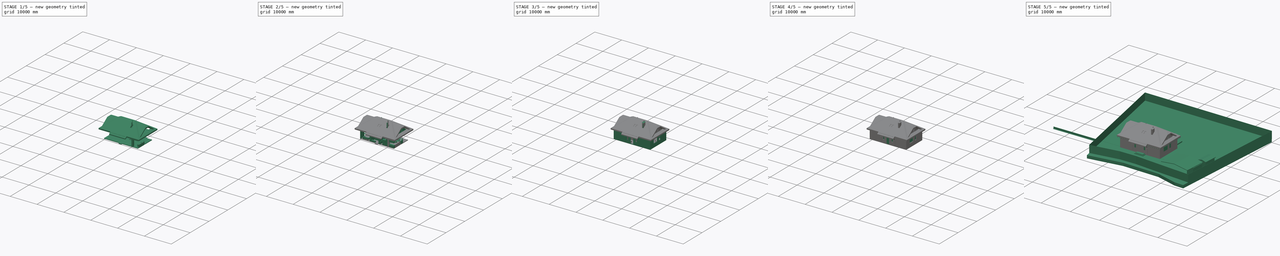
[diagram: build sequence overview — one tinted view per stage of 5, left to right]
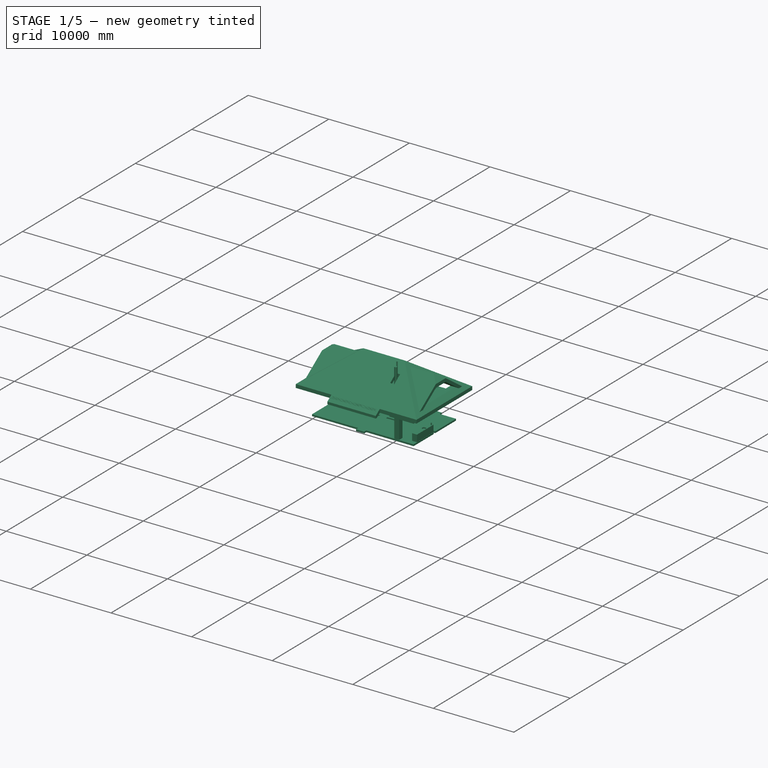
[diagram: stage 1 of 5 — iso view after this stage's code; geometry added in this stage tinted green]
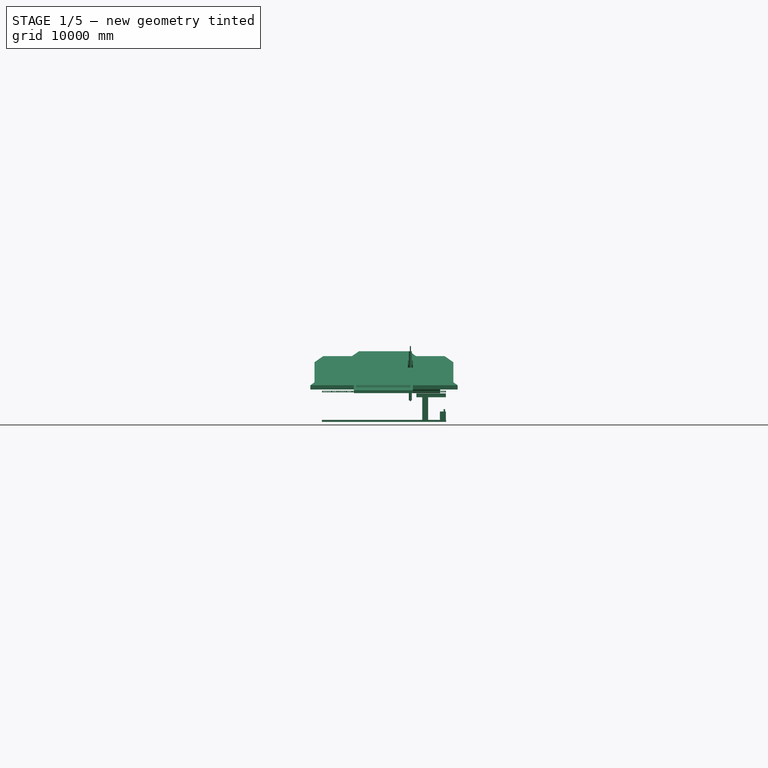
[diagram: stage 1 of 5 — front view after this stage's code; geometry added in this stage tinted green]
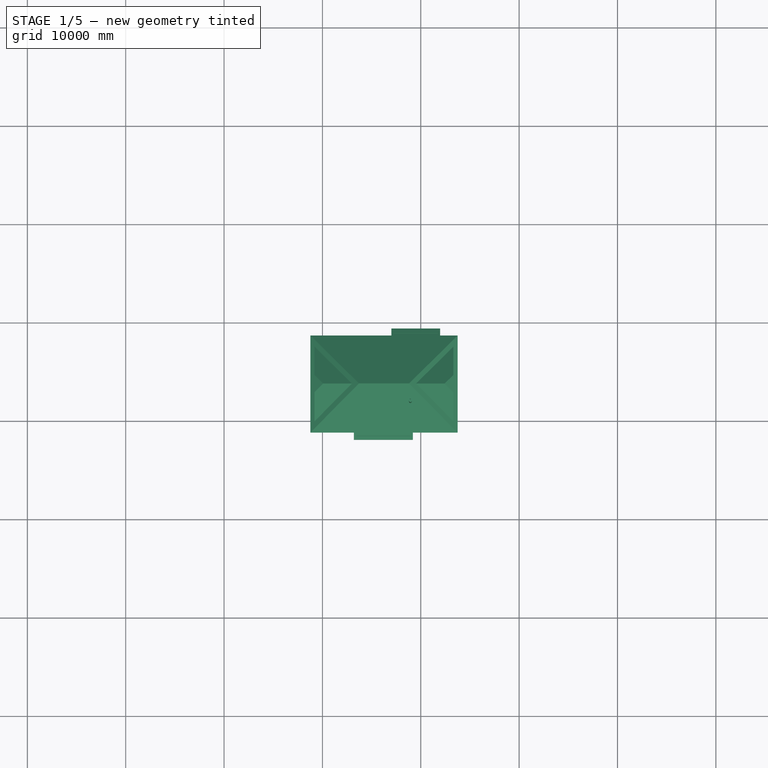
[diagram: stage 1 of 5 — top view after this stage's code; geometry added in this stage tinted green]
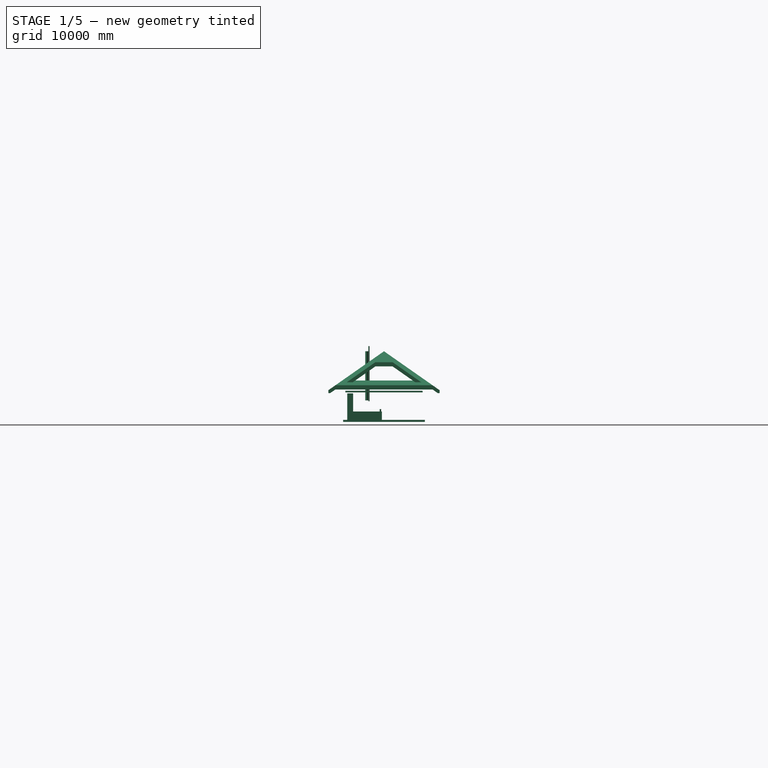
[diagram: stage 1 of 5 — right view after this stage's code; geometry added in this stage tinted green]
FCSTD DOCUMENT  (FreeCAD 0.19R)
Label: 2bedr_dev_140821_BIM
License: All rights reserved
LicenseURL: http://en.wikipedia.org/wiki/All_rights_reserved
objects: Part::Part2DObjectPython×574, Part::FeaturePython×480, App::FeaturePython×70, App::DocumentObjectGroupPython×65, App::GeometryPython×60, Sketcher::SketchObject×59, Part::Box×37, Part::Extrusion×23, Part::Feature×22, Part::Cut×21, TechDraw::DrawViewAnnotation×20, App::MaterialObjectPython×19, Part::MultiCommon×15, TechDraw::DrawLeaderLine×13, App::DocumentObjectGroup×11, Part::Cylinder×5, Part::MultiFuse×3, Image::ImagePlane×2, TechDraw::DrawSVGTemplate×2, TechDraw::DrawViewArch×2, +3 more types
note: 1302 computed .brp shape members not serialized (recipe doc carries the construction recipe); baked Part::Feature solids carry a one-line shape summary decoded from their .brp

FEATURE [Part::Part2DObjectPython] Rectangle2589  label="проём в перекрытии 005"  # Draft 2D object (typed FeaturePython)
  ChamferSize = 0
  Columns = 1
  FilletRadius = 0
  Height = 1550
  Length = 380
  MakeFace = false
  Placement = pos=(-3580,8320,0) rot=(0,0,1;0rad)
  Rows = 1
FEATURE [Part::Part2DObjectPython] Rectangle2597  label="проём вентшахты"  # Draft 2D object (typed FeaturePython)
  ChamferSize = 0
  Columns = 1
  FilletRadius = 0
  Height = 800
  Length = 320
  MakeFace = false
  Placement = pos=(8785,1470,0) rot=(0,0,1;0rad)
  Rows = 1
FEATURE [Part::FeaturePython] Structure158  label="Вентстояк вычитаемы объём 002"  # Arch/BIM 52 (typed FeaturePython)
  Base = -> Rectangle2597
  FaceMaker = 0
  GlobalId = 2VgUxAGbH6UvSFD9GbSn_n
  Height = 4000
  HorizontalArea = 256000
  IfcData = IfcUID=2VgUxAGbH6UvSFD9GbSn_n,attributes={"GlobalId": {"value": "2VgUxAGbH6UvSFD9GbSn_n"}},+1 more (map truncated)
  IfcType = 52
  Length = 0
  MoveBase = false
  MoveWithHost = false
  Nodes = (2) [(8945,1870,0),(8945,1870,4000)]
  NodesOffset = 0
  Normal = (0,0,0)
  PerimeterLength = 2240
  Placement = pos=(0,0,2800) rot=(0,0,1;0rad)
  VerticalArea = 8960000
  Width = 100
FEATURE [Part::Cylinder] Cylinder001  label="чайник"
  Angle = 360
  AttacherType = Attacher::AttachEngine3D
  Height = 250
  Placement = pos=(12393.3,3359.1,850) rot=(0,0,1;1.5708rad)
  Radius = 75
FEATURE [Part::Box] Box3195  label="шкаф 45 кухонный 003"
  AttacherType = Attacher::AttachEngine3D
  Height = 400
  Length = 3000
  Placement = pos=(9550,-10,2300) rot=(0,0,1;0rad)
  Width = 600
FEATURE [Part::Part2DObjectPython] Rectangle2788  label="вн_контур"  # Draft 2D object (typed FeaturePython)
  ChamferSize = 0
  Columns = 1
  FilletRadius = 0
  Height = 7480
  Length = 12580
  MakeFace = false
  Placement = pos=(-30,-10,0) rot=(0,0,1;0rad)
  Rows = 1
FEATURE [Part::Part2DObjectPython] Rectangle2792  # Draft 2D object (typed FeaturePython)
  ChamferSize = 0
  Columns = 1
  FilletRadius = 0
  Height = 600
  Length = 600
  MakeFace = false
  Placement = pos=(10150,-10,0) rot=(0,0,1;0rad)
  Rows = 1
FEATURE [Part::Part2DObjectPython] Rectangle2795  label="Д90-002"  # Draft 2D object (typed FeaturePython)
  ChamferSize = 0
  Columns = 1
  FilletRadius = 0
  Height = 290
  Length = 900
  MakeFace = true
  Placement = pos=(3800,3520,0) rot=(0,0,1;0rad)
  Rows = 1
FEATURE [Part::FeaturePython] Structure023  label="Проём-Д90-004"  # Arch/BIM 52 (typed FeaturePython)
  Base = -> Rectangle2795
  FaceMaker = 0
  Height = 2350
  HorizontalArea = 261000
  IfcData = complex_attributes={"OwnerHistory": {}, "IsNestedBy": {}, "IsDecomposedBy": {}, "IsDefinedBy": {}, "ObjectPlacement": {}, "Representation":... (+4 chars omitted)
  IfcType = 52
  Length = 0
  MoveBase = false
  MoveWithHost = false
  Nodes = (2) [(8900,5350,0),(8900,5350,2180)]
  NodesOffset = 0
  Normal = (0,0,0)
  PerimeterLength = 2380
  Placement = pos=(0,0,-200) rot=(0,0,1;0rad)
  VerticalArea = 5.593e+06
  Width = 100
FEATURE [Part::Part2DObjectPython] Rectangle2807  label="Д90-001"  # Draft 2D object (typed FeaturePython)
  ChamferSize = 0
  Columns = 1
  FilletRadius = 0
  Height = 290
  Length = 900
  MakeFace = true
  Placement = pos=(6650,3810,0) rot=(0,0,1;3.14159rad)
  Rows = 1
FEATURE [Part::FeaturePython] Structure020  label="Проём-Д80-004"  # Arch/BIM 52 (typed FeaturePython)
  Base = -> Rectangle2807
  FaceMaker = 0
  Height = 2350
  HorizontalArea = 261000
  IfcData = complex_attributes={"OwnerHistory": {}, "IsNestedBy": {}, "IsDecomposedBy": {}, "IsDefinedBy": {}, "ObjectPlacement": {}, "Representation":... (+4 chars omitted)
  IfcType = 52
  Length = 0
  MoveBase = false
  MoveWithHost = false
  Nodes = (2) [(650,-4000,0),(650,-4000,2250)]
  NodesOffset = 0
  Normal = (0,0,0)
  PerimeterLength = 2380
  Placement = pos=(0,0,-200) rot=(0,0,1;0rad)
  VerticalArea = 5.593e+06
  Width = 100
FEATURE [Part::Part2DObjectPython] Rectangle2808  # Draft 2D object (typed FeaturePython)
  ChamferSize = 0
  Columns = 1
  FilletRadius = 0
  Height = 600
  Length = 600
  MakeFace = true
  Placement = pos=(8850,-10,0) rot=(0,0,1;0rad)
  Rows = 1
FEATURE [Sketcher::SketchObject] Sketch281
  FullyConstrained = true
  Placement = pos=(7475,-420,955) rot=(1,0,0;1.5708rad)
  sketch-geometry (16):
    g0: LineSegment StartX=0 StartY=0 StartZ=0 EndX=630 EndY=0 EndZ=0
    g1: LineSegment StartX=630 StartY=0 StartZ=0 EndX=630 EndY=1380 EndZ=0
    g2: LineSegment StartX=630 StartY=1380 StartZ=0 EndX=0 EndY=1380 EndZ=0
    g3: LineSegment StartX=0 StartY=1380 StartZ=0 EndX=0 EndY=0 EndZ=0
    g4: LineSegment StartX=50 StartY=50 StartZ=0 EndX=580 EndY=50 EndZ=0
    g5: LineSegment StartX=580 StartY=50 StartZ=0 EndX=580 EndY=1330 EndZ=0
    g6: LineSegment StartX=580 StartY=1330 StartZ=0 EndX=50 EndY=1330 EndZ=0
    g7: LineSegment StartX=50 StartY=1330 StartZ=0 EndX=50 EndY=50 EndZ=0
    g8: LineSegment StartX=55 StartY=55 StartZ=0 EndX=575 EndY=55 EndZ=0
    g9: LineSegment StartX=575 StartY=55 StartZ=0 EndX=575 EndY=1325 EndZ=0
    g10: LineSegment StartX=575 StartY=1325 StartZ=0 EndX=55 EndY=1325 EndZ=0
    g11: LineSegment StartX=55 StartY=1325 StartZ=0 EndX=55 EndY=55 EndZ=0
    g12: LineSegment StartX=105 StartY=105 StartZ=0 EndX=525 EndY=105 EndZ=0
    g13: LineSegment StartX=525 StartY=105 StartZ=0 EndX=525 EndY=1275 EndZ=0
    g14: LineSegment StartX=525 StartY=1275 StartZ=0 EndX=105 EndY=1275 EndZ=0
    g15: LineSegment StartX=105 StartY=1275 StartZ=0 EndX=105 EndY=105 EndZ=0
  constraints (47):
    c: Coincident(g0,g1)
    c: Coincident(g1,g2)
    c: Coincident(g2,g3)
    c: Coincident(g3,g0)
    c: Horizontal(g0)
    c: Horizontal(g2)
    c: Vertical(g1)
    c: Vertical(g3)
    c: Coincident(g4,g5)
    c: Coincident(g5,g6)
    c: Coincident(g6,g7)
    c: Coincident(g7,g4)
    c: Horizontal(g4)
    c: Horizontal(g6)
    c: Vertical(g5)
    c: Vertical(g7)
    c: DistanceY(g1) = 1380  'Height'
    c: DistanceX(g0) = 630  'Width'
    c: DistanceY(g6,g2) = 50  'Frame1'
    c: DistanceX(g2,g6) = 50  'Frame2'
    c: DistanceX(g4,g0) = 50  'Frame3'
    c: DistanceY(g0,g4) = 50  'Frame4'
    c: Coincident(g0,g-1)
    c: Coincident(g8,g9)
    c: Coincident(g9,g10)
    c: Coincident(g10,g11)
    c: Coincident(g11,g8)
    c: Horizontal(g8)
    c: Horizontal(g10)
    c: Vertical(g9)
    c: Vertical(g11)
    c: Coincident(g12,g13)
    c: Coincident(g13,g14)
    c: Coincident(g14,g15)
    c: Coincident(g15,g12)
    c: Horizontal(g12)
    c: Horizontal(g14)
    c: Vertical(g13)
    c: Vertical(g15)
    c: DistanceX(g8,g12) = 50  'Frame5'
    c: DistanceY(g8,g12) = 50  'Frame6'
    c: DistanceX(g14,g10) = 50  'Frame8'
    c: DistanceY(g14,g10) = 50  'Frame7'
    c: DistanceX(g4,g8) = 5
    c: DistanceY(g4,g8) = 5
    c: DistanceX(g10,g6) = 5
    c: DistanceY(g10,g6) = 5
FEATURE [Part::Part2DObjectPython] Rectangle  label="контур по облицовке"  # Draft 2D object (typed FeaturePython)
  ChamferSize = 0
  Columns = 1
  FilletRadius = 0
  Height = 8540
  Length = 13640
  MakeFace = false
  Placement = pos=(-560,-540,0) rot=(0,0,1;0rad)
  Rows = 1
FEATURE [Part::Extrusion] Extrude061  label="ПНО 40-10-6-003"
  Base = -> Sketch249
  Dir = (0,3980,0)
  DirMode = 0
  FaceMakerClass = Part::FaceMakerBullseye
  LengthFwd = 3980
  LengthRev = 0
  Placement = pos=(10,3680,2800) rot=(0,0,1;0rad)
  Solid = true
  Symmetric = false
FEATURE [Part::Extrusion] Extrude062  label="ПНО 40-12-8-003"
  Base = -> Sketch231
  Dir = (0,3980,0)
  DirMode = 0
  FaceMakerClass = Part::FaceMakerBullseye
  LengthFwd = 3980
  LengthRev = 0
  Placement = pos=(10,3680,2800) rot=(0,0,1;0rad)
  Solid = true
  Symmetric = false
FEATURE [Part::FeaturePython] Array038  label="ПНО-40-12 3шт."  # Draft array (typed FeaturePython)
  Angle = 360
  ArrayType = 0
  Axis = (0,0,1)
  Base = -> Extrude062
  Center = (0,0,0)
  Fuse = false
  IntervalAxis = (0,0,0)
  IntervalX = (1215,0,0)
  IntervalY = (0,0,0)
  IntervalZ = (0,0,1)
  NumberPolar = 1
  NumberX = 3
  NumberY = 1
  NumberZ = 1
  Placement = pos=(7920,9.09e-13,0) rot=(0,0,1;0rad)
FEATURE [Part::Box] Box3207  label="ПММ_45_002"
  AttacherType = Attacher::AttachEngine3D
  Height = 700
  Length = 450
  Placement = pos=(12440,1345,100) rot=(0,0,1;1.5708rad)
  Width = 500
FEATURE [Part::Box] Box3209  label="ДШ_001"
  AttacherType = Attacher::AttachEngine3D
  Height = 500
  Length = 500
  Placement = pos=(10740,90,450) rot=(0,0,1;1.5708rad)
  Width = 580
FEATURE [Part::Part2DObjectPython] Rectangle3095  label="ПР350-001"  # Draft 2D object (typed FeaturePython)
  ChamferSize = 0
  Columns = 1
  FilletRadius = 0
  Height = 3500
  Length = 290
  MakeFace = true
  Placement = pos=(11920,3520,0) rot=(0,0,1;1.5708rad)
  Rows = 1
FEATURE [Part::FeaturePython] Structure317  label="Проём-ПР370"  # Arch/BIM 52 (typed FeaturePython)
  Base = -> Rectangle3095
  FaceMaker = 0
  Height = 2700
  HorizontalArea = 1.015e+06
  IfcData = complex_attributes={"OwnerHistory": {}, "IsNestedBy": {}, "IsDecomposedBy": {}, "IsDefinedBy": {}, "ObjectPlacement": {}, "Representation":... (+4 chars omitted)
  IfcType = 52
  Length = 0
  MoveBase = false
  MoveWithHost = false
  Nodes = (2) [(8200,3800,0),(8200,3800,2250)]
  NodesOffset = 0
  Normal = (0,0,0)
  PerimeterLength = 7580
  Placement = pos=(0,0,-200) rot=(0,0,1;0rad)
  VerticalArea = 20466000
  Width = 100
FEATURE [Part::Part2DObjectPython] Rectangle3104  # Draft 2D object (typed FeaturePython)
  ChamferSize = 0
  Columns = 1
  FilletRadius = 0
  Height = 1060
  Length = 310
  MakeFace = true
  Placement = pos=(12240,3810,0) rot=(0,0,1;0rad)
  Rows = 1
FEATURE [App::FeaturePython] Dimension002  # Draft dimension (typed FeaturePython)
  Diameter = false
  Dimline = (6500,-1800,0)
  Direction = (0,0,0)
  Distance = 13640
  End = (13080,-540,0)
  Normal = (0,0,1)
  Start = (-560,-540,0)
FEATURE [App::FeaturePython] Dimension011  # Draft dimension (typed FeaturePython)
  Diameter = false
  Dimline = (4150,-1500,0)
  Direction = (0,0,0)
  Distance = 3200
  End = (7350,-2300,0)
  Normal = (0,0,1)
  Start = (4150,-2300,0)
FEATURE [App::FeaturePython] Dimension012  # Draft dimension (typed FeaturePython)
  Diameter = false
  Dimline = (8300,-1500,0)
  Direction = (0,0,0)
  Distance = 2150
  End = (9500,-2300,0)
  Normal = (0,0,1)
  Start = (7350,-2300,0)
FEATURE [App::FeaturePython] Dimension013  # Draft dimension (typed FeaturePython)
  Diameter = false
  Dimline = (1700,-1500,0)
  Direction = (0,0,0)
  Distance = 4370
  End = (4150,-2300,0)
  Normal = (0,0,1)
  Start = (-220,-2300,0)
FEATURE [App::FeaturePython] Dimension014  # Draft dimension (typed FeaturePython)
  Diameter = false
  Dimline = (9600,9000,0)
  Direction = (0,0,0)
  Distance = 4850
  End = (12740,9700,0)
  Normal = (0,0,1)
  Start = (7890,9700,0)
FEATURE [App::FeaturePython] Dimension015  # Draft dimension (typed FeaturePython)
  Diameter = false
  Dimline = (-900,2370,0)
  Direction = (0,0,0)
  Distance = 2520
  End = (-560,2320,0)
  Normal = (0,0,1)
  Start = (-560,-200,0)
FEATURE [App::FeaturePython] Dimension016  # Draft dimension (typed FeaturePython)
  Diameter = false
  Dimline = (3550,-900,0)
  Direction = (0,0,0)
  Distance = 600
  End = (4150,-540,0)
  Normal = (0,0,1)
  Start = (3550,-540,0)
FEATURE [App::FeaturePython] Dimension017  # Draft dimension (typed FeaturePython)
  Diameter = false
  Dimline = (1000,8300,0)
  Direction = (0,0,0)
  Distance = 170
  End = (1985,7660,0)
  Normal = (0,0,1)
  Start = (1985,7490,0)
FEATURE [App::FeaturePython] Dimension018  # Draft dimension (typed FeaturePython)
  Diameter = false
  Dimline = (1200,4300,0)
  Direction = (0,0,0)
  Distance = 250
  End = (-50,3790,0)
  Normal = (0,0,1)
  Start = (-50,3540,0)
FEATURE [Part::Part2DObjectPython] Wire749  # Draft 2D object (typed FeaturePython)
  Area = 308000
  ChamferSize = 0
  Closed = true
  End = (4925,-410,0)
  FilletRadius = 0
  Length = 2340
  MakeFace = true
  Placement = pos=(27002,5810,0) rot=(0,0,1;0rad)
  Points = (4) [(-22077,-5820,0),(-21307,-5820,0),(-21307,-6220,0),(-22077,-6220,0)]
  Start = (4925,-10,0)
  Subdivisions = 0
FEATURE [Part::Part2DObjectPython] Wire752  # Draft 2D object (typed FeaturePython)
  Area = 428700
  ChamferSize = 0
  Closed = true
  End = (4009,7870,0)
  FilletRadius = 0
  Length = 3132
  MakeFace = true
  Placement = pos=(5410,7880,0) rot=(0,0,1;3.14159rad)
  Points = (8) [(365,10,0),(365,410,0),(480,410,0),(480,540,0),(590,540,0),(590,410,0),(1401,410,0),(1401,10,0)]
  Start = (5045,7870,0)
  Subdivisions = 0
FEATURE [Sketcher::SketchObject] Sketch301  label="Профиль ПНО 150-001"
  FullyConstrained = true
  Placement = pos=(0,0,0) rot=(1,0,0;1.5708rad)
  sketch-geometry (23):
    g0: LineSegment StartX=0 StartY=0 StartZ=0 EndX=1490 EndY=0 EndZ=0
    g1: LineSegment StartX=1490 StartY=0 StartZ=0 EndX=1490 EndY=160 EndZ=0
    g2: LineSegment StartX=1490 StartY=160 StartZ=0 EndX=0 EndY=160 EndZ=0
    g3: LineSegment StartX=0 StartY=160 StartZ=0 EndX=0 EndY=0 EndZ=0
    g4: Circle CenterX=115 CenterY=80 CenterZ=0 NormalX=0 NormalY=0 NormalZ=1 AngleXU=0 Radius=50
    g5: Circle CenterX=255 CenterY=80 CenterZ=0 NormalX=0 NormalY=0 NormalZ=1 AngleXU=0 Radius=50
    g6: LineSegment StartX=115 StartY=80 StartZ=0 EndX=255 EndY=80 EndZ=0
    g7: Circle CenterX=395 CenterY=80 CenterZ=0 NormalX=0 NormalY=0 NormalZ=1 AngleXU=0 Radius=50
    g8: LineSegment StartX=255 StartY=80 StartZ=0 EndX=395 EndY=80 EndZ=0
    g9: Circle CenterX=535 CenterY=80 CenterZ=0 NormalX=0 NormalY=0 NormalZ=1 AngleXU=0 Radius=50
    g10: LineSegment StartX=395 StartY=80 StartZ=0 EndX=535 EndY=80 EndZ=0
    g11: Circle CenterX=675 CenterY=80 CenterZ=0 NormalX=0 NormalY=0 NormalZ=1 AngleXU=0 Radius=50
    g12: LineSegment StartX=535 StartY=80 StartZ=0 EndX=675 EndY=80 EndZ=0
    g13: Circle CenterX=815 CenterY=80 CenterZ=0 NormalX=0 NormalY=0 NormalZ=1 AngleXU=0 Radius=50
    g14: LineSegment StartX=675 StartY=80 StartZ=0 EndX=815 EndY=80 EndZ=0
    g15: Circle CenterX=955 CenterY=80 CenterZ=0 NormalX=0 NormalY=0 NormalZ=1 AngleXU=0 Radius=50
    g16: Circle CenterX=1095 CenterY=80 CenterZ=0 NormalX=0 NormalY=0 NormalZ=1 AngleXU=0 Radius=50
    g17: Circle CenterX=1235 CenterY=80 CenterZ=0 NormalX=0 NormalY=0 NormalZ=1 AngleXU=0 Radius=50
    g18: Circle CenterX=1375 CenterY=80 CenterZ=0 NormalX=0 NormalY=0 NormalZ=1 AngleXU=0 Radius=50
    g19: LineSegment StartX=1235 StartY=80 StartZ=0 EndX=1375 EndY=80 EndZ=0
    g20: LineSegment StartX=1095 StartY=80 StartZ=0 EndX=1235 EndY=80 EndZ=0
    g21: LineSegment StartX=955 StartY=80 StartZ=0 EndX=1095 EndY=80 EndZ=0
    g22: LineSegment StartX=815 StartY=80 StartZ=0 EndX=955 EndY=80 EndZ=0
  constraints (59):
    c: Coincident(g0,g1)
    c: Coincident(g1,g2)
    c: Coincident(g2,g3)
    c: Coincident(g3,g0)
    c: Horizontal(g0)
    c: Horizontal(g2)
    c: Vertical(g1)
    c: Vertical(g3)
    c: Coincident(g0,g-1)
    c: DistanceY(g3,g3) = 160
    c: DistanceX(g2,g2) = 1490
    c: Diameter(g4) = 100
    c: DistanceY(g4,g2) = 80
    c: Diameter(g5) = 100
    c: Coincident(g4,g6)
    c: Coincident(g5,g6)
    c: Distance(g6) = 140
    c: Angle(g6) = 0
    c: Diameter(g7) = 100
    c: Coincident(g5,g8)
    c: Coincident(g7,g8)
    c: Equal(g6,g8)
    c: Parallel(g8,g6)
    c: Diameter(g9) = 100
    c: Coincident(g7,g10)
    c: Coincident(g9,g10)
    c: Equal(g6,g10)
    c: Parallel(g10,g6)
    c: Diameter(g11) = 100
    c: Coincident(g9,g12)
    c: Coincident(g11,g12)
    c: Equal(g6,g12)
    c: Parallel(g12,g6)
    c: Diameter(g13) = 100
    c: Coincident(g11,g14)
    c: Coincident(g13,g14)
    c: Equal(g6,g14)
    c: Parallel(g14,g6)
    c: Diameter(g15) = 100
    c: Coincident(g15,g22)
    c: Diameter(g16) = 100
    c: Coincident(g15,g21)
    c: Coincident(g16,g21)
    c: Diameter(g17) = 100
    c: Coincident(g16,g20)
    c: Coincident(g17,g20)
    c: Diameter(g18) = 100
    c: Coincident(g17,g19)
    c: Coincident(g18,g19)
    c: Coincident(g22,g13)
    c: Equal(g14,g22)
    c: Equal(g22,g21)
    c: Equal(g21,g20)
    c: Equal(g20,g19)
    c: Horizontal(g22)
    c: Horizontal(g21)
    c: Horizontal(g20)
    c: Horizontal(g19)
    c: DistanceX(g18,g1) = 115
FEATURE [Part::Part2DObjectPython] Wire760  label="Кабинет"  # Draft 2D object (typed FeaturePython)
  Area = 13828900
  ChamferSize = 0
  Closed = true
  End = (-30,-10,0)
  FilletRadius = 0
  Length = 15320
  MakeFace = true
  Placement = pos=(-1.819e-13,2970,0) rot=(0,0,1;0rad)
  Points = (6) [(-30,550,0),(3500,550,0),(3500,-700,0),(4100,-700,0),(4100,-2980,0),(-30,-2980,0)]
  Start = (-30,3520,0)
  Subdivisions = 0
FEATURE [Part::Extrusion] Extrude084  label="ПНО 40-15-002"
  Base = -> Sketch301
  Dir = (0,3980,0)
  DirMode = 0
  FaceMakerClass = Part::FaceMakerBullseye
  LengthFwd = 3980
  LengthRev = 0
  Placement = pos=(10,3680,2800) rot=(0,0,1;0rad)
  Solid = true
  Symmetric = false
FEATURE [Part::FeaturePython] Array054  label="ПНО-40-15 3шт."  # Draft array (typed FeaturePython)
  Angle = 360
  ArrayType = 0
  Axis = (0,0,1)
  Base = -> Extrude084
  Center = (0,0,0)
  Fuse = false
  IntervalAxis = (0,0,0)
  IntervalX = (1510,0,0)
  IntervalY = (0,0,0)
  IntervalZ = (0,0,1)
  NumberPolar = 1
  NumberX = 3
  NumberY = 1
  NumberZ = 1
  Placement = pos=(-50,-9.09e-13,0) rot=(0,0,1;0rad)
FEATURE [Part::Part2DObjectPython] Line  # Draft 2D object (typed FeaturePython)
  Area = 0
  ChamferSize = 0
  Closed = true
  End = (2300,7770,0)
  FilletRadius = 0
  Length = 3200
  MakeFace = false
  Placement = pos=(5350,7770,0) rot=(0,0,1;0rad)
  Points = (2) [(150,1.81899e-12,0),(-3050,1.81899e-12,0)]
  Start = (5500,7770,0)
  Subdivisions = 0
FEATURE [App::FeaturePython] Dimension019  # Draft dimension (typed FeaturePython)
  Diameter = false
  Dimline = (200,6800,0)
  Direction = (0,0,0)
  Distance = 170
  End = (-50,7660,0)
  Normal = (0,0,1)
  Start = (-220,7660,0)
FEATURE [Part::Part2DObjectPython] Rectangle3159  # Draft 2D object (typed FeaturePython)
  Area = 0
  ChamferSize = 0
  Columns = 1
  FilletRadius = 0
  Height = 230
  Length = 900
  MakeFace = false
  Placement = pos=(6940,5880,0) rot=(0,0,1;0rad)
  Rows = 1
FEATURE [App::GeometryPython] BuildingPart077  label="ряд 1"  # Arch/BIM 52 (typed FeaturePython)
  Area = 9655800
  Group = -> [Wall209,Wall208,Wall213,Wall207]
  Height = 0
  HeightPropagate = true
  IfcData = attributes={"GlobalId": {"name": "GlobalId", "type": "IfcGloballyUniqueId", "is_enum": false, "enum_values": []}, "Description": {"... (+484 chars omitted),+1 more (map truncated)
  IfcType = 52
  LevelOffset = 0
FEATURE [App::GeometryPython] BuildingPart078  label="Порядовка"  # Arch/BIM 52 (typed FeaturePython)
  Area = 19311600
  Group = -> [BuildingPart077,BuildingPart072]
  Height = 0
  HeightPropagate = true
  IfcData = attributes={"GlobalId": {"name": "GlobalId", "type": "IfcGloballyUniqueId", "is_enum": false, "enum_values": []}, "Description": {"... (+484 chars omitted),+1 more (map truncated)
  IfcType = 52
  LevelOffset = 0
FEATURE [Image::ImagePlane] ImagePlane001  label="Эскиз планировки"
  Placement = pos=(7057.85,2583.46,-10) rot=(0,0,1;0rad)
  XSize = 15451.2
  YSize = 11577
FEATURE [Part::FeaturePython] Array056  label="ПНО-40-10 1шт. (2)"  # Draft array (typed FeaturePython)
  Angle = 360
  ArrayType = 0
  Axis = (0,0,1)
  Base = -> Extrude061
  Center = (0,0,0)
  Fuse = false
  IntervalAxis = (0,0,0)
  IntervalX = (-1010,0,0)
  IntervalY = (0,0,0)
  IntervalZ = (0,0,1)
  NumberPolar = 1
  NumberX = 1
  NumberY = 1
  NumberZ = 1
  Placement = pos=(11560,9.09e-13,0) rot=(0,0,1;0rad)
FEATURE [Part::FeaturePython] Array057  label="ПНО-40-12 1шт."  # Draft array (typed FeaturePython)
  Angle = 360
  ArrayType = 0
  Axis = (0,0,1)
  Base = -> Extrude062
  Center = (0,0,0)
  Fuse = false
  IntervalAxis = (0,0,0)
  IntervalX = (1210,0,0)
  IntervalY = (0,0,0)
  IntervalZ = (0,0,1)
  NumberPolar = 1
  NumberX = 2
  NumberY = 1
  NumberZ = 1
  Placement = pos=(4480,9.09e-13,0) rot=(0,0,1;0rad)
FEATURE [Part::Extrusion] Extrude087  label="ПНО 39-10-6-005"
  Base = -> Sketch249
  Dir = (0,3880,0)
  DirMode = 0
  FaceMakerClass = Part::FaceMakerBullseye
  LengthFwd = 3880
  LengthRev = 0
  Placement = pos=(10,-200,2800) rot=(0,0,1;0rad)
  Solid = true
  Symmetric = false
FEATURE [Part::FeaturePython] Array058  label="ПНО-39-10 1шт. (1)"  # Draft array (typed FeaturePython)
  Angle = 360
  ArrayType = 0
  Axis = (0,0,1)
  Base = -> Extrude087
  Center = (0,0,0)
  Fuse = false
  IntervalAxis = (0,0,0)
  IntervalX = (-1010,0,0)
  IntervalY = (0,0,0)
  IntervalZ = (0,0,1)
  NumberPolar = 1
  NumberX = 1
  NumberY = 1
  NumberZ = 1
  Placement = pos=(-50,0,0) rot=(0,0,1;0rad)
FEATURE [Part::Extrusion] Extrude088  label="ПНО 39-12-8-005"
  Base = -> Sketch231
  Dir = (0,3880,0)
  DirMode = 0
  FaceMakerClass = Part::FaceMakerBullseye
  LengthFwd = 3880
  LengthRev = 0
  Placement = pos=(10,-200,2800) rot=(0,0,1;0rad)
  Solid = true
  Symmetric = false
FEATURE [Part::FeaturePython] Array059  label="ПНО-39-12 2шт."  # Draft array (typed FeaturePython)
  Angle = 360
  ArrayType = 0
  Axis = (0,0,1)
  Base = -> Extrude088
  Center = (0,0,0)
  Fuse = false
  IntervalAxis = (0,0,0)
  IntervalX = (1210,0,0)
  IntervalY = (0,0,0)
  IntervalZ = (0,0,1)
  NumberPolar = 1
  NumberX = 2
  NumberY = 1
  NumberZ = 1
  Placement = pos=(10150,1.364e-12,0) rot=(0,0,1;0rad)
FEATURE [Part::Extrusion] Extrude089  label="ПНО 39-15-003"
  Base = -> Sketch301
  Dir = (0,3880,0)
  DirMode = 0
  FaceMakerClass = Part::FaceMakerBullseye
  LengthFwd = 3880
  LengthRev = 0
  Placement = pos=(10,-200,2800) rot=(0,0,1;0rad)
  Solid = true
  Symmetric = false
FEATURE [Part::FeaturePython] Array060  label="ПНО-39-15 2шт."  # Draft array (typed FeaturePython)
  Angle = 360
  ArrayType = 0
  Axis = (0,0,1)
  Base = -> Extrude089
  Center = (0,0,0)
  Fuse = false
  IntervalAxis = (0,0,0)
  IntervalX = (1510,0,0)
  IntervalY = (0,0,0)
  IntervalZ = (0,0,1)
  NumberPolar = 1
  NumberX = 2
  NumberY = 1
  NumberZ = 1
  Placement = pos=(960,0,0) rot=(0,0,1;0rad)
FEATURE [Part::FeaturePython] Array061  label="ПНО-39-10 1шт. (2)"  # Draft array (typed FeaturePython)
  Angle = 360
  ArrayType = 0
  Axis = (0,0,1)
  Base = -> Extrude087
  Center = (0,0,0)
  Fuse = false
  IntervalAxis = (0,0,0)
  IntervalX = (-1010,0,0)
  IntervalY = (0,0,0)
  IntervalZ = (0,0,1)
  NumberPolar = 1
  NumberX = 1
  NumberY = 1
  NumberZ = 1
  Placement = pos=(6710,4.54e-13,0) rot=(0,0,1;0rad)
FEATURE [Part::Extrusion] Extrude090  label="ПНО 39-12-8-006"
  Base = -> Sketch231
  Dir = (0,3880,0)
  DirMode = 0
  FaceMakerClass = Part::FaceMakerBullseye
  LengthFwd = 3880
  LengthRev = 0
  Placement = pos=(7740,-200,2800) rot=(0,0,1;0rad)
  Solid = true
  Symmetric = false
FEATURE [Part::Extrusion] Extrude091  label="ПНО 39-12-8-007"
  Base = -> Sketch231
  Dir = (0,3880,0)
  DirMode = 0
  FaceMakerClass = Part::FaceMakerBullseye
  LengthFwd = 3880
  LengthRev = 0
  Placement = pos=(8950,-200,2800) rot=(0,0,1;0rad)
  Solid = true
  Symmetric = false
FEATURE [Part::Cut] Cut040  label="ПНО-39-12 1шт. рез. (1)"
  Base = -> Extrude090
  Tool = -> Structure158
FEATURE [Part::Cut] Cut041  label="ПНО-39-12 1шт. рез. (2)"
  Base = -> Extrude091
  Tool = -> Structure158
FEATURE [Part::Extrusion] Extrude057  label="мойка_вырез"
  Base = -> Rectangle2392
  Dir = (0,0,1)
  DirMode = 0
  FaceMakerClass = Part::FaceMakerBullseye
  LengthFwd = 150
  LengthRev = 0
  Placement = pos=(0,0,700) rot=(0,0,1;0rad)
  Solid = true
  Symmetric = false
FEATURE [Part::Box] Box3224  label="шкаф 60 кухонный 012"
  AttacherType = Attacher::AttachEngine3D
  Height = 850
  Length = 2930
  Placement = pos=(12550,590,0) rot=(0,0,1;1.5708rad)
  Width = 600
FEATURE [Part::Cut] Cut043  label="Шкаф с мойкой"
  Base = -> Box3224
  Tool = -> Extrude057
FEATURE [Part::Box] Box3229  label="шкаф 60 кухонный 013"
  AttacherType = Attacher::AttachEngine3D
  Height = 700
  Length = 600
  Placement = pos=(10150,-10,1600) rot=(0,0,1;0rad)
  Width = 600
FEATURE [Part::Box] Box3230  label="шкаф 60 кухонный 001"
  AttacherType = Attacher::AttachEngine3D
  Height = 1600
  Length = 600
  Placement = pos=(10750,-10,0) rot=(0,0,1;1.5708rad)
  Width = 600
FEATURE [Part::Box] Box3231  label="МВ_001"
  AttacherType = Attacher::AttachEngine3D
  Height = 350
  Length = 500
  Placement = pos=(10740,90,1000) rot=(0,0,1;1.5708rad)
  Width = 580
FEATURE [Part::Cut] Cut044
  Base = -> Box3230
  Tool = -> Box3231
FEATURE [Part::Cut] Cut045
  Base = -> Cut044
  Tool = -> Box3209
FEATURE [Part::Box] Box3232  label="МВ_002"
  AttacherType = Attacher::AttachEngine3D
  Height = 350
  Length = 500
  Placement = pos=(10740,90,1000) rot=(0,0,1;1.5708rad)
  Width = 580
FEATURE [Part::Box] Box3233  label="ДШ_002"
  AttacherType = Attacher::AttachEngine3D
  Height = 500
  Length = 500
  Placement = pos=(10740,90,450) rot=(0,0,1;1.5708rad)
  Width = 580
FEATURE [Part::Part2DObjectPython] Line1426  # Draft 2D object (typed FeaturePython)
  Area = 0
  ChamferSize = 0
  Closed = true
  End = (-430,7870,0)
  FilletRadius = 0
  Length = 8280
  MakeFace = false
  Placement = pos=(-380,-318,0) rot=(0,0,1;0rad)
  Points = (2) [(-50,-92,0),(-50,8188,0)]
  Start = (-430,-410,0)
  Subdivisions = 0
FEATURE [Part::Part2DObjectPython] Line1427  # Draft 2D object (typed FeaturePython)
  Area = 0
  ChamferSize = 0
  Closed = true
  End = (12950,7870,0)
  FilletRadius = 0
  Length = 8280
  MakeFace = false
  Placement = pos=(12900,-318,0) rot=(0,0,1;0rad)
  Points = (2) [(50,-92,0),(50,8188,0)]
  Start = (12950,-410,0)
  Subdivisions = 0
FEATURE [Part::Part2DObjectPython] Line1430  # Draft 2D object (typed FeaturePython)
  Area = 0
  ChamferSize = 0
  Closed = true
  End = (-50,-410,0)
  FilletRadius = 0
  Length = 12620
  MakeFace = false
  Placement = pos=(-380,-410,0) rot=(0,0,1;0rad)
  Points = (2) [(12950,0,0),(330,0,0)]
  Start = (12570,-410,0)
  Subdivisions = 0
FEATURE [Part::Part2DObjectPython] Line1431  # Draft 2D object (typed FeaturePython)
  Area = 0
  ChamferSize = 0
  Closed = true
  End = (12570,7870,0)
  FilletRadius = 0
  Length = 12620
  MakeFace = false
  Placement = pos=(-380,-318,0) rot=(0,0,1;0rad)
  Points = (2) [(330,8188,0),(12950,8188,0)]
  Start = (-50,7870,0)
  Subdivisions = 0
FEATURE [Part::Part2DObjectPython] Rectangle3203  # Draft 2D object (typed FeaturePython)
  Area = 0
  ChamferSize = 0
  Columns = 1
  FilletRadius = 0
  Height = 700
  Length = 700
  MakeFace = false
  Placement = pos=(-1210,-1210,0) rot=(0,0,1;0rad)
  Rows = 1
FEATURE [Part::Part2DObjectPython] Rectangle3207  # Draft 2D object (typed FeaturePython)
  Area = 0
  ChamferSize = 0
  Columns = 1
  FilletRadius = 0
  Height = 2500
  Length = 3775
  MakeFace = false
  Placement = pos=(12510,1842.5,3120) rot=(0.57735,0.57735,0.57735;2.0944rad)
  Rows = 1
FEATURE [Part::Part2DObjectPython] Rectangle3214  # Draft 2D object (typed FeaturePython)
  Area = 0
  ChamferSize = 0
  Columns = 1
  FilletRadius = 0
  Height = 1400
  Length = 4200
  MakeFace = false
  Placement = pos=(7387,7990,0) rot=(0,0,1;0rad)
  Rows = 1
FEATURE [Part::Part2DObjectPython] Rectangle3215  # Draft 2D object (typed FeaturePython)
  Area = 0
  ChamferSize = 0
  Columns = 1
  FilletRadius = 0
  Height = 1400
  Length = 6000
  MakeFace = false
  Placement = pos=(9198,-530,0) rot=(0,0,1;3.14159rad)
  Rows = 1
FEATURE [Part::Part2DObjectPython] Rectangle3206  # Draft 2D object (typed FeaturePython)
  Area = 0
  ChamferSize = 0
  Columns = 1
  FilletRadius = 0
  Height = 700
  Length = 700
  MakeFace = false
  Placement = pos=(-1210,7970,0) rot=(0,0,1;0rad)
  Rows = 1
FEATURE [Part::Part2DObjectPython] Rectangle3204  # Draft 2D object (typed FeaturePython)
  Area = 0
  ChamferSize = 0
  Columns = 1
  FilletRadius = 0
  Height = 700
  Length = 700
  MakeFace = false
  Placement = pos=(13030,7970,0) rot=(0,0,1;0rad)
  Rows = 1
FEATURE [Part::Part2DObjectPython] Rectangle3205  # Draft 2D object (typed FeaturePython)
  Area = 0
  ChamferSize = 0
  Columns = 1
  FilletRadius = 0
  Height = 700
  Length = 700
  MakeFace = false
  Placement = pos=(13030,-1210,0) rot=(0,0,1;0rad)
  Rows = 1
FEATURE [Part::Part2DObjectPython] Wire817  label="кровля_контур_обрезки"  # Draft 2D object (typed FeaturePython)
  Area = 0
  ChamferSize = 0
  Closed = true
  End = (3198,-1210,0)
  FilletRadius = 0
  Length = 52600
  MakeFace = false
  Placement = pos=(-1210,-1210,0) rot=(0,0,1;0rad)
  Points = (12) [(-20,0,0),(-20,9880,0),(8217,9880,0),(8217,10600,0),(13177,10600,0),(13177,9880,0),(14960,9880,0),(14960,0,0),(10408,9.09495e-13,0),(10408,-720,0),+2 more]
  Start = (-1230,-1210,0)
  Subdivisions = 0
FEATURE [Part::Extrusion] Extrude
  Base = -> Wire817
  Dir = (0,0,1)
  DirMode = 2
  FaceMakerClass = Part::FaceMakerBullseye
  LengthFwd = 5000
  LengthRev = 0
  Placement = pos=(0,0,2720) rot=(0,0,1;0rad)
  Solid = true
  Symmetric = false
FEATURE [Part::Part2DObjectPython] Rectangle3216  # Draft 2D object (typed FeaturePython)
  Area = 0
  ChamferSize = 0
  Columns = 1
  FilletRadius = 0
  Height = 8540
  Length = 20900
  MakeFace = false
  Placement = pos=(-4200,-540,0) rot=(0,0,1;0rad)
  Rows = 1
FEATURE [Part::Part2DObjectPython] Wire  # Draft 2D object (typed FeaturePython)
  Area = 6.01874e+06
  ChamferSize = 0
  Closed = true
  End = (13030,6661.83,3999.83)
  FilletRadius = 0
  Length = 13021.9
  MakeFace = true
  Placement = pos=(13030,798.165,3999.83) rot=(0.57735,0.57735,0.57735;2.0944rad)
  Points = (3) [(0,0,0),(2931.83,2052.89,0),(5863.67,-9.09495e-13,0)]
  Start = (13030,798.165,3999.83)
  Subdivisions = 0
FEATURE [Part::Extrusion] Extrude092
  Base = -> Wire
  Dir = (1,0,0)
  DirMode = 2
  FaceMakerClass = Part::FaceMakerBullseye
  LengthFwd = 15000
  LengthRev = 0
  Placement = pos=(-14250,0,0) rot=(0,0,1;0rad)
  Solid = false
  Symmetric = false
FEATURE [Part::Part2DObjectPython] Line1437  # Draft 2D object (typed FeaturePython)
  Area = 0
  ChamferSize = 0
  Closed = false
  End = (0,7825.76,3171)
  FilletRadius = 0
  Length = 5000
  MakeFace = false
  Placement = pos=(0,3730,6038.88) rot=(0.57735,0.57735,0.57735;2.0944rad)
  Points = (2) [(0,0,0),(4095.76,-2867.88,0)]
  Start = (0,3730,6038.88)
  Subdivisions = 0
FEATURE [Part::Part2DObjectPython] Line1436  # Draft 2D object (typed FeaturePython)
  Area = 0
  ChamferSize = 0
  Closed = false
  End = (0,-365.76,3171)
  FilletRadius = 0
  Length = 5000
  MakeFace = false
  Placement = pos=(0,3730,6038.88) rot=(0.57735,0.57735,0.57735;2.0944rad)
  Points = (2) [(0,0,0),(-4095.76,-2867.88,0)]
  Start = (0,3730,6038.88)
  Subdivisions = 0
FEATURE [Part::Part2DObjectPython] Line1434  # Draft 2D object (typed FeaturePython)
  Area = 0
  ChamferSize = 0
  Closed = false
  End = (0,7830,3733)
  FilletRadius = 0
  Length = 8200
  MakeFace = false
  Placement = pos=(0,-370,3733) rot=(0.57735,0.57735,0.57735;2.0944rad)
  Points = (2) [(0,0,0),(8200,0,0)]
  Start = (0,-370,3733)
  Subdivisions = 0
FEATURE [Part::Part2DObjectPython] Line1438  # Draft 2D object (typed FeaturePython)
  Area = 0
  ChamferSize = 0
  Closed = false
  End = (0,3730,3733)
  FilletRadius = 0
  Length = 2435.88
  MakeFace = false
  Placement = pos=(0,3730,6168.88) rot=(0.57735,0.57735,0.57735;2.0944rad)
  Points = (2) [(0,0,0),(4.54747e-13,-2435.88,0)]
  Start = (0,3730,6168.88)
  Subdivisions = 0
FEATURE [Sketcher::SketchObject] Sketch316
  FullyConstrained = true
  Placement = pos=(-440,3630,4130) rot=(0.57735,0.57735,0.57735;2.0944rad)
  sketch-geometry (20):
    g0: LineSegment StartX=-2000 StartY=0 StartZ=0 EndX=0 EndY=0 EndZ=0
    g1: LineSegment StartX=0 StartY=0 StartZ=0 EndX=0 EndY=1200 EndZ=0
    g2: LineSegment StartX=0 StartY=1200 StartZ=0 EndX=-657.055 EndY=1200 EndZ=0
    g3: LineSegment StartX=-2000 StartY=259.66 StartZ=0 EndX=-2000 EndY=0 EndZ=0
    g4: LineSegment StartX=-1950 StartY=50 StartZ=0 EndX=-50 EndY=50 EndZ=0
    g5: LineSegment StartX=-50 StartY=50 StartZ=0 EndX=-50 EndY=1150 EndZ=0
    g6: LineSegment StartX=-50 StartY=1150 StartZ=0 EndX=-641.29 EndY=1150 EndZ=0
    g7: LineSegment StartX=-1950 StartY=233.631 StartZ=0 EndX=-1950 EndY=50 EndZ=0
    g8: LineSegment StartX=-1945 StartY=55 StartZ=0 EndX=-55 EndY=55 EndZ=0
    g9: LineSegment StartX=-55 StartY=55 StartZ=0 EndX=-55 EndY=1145 EndZ=0
    g10: LineSegment StartX=-55 StartY=1145 StartZ=0 EndX=-639.713 EndY=1145 EndZ=0
    g11: LineSegment StartX=-1945 StartY=231.028 StartZ=0 EndX=-1945 EndY=55 EndZ=0
    g12: LineSegment StartX=-1895 StartY=105 StartZ=0 EndX=-105 EndY=105 EndZ=0
    g13: LineSegment StartX=-105 StartY=105 StartZ=0 EndX=-105 EndY=1095 EndZ=0
    g14: LineSegment StartX=-105 StartY=1095 StartZ=0 EndX=-623.948 EndY=1095 EndZ=0
    g15: LineSegment StartX=-1895 StartY=205 StartZ=0 EndX=-1895 EndY=105 EndZ=0
    g16: LineSegment StartX=-2000 StartY=259.66 StartZ=0 EndX=-657.055 EndY=1200 EndZ=0
    g17: LineSegment StartX=-1950 StartY=233.631 StartZ=0 EndX=-641.29 EndY=1150 EndZ=0
    g18: LineSegment StartX=-1945 StartY=231.028 StartZ=0 EndX=-639.713 EndY=1145 EndZ=0
    g19: LineSegment StartX=-1895 StartY=205 StartZ=0 EndX=-623.948 EndY=1095 EndZ=0
  constraints (59):
    c: Coincident(g1,g2)
    c: Horizontal(g0)
    c: Horizontal(g2)
    c: Vertical(g1)
    c: Vertical(g3)
    c: Coincident(g4,g5)
    c: Coincident(g5,g6)
    c: Coincident(g7,g4)
    c: Horizontal(g4)
    c: Horizontal(g6)
    c: Vertical(g5)
    c: Vertical(g7)
    c: DistanceX(g4,g0) = 50  'Frame3'
    c: DistanceY(g0,g4) = 50  'Frame4'
    c: Coincident(g8,g9)
    c: Coincident(g9,g10)
    c: Coincident(g11,g8)
    c: Horizontal(g8)
    c: Horizontal(g10)
    c: Vertical(g9)
    c: Vertical(g11)
    c: Coincident(g12,g13)
    c: Coincident(g13,g14)
    c: Coincident(g15,g12)
    c: Horizontal(g12)
    c: Horizontal(g14)
    c: Vertical(g13)
    c: Vertical(g15)
    c: DistanceX(g8,g12) = 50  'Frame5'
    c: DistanceY(g8,g12) = 50  'Frame6'
    c: DistanceX(g14,g10) = 50  'Frame8'
    c: DistanceY(g14,g10) = 50  'Frame7'
    c: DistanceX(g4,g8) = 5
    c: DistanceY(g4,g8) = 5
    c: DistanceX(g10,g6) = 5
    c: DistanceY(g10,g6) = 5
    c: Coincident(g16,g3)
    c: Coincident(g16,g2)
    c: Coincident(g17,g7)
    c: Coincident(g17,g6)
    c: Coincident(g18,g11)
    c: Coincident(g18,g10)
    c: Coincident(g19,g15)
    c: Coincident(g19,g14)
    c: Distance(g11,g17) = 5
    c: Distance(g15,g18) = 50
    c: Distance(g7,g16) = 50
    c: DistanceY(g5,g1) = 50
    c: Parallel(g18,g17)
    c: Parallel(g16,g17)
    c: Parallel(g18,g19)
    c: DistanceX(g0,g4) = 50
    c: DistanceY(g15,g15) = 100
    c: Angle(g19) = 0.610865  'угол наклона'
    c: Coincident(g3,g0)
    c: Coincident(g0,g1)
    c: Coincident(g0,g-1)
    c: DistanceX(g0,g0) = 2000
    c: DistanceY(g1,g1) = 1200
FEATURE [Sketcher::SketchObject] Sketch318
  FullyConstrained = true
  Placement = pos=(-440,3830,4130) rot=(0.57735,-0.57735,-0.57735;2.0944rad)
  sketch-geometry (20):
    g0: LineSegment StartX=-2000 StartY=0 StartZ=0 EndX=0 EndY=0 EndZ=0
    g1: LineSegment StartX=0 StartY=0 StartZ=0 EndX=0 EndY=1200 EndZ=0
    g2: LineSegment StartX=0 StartY=1200 StartZ=0 EndX=-657.055 EndY=1200 EndZ=0
    g3: LineSegment StartX=-2000 StartY=259.66 StartZ=0 EndX=-2000 EndY=0 EndZ=0
    g4: LineSegment StartX=-1950 StartY=50 StartZ=0 EndX=-50 EndY=50 EndZ=0
    g5: LineSegment StartX=-50 StartY=50 StartZ=0 EndX=-50 EndY=1150 EndZ=0
    g6: LineSegment StartX=-50 StartY=1150 StartZ=0 EndX=-641.29 EndY=1150 EndZ=0
    g7: LineSegment StartX=-1950 StartY=233.631 StartZ=0 EndX=-1950 EndY=50 EndZ=0
    g8: LineSegment StartX=-1945 StartY=55 StartZ=0 EndX=-55 EndY=55 EndZ=0
    g9: LineSegment StartX=-55 StartY=55 StartZ=0 EndX=-55 EndY=1145 EndZ=0
    g10: LineSegment StartX=-55 StartY=1145 StartZ=0 EndX=-639.713 EndY=1145 EndZ=0
    g11: LineSegment StartX=-1945 StartY=231.028 StartZ=0 EndX=-1945 EndY=55 EndZ=0
    g12: LineSegment StartX=-1895 StartY=105 StartZ=0 EndX=-105 EndY=105 EndZ=0
    g13: LineSegment StartX=-105 StartY=105 StartZ=0 EndX=-105 EndY=1095 EndZ=0
    g14: LineSegment StartX=-105 StartY=1095 StartZ=0 EndX=-623.948 EndY=1095 EndZ=0
    g15: LineSegment StartX=-1895 StartY=205 StartZ=0 EndX=-1895 EndY=105 EndZ=0
    g16: LineSegment StartX=-2000 StartY=259.66 StartZ=0 EndX=-657.055 EndY=1200 EndZ=0
    g17: LineSegment StartX=-1950 StartY=233.631 StartZ=0 EndX=-641.29 EndY=1150 EndZ=0
    g18: LineSegment StartX=-1945 StartY=231.028 StartZ=0 EndX=-639.713 EndY=1145 EndZ=0
    g19: LineSegment StartX=-1895 StartY=205 StartZ=0 EndX=-623.948 EndY=1095 EndZ=0
  constraints (59):
    c: Coincident(g1,g2)
    c: Horizontal(g0)
    c: Horizontal(g2)
    c: Vertical(g1)
    c: Vertical(g3)
    c: Coincident(g4,g5)
    c: Coincident(g5,g6)
    c: Coincident(g7,g4)
    c: Horizontal(g4)
    c: Horizontal(g6)
    c: Vertical(g5)
    c: Vertical(g7)
    c: DistanceY(g1) = 1200  'Height'
    c: DistanceX(g4,g0) = 50  'Frame3'
    c: DistanceY(g0,g4) = 50  'Frame4'
    c: Coincident(g8,g9)
    c: Coincident(g9,g10)
    c: Coincident(g11,g8)
    c: Horizontal(g8)
    c: Horizontal(g10)
    c: Vertical(g9)
    c: Vertical(g11)
    c: Coincident(g12,g13)
    c: Coincident(g13,g14)
    c: Coincident(g15,g12)
    c: Horizontal(g12)
    c: Horizontal(g14)
    c: Vertical(g13)
    c: Vertical(g15)
    c: DistanceX(g8,g12) = 50  'Frame5'
    c: DistanceY(g8,g12) = 50  'Frame6'
    c: DistanceX(g14,g10) = 50  'Frame8'
    c: DistanceY(g14,g10) = 50  'Frame7'
    c: DistanceX(g4,g8) = 5
    c: DistanceY(g4,g8) = 5
    c: DistanceX(g10,g6) = 5
    c: DistanceY(g10,g6) = 5
    c: Coincident(g16,g3)
    c: Coincident(g16,g2)
    c: Coincident(g17,g7)
    c: Coincident(g17,g6)
    c: Coincident(g18,g11)
    c: Coincident(g18,g10)
    c: Coincident(g19,g15)
    c: Coincident(g19,g14)
    c: Distance(g11,g17) = 5
    c: Distance(g15,g18) = 50
    c: Distance(g7,g16) = 50
    c: DistanceY(g5,g1) = 50
    c: Parallel(g18,g17)
    c: Parallel(g16,g17)
    c: Parallel(g18,g19)
    c: DistanceX(g0,g4) = 50
    c: DistanceY(g15,g15) = 100
    c: Angle(g19) = 0.610865  'угол наклона'
    c: Coincident(g3,g0)
    c: Coincident(g0,g1)
    c: Coincident(g0,g-1)
    c: DistanceX(g0,g0) = 2000
FEATURE [Part::Part2DObjectPython] Rectangle3217  # Draft 2D object (typed FeaturePython)
  Area = 142500
  ChamferSize = 0
  Columns = 1
  FilletRadius = 0
  Height = 1900
  Length = 75
  MakeFace = true
  Placement = pos=(1370,4675,0) rot=(0,0,1;0rad)
  Rows = 1
FEATURE [Part::Part2DObjectPython] Wire819  # Draft 2D object (typed FeaturePython)
  Area = 7.04423e+07
  ChamferSize = 0
  Closed = true
  End = (817.97,5942.03,0)
  FilletRadius = 0
  Length = 36608.1
  MakeFace = true
  Placement = pos=(20,5942.03,0) rot=(0,0,1;0rad)
  Points = (12) [(0,0,0),(6.81446e-11,-4424.06,0),(803.442,-4424.06,0),(803.442,-5124.06,0),(11682,-5124.06,0),(11682,-4424.06,0),(12480,-4424.06,0),(12480,0,0),+4 more]
  Start = (20,5942.03,0)
  Subdivisions = 0
FEATURE [Part::Part2DObjectPython] Line1439  # Draft 2D object (typed FeaturePython)
  Area = 0
  ChamferSize = 0
  Closed = false
  End = (0,-1709.85,2720)
  FilletRadius = 0
  Length = 6640.83
  MakeFace = true
  Placement = pos=(0,3730,6529.03) rot=(0.57735,0.57735,0.57735;2.0944rad)
  Points = (2) [(0,0,0),(-5439.85,-3809.03,0)]
  Start = (0,3730,6529.03)
  Subdivisions = 0
FEATURE [Part::Part2DObjectPython] Line1441  # Draft 2D object (typed FeaturePython)
  Area = 0
  ChamferSize = 0
  Closed = false
  End = (0,20,4061.26)
  FilletRadius = 0
  Length = 941.255
  MakeFace = true
  Placement = pos=(0,20,3120) rot=(0.57735,0.57735,0.57735;2.0944rad)
  Points = (2) [(0,0,0),(-4.51195e-13,941.255,0)]
  Start = (0,20,3120)
  Subdivisions = 0
FEATURE [Part::Part2DObjectPython] Rectangle3220  # Draft 2D object (typed FeaturePython)
  Area = 0
  ChamferSize = 0
  Columns = 1
  FilletRadius = 0
  Height = 8240
  Length = 13300
  MakeFace = false
  Placement = pos=(-390,-390,0) rot=(0,0,1;0rad)
  Rows = 1
FEATURE [Part::Part2DObjectPython] Line1442  # Draft 2D object (typed FeaturePython)
  Area = 0
  ChamferSize = 0
  Closed = false
  End = (13500,3730,0)
  FilletRadius = 0
  Length = 14500
  MakeFace = false
  Placement = pos=(-390,3730,0) rot=(0,0,1;0rad)
  Points = (2) [(-610,4.54747e-13,0),(13890,0,0)]
  Start = (-1000,3730,0)
  Subdivisions = 0
FEATURE [Part::Part2DObjectPython] Rectangle3222  label="Проём ФР 001"  # Draft 2D object (typed FeaturePython)
  Area = 823893
  ChamferSize = 0
  Columns = 1
  FilletRadius = 0
  Height = 2009.5
  Length = 410
  MakeFace = true
  Placement = pos=(-390,3830,0) rot=(0,0,1;0rad)
  Rows = 1
FEATURE [Part::Part2DObjectPython] Rectangle3223  label="Проём ФР 010"  # Draft 2D object (typed FeaturePython)
  Area = 823893
  ChamferSize = 0
  Columns = 1
  FilletRadius = 0
  Height = 2009.5
  Length = 410
  MakeFace = true
  Placement = pos=(-390,1620.5,0) rot=(0,0,1;0rad)
  Rows = 1
FEATURE [Part::Part2DObjectPython] Rectangle3224  label="Проём ФР 011"  # Draft 2D object (typed FeaturePython)
  Area = 823893
  ChamferSize = 0
  Columns = 1
  FilletRadius = 0
  Height = 2009.5
  Length = 410
  MakeFace = true
  Placement = pos=(12500,3830,0) rot=(0,0,1;0rad)
  Rows = 1
FEATURE [Part::Part2DObjectPython] Rectangle3225  label="Проём ФР 012"  # Draft 2D object (typed FeaturePython)
  Area = 823893
  ChamferSize = 0
  Columns = 1
  FilletRadius = 0
  Height = 2009.5
  Length = 410
  MakeFace = true
  Placement = pos=(12500,1620.5,0) rot=(0,0,1;0rad)
  Rows = 1
FEATURE [Part::Part2DObjectPython] Rectangle3226  label="проём в перекрытии под фан.стояк"  # Draft 2D object (typed FeaturePython)
  ChamferSize = 0
  Columns = 1
  FilletRadius = 0
  Height = 140
  Length = 260
  MakeFace = false
  Placement = pos=(5360,3540,0) rot=(0,0,1;0rad)
  Rows = 1
FEATURE [Part::FeaturePython] Structure360  label="Вентстояк вычитаемы объём 003"  # Arch/BIM 52 (typed FeaturePython)
  Base = -> Rectangle3226
  FaceMaker = 0
  GlobalId = 0eTNl8duH9Xv7LHx2JWCfz
  Height = 6000
  HorizontalArea = 36400
  IfcData = IfcUID=0eTNl8duH9Xv7LHx2JWCfz,attributes={"GlobalId": {"value": "0eTNl8duH9Xv7LHx2JWCfz"}},+1 more (map truncated)
  IfcType = 52
  Length = 0
  MoveBase = false
  MoveWithHost = false
  Nodes = (2) [(5490,3610,0),(5490,3610,6000)]
  NodesOffset = 0
  Normal = (0,0,0)
  PerimeterLength = 800
  Placement = pos=(0,0,-200) rot=(0,0,1;0rad)
  VerticalArea = 4800000
  Width = 100
FEATURE [App::GeometryPython] BuildingPart001  label="проёмы"  # Arch/BIM 52 (typed FeaturePython)
  Area = 0
  Group = -> [Structure016,Structure017,Structure019,Structure020,Structure021,Structure023,Structure024,Structure026,Structure141,Structure158,Structure285,Structure146,Structure150,Structure151,Structure148,Structure149,Structure286,Structure304,Structure306,Structure308,Structure313,Structure315,Structure317,Structure333,Structure349,Structure350,Structure348,Structure360]
  Height = 0
  HeightPropagate = true
  IfcData = complex_attributes={"OwnerHistory": {}, "IsNestedBy": {}, "IsDecomposedBy": {}, "IsDefinedBy": {}, "ObjectPlacement": {}, "Representation":... (+4 chars omitted)
  IfcType = 52
  LevelOffset = 0
FEATURE [Part::Part2DObjectPython] Line1445  # Draft 2D object (typed FeaturePython)
  Area = 0
  ChamferSize = 0
  Closed = false
  End = (8915,2339.55,0)
  FilletRadius = 0
  Length = 19.5532
  MakeFace = true
  Placement = pos=(8915,2320,0) rot=(0,0,1;0rad)
  Points = (2) [(0,0,0),(0,19.5532,0)]
  Start = (8915,2320,0)
  Subdivisions = 0
FEATURE [Part::Extrusion] Extrude093  label="ПНО 39-15-004"
  Base = -> Sketch301
  Dir = (0,3880,0)
  DirMode = 0
  FaceMakerClass = Part::FaceMakerBullseye
  LengthFwd = 3880
  LengthRev = 0
  Placement = pos=(3990,-200,2800) rot=(0,0,1;0rad)
  Solid = true
  Symmetric = false
FEATURE [Part::Cut] Cut048  label="ПНО-39-15 1шт. рез. (1)"
  Base = -> Extrude093
  Tool = -> Structure360
FEATURE [Part::Extrusion] Extrude094  label="ПНО 39-12-8-008"
  Base = -> Sketch231
  Dir = (0,3880,0)
  DirMode = 0
  FaceMakerClass = Part::FaceMakerBullseye
  LengthFwd = 3880
  LengthRev = 0
  Placement = pos=(5510,-200,2800) rot=(0,0,1;0rad)
  Solid = true
  Symmetric = false
FEATURE [Part::Cut] Cut049  label="ПНО-39-12 1шт. рез. (3)"
  Base = -> Extrude094
  Tool = -> Structure360
FEATURE [Part::Part2DObjectPython] Rectangle3227  # Draft 2D object (typed FeaturePython)
  Area = 22500
  ChamferSize = 0
  Columns = 1
  FilletRadius = 0
  Height = 150
  Length = 150
  MakeFace = true
  Placement = pos=(3320,3655,0) rot=(0,0,1;0rad)
  Rows = 1
FEATURE [Part::Part2DObjectPython] Rectangle3228  # Draft 2D object (typed FeaturePython)
  Area = 22500
  ChamferSize = 0
  Columns = 1
  FilletRadius = 0
  Height = 150
  Length = 150
  MakeFace = true
  Placement = pos=(9050,3655,0) rot=(0,0,1;0rad)
  Rows = 1
FEATURE [Part::Part2DObjectPython] Rectangle3229  # Draft 2D object (typed FeaturePython)
  Area = 22500
  ChamferSize = 0
  Columns = 1
  FilletRadius = 0
  Height = 150
  Length = 150
  MakeFace = true
  Placement = pos=(5158.48,3655,0) rot=(0,0,1;0rad)
  Rows = 1
FEATURE [Part::Part2DObjectPython] Rectangle3232  # Draft 2D object (typed FeaturePython)
  Area = 169500
  ChamferSize = 0
  Columns = 1
  FilletRadius = 0
  Height = 150
  Length = 1130
  MakeFace = true
  Placement = pos=(7920,3655,0) rot=(0,0,1;0rad)
  Rows = 1
FEATURE [Part::Part2DObjectPython] Rectangle3233  # Draft 2D object (typed FeaturePython)
  Area = 545250
  ChamferSize = 0
  Columns = 1
  FilletRadius = 0
  Height = 3635
  Length = 150
  MakeFace = true
  Placement = pos=(7920,3805,0) rot=(0,0,1;0rad)
  Rows = 1
FEATURE [Part::Part2DObjectPython] Rectangle3236  # Draft 2D object (typed FeaturePython)
  Area = 545250
  ChamferSize = 0
  Columns = 1
  FilletRadius = 0
  Height = 3635
  Length = 150
  MakeFace = true
  Placement = pos=(6750,3805,0) rot=(0,0,1;0rad)
  Rows = 1
FEATURE [Part::Part2DObjectPython] Rectangle3239  # Draft 2D object (typed FeaturePython)
  Area = 0
  ChamferSize = 0
  Columns = 1
  FilletRadius = 0
  Height = 1200
  Length = 1200
  MakeFace = false
  Placement = pos=(4239.24,2877.18,0) rot=(0,0,1;0.785398rad)
  Rows = 1
FEATURE [Part::Part2DObjectPython] Rectangle3240  # Draft 2D object (typed FeaturePython)
  Area = 22500
  ChamferSize = 0
  Columns = 1
  FilletRadius = 0
  Height = 150
  Length = 150
  MakeFace = true
  Placement = pos=(6750,3655,0) rot=(0,0,1;0rad)
  Rows = 1
FEATURE [Part::Part2DObjectPython] Rectangle3244  # Draft 2D object (typed FeaturePython)
  Area = 122303
  ChamferSize = 0
  Columns = 1
  FilletRadius = 0
  Height = 265
  Length = 461.522
  MakeFace = true
  Placement = pos=(5288.48,3540,0) rot=(0,0,1;0rad)
  Rows = 1
FEATURE [Part::Part2DObjectPython] Rectangle3247  # Draft 2D object (typed FeaturePython)
  Area = 93750
  ChamferSize = 0
  Columns = 1
  FilletRadius = 0
  Height = 1250
  Length = 75
  MakeFace = true
  Placement = pos=(3341.97,3783.03,0) rot=(0,0,-1;0.785398rad)
  Rows = 1
FEATURE [Part::Part2DObjectPython] Rectangle3248  # Draft 2D object (typed FeaturePython)
  Area = 0
  ChamferSize = 0
  Columns = 1
  FilletRadius = 0
  Height = 1215
  Length = 100
  MakeFace = false
  Placement = pos=(9095,2440,0) rot=(0,0,1;0rad)
  Rows = 1
FEATURE [Part::Part2DObjectPython] Rectangle3249  # Draft 2D object (typed FeaturePython)
  Area = 290718
  ChamferSize = 0
  Columns = 1
  FilletRadius = 0
  Height = 2907.18
  Length = 100
  MakeFace = true
  Placement = pos=(4189.24,20,0) rot=(0,0,1;0rad)
  Rows = 1
FEATURE [Part::Part2DObjectPython] Rectangle3250  # Draft 2D object (typed FeaturePython)
  Area = 291576
  ChamferSize = 0
  Columns = 1
  FilletRadius = 0
  Height = 2915.76
  Length = 100
  MakeFace = true
  Placement = pos=(4189.24,4524.24,0) rot=(0,0,1;0rad)
  Rows = 1
FEATURE [Part::Part2DObjectPython] Rectangle3252  # Draft 2D object (typed FeaturePython)
  Area = 179000
  ChamferSize = 0
  Columns = 1
  FilletRadius = 0
  Height = 1790
  Length = 100
  MakeFace = true
  Placement = pos=(9095,-390,0) rot=(0,0,1;0rad)
  Rows = 1
FEATURE [Part::Part2DObjectPython] Rectangle3253  # Draft 2D object (typed FeaturePython)
  Area = 0
  ChamferSize = 0
  Columns = 1
  FilletRadius = 0
  Height = 800
  Length = 100
  MakeFace = false
  Placement = pos=(9095,2600,0) rot=(0,0,1;0rad)
  Rows = 1
FEATURE [Part::Part2DObjectPython] Arc119  label="Arc120"  # Draft 2D object (typed FeaturePython)
  Area = 0
  FirstAngle = 0
  LastAngle = 90
  MakeFace = false
  Placement = pos=(9195,2600,0) rot=(0,0,1;0rad)
  Radius = 800
FEATURE [Part::Part2DObjectPython] Rectangle3255  # Draft 2D object (typed FeaturePython)
  Area = 0
  ChamferSize = 0
  Columns = 1
  FilletRadius = 0
  Height = 800
  Length = 100
  MakeFace = false
  Placement = pos=(4027.11,2947.89,0) rot=(0,0,1;0.785398rad)
  Rows = 1
FEATURE [Part::Part2DObjectPython] Rectangle3257  # Draft 2D object (typed FeaturePython)
  Area = 0
  ChamferSize = 0
  Columns = 1
  FilletRadius = 0
  Height = 800
  Length = 100
  MakeFace = false
  Placement = pos=(4097.82,4432.82,0) rot=(0,0,1;2.35619rad)
  Rows = 1
FEATURE [Part::Part2DObjectPython] Rectangle3258  # Draft 2D object (typed FeaturePython)
  Area = 0
  ChamferSize = 0
  Columns = 1
  FilletRadius = 0
  Height = 800
  Length = 100
  MakeFace = false
  Placement = pos=(4946.35,3867.13,0) rot=(0,0,1;0.785398rad)
  Rows = 1
FEATURE [Part::Part2DObjectPython] Rectangle3259  # Draft 2D object (typed FeaturePython)
  Area = 10000
  ChamferSize = 0
  Columns = 1
  FilletRadius = 0
  Height = 100
  Length = 100
  MakeFace = true
  Placement = pos=(4189.24,4524.24,0) rot=(0,0,1;0rad)
  Rows = 1
FEATURE [Part::Part2DObjectPython] Rectangle3260  # Draft 2D object (typed FeaturePython)
  Area = 10000
  ChamferSize = 0
  Columns = 1
  FilletRadius = 0
  Height = 100
  Length = 100
  MakeFace = true
  Placement = pos=(4189.24,2827.18,0) rot=(0,0,1;0rad)
  Rows = 1
FEATURE [Part::Part2DObjectPython] Rectangle3261  # Draft 2D object (typed FeaturePython)
  Area = 330000
  ChamferSize = 0
  Columns = 1
  FilletRadius = 0
  Height = 100
  Length = 3300
  MakeFace = true
  Placement = pos=(20,3680,0) rot=(0,0,1;0rad)
  Rows = 1
FEATURE [Part::Part2DObjectPython] Rectangle3262  # Draft 2D object (typed FeaturePython)
  Area = 238728
  ChamferSize = 0
  Columns = 1
  FilletRadius = 0
  Height = 150
  Length = 1591.52
  MakeFace = true
  Placement = pos=(5158.48,3655,0) rot=(0,0,1;0rad)
  Rows = 1
FEATURE [Part::Part2DObjectPython] Line1447  # Draft 2D object (typed FeaturePython)
  Area = 0
  ChamferSize = 0
  Closed = false
  End = (4027.11,4503.53,0)
  FilletRadius = 0
  Length = 800
  MakeFace = false
  Placement = pos=(3461.42,5069.21,0) rot=(0,0,1;0rad)
  Points = (2) [(0,0,0),(565.685,-565.685,0)]
  Start = (3461.42,5069.21,0)
  Subdivisions = 0
FEATURE [Part::Part2DObjectPython] Line1448  # Draft 2D object (typed FeaturePython)
  Area = 0
  ChamferSize = 0
  Closed = false
  End = (4027.11,2947.89,0)
  FilletRadius = 0
  Length = 800
  MakeFace = false
  Placement = pos=(3461.42,2382.21,0) rot=(0,0,1;0rad)
  Points = (2) [(0,0,0),(565.685,565.685,0)]
  Start = (3461.42,2382.21,0)
  Subdivisions = 0
FEATURE [Part::Part2DObjectPython] Line1449  # Draft 2D object (typed FeaturePython)
  Area = 0
  ChamferSize = 0
  Closed = false
  End = (9995,2600,0)
  FilletRadius = 0
  Length = 800
  MakeFace = false
  Placement = pos=(9195,2600,0) rot=(0,0,1;0rad)
  Points = (2) [(0,0,0),(800,0,0)]
  Start = (9195,2600,0)
  Subdivisions = 0
FEATURE [Part::Part2DObjectPython] Rectangle3264  # Draft 2D object (typed FeaturePython)
  Area = 0
  ChamferSize = 0
  Columns = 1
  FilletRadius = 0
  Height = 600
  Length = 1500
  MakeFace = false
  Placement = pos=(40,3060,0) rot=(0,0,1;0rad)
  Rows = 1
FEATURE [Part::Part2DObjectPython] Rectangle3265  # Draft 2D object (typed FeaturePython)
  Area = 0
  ChamferSize = 0
  Columns = 1
  FilletRadius = 0
  Height = 600
  Length = 1500
  MakeFace = false
  Placement = pos=(40,3800,0) rot=(0,0,1;0rad)
  Rows = 1
FEATURE [Part::Part2DObjectPython] Rectangle3266  # Draft 2D object (typed FeaturePython)
  Area = 0
  ChamferSize = 0
  Columns = 1
  FilletRadius = 0
  Height = 1200
  Length = 2000
  MakeFace = false
  Placement = pos=(817.97,600,0) rot=(0,0,1;0rad)
  Rows = 1
FEATURE [Part::Part2DObjectPython] Rectangle3267  # Draft 2D object (typed FeaturePython)
  Area = 0
  ChamferSize = 0
  Columns = 1
  FilletRadius = 0
  Height = 1000
  Length = 400
  MakeFace = false
  Placement = pos=(2317.97,700,0) rot=(0,0,1;0rad)
  Rows = 1
FEATURE [Part::Part2DObjectPython] Arc122  label="Arc123"  # Draft 2D object (typed FeaturePython)
  Area = 0
  FirstAngle = -45
  LastAngle = 45
  MakeFace = false
  Placement = pos=(4451.37,4503.53,0) rot=(0,0,1;0rad)
  Radius = 800
FEATURE [Part::Part2DObjectPython] Line1450  # Draft 2D object (typed FeaturePython)
  Area = 0
  ChamferSize = 0
  Closed = false
  End = (5017.06,5069.21,0)
  FilletRadius = 0
  Length = 800
  MakeFace = false
  Placement = pos=(4451.37,4503.53,0) rot=(0,0,1;0rad)
  Points = (2) [(0,0,0),(565.685,565.685,0)]
  Start = (4451.37,4503.53,0)
  Subdivisions = 0
FEATURE [Part::Part2DObjectPython] Rectangle3271  # Draft 2D object (typed FeaturePython)
  Area = 0
  ChamferSize = 0
  Columns = 1
  FilletRadius = 0
  Height = 50
  Length = 1100
  MakeFace = false
  Placement = pos=(6860,3590,0) rot=(0,0,1;0rad)
  Rows = 1
FEATURE [Part::Part2DObjectPython] Rectangle3272  # Draft 2D object (typed FeaturePython)
  Area = 0
  ChamferSize = 0
  Columns = 1
  FilletRadius = 0
  Height = 50
  Length = 1100
  MakeFace = false
  Placement = pos=(5800,3590,0) rot=(0,0,1;0rad)
  Rows = 1
FEATURE [Part::Part2DObjectPython] Rectangle3273  # Draft 2D object (typed FeaturePython)
  Area = 0
  ChamferSize = 0
  Columns = 1
  FilletRadius = 0
  Height = 2100
  Length = 1800
  MakeFace = false
  Placement = pos=(9000,4800,0) rot=(0,0,1;0rad)
  Rows = 1
FEATURE [Part::Part2DObjectPython] Rectangle3274  # Draft 2D object (typed FeaturePython)
  Area = 0
  ChamferSize = 0
  Columns = 1
  FilletRadius = 0
  Height = 400
  Length = 800
  MakeFace = false
  Placement = pos=(9100,6400,0) rot=(0,0,1;0rad)
  Rows = 1
FEATURE [Part::Part2DObjectPython] Rectangle3275  # Draft 2D object (typed FeaturePython)
  Area = 0
  ChamferSize = 0
  Columns = 1
  FilletRadius = 0
  Height = 400
  Length = 700
  MakeFace = false
  Placement = pos=(10000,6400,0) rot=(0,0,1;0rad)
  Rows = 1
FEATURE [Part::Part2DObjectPython] Rectangle3276  # Draft 2D object (typed FeaturePython)
  Area = 0
  ChamferSize = 0
  Columns = 1
  FilletRadius = 0
  Height = 500
  Length = 3600
  MakeFace = false
  Placement = pos=(8100,6900,0) rot=(0,0,1;0rad)
  Rows = 1
FEATURE [Part::Part2DObjectPython] Arc123  label="Arc124"  # Draft 2D object (typed FeaturePython)
  Area = 0
  FirstAngle = -225
  LastAngle = -135
  MakeFace = false
  Placement = pos=(4027.11,4503.53,0) rot=(0,0,1;0rad)
  Radius = 800
FEATURE [Part::Part2DObjectPython] Line1451  # Draft 2D object (typed FeaturePython)
  Area = 0
  ChamferSize = 0
  Closed = false
  End = (5158.48,3655,0)
  FilletRadius = 0
  Length = 100
  MakeFace = false
  Placement = pos=(5087.77,3725.71,0) rot=(0,0,1;0rad)
  Points = (2) [(0,0,0),(70.7107,-70.7107,0)]
  Start = (5087.77,3725.71,0)
  Subdivisions = 0
FEATURE [Part::Part2DObjectPython] Line1452  # Draft 2D object (typed FeaturePython)
  Area = 0
  ChamferSize = 0
  Closed = false
  End = (3299.29,3675.71,0)
  FilletRadius = 0
  Length = 1300
  MakeFace = false
  Placement = pos=(4218.53,2756.47,0) rot=(0,0,1;0rad)
  Points = (2) [(0,0,0),(-919.239,919.239,0)]
  Start = (4218.53,2756.47,0)
  Subdivisions = 0
FEATURE [Part::Part2DObjectPython] Line1453  # Draft 2D object (typed FeaturePython)
  Area = 0
  ChamferSize = 0
  Closed = false
  End = (4203.88,4680.3,0)
  FilletRadius = 0
  Length = 1300
  MakeFace = false
  Placement = pos=(3284.64,3761.07,0) rot=(0,0,1;0rad)
  Points = (2) [(0,0,0),(919.239,919.239,0)]
  Start = (3284.64,3761.07,0)
  Subdivisions = 0
FEATURE [Part::Part2DObjectPython] Arc124  label="Arc125"  # Draft 2D object (typed FeaturePython)
  Area = 0
  FirstAngle = -225
  LastAngle = -135
  MakeFace = false
  Placement = pos=(4027.11,2947.89,0) rot=(0,0,1;0rad)
  Radius = 800
FEATURE [Part::Part2DObjectPython] Rectangle3277  # Draft 2D object (typed FeaturePython)
  Area = 0
  ChamferSize = 0
  Columns = 1
  FilletRadius = 0
  Height = 1200
  Length = 2000
  MakeFace = false
  Placement = pos=(817.97,5700,0) rot=(0,0,1;0rad)
  Rows = 1
FEATURE [Part::Part2DObjectPython] Rectangle3278  # Draft 2D object (typed FeaturePython)
  Area = 0
  ChamferSize = 0
  Columns = 1
  FilletRadius = 0
  Height = 1000
  Length = 400
  MakeFace = false
  Placement = pos=(2317.97,5800,0) rot=(0,0,1;0rad)
  Rows = 1
FEATURE [Part::Part2DObjectPython] Line1454  # Draft 2D object (typed FeaturePython)
  Area = 0
  ChamferSize = 0
  Closed = false
  End = (6800,-200,0)
  FilletRadius = 0
  Length = 2600
  MakeFace = true
  Placement = pos=(6800,2400,0) rot=(0,0,1;0rad)
  Points = (2) [(0,0,0),(0,-2600,0)]
  Start = (6800,2400,0)
  Subdivisions = 0
FEATURE [Part::Part2DObjectPython] Line1455  # Draft 2D object (typed FeaturePython)
  Area = 0
  ChamferSize = 0
  Closed = false
  End = (6900,-100,0)
  FilletRadius = 0
  Length = 2500
  MakeFace = true
  Placement = pos=(6900,2400,0) rot=(0,0,1;0rad)
  Points = (2) [(0,0,0),(0,-2500,0)]
  Start = (6900,2400,0)
  Subdivisions = 0
FEATURE [Part::Part2DObjectPython] Wire820  label="ТГ объёмом 15м3 h2.8m"  # Draft 2D object (typed FeaturePython)
  Area = 5375000
  ChamferSize = 0
  Closed = true
  End = (6900,1020,0)
  FilletRadius = 0
  Length = 9600
  MakeFace = true
  Placement = pos=(6900,2320,0) rot=(0,0,1;0rad)
  Points = (8) [(0,0,0),(1750,0,0),(1750,-500,0),(2500,-500,0),(2500,-2300,0),(0,-2300,0),(0,-1400,0),(0,-1300,0)]
  Start = (6900,2320,0)
  Subdivisions = 0
FEATURE [Part::Part2DObjectPython] Rectangle3282  label="проём в перекрытии под фан.стояк001"  # Draft 2D object (typed FeaturePython)
  ChamferSize = 0
  Columns = 1
  FilletRadius = 0
  Height = 130
  Length = 260
  MakeFace = false
  Placement = pos=(5360,3540,0) rot=(0,0,1;0rad)
  Rows = 1
FEATURE [Part::Part2DObjectPython] Rectangle3283  label="проём в перекрытии 008"  # Draft 2D object (typed FeaturePython)
  ChamferSize = 0
  Columns = 1
  FilletRadius = 0
  Height = 800
  Length = 320
  MakeFace = false
  Placement = pos=(8785,1470,0) rot=(0,0,1;0rad)
  Rows = 1
FEATURE [Part::Part2DObjectPython] Wire821  # Draft 2D object (typed FeaturePython)
  Area = 600400
  ChamferSize = 0
  Closed = true
  End = (5360,3520,0)
  FilletRadius = 0
  Length = 9000
  MakeFace = true
  Placement = pos=(4700,3520,0) rot=(1,0,0;3.14159rad)
  Points = (16) [(0,0,0),(0,-290,0),(120,-290,0),(120,-2920,0),(230,-2920,0),(230,-1310,0),(610,-1310,0),(610,-1190,0),(230,-1190,0),(230,-290,0),(1050,-290,0),+5 more]
  Start = (4700,3520,0)
  Subdivisions = 0
FEATURE [App::DocumentObjectGroup] Group118  label="Контуры стен"
  Group = -> [Wire667,Wire660,Wire658,Wire657,Wire661,Wire664,Wire663,Wire665,Wire670,Wire671,Wire752,Wire749,Wire799,Wire800,Wire801,Wire802,Wire805,Wire816,Rectangle3283,Rectangle3282,Wire821]
FEATURE [Part::Part2DObjectPython] Line1456  # Draft 2D object (typed FeaturePython)
  Area = 0
  ChamferSize = 0
  Closed = false
  End = (4820,7290,0)
  FilletRadius = 0
  Length = 800
  MakeFace = true
  Placement = pos=(4020,7290,0) rot=(0,0,1;0rad)
  Points = (2) [(0,0,0),(800,0,0)]
  Start = (4020,7290,0)
  Subdivisions = 0
FEATURE [Part::Part2DObjectPython] Arc125  label="Arc126"  # Draft 2D object (typed FeaturePython)
  Area = 0
  FirstAngle = -180
  LastAngle = -90
  MakeFace = true
  Placement = pos=(4820,7290,0) rot=(0,0,1;0rad)
  Radius = 800
FEATURE [Part::Part2DObjectPython] Wire822  # Draft 2D object (typed FeaturePython)
  Area = 3.72535e+07
  ChamferSize = 0
  Closed = true
  End = (3600,2370,0)
  FilletRadius = 0
  Length = 39260
  MakeFace = true
  Placement = pos=(3600,3520,0) rot=(0,0,1;1.5708rad)
  Points = (18) [(0,0,0),(9.09495e-13,-4840,0),(290,-4840,0),(290,-4340,0),(2950,-4340,0),(2950,-4240,0),(1900,-4240,0),(1900,-3340,0),(3950,-3340,0),(3950,-8950,0),+8 more]
  Start = (3600,3520,0)
  Subdivisions = 0
FEATURE [Part::Part2DObjectPython] Line1461  # Draft 2D object (typed FeaturePython)
  Area = 0
  ChamferSize = 0
  Closed = false
  End = (0,3730,6956.3)
  FilletRadius = 0
  Length = 6909.58
  MakeFace = true
  Placement = pos=(0,-1930,2993.12) rot=(0.57735,0.57735,0.57735;2.0944rad)
  Points = (2) [(0,0,0),(5660,3963.17,0)]
  Start = (0,-1930,2993.12)
  Subdivisions = 0
FEATURE [Part::Part2DObjectPython] Line1462  # Draft 2D object (typed FeaturePython)
  Area = 0
  ChamferSize = 0
  Closed = false
  End = (0,-180.752,4217.96)
  FilletRadius = 0
  Length = 350
  MakeFace = true
  Placement = pos=(0,20,3931.26) rot=(0.57735,0.57735,0.57735;2.0944rad)
  Points = (2) [(0,0,0),(-200.752,286.703,0)]
  Start = (0,20,3931.26)
  Subdivisions = 0
FEATURE [Part::Part2DObjectPython] Line1463  # Draft 2D object (typed FeaturePython)
  Area = 0
  ChamferSize = 0
  Closed = false
  End = (0,-532.24,3971.84)
  FilletRadius = 0
  Length = 291.574
  MakeFace = true
  Placement = pos=(0,-365,3733) rot=(0.57735,0.57735,0.57735;2.0944rad)
  Points = (2) [(0,0,0),(-167.24,238.844,0)]
  Start = (0,-365,3733)
  Subdivisions = 0
FEATURE [Part::Part2DObjectPython] Line1464  # Draft 2D object (typed FeaturePython)
  Area = 0
  ChamferSize = 0
  Closed = false
  End = (6260,-390,0)
  FilletRadius = 0
  Length = 8240
  MakeFace = true
  Placement = pos=(6260,7850,0) rot=(0,0,1;0rad)
  Points = (2) [(0,0,0),(0,-8240,0)]
  Start = (6260,7850,0)
  Subdivisions = 0
FEATURE [Sketcher::SketchObject] Sketch
  FullyConstrained = true
  Placement = pos=(5597.36,993.568,5040.23) rot=(1,0,0;0.610865rad)
  sketch-geometry (16):
    g0: LineSegment StartX=0 StartY=0 StartZ=0 EndX=550 EndY=0 EndZ=0
    g1: LineSegment StartX=550 StartY=0 StartZ=0 EndX=550 EndY=980 EndZ=0
    g2: LineSegment StartX=550 StartY=980 StartZ=0 EndX=0 EndY=980 EndZ=0
    g3: LineSegment StartX=0 StartY=980 StartZ=0 EndX=0 EndY=0 EndZ=0
    g4: LineSegment StartX=50 StartY=50 StartZ=0 EndX=500 EndY=50 EndZ=0
    g5: LineSegment StartX=500 StartY=50 StartZ=0 EndX=500 EndY=930 EndZ=0
    g6: LineSegment StartX=500 StartY=930 StartZ=0 EndX=50 EndY=930 EndZ=0
    g7: LineSegment StartX=50 StartY=930 StartZ=0 EndX=50 EndY=50 EndZ=0
    g8: LineSegment StartX=55 StartY=55 StartZ=0 EndX=495 EndY=55 EndZ=0
    g9: LineSegment StartX=495 StartY=55 StartZ=0 EndX=495 EndY=925 EndZ=0
    g10: LineSegment StartX=495 StartY=925 StartZ=0 EndX=55 EndY=925 EndZ=0
    g11: LineSegment StartX=55 StartY=925 StartZ=0 EndX=55 EndY=55 EndZ=0
    g12: LineSegment StartX=105 StartY=105 StartZ=0 EndX=445 EndY=105 EndZ=0
    g13: LineSegment StartX=445 StartY=105 StartZ=0 EndX=445 EndY=875 EndZ=0
    g14: LineSegment StartX=445 StartY=875 StartZ=0 EndX=105 EndY=875 EndZ=0
    g15: LineSegment StartX=105 StartY=875 StartZ=0 EndX=105 EndY=105 EndZ=0
  constraints (47):
    c: Coincident(g0,g1)
    c: Coincident(g1,g2)
    c: Coincident(g2,g3)
    c: Coincident(g3,g0)
    c: Horizontal(g0)
    c: Horizontal(g2)
    c: Vertical(g1)
    c: Vertical(g3)
    c: Coincident(g4,g5)
    c: Coincident(g5,g6)
    c: Coincident(g6,g7)
    c: Coincident(g7,g4)
    c: Horizontal(g4)
    c: Horizontal(g6)
    c: Vertical(g5)
    c: Vertical(g7)
    c: DistanceY(g1) = 980  'Height'
    c: DistanceX(g0) = 550  'Width'
    c: DistanceY(g6,g2) = 50  'Frame1'
    c: DistanceX(g2,g6) = 50  'Frame2'
    c: DistanceX(g4,g0) = 50  'Frame3'
    c: DistanceY(g0,g4) = 50  'Frame4'
    c: Coincident(g0,g-1)
    c: Coincident(g8,g9)
    c: Coincident(g9,g10)
    c: Coincident(g10,g11)
    c: Coincident(g11,g8)
    c: Horizontal(g8)
    c: Horizontal(g10)
    c: Vertical(g9)
    c: Vertical(g11)
    c: Coincident(g12,g13)
    c: Coincident(g13,g14)
    c: Coincident(g14,g15)
    c: Coincident(g15,g12)
    c: Horizontal(g12)
    c: Horizontal(g14)
    c: Vertical(g13)
    c: Vertical(g15)
    c: DistanceX(g8,g12) = 50  'Frame5'
    c: DistanceY(g8,g12) = 50  'Frame6'
    c: DistanceX(g14,g10) = 50  'Frame8'
    c: DistanceY(g14,g10) = 50  'Frame7'
    c: DistanceX(g4,g8) = 5
    c: DistanceY(g4,g8) = 5
    c: DistanceX(g10,g6) = 5
    c: DistanceY(g10,g6) = 5
FEATURE [Sketcher::SketchObject] Sketch321
  FullyConstrained = true
  Placement = pos=(6361.11,991.948,5039.09) rot=(1,0,0;0.610865rad)
  sketch-geometry (16):
    g0: LineSegment StartX=0 StartY=0 StartZ=0 EndX=550 EndY=0 EndZ=0
    g1: LineSegment StartX=550 StartY=0 StartZ=0 EndX=550 EndY=980 EndZ=0
    g2: LineSegment StartX=550 StartY=980 StartZ=0 EndX=0 EndY=980 EndZ=0
    g3: LineSegment StartX=0 StartY=980 StartZ=0 EndX=0 EndY=0 EndZ=0
    g4: LineSegment StartX=50 StartY=50 StartZ=0 EndX=500 EndY=50 EndZ=0
    g5: LineSegment StartX=500 StartY=50 StartZ=0 EndX=500 EndY=930 EndZ=0
    g6: LineSegment StartX=500 StartY=930 StartZ=0 EndX=50 EndY=930 EndZ=0
    g7: LineSegment StartX=50 StartY=930 StartZ=0 EndX=50 EndY=50 EndZ=0
    g8: LineSegment StartX=55 StartY=55 StartZ=0 EndX=495 EndY=55 EndZ=0
    g9: LineSegment StartX=495 StartY=55 StartZ=0 EndX=495 EndY=925 EndZ=0
    g10: LineSegment StartX=495 StartY=925 StartZ=0 EndX=55 EndY=925 EndZ=0
    g11: LineSegment StartX=55 StartY=925 StartZ=0 EndX=55 EndY=55 EndZ=0
    g12: LineSegment StartX=105 StartY=105 StartZ=0 EndX=445 EndY=105 EndZ=0
    g13: LineSegment StartX=445 StartY=105 StartZ=0 EndX=445 EndY=875 EndZ=0
    g14: LineSegment StartX=445 StartY=875 StartZ=0 EndX=105 EndY=875 EndZ=0
    g15: LineSegment StartX=105 StartY=875 StartZ=0 EndX=105 EndY=105 EndZ=0
  constraints (47):
    c: Coincident(g0,g1)
    c: Coincident(g1,g2)
    c: Coincident(g2,g3)
    c: Coincident(g3,g0)
    c: Horizontal(g0)
    c: Horizontal(g2)
    c: Vertical(g1)
    c: Vertical(g3)
    c: Coincident(g4,g5)
    c: Coincident(g5,g6)
    c: Coincident(g6,g7)
    c: Coincident(g7,g4)
    c: Horizontal(g4)
    c: Horizontal(g6)
    c: Vertical(g5)
    c: Vertical(g7)
    c: DistanceY(g1) = 980  'Height'
    c: DistanceX(g0) = 550  'Width'
    c: DistanceY(g6,g2) = 50  'Frame1'
    c: DistanceX(g2,g6) = 50  'Frame2'
    c: DistanceX(g4,g0) = 50  'Frame3'
    c: DistanceY(g0,g4) = 50  'Frame4'
    c: Coincident(g0,g-1)
    c: Coincident(g8,g9)
    c: Coincident(g9,g10)
    c: Coincident(g10,g11)
    c: Coincident(g11,g8)
    c: Horizontal(g8)
    c: Horizontal(g10)
    c: Vertical(g9)
    c: Vertical(g11)
    c: Coincident(g12,g13)
    c: Coincident(g13,g14)
    c: Coincident(g14,g15)
    c: Coincident(g15,g12)
    c: Horizontal(g12)
    c: Horizontal(g14)
    c: Vertical(g13)
    c: Vertical(g15)
    c: DistanceX(g8,g12) = 50  'Frame5'
    c: DistanceY(g8,g12) = 50  'Frame6'
    c: DistanceX(g14,g10) = 50  'Frame8'
    c: DistanceY(g14,g10) = 50  'Frame7'
    c: DistanceX(g4,g8) = 5
    c: DistanceY(g4,g8) = 5
    c: DistanceX(g10,g6) = 5
    c: DistanceY(g10,g6) = 5
FEATURE [Sketcher::SketchObject] Sketch322
  FullyConstrained = true
  Placement = pos=(4594.31,5626.01,5628.7) rot=(-1,0,0;0.610865rad)
  sketch-geometry (16):
    g0: LineSegment StartX=0 StartY=0 StartZ=0 EndX=550 EndY=0 EndZ=0
    g1: LineSegment StartX=550 StartY=0 StartZ=0 EndX=550 EndY=980 EndZ=0
    g2: LineSegment StartX=550 StartY=980 StartZ=0 EndX=0 EndY=980 EndZ=0
    g3: LineSegment StartX=0 StartY=980 StartZ=0 EndX=0 EndY=0 EndZ=0
    g4: LineSegment StartX=50 StartY=50 StartZ=0 EndX=500 EndY=50 EndZ=0
    g5: LineSegment StartX=500 StartY=50 StartZ=0 EndX=500 EndY=930 EndZ=0
    g6: LineSegment StartX=500 StartY=930 StartZ=0 EndX=50 EndY=930 EndZ=0
    g7: LineSegment StartX=50 StartY=930 StartZ=0 EndX=50 EndY=50 EndZ=0
    g8: LineSegment StartX=55 StartY=55 StartZ=0 EndX=495 EndY=55 EndZ=0
    g9: LineSegment StartX=495 StartY=55 StartZ=0 EndX=495 EndY=925 EndZ=0
    g10: LineSegment StartX=495 StartY=925 StartZ=0 EndX=55 EndY=925 EndZ=0
    g11: LineSegment StartX=55 StartY=925 StartZ=0 EndX=55 EndY=55 EndZ=0
    g12: LineSegment StartX=105 StartY=105 StartZ=0 EndX=445 EndY=105 EndZ=0
    g13: LineSegment StartX=445 StartY=105 StartZ=0 EndX=445 EndY=875 EndZ=0
    g14: LineSegment StartX=445 StartY=875 StartZ=0 EndX=105 EndY=875 EndZ=0
    g15: LineSegment StartX=105 StartY=875 StartZ=0 EndX=105 EndY=105 EndZ=0
  constraints (47):
    c: Coincident(g0,g1)
    c: Coincident(g1,g2)
    c: Coincident(g2,g3)
    c: Coincident(g3,g0)
    c: Horizontal(g0)
    c: Horizontal(g2)
    c: Vertical(g1)
    c: Vertical(g3)
    c: Coincident(g4,g5)
    c: Coincident(g5,g6)
    c: Coincident(g6,g7)
    c: Coincident(g7,g4)
    c: Horizontal(g4)
    c: Horizontal(g6)
    c: Vertical(g5)
    c: Vertical(g7)
    c: DistanceY(g1) = 980  'Height'
    c: DistanceX(g0) = 550  'Width'
    c: DistanceY(g6,g2) = 50  'Frame1'
    c: DistanceX(g2,g6) = 50  'Frame2'
    c: DistanceX(g4,g0) = 50  'Frame3'
    c: DistanceY(g0,g4) = 50  'Frame4'
    c: Coincident(g0,g-1)
    c: Coincident(g8,g9)
    c: Coincident(g9,g10)
    c: Coincident(g10,g11)
    c: Coincident(g11,g8)
    c: Horizontal(g8)
    c: Horizontal(g10)
    c: Vertical(g9)
    c: Vertical(g11)
    c: Coincident(g12,g13)
    c: Coincident(g13,g14)
    c: Coincident(g14,g15)
    c: Coincident(g15,g12)
    c: Horizontal(g12)
    c: Horizontal(g14)
    c: Vertical(g13)
    c: Vertical(g15)
    c: DistanceX(g8,g12) = 50  'Frame5'
    c: DistanceY(g8,g12) = 50  'Frame6'
    c: DistanceX(g14,g10) = 50  'Frame8'
    c: DistanceY(g14,g10) = 50  'Frame7'
    c: DistanceX(g4,g8) = 5
    c: DistanceY(g4,g8) = 5
    c: DistanceX(g10,g6) = 5
    c: DistanceY(g10,g6) = 5
FEATURE [Part::Part2DObjectPython] Circle110  label="Circle111"  # Draft 2D object (typed FeaturePython)
  Area = 9503.32
  FirstAngle = 0
  LastAngle = 0
  MakeFace = true
  Placement = pos=(5500,3600,0) rot=(0,0,1;0rad)
  Radius = 55
FEATURE [Part::Part2DObjectPython] Line1465  # Draft 2D object (typed FeaturePython)
  Area = 0
  ChamferSize = 0
  Closed = true
  End = (5420,3610,7200)
  FilletRadius = 0
  Length = 7200
  MakeFace = true
  Placement = pos=(5075,3610,0) rot=(0,0,1;0rad)
  Points = (2) [(345,1.81899e-12,0),(345,9.09495e-13,7200)]
  Start = (5420,3610,0)
  Subdivisions = 0
FEATURE [Part::Part2DObjectPython] Line1466  # Draft 2D object (typed FeaturePython)
  Area = 0
  ChamferSize = 0
  Closed = false
  End = (13030,3730,0)
  FilletRadius = 0
  Length = 4240
  MakeFace = true
  Placement = pos=(8790,3730,0) rot=(0,0,1;0rad)
  Points = (2) [(0,0,0),(4240,4.54747e-13,0)]
  Start = (8790,3730,0)
  Subdivisions = 0
FEATURE [Part::Part2DObjectPython] Line1467  # Draft 2D object (typed FeaturePython)
  Area = 0
  ChamferSize = 0
  Closed = false
  End = (-510,3730,0)
  FilletRadius = 0
  Length = 4240
  MakeFace = true
  Placement = pos=(3730,3730,0) rot=(0,0,1;0rad)
  Points = (2) [(0,0,0),(-4240,-4.54747e-13,0)]
  Start = (3730,3730,0)
  Subdivisions = 0
FEATURE [Part::Part2DObjectPython] Rectangle3284  # Draft 2D object (typed FeaturePython)
  Area = 0
  ChamferSize = 0
  Columns = 1
  FilletRadius = 0
  Height = 8240
  Length = 14120
  MakeFace = false
  Placement = pos=(-810,-390,0) rot=(0,0,1;0rad)
  Rows = 1
FEATURE [Part::Extrusion] Extrude108
  Base = -> Rectangle3284
  Dir = (0,0,1)
  DirMode = 2
  FaceMakerClass = Part::FaceMakerBullseye
  LengthFwd = 5000
  LengthRev = 0
  Placement = pos=(0,0,2000) rot=(0,0,1;0rad)
  Solid = true
  Symmetric = false
FEATURE [Part::Part2DObjectPython] Wire825  # Draft 2D object (typed FeaturePython)
  Area = 0
  ChamferSize = 0
  Closed = true
  End = (9225,2390,0)
  FilletRadius = 0
  Length = 3200
  MakeFace = false
  Placement = pos=(8665,2390,0) rot=(0,0,1;0rad)
  Points = (4) [(0,0,0),(0,-1040,0),(560,-1040,0),(560,0,0)]
  Start = (8665,2390,0)
  Subdivisions = 0
FEATURE [Part::Part2DObjectPython] Line1468  label="облицовка ВШ_линия_005"  # Draft 2D object (typed FeaturePython)
  ChamferSize = 0
  Closed = true
  End = (8690,1355,0)
  FilletRadius = 0
  Length = 380
  MakeFace = false
  Placement = pos=(8900,1355,0) rot=(0,0,1;0rad)
  Points = (2) [(170,-9.09495e-13,0),(-210,9.09495e-13,0)]
  Start = (9070,1355,0)
  Subdivisions = 0
FEATURE [Part::Part2DObjectPython] Line1469  label="облицовка ВШ_линия_006"  # Draft 2D object (typed FeaturePython)
  ChamferSize = 0
  Closed = true
  End = (9200,2385,0)
  FilletRadius = 0
  Length = 380
  MakeFace = false
  Placement = pos=(8990,2385,0) rot=(0,0,1;3.14159rad)
  Points = (2) [(170,-9.09495e-13,0),(-210,9.09495e-13,0)]
  Start = (8820,2385,0)
  Subdivisions = 0
FEATURE [Part::Part2DObjectPython] Line1470  label="облицовка ВШ_линия_007"  # Draft 2D object (typed FeaturePython)
  ChamferSize = 0
  Closed = true
  End = (8690,2385,0)
  FilletRadius = 0
  Length = 900
  MakeFace = false
  Placement = pos=(8990,2385,0) rot=(0,0,1;3.14159rad)
  Points = (2) [(300,900,0),(300,2.72848e-12,0)]
  Start = (8690,1485,0)
  Subdivisions = 0
FEATURE [Part::Part2DObjectPython] Line1471  label="облицовка ВШ_линия_008"  # Draft 2D object (typed FeaturePython)
  ChamferSize = 0
  Closed = true
  End = (9200,1355,0)
  FilletRadius = 0
  Length = 900
  MakeFace = false
  Placement = pos=(8900,1355,0) rot=(0,0,1;0rad)
  Points = (2) [(300,900,0),(300,2.72848e-12,0)]
  Start = (9200,2255,0)
  Subdivisions = 0
FEATURE [Part::Part2DObjectPython] Rectangle3286  # Draft 2D object (typed FeaturePython)
  Area = 0
  ChamferSize = 0
  Columns = 1
  FilletRadius = 0
  Height = 1003.52
  Length = 550
  MakeFace = false
  Placement = pos=(5597.36,993.568,0) rot=(0,0,1;0rad)
  Rows = 1
FEATURE [Part::Part2DObjectPython] Rectangle3287  # Draft 2D object (typed FeaturePython)
  Area = 0
  ChamferSize = 0
  Columns = 1
  FilletRadius = 0
  Height = 1003.52
  Length = 550
  MakeFace = false
  Placement = pos=(6361.11,991.948,0) rot=(0,0,1;0rad)
  Rows = 1
FEATURE [Part::Part2DObjectPython] Rectangle3288  # Draft 2D object (typed FeaturePython)
  Area = 0
  ChamferSize = 0
  Columns = 1
  FilletRadius = 0
  Height = 1003.52
  Length = 550
  MakeFace = false
  Placement = pos=(4594.31,5425.25,0) rot=(0,0,1;0rad)
  Rows = 1
FEATURE [Part::Part2DObjectPython] Circle111  label="Circle112"  # Draft 2D object (typed FeaturePython)
  Area = 0
  FirstAngle = 0
  LastAngle = 0
  MakeFace = false
  Placement = pos=(8945,1979.8,0) rot=(0,0,1;0rad)
  Radius = 100
FEATURE [Part::Part2DObjectPython] Circle112  label="Circle113"  # Draft 2D object (typed FeaturePython)
  Area = 0
  FirstAngle = 0
  LastAngle = 0
  MakeFace = false
  Placement = pos=(8945,1979.8,0) rot=(0,0,1;0rad)
  Radius = 150
FEATURE [Part::Part2DObjectPython] Circle115  label="Circle116"  # Draft 2D object (typed FeaturePython)
  Area = 0
  FirstAngle = 0
  LastAngle = 0
  MakeFace = false
  Placement = pos=(8867.89,1548.23,0) rot=(0,0,1;0rad)
  Radius = 55
FEATURE [Part::Part2DObjectPython] Circle116  label="Circle117"  # Draft 2D object (typed FeaturePython)
  Area = 0
  FirstAngle = 0
  LastAngle = 0
  MakeFace = false
  Placement = pos=(8945,2200.27,0) rot=(0,0,1;0rad)
  Radius = 30
FEATURE [Part::FeaturePython] Array064  # Draft array (typed FeaturePython)
  Angle = 360
  ArrayType = 0
  Axis = (0,0,1)
  Base = -> Circle115
  Center = (0,0,0)
  Count = 4
  ExpandArray = false
  Fuse = false
  IntervalAxis = (0,0,0)
  IntervalX = (150,0,0)
  IntervalY = (0,150,0)
  IntervalZ = (0,0,100)
  NumberCircles = 3
  NumberPolar = 5
  NumberX = 2
  NumberY = 2
  NumberZ = 1
  PlacementList = 4 placements: [(8867.89,1548.23,0),(8867.89,1698.23,0),(9017.89,1548.23,0),(9017.89,1698.23,0)]
  RadialDistance = 50
  ScaleList = (4) [(1,1,1),(1,1,1),(1,1,1),(1,1,1)]
  Symmetry = 1
  TangentialDistance = 25
FEATURE [Part::Part2DObjectPython] Circle117  label="Circle118"  # Draft 2D object (typed FeaturePython)
  Area = 0
  FirstAngle = 0
  LastAngle = 0
  MakeFace = false
  Placement = pos=(8945,2200.27,0) rot=(0,0,1;0rad)
  Radius = 55
FEATURE [Part::Part2DObjectPython] Line1472  # Draft 2D object (typed FeaturePython)
  Area = 0
  ChamferSize = 0
  Closed = false
  End = (9100,2600,0)
  FilletRadius = 0
  Length = 430
  MakeFace = false
  Placement = pos=(9100,2170,0) rot=(0,0,1;0rad)
  Points = (2) [(0,0,0),(0,430,0)]
  Start = (9100,2170,0)
  Subdivisions = 0
FEATURE [Part::Part2DObjectPython] Line1477  # Draft 2D object (typed FeaturePython)
  Area = 0
  ChamferSize = 0
  Closed = false
  End = (8915,2029.8,6981)
  FilletRadius = 0
  Length = 4950
  MakeFace = false
  Placement = pos=(8915,2029.8,2031) rot=(0,0,1;0rad)
  Points = (2) [(0,0,0),(0,0,4950)]
  Start = (8915,2029.8,2031)
  Subdivisions = 0
FEATURE [Part::Part2DObjectPython] Line1478  # Draft 2D object (typed FeaturePython)
  Area = 0
  ChamferSize = 0
  Closed = true
  End = (8915,2029.8,6981)
  FilletRadius = 0
  Length = 0
  MakeFace = false
  Placement = pos=(8915,2029.8,6981) rot=(0,0,1;0rad)
  Points = (2) [(0,0,0),(0,0,0)]
  Start = (8915,2029.8,6981)
  Subdivisions = 0
FEATURE [Part::Part2DObjectPython] Line1479  # Draft 2D object (typed FeaturePython)
  Area = 0
  ChamferSize = 0
  Closed = true
  End = (8945,1979.8,7581)
  FilletRadius = 0
  Length = 5600
  MakeFace = false
  Placement = pos=(8945,1979.8,6981) rot=(0,0,1;0rad)
  Points = (2) [(0,2.50111e-12,-5000),(0,0,600)]
  Start = (8945,1979.8,1981)
  Subdivisions = 0
FEATURE [Part::Part2DObjectPython] Wire828  # Draft 2D object (typed FeaturePython)
  Area = 0
  ChamferSize = 0
  Closed = false
  End = (8945,1979.8,6981)
  FilletRadius = 0
  Length = 5777.48
  MakeFace = false
  Placement = pos=(9130,2120,1300) rot=(0,0,1;0rad)
  Points = (4) [(0,0,0),(0,0,500),(-185,-140.202,731),(-185,-140.202,5681)]
  Start = (9130,2120,1300)
  Subdivisions = 0
FEATURE [Part::Part2DObjectPython] Line1480  # Draft 2D object (typed FeaturePython)
  Area = 0
  ChamferSize = 0
  Closed = false
  End = (8867.89,1698.23,6980)
  FilletRadius = 0
  Length = 4200
  MakeFace = false
  Placement = pos=(8867.89,1698.23,2780) rot=(0,0,1;0rad)
  Points = (2) [(0,0,0),(0,0,4200)]
  Start = (8867.89,1698.23,2780)
  Subdivisions = 0
FEATURE [Part::Part2DObjectPython] Line1481  # Draft 2D object (typed FeaturePython)
  Area = 0
  ChamferSize = 0
  Closed = false
  End = (8948,-1570,3275.2)
  FilletRadius = 0
  Length = 5500
  MakeFace = false
  Placement = pos=(3448,-1570,3275.2) rot=(1,0,0;0.610865rad)
  Points = (2) [(0,0,0),(5500,2.27374e-13,9.09495e-13)]
  Start = (3448,-1570,3275.2)
  Subdivisions = 0
FEATURE [Part::Part2DObjectPython] Line1482  # Draft 2D object (typed FeaturePython)
  Area = 0
  ChamferSize = 0
  Closed = false
  End = (8948,-1447.13,3361.23)
  FilletRadius = 0
  Length = 5500
  MakeFace = false
  Placement = pos=(3448,-1447.13,3361.23) rot=(1,0,0;0.610865rad)
  Points = (2) [(0,0,0),(5500,2.27374e-13,-9.09495e-13)]
  Start = (3448,-1447.13,3361.23)
  Subdivisions = 0
FEATURE [Part::Part2DObjectPython] Line1483  # Draft 2D object (typed FeaturePython)
  Area = 0
  ChamferSize = 0
  Closed = false
  End = (8948,-1447.13,3461.23)
  FilletRadius = 0
  Length = 5500
  MakeFace = false
  Placement = pos=(3448,-1447.13,3461.23) rot=(1,0,0;0.610865rad)
  Points = (2) [(0,0,0),(5500,2.27374e-13,-9.09495e-13)]
  Start = (3448,-1447.13,3461.23)
  Subdivisions = 0
FEATURE [Part::Part2DObjectPython] Line1484  # Draft 2D object (typed FeaturePython)
  Area = 0
  ChamferSize = 0
  Closed = false
  End = (8948,-1570,3375.2)
  FilletRadius = 0
  Length = 5500
  MakeFace = false
  Placement = pos=(3448,-1570,3375.2) rot=(1,0,0;0.610865rad)
  Points = (2) [(0,0,0),(5500,0,0)]
  Start = (3448,-1570,3375.2)
  Subdivisions = 0
FEATURE [Part::FeaturePython] Pipe014  label="Снегозадержатели 010"  # Arch/BIM 98 (typed FeaturePython)
  Base = -> Line1481
  Diameter = 25
  GlobalId = 3FGB4W65b7$RelxxBEC_I3
  HorizontalArea = 0
  IfcData = IfcUID=3FGB4W65b7$RelxxBEC_I3,+2 more (map truncated)
  IfcType = 98
  Length = 5500
  MoveBase = false
  MoveWithHost = false
  OffsetEnd = 0
  OffsetStart = 0
  PerimeterLength = 0
  Placement = pos=(0,0,50) rot=(0,0,1;0rad)
  PredefinedType = 0
  VerticalArea = 0
  WallThickness = 0
FEATURE [Part::FeaturePython] Pipe015  label="Снегозадержатели 011"  # Arch/BIM 98 (typed FeaturePython)
  Base = -> Line1482
  Diameter = 25
  GlobalId = 0m162zSxL9MvR8JxGsHhMh
  HorizontalArea = 0
  IfcData = IfcUID=0m162zSxL9MvR8JxGsHhMh,+2 more (map truncated)
  IfcType = 98
  Length = 5500
  MoveBase = false
  MoveWithHost = false
  OffsetEnd = 0
  OffsetStart = 0
  PerimeterLength = 0
  Placement = pos=(0,0,50) rot=(0,0,1;0rad)
  PredefinedType = 0
  VerticalArea = 0
  WallThickness = 0
FEATURE [Part::FeaturePython] Pipe016  label="Снегозадержатели 012"  # Arch/BIM 98 (typed FeaturePython)
  Base = -> Line1483
  Diameter = 25
  GlobalId = 1BHvc1NuD0qQo1xGtb2qrX
  HorizontalArea = 0
  IfcData = IfcUID=1BHvc1NuD0qQo1xGtb2qrX,+2 more (map truncated)
  IfcType = 98
  Length = 5500
  MoveBase = false
  MoveWithHost = false
  OffsetEnd = 0
  OffsetStart = 0
  PerimeterLength = 0
  Placement = pos=(0,0,50) rot=(0,0,1;0rad)
  PredefinedType = 0
  VerticalArea = 0
  WallThickness = 0
FEATURE [Part::FeaturePython] Pipe017  label="Снегозадержатели 001"  # Arch/BIM 98 (typed FeaturePython)
  Base = -> Line1484
  Diameter = 25
  GlobalId = 3Gvi8SLif8WfTz7jjSrXL2
  HorizontalArea = 0
  IfcData = IfcUID=3Gvi8SLif8WfTz7jjSrXL2,+2 more (map truncated)
  IfcType = 98
  Length = 5500
  MoveBase = false
  MoveWithHost = false
  OffsetEnd = 0
  OffsetStart = 0
  PerimeterLength = 0
  Placement = pos=(0,0,50) rot=(0,0,1;0rad)
  PredefinedType = 0
  VerticalArea = 0
  WallThickness = 0
FEATURE [Part::Part2DObjectPython] Line1485  # Draft 2D object (typed FeaturePython)
  Area = 0
  ChamferSize = 0
  Closed = false
  End = (3496,-1660,0)
  FilletRadius = 0
  Length = 402.124
  MakeFace = true
  Placement = pos=(3198,-1930,0) rot=(0,0,1;0rad)
  Points = (2) [(4.54747e-13,0,0),(298,270,0)]
  Start = (3198,-1930,0)
  Subdivisions = 0
FEATURE [Part::Part2DObjectPython] Line1486  # Draft 2D object (typed FeaturePython)
  Area = 0
  ChamferSize = 0
  Closed = true
  End = (7257,9030,3275.2)
  FilletRadius = 0
  Length = 4460
  MakeFace = false
  Placement = pos=(11717,9030,3275.2) rot=(0,0.300706,0.953717;3.14159rad)
  Points = (2) [(0,0,0),(4460,-5.92209e-05,-8.45762e-05)]
  Start = (11717,9030,3275.2)
  Subdivisions = 0
FEATURE [Part::Part2DObjectPython] Line1487  # Draft 2D object (typed FeaturePython)
  Area = 0
  ChamferSize = 0
  Closed = false
  End = (7257,8907.13,3361.23)
  FilletRadius = 0
  Length = 4460
  MakeFace = false
  Placement = pos=(11717,8907.13,3361.23) rot=(0,0.300706,0.953717;3.14159rad)
  Points = (2) [(0,0,0),(4460,-9.09495e-13,-1.81899e-12)]
  Start = (11717,8907.13,3361.23)
  Subdivisions = 0
FEATURE [Part::Part2DObjectPython] Line1488  # Draft 2D object (typed FeaturePython)
  Area = 0
  ChamferSize = 0
  Closed = false
  End = (7257,8907.13,3461.23)
  FilletRadius = 0
  Length = 4460
  MakeFace = false
  Placement = pos=(11717,8907.13,3461.23) rot=(0,0.300706,0.953717;3.14159rad)
  Points = (2) [(0,0,0),(4460,0,-9.09495e-13)]
  Start = (11717,8907.13,3461.23)
  Subdivisions = 0
FEATURE [Part::Part2DObjectPython] Line1489  # Draft 2D object (typed FeaturePython)
  Area = 0
  ChamferSize = 0
  Closed = false
  End = (7257,9030,3375.2)
  FilletRadius = 0
  Length = 4460
  MakeFace = false
  Placement = pos=(11717,9030,3375.2) rot=(0,0.300706,0.953717;3.14159rad)
  Points = (2) [(0,0,0),(4460,0,0)]
  Start = (11717,9030,3375.2)
  Subdivisions = 0
FEATURE [Part::FeaturePython] Pipe018  label="Снегозадержатели 013"  # Arch/BIM 98 (typed FeaturePython)
  Base = -> Line1486
  Diameter = 25
  GlobalId = 0psA13S1r3kfjsLgw5ftBB
  HorizontalArea = 0
  IfcData = IfcUID=0psA13S1r3kfjsLgw5ftBB,+2 more (map truncated)
  IfcType = 98
  Length = 4460
  MoveBase = false
  MoveWithHost = false
  OffsetEnd = 0
  OffsetStart = 0
  PerimeterLength = 0
  Placement = pos=(0,0,50) rot=(0,0,1;0rad)
  PredefinedType = 0
  VerticalArea = 0
  WallThickness = 0
FEATURE [Part::FeaturePython] Pipe019  label="Снегозадержатели 014"  # Arch/BIM 98 (typed FeaturePython)
  Base = -> Line1487
  Diameter = 25
  GlobalId = 1ajV3GjIH90PewpSEaAIL9
  HorizontalArea = 0
  IfcData = IfcUID=1ajV3GjIH90PewpSEaAIL9,+2 more (map truncated)
  IfcType = 98
  Length = 4460
  MoveBase = false
  MoveWithHost = false
  OffsetEnd = 0
  OffsetStart = 0
  PerimeterLength = 0
  Placement = pos=(0,0,50) rot=(0,0,1;0rad)
  PredefinedType = 0
  VerticalArea = 0
  WallThickness = 0
FEATURE [Part::FeaturePython] Pipe020  label="Снегозадержатели 015"  # Arch/BIM 98 (typed FeaturePython)
  Base = -> Line1488
  Diameter = 25
  GlobalId = 3F76V0rxL2cvmgn6TVRcv1
  HorizontalArea = 0
  IfcData = IfcUID=3F76V0rxL2cvmgn6TVRcv1,+2 more (map truncated)
  IfcType = 98
  Length = 4460
  MoveBase = false
  MoveWithHost = false
  OffsetEnd = 0
  OffsetStart = 0
  PerimeterLength = 0
  Placement = pos=(0,0,50) rot=(0,0,1;0rad)
  PredefinedType = 0
  VerticalArea = 0
  WallThickness = 0
FEATURE [Part::FeaturePython] Pipe021  label="Снегозадержатели 016"  # Arch/BIM 98 (typed FeaturePython)
  Base = -> Line1489
  Diameter = 25
  GlobalId = 2T$R0KaZDBcBfa4GgFt7Wm
  HorizontalArea = 0
  IfcData = IfcUID=2T$R0KaZDBcBfa4GgFt7Wm,+2 more (map truncated)
  IfcType = 98
  Length = 4460
  MoveBase = false
  MoveWithHost = false
  OffsetEnd = 0
  OffsetStart = 0
  PerimeterLength = 0
  Placement = pos=(0,0,50) rot=(0,0,1;0rad)
  PredefinedType = 0
  VerticalArea = 0
  WallThickness = 0
FEATURE [Part::Part2DObjectPython] Line1490  # Draft 2D object (typed FeaturePython)
  Area = 0
  ChamferSize = 0
  Closed = false
  End = (3200,-2300,0)
  FilletRadius = 0
  Length = 370.005
  MakeFace = true
  Placement = pos=(3198,-1930,0) rot=(0,0,1;0rad)
  Points = (2) [(0,0,0),(2,-370,0)]
  Start = (3198,-1930,0)
  Subdivisions = 0
FEATURE [Part::Part2DObjectPython] Line1491  # Draft 2D object (typed FeaturePython)
  Area = 0
  ChamferSize = 0
  Closed = false
  End = (12950,-410,0)
  FilletRadius = 0
  Length = 15734.8
  MakeFace = true
  Placement = pos=(-430,7870,0) rot=(0,0,1;0rad)
  Points = (2) [(0,0,0),(13380,-8280,0)]
  Start = (-430,7870,0)
  Subdivisions = 0
FEATURE [Part::Part2DObjectPython] Line1492  # Draft 2D object (typed FeaturePython)
  Area = 0
  ChamferSize = 0
  Closed = false
  End = (12500,7440,0)
  FilletRadius = 0
  Length = 14519.2
  MakeFace = true
  Placement = pos=(20,20,0) rot=(0,0,1;0rad)
  Points = (2) [(0,0,0),(12480,7420,0)]
  Start = (20,20,0)
  Subdivisions = 0
FEATURE [Part::Part2DObjectPython] Rectangle3289  # Draft 2D object (typed FeaturePython)
  Area = 400
  ChamferSize = 0
  Columns = 1
  FilletRadius = 0
  Height = 20
  Length = 20
  MakeFace = true
  Placement = pos=(-50,-30,0) rot=(0,0,1;0rad)
  Rows = 1
FEATURE [Part::Part2DObjectPython] Rectangle3290  # Draft 2D object (typed FeaturePython)
  Area = 400
  ChamferSize = 0
  Columns = 1
  FilletRadius = 0
  Height = 20
  Length = 20
  MakeFace = true
  Placement = pos=(12550,7470,0) rot=(0,0,1;0rad)
  Rows = 1
FEATURE [Part::Part2DObjectPython] Rectangle3291  # Draft 2D object (typed FeaturePython)
  Area = 16900
  ChamferSize = 0
  Columns = 1
  FilletRadius = 0
  Height = 130
  Length = 130
  MakeFace = true
  Placement = pos=(12950,7870,0) rot=(0,0,1;0rad)
  Rows = 1
FEATURE [Part::Part2DObjectPython] Rectangle3292  # Draft 2D object (typed FeaturePython)
  Area = 16900
  ChamferSize = 0
  Columns = 1
  FilletRadius = 0
  Height = 130
  Length = 130
  MakeFace = true
  Placement = pos=(-560,-540,0) rot=(0,0,1;0rad)
  Rows = 1
FEATURE [Part::Part2DObjectPython] Rectangle3293  # Draft 2D object (typed FeaturePython)
  Area = 16900
  ChamferSize = 0
  Columns = 1
  FilletRadius = 0
  Height = 130
  Length = 130
  MakeFace = true
  Placement = pos=(-560,7870,0) rot=(0,0,1;0rad)
  Rows = 1
FEATURE [Part::Part2DObjectPython] Rectangle3294  # Draft 2D object (typed FeaturePython)
  Area = 16900
  ChamferSize = 0
  Columns = 1
  FilletRadius = 0
  Height = 130
  Length = 130
  MakeFace = true
  Placement = pos=(12950,-540,0) rot=(0,0,1;0rad)
  Rows = 1
FEATURE [Part::Part2DObjectPython] Rectangle3295  # Draft 2D object (typed FeaturePython)
  Area = 0
  ChamferSize = 0
  Columns = 1
  FilletRadius = 0
  Height = 250
  Length = 12620
  MakeFace = false
  Placement = pos=(-50,3540,0) rot=(0,0,1;0rad)
  Rows = 1
FEATURE [Part::Part2DObjectPython] Line1493  # Draft 2D object (typed FeaturePython)
  Area = 0
  ChamferSize = 0
  Closed = false
  End = (2420,7470,0)
  FilletRadius = 0
  Length = 3660
  MakeFace = true
  Placement = pos=(2420,3810,0) rot=(0,0,1;0rad)
  Points = (2) [(0,0,0),(9.09495e-13,3660,0)]
  Start = (2420,3810,0)
  Subdivisions = 0
FEATURE [Part::Part2DObjectPython] Line1494  # Draft 2D object (typed FeaturePython)
  Area = 0
  ChamferSize = 0
  Closed = false
  End = (1760,-10,0)
  FilletRadius = 0
  Length = 3530
  MakeFace = true
  Placement = pos=(1760,3520,0) rot=(0,0,1;0rad)
  Points = (2) [(0,0,0),(-2.27374e-13,-3530,0)]
  Start = (1760,3520,0)
  Subdivisions = 0
FEATURE [Part::Part2DObjectPython] Line1495  # Draft 2D object (typed FeaturePython)
  Area = 0
  ChamferSize = 0
  Closed = false
  End = (6900,8300,0)
  FilletRadius = 0
  Length = 650
  MakeFace = true
  Placement = pos=(6900,7650,0) rot=(0,0,1;0rad)
  Points = (2) [(0,0,0),(0,650,0)]
  Start = (6900,7650,0)
  Subdivisions = 0
FEATURE [Part::Part2DObjectPython] Line1496  # Draft 2D object (typed FeaturePython)
  Area = 0
  ChamferSize = 0
  Closed = false
  End = (7920,8300,0)
  FilletRadius = 0
  Length = 650
  MakeFace = true
  Placement = pos=(7920,7650,0) rot=(0,0,1;0rad)
  Points = (2) [(0,0,0),(0,650,0)]
  Start = (7920,7650,0)
  Subdivisions = 0
FEATURE [Part::Part2DObjectPython] Wire829  # Draft 2D object (typed FeaturePython)
  Area = 0
  ChamferSize = 0
  Closed = false
  End = (4110,-10,0)
  FilletRadius = 0
  Length = 11210
  MakeFace = false
  Placement = pos=(3510,3520,0) rot=(0,0,1;0rad)
  Points = (4) [(0,0,0),(-3540,0,0),(-3540,-3530,0),(600,-3530,0)]
  Start = (3510,3520,0)
  Subdivisions = 0
FEATURE [Part::Part2DObjectPython] Wire830  # Draft 2D object (typed FeaturePython)
  Area = 0
  ChamferSize = 0
  Closed = false
  End = (8945,2200.27,7500)
  FilletRadius = 0
  Length = 6119.59
  MakeFace = false
  Placement = pos=(8330,2125,2000) rot=(0,0,1;0rad)
  Points = (4) [(0,0,0),(0,0,200),(615,75.27,200),(615,75.27,5500)]
  Start = (8330,2125,2000)
  Subdivisions = 0
FEATURE [Part::Part2DObjectPython] Rectangle3296  # Draft 2D object (typed FeaturePython)
  Area = 0
  ChamferSize = 0
  Columns = 1
  FilletRadius = 0
  Height = 1030
  Length = 510
  MakeFace = false
  Placement = pos=(8690,1355,0) rot=(0,0,1;0rad)
  Rows = 1
FEATURE [Part::Part2DObjectPython] Rectangle3297  label="проём вентшахты001"  # Draft 2D object (typed FeaturePython)
  ChamferSize = 0
  Columns = 1
  FilletRadius = 0
  Height = 800
  Length = 320
  MakeFace = false
  Placement = pos=(8785,1470,0) rot=(0,0,1;0rad)
  Rows = 1
FEATURE [Part::Part2DObjectPython] Line1497  # Draft 2D object (typed FeaturePython)
  Area = 0
  ChamferSize = 0
  Closed = false
  End = (3710,3730,0)
  FilletRadius = 0
  Length = 6986.21
  MakeFace = true
  Placement = pos=(-1230,8670,0) rot=(0,0,1;0rad)
  Points = (2) [(0,0,0),(4940,-4940,0)]
  Start = (-1230,8670,0)
  Subdivisions = 0
FEATURE [Part::Part2DObjectPython] Line1498  # Draft 2D object (typed FeaturePython)
  Area = 0
  ChamferSize = 0
  Closed = false
  End = (-1230,-1210,0)
  FilletRadius = 0
  Length = 6986.21
  MakeFace = true
  Placement = pos=(3710,3730,0) rot=(0,0,1;0rad)
  Points = (2) [(0,0,0),(-4940,-4940,0)]
  Start = (3710,3730,0)
  Subdivisions = 0
FEATURE [Part::Part2DObjectPython] Line1499  # Draft 2D object (typed FeaturePython)
  Area = 0
  ChamferSize = 0
  Closed = false
  End = (8810,3730,0)
  FilletRadius = 0
  Length = 5100
  MakeFace = true
  Placement = pos=(3710,3730,0) rot=(0,0,1;0rad)
  Points = (2) [(0,0,0),(5100,-1.36424e-12,0)]
  Start = (3710,3730,0)
  Subdivisions = 0
FEATURE [Part::Part2DObjectPython] Line1500  # Draft 2D object (typed FeaturePython)
  Area = 0
  ChamferSize = 0
  Closed = false
  End = (13750,8670,0)
  FilletRadius = 0
  Length = 6986.21
  MakeFace = true
  Placement = pos=(8810,3730,0) rot=(0,0,1;0rad)
  Points = (2) [(0,0,0),(4940,4940,0)]
  Start = (8810,3730,0)
  Subdivisions = 0
FEATURE [Part::Part2DObjectPython] Line1501  # Draft 2D object (typed FeaturePython)
  Area = 0
  ChamferSize = 0
  Closed = false
  End = (13750,-1210,0)
  FilletRadius = 0
  Length = 6986.21
  MakeFace = true
  Placement = pos=(8810,3730,0) rot=(0,0,1;0rad)
  Points = (2) [(0,0,0),(4940,-4940,0)]
  Start = (8810,3730,0)
  Subdivisions = 0
FEATURE [Part::Part2DObjectPython] Line1502  # Draft 2D object (typed FeaturePython)
  Area = 0
  ChamferSize = 0
  Closed = true
  End = (13310,7515.93,0)
  FilletRadius = 0
  Length = 5354.11
  MakeFace = true
  Placement = pos=(9480,3730,0) rot=(0,0,1;0rad)
  Points = (2) [(44.0742,-4.54747e-13,0),(3830,3785.93,0)]
  Start = (9524.07,3730,0)
  Subdivisions = 0
FEATURE [Part::Part2DObjectPython] Line1503  # Draft 2D object (typed FeaturePython)
  Area = 0
  ChamferSize = 0
  Closed = true
  End = (13310,-55.926,0)
  FilletRadius = 0
  Length = 5354.11
  MakeFace = true
  Placement = pos=(9480,3730,0) rot=(0,0,1;0rad)
  Points = (2) [(44.0742,-4.54747e-13,0),(3830,-3785.93,0)]
  Start = (9524.07,3730,0)
  Subdivisions = 0
FEATURE [Part::Part2DObjectPython] Line1504  # Draft 2D object (typed FeaturePython)
  Area = 0
  ChamferSize = 0
  Closed = true
  End = (13310,-55.926,0)
  FilletRadius = 0
  Length = 7571.85
  MakeFace = true
  Placement = pos=(13310,7560,0) rot=(0,0,1;0rad)
  Points = (2) [(0,-44.0742,0),(0,-7615.93,0)]
  Start = (13310,7515.93,0)
  Subdivisions = 0
FEATURE [Part::Part2DObjectPython] Line1505  # Draft 2D object (typed FeaturePython)
  Area = 0
  ChamferSize = 0
  Closed = true
  End = (-810,-75.926,0)
  FilletRadius = 0
  Length = 7611.85
  MakeFace = true
  Placement = pos=(-810,7580,0) rot=(0,0,1;0rad)
  Points = (2) [(-3.41061e-13,-44.0742,0),(-3.41061e-13,-7655.93,0)]
  Start = (-810,7535.93,0)
  Subdivisions = 0
FEATURE [Part::Part2DObjectPython] Line1506  # Draft 2D object (typed FeaturePython)
  Area = 0
  ChamferSize = 0
  Closed = true
  End = (2995.93,3730,0)
  FilletRadius = 0
  Length = 5382.39
  MakeFace = true
  Placement = pos=(-810,-120,0) rot=(0,0,1;0rad)
  Points = (2) [(-1.13687e-13,44.074,0),(3805.93,3850,0)]
  Start = (-810,-75.926,0)
  Subdivisions = 0
FEATURE [Part::Part2DObjectPython] Line1507  # Draft 2D object (typed FeaturePython)
  Area = 0
  ChamferSize = 0
  Closed = true
  End = (-810,7535.93,0)
  FilletRadius = 0
  Length = 5382.39
  MakeFace = true
  Placement = pos=(3040,3730,0) rot=(0,0,1;0rad)
  Points = (2) [(-44.074,0,0),(-3850,3805.93,0)]
  Start = (2995.93,3730,0)
  Subdivisions = 0
FEATURE [Part::Part2DObjectPython] Wire831  # Draft 2D object (typed FeaturePython)
  Area = 3.558e+06
  ChamferSize = 0
  Closed = true
  End = (11950,590,0)
  FilletRadius = 0
  Length = 13060
  MakeFace = true
  Placement = pos=(9550,590,0) rot=(0,0,1;0rad)
  Points = (6) [(0,0,0),(0,-600,0),(3000,-600,0),(3000,2930,0),(2400,2930,0),(2400,4.54747e-13,0)]
  Start = (9550,590,0)
  Subdivisions = 0
FEATURE [Part::Part2DObjectPython] Wire832  # Draft 2D object (typed FeaturePython)
  Area = 1.60684e+06
  ChamferSize = 0
  Closed = true
  End = (6074.9,4780,0)
  FilletRadius = 0
  Length = 5374.06
  MakeFace = true
  Placement = pos=(5759.14,6540,0) rot=(0,0,1;0rad)
  Points = (4) [(0,0,0),(1070.86,0,0),(1070.86,-1760,0),(315.765,-1760,0)]
  Start = (5759.14,6540,0)
  Subdivisions = 0
FEATURE [Part::Part2DObjectPython] Rectangle3298  label="Шкаф 60 017"  # Draft 2D object (typed FeaturePython)
  Area = 486000
  ChamferSize = 0
  Columns = 1
  FilletRadius = 0
  Height = 1215
  Length = 400
  MakeFace = true
  Placement = pos=(-30,3810,0) rot=(0,0,1;0rad)
  Rows = 1
FEATURE [Part::Part2DObjectPython] Rectangle3299  label="Шкаф 60 018"  # Draft 2D object (typed FeaturePython)
  Area = 840000
  ChamferSize = 0
  Columns = 1
  FilletRadius = 0
  Height = 600
  Length = 1400
  MakeFace = true
  Placement = pos=(-30,5025,0) rot=(0,0,1;0rad)
  Rows = 1
FEATURE [Part::Part2DObjectPython] Rectangle3300  label="Шкаф 60 019"  # Draft 2D object (typed FeaturePython)
  Area = 840000
  ChamferSize = 0
  Columns = 1
  FilletRadius = 0
  Height = 600
  Length = 1400
  MakeFace = true
  Placement = pos=(-30,5625,0) rot=(0,0,1;0rad)
  Rows = 1
FEATURE [Part::Part2DObjectPython] Rectangle3302  # Draft 2D object (typed FeaturePython)
  ChamferSize = 0
  Columns = 1
  FilletRadius = 100
  Height = 1500
  Length = 750
  MakeFace = true
  Placement = pos=(-10,1890,0) rot=(0,0,1;0rad)
  Rows = 1
FEATURE [Sketcher::SketchObject] Sketch323  label="кресло 45'014"
  FullyConstrained = false
  Placement = pos=(850,2620,0) rot=(0,0,-1;1.5708rad)
  sketch-geometry (11):
    g0: LineSegment StartX=-280 StartY=-350 StartZ=0 EndX=280 EndY=-350 EndZ=0
    g1: LineSegment StartX=330 StartY=-300 StartZ=0 EndX=330 EndY=300 EndZ=0
    g2: LineSegment StartX=280 StartY=350 StartZ=0 EndX=-280 EndY=350 EndZ=0
    g3: LineSegment StartX=-330 StartY=300 StartZ=0 EndX=-330 EndY=-300 EndZ=0
    g4: ArcOfCircle CenterX=-280 CenterY=300 CenterZ=0 NormalX=0 NormalY=0 NormalZ=1 AngleXU=0 Radius=50 StartAngle=1.5708 EndAngle=3.14159
    g5: ArcOfCircle CenterX=280 CenterY=300 CenterZ=0 NormalX=0 NormalY=0 NormalZ=1 AngleXU=0 Radius=50 StartAngle=-9e-16 EndAngle=1.5708
    g6: ArcOfCircle CenterX=280 CenterY=-300 CenterZ=0 NormalX=0 NormalY=0 NormalZ=1 AngleXU=0 Radius=50 StartAngle=4.71239 EndAngle=6.28319
    g7: ArcOfCircle CenterX=-280 CenterY=-300 CenterZ=0 NormalX=0 NormalY=0 NormalZ=1 AngleXU=0 Radius=50 StartAngle=3.14159 EndAngle=4.71239
    g8: LineSegment StartX=-330 StartY=200 StartZ=0 EndX=330 EndY=200 EndZ=0
    g9: LineSegment StartX=-230 StartY=200 StartZ=0 EndX=-230 EndY=-350 EndZ=0
    g10: LineSegment StartX=230 StartY=200 StartZ=0 EndX=230 EndY=-350 EndZ=0
  constraints (29):
    c: Horizontal(g0)
    c: Vertical(g1)
    c: Vertical(g3)
    c: Tangent(g2,g4) = -1.5708
    c: Tangent(g3,g4) = -1.5708
    c: Tangent(g2,g5) = -1.5708
    c: Tangent(g1,g5) = -1.5708
    c: Tangent(g0,g6) = -1.5708
    c: Tangent(g1,g6) = -1.5708
    c: Tangent(g3,g7) = -1.5708
    c: Tangent(g0,g7) = -1.5708
    c: DistanceY(g0,g2) = 700
    c: DistanceX(g3,g1) = 660
    c: Equal(g4,g5)
    c: Equal(g7,g6)
    c: Radius(g5) = 50
    c: Symmetric(g2,g2,g-2)
    c: Symmetric(g2,g0,g-1)
    c: PointOnObject(g8,g3)
    c: PointOnObject(g8,g1)
    c: Horizontal(g8)
    c: DistanceY(g8,g2) = 150
    c: PointOnObject(g9,g8)
    c: PointOnObject(g9,g0)
    c: Vertical(g9)
    c: PointOnObject(g10,g0)
    c: Vertical(g10)
    c: DistanceX(g10,g8) = 100
    c: Symmetric(g10,g9,g-2)
FEATURE [Part::Part2DObjectPython] Rectangle3303  label="Шкаф 60 020"  # Draft 2D object (typed FeaturePython)
  Area = 1368000
  ChamferSize = 0
  Columns = 1
  FilletRadius = 0
  Height = 2280
  Length = 600
  MakeFace = true
  Placement = pos=(3500,-10,0) rot=(0,0,1;0rad)
  Rows = 1
FEATURE [Part::Part2DObjectPython] Rectangle3304  # Draft 2D object (typed FeaturePython)
  ChamferSize = 0
  Columns = 1
  FilletRadius = 0
  Height = 1800
  Length = 2100
  MakeFace = true
  Placement = pos=(3570,6525,0) rot=(0,0,1;3.14159rad)
  Rows = 1
FEATURE [Part::Part2DObjectPython] Rectangle3305  # Draft 2D object (typed FeaturePython)
  Area = 0
  ChamferSize = 0
  Columns = 1
  FilletRadius = 0
  Height = 600
  Length = 350
  MakeFace = false
  Placement = pos=(1570,5725,0) rot=(0,0,1;0rad)
  Rows = 1
FEATURE [Part::Part2DObjectPython] Rectangle3306  # Draft 2D object (typed FeaturePython)
  Area = 0
  ChamferSize = 0
  Columns = 1
  FilletRadius = 0
  Height = 600
  Length = 350
  MakeFace = false
  Placement = pos=(1570,4945,0) rot=(0,0,1;0rad)
  Rows = 1
FEATURE [Part::Part2DObjectPython] Rectangle3307  label="Шкаф 60 021"  # Draft 2D object (typed FeaturePython)
  Area = 560000
  ChamferSize = 0
  Columns = 1
  FilletRadius = 0
  Height = 400
  Length = 1400
  MakeFace = true
  Placement = pos=(4200,-10,0) rot=(0,0,1;0rad)
  Rows = 1
FEATURE [Part::Part2DObjectPython] Rectangle3308  label="Шкаф 60 022"  # Draft 2D object (typed FeaturePython)
  Area = 840000
  ChamferSize = 0
  Columns = 1
  FilletRadius = 0
  Height = 600
  Length = 1400
  MakeFace = true
  Placement = pos=(4200,1670,0) rot=(0,0,1;0rad)
  Rows = 1
FEATURE [Part::Part2DObjectPython] Rectangle3309  label="Шкаф 60 023"  # Draft 2D object (typed FeaturePython)
  Area = 1.14e+06
  ChamferSize = 0
  Columns = 1
  FilletRadius = 0
  Height = 2280
  Length = 500
  MakeFace = true
  Placement = pos=(6800,-10,0) rot=(0,0,1;0rad)
  Rows = 1
FEATURE [Part::Part2DObjectPython] Rectangle3310  # Draft 2D object (typed FeaturePython)
  ChamferSize = 0
  Columns = 1
  FilletRadius = 0
  Height = 1200
  Length = 75
  MakeFace = false
  Placement = pos=(8190,6200,0) rot=(0,0,1;3.14159rad)
  Rows = 1
FEATURE [Part::Part2DObjectPython] Circle119  label="Circle120"  # Draft 2D object (typed FeaturePython)
  Area = 196350
  FirstAngle = 0
  LastAngle = 0
  MakeFace = true
  Placement = pos=(7680,1990,0) rot=(0,0,1;0rad)
  Radius = 250
FEATURE [Part::Part2DObjectPython] Circle120  label="Circle121"  # Draft 2D object (typed FeaturePython)
  Area = 0
  FirstAngle = 0
  LastAngle = 0
  MakeFace = false
  Placement = pos=(7680,1990,0) rot=(0,0,1;0rad)
  Radius = 175
FEATURE [Part::Part2DObjectPython] Rectangle3311  # Draft 2D object (typed FeaturePython)
  Area = 259500
  ChamferSize = 0
  Columns = 1
  FilletRadius = 0
  Height = 1730
  Length = 150
  MakeFace = true
  Placement = pos=(7400,-10,0) rot=(0,0,1;0rad)
  Rows = 1
FEATURE [Part::Part2DObjectPython] Rectangle3312  # Draft 2D object (typed FeaturePython)
  Area = 100000
  ChamferSize = 0
  Columns = 1
  FilletRadius = 0
  Height = 250
  Length = 400
  MakeFace = true
  Placement = pos=(8130,2000,0) rot=(0,0,1;0rad)
  Rows = 1
FEATURE [Part::Part2DObjectPython] Wire833  # Draft 2D object (typed FeaturePython)
  Area = 0
  ChamferSize = 0
  Closed = false
  End = (7390,5600,0)
  FilletRadius = 0
  Length = 2341.58
  MakeFace = true
  Placement = pos=(8310,7021.58,0) rot=(0,0,1;0rad)
  Points = (3) [(0,0,0),(-920,0,0),(-920,-1421.58,0)]
  Start = (8310,7021.58,0)
  Subdivisions = 0
FEATURE [Part::Part2DObjectPython] Wire835  # Draft 2D object (typed FeaturePython)
  Area = 0
  ChamferSize = 0
  Closed = true
  End = (7490,5800,0)
  FilletRadius = 0
  Length = 647.214
  MakeFace = false
  Placement = pos=(7390,5600,0) rot=(0,0,1;0rad)
  Points = (3) [(0,0,0),(-100,200,0),(100,200,0)]
  Start = (7390,5600,0)
  Subdivisions = 0
FEATURE [Part::Part2DObjectPython] Rectangle3316  label="проём в перекрытии под фан.стояк002"  # Draft 2D object (typed FeaturePython)
  ChamferSize = 0
  Columns = 1
  FilletRadius = 0
  Height = 130
  Length = 260
  MakeFace = false
  Placement = pos=(5360,3540,0) rot=(0,0,1;0rad)
  Rows = 1
FEATURE [App::FeaturePython] Dimension024  # Draft dimension (typed FeaturePython)
  Diameter = false
  Dimline = (9500,-1500,0)
  Direction = (0,0,0)
  Distance = 3240
  End = (12740,-2300,0)
  Normal = (0,0,1)
  Start = (9500,-2300,0)
FEATURE [Part::Part2DObjectPython] Circle121  label="Circle122"  # Draft 2D object (typed FeaturePython)
  Area = 0
  FirstAngle = 0
  LastAngle = 0
  MakeFace = false
  Placement = pos=(5420,3610,0) rot=(0,0,1;0rad)
  Radius = 55
FEATURE [TechDraw::DrawSVGTemplate] Template001
  EditableTexts = Лист=3; Номер=ИЖС-0000.0001
  Height = 297
  Orientation = 1
  Width = 420
FEATURE [App::MaterialObjectPython] Material  label="Wood"  # material (typed FeaturePython)
  Description = A standard construction wood
  Material = AuthorAndLicense=Wood-Generic,CardName=Wood-Generic,Color=(1.0, 0.8196078431372549, 0.0, 1.0),Density=700 kg/m^3,+10 more (map truncated)
  ProductURL = https://en.wikipedia.org/wiki/Wood
  Transparency = 0
FEATURE [Part::FeaturePython] Wall057  label="мауэрлат"  # Arch/BIM 166 (typed FeaturePython)
  Align = 0
  Area = 6018000
  Base = -> Rectangle2788
  BlockHeight = 0
  BlockLength = 0
  CountBroken = 0
  CountEntire = 0
  Face = 0
  GlobalId = 1B71KP0Y9AOfuyJlUXW0eC
  Height = 150
  HorizontalArea = 6.294e+06
  IfcData = IfcUID=1B71KP0Y9AOfuyJlUXW0eC; attributes={"GlobalId": {"value": "1B71KP0Y9AOfuyJlUXW0eC"}}
  IfcType = 166
  Joint = 0
  Length = 40120
  MakeBlocks = false
  Material = -> Material
  MoveBase = false
  MoveWithHost = false
  Normal = (0,0,0)
  Offset = 155
  OffsetFirst = 0
  OffsetSecond = 0
  PerimeterLength = 42560
  Placement = pos=(0,0,3633) rot=(0,0,1;0rad)
  PredefinedType = 0
  VerticalArea = 12588000
  Width = 150
FEATURE [App::GeometryPython] BuildingPart018  label="Стропильная система"  # Arch/BIM 52 (typed FeaturePython)
  Area = 3.746e+06
  Group = -> [BuildingPart044,Common028,Wall064,Common029,Common030,Cut023,Cut025,Cut029,Wall145,Common031,Common032,Cut035]
  Height = 0
  HeightPropagate = true
  IfcData = complex_attributes={"OwnerHistory": {}, "IsNestedBy": {}, "IsDecomposedBy": {}, "IsDefinedBy": {}, "ObjectPlacement": {}, "Representation":... (+4 chars omitted)
  IfcType = 52
  LevelOffset = 0
FEATURE [App::GeometryPython] BuildingPart007  label="Чердак и кровля"  # Arch/BIM 14 (typed FeaturePython)
  Area = 3.746e+06
  CompositionType = 0
  Elevation = 0
  Group = -> [BuildingPart018]
  Height = 0
  HeightPropagate = true
  IfcData = attributes={"Elevation": {"value": 0.0}}
  IfcType = 14
  LevelOffset = 0
  LongName = Чердак и кровля
  expr: Elevation = .Placement.Base.z
FEATURE [Part::FeaturePython] Structure368  label="Стяжка тёплого пола  80 мм 001"  # Arch/BIM 52 (typed FeaturePython)
  Base = -> Rectangle2169
  FaceMaker = 0
  GlobalId = 22FHYXjNfD0ge3TUS_JU1i
  Height = 80
  HorizontalArea = 414100
  IfcData = IfcUID=22FHYXjNfD0ge3TUS_JU1i,attributes={"GlobalId": {"value": "22FHYXjNfD0ge3TUS_JU1i"}},+1 more (map truncated)
  IfcType = 52
  Length = 0
  Material = -> Material001
  MoveBase = false
  MoveWithHost = false
  Nodes = (2) [(6200,-215,0),(6200,-215,80)]
  NodesOffset = 0
  Normal = (0,0,1)
  PerimeterLength = 2840
  Placement = pos=(0,0,-100) rot=(0,0,1;0rad)
  VerticalArea = 227200
  Width = 100
FEATURE [Part::FeaturePython] Structure371  label="Стяжка тёплого пола  80 мм 008"  # Arch/BIM 52 (typed FeaturePython)
  Base = -> Rectangle3079
  FaceMaker = 0
  GlobalId = 1aGZ9vCCD9wP_BshGDICol
  Height = 80
  HorizontalArea = 829840
  IfcData = IfcUID=1aGZ9vCCD9wP_BshGDICol,attributes={"GlobalId": {"value": "1aGZ9vCCD9wP_BshGDICol"}},+1 more (map truncated)
  IfcType = 52
  Length = 0
  Material = -> Material001
  MoveBase = false
  MoveWithHost = false
  Nodes = (2) [(4000,4250,0),(4000,4250,100)]
  NodesOffset = 0
  Normal = (0,0,1)
  PerimeterLength = 4868
  Placement = pos=(0,0,-100) rot=(0,0,1;0rad)
  VerticalArea = 389440
  Width = 100
FEATURE [Part::FeaturePython] Structure374  label="покрытие пола 20мм 001"  # Arch/BIM 52 (typed FeaturePython)
  Base = -> Rectangle2169
  FaceMaker = 0
  GlobalId = 2zjFlxA7P7zeUfdNFV2euI
  Height = 20
  HorizontalArea = 414100
  IfcData = IfcUID=2zjFlxA7P7zeUfdNFV2euI,attributes={"GlobalId": {"value": "2zjFlxA7P7zeUfdNFV2euI"}},+1 more (map truncated)
  IfcType = 52
  Length = 0
  Material = -> Material001
  MoveBase = false
  MoveWithHost = false
  Nodes = (2) [(6200,-215,0),(6200,-215,20)]
  NodesOffset = 0
  Normal = (0,0,1)
  PerimeterLength = 2840
  Placement = pos=(0,0,-20) rot=(0,0,1;0rad)
  VerticalArea = 56800
  Width = 20
FEATURE [Part::FeaturePython] Structure377  label="покрытие пола 20мм 003"  # Arch/BIM 52 (typed FeaturePython)
  Base = -> Rectangle3079
  FaceMaker = 0
  GlobalId = 2T3KnpypPEbv6OyL_zSjC5
  Height = 20
  HorizontalArea = 829840
  IfcData = IfcUID=2T3KnpypPEbv6OyL_zSjC5,attributes={"GlobalId": {"value": "2T3KnpypPEbv6OyL_zSjC5"}},+1 more (map truncated)
  IfcType = 52
  Length = 0
  Material = -> Material001
  MoveBase = false
  MoveWithHost = false
  Nodes = (2) [(4000,4250,0),(4000,4250,100)]
  NodesOffset = 0
  Normal = (0,0,1)
  PerimeterLength = 4868
  Placement = pos=(0,0,-20) rot=(0,0,1;0rad)
  VerticalArea = 97360
  Width = 20
FEATURE [App::MaterialObjectPython] Material002  label="XPS"  # material (typed FeaturePython)
  Description = XPS
  Material = AuthorAndLicense=ABS-Generic,CardName=ABS-Generic,Color=(0.9411764705882353, 0.5450980392156862, 0.5686274509803921, 1.0),Density=1060 kg/m^3,+15 more (map truncated)
  Transparency = 0
FEATURE [Part::FeaturePython] Structure066  label="утепление пола в проёмах XPS 100mm 001"  # Arch/BIM 52 (typed FeaturePython)
  Base = -> Rectangle3079
  FaceMaker = 0
  GlobalId = 3EKnpUeW1ADw6RKJbe9Fmo
  Height = 100
  HorizontalArea = 829840
  IfcData = IfcUID=3EKnpUeW1ADw6RKJbe9Fmo,attributes={"GlobalId": {"value": "3EKnpUeW1ADw6RKJbe9Fmo"}},+1 more (map truncated)
  IfcType = 52
  Length = 0
  Material = -> Material002
  MoveBase = false
  MoveWithHost = false
  Nodes = (2) [(4000,4250,0),(4000,4250,100)]
  NodesOffset = 0
  Normal = (0,0,1)
  PerimeterLength = 4868
  Placement = pos=(0,0,-200) rot=(0,0,1;0rad)
  VerticalArea = 486800
  Width = 100
FEATURE [Part::FeaturePython] Structure069  label="утепление пола в проёмах XPS 100mm 002"  # Arch/BIM 52 (typed FeaturePython)
  Base = -> Rectangle2169
  FaceMaker = 0
  GlobalId = 3Shc3AjDz99AkEi1PjraMs
  Height = 100
  HorizontalArea = 414100
  IfcData = IfcUID=3Shc3AjDz99AkEi1PjraMs,attributes={"GlobalId": {"value": "3Shc3AjDz99AkEi1PjraMs"}},+1 more (map truncated)
  IfcType = 52
  Length = 0
  Material = -> Material002
  MoveBase = false
  MoveWithHost = false
  Nodes = (2) [(6200,-215,0),(6200,-215,100)]
  NodesOffset = 0
  Normal = (0,0,1)
  PerimeterLength = 2840
  Placement = pos=(0,0,-200) rot=(0,0,1;0rad)
  VerticalArea = 284000
  Width = 100
FEATURE [App::MaterialObjectPython] Material007  label="Stone wild"  # material (typed FeaturePython)
  Description = Stone wild
  Material = AuthorAndLicense=Concrete-Generic,CardName=Concrete-Generic,Color=(0.49019607843137253, 0.49019607843137253, 0.49019607843137253, 1.0),+11 more (map truncated)
  Transparency = 0
FEATURE [Part::FeaturePython] Roof012  label="roof_4_side"  # Arch/BIM 113 (typed FeaturePython)
  Angles = [35,35,35,35]
  Base = -> Wire691
  BorderLength = 69000
  Face = 0
  Flip = false
  Heights = [3459.03,3851.14,3459.03,3851.14]
  HorizontalArea = 0
  IdRel = [-1,-1,-1,-1]
  IfcData = attributes={"GlobalId": {"name": "GlobalId", "type": "IfcGloballyUniqueId", "is_enum": false, "enum_values": []}, "Description": {"... (+613 chars omitted),+1 more (map truncated)
  IfcType = 113
  Material = -> Material007
  MoveBase = false
  MoveWithHost = false
  Overhang = [1000,1000,1000,1000]
  PerimeterLength = 0
  Placement = pos=(0,0,3093.7) rot=(0,0,1;0rad)
  PredefinedType = 0
  RidgeLength = 44244.8
  Runs = [5500,5500,5500,5500]
  Thickness = [350,350,350,350]
  VerticalArea = 0
FEATURE [Part::MultiCommon] Common033  label="Кровля с выступами"
  Shapes = -> [Extrude,Roof012]
FEATURE [Part::FeaturePython] Roof  label="Кровля 2скатн001"  # Arch/BIM 113 (typed FeaturePython)
  Angles = [35,35,35,35]
  Base = -> Rectangle3216
  BorderLength = 58880
  Face = 0
  Flip = false
  Heights = [2989.89,3150.93,2989.89,3150.93]
  HorizontalArea = 1.78486e+08
  IdRel = [-1,-1,-1,-1]
  IfcData = attributes={"GlobalId": {"name": "GlobalId", "type": "IfcGloballyUniqueId", "is_enum": false, "enum_values": []}, "Description": {"... (+613 chars omitted),+1 more (map truncated)
  IfcType = 113
  Material = -> Material007
  MoveBase = false
  MoveWithHost = false
  Overhang = [0,0,0,0]
  PerimeterLength = 0
  Placement = pos=(0,4.55e-13,3062.84) rot=(0,0,1;0rad)
  PredefinedType = 0
  RidgeLength = 39313.4
  Runs = [4500,4500,4500,4500]
  Thickness = [350,350,350,350]
  VerticalArea = 2.51577e+07
FEATURE [Part::Cut] Cut046
  Base = -> Common033
  Tool = -> Extrude092
FEATURE [Part::FeaturePython] Roof015  label="Кровля 4скатн.001"  # Arch/BIM 113 (typed FeaturePython)
  Angles = [35,35,35,35]
  Base = -> Wire691
  BorderLength = 49720
  Face = 0
  Flip = false
  Heights = [3459.03,3851.14,3459.03,3851.14]
  HorizontalArea = 1.48002e+08
  IdRel = [-1,-1,-1,-1]
  IfcData = attributes={"GlobalId": {"name": "GlobalId", "type": "IfcGloballyUniqueId", "is_enum": false, "enum_values": []}, "Description": {"... (+613 chars omitted),+1 more (map truncated)
  IfcType = 113
  Material = -> Material007
  MoveBase = false
  MoveWithHost = false
  Overhang = [0,0,0,0]
  PerimeterLength = 0
  Placement = pos=(0,0,-324.469) rot=(0,0,1;0rad)
  PredefinedType = 0
  RidgeLength = 36282.6
  Runs = [5500,5500,5500,5500]
  Thickness = [2800,2800,2800,2800]
  VerticalArea = 1.69951e+08
FEATURE [Part::MultiCommon] Common034
  Shapes = -> [Roof,Extrude108]
FEATURE [Part::MultiFuse] Fusion046
  Shapes = -> [Common034,Cut046]
FEATURE [Part::Cut] Cut050  label="Roof001"
  Base = -> Fusion046
  Tool = -> Roof015
FEATURE [Part::Cut] Cut051  label="Roof002"
  Base = -> Cut050
  Tool = -> Wall057
FEATURE [App::GeometryPython] BuildingPart081  label="Отделка"  # Arch/BIM 52 (typed FeaturePython)
  Area = 2.8716e+08
  GlobalId = 3k8znIZGb8Sep8PACCMQ9v
  Group = -> [Wall232,Wall227,Wall229,Wall233,Wall234,Wall235,Wall236,Wall237,Wall238,Wall239,Wall241,Wall,Wall267,Wall268,Wall269]
  Height = 0
  HeightPropagate = true
  IfcData = IfcUID=3k8znIZGb8Sep8PACCMQ9v,+2 more (map truncated)
  IfcType = 52
  LevelOffset = 0
FEATURE [Part::Part2DObjectPython] Line1518  # Draft 2D object (typed FeaturePython)
  Area = 0
  ChamferSize = 0
  Closed = false
  End = (0,3730,6510.86)
  FilletRadius = 0
  Length = 500
  MakeFace = false
  Placement = pos=(0,3730,7010.86) rot=(0.57735,0.57735,0.57735;2.0944rad)
  Points = (2) [(0,0,0),(0,-500,0)]
  Start = (0,3730,7010.86)
  Subdivisions = 0
FEATURE [Part::Part2DObjectPython] Line1519  # Draft 2D object (typed FeaturePython)
  Area = 0
  ChamferSize = 0
  Closed = false
  End = (0,7855,3733)
  FilletRadius = 0
  Length = 8250
  MakeFace = false
  Placement = pos=(0,-395,3733) rot=(0.57735,0.57735,0.57735;2.0944rad)
  Points = (2) [(0,0,0),(8250,0,0)]
  Start = (0,-395,3733)
  Subdivisions = 0
FEATURE [Part::Part2DObjectPython] Line1520  # Draft 2D object (typed FeaturePython)
  Area = 0
  ChamferSize = 0
  Closed = false
  End = (0,7100,3800)
  FilletRadius = 0
  Length = 88.0237
  MakeFace = false
  Placement = pos=(0,7042.91,3733) rot=(0.57735,0.57735,0.57735;2.0944rad)
  Points = (2) [(0,0,0),(57.0891,67,0)]
  Start = (0,7042.91,3733)
  Subdivisions = 0
FEATURE [Part::Part2DObjectPython] Line1521  # Draft 2D object (typed FeaturePython)
  Area = 0
  ChamferSize = 0
  Closed = false
  End = (0,400,3800)
  FilletRadius = 0
  Length = 69.145
  MakeFace = false
  Placement = pos=(0,417.089,3733) rot=(0.57735,0.57735,0.57735;2.0944rad)
  Points = (2) [(0,0,0),(-17.089,67,0)]
  Start = (0,417.089,3733)
  Subdivisions = 0
FEATURE [Part::Part2DObjectPython] Rectangle3317  label="проём вентшахты внешний 001"  # Draft 2D object (typed FeaturePython)
  ChamferSize = 0
  Columns = 1
  FilletRadius = 0
  Height = 1030
  Length = 510
  MakeFace = false
  Placement = pos=(8690,1355,0) rot=(0,0,1;0rad)
  Rows = 1
FEATURE [App::DocumentObjectGroup] Group126  label="План мансарда 94.1 м2"
  Group = -> [Rectangle2788,Wire819,Rectangle2597,Rectangle3220,Line1442,Rectangle3225,Rectangle3223,Rectangle3224,Rectangle3222,Rectangle3226,Array063,Rectangle3278,Rectangle3228,Rectangle3229,Rectangle3232,Rectangle3233,Rectangle3236,Rectangle3239,Rectangle3240,Rectangle3247,Rectangle3248,Rectangle3249,Rectangle3250,Rectangle3252,Rectangle3255,Rectangle3257,Rectangle3258,Rectangle3259,Rectangle3260,+31 more]
FEATURE [Part::FeaturePython] Structure384  label="Вентстояк вычитаемы объём 007"  # Arch/BIM 52 (typed FeaturePython)
  Base = -> Rectangle3317
  FaceMaker = 0
  Height = 4000
  HorizontalArea = 525300
  IfcData = complex_attributes={"OwnerHistory": {}, "IsNestedBy": {}, "IsDecomposedBy": {}, "IsDefinedBy": {}, "ObjectPlacement": {}, "Representation":... (+4 chars omitted)
  IfcType = 52
  Length = 0
  MoveBase = false
  MoveWithHost = false
  Nodes = (2) [(8945,1870,0),(8945,1870,4000)]
  NodesOffset = 0
  Normal = (0,0,0)
  PerimeterLength = 3080
  Placement = pos=(0,0,2800) rot=(0,0,1;0rad)
  VerticalArea = 12320000
  Width = 100
FEATURE [Part::Cut] Cut052  label="Кровля габарит"
  Base = -> Cut051
  Tool = -> Structure384
FEATURE [Part::FeaturePython] Wall277  label="Перемычка монолитн. 008"  # Arch/BIM 166 (typed FeaturePython)
  Align = 2
  Area = 267400
  Base = -> Line1532
  BlockHeight = 0
  BlockLength = 0
  CountBroken = 0
  CountEntire = 0
  Face = 0
  GlobalId = 0sYYehG3D7NAgPHO$7$lOP
  Height = 191
  HorizontalArea = 350000
  IfcData = IfcUID=0sYYehG3D7NAgPHO$7$lOP,+2 more (map truncated)
  IfcType = 166
  Joint = 0
  Length = 1400
  MakeBlocks = false
  Material = -> Material001
  MoveBase = false
  MoveWithHost = false
  Normal = (0,0,0)
  OffsetFirst = 0
  OffsetSecond = 0
  PerimeterLength = 3300
  Placement = pos=(0,-1.819e-12,2150) rot=(0,0,1;0rad)
  PredefinedType = 0
  VerticalArea = 630300
  Width = 250
FEATURE [Part::FeaturePython] Wall278  label="Перемычка монолитн. 009"  # Arch/BIM 166 (typed FeaturePython)
  Align = 2
  Area = 267400
  Base = -> Line1533
  BlockHeight = 0
  BlockLength = 0
  CountBroken = 0
  CountEntire = 0
  Face = 0
  GlobalId = 0U$bER0DTA2wM7MkZ_5muC
  Height = 191
  HorizontalArea = 333200
  IfcData = IfcUID=0U$bER0DTA2wM7MkZ_5muC,+2 more (map truncated)
  IfcType = 166
  Joint = 0
  Length = 1400
  MakeBlocks = false
  Material = -> Material001
  MoveBase = false
  MoveWithHost = false
  Normal = (0,0,0)
  OffsetFirst = 0
  OffsetSecond = 0
  PerimeterLength = 3300
  Placement = pos=(0,-1.819e-12,2150) rot=(0,0,1;0rad)
  PredefinedType = 0
  Subtractions = -> [Structure360]
  VerticalArea = 630300
  Width = 250
FEATURE [Part::FeaturePython] Wall281  label="Перемычка монолитн. 012"  # Arch/BIM 166 (typed FeaturePython)
  Align = 2
  Area = 1200000
  Base = -> Line1540
  BlockHeight = 0
  BlockLength = 0
  CountBroken = 0
  CountEntire = 0
  Face = 0
  GlobalId = 0GYkMrihr4SvLL6ceY8F$x
  Height = 300
  HorizontalArea = 1e+06
  IfcData = IfcUID=0GYkMrihr4SvLL6ceY8F$x,+2 more (map truncated)
  IfcType = 166
  Joint = 0
  Length = 4000
  MakeBlocks = false
  Material = -> Material001
  MoveBase = false
  MoveWithHost = false
  Normal = (0,0,0)
  OffsetFirst = 0
  OffsetSecond = 0
  PerimeterLength = 8500
  Placement = pos=(0,-1.819e-12,2500) rot=(0,0,1;0rad)
  PredefinedType = 0
  VerticalArea = 2.55e+06
  Width = 250
FEATURE [Part::FeaturePython] Wall004  label="Стена 250mm 2.1нф+1нф"  # Arch/BIM 166 (typed FeaturePython)
  Align = 2
  Area = 3.786e+07
  Base = -> Line1049
  BlockHeight = 231
  BlockLength = 0
  CountBroken = 0
  CountEntire = 0
  Face = 0
  GlobalId = 1uw9ZyZ5vAkuN6nr$sWkBP
  Height = 3000
  HorizontalArea = 0
  IfcData = IfcUID=1uw9ZyZ5vAkuN6nr$sWkBP; attributes={"GlobalId": {"value": "1uw9ZyZ5vAkuN6nr$sWkBP"}}
  IfcType = 166
  Joint = 0
  Length = 12620
  MakeBlocks = true
  Material = -> Material003
  MoveBase = false
  MoveWithHost = false
  Normal = (0,0,0)
  OffsetFirst = 0
  OffsetSecond = 500
  PerimeterLength = 0
  Placement = pos=(0,0,-200) rot=(0,0,1;0rad)
  PredefinedType = 0
  Subtractions = -> [Structure317,Structure023,Structure020,Structure360,Wall278,Wall281,Wall277]
  VerticalArea = 0
  Width = 250
FEATURE [Part::FeaturePython] Component056  label="Кухонная мебель 046"  # Arch/BIM 52 (typed FeaturePython)
  Base = -> Box3195
  GlobalId = 0jonv5hkP7hB1P2BRJZFtA
  HorizontalArea = 0
  IfcData = IfcUID=0jonv5hkP7hB1P2BRJZFtA,+2 more (map truncated)
  IfcType = 52
  Material = -> Material015
  MoveBase = false
  MoveWithHost = false
  PerimeterLength = 0
  Placement = pos=(9550,-10,2300) rot=(0,0,1;0rad)
  VerticalArea = 0
FEATURE [Part::FeaturePython] Component057  label="Кухонная мебель 047"  # Arch/BIM 52 (typed FeaturePython)
  Base = -> Box3207
  GlobalId = 3unBum7Wr2XxUiA4dm2BNM
  HorizontalArea = 0
  IfcData = IfcUID=3unBum7Wr2XxUiA4dm2BNM,+2 more (map truncated)
  IfcType = 52
  Material = -> Material010
  MoveBase = false
  MoveWithHost = false
  PerimeterLength = 0
  Placement = pos=(12440,1345,100) rot=(0,0,1;1.5708rad)
  VerticalArea = 0
FEATURE [Part::FeaturePython] Component058  label="Кухонная мебель 048"  # Arch/BIM 52 (typed FeaturePython)
  Base = -> Cut043
  GlobalId = 0D9H_B8SfDFO$LhgA4khjg
  HorizontalArea = 0
  IfcData = IfcUID=0D9H_B8SfDFO$LhgA4khjg,+2 more (map truncated)
  IfcType = 52
  Material = -> Material015
  MoveBase = false
  MoveWithHost = false
  PerimeterLength = 0
  VerticalArea = 0
FEATURE [Part::FeaturePython] Component059  label="Кухонная мебель 049"  # Arch/BIM 52 (typed FeaturePython)
  Base = -> Box3229
  GlobalId = 0wxRoUoAL2SRTsV_v4CUOt
  HorizontalArea = 0
  IfcData = IfcUID=0wxRoUoAL2SRTsV_v4CUOt,+2 more (map truncated)
  IfcType = 52
  Material = -> Material015
  MoveBase = false
  MoveWithHost = false
  PerimeterLength = 0
  Placement = pos=(10150,-10,1600) rot=(0,0,1;0rad)
  VerticalArea = 0
FEATURE [Part::FeaturePython] Component060  label="Кухонная мебель 050"  # Arch/BIM 52 (typed FeaturePython)
  Base = -> Cut045
  GlobalId = 2AztVf12z2KvLRx4YAzmc8
  HorizontalArea = 0
  IfcData = IfcUID=2AztVf12z2KvLRx4YAzmc8,+2 more (map truncated)
  IfcType = 52
  Material = -> Material015
  MoveBase = false
  MoveWithHost = false
  PerimeterLength = 0
  VerticalArea = 0
FEATURE [Part::FeaturePython] Component061  label="Кухонная мебель 051"  # Arch/BIM 52 (typed FeaturePython)
  Base = -> Box3232
  GlobalId = 3Ik2mwhEnASuyGStdn9Hym
  HorizontalArea = 0
  IfcData = IfcUID=3Ik2mwhEnASuyGStdn9Hym,+2 more (map truncated)
  IfcType = 52
  Material = -> Material010
  MoveBase = false
  MoveWithHost = false
  PerimeterLength = 0
  Placement = pos=(10740,90,1000) rot=(0,0,1;1.5708rad)
  VerticalArea = 0
FEATURE [Part::FeaturePython] Component062  label="Кухонная мебель 052"  # Arch/BIM 52 (typed FeaturePython)
  Base = -> Box3233
  GlobalId = 0Wjbmkijf2hfmVL70WrgpJ
  HorizontalArea = 0
  IfcData = IfcUID=0Wjbmkijf2hfmVL70WrgpJ,+2 more (map truncated)
  IfcType = 52
  Material = -> Material010
  MoveBase = false
  MoveWithHost = false
  PerimeterLength = 0
  Placement = pos=(10740,90,450) rot=(0,0,1;1.5708rad)
  VerticalArea = 0
FEATURE [App::GeometryPython] BuildingPart045  label="Мебель кухонная"  # Arch/BIM 52 (typed FeaturePython)
  Area = 0
  GlobalId = 32uBXoaMr36Ak6fKsSPIPb
  Group = -> [Component046,Component045,Component049,Component050,Component051,Component052,Component053,Component054,Component055,Component056,Component057,Component058,Component059,Component060,Component061,Component062]
  Height = 0
  HeightPropagate = true
  IfcData = IfcUID=32uBXoaMr36Ak6fKsSPIPb,attributes={"GlobalId": {"value": "32uBXoaMr36Ak6fKsSPIPb"}},+1 more (map truncated)
  IfcType = 52
  LevelOffset = 0
FEATURE [App::GeometryPython] BuildingPart049  label="Обстановка"  # Arch/BIM 52 (typed FeaturePython)
  Area = 3.07929e+06
  GlobalId = 01a0HsyVr7nurh2jl2zfI$
  Group = -> [BuildingPart047,BuildingPart048,BuildingPart045]
  Height = 0
  HeightPropagate = true
  IfcData = IfcUID=01a0HsyVr7nurh2jl2zfI$,attributes={"GlobalId": {"value": "01a0HsyVr7nurh2jl2zfI$"}},+1 more (map truncated)
  IfcType = 52
  LevelOffset = 0
FEATURE [Part::FeaturePython] Component075  label="Снегозадержание 001"  # Arch/BIM 52 (typed FeaturePython)
  Base = -> Pipe017
  GlobalId = 3fLgtWsyD8IOEn8l3TiBLL
  HorizontalArea = 0
  IfcData = IfcUID=3fLgtWsyD8IOEn8l3TiBLL,+2 more (map truncated)
  IfcType = 52
  Material = -> Material010
  MoveBase = false
  MoveWithHost = false
  PerimeterLength = 0
  Placement = pos=(0,0,50) rot=(0,0,1;0rad)
  VerticalArea = 0
FEATURE [Part::FeaturePython] Component076  label="Снегозадержание 022"  # Arch/BIM 52 (typed FeaturePython)
  Base = -> Pipe014
  GlobalId = 0fZFyhZkD7zPOVUYzK7U8n
  HorizontalArea = 0
  IfcData = IfcUID=0fZFyhZkD7zPOVUYzK7U8n,+2 more (map truncated)
  IfcType = 52
  Material = -> Material010
  MoveBase = false
  MoveWithHost = false
  PerimeterLength = 0
  Placement = pos=(0,0,50) rot=(0,0,1;0rad)
  VerticalArea = 0
FEATURE [Part::FeaturePython] Component077  label="Снегозадержание 023"  # Arch/BIM 52 (typed FeaturePython)
  Base = -> Pipe015
  GlobalId = 1LTO2PMRz6CfNW9W9wpak_
  HorizontalArea = 0
  IfcData = IfcUID=1LTO2PMRz6CfNW9W9wpak_,+2 more (map truncated)
  IfcType = 52
  Material = -> Material010
  MoveBase = false
  MoveWithHost = false
  PerimeterLength = 0
  Placement = pos=(0,0,50) rot=(0,0,1;0rad)
  VerticalArea = 0
FEATURE [Part::FeaturePython] Component078  label="Снегозадержание 024"  # Arch/BIM 52 (typed FeaturePython)
  Base = -> Pipe016
  GlobalId = 3fQfcs9tzCD9Q9FqWmmUZh
  HorizontalArea = 0
  IfcData = IfcUID=3fQfcs9tzCD9Q9FqWmmUZh,+2 more (map truncated)
  IfcType = 52
  Material = -> Material010
  MoveBase = false
  MoveWithHost = false
  PerimeterLength = 0
  Placement = pos=(0,0,50) rot=(0,0,1;0rad)
  VerticalArea = 0
FEATURE [Part::FeaturePython] Component079  label="Снегозадержание 025"  # Arch/BIM 52 (typed FeaturePython)
  Base = -> Pipe018
  GlobalId = 0JHLrOnyP7EehrYvml2qRo
  HorizontalArea = 0
  IfcData = IfcUID=0JHLrOnyP7EehrYvml2qRo,+2 more (map truncated)
  IfcType = 52
  Material = -> Material010
  MoveBase = false
  MoveWithHost = false
  PerimeterLength = 0
  Placement = pos=(0,0,50) rot=(0,0,1;0rad)
  VerticalArea = 0
FEATURE [Part::FeaturePython] Component080  label="Снегозадержание 026"  # Arch/BIM 52 (typed FeaturePython)
  Base = -> Pipe019
  GlobalId = 2smBLn7S1BvPhRI76FeC6b
  HorizontalArea = 0
  IfcData = IfcUID=2smBLn7S1BvPhRI76FeC6b,+2 more (map truncated)
  IfcType = 52
  Material = -> Material010
  MoveBase = false
  MoveWithHost = false
  PerimeterLength = 0
  Placement = pos=(0,0,50) rot=(0,0,1;0rad)
  VerticalArea = 0
FEATURE [Part::FeaturePython] Component081  label="Снегозадержание 027"  # Arch/BIM 52 (typed FeaturePython)
  Base = -> Pipe020
  GlobalId = 0$KWaMNPf21x_ja3hWF9hF
  HorizontalArea = 0
  IfcData = IfcUID=0$KWaMNPf21x_ja3hWF9hF,+2 more (map truncated)
  IfcType = 52
  Material = -> Material010
  MoveBase = false
  MoveWithHost = false
  PerimeterLength = 0
  Placement = pos=(0,0,50) rot=(0,0,1;0rad)
  VerticalArea = 0
FEATURE [Part::FeaturePython] Component082  label="Снегозадержание 028"  # Arch/BIM 52 (typed FeaturePython)
  Base = -> Pipe021
  GlobalId = 3Kb$CT3C16afQlV9OLZMZP
  HorizontalArea = 0
  IfcData = IfcUID=3Kb$CT3C16afQlV9OLZMZP,+2 more (map truncated)
  IfcType = 52
  Material = -> Material010
  MoveBase = false
  MoveWithHost = false
  PerimeterLength = 0
  Placement = pos=(0,0,50) rot=(0,0,1;0rad)
  VerticalArea = 0
FEATURE [App::GeometryPython] BuildingPart084  label="Снегозадержатели"  # Arch/BIM 52 (typed FeaturePython)
  Area = 0
  GlobalId = 10iOlZVPHFee_$fCiLahbp
  Group = -> [Component081,Component079,Component077,Component075,Component082,Component078,Component080,Component076]
  Height = 0
  HeightPropagate = true
  IfcData = IfcUID=10iOlZVPHFee_$fCiLahbp,+2 more (map truncated)
  IfcType = 52
  LevelOffset = 0
FEATURE [App::GeometryPython] BuildingPart083  label="Мансардный этаж"  # Arch/BIM 52 (typed FeaturePython)
  Area = 0
  GlobalId = 0vaHPODnn9yvkLUa9L_ZFm
  Group = -> [Structure357,Structure367,BuildingPart084]
  Height = 0
  HeightPropagate = true
  IfcData = IfcUID=0vaHPODnn9yvkLUa9L_ZFm,+2 more (map truncated)
  IfcType = 52
  LevelOffset = 0
FEATURE [Part::FeaturePython] Component083  label="Кровля габарит 001"  # Arch/BIM 52 (typed FeaturePython)
  Base = -> Cut052
  GlobalId = 2dwPLhpUH5q9jVoP6cQdtJ
  HorizontalArea = 0
  IfcData = IfcUID=2dwPLhpUH5q9jVoP6cQdtJ,+2 more (map truncated)
  IfcType = 52
  Material = -> Material007
  MoveBase = false
  MoveWithHost = false
  PerimeterLength = 0
  VerticalArea = 0
FEATURE [App::GeometryPython] BuildingPart106  label="Кровля"  # Arch/BIM 52 (typed FeaturePython)
  Area = 0
  GlobalId = 3O6XTUJY1FTBF6rjo3DaEi
  Group = -> [Component083]
  Height = 0
  HeightPropagate = true
  IfcData = IfcUID=3O6XTUJY1FTBF6rjo3DaEi,+2 more (map truncated)
  IfcType = 52
  LevelOffset = 0
FEATURE [Part::Part2DObjectPython] Line1591  # Draft 2D object (typed FeaturePython)
  Area = 0
  ChamferSize = 0
  Closed = true
  End = (8945,2200.27,7500)
  FilletRadius = 0
  Length = 5600
  MakeFace = false
  Placement = pos=(8945,2200.27,6900) rot=(0,0,1;0rad)
  Points = (2) [(0,-6.91216e-10,-5000),(0,0,600)]
  Start = (8945,2200.27,1900)
  Subdivisions = 0
FEATURE [Part::FeaturePython] Pipe007002  label="Дымоход 201"  # Arch/BIM 98 (typed FeaturePython)
  Base = -> Line1591
  Diameter = 120
  GlobalId = 11JHR0lR55LRzzbgV05jpw
  HorizontalArea = 0
  IfcData = IfcUID=11JHR0lR55LRzzbgV05jpw,+2 more (map truncated)
  IfcType = 98
  Length = 5600
  Material = -> Material010
  MoveBase = false
  MoveWithHost = false
  OffsetEnd = 0
  OffsetStart = 0
  PerimeterLength = 0
  PredefinedType = 0
  VerticalArea = 0
  WallThickness = 0
FEATURE [Part::FeaturePython] Component084  label="Дымоход 120 002"  # Arch/BIM 52 (typed FeaturePython)
  Base = -> Pipe007002
  GlobalId = 1BRcTpsETD4PFK9C3ntAng
  HorizontalArea = 0
  IfcData = IfcUID=1BRcTpsETD4PFK9C3ntAng,+2 more (map truncated)
  IfcType = 52
  Material = -> Material010
  MoveBase = false
  MoveWithHost = false
  PerimeterLength = 0
  VerticalArea = 0
FEATURE [Part::Part2DObjectPython] Line1592  # Draft 2D object (typed FeaturePython)
  Area = 0
  ChamferSize = 0
  Closed = true
  End = (8945,1979.8,6981)
  FilletRadius = 0
  Length = 5000
  MakeFace = false
  Placement = pos=(8945,1979.8,6981) rot=(0,0,1;0rad)
  Points = (2) [(0,2.50111e-12,-5000),(0,2.50111e-12,0)]
  Start = (8945,1979.8,1981)
  Subdivisions = 0
FEATURE [Part::FeaturePython] Pipe007003  label="Дымоход 202"  # Arch/BIM 98 (typed FeaturePython)
  Base = -> Line1592
  Diameter = 300
  GlobalId = 11JHR0lR55LRzzbgV05jpw
  HorizontalArea = 0
  IfcData = IfcUID=11JHR0lR55LRzzbgV05jpw,+2 more (map truncated)
  IfcType = 98
  Length = 5000
  Material = -> Material010
  MoveBase = false
  MoveWithHost = false
  OffsetEnd = 0
  OffsetStart = 0
  PerimeterLength = 0
  PredefinedType = 0
  VerticalArea = 0
  WallThickness = 0
FEATURE [Part::FeaturePython] Component085  label="Дымоход 300 002"  # Arch/BIM 52 (typed FeaturePython)
  Base = -> Pipe007003
  GlobalId = 1RYiQBgpbBTAR3hS4pyNB_
  HorizontalArea = 0
  IfcData = IfcUID=1RYiQBgpbBTAR3hS4pyNB_,+2 more (map truncated)
  IfcType = 52
  Material = -> Material010
  MoveBase = false
  MoveWithHost = false
  PerimeterLength = 0
  VerticalArea = 0
FEATURE [App::GeometryPython] BuildingPart087  label="Инженерные системы"  # Arch/BIM 52 (typed FeaturePython)
  Area = 0
  GlobalId = 0dgo77$PP7IAddqr4C3YZS
  Group = -> [Component004,Component011,Component009,Component008,Component005,Component010,Component007,Component013,Component014,Component015,Component016,Component017,Component018,Component084,Component085]
  Height = 0
  HeightPropagate = true
  IfcData = IfcUID=0dgo77$PP7IAddqr4C3YZS,+2 more (map truncated)
  IfcType = 52
  LevelOffset = 0
FEATURE [Part::FeaturePython] Component086  label="Вычет стены 001"  # Arch/BIM 0 (typed FeaturePython)
  Base = -> Wall004
  HorizontalArea = 0
  IfcData = attributes={"GlobalId": {"name": "GlobalId", "type": "IfcGloballyUniqueId", "is_enum": false, "enum_values": []}, "Description": {"... (+538 chars omitted),+1 more (map truncated)
  IfcType = 0
  MoveBase = false
  MoveWithHost = false
  PerimeterLength = 0
  Placement = pos=(0,0,-200) rot=(0,0,1;0rad)
  PredefinedType = 0
  VerticalArea = 0
FEATURE [Part::FeaturePython] Structure  label="Утепление пола XPS 100mm"  # Arch/BIM 118 (typed FeaturePython)
  Additions = -> [Structure066,Structure069]
  Base = -> Rectangle016
  FaceMaker = 0
  GlobalId = 12HaZCeTXDOvnd1ysX9j$x
  Height = 100
  HorizontalArea = 0
  IfcData = IfcUID=12HaZCeTXDOvnd1ysX9j$x,+2 more (map truncated)
  IfcType = 118
  Length = 7520
  Material = -> Material002
  MoveBase = false
  MoveWithHost = false
  Nodes = (4) [(-50,-30,0),(12570,-30,0),(12570,7490,0),(-50,7490,0)]
  NodesOffset = 0
  Normal = (0,0,0)
  PerimeterLength = 0
  Placement = pos=(0,0,-200) rot=(0,0,1;0rad)
  PredefinedType = 0
  Subtractions = -> [Component086]
  VerticalArea = 0
  Width = 12620
FEATURE [App::GeometryPython] BuildingPart099  label="Пол мансарды"  # Arch/BIM 52 (typed FeaturePython)
  Area = 284707200
  GlobalId = 0Uv4k6v0XBk8Mx6e_8kGVf
  Group = -> [Wall098,Wall054,Wall295]
  Height = 0
  HeightPropagate = true
  IfcData = IfcUID=0Uv4k6v0XBk8Mx6e_8kGVf,+2 more (map truncated)
  IfcType = 52
  LevelOffset = 0
FEATURE [Part::FeaturePython] Component063  label="ПНО-39-001"  # Arch/BIM 52 (typed FeaturePython)
  Base = -> Array060
  GlobalId = 3XdGCKpWL71eu_U9riFilZ
  HorizontalArea = 0
  IfcData = IfcUID=3XdGCKpWL71eu_U9riFilZ,+2 more (map truncated)
  IfcType = 52
  Material = -> Material018
  MoveBase = false
  MoveWithHost = false
  PerimeterLength = 0
  Placement = pos=(960,0,0) rot=(0,0,1;0rad)
  VerticalArea = 0
FEATURE [Part::FeaturePython] Component064  label="ПНО-39-022"  # Arch/BIM 52 (typed FeaturePython)
  Base = -> Array059
  GlobalId = 0bmcIJyB97$9xeF$u53D6V
  HorizontalArea = 0
  IfcData = IfcUID=0bmcIJyB97$9xeF$u53D6V,+2 more (map truncated)
  IfcType = 52
  Material = -> Material018
  MoveBase = false
  MoveWithHost = false
  PerimeterLength = 0
  Placement = pos=(10150,1.364e-12,0) rot=(0,0,1;0rad)
  VerticalArea = 0
FEATURE [Part::FeaturePython] Component065  label="ПНО-39-023"  # Arch/BIM 52 (typed FeaturePython)
  Base = -> Array058
  GlobalId = 3J7wnUa6v2rfQwTZ0ixKlx
  HorizontalArea = 0
  IfcData = IfcUID=3J7wnUa6v2rfQwTZ0ixKlx,+2 more (map truncated)
  IfcType = 52
  Material = -> Material018
  MoveBase = false
  MoveWithHost = false
  PerimeterLength = 0
  Placement = pos=(-50,0,0) rot=(0,0,1;0rad)
  VerticalArea = 0
FEATURE [Part::FeaturePython] Component066  label="ПНО-39-024"  # Arch/BIM 52 (typed FeaturePython)
  Base = -> Array061
  GlobalId = 04BNWqgZL2Ov5OlXQ9URhu
  HorizontalArea = 0
  IfcData = IfcUID=04BNWqgZL2Ov5OlXQ9URhu,+2 more (map truncated)
  IfcType = 52
  Material = -> Material018
  MoveBase = false
  MoveWithHost = false
  PerimeterLength = 0
  Placement = pos=(6710,4.54e-13,0) rot=(0,0,1;0rad)
  VerticalArea = 0
FEATURE [Part::FeaturePython] Component067  label="ПНО-39-025"  # Arch/BIM 52 (typed FeaturePython)
  Base = -> Cut040
  GlobalId = 3oxNR3o2f3ThkHi0MWyoUk
  HorizontalArea = 0
  IfcData = IfcUID=3oxNR3o2f3ThkHi0MWyoUk,+2 more (map truncated)
  IfcType = 52
  Material = -> Material018
  MoveBase = false
  MoveWithHost = false
  PerimeterLength = 0
  VerticalArea = 0
FEATURE [Part::FeaturePython] Component068  label="ПНО-39-026"  # Arch/BIM 52 (typed FeaturePython)
  Base = -> Cut041
  GlobalId = 248Twkwhj2Cw3m_5Ovog43
  HorizontalArea = 0
  IfcData = IfcUID=248Twkwhj2Cw3m_5Ovog43,+2 more (map truncated)
  IfcType = 52
  Material = -> Material018
  MoveBase = false
  MoveWithHost = false
  PerimeterLength = 0
  VerticalArea = 0
FEATURE [Part::FeaturePython] Component069  label="ПНО-39-027"  # Arch/BIM 52 (typed FeaturePython)
  Base = -> Cut048
  GlobalId = 1Khcr$NwzCrA2G11iVvVb8
  HorizontalArea = 0
  IfcData = IfcUID=1Khcr$NwzCrA2G11iVvVb8,+2 more (map truncated)
  IfcType = 52
  Material = -> Material018
  MoveBase = false
  MoveWithHost = false
  PerimeterLength = 0
  VerticalArea = 0
FEATURE [Part::FeaturePython] Component070  label="ПНО-39-028"  # Arch/BIM 52 (typed FeaturePython)
  Base = -> Cut049
  GlobalId = 0yPrT9kDj0g9Se6444B6w3
  HorizontalArea = 0
  IfcData = IfcUID=0yPrT9kDj0g9Se6444B6w3,+2 more (map truncated)
  IfcType = 52
  Material = -> Material018
  MoveBase = false
  MoveWithHost = false
  PerimeterLength = 0
  VerticalArea = 0
FEATURE [App::GeometryPython] BuildingPart080  label="Перекрытие 2-4"  # Arch/BIM 52 (typed FeaturePython)
  Area = 0
  GlobalId = 0anh3cmIz34vhOpNdTvs5l
  Group = -> [Component063,Component064,Component065,Component066,Component067,Component068,Component069,Component070]
  Height = 0
  HeightPropagate = true
  IfcData = IfcUID=0anh3cmIz34vhOpNdTvs5l,+2 more (map truncated)
  IfcType = 52
  LevelOffset = 0
FEATURE [Part::FeaturePython] Component071  label="ПНО-40-001"  # Arch/BIM 52 (typed FeaturePython)
  Base = -> Array054
  GlobalId = 0wpf9Q8IzA_f4m02htJFBb
  HorizontalArea = 0
  IfcData = IfcUID=0wpf9Q8IzA_f4m02htJFBb,+2 more (map truncated)
  IfcType = 52
  Material = -> Material018
  MoveBase = false
  MoveWithHost = false
  PerimeterLength = 0
  Placement = pos=(-50,-9.09e-13,0) rot=(0,0,1;0rad)
  VerticalArea = 0
FEATURE [Part::FeaturePython] Component072  label="ПНО-40-010"  # Arch/BIM 52 (typed FeaturePython)
  Base = -> Array038
  GlobalId = 0oBCy39Wb7fhN7XKOpfxSu
  HorizontalArea = 0
  IfcData = IfcUID=0oBCy39Wb7fhN7XKOpfxSu,+2 more (map truncated)
  IfcType = 52
  Material = -> Material018
  MoveBase = false
  MoveWithHost = false
  PerimeterLength = 0
  Placement = pos=(7920,9.09e-13,0) rot=(0,0,1;0rad)
  VerticalArea = 0
FEATURE [Part::FeaturePython] Component073  label="ПНО-40-011"  # Arch/BIM 52 (typed FeaturePython)
  Base = -> Array056
  GlobalId = 28AQdtbYrBIx61Ll5jYMHO
  HorizontalArea = 0
  IfcData = IfcUID=28AQdtbYrBIx61Ll5jYMHO,+2 more (map truncated)
  IfcType = 52
  Material = -> Material018
  MoveBase = false
  MoveWithHost = false
  PerimeterLength = 0
  Placement = pos=(11560,9.09e-13,0) rot=(0,0,1;0rad)
  VerticalArea = 0
FEATURE [Part::FeaturePython] Component074  label="ПНО-40-012"  # Arch/BIM 52 (typed FeaturePython)
  Base = -> Array057
  GlobalId = 0ZSNQygeL5b9x0j4AY$sC6
  HorizontalArea = 0
  IfcData = IfcUID=0ZSNQygeL5b9x0j4AY$sC6,+2 more (map truncated)
  IfcType = 52
  Material = -> Material018
  MoveBase = false
  MoveWithHost = false
  PerimeterLength = 0
  Placement = pos=(4480,9.09e-13,0) rot=(0,0,1;0rad)
  VerticalArea = 0
FEATURE [App::GeometryPython] BuildingPart074  label="Перекрытие 1-2"  # Arch/BIM 52 (typed FeaturePython)
  Area = 0
  GlobalId = 2Lvd2Pu4D2h9CzOOmQVni3
  Group = -> [Component074,Component073,Component071,Component072]
  Height = 0
  HeightPropagate = true
  IfcData = IfcUID=2Lvd2Pu4D2h9CzOOmQVni3,+2 more (map truncated)
  IfcType = 52
  LevelOffset = 0
FEATURE [App::GeometryPython] BuildingPart006  label="Перекрытие плитами ПНО"  # Arch/BIM 52 (typed FeaturePython)
  Area = 0
  GlobalId = 29arHl4sD0PxQq1DVpDEyo
  Group = -> [BuildingPart074,BuildingPart080]
  Height = 0
  HeightPropagate = true
  IfcData = IfcUID=29arHl4sD0PxQq1DVpDEyo,attributes={"GlobalId": {"value": "29arHl4sD0PxQq1DVpDEyo"}},+1 more (map truncated)
  IfcType = 52
  LevelOffset = 0
FEATURE [App::GeometryPython] BuildingPart016  label="Конструкции перекрытия"  # Arch/BIM 52 (typed FeaturePython)
  Area = 353854200
  GlobalId = 3lFo00xcPACR0FdWtYITp1
  Group = -> [BuildingPart006,Wall164,BuildingPart040,BuildingPart082,Wall248,Wall249,Wall057,BuildingPart097,BuildingPart099]
  Height = 0
  HeightPropagate = true
  IfcData = IfcUID=3lFo00xcPACR0FdWtYITp1,attributes={"GlobalId": {"value": "3lFo00xcPACR0FdWtYITp1"}},+1 more (map truncated)
  IfcType = 52
  LevelOffset = 0
FEATURE [App::GeometryPython] BuildingPart104  label="Уровень  мансарды"  # Arch/BIM 14 (typed FeaturePython)
  Area = 361471200
  CompositionType = 0
  Elevation = 3130
  GlobalId = 2Sd2b8p9H2Ff7iaZY3OzqZ
  Group = -> [BuildingPart016,BuildingPart083,BuildingPart,BuildingPart106]
  Height = 3130
  HeightPropagate = true
  IfcData = IfcUID=2Sd2b8p9H2Ff7iaZY3OzqZ,+2 more (map truncated)
  IfcType = 14
  LevelOffset = 0
  LongName = Floor
  Placement = pos=(-560,-540,3130) rot=(0,0,1;0rad)
  expr: Elevation = .Placement.Base.z
FEATURE [Part::FeaturePython] Structure434  label="Стяжка тёплого пола 80mm"  # Arch/BIM 118 (typed FeaturePython)
  Additions = -> [Structure368,Structure371]
  Base = -> Rectangle016
  FaceMaker = 0
  GlobalId = 3i06NLwF5739lSL_IHGmf1
  Height = 80
  HorizontalArea = 0
  IfcData = IfcUID=3i06NLwF5739lSL_IHGmf1,+2 more (map truncated)
  IfcType = 118
  Length = 7520
  Material = -> Material018
  MoveBase = false
  MoveWithHost = false
  Nodes = (4) [(-50,-30,0),(12570,-30,0),(12570,7490,0),(-50,7490,0)]
  NodesOffset = 0
  Normal = (0,0,0)
  PerimeterLength = 0
  Placement = pos=(0,0,-100) rot=(0,0,1;0rad)
  PredefinedType = 0
  Subtractions = -> [Component086]
  VerticalArea = 0
  Width = 12620
FEATURE [App::GeometryPython] BuildingPart085  label="Стяжка тёплого пола 80мм"  # Arch/BIM 52 (typed FeaturePython)
  Area = 0
  GlobalId = 0paGEjjH988O$uNBI5I7u1
  Group = -> [Structure434]
  Height = 0
  HeightPropagate = true
  IfcData = IfcUID=0paGEjjH988O$uNBI5I7u1,+2 more (map truncated)
  IfcType = 52
  LevelOffset = 0
FEATURE [Part::FeaturePython] Structure435  label="Покрытие пола 20мм001"  # Arch/BIM 118 (typed FeaturePython)
  Additions = -> [Structure374,Structure377]
  Base = -> Rectangle016
  FaceMaker = 0
  GlobalId = 069jleHXv70OyIjGnnOFdt
  Height = 20
  HorizontalArea = 0
  IfcData = IfcUID=069jleHXv70OyIjGnnOFdt,+2 more (map truncated)
  IfcType = 118
  Length = 7520
  Material = -> Material018
  MoveBase = false
  MoveWithHost = false
  Nodes = (4) [(-50,-30,0),(12570,-30,0),(12570,7490,0),(-50,7490,0)]
  NodesOffset = 0
  Normal = (0,0,0)
  PerimeterLength = 0
  Placement = pos=(0,0,-20) rot=(0,0,1;0rad)
  PredefinedType = 0
  Subtractions = -> [Component086]
  VerticalArea = 0
  Width = 12620
FEATURE [App::GeometryPython] BuildingPart086  label="Покрытие пола 20мм"  # Arch/BIM 52 (typed FeaturePython)
  Area = 0
  GlobalId = 1v2dx_MFP8whu6FdM2ihDU
  Group = -> [Structure435]
  Height = 0
  HeightPropagate = true
  IfcData = IfcUID=1v2dx_MFP8whu6FdM2ihDU,+2 more (map truncated)
  IfcType = 52
  LevelOffset = 0
FEATURE [App::GeometryPython] BuildingPart014  label="Полы по грунту"  # Arch/BIM 52 (typed FeaturePython)
  Area = 0
  GlobalId = 1N3QY958b6OO8VUwpY7Wbc
  Group = -> [BuildingPart020,BuildingPart085,BuildingPart086]
  Height = 0
  HeightPropagate = true
  IfcData = IfcUID=1N3QY958b6OO8VUwpY7Wbc,attributes={"GlobalId": {"value": "1N3QY958b6OO8VUwpY7Wbc"}},+1 more (map truncated)
  IfcType = 52
  LevelOffset = 0
FEATURE [App::GeometryPython] BuildingPart103  label="Уровень первого этажа"  # Arch/BIM 14 (typed FeaturePython)
  Area = 7.09931e+08
  CompositionType = 0
  Elevation = 0
  GlobalId = 377tEiMTb6celHDz_UVksa
  Group = -> [BuildingPart101,BuildingPart102,BuildingPart002,BuildingPart005,BuildingPart081,BuildingPart038,BuildingPart014,BuildingPart093,BuildingPart011,BuildingPart087,BuildingPart049]
  Height = 3130
  HeightPropagate = true
  IfcData = IfcUID=377tEiMTb6celHDz_UVksa,+2 more (map truncated)
  IfcType = 14
  LevelOffset = 0
  LongName = Floor
  Placement = pos=(-560,-540,0) rot=(0,0,1;0rad)
  expr: Elevation = .Placement.Base.z
FEATURE [App::GeometryPython] BuildingPart105  label="Индивидуальный жилой дом"  # Arch/BIM 10 (typed FeaturePython)
  Area = 1.0714e+09
  BuildingType = 36
  CompositionType = 0
  ElevationOfRefHeight = 0
  ElevationOfTerrain = 0
  GlobalId = 1wNqu2gmH0$Q5UGcgb9xOg
  Group = -> [App__DocumentObjectGroup,BuildingPart103,BuildingPart104,WPProxy,WPProxy001]
  Height = 0
  HeightPropagate = true
  IfcData = IfcUID=1wNqu2gmH0$Q5UGcgb9xOg,+2 more (map truncated)
  IfcType = 10
  LevelOffset = 0
  LongName = Building
  Placement = pos=(-560,-540,0) rot=(0,0,1;0rad)
FEATURE [Part::FeaturePython] Site001  label="Участок ИЖС"  # Arch/BIM 117 (typed FeaturePython)
  AdditionVolume = 0
  CompositionType = 0
  Declination = 0
  Elevation = 0
  ExtrusionVector = (0,0,-100000)
  GlobalId = 0q3YkvPDD0KRQl3VYghQdF
  Group = -> [BuildingPart105]
  IfcData = IfcUID=0q3YkvPDD0KRQl3VYghQdF,+2 more (map truncated)
  IfcType = 117
  Latitude = 0
  LongName = Site
  Longitude = 0
  OriginOffset = (0,0,0)
  Perimeter = 0
  ProjectedArea = 0
  RefElevation = 0
  RemoveSplitter = false
  SubtractionVolume = 0
  TimeZone = 0
  expr: RefElevation = .Elevation.Value
FEATURE [App::FeaturePython] Dimension030  # Draft dimension (typed FeaturePython)
  Diameter = false
  Dimline = (-1200,6300,0)
  Direction = (0,0,0)
  Distance = 340
  End = (-220,7660,0)
  Normal = (0,0,1)
  Start = (-560,7660,0)
FEATURE [App::FeaturePython] Dimension031  # Draft dimension (typed FeaturePython)
  Diameter = false
  Dimline = (-900,8400,0)
  Direction = (0,0,0)
  Distance = 340
  End = (-560,8000,0)
  Normal = (0,0,1)
  Start = (-560,7660,0)
FEATURE [App::FeaturePython] Dimension032  # Draft dimension (typed FeaturePython)
  Diameter = false
  Dimline = (3300,2400,0)
  Direction = (0,0,0)
  Distance = 900
  End = (3600,3400,0)
  Normal = (0,0,1)
  Start = (3600,2500,0)
FEATURE [App::FeaturePython] Dimension033  # Draft dimension (typed FeaturePython)
  Diameter = false
  Dimline = (3300,4300,0)
  Direction = (0,0,0)
  Distance = 120
  End = (3500,3520,0)
  Normal = (0,0,1)
  Start = (3500,3400,0)
FEATURE [App::FeaturePython] Dimension034  # Draft dimension (typed FeaturePython)
  Diameter = false
  Dimline = (4500,4100,0)
  Direction = (0,0,0)
  Distance = 900
  End = (4700,3810,0)
  Normal = (0,0,1)
  Start = (3800,3810,0)
FEATURE [App::FeaturePython] Dimension035  # Draft dimension (typed FeaturePython)
  Diameter = false
  Dimline = (5800,3300,0)
  Direction = (0,0,0)
  Distance = 900
  End = (6650,3810,0)
  Normal = (0,0,1)
  Start = (5750,3810,0)
FEATURE [App::FeaturePython] Dimension036  # Draft dimension (typed FeaturePython)
  Diameter = false
  Dimline = (5800,2600,0)
  Direction = (0,0,0)
  Distance = 900
  End = (6650,2370,0)
  Normal = (0,0,1)
  Start = (5750,2370,0)
FEATURE [App::FeaturePython] Dimension037  # Draft dimension (typed FeaturePython)
  Diameter = false
  Dimline = (6700,4400,0)
  Direction = (0,0,0)
  Distance = 900
  End = (6890,4710,0)
  Normal = (0,0,1)
  Start = (6890,3810,0)
FEATURE [App::FeaturePython] Dimension038  # Draft dimension (typed FeaturePython)
  Diameter = false
  Dimline = (5800,200,0)
  Direction = (0,0,0)
  Distance = 1020
  End = (6710,-30,0)
  Normal = (0,0,1)
  Start = (5690,-30,0)
FEATURE [App::FeaturePython] Dimension039  # Draft dimension (typed FeaturePython)
  Diameter = false
  Dimline = (5800,200,0)
  Direction = (0,0,0)
  Distance = 645
  End = (4925,-30,0)
  Normal = (0,0,1)
  Start = (4280,-30,0)
FEATURE [App::FeaturePython] Dimension040  # Draft dimension (typed FeaturePython)
  Diameter = false
  Dimline = (7475,200,0)
  Direction = (0,0,0)
  Distance = 630
  End = (8105,-10,0)
  Normal = (0,0,1)
  Start = (7475,-10,0)
FEATURE [App::FeaturePython] Dimension041  # Draft dimension (typed FeaturePython)
  Diameter = false
  Dimline = (200,2500,0)
  Direction = (0,0,0)
  Distance = 1530
  End = (-50,3415,0)
  Normal = (0,0,1)
  Start = (-50,1885,0)
FEATURE [App::FeaturePython] Dimension042  # Draft dimension (typed FeaturePython)
  Diameter = false
  Dimline = (12400,2400,0)
  Direction = (0,0,0)
  Distance = 2020
  End = (12550,3280,0)
  Normal = (0,0,1)
  Start = (12550,1260,0)
FEATURE [App::FeaturePython] Dimension043  # Draft dimension (typed FeaturePython)
  Diameter = false
  Dimline = (12400,4045,0)
  Direction = (0,0,0)
  Distance = 900
  End = (12570,4945,0)
  Normal = (0,0,1)
  Start = (12570,4045,0)
FEATURE [App::FeaturePython] Dimension044  # Draft dimension (typed FeaturePython)
  Diameter = false
  Dimline = (8800,7200,0)
  Direction = (0,0,0)
  Distance = 2040
  End = (10535,7490,0)
  Normal = (0,0,1)
  Start = (8495,7490,0)
FEATURE [App::FeaturePython] Dimension045  # Draft dimension (typed FeaturePython)
  Diameter = false
  Dimline = (5937.5,7200,0)
  Direction = (0,0,0)
  Distance = 900
  End = (5945,7490,0)
  Normal = (0,0,1)
  Start = (5045,7490,0)
FEATURE [App::FeaturePython] Dimension046  # Draft dimension (typed FeaturePython)
  Diameter = false
  Dimline = (4025,7200,0)
  Direction = (0,0,0)
  Distance = 2040
  End = (4025,7490,0)
  Normal = (0,0,1)
  Start = (1985,7490,0)
FEATURE [App::FeaturePython] Dimension047  # Draft dimension (typed FeaturePython)
  Diameter = false
  Dimline = (5690,200,0)
  Direction = (0,0,0)
  Distance = 765
  End = (5690,-30,0)
  Normal = (0,0,1)
  Start = (4925,-30,0)
FEATURE [App::FeaturePython] Dimension048  # Draft dimension (typed FeaturePython)
  Diameter = false
  Dimline = (6710,200,0)
  Direction = (0,0,0)
  Distance = 765
  End = (7475,-30,0)
  Normal = (0,0,1)
  Start = (6710,-30,0)
FEATURE [App::FeaturePython] Dimension049  # Draft dimension (typed FeaturePython)
  Diameter = false
  Dimline = (400,1800,0)
  Direction = (0,0,0)
  Distance = 2295
  End = (-430,1885,0)
  Normal = (0,0,1)
  Start = (-430,-410,0)
FEATURE [App::FeaturePython] Dimension050  # Draft dimension (typed FeaturePython)
  Diameter = false
  Dimline = (5800,200,0)
  Direction = (0,0,0)
  Distance = 4710
  End = (4280,-410,0)
  Normal = (0,0,1)
  Start = (-430,-410,0)
FEATURE [App::FeaturePython] Dimension051  # Draft dimension (typed FeaturePython)
  Diameter = false
  Dimline = (12100,3280,0)
  Direction = (0,0,0)
  Distance = 765
  End = (12570,4045,0)
  Normal = (0,0,1)
  Start = (12570,3280,0)
FEATURE [App::FeaturePython] Dimension052  # Draft dimension (typed FeaturePython)
  Diameter = false
  Dimline = (12200,700,0)
  Direction = (0,0,0)
  Distance = 1670
  End = (12950,1260,0)
  Normal = (0,0,1)
  Start = (12950,-410,0)
FEATURE [App::FeaturePython] Dimension053  # Draft dimension (typed FeaturePython)
  Diameter = false
  Dimline = (4600,8300,0)
  Direction = (0,0,0)
  Distance = 1020
  End = (5045,7490,0)
  Normal = (0,0,1)
  Start = (4025,7490,0)
FEATURE [App::FeaturePython] Dimension054  # Draft dimension (typed FeaturePython)
  Diameter = false
  Dimline = (1800,8300,0)
  Direction = (0,0,0)
  Distance = 2415
  End = (1985,7870,0)
  Normal = (0,0,1)
  Start = (-430,7870,0)
FEATURE [App::FeaturePython] Dimension055  # Draft dimension (typed FeaturePython)
  Diameter = false
  Dimline = (6100,8300,0)
  Direction = (0,0,0)
  Distance = 2550
  End = (8495,7490,0)
  Normal = (0,0,1)
  Start = (5945,7490,0)
FEATURE [App::FeaturePython] Dimension056  # Draft dimension (typed FeaturePython)
  Diameter = false
  Dimline = (10800,8300,0)
  Direction = (0,0,0)
  Distance = 2415
  End = (12950,7870,0)
  Normal = (0,0,1)
  Start = (10535,7870,0)
FEATURE [App::FeaturePython] Dimension057  # Draft dimension (typed FeaturePython)
  Diameter = false
  Dimline = (400,3415,0)
  Direction = (0,0,0)
  Distance = 4455
  End = (-430,7870,0)
  Normal = (0,0,1)
  Start = (-430,3415,0)
FEATURE [App::FeaturePython] Dimension058  # Draft dimension (typed FeaturePython)
  Diameter = false
  Dimline = (10700,200,0)
  Direction = (0,0,0)
  Distance = 4845
  End = (12950,-410,0)
  Normal = (0,0,1)
  Start = (8105,-410,0)
FEATURE [App::FeaturePython] Dimension059  # Draft dimension (typed FeaturePython)
  Diameter = false
  Dimline = (12200,6700,0)
  Direction = (0,0,0)
  Distance = 2925
  End = (12950,7870,0)
  Normal = (0,0,1)
  Start = (12950,4945,0)
FEATURE [Part::Feature] Axis001007001  label="Вертикальные Оси001"
  Placement = pos=(-560,-2107.94,0) rot=(0,0,1;0rad)
  shape: bbox 12960 x 11610 x 2e-07 mm, 0 faces, 0 solids (baked)
FEATURE [Part::Feature] Axis001006001  label="Горизонтальные оси001"
  Placement = pos=(14122.1,-540,0) rot=(0,0,1;1.5708rad)
  shape: bbox 15960 x 7860 x 2e-07 mm, 0 faces, 0 solids (baked)
FEATURE [Part::FeaturePython] Component087  label="кровля_контур_обрезки001"  # Arch/BIM 0 (typed FeaturePython)
  Base = -> Wire817
  HorizontalArea = 0
  IfcData = attributes={"GlobalId": {"name": "GlobalId", "type": "IfcGloballyUniqueId", "is_enum": false, "enum_values": []}, "Description": {"... (+538 chars omitted),+1 more (map truncated)
  IfcType = 0
  MoveBase = false
  MoveWithHost = false
  PerimeterLength = 0
  Placement = pos=(-1210,-1210,0) rot=(0,0,1;0rad)
  PredefinedType = 0
  VerticalArea = 0
FEATURE [Part::FeaturePython] Component088  label="Направление открывания дверей 001"  # Arch/BIM 0 (typed FeaturePython)
  Base = -> Line1395
  HorizontalArea = 0
  IfcData = attributes={"GlobalId": {"name": "GlobalId", "type": "IfcGloballyUniqueId", "is_enum": false, "enum_values": []}, "Description": {"... (+538 chars omitted),+1 more (map truncated)
  IfcType = 0
  MoveBase = false
  MoveWithHost = false
  PerimeterLength = 0
  Placement = pos=(2700,3350,0) rot=(0,0,1;0rad)
  PredefinedType = 0
  VerticalArea = 0
FEATURE [Part::FeaturePython] Component089  label="Направление открывания дверей 046"  # Arch/BIM 0 (typed FeaturePython)
  Base = -> Arc115
  HorizontalArea = 0
  IfcData = attributes={"GlobalId": {"name": "GlobalId", "type": "IfcGloballyUniqueId", "is_enum": false, "enum_values": []}, "Description": {"... (+538 chars omitted),+1 more (map truncated)
  IfcType = 0
  MoveBase = false
  MoveWithHost = false
  PerimeterLength = 0
  Placement = pos=(3500,3350,0) rot=(0,0,1;0rad)
  PredefinedType = 0
  VerticalArea = 0
FEATURE [Part::FeaturePython] Component090  label="Направление открывания дверей 047"  # Arch/BIM 0 (typed FeaturePython)
  Base = -> Arc114
  HorizontalArea = 0
  IfcData = attributes={"GlobalId": {"name": "GlobalId", "type": "IfcGloballyUniqueId", "is_enum": false, "enum_values": []}, "Description": {"... (+538 chars omitted),+1 more (map truncated)
  IfcType = 0
  MoveBase = false
  MoveWithHost = false
  PerimeterLength = 0
  Placement = pos=(4650,3810,0) rot=(0,0,1;0rad)
  PredefinedType = 0
  VerticalArea = 0
FEATURE [Part::FeaturePython] Component091  label="Направление открывания дверей 048"  # Arch/BIM 0 (typed FeaturePython)
  Base = -> Line1394
  HorizontalArea = 0
  IfcData = attributes={"GlobalId": {"name": "GlobalId", "type": "IfcGloballyUniqueId", "is_enum": false, "enum_values": []}, "Description": {"... (+538 chars omitted),+1 more (map truncated)
  IfcType = 0
  MoveBase = false
  MoveWithHost = false
  PerimeterLength = 0
  Placement = pos=(4650,4610,0) rot=(0,0,1;0rad)
  PredefinedType = 0
  VerticalArea = 0
FEATURE [Part::FeaturePython] Component092  label="Направление открывания дверей 049"  # Arch/BIM 0 (typed FeaturePython)
  Base = -> Arc116
  HorizontalArea = 0
  IfcData = attributes={"GlobalId": {"name": "GlobalId", "type": "IfcGloballyUniqueId", "is_enum": false, "enum_values": []}, "Description": {"... (+538 chars omitted),+1 more (map truncated)
  IfcType = 0
  MoveBase = false
  MoveWithHost = false
  PerimeterLength = 0
  Placement = pos=(6600,2270,0) rot=(0,0,1;0rad)
  PredefinedType = 0
  VerticalArea = 0
FEATURE [Part::FeaturePython] Component093  label="Направление открывания дверей 050"  # Arch/BIM 0 (typed FeaturePython)
  Base = -> Line1396
  HorizontalArea = 0
  IfcData = attributes={"GlobalId": {"name": "GlobalId", "type": "IfcGloballyUniqueId", "is_enum": false, "enum_values": []}, "Description": {"... (+538 chars omitted),+1 more (map truncated)
  IfcType = 0
  MoveBase = false
  MoveWithHost = false
  PerimeterLength = 0
  Placement = pos=(6600,1470,0) rot=(0,0,1;0rad)
  PredefinedType = 0
  VerticalArea = 0
FEATURE [Part::FeaturePython] Component094  label="Направление открывания дверей 051"  # Arch/BIM 0 (typed FeaturePython)
  Base = -> Arc112
  HorizontalArea = 0
  IfcData = attributes={"GlobalId": {"name": "GlobalId", "type": "IfcGloballyUniqueId", "is_enum": false, "enum_values": []}, "Description": {"... (+538 chars omitted),+1 more (map truncated)
  IfcType = 0
  MoveBase = false
  MoveWithHost = false
  PerimeterLength = 0
  Placement = pos=(5800,3665,0) rot=(0,0,1;0rad)
  PredefinedType = 0
  VerticalArea = 0
FEATURE [Part::FeaturePython] Component095  label="Направление открывания дверей 052"  # Arch/BIM 0 (typed FeaturePython)
  Base = -> Line1399
  HorizontalArea = 0
  IfcData = attributes={"GlobalId": {"name": "GlobalId", "type": "IfcGloballyUniqueId", "is_enum": false, "enum_values": []}, "Description": {"... (+538 chars omitted),+1 more (map truncated)
  IfcType = 0
  MoveBase = false
  MoveWithHost = false
  PerimeterLength = 0
  Placement = pos=(5800,4210,0) rot=(0,0,1;0rad)
  PredefinedType = 0
  VerticalArea = 0
FEATURE [Part::FeaturePython] Component096  label="Направление открывания дверей 053"  # Arch/BIM 0 (typed FeaturePython)
  Base = -> Arc113
  HorizontalArea = 0
  IfcData = attributes={"GlobalId": {"name": "GlobalId", "type": "IfcGloballyUniqueId", "is_enum": false, "enum_values": []}, "Description": {"... (+538 chars omitted),+1 more (map truncated)
  IfcType = 0
  MoveBase = false
  MoveWithHost = false
  PerimeterLength = 0
  Placement = pos=(6600,3665,0) rot=(0,0,1;0rad)
  PredefinedType = 0
  VerticalArea = 0
FEATURE [Part::FeaturePython] Component097  label="Направление открывания дверей 054"  # Arch/BIM 0 (typed FeaturePython)
  Base = -> Line1400
  HorizontalArea = 0
  IfcData = attributes={"GlobalId": {"name": "GlobalId", "type": "IfcGloballyUniqueId", "is_enum": false, "enum_values": []}, "Description": {"... (+538 chars omitted),+1 more (map truncated)
  IfcType = 0
  MoveBase = false
  MoveWithHost = false
  PerimeterLength = 0
  Placement = pos=(6600,4210,0) rot=(0,0,1;0rad)
  PredefinedType = 0
  VerticalArea = 0
FEATURE [Part::FeaturePython] Component098  label="Направление открывания дверей 055"  # Arch/BIM 0 (typed FeaturePython)
  Base = -> Line1416
  HorizontalArea = 0
  IfcData = attributes={"GlobalId": {"name": "GlobalId", "type": "IfcGloballyUniqueId", "is_enum": false, "enum_values": []}, "Description": {"... (+538 chars omitted),+1 more (map truncated)
  IfcType = 0
  MoveBase = false
  MoveWithHost = false
  PerimeterLength = 0
  Placement = pos=(6966.37,3993.53,0) rot=(0,0,1;1.28557rad)
  PredefinedType = 0
  VerticalArea = 0
FEATURE [Part::FeaturePython] Component099  label="Направление открывания дверей 056"  # Arch/BIM 0 (typed FeaturePython)
  Base = -> Line1415
  HorizontalArea = 0
  IfcData = attributes={"GlobalId": {"name": "GlobalId", "type": "IfcGloballyUniqueId", "is_enum": false, "enum_values": []}, "Description": {"... (+538 chars omitted),+1 more (map truncated)
  IfcType = 0
  MoveBase = false
  MoveWithHost = false
  PerimeterLength = 0
  Placement = pos=(6580,3890,0) rot=(0,0,1;0rad)
  PredefinedType = 0
  VerticalArea = 0
FEATURE [Part::FeaturePython] Component100  label="Направление открывания дверей 057"  # Arch/BIM 0 (typed FeaturePython)
  Base = -> Line1456
  HorizontalArea = 0
  IfcData = attributes={"GlobalId": {"name": "GlobalId", "type": "IfcGloballyUniqueId", "is_enum": false, "enum_values": []}, "Description": {"... (+538 chars omitted),+1 more (map truncated)
  IfcType = 0
  MoveBase = false
  MoveWithHost = false
  PerimeterLength = 0
  Placement = pos=(4020,7290,0) rot=(0,0,1;0rad)
  PredefinedType = 0
  VerticalArea = 0
FEATURE [Part::FeaturePython] Component101  label="Направление открывания дверей 058"  # Arch/BIM 0 (typed FeaturePython)
  Base = -> Arc125
  HorizontalArea = 0
  IfcData = attributes={"GlobalId": {"name": "GlobalId", "type": "IfcGloballyUniqueId", "is_enum": false, "enum_values": []}, "Description": {"... (+538 chars omitted),+1 more (map truncated)
  IfcType = 0
  MoveBase = false
  MoveWithHost = false
  PerimeterLength = 0
  Placement = pos=(4820,7290,0) rot=(0,0,1;0rad)
  PredefinedType = 0
  VerticalArea = 0
FEATURE [Part::FeaturePython] Component102  label="Направление открывания дверей 059"  # Arch/BIM 0 (typed FeaturePython)
  Base = -> Arc118
  HorizontalArea = 0
  IfcData = attributes={"GlobalId": {"name": "GlobalId", "type": "IfcGloballyUniqueId", "is_enum": false, "enum_values": []}, "Description": {"... (+538 chars omitted),+1 more (map truncated)
  IfcType = 0
  MoveBase = false
  MoveWithHost = false
  PerimeterLength = 0
  Placement = pos=(9550,820,0) rot=(0,0,1;0rad)
  PredefinedType = 0
  VerticalArea = 0
FEATURE [Part::FeaturePython] Component103  label="Направление открывания дверей 060"  # Arch/BIM 0 (typed FeaturePython)
  Base = -> Line1398
  HorizontalArea = 0
  IfcData = attributes={"GlobalId": {"name": "GlobalId", "type": "IfcGloballyUniqueId", "is_enum": false, "enum_values": []}, "Description": {"... (+538 chars omitted),+1 more (map truncated)
  IfcType = 0
  MoveBase = false
  MoveWithHost = false
  PerimeterLength = 0
  Placement = pos=(10350,820,0) rot=(0,0,1;0rad)
  PredefinedType = 0
  VerticalArea = 0
FEATURE [App::GeometryPython] BuildingPart107  label="Направление открывания дверей"  # Arch/BIM 172 (typed FeaturePython)
  Area = 0
  Group = -> [Component088,Component089,Component090,Component091,Component092,Component093,Component094,Component095,Component096,Component097,Component098,Component099,Component100,Component101,Component102,Component103]
  Height = 0
  HeightPropagate = true
  IfcData = attributes={"GlobalId": {"name": "GlobalId", "type": "IfcGloballyUniqueId", "is_enum": false, "enum_values": []}, "Description": {"... (+484 chars omitted),+1 more (map truncated)
  IfcType = 172
  LevelOffset = 0
  PredefinedType = 0
FEATURE [App::FeaturePython] Dimension060  # Draft dimension (typed FeaturePython)
  Diameter = false
  Dimline = (8800,3300,0)
  Direction = (0,0,0)
  Distance = 3500
  End = (11920,3665,0)
  Normal = (0,0,1)
  Start = (8420,3665,0)
FEATURE [App::FeaturePython] Dimension061  # Draft dimension (typed FeaturePython)
  Diameter = false
  Dimline = (11600,3900,0)
  Direction = (0,0,0)
  Distance = 650
  End = (12570,3665,0)
  Normal = (0,0,1)
  Start = (11920,3665,0)
FEATURE [App::FeaturePython] Dimension062  # Draft dimension (typed FeaturePython)
  Diameter = false
  Dimline = (8400,3200,0)
  Direction = (0,0,0)
  Distance = 1770
  End = (8420,3665,0)
  Normal = (0,0,1)
  Start = (6650,3665,0)
FEATURE [App::FeaturePython] Dimension063  # Draft dimension (typed FeaturePython)
  Diameter = false
  Dimline = (6650,3200,0)
  Direction = (0,0,0)
  Distance = 1050
  End = (5750,3665,0)
  Normal = (0,0,1)
  Start = (4700,3665,0)
FEATURE [App::FeaturePython] Dimension064  # Draft dimension (typed FeaturePython)
  Diameter = false
  Dimline = (3800,3200,0)
  Direction = (0,0,0)
  Distance = 3850
  End = (3800,3665,0)
  Normal = (0,0,1)
  Start = (-50,3665,0)
FEATURE [Part::FeaturePython] Component104  label="Контуры кровли"  # Arch/BIM 0 (typed FeaturePython)
  Base = -> Line1499
  HorizontalArea = 0
  IfcData = attributes={"GlobalId": {"name": "GlobalId", "type": "IfcGloballyUniqueId", "is_enum": false, "enum_values": []}, "Description": {"... (+538 chars omitted),+1 more (map truncated)
  IfcType = 0
  MoveBase = false
  MoveWithHost = false
  PerimeterLength = 0
  Placement = pos=(3710,3730,0) rot=(0,0,1;0rad)
  PredefinedType = 0
  VerticalArea = 0
FEATURE [Part::FeaturePython] Component105  label="Контуры кровли001"  # Arch/BIM 0 (typed FeaturePython)
  Base = -> Line1497
  HorizontalArea = 0
  IfcData = attributes={"GlobalId": {"name": "GlobalId", "type": "IfcGloballyUniqueId", "is_enum": false, "enum_values": []}, "Description": {"... (+538 chars omitted),+1 more (map truncated)
  IfcType = 0
  MoveBase = false
  MoveWithHost = false
  PerimeterLength = 0
  Placement = pos=(-1230,8670,0) rot=(0,0,1;0rad)
  PredefinedType = 0
  VerticalArea = 0
FEATURE [Part::FeaturePython] Component106  label="Контуры кровли002"  # Arch/BIM 0 (typed FeaturePython)
  Base = -> Line1498
  HorizontalArea = 0
  IfcData = attributes={"GlobalId": {"name": "GlobalId", "type": "IfcGloballyUniqueId", "is_enum": false, "enum_values": []}, "Description": {"... (+538 chars omitted),+1 more (map truncated)
  IfcType = 0
  MoveBase = false
  MoveWithHost = false
  PerimeterLength = 0
  Placement = pos=(3710,3730,0) rot=(0,0,1;0rad)
  PredefinedType = 0
  VerticalArea = 0
FEATURE [Part::FeaturePython] Component107  label="Контуры кровли003"  # Arch/BIM 0 (typed FeaturePython)
  Base = -> Line1507
  HorizontalArea = 0
  IfcData = attributes={"GlobalId": {"name": "GlobalId", "type": "IfcGloballyUniqueId", "is_enum": false, "enum_values": []}, "Description": {"... (+538 chars omitted),+1 more (map truncated)
  IfcType = 0
  MoveBase = false
  MoveWithHost = false
  PerimeterLength = 0
  Placement = pos=(3040,3730,0) rot=(0,0,1;0rad)
  PredefinedType = 0
  VerticalArea = 0
FEATURE [Part::FeaturePython] Component108  label="Контуры кровли004"  # Arch/BIM 0 (typed FeaturePython)
  Base = -> Line1506
  HorizontalArea = 0
  IfcData = attributes={"GlobalId": {"name": "GlobalId", "type": "IfcGloballyUniqueId", "is_enum": false, "enum_values": []}, "Description": {"... (+538 chars omitted),+1 more (map truncated)
  IfcType = 0
  MoveBase = false
  MoveWithHost = false
  PerimeterLength = 0
  Placement = pos=(-810,-120,0) rot=(0,0,1;0rad)
  PredefinedType = 0
  VerticalArea = 0
FEATURE [Part::FeaturePython] Component109  label="Контуры кровли005"  # Arch/BIM 0 (typed FeaturePython)
  Base = -> Line1505
  HorizontalArea = 0
  IfcData = attributes={"GlobalId": {"name": "GlobalId", "type": "IfcGloballyUniqueId", "is_enum": false, "enum_values": []}, "Description": {"... (+538 chars omitted),+1 more (map truncated)
  IfcType = 0
  MoveBase = false
  MoveWithHost = false
  PerimeterLength = 0
  Placement = pos=(-810,7580,0) rot=(0,0,1;0rad)
  PredefinedType = 0
  VerticalArea = 0
FEATURE [Part::FeaturePython] Component110  label="Контуры кровли006"  # Arch/BIM 0 (typed FeaturePython)
  Base = -> Line1500
  HorizontalArea = 0
  IfcData = attributes={"GlobalId": {"name": "GlobalId", "type": "IfcGloballyUniqueId", "is_enum": false, "enum_values": []}, "Description": {"... (+538 chars omitted),+1 more (map truncated)
  IfcType = 0
  MoveBase = false
  MoveWithHost = false
  PerimeterLength = 0
  Placement = pos=(8810,3730,0) rot=(0,0,1;0rad)
  PredefinedType = 0
  VerticalArea = 0
FEATURE [Part::FeaturePython] Component111  label="Контуры кровли007"  # Arch/BIM 0 (typed FeaturePython)
  Base = -> Line1502
  HorizontalArea = 0
  IfcData = attributes={"GlobalId": {"name": "GlobalId", "type": "IfcGloballyUniqueId", "is_enum": false, "enum_values": []}, "Description": {"... (+538 chars omitted),+1 more (map truncated)
  IfcType = 0
  MoveBase = false
  MoveWithHost = false
  PerimeterLength = 0
  Placement = pos=(9480,3730,0) rot=(0,0,1;0rad)
  PredefinedType = 0
  VerticalArea = 0
FEATURE [Part::FeaturePython] Component112  label="Контуры кровли008"  # Arch/BIM 0 (typed FeaturePython)
  Base = -> Line1504
  HorizontalArea = 0
  IfcData = attributes={"GlobalId": {"name": "GlobalId", "type": "IfcGloballyUniqueId", "is_enum": false, "enum_values": []}, "Description": {"... (+538 chars omitted),+1 more (map truncated)
  IfcType = 0
  MoveBase = false
  MoveWithHost = false
  PerimeterLength = 0
  Placement = pos=(13310,7560,0) rot=(0,0,1;0rad)
  PredefinedType = 0
  VerticalArea = 0
FEATURE [Part::FeaturePython] Component113  label="Контуры кровли009"  # Arch/BIM 0 (typed FeaturePython)
  Base = -> Line1503
  HorizontalArea = 0
  IfcData = attributes={"GlobalId": {"name": "GlobalId", "type": "IfcGloballyUniqueId", "is_enum": false, "enum_values": []}, "Description": {"... (+538 chars omitted),+1 more (map truncated)
  IfcType = 0
  MoveBase = false
  MoveWithHost = false
  PerimeterLength = 0
  Placement = pos=(9480,3730,0) rot=(0,0,1;0rad)
  PredefinedType = 0
  VerticalArea = 0
FEATURE [Part::FeaturePython] Component114  label="Контуры кровли010"  # Arch/BIM 0 (typed FeaturePython)
  Base = -> Line1501
  HorizontalArea = 0
  IfcData = attributes={"GlobalId": {"name": "GlobalId", "type": "IfcGloballyUniqueId", "is_enum": false, "enum_values": []}, "Description": {"... (+538 chars omitted),+1 more (map truncated)
  IfcType = 0
  MoveBase = false
  MoveWithHost = false
  PerimeterLength = 0
  Placement = pos=(8810,3730,0) rot=(0,0,1;0rad)
  PredefinedType = 0
  VerticalArea = 0
FEATURE [App::GeometryPython] BuildingPart090  label="Размеры (top)"  # Arch/BIM 52 (typed FeaturePython)
  Area = 0
  GlobalId = 3_s$oy9jj54xonqTEdRA8q
  Group = -> [Dimension001,Dimension,Dimension002,Dimension003,Dimension004,Dimension009,Dimension007,Dimension006,ShapeString147,ShapeString138,Circle088,Circle089,ShapeString139,Circle090,ShapeString140,Circle091,ShapeString141,Circle092,ShapeString142,Circle093,ShapeString143,Circle094,ShapeString144,Circle095,ShapeString145,Circle097,Line1326,Line1327,Line1328,Line1329,Line1330,ShapeString189,+92 more]
  Height = 0
  HeightPropagate = true
  IfcData = IfcUID=3_s$oy9jj54xonqTEdRA8q,+2 more (map truncated)
  IfcType = 52
  LevelOffset = 0
FEATURE [App::FeaturePython] Section006  label="Section TOP"  # WARN: FeaturePython — macro-defined, semantics opaque (R4)
  Clip = false
  Objects = -> [BuildingPart101,BuildingPart102,BuildingPart002,BuildingPart005,BuildingPart081,BuildingPart093,BuildingPart011,BuildingPart087,BuildingPart049,BuildingPart090]
  OnlySolids = true
  Placement = pos=(6260,3730,1600) rot=(0,0,1;0rad)
  UseMaterialColorForFill = true
FEATURE [TechDraw::DrawViewArch] ArchView007
  AllOn = true
  CutLineWidth = 0.1
  FillSpaces = false
  FontSize = 8
  JoinArch = false
  LineWidth = 0.1
  LockPosition = true
  RenderMode = 0
  Rotation = 0
  Scale = 0.02
  ScaleType = 2
  ShowFill = true
  ShowHidden = false
  Source = -> Section006
  Symbol = <blob: 373435 chars omitted>
  X = 210
  Y = 150
FEATURE [TechDraw::DrawPage] Page002  label="План"
  KeepUpdated = false
  NextBalloonIndex = 1
  ProjectionType = 0
  Template = -> Template002
  Views = -> [Annotation007,ArchView007]
FEATURE [App::DocumentObjectGroup] Group131  label="Draft"
  Group = -> [Group125,Group118,Group126,ImagePlane001]
FEATURE [TechDraw::DrawViewAnnotation] Annotation009  label="a_077"
  Font = osifont
  LineSpace = 80
  LockPosition = true
  MaxWidth = -1
  Rotation = 0
  ScaleType = 0
  Text = \u0410\u0440\u043c\u043f\u043e\u044f\u0441 180x140mm
  TextSize = 4
  TextStyle = 0
  X = 256.728
  Y = 224.794
FEATURE [TechDraw::DrawViewAnnotation] Annotation010  label="a_078"
  Font = osifont
  LineSpace = 80
  LockPosition = true
  MaxWidth = -1
  Rotation = 0
  ScaleType = 0
  Text = XPS 80mm
  TextSize = 4
  TextStyle = 0
  X = 265.062
  Y = 229.944
FEATURE [TechDraw::DrawViewAnnotation] Annotation011  label="a_079"
  Font = osifont
  LineSpace = 80
  LockPosition = true
  MaxWidth = -1
  Rotation = 0
  ScaleType = 0
  Text = \u041a\u0438\u0440\u043f\u0438\u0447 2.1 \u043d\u0444
  TextSize = 4
  TextStyle = 0
  X = 260.909
  Y = 212.329
FEATURE [TechDraw::DrawViewAnnotation] Annotation012  label="a_080"
  Font = osifont
  LineSpace = 80
  LockPosition = true
  MaxWidth = -1
  Rotation = 0
  ScaleType = 0
  Text = \u041c\u0430\u0443\u044d\u0440\u043b\u0430\u0442 150\u0445150mm
  TextSize = 4
  TextStyle = 0
  X = 256.196
  Y = 218.755
FEATURE [TechDraw::DrawLeaderLine] LeaderLine
  AutoHorizontal = true
  EndSymbol = 7
  LeaderParent = -> Annotation010
  LockPosition = true
  Rotation = 0
  Scalable = false
  ScaleType = 0
  StartSymbol = 7
  WayPoints = (3) [(0,0,0),(9.82636,-670.069,0),(-263.143,-670.069,0)]
  X = 17.2239
  Y = -68.3719
FEATURE [TechDraw::DrawLeaderLine] LeaderLine001
  AutoHorizontal = true
  EndSymbol = 7
  LeaderParent = -> Annotation012
  LockPosition = true
  Rotation = 0
  Scalable = false
  ScaleType = 0
  StartSymbol = 7
  WayPoints = (3) [(0,0,0),(10.0885,-535.699,0),(-399.504,-535.699,0)]
  X = 22.6678
  Y = -54.1973
FEATURE [TechDraw::DrawLeaderLine] LeaderLine002
  AutoHorizontal = true
  EndSymbol = 7
  LeaderParent = -> Annotation009
  LockPosition = true
  Rotation = 0
  Scalable = false
  ScaleType = 0
  StartSymbol = 7
  WayPoints = (3) [(0,0,0),(10.0885,-626.495,0),(-400.513,-626.495,0)]
  X = 23.346
  Y = -63.2619
FEATURE [TechDraw::DrawLeaderLine] LeaderLine003
  AutoHorizontal = true
  EndSymbol = 7
  LeaderParent = -> Annotation011
  LockPosition = true
  Rotation = 0
  Scalable = false
  ScaleType = 0
  StartSymbol = 7
  WayPoints = (3) [(0,0,0),(11.2011,-497.917,0),(-281.712,-497.917,0)]
  X = 15.6278
  Y = -50.7269
FEATURE [TechDraw::DrawViewAnnotation] Annotation013  label="a_082"
  Font = osifont
  LineSpace = 80
  LockPosition = true
  MaxWidth = -1
  Rotation = 0
  ScaleType = 0
  Text = XPS 100mm
  TextSize = 4
  TextStyle = 0
  X = 118.3
  Y = 198.428
FEATURE [TechDraw::DrawViewAnnotation] Annotation014  label="a_083"
  Font = osifont
  LineSpace = 80
  LockPosition = true
  MaxWidth = -1
  Rotation = 0
  ScaleType = 0
  Text = \u041f\u043e\u043a\u0440\u044b\u0442\u0438\u0435 \u043f\u043e\u043b\u0430 20mm
  TextSize = 4
  TextStyle = 0
  X = 109.298
  Y = 208.784
FEATURE [TechDraw::DrawViewAnnotation] Annotation015  label="a_084"
  Font = osifont
  LineSpace = 80
  LockPosition = true
  MaxWidth = -1
  Rotation = 0
  ScaleType = 0
  Text = \u0421\u0442\u044f\u0436\u043a\u0430 \u043f\u043e\u043b\u0430 50mm
  TextSize = 4
  TextStyle = 0
  X = 111.999
  Y = 203.648
FEATURE [TechDraw::DrawViewAnnotation] Annotation016  label="a_076"
  Font = osifont
  LineSpace = 80
  LockPosition = true
  MaxWidth = -1
  Rotation = 0
  ScaleType = 0
  Text = \u041e\u0431\u043b\u0438\u0446\u043e\u0432\u043e\u0447\u043d\u044b\u0439 \u043a\u0438\u0440\u043f\u0438\u0447 1\u043d\u0444
  TextSize = 4
  TextStyle = 0
  X = 250.884
  Y = 234.906
FEATURE [TechDraw::DrawLeaderLine] LeaderLine004
  AutoHorizontal = true
  EndSymbol = 7
  LeaderParent = -> Annotation016
  LockPosition = true
  Rotation = 0
  Scalable = false
  ScaleType = 0
  StartSymbol = 7
  WayPoints = (3) [(0,0,0),(17.4485,-744.208,0),(-570.424,-744.208,0)]
  X = 33.3756
  Y = -74.7769
FEATURE [TechDraw::DrawViewAnnotation] Annotation017  label="a_001"
  Font = osifont
  LineSpace = 80
  LockPosition = true
  MaxWidth = -1
  Rotation = 0
  ScaleType = 0
  Text = XPS 100mm
  TextSize = 4
  TextStyle = 0
  X = 300.882
  Y = 118.378
FEATURE [TechDraw::DrawViewAnnotation] Annotation018  label="a_028"
  Font = osifont
  LineSpace = 80
  LockPosition = true
  MaxWidth = -1
  Rotation = 0
  ScaleType = 0
  Text = XPS 80mm
  TextSize = 4
  TextStyle = 0
  X = 313.482
  Y = 140.167
FEATURE [TechDraw::DrawViewAnnotation] Annotation019  label="a_029"
  Font = osifont
  LineSpace = 80
  LockPosition = true
  MaxWidth = -1
  Rotation = 0
  ScaleType = 0
  Text = \u041f\u0435\u0440\u0435\u043c\u044b\u0447\u043a\u0430 \u043c\u043e\u043d\u043e\u043b\u0438\u0442\u043d\u0430\u044f
  TextSize = 4
  TextStyle = 0
  X = 311.808
  Y = 112.937
FEATURE [TechDraw::DrawViewAnnotation] Annotation020  label="a_030"
  Font = osifont
  LineSpace = 80
  LockPosition = true
  MaxWidth = -1
  Rotation = 0
  ScaleType = 0
  Text = \u041a\u0430\u043c\u0435\u043d\u044c \u043e\u0431\u043b\u0438\u0446\u043e\u0432\u043e\u0447\u043d\u044b\u0439
  TextSize = 4
  TextStyle = 0
  X = 311.983
  Y = 123.571
FEATURE [TechDraw::DrawViewAnnotation] Annotation021  label="a_031"
  Font = osifont
  LineSpace = 80
  LockPosition = true
  MaxWidth = -1
  Rotation = 0
  ScaleType = 0
  Text = \u041a\u0438\u0440\u043f\u0438\u0447 2.1\u043d\u0444+1\u043d\u0444
  TextSize = 4
  TextStyle = 0
  X = 320.081
  Y = 135.139
FEATURE [TechDraw::DrawViewAnnotation] Annotation022  label="a_032"
  Font = osifont
  LineSpace = 80
  LockPosition = true
  MaxWidth = -1
  Rotation = 0
  ScaleType = 0
  Text = \u0411\u043b\u043e\u043a 380\u043c\u043c \u041b\u0421\u0420 10.7\u043d\u0444 "\u0422\u0451\u043f\u043b\u044b\u0439"
  TextSize = 4
  TextStyle = 0
  X = 71.1777
  Y = 137.476
FEATURE [TechDraw::DrawViewAnnotation] Annotation023  label="a_033"
  Font = osifont
  LineSpace = 80
  LockPosition = true
  MaxWidth = -1
  Rotation = 0
  ScaleType = 0
  Text = XPS 100mm
  TextSize = 4
  TextStyle = 0
  X = 97.5568
  Y = 118.043
FEATURE [TechDraw::DrawViewAnnotation] Annotation024  label="a_034"
  Font = osifont
  LineSpace = 80
  LockPosition = true
  MaxWidth = -1
  Rotation = 0
  ScaleType = 0
  Text = \u0421\u0442\u044f\u0436\u043a\u0430 \u0442\u0451\u043f\u043b\u043e\u0433\u043e \u043f\u043e\u043b\u0430 80mm
  TextSize = 4
  TextStyle = 0
  X = 83.3647
  Y = 122.395
FEATURE [TechDraw::DrawViewAnnotation] Annotation025  label="a_035"
  Font = osifont
  LineSpace = 80
  LockPosition = true
  MaxWidth = -1
  Rotation = 0
  ScaleType = 0
  Text = \u041f\u043e\u043a\u0440\u044b\u0442\u0438\u0435 \u043f\u043e\u043b\u0430 20mm
  TextSize = 4
  TextStyle = 0
  X = 88.1001
  Y = 127.174
FEATURE [TechDraw::DrawViewAnnotation] Annotation026  label="a_036"
  Font = osifont
  LineSpace = 80
  LockPosition = true
  MaxWidth = -1
  Rotation = 0
  ScaleType = 0
  Text = \u041f\u043b\u0438\u0442\u044b \u043e\u0431\u043b\u0435\u0433\u0447\u0451\u043d\u043d\u044b\u0435 160mm
  TextSize = 4
  TextStyle = 0
  X = 104.49
  Y = 193.218
FEATURE [TechDraw::DrawLeaderLine] LeaderLine005
  AutoHorizontal = true
  EndSymbol = 7
  LeaderParent = -> Annotation026
  LockPosition = true
  Rotation = 0
  Scalable = false
  ScaleType = 0
  StartSymbol = 7
  WayPoints = (3) [(0,0,0),(-2.30237,-441.288,0),(-511.894,-441.288,0)]
  X = 27.6874
  Y = -45.469
FEATURE [TechDraw::DrawLeaderLine] LeaderLine006
  AutoHorizontal = true
  EndSymbol = 7
  LeaderParent = -> Annotation023
  LockPosition = true
  Rotation = 0
  Scalable = false
  ScaleType = 0
  StartSymbol = 7
  WayPoints = (4) [(0,0,0),(0,-112.671,0),(-241.304,-298.052,0),(-700.128,-298.052,0)]
  X = 33.001
  Y = -31.105
FEATURE [TechDraw::DrawLeaderLine] LeaderLine007
  AutoHorizontal = true
  EndSymbol = 7
  LeaderParent = -> Annotation022
  LockPosition = true
  Rotation = 0
  Scalable = false
  ScaleType = 0
  StartSymbol = 7
  WayPoints = (3) [(0,0,0),(-234.053,-148.301,0),(-811.115,-148.301,0)]
  X = 52.2554
  Y = -15.2644
FEATURE [TechDraw::DrawLeaderLine] LeaderLine008
  AutoHorizontal = true
  EndSymbol = 7
  LeaderParent = -> Annotation019
  LockPosition = true
  Rotation = 0
  Scalable = false
  ScaleType = 0
  StartSymbol = 7
  WayPoints = (3) [(0,0,0),(123.191,316.527,0),(538.433,316.527,0)]
  X = -33.8955
  Y = 30.8346
FEATURE [TechDraw::DrawLeaderLine] LeaderLine009
  AutoHorizontal = true
  EndSymbol = 7
  LeaderParent = -> Annotation017
  LockPosition = true
  Rotation = 0
  Scalable = false
  ScaleType = 0
  StartSymbol = 7
  WayPoints = (3) [(0,0,0),(99.3175,258.506,0),(299.176,258.506,0)]
  X = -19.5842
  Y = 24.9219
FEATURE [TechDraw::DrawLeaderLine] LeaderLine010
  AutoHorizontal = true
  EndSymbol = 7
  LeaderParent = -> Annotation020
  LockPosition = true
  Rotation = 0
  Scalable = false
  ScaleType = 0
  StartSymbol = 7
  WayPoints = (3) [(0,0,0),(77.3527,184.314,0),(465.976,184.314,0)]
  X = -27.3933
  Y = 17.9304
FEATURE [TechDraw::DrawLeaderLine] LeaderLine011
  AutoHorizontal = true
  EndSymbol = 7
  LeaderParent = -> Annotation021
  LockPosition = true
  Rotation = 0
  Scalable = false
  ScaleType = 0
  StartSymbol = 7
  WayPoints = (3) [(0,0,0),(246.354,145.817,0),(563.314,145.817,0)]
  X = -40.3095
  Y = 13.3285
FEATURE [TechDraw::DrawLeaderLine] LeaderLine012
  AutoHorizontal = true
  EndSymbol = 7
  LeaderParent = -> Annotation018
  LockPosition = true
  Rotation = 0
  Scalable = false
  ScaleType = 0
  StartSymbol = 7
  WayPoints = (3) [(0,0,0),(226.991,110.973,0),(407.743,110.973,0)]
  X = -31.4229
  Y = 10.0706
FEATURE [App::DocumentObjectGroup] Group127  label="Выноски"
  Group = -> [LeaderLine,LeaderLine001,LeaderLine002,LeaderLine003,LeaderLine004,LeaderLine005,LeaderLine006,LeaderLine007,LeaderLine008,LeaderLine009,LeaderLine010,LeaderLine011,LeaderLine012]
FEATURE [App::FeaturePython] Dimension065  # Draft dimension (typed FeaturePython)
  Diameter = false
  Dimline = (0,5100,1600)
  Direction = (0,0,0)
  Distance = 2800
  End = (0,3665,2800)
  Normal = (1,0,0)
  Start = (0,3665,0)
FEATURE [App::FeaturePython] Dimension066  # Draft dimension (typed FeaturePython)
  Diameter = false
  Dimline = (0,5100,2700)
  Direction = (0,0,0)
  Distance = 330
  End = (0,3665,3130)
  Normal = (1,0,0)
  Start = (0,3665,2800)
FEATURE [App::FeaturePython] Dimension067  # Draft dimension (typed FeaturePython)
  Diameter = false
  Dimline = (0,5100,4100)
  Direction = (0,0,0)
  Distance = 503
  End = (0,3665,3633)
  Normal = (1,0,0)
  Start = (0,3665,3130)
FEATURE [App::FeaturePython] Dimension069  # Draft dimension (typed FeaturePython)
  Diameter = false
  Dimline = (0,3400,1900)
  Direction = (0,0,0)
  Distance = 300
  End = (0,3790,2800)
  Normal = (1,0,0)
  Start = (0,3790,2500)
FEATURE [App::FeaturePython] Dimension071  # Draft dimension (typed FeaturePython)
  Diameter = false
  Dimline = (0,11400,-400)
  Direction = (0,0,0)
  Distance = 7180
  End = (0,3730,6980)
  Normal = (1,0,0)
  Start = (0,3730,-200)
FEATURE [App::GeometryPython] BuildingPart100  label="Размеры (side)"  # Arch/BIM 52 (typed FeaturePython)
  Area = 0
  GlobalId = 27k3ICoRP4zxJkZ2CvXEQH
  Group = -> [Dimension029,Dimension065,Dimension066,Dimension067,Dimension069,Dimension071]
  Height = 0
  HeightPropagate = true
  IfcData = IfcUID=27k3ICoRP4zxJkZ2CvXEQH,+2 more (map truncated)
  IfcType = 52
  LevelOffset = 0
  Placement = pos=(0,0,0) rot=(0.57735,0.57735,0.57735;2.0944rad)
FEATURE [App::FeaturePython] Section  label="Section A-A"  # WARN: FeaturePython — macro-defined, semantics opaque (R4)
  Clip = false
  Objects = -> [BuildingPart103,BuildingPart104,BuildingPart100]
  OnlySolids = true
  Placement = pos=(9950,3730,3690.5) rot=(0.57735,0.57735,0.57735;2.0944rad)
  UseMaterialColorForFill = true
FEATURE [App::DocumentObjectGroup] Group129  label="Sections"
  Group = -> [Section006,Section]
FEATURE [TechDraw::DrawViewArch] ArchView
  AllOn = true
  CutLineWidth = 0.1
  FillSpaces = false
  FontSize = 8
  JoinArch = false
  LineWidth = 0.1
  LockPosition = true
  RenderMode = 0
  Rotation = 90
  Scale = 0.02
  ScaleType = 2
  ShowFill = true
  ShowHidden = false
  Source = -> Section
  Symbol = <blob: 95870 chars omitted>
  X = 224.182
  Y = 160.176
FEATURE [TechDraw::DrawPage] Page001  label="Разрез по А-А"
  KeepUpdated = false
  NextBalloonIndex = 1
  ProjectionType = 0
  Scale = 0.02
  Template = -> Template001
  Views = -> [Annotation008,ArchView,Annotation009,Annotation010,Annotation011,Annotation012,LeaderLine,LeaderLine001,LeaderLine002,LeaderLine003,Annotation013,Annotation014,Annotation015,Annotation016,LeaderLine004,Annotation017,Annotation018,Annotation019,Annotation020,Annotation021,Annotation022,Annotation023,Annotation024,Annotation025,Annotation026,LeaderLine005,LeaderLine006,LeaderLine007,LeaderLine008,+4 more]
FEATURE [App::DocumentObjectGroup] Group130  label="Листы проекта для печати"
  Group = -> [Page002,Page001,Group127,Group129]
note: 29 file-system paths scrubbed to <path> (originals preserved in the JSON sidecar)
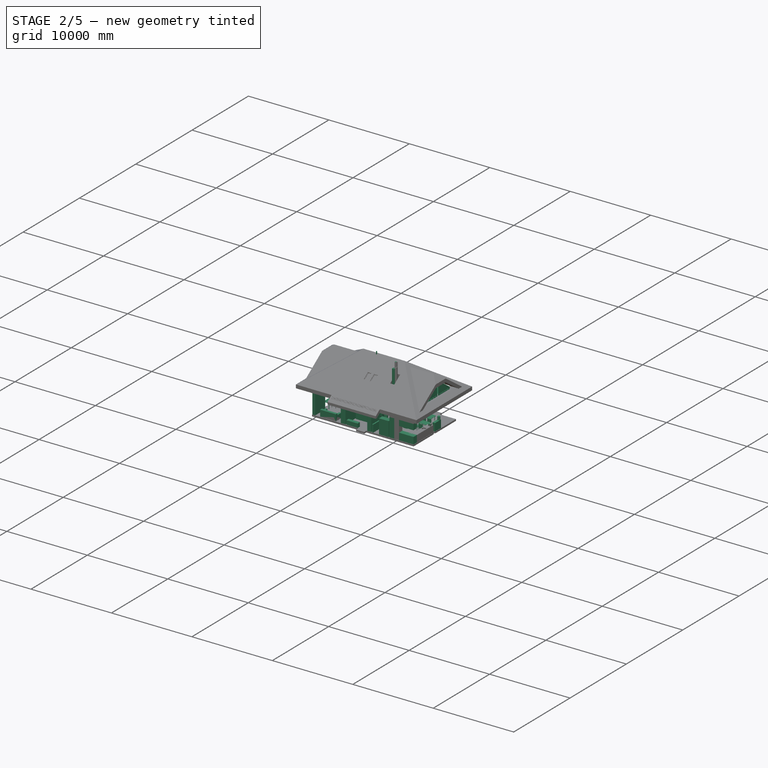
[diagram: stage 2 of 5 — iso view after this stage's code; geometry added in this stage tinted green]
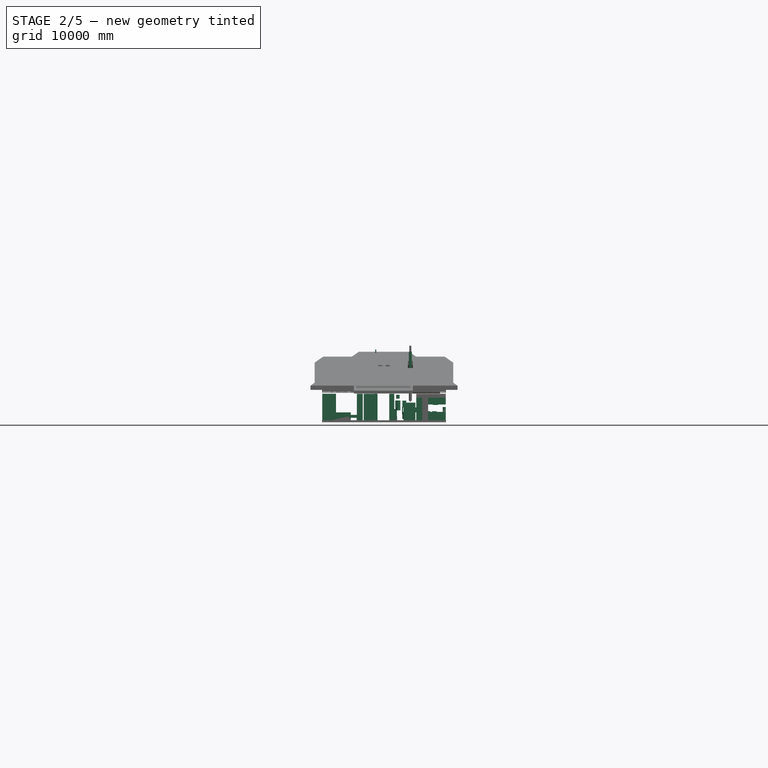
[diagram: stage 2 of 5 — front view after this stage's code; geometry added in this stage tinted green]
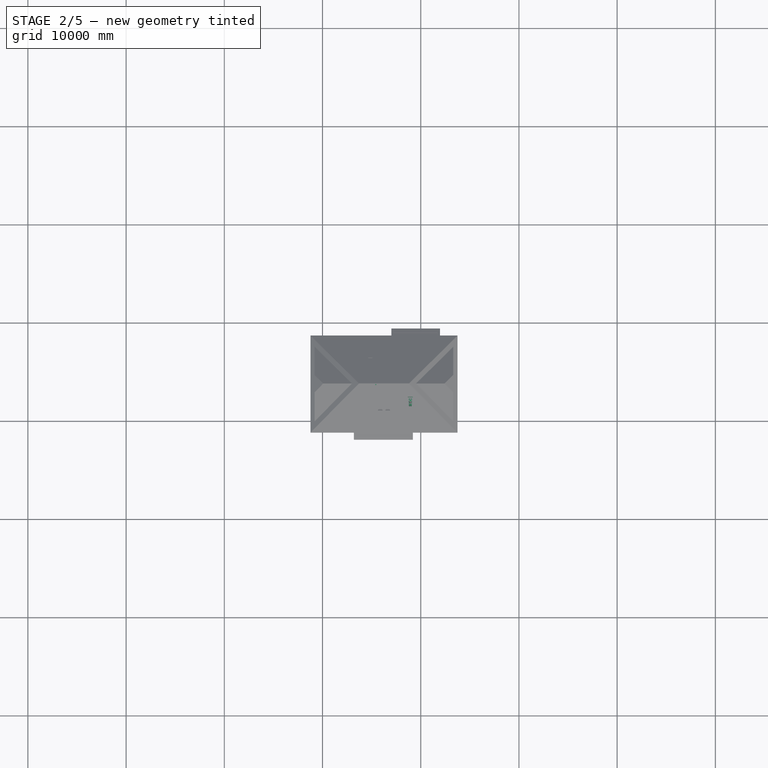
[diagram: stage 2 of 5 — top view after this stage's code; geometry added in this stage tinted green]
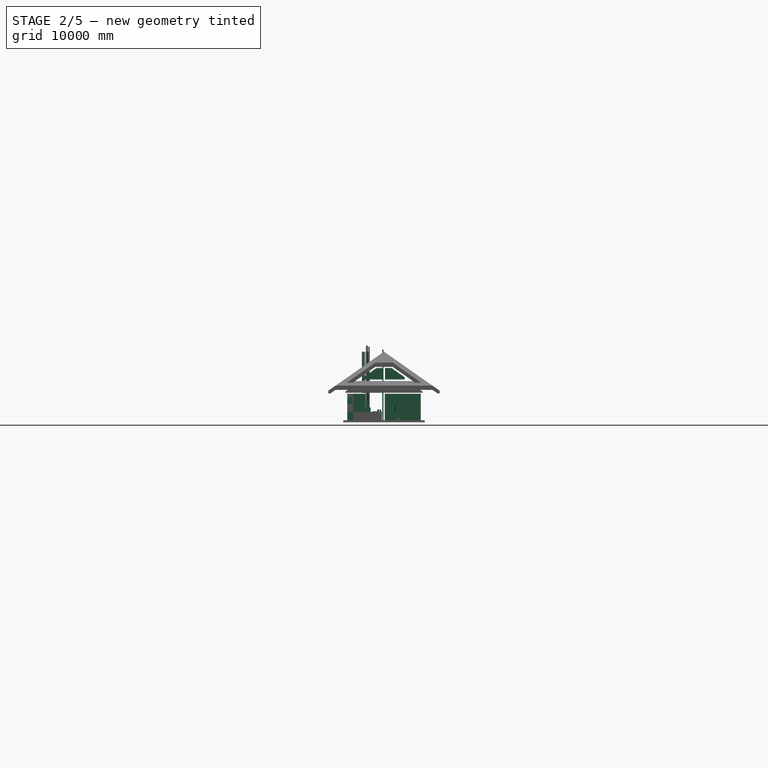
[diagram: stage 2 of 5 — right view after this stage's code; geometry added in this stage tinted green]
FEATURE [Part::Part2DObjectPython] Rectangle556  label="вытяжка осн мал"  # Draft 2D object (typed FeaturePython)
  ChamferSize = 0
  Columns = 1
  FilletRadius = 0
  Height = 400
  Length = 400
  MakeFace = false
  Placement = pos=(11300,390,1600) rot=(0,0,-1;1.5708rad)
  Rows = 1
FEATURE [Part::Box] Box3145  label="ТВ"
  AttacherType = Attacher::AttachEngine3D
  Height = 750
  Length = 1400
  Placement = pos=(8090,6200,620) rot=(0,0,-1;1.5708rad)
  Width = 100
FEATURE [Part::Box] Box3143  label="шкаф книжн. "
  AttacherType = Attacher::AttachEngine3D
  Height = 2700
  Length = 900
  Placement = pos=(320,-10,0) rot=(0,0,1;1.5708rad)
  Width = 350
FEATURE [Part::Part2DObjectPython] Rectangle555  label="вытяжка осн бол"  # Draft 2D object (typed FeaturePython)
  ChamferSize = 0
  Columns = 1
  FilletRadius = 0
  Height = 600
  Length = 500
  MakeFace = false
  Placement = pos=(11200,490,1550) rot=(0,0,-1;1.5708rad)
  Rows = 1
FEATURE [Part::Loft] Loft001  label="вытяжка"
  Closed = false
  MaxDegree = 5
  Ruled = false
  Sections = -> [Rectangle555,Rectangle556]
  Solid = true
FEATURE [Part::Feature] Fillet001  label="стол обеденный"
  Placement = pos=(10350,2890,0) rot=(0,0,1;0rad)
  shape: bbox 1500 x 750 x 750 mm, 30 faces (baked)
FEATURE [Part::Feature] Fusion013  label="стул005"
  Placement = pos=(10350,2890,0) rot=(0,0,1;0rad)
  shape: bbox 480 x 520 x 910 mm, 35 faces (baked)
FEATURE [Part::Feature] Fusion014  label="стул006"
  Placement = pos=(10350,2890,0) rot=(0,0,1;0rad)
  shape: bbox 480 x 520 x 910 mm, 35 faces (baked)
FEATURE [Part::Feature] Fusion015  label="стул007"
  Placement = pos=(10350,2890,0) rot=(0,0,1;0rad)
  shape: bbox 480 x 520 x 910 mm, 35 faces (baked)
FEATURE [Part::Feature] Fusion016  label="стул008"
  Placement = pos=(10350,2890,0) rot=(0,0,1;0rad)
  shape: bbox 480 x 520 x 910 mm, 35 faces (baked)
FEATURE [Part::Box] Box3154  label="шкаф 55 одежда 001"
  AttacherType = Attacher::AttachEngine3D
  Height = 2700
  Length = 2280
  Placement = pos=(7300,-10,0) rot=(0,0,1;1.5708rad)
  Width = 500
FEATURE [Part::Box] Box3155  label="шкаф 60 одежда 002"
  AttacherType = Attacher::AttachEngine3D
  Height = 2700
  Length = 1400
  Placement = pos=(4200,1670,0) rot=(0,0,1;0rad)
  Width = 600
FEATURE [Part::Box] Box3156  label="шкаф 60 одежда 003"
  AttacherType = Attacher::AttachEngine3D
  Height = 2700
  Length = 2280
  Placement = pos=(4100,-10,0) rot=(0,0,1;1.5708rad)
  Width = 600
FEATURE [Part::Box] Box3157  label="шкаф 60 одежда 004"
  AttacherType = Attacher::AttachEngine3D
  Height = 2700
  Length = 1400
  Placement = pos=(-30,5025,0) rot=(0,0,1;0rad)
  Width = 600
FEATURE [Part::Box] Box3159  label="ТВ001"
  AttacherType = Attacher::AttachEngine3D
  Height = 750
  Length = 1200
  Placement = pos=(4720,6225,620) rot=(0,0,-1;1.5708rad)
  Width = 75
FEATURE [Part::Box] Box3163  label="обувница"
  AttacherType = Attacher::AttachEngine3D
  Height = 500
  Length = 1400
  Placement = pos=(4200,-4.55e-13,0) rot=(0,0,1;0rad)
  Width = 400
FEATURE [Part::Feature] Fusion019  label="кровать 2 спальная 210х170 002"
  Placement = pos=(6970,7925,0) rot=(0,0,-1;1.5708rad)
  shape: bbox 2100 x 1700 x 800 mm, 53 faces (baked)
FEATURE [Part::Feature] Fusion027  label="Диван кабинет"
  Placement = pos=(3475,2970,0) rot=(0,0,1;3.14159rad)
  shape: bbox 1950 x 950 x 800 mm, 23 faces (baked)
FEATURE [Part::Box] Box3175  label="Холодильник"
  AttacherType = Attacher::AttachEngine3D
  Height = 1600
  Length = 600
  Placement = pos=(10150,-10,0) rot=(0,0,1;1.5708rad)
  Width = 600
FEATURE [Part::Box] Box3178  label="шкаф 45 кухонный 002"
  AttacherType = Attacher::AttachEngine3D
  Height = 700
  Length = 1800
  Placement = pos=(10750,-10,1600) rot=(0,0,1;0rad)
  Width = 450
FEATURE [Part::Box] Box3179  label="шкаф 60 кухонный 003"
  AttacherType = Attacher::AttachEngine3D
  Height = 700
  Length = 600
  Placement = pos=(9550,-10,1600) rot=(0,0,1;0rad)
  Width = 600
FEATURE [Part::Feature] Fillet003  label="Столик журнальный"
  Placement = pos=(13600,-900,0) rot=(0,0,1;0rad)
  shape: bbox 1000 x 1000 x 530 mm, 34 faces, 5 solids (baked)
FEATURE [Part::Box] Box3183  label="морозильник 60 см"
  AttacherType = Attacher::AttachEngine3D
  Height = 1800
  Length = 600
  Placement = pos=(8250,-10,0) rot=(0,0,1;0rad)
  Width = 600
FEATURE [Part::Box] Box3184  label="СМ"
  AttacherType = Attacher::AttachEngine3D
  Height = 800
  Length = 600
  Placement = pos=(8850,-10,0) rot=(0,0,1;0rad)
  Width = 600
FEATURE [Part::Feature] Fusion041  label="унитаз с инсталляцией 002"
  Placement = pos=(12995.1,-6440,0) rot=(0,0,1;1.5708rad)
  shape: bbox 400 x 700 x 1150 mm, 15 faces (baked)
FEATURE [Part::Box] Box3191  label="кулер"
  AttacherType = Attacher::AttachEngine3D
  Height = 950
  Length = 310
  Placement = pos=(12240,4560,0) rot=(0,0,1;0rad)
  Width = 310
FEATURE [Part::Cylinder] Cylinder  label="бутыль воды"
  Angle = 360
  AttacherType = Attacher::AttachEngine3D
  Height = 400
  Placement = pos=(12395,4715,950) rot=(0,0,1;0rad)
  Radius = 150
FEATURE [Part::Box] Box3192  label="кофеварка"
  AttacherType = Attacher::AttachEngine3D
  Height = 250
  Length = 200
  Placement = pos=(12494,3045.99,850) rot=(0,0,1;1.5708rad)
  Width = 250
FEATURE [Part::Box] Box3203  label="шкаф подвесной"
  AttacherType = Attacher::AttachEngine3D
  Height = 1000
  Length = 600
  Placement = pos=(8850,-10,800) rot=(0,0,1;0rad)
  Width = 600
FEATURE [Part::Box] Box3204  label="шкаф 001"
  AttacherType = Attacher::AttachEngine3D
  Height = 2700
  Length = 1215
  Placement = pos=(370,3810,0) rot=(0,0,1;1.5708rad)
  Width = 400
FEATURE [Part::Box] Box3205  label="шкаф 60 кухонный 011"
  AttacherType = Attacher::AttachEngine3D
  Height = 850
  Length = 1800
  Placement = pos=(10750,-10,0) rot=(0,0,1;0rad)
  Width = 600
FEATURE [Part::Part2DObjectPython] Circle098  label="Circle099"  # Draft 2D object (typed FeaturePython)
  Area = 0
  FirstAngle = 0
  LastAngle = 0
  MakeFace = false
  Placement = pos=(11626.7,117.473,0) rot=(0,0,1;0rad)
  Radius = 75
FEATURE [Part::FeaturePython] Array019  # Draft array (typed FeaturePython)
  Angle = 360
  ArrayType = 0
  Axis = (0,0,1)
  Base = -> Circle098
  Center = (0,0,0)
  Fuse = false
  IntervalAxis = (0,0,0)
  IntervalX = (250,0,0)
  IntervalY = (0,250,0)
  IntervalZ = (0,0,1)
  NumberPolar = 1
  NumberX = 2
  NumberY = 2
  NumberZ = 1
  Placement = pos=(-250,0,0) rot=(0,0,1;0rad)
FEATURE [Part::Extrusion] Extrude058  label="Панель индукционная"
  Base = -> Array019
  Dir = (0,0,1)
  DirMode = 2
  FaceMakerClass = Part::FaceMakerBullseye
  LengthFwd = 50
  LengthRev = 0
  Placement = pos=(0,0,800) rot=(0,0,1;0rad)
  Solid = true
  Symmetric = false
FEATURE [Part::MultiFuse] Fusion044  label="Шкаф с плитой 001"
  Shapes = -> [Box3205,Extrude058]
FEATURE [Part::Box] Box3211  label="камин топка 700"
  AttacherType = Attacher::AttachEngine3D
  Height = 500
  Length = 800
  Placement = pos=(8750,1870,800) rot=(0,0,1;0rad)
  Width = 500
FEATURE [Part::Box] Box3215  label="Душ 100*80"
  AttacherType = Attacher::AttachEngine3D
  Height = 5
  Length = 1000
  Placement = pos=(5815,6555,0) rot=(0,0,1;0rad)
  Width = 900
FEATURE [Part::Part2DObjectPython] Rectangle3121  label="проём в перекрытии 007"  # Draft 2D object (typed FeaturePython)
  Area = 0
  ChamferSize = 0
  Columns = 1
  FilletRadius = 0
  Height = 3770
  Length = 1020
  MakeFace = false
  Placement = pos=(6900,3720,0) rot=(0,0,1;0rad)
  Rows = 1
FEATURE [Part::FeaturePython] Structure037  label="проём в перекрытии 004"  # Arch/BIM 52 (typed FeaturePython)
  Base = -> Rectangle3121
  FaceMaker = 0
  Height = 4500
  HorizontalArea = 3845400
  IfcData = complex_attributes={"OwnerHistory": {}, "IsNestedBy": {}, "IsDecomposedBy": {}, "IsDefinedBy": {}, "ObjectPlacement": {}, "Representation":... (+4 chars omitted)
  IfcType = 52
  Length = 0
  MoveBase = false
  MoveWithHost = false
  Nodes = (2) [(4500,6910,0),(4500,6910,4500)]
  NodesOffset = 0
  Normal = (0,0,0)
  PerimeterLength = 9580
  VerticalArea = 43110000
  Width = 100
FEATURE [Part::Part2DObjectPython] Line1381  # Draft 2D object (typed FeaturePython)
  ChamferSize = 0
  Closed = true
  End = (6830,4800,0)
  FilletRadius = 0
  Length = 750
  MakeFace = false
  Placement = pos=(3350,6970,0) rot=(0,0,-1;1.5708rad)
  Points = (2) [(2170,2730,0),(2170,3480,0)]
  Start = (6080,4800,0)
  Subdivisions = 0
FEATURE [Part::Part2DObjectPython] Rectangle3168  label="трап"  # Draft 2D object (typed FeaturePython)
  Area = 0
  ChamferSize = 0
  Columns = 1
  FilletRadius = 0
  Height = 900
  Length = 70
  MakeFace = false
  Placement = pos=(5850,6555,0) rot=(0,0,1;0rad)
  Rows = 1
FEATURE [Part::Box] Box3216  label="шкаф книжн. 001"
  AttacherType = Attacher::AttachEngine3D
  Height = 2700
  Length = 900
  Placement = pos=(320,890,0) rot=(0,0,1;1.5708rad)
  Width = 350
FEATURE [Part::Box] Box3217  label="шкаф 60 одежда 005"
  AttacherType = Attacher::AttachEngine3D
  Height = 2700
  Length = 1400
  Placement = pos=(-30,5625,0) rot=(0,0,1;0rad)
  Width = 600
FEATURE [Part::Box] Box3218  label="шкаф 003"
  AttacherType = Attacher::AttachEngine3D
  Height = 2700
  Length = 1245
  Placement = pos=(370,6225,0) rot=(0,0,1;1.5708rad)
  Width = 400
FEATURE [Part::Part2DObjectPython] Line1383  # Draft 2D object (typed FeaturePython)
  ChamferSize = 0
  Closed = true
  End = (1370,6575,0)
  FilletRadius = 0
  Length = 1900
  MakeFace = false
  Placement = pos=(-1100,7435,0) rot=(0,0,-1;1.5708rad)
  Points = (2) [(2760,2470,0),(860,2470,0)]
  Start = (1370,4675,0)
  Subdivisions = 0
FEATURE [Part::Feature] Fillet004  label="стол письменный"
  Placement = pos=(1140,1890,0) rot=(0,0,1;1.5708rad)
  shape: bbox 750 x 1500 x 750 mm, 30 faces (baked)
FEATURE [Part::Feature] Fusion045  label="стул009"
  Placement = pos=(-462.225,3197.19,0) rot=(0,0,-1;1.5708rad)
  shape: bbox 520 x 480 x 910 mm, 35 faces (baked)
FEATURE [Part::Part2DObjectPython] Line1387  # Draft 2D object (typed FeaturePython)
  Area = 0
  ChamferSize = 0
  Closed = false
  End = (6850,3790,2883.34)
  FilletRadius = 0
  Length = 2883.34
  MakeFace = true
  Placement = pos=(6850,3790,0) rot=(0.57735,-0.57735,-0.57735;2.0944rad)
  Points = (2) [(0,0,0),(0,2883.34,0)]
  Start = (6850,3790,0)
  Subdivisions = 0
FEATURE [Part::Part2DObjectPython] Line1388  # Draft 2D object (typed FeaturePython)
  Area = 0
  ChamferSize = 0
  Closed = false
  End = (6850,3790,2705.3)
  FilletRadius = 0
  Length = 2705.3
  MakeFace = true
  Placement = pos=(6850,3790,0) rot=(0.57735,-0.57735,-0.57735;2.0944rad)
  Points = (2) [(0,0,0),(0,2705.3,0)]
  Start = (6850,3790,0)
  Subdivisions = 0
FEATURE [Part::Part2DObjectPython] Line1389  # Draft 2D object (typed FeaturePython)
  Area = 0
  ChamferSize = 0
  Closed = false
  End = (6850,4800,2105)
  FilletRadius = 0
  Length = 2105
  MakeFace = true
  Placement = pos=(6850,4800,0) rot=(0.57735,-0.57735,-0.57735;2.0944rad)
  Points = (2) [(0,0,0),(0,2105,0)]
  Start = (6850,4800,0)
  Subdivisions = 0
FEATURE [Part::Part2DObjectPython] Wire784  # Draft 2D object (typed FeaturePython)
  Area = 1.11311e+06
  ChamferSize = 0
  Closed = true
  End = (8340,3810,0)
  FilletRadius = 0
  Length = 6495.24
  MakeFace = true
  Placement = pos=(7940,3820,0) rot=(0,0,1;0rad)
  Points = (10) [(1.36424e-11,-10,0),(1.36424e-11,2650,0),(-100,2650,0),(-100,2707.73,0),(-57.7349,2750,0),(1.36424e-11,2750,0),(250,2750.02,0),(350,2750,0),+2 more]
  Start = (7940,3810,0)
  Subdivisions = 0
FEATURE [Part::Cylinder] Cylinder002  label="БКН 120л"
  Angle = 360
  AttacherType = Attacher::AttachEngine3D
  Height = 1010
  Placement = pos=(7680,1990,1000) rot=(0,0,1;0rad)
  Radius = 250
FEATURE [Part::Part2DObjectPython] Arc113  label="Arc114"  # Draft 2D object (typed FeaturePython)
  Area = 0
  FirstAngle = 90
  LastAngle = 180
  MakeFace = false
  Placement = pos=(6600,3665,0) rot=(0,0,1;0rad)
  Radius = 400
FEATURE [Part::Part2DObjectPython] Arc112  label="Arc113"  # Draft 2D object (typed FeaturePython)
  Area = 0
  FirstAngle = 0
  LastAngle = 90
  MakeFace = false
  Placement = pos=(5800,3665,0) rot=(0,0,1;0rad)
  Radius = 400
FEATURE [Part::Box] Box3220  label="Котёл 24кВт одноконтурн. закртытая камера"
  AttacherType = Attacher::AttachEngine3D
  Height = 700
  Length = 400
  Placement = pos=(8130,2000,1300) rot=(0,0,1;0rad)
  Width = 250
FEATURE [Part::Cylinder] Cylinder003  label="бак расширительный"
  Angle = 360
  AttacherType = Attacher::AttachEngine3D
  Height = 400
  Placement = pos=(7680,1990,2200) rot=(0,0,1;0rad)
  Radius = 175
FEATURE [Part::Box] Box3222  label="грёбенка и насосы"
  AttacherType = Attacher::AttachEngine3D
  Height = 900
  Length = 150
  Placement = pos=(7400,-10,0) rot=(0,0,1;0rad)
  Width = 1700
FEATURE [Part::Cylinder] Cylinder004  label="Гидроакк. 100л"
  Angle = 360
  AttacherType = Attacher::AttachEngine3D
  Height = 700
  Placement = pos=(8350,2020,140) rot=(0,0,1;0rad)
  Radius = 220
FEATURE [Part::Box] Box3223  label="Котёл электр. (резерв)"
  AttacherType = Attacher::AttachEngine3D
  Height = 700
  Length = 200
  Placement = pos=(7550,1490,1300) rot=(0,0,1;1.5708rad)
  Width = 150
FEATURE [Part::Part2DObjectPython] Wire787  label="Кухня"  # Draft 2D object (typed FeaturePython)
  Area = 4274000
  ChamferSize = 0
  Closed = true
  End = (9450,-10,0)
  FilletRadius = 0
  Length = 8660
  MakeFace = true
  Placement = pos=(7380,20,0) rot=(0,0,1;0rad)
  Points = (6) [(20,-30,0),(20,2250,0),(1270,2250,0),(1270,1750,0),(2070,1750,0),(2070,-30,0)]
  Start = (7400,-10,0)
  Subdivisions = 0
FEATURE [Part::Box] Box3227  label="комод"
  AttacherType = Attacher::AttachEngine3D
  Height = 950
  Length = 310
  Placement = pos=(12240,3810,0) rot=(0,0,1;0rad)
  Width = 750
FEATURE [Part::FeaturePython] Pipe008  label="Дымоход 200"  # Arch/BIM 98 (typed FeaturePython)
  Base = -> Line1479
  Diameter = 200
  GlobalId = 11JHR0lR55LRzzbgV05jpw
  HorizontalArea = 0
  IfcData = IfcUID=11JHR0lR55LRzzbgV05jpw,+2 more (map truncated)
  IfcType = 98
  Length = 5600
  Material = -> Material010
  MoveBase = false
  MoveWithHost = false
  OffsetEnd = 0
  OffsetStart = 0
  PerimeterLength = 0
  PredefinedType = 0
  VerticalArea = 0
  WallThickness = 0
FEATURE [Part::FeaturePython] Pipe009  label="Вентканал 140мм 001"  # Arch/BIM 98 (typed FeaturePython)
  Base = -> Line1480
  Diameter = 140
  GlobalId = 3HmMp4Xfr8TAmJ5ODVlau7
  HorizontalArea = 0
  IfcData = IfcUID=3HmMp4Xfr8TAmJ5ODVlau7,+2 more (map truncated)
  IfcType = 98
  Length = 4200
  Material = -> Material010
  MoveBase = false
  MoveWithHost = false
  OffsetEnd = 0
  OffsetStart = 0
  PerimeterLength = 0
  PredefinedType = 0
  VerticalArea = 0
  WallThickness = 0
FEATURE [Part::FeaturePython] Pipe010  label="Вентканал 140мм 002"  # Arch/BIM 98 (typed FeaturePython)
  Base = -> Line1480
  Diameter = 140
  GlobalId = 3OBLLStZzDnRK0fH7jX7AD
  HorizontalArea = 0
  IfcData = IfcUID=3OBLLStZzDnRK0fH7jX7AD,+2 more (map truncated)
  IfcType = 98
  Length = 4200
  Material = -> Material010
  MoveBase = false
  MoveWithHost = false
  OffsetEnd = 0
  OffsetStart = 0
  PerimeterLength = 0
  Placement = pos=(150,-150,0) rot=(0,0,1;0rad)
  PredefinedType = 0
  VerticalArea = 0
  WallThickness = 0
FEATURE [Part::FeaturePython] Pipe011  label="Вентканал 140мм 003"  # Arch/BIM 98 (typed FeaturePython)
  Base = -> Line1480
  Diameter = 140
  GlobalId = 2bpWL1Qcr8UxhAynMgY7T5
  HorizontalArea = 0
  IfcData = IfcUID=2bpWL1Qcr8UxhAynMgY7T5,+2 more (map truncated)
  IfcType = 98
  Length = 4200
  Material = -> Material010
  MoveBase = false
  MoveWithHost = false
  OffsetEnd = 0
  OffsetStart = 0
  PerimeterLength = 0
  Placement = pos=(0,-150,0) rot=(0,0,1;0rad)
  PredefinedType = 0
  VerticalArea = 0
  WallThickness = 0
FEATURE [Part::FeaturePython] Pipe013  label="Вентканал 140мм 004"  # Arch/BIM 98 (typed FeaturePython)
  Base = -> Line1480
  Diameter = 140
  GlobalId = 22CnrufE59UfX6ZQo80id_
  HorizontalArea = 0
  IfcData = IfcUID=22CnrufE59UfX6ZQo80id_,+2 more (map truncated)
  IfcType = 98
  Length = 4200
  Material = -> Material010
  MoveBase = false
  MoveWithHost = false
  OffsetEnd = 0
  OffsetStart = 0
  PerimeterLength = 0
  Placement = pos=(150,0,0) rot=(0,0,1;0rad)
  PredefinedType = 0
  VerticalArea = 0
  WallThickness = 0
FEATURE [App::GeometryPython] BuildingPart011  label="Окна и двери 1этаж"  # Arch/BIM 52 (typed FeaturePython)
  Area = 33692200
  GlobalId = 2lTKOyIXPBJh5VnrrZDJsa
  Group = -> [Window009,Window020,Window021,Window022,Window026,Window035,Window040,Window041,Window042,Window047,Window048,Window051,Window052,Window053,Window054,Window056]
  Height = 0
  HeightPropagate = true
  IfcData = IfcUID=2lTKOyIXPBJh5VnrrZDJsa,attributes={"GlobalId": {"value": "2lTKOyIXPBJh5VnrrZDJsa"}},+1 more (map truncated)
  IfcType = 52
  LevelOffset = 0
FEATURE [Part::FeaturePython] Window061  label="Окно Velox 55x98 001"  # Arch/BIM 170 (typed FeaturePython)
  Area = 539000
  Base = -> Sketch
  Frame = 50
  GlobalId = 0OgXawITjBROe3cBxnSt2i
  Height = 980
  HoleDepth = 0
  HoleWire = 0
  HorizontalArea = 0
  Hosts = -> [Roof012]
  IfcData = IfcUID=0OgXawITjBROe3cBxnSt2i,+2 more (map truncated)
  IfcType = 170
  LouvreSpacing = 0
  LouvreWidth = 0
  Material = -> Material011
  MoveBase = false
  MoveWithHost = true
  Normal = (0,0.573576,-0.819152)
  Opening = 0
  OverallHeight = 980
  OverallWidth = 550
  PartitioningType = 0
  PerimeterLength = 0
  Placement = pos=(0,0,23.7) rot=(0,0,1;0rad)
  PredefinedType = 0
  Preset = 2
  SymbolElevation = false
  SymbolPlan = false
  VerticalArea = 0
  Width = 550
  WindowParts = OuterFrame | Frame | Wire0,Wire1 | 300.0+V | 0.00+V | InnerFrame | Frame | Wire2,Wire3,Edge8,Mode1 | 50.0 | 50.0+V | InnerGlass | Glass panel | Wire3 | 5.0 | 75.0+V
  expr: OverallHeight = .Height.Value
  expr: OverallWidth = .Width.Value
FEATURE [Part::FeaturePython] Window062  label="Окно Velox 55x98 002"  # Arch/BIM 170 (typed FeaturePython)
  Area = 539000
  Base = -> Sketch321
  Frame = 50
  GlobalId = 1t8PRcMxPE3hYzY8q_2YfV
  Height = 980
  HoleDepth = 0
  HoleWire = 0
  HorizontalArea = 0
  Hosts = -> [Roof012]
  IfcData = IfcUID=1t8PRcMxPE3hYzY8q_2YfV,+2 more (map truncated)
  IfcType = 170
  LouvreSpacing = 0
  LouvreWidth = 0
  Material = -> Material011
  MoveBase = false
  MoveWithHost = true
  Normal = (0,0.573576,-0.819152)
  Opening = 0
  OverallHeight = 980
  OverallWidth = 550
  PartitioningType = 0
  PerimeterLength = 0
  Placement = pos=(0,0,23.7) rot=(0,0,1;0rad)
  PredefinedType = 0
  Preset = 2
  SymbolElevation = false
  SymbolPlan = false
  VerticalArea = 0
  Width = 550
  WindowParts = OuterFrame | Frame | Wire0,Wire1 | 300.0+V | 0.00+V | InnerFrame | Frame | Wire2,Wire3,Edge8,Mode1 | 50.0 | 50.0+V | InnerGlass | Glass panel | Wire3 | 5.0 | 75.0+V
  expr: OverallHeight = .Height.Value
  expr: OverallWidth = .Width.Value
FEATURE [Part::FeaturePython] Window063  label="Окно Velox 55x98 003"  # Arch/BIM 170 (typed FeaturePython)
  Area = 539000
  Base = -> Sketch322
  Frame = 50
  GlobalId = 1OK8u$9hHB99HRKu0QW2Gw
  Height = 980
  HoleDepth = 0
  HoleWire = 0
  HorizontalArea = 0
  Hosts = -> [Roof012]
  IfcData = IfcUID=1OK8u$9hHB99HRKu0QW2Gw,+2 more (map truncated)
  IfcType = 170
  LouvreSpacing = 0
  LouvreWidth = 0
  Material = -> Material011
  MoveBase = false
  MoveWithHost = true
  Normal = (0,-0.573576,-0.819152)
  Opening = 0
  OverallHeight = 980
  OverallWidth = 550
  PartitioningType = 0
  PerimeterLength = 0
  Placement = pos=(0,0,23.7) rot=(0,0,1;0rad)
  PredefinedType = 0
  Preset = 2
  SymbolElevation = false
  SymbolPlan = false
  VerticalArea = 0
  Width = 550
  WindowParts = OuterFrame | Frame | Wire0,Wire1 | 300.0+V | 0.00+V | InnerFrame | Frame | Wire2,Wire3,Edge8,Mode1 | 50.0 | 50.0+V | InnerGlass | Glass panel | Wire3 | 5.0 | 75.0+V
  expr: OverallHeight = .Height.Value
  expr: OverallWidth = .Width.Value
FEATURE [Part::FeaturePython] Pipe006  label="Фановый стояк 001"  # Arch/BIM 98 (typed FeaturePython)
  Base = -> Line1465
  Diameter = 110
  GlobalId = 0tHcO5Qt903xGrElAHG3sm
  HorizontalArea = 0
  IfcData = IfcUID=0tHcO5Qt903xGrElAHG3sm,+2 more (map truncated)
  IfcType = 98
  Length = 7200
  Material = -> Material011
  MoveBase = false
  MoveWithHost = false
  OffsetEnd = 0
  OffsetStart = 0
  PerimeterLength = 0
  PredefinedType = 0
  VerticalArea = 0
  WallThickness = 0
FEATURE [Part::Part2DObjectPython] Wire836  # Draft 2D object (typed FeaturePython)
  Area = 0
  ChamferSize = 0
  Closed = true
  End = (0,7042.91,3733)
  FilletRadius = 0
  Length = 14626.9
  MakeFace = false
  Placement = pos=(0,436.862,3746.85) rot=(0.57735,0.57735,0.57735;2.0944rad)
  Points = (4) [(-19.7731,-13.8453,0),(3094.8,2167,0),(3491.48,2167,0),(6606.05,-13.8453,0)]
  Start = (0,417.089,3733)
  Subdivisions = 0
FEATURE [Part::FeaturePython] Structure357  label="Фронтон каркасн. 001"  # Arch/BIM 52 (typed FeaturePython)
  Base = -> Wire836
  FaceMaker = 0
  GlobalId = 3jxAwhryLARBy7FrCZDeex
  Height = 510
  HorizontalArea = 0
  IfcData = IfcUID=3jxAwhryLARBy7FrCZDeex,+2 more (map truncated)
  IfcType = 52
  Length = 0
  Material = -> Material003
  MoveBase = false
  MoveWithHost = false
  Nodes = (2) [(0,3730,4501.01),(-510,3730,4501.01)]
  NodesOffset = 0
  Normal = (0,0,0)
  PerimeterLength = 14935.2
  Placement = pos=(13080,1.818e-12,0) rot=(0,0,1;0rad)
  VerticalArea = 9.7295e+06
  Width = 100
FEATURE [Part::FeaturePython] Window057  label="ОК-Фронтон-1-1"  # Arch/BIM 170 (typed FeaturePython)
  Area = 1500000
  Base = -> Sketch316
  Frame = 50
  GlobalId = 0$_XcsZN1ByAmbTwc2WkwE
  Height = 1500
  HoleDepth = 0
  HoleWire = 0
  HorizontalArea = 0
  Hosts = -> [Structure357]
  IfcData = IfcUID=0$_XcsZN1ByAmbTwc2WkwE; attributes={"OverallHeight": {"value": 1500.0}, "OverallWidth": {"value": 1000.0}, "GlobalId": {"value": "0$_XcsZN1ByAmbTwc2WkwE"}}
  IfcType = 170
  LouvreSpacing = 0
  LouvreWidth = 0
  Material = -> Material011
  MoveBase = false
  MoveWithHost = true
  Normal = (-1,0,0)
  Opening = 0
  OverallHeight = 1500
  OverallWidth = 1000
  PartitioningType = 0
  PerimeterLength = 0
  Placement = pos=(13400,1.818e-12,0) rot=(0,0,1;0rad)
  PredefinedType = 0
  Preset = 2
  SymbolElevation = false
  SymbolPlan = false
  VerticalArea = 0
  Width = 1000
  WindowParts = OuterFrame | Frame | Wire0,Wire1 | 0.0+V | 0.00+V | InnerFrame | Frame | Wire2,Wire3 | 0.00+V | 0.0+V | InnerGlass | Glass panel | Wire3 | 10.0 | 50.0+V
  expr: OverallHeight = .Height.Value
  expr: OverallWidth = .Width.Value
FEATURE [Part::FeaturePython] Window059  label="ОК-Фронтон-1-2"  # Arch/BIM 170 (typed FeaturePython)
  Area = 1500000
  Base = -> Sketch318
  Frame = 50
  GlobalId = 0nJFhS2Ib74ffg7zBAHN8z
  Height = 1500
  HoleDepth = 0
  HoleWire = 0
  HorizontalArea = 0
  Hosts = -> [Structure357]
  IfcData = IfcUID=0nJFhS2Ib74ffg7zBAHN8z; attributes={"OverallHeight": {"value": 1500.0}, "OverallWidth": {"value": 1000.0}, "GlobalId": {"value": "0nJFhS2Ib74ffg7zBAHN8z"}}
  IfcType = 170
  LouvreSpacing = 0
  LouvreWidth = 0
  Material = -> Material011
  MoveBase = false
  MoveWithHost = true
  Normal = (-1,0,0)
  Opening = 0
  OverallHeight = 1500
  OverallWidth = 1000
  PartitioningType = 0
  PerimeterLength = 0
  Placement = pos=(13400,1.818e-12,0) rot=(0,0,1;0rad)
  PredefinedType = 0
  Preset = 2
  SymbolElevation = false
  SymbolPlan = false
  VerticalArea = 0
  Width = 1000
  WindowParts = OuterFrame | Frame | Wire0,Wire1 | 0.0+V | 0.00+V | InnerFrame | Frame | Wire2,Wire3 | 0.00+V | 0.0+V | InnerGlass | Glass panel | Wire3 | 10.0 | 50.0+V
  expr: OverallHeight = .Height.Value
  expr: OverallWidth = .Width.Value
FEATURE [Part::FeaturePython] Structure367  label="Фронтон каркасн. 002"  # Arch/BIM 52 (typed FeaturePython)
  Base = -> Wire836
  FaceMaker = 0
  GlobalId = 2MSSJcqfT2sha54GOqmBwm
  Height = 510
  HorizontalArea = 0
  IfcData = IfcUID=2MSSJcqfT2sha54GOqmBwm,+2 more (map truncated)
  IfcType = 52
  Length = 0
  Material = -> Material003
  MoveBase = false
  MoveWithHost = false
  Nodes = (2) [(0,3730,4501.01),(-510,3730,4501.01)]
  NodesOffset = 0
  Normal = (0,0,0)
  PerimeterLength = 0
  Placement = pos=(-50,0,0) rot=(0,0,1;0rad)
  VerticalArea = 9.7295e+06
  Width = 100
FEATURE [Part::FeaturePython] Window066  label="ОК-Фронтон-1-005"  # Arch/BIM 170 (typed FeaturePython)
  Area = 1500000
  Base = -> Sketch316
  Frame = 50
  GlobalId = 2UO6SkOn1FXAzPeAHbjv7O
  Height = 1500
  HoleDepth = 0
  HoleWire = 0
  HorizontalArea = 0
  Hosts = -> [Structure367]
  IfcData = IfcUID=2UO6SkOn1FXAzPeAHbjv7O; attributes={"OverallHeight": {"value": 1500.0}, "OverallWidth": {"value": 1000.0}, "GlobalId": {"value": "2UO6SkOn1FXAzPeAHbjv7O"}}
  IfcType = 170
  LouvreSpacing = 0
  LouvreWidth = 0
  Material = -> Material011
  MoveBase = false
  MoveWithHost = true
  Normal = (1,0,0)
  Opening = 0
  OverallHeight = 1500
  OverallWidth = 1000
  PartitioningType = 0
  PerimeterLength = 0
  PredefinedType = 0
  Preset = 2
  SymbolElevation = false
  SymbolPlan = false
  VerticalArea = 0
  Width = 1000
  WindowParts = OuterFrame | Frame | Wire0,Wire1 | 0.0+V | 0.00+V | InnerFrame | Frame | Wire2,Wire3 | 0.00+V | 0.0+V | InnerGlass | Glass panel | Wire3 | 10.0 | 50.0+V
  expr: OverallWidth = .Width.Value
  expr: OverallHeight = .Height.Value
FEATURE [Part::FeaturePython] Window067  label="ОК-Фронтон-1-006"  # Arch/BIM 170 (typed FeaturePython)
  Area = 1500000
  Base = -> Sketch318
  Frame = 50
  GlobalId = 1cBa_Vux91PRzEq6I7BfM7
  Height = 1500
  HoleDepth = 0
  HoleWire = 0
  HorizontalArea = 0
  Hosts = -> [Structure367]
  IfcData = IfcUID=1cBa_Vux91PRzEq6I7BfM7; attributes={"OverallHeight": {"value": 1500.0}, "OverallWidth": {"value": 1000.0}, "GlobalId": {"value": "1cBa_Vux91PRzEq6I7BfM7"}}
  IfcType = 170
  LouvreSpacing = 0
  LouvreWidth = 0
  Material = -> Material011
  MoveBase = false
  MoveWithHost = true
  Normal = (1,0,0)
  Opening = 0
  OverallHeight = 1500
  OverallWidth = 1000
  PartitioningType = 0
  PerimeterLength = 0
  PredefinedType = 0
  Preset = 2
  SymbolElevation = false
  SymbolPlan = false
  VerticalArea = 0
  Width = 1000
  WindowParts = OuterFrame | Frame | Wire0,Wire1 | 0.0+V | 0.00+V | InnerFrame | Frame | Wire2,Wire3 | 0.00+V | 0.0+V | InnerGlass | Glass panel | Wire3 | 10.0 | 50.0+V
  expr: OverallWidth = .Width.Value
  expr: OverallHeight = .Height.Value
FEATURE [Part::FeaturePython] Wall054  label="Утепление перекрытия XPS 100mm"  # Arch/BIM 166 (typed FeaturePython)
  Align = 0
  Area = 94902400
  Base = -> Line1077
  BlockHeight = 600
  BlockLength = 1200
  CountBroken = 113
  CountEntire = 88
  Face = 0
  GlobalId = 3kr3_7iVj0bR5GirXoWo2v
  Height = 7520
  HorizontalArea = 90495300
  IfcData = IfcUID=3kr3_7iVj0bR5GirXoWo2v; attributes={"GlobalId": {"value": "3kr3_7iVj0bR5GirXoWo2v"}}
  IfcType = 166
  Joint = 0
  Length = 12620
  MakeBlocks = false
  Material = -> Material002
  MoveBase = false
  MoveWithHost = false
  Normal = (0,1,0)
  OffsetFirst = 80
  OffsetSecond = 600
  PerimeterLength = 47820
  Placement = pos=(0,0,3060) rot=(0,0,1;0rad)
  PredefinedType = 0
  Subtractions = -> [Structure037,Structure360,Structure384]
  VerticalArea = 5170000
  Width = 100
FEATURE [Part::Part2DObjectPython] Line1581  # Draft 2D object (typed FeaturePython)
  Area = 0
  ChamferSize = 0
  Closed = true
  End = (-350,-150,0)
  FilletRadius = 0
  Length = 7760
  MakeFace = true
  Placement = pos=(-350,-330,0) rot=(0,0,1;0rad)
  Points = (2) [(0,7940,0),(0,180,0)]
  Start = (-350,7610,0)
  Subdivisions = 0
FEATURE [Part::FeaturePython] Wall293  label="Армпояс003"  # Arch/BIM 166 (typed FeaturePython)
  Align = 1
  Area = 1086400
  Base = -> Line1581
  BlockHeight = 0
  BlockLength = 0
  CountBroken = 0
  CountEntire = 0
  Face = 0
  GlobalId = 3eSRug_un8VgtGtFI5hYOD
  Height = 140
  HorizontalArea = 1396800
  IfcData = IfcUID=3eSRug_un8VgtGtFI5hYOD,+2 more (map truncated)
  IfcType = 166
  Joint = 0
  Length = 7760
  MakeBlocks = false
  Material = -> Material001
  MoveBase = false
  MoveWithHost = false
  Normal = (0,0,0)
  OffsetFirst = 0
  OffsetSecond = 0
  PerimeterLength = 15880
  Placement = pos=(0,0,3493) rot=(0,0,1;0rad)
  PredefinedType = 0
  VerticalArea = 2223200
  Width = 180
FEATURE [Part::Part2DObjectPython] Line1582  # Draft 2D object (typed FeaturePython)
  Area = 0
  ChamferSize = 0
  Closed = true
  End = (12870,7610,0)
  FilletRadius = 0
  Length = 7760
  MakeFace = true
  Placement = pos=(-350,-330,0) rot=(0,0,1;0rad)
  Points = (2) [(13220,180,0),(13220,7940,0)]
  Start = (12870,-150,0)
  Subdivisions = 0
FEATURE [Part::FeaturePython] Wall294  label="Армпояс004"  # Arch/BIM 166 (typed FeaturePython)
  Align = 1
  Area = 1086400
  Base = -> Line1582
  BlockHeight = 0
  BlockLength = 0
  CountBroken = 0
  CountEntire = 0
  Face = 0
  GlobalId = 1hI4wR2SfDawL0z1dNH$cq
  Height = 140
  HorizontalArea = 1396800
  IfcData = IfcUID=1hI4wR2SfDawL0z1dNH$cq,+2 more (map truncated)
  IfcType = 166
  Joint = 0
  Length = 7760
  MakeBlocks = false
  Material = -> Material001
  MoveBase = false
  MoveWithHost = false
  Normal = (0,0,0)
  OffsetFirst = 0
  OffsetSecond = 0
  PerimeterLength = 15880
  Placement = pos=(0,0,3493) rot=(0,0,1;0rad)
  PredefinedType = 0
  VerticalArea = 2223200
  Width = 180
FEATURE [App::DocumentObjectGroupPython] Stirrups014  # scripted group (container) (typed FeaturePython)
  Group = -> [Rebar042]
  Stirrups = -> [Rebar042]
  StirrupsConfiguration = Two Legged Stirrups
FEATURE [Sketcher::SketchObject] Sketch360
  FullyConstrained = false
  MapMode = 5
  Placement = pos=(12870,0,3493) rot=(0.57735,0.57735,0.57735;2.0944rad)
  Support = -> [Wall294]
  sketch-geometry (1):
    g0: LineSegment StartX=-300 StartY=108 StartZ=0 EndX=7760 EndY=108 EndZ=0
FEATURE [Part::FeaturePython] Rebar045  label="StraightRebar030"  # Arch/BIM 110 (typed FeaturePython)
  Amount = 2
  AmountCheck = true
  Base = -> Sketch360
  Cover = 28
  CoverAlong = Top Side
  Diameter = 8
  Direction = (0,0,0)
  Distance = 0
  FrontCover = 28
  HorizontalArea = 0
  Host = -> Wall294
  IfcData = IfcUID=0$9Ki$QzP9MxF8QuB$I3Ex
  IfcType = 110
  LeftBottomCover = -150
  Length = 8060
  Mark = StraightRebar030
  Material = -> Material010
  MoveBase = false
  MoveWithHost = false
  OffsetEnd = 32
  OffsetStart = 32
  Orientation = Horizontal
  PerimeterLength = 0
  PlacementList = 2 placements: [(-32,0,0),(-148,0,0)]
  RebarShape = 0
  RightTopCover = -150
  Rounding = 0
  Spacing = 116
  TotalLength = 16120
  TrueSpacing = 2
  VerticalArea = 0
FEATURE [App::DocumentObjectGroupPython] TopReinforcement014  # scripted group (container) (typed FeaturePython)
  Group = -> [Rebar045]
  LayerSpacing = [30]
  NumberDiameterOffset = 2#8.0@-150.0
  TopRebars = -> [Rebar045]
FEATURE [Sketcher::SketchObject] Sketch361
  FullyConstrained = false
  MapMode = 5
  Placement = pos=(12870,0,3493) rot=(0.57735,0.57735,0.57735;2.0944rad)
  Support = -> [Wall294]
  sketch-geometry (1):
    g0: LineSegment StartX=-300 StartY=32 StartZ=0 EndX=7760 EndY=32 EndZ=0
FEATURE [Part::FeaturePython] Rebar046  label="StraightRebar031"  # Arch/BIM 110 (typed FeaturePython)
  Amount = 2
  AmountCheck = true
  Base = -> Sketch361
  Cover = 28
  CoverAlong = Bottom Side
  Diameter = 8
  Direction = (0,0,0)
  Distance = 0
  FrontCover = 28
  HorizontalArea = 0
  Host = -> Wall294
  IfcData = IfcUID=3LTvHi1MTDgRMXNthAh_XG
  IfcType = 110
  LeftBottomCover = -150
  Length = 8060
  Mark = StraightRebar031
  Material = -> Material010
  MoveBase = false
  MoveWithHost = false
  OffsetEnd = 32
  OffsetStart = 32
  Orientation = Horizontal
  PerimeterLength = 0
  PlacementList = 2 placements: [(-32,0,0),(-148,0,0)]
  RebarShape = 0
  RightTopCover = -150
  Rounding = 0
  Spacing = 116
  TotalLength = 16120
  TrueSpacing = 2
  VerticalArea = 0
FEATURE [App::DocumentObjectGroupPython] BottomReinforcement014  # scripted group (container) (typed FeaturePython)
  BottomRebars = -> [Rebar046]
  Group = -> [Rebar046]
  LayerSpacing = [30]
  NumberDiameterOffset = 2#8.0@-150.0
FEATURE [App::DocumentObjectGroupPython] BeamReinforcement014  label="BeamReinforcement015"  # scripted group (container) (typed FeaturePython)
  Group = -> [Stirrups014,TopReinforcement014,BottomReinforcement014]
  ReinforcementGroups = -> [Stirrups014,TopReinforcement014,BottomReinforcement014]
FEATURE [Part::Part2DObjectPython] Wire887  # Draft 2D object (typed FeaturePython)
  Area = 0
  ChamferSize = 0
  Closed = false
  End = (-301.029,7599.14,3572.72)
  FilletRadius = 0
  Length = 573.429
  MakeFace = true
  Points = (7) [(-289.716,7612.17,3584.03),(-326,7610,3620.31),(-326,7607.83,3517),(-194,7605.66,3517),(-194,7603.49,3609),(-337.314,7601.31,3609),+1 more]
  Start = (-289.716,7612.17,3584.03)
  Subdivisions = 0
  Support = -> [Wall293]
FEATURE [Part::FeaturePython] Rebar047  label="Stirrup015"  # Arch/BIM 110 (typed FeaturePython)
  Amount = 17
  AmountCheck = false
  Base = -> Wire887
  BentAngle = 135
  BentFactor = 4
  BottomCover = 20
  Diameter = 8
  Direction = (0,-1,0)
  Distance = 0
  FrontCover = 100
  HorizontalArea = 0
  Host = -> Wall293
  IfcData = IfcUID=3cNbPT2cr1VeJ7E6rFKLiC
  IfcType = 110
  LeftCover = 20
  Length = 573.429
  Mark = Stirrup015
  Material = -> Material010
  MoveBase = false
  MoveWithHost = false
  OffsetEnd = 104
  OffsetStart = 104
  PerimeterLength = 0
  PlacementList = 17 placements: arithmetic series from (0,-104,0) step (0,-471.5,0) to (0,-7648,0)
  RebarShape = 3
  RightCover = 20
  Rounding = 1
  Spacing = 471.5
  TopCover = 20
  TotalLength = 9748.3
  TrueSpacing = 500
  VerticalArea = 0
FEATURE [App::DocumentObjectGroupPython] Stirrups015  # scripted group (container) (typed FeaturePython)
  Group = -> [Rebar047]
  Stirrups = -> [Rebar047]
  StirrupsConfiguration = Two Legged Stirrups
FEATURE [Sketcher::SketchObject] Sketch362
  FullyConstrained = false
  MapMode = 5
  Placement = pos=(-170,0,3493) rot=(0.57735,0.57735,0.57735;2.0944rad)
  Support = -> [Wall293]
  sketch-geometry (1):
    g0: LineSegment StartX=-300 StartY=108 StartZ=0 EndX=7760 EndY=108 EndZ=0
FEATURE [Part::FeaturePython] Rebar048  label="StraightRebar032"  # Arch/BIM 110 (typed FeaturePython)
  Amount = 2
  AmountCheck = true
  Base = -> Sketch362
  Cover = 28
  CoverAlong = Top Side
  Diameter = 8
  Direction = (0,0,0)
  Distance = 0
  FrontCover = 28
  HorizontalArea = 0
  Host = -> Wall293
  IfcData = IfcUID=3g7bd8dkj1MPydz_teGZJR
  IfcType = 110
  LeftBottomCover = -150
  Length = 8060
  Mark = StraightRebar032
  Material = -> Material010
  MoveBase = false
  MoveWithHost = false
  OffsetEnd = 32
  OffsetStart = 32
  Orientation = Horizontal
  PerimeterLength = 0
  PlacementList = 2 placements: [(-32,0,0),(-148,0,0)]
  RebarShape = 0
  RightTopCover = -150
  Rounding = 0
  Spacing = 116
  TotalLength = 16120
  TrueSpacing = 2
  VerticalArea = 0
FEATURE [App::DocumentObjectGroupPython] TopReinforcement015  # scripted group (container) (typed FeaturePython)
  Group = -> [Rebar048]
  LayerSpacing = [30]
  NumberDiameterOffset = 2#8.0@-150.0
  TopRebars = -> [Rebar048]
FEATURE [Sketcher::SketchObject] Sketch363
  FullyConstrained = false
  MapMode = 5
  Placement = pos=(-170,0,3493) rot=(0.57735,0.57735,0.57735;2.0944rad)
  Support = -> [Wall293]
  sketch-geometry (1):
    g0: LineSegment StartX=-300 StartY=32 StartZ=0 EndX=7760 EndY=32 EndZ=0
FEATURE [Part::FeaturePython] Rebar049  label="StraightRebar033"  # Arch/BIM 110 (typed FeaturePython)
  Amount = 2
  AmountCheck = true
  Base = -> Sketch363
  Cover = 28
  CoverAlong = Bottom Side
  Diameter = 8
  Direction = (0,0,0)
  Distance = 0
  FrontCover = 28
  HorizontalArea = 0
  Host = -> Wall293
  IfcData = IfcUID=0PUrgqHLj2fuIB$J8Xlgq8
  IfcType = 110
  LeftBottomCover = -150
  Length = 8060
  Mark = StraightRebar033
  Material = -> Material010
  MoveBase = false
  MoveWithHost = false
  OffsetEnd = 32
  OffsetStart = 32
  Orientation = Horizontal
  PerimeterLength = 0
  PlacementList = 2 placements: [(-32,0,0),(-148,0,0)]
  RebarShape = 0
  RightTopCover = -150
  Rounding = 0
  Spacing = 116
  TotalLength = 16120
  TrueSpacing = 2
  VerticalArea = 0
FEATURE [App::DocumentObjectGroup] Group128  label="NotSupportedForExport_to_IFC"
  Group = -> [Extrude099002,Extrude099003,Extrude099004,Extrude099005,Pipe004,Pipe007]
FEATURE [App::GeometryPython] BuildingPart  label="Окна и двери (мансарда)"  # Arch/BIM 52 (typed FeaturePython)
  Area = 7617000
  GlobalId = 2ZdcXw_FbERwG8YjxnAt$R
  Group = -> [Window066,Window067,Window063,Window062,Window061,Window059,Window057]
  Height = 0
  HeightPropagate = true
  IfcData = IfcUID=2ZdcXw_FbERwG8YjxnAt$R,+2 more (map truncated)
  IfcType = 52
  LevelOffset = 0
FEATURE [Part::FeaturePython] Component004  label="Топка L700"  # Arch/BIM 15 (typed FeaturePython)
  Base = -> Box3211
  GlobalId = 1gtXDcR713zhxl2yKk2Izx
  HorizontalArea = 0
  IfcData = IfcUID=1gtXDcR713zhxl2yKk2Izx,+2 more (map truncated)
  IfcType = 15
  Material = -> Material006
  MoveBase = false
  MoveWithHost = false
  PerimeterLength = 0
  Placement = pos=(8750,1870,800) rot=(0,0,1;0rad)
  PredefinedType = 0
  VerticalArea = 0
FEATURE [Part::FeaturePython] Component005  label="Дымоход 200 001"  # Arch/BIM 52 (typed FeaturePython)
  Base = -> Pipe008
  GlobalId = 1RYiQBgpbBTAR3hS4pyNB_
  HorizontalArea = 0
  IfcData = IfcUID=1RYiQBgpbBTAR3hS4pyNB_,+2 more (map truncated)
  IfcType = 52
  Material = -> Material010
  MoveBase = false
  MoveWithHost = false
  PerimeterLength = 0
  VerticalArea = 0
FEATURE [Part::FeaturePython] Component007  label="Вентканал 140мм 008"  # Arch/BIM 52 (typed FeaturePython)
  Base = -> Pipe009
  GlobalId = 1bznvW3p57su9hI7viqv$n
  HorizontalArea = 0
  IfcData = IfcUID=1bznvW3p57su9hI7viqv$n,+2 more (map truncated)
  IfcType = 52
  Material = -> Material010
  MoveBase = false
  MoveWithHost = false
  PerimeterLength = 0
  VerticalArea = 0
FEATURE [Part::FeaturePython] Component008  label="Вентканал 140мм 007"  # Arch/BIM 52 (typed FeaturePython)
  Base = -> Pipe010
  GlobalId = 30PUGUtgf8w9a6SsQSC606
  HorizontalArea = 0
  IfcData = IfcUID=30PUGUtgf8w9a6SsQSC606,+2 more (map truncated)
  IfcType = 52
  Material = -> Material010
  MoveBase = false
  MoveWithHost = false
  PerimeterLength = 0
  Placement = pos=(150,-150,0) rot=(0,0,1;0rad)
  VerticalArea = 0
FEATURE [Part::FeaturePython] Component009  label="Вентканал 140мм 006"  # Arch/BIM 52 (typed FeaturePython)
  Base = -> Pipe011
  GlobalId = 2DPp5cUajCNBraILIYWVwM
  HorizontalArea = 0
  IfcData = IfcUID=2DPp5cUajCNBraILIYWVwM,+2 more (map truncated)
  IfcType = 52
  Material = -> Material010
  MoveBase = false
  MoveWithHost = false
  PerimeterLength = 0
  Placement = pos=(0,-150,0) rot=(0,0,1;0rad)
  VerticalArea = 0
FEATURE [Part::FeaturePython] Component010  label="Вентканал 140мм 005"  # Arch/BIM 52 (typed FeaturePython)
  Base = -> Pipe013
  GlobalId = 2ewKzaCcr5eA7xHkmfw3LN
  HorizontalArea = 0
  IfcData = IfcUID=2ewKzaCcr5eA7xHkmfw3LN,+2 more (map truncated)
  IfcType = 52
  Material = -> Material010
  MoveBase = false
  MoveWithHost = false
  PerimeterLength = 0
  Placement = pos=(150,0,0) rot=(0,0,1;0rad)
  VerticalArea = 0
FEATURE [Part::FeaturePython] Component011  label="Фановый стояк 002"  # Arch/BIM 52 (typed FeaturePython)
  Base = -> Pipe006
  GlobalId = 0fM_EzyLfDH9wwlzWxKcxT
  HorizontalArea = 0
  IfcData = IfcUID=0fM_EzyLfDH9wwlzWxKcxT,+2 more (map truncated)
  IfcType = 52
  Material = -> Material010
  MoveBase = false
  MoveWithHost = false
  PerimeterLength = 0
  VerticalArea = 0
FEATURE [Part::FeaturePython] Component013  label="бак расширительный001"  # Arch/BIM 52 (typed FeaturePython)
  Base = -> Cylinder003
  GlobalId = 1M0Pc_1oL1dAVej87m7tiQ
  HorizontalArea = 0
  IfcData = IfcUID=1M0Pc_1oL1dAVej87m7tiQ,+2 more (map truncated)
  IfcType = 52
  Material = -> Material010
  MoveBase = false
  MoveWithHost = false
  PerimeterLength = 0
  Placement = pos=(7680,1990,2200) rot=(0,0,1;0rad)
  VerticalArea = 0
FEATURE [Part::FeaturePython] Component014  label="Котёл 24кВт одноконтурн. закртытая камера001"  # Arch/BIM 52 (typed FeaturePython)
  Base = -> Box3220
  GlobalId = 3xYIuffef0591nSqu_zTts
  HorizontalArea = 0
  IfcData = IfcUID=3xYIuffef0591nSqu_zTts,+2 more (map truncated)
  IfcType = 52
  Material = -> Material010
  MoveBase = false
  MoveWithHost = false
  PerimeterLength = 0
  Placement = pos=(8130,2000,1300) rot=(0,0,1;0rad)
  VerticalArea = 0
FEATURE [Part::FeaturePython] Component015  label="БКН 120л001"  # Arch/BIM 52 (typed FeaturePython)
  Base = -> Cylinder002
  GlobalId = 1rGDNCqJr9TfpJcmQRNPPi
  HorizontalArea = 0
  IfcData = IfcUID=1rGDNCqJr9TfpJcmQRNPPi,+2 more (map truncated)
  IfcType = 52
  Material = -> Material010
  MoveBase = false
  MoveWithHost = false
  PerimeterLength = 0
  Placement = pos=(7680,1990,1000) rot=(0,0,1;0rad)
  VerticalArea = 0
FEATURE [Part::FeaturePython] Component016  label="грёбенка и насосы001"  # Arch/BIM 52 (typed FeaturePython)
  Base = -> Box3222
  GlobalId = 2B4UVsrmbF4xKMeEbnOrEi
  HorizontalArea = 0
  IfcData = IfcUID=2B4UVsrmbF4xKMeEbnOrEi,+2 more (map truncated)
  IfcType = 52
  Material = -> Material010
  MoveBase = false
  MoveWithHost = false
  PerimeterLength = 0
  Placement = pos=(7400,-10,0) rot=(0,0,1;0rad)
  VerticalArea = 0
FEATURE [Part::FeaturePython] Component017  label="Гидроакк. 100л001"  # Arch/BIM 52 (typed FeaturePython)
  Base = -> Cylinder004
  GlobalId = 3jeFyR0bH2F9QaToboQra_
  HorizontalArea = 0
  IfcData = IfcUID=3jeFyR0bH2F9QaToboQra_,+2 more (map truncated)
  IfcType = 52
  Material = -> Material010
  MoveBase = false
  MoveWithHost = false
  PerimeterLength = 0
  Placement = pos=(8350,2020,140) rot=(0,0,1;0rad)
  VerticalArea = 0
FEATURE [Part::FeaturePython] Component018  label="Котёл электр. (резерв)001"  # Arch/BIM 52 (typed FeaturePython)
  Base = -> Box3223
  GlobalId = 3fLs6$YNDCqPUF9yh_StuK
  HorizontalArea = 0
  IfcData = IfcUID=3fLs6$YNDCqPUF9yh_StuK,+2 more (map truncated)
  IfcType = 52
  Material = -> Material010
  MoveBase = false
  MoveWithHost = false
  PerimeterLength = 0
  Placement = pos=(7550,1490,1300) rot=(0,0,1;1.5708rad)
  VerticalArea = 0
FEATURE [App::MaterialObjectPython] Material012  label="Wood_mebel"  # material (typed FeaturePython)
  Description = A standard construction wood
  Material = AuthorAndLicense=Wood-Generic,CardName=Wood-Generic,Color=(0.34509803921568627, 0.6627450980392157, 0.5058823529411764, 1.0),Density=700 kg/m^3,+10 more (map truncated)
  ProductURL = https://en.wikipedia.org/wiki/Wood
  Transparency = 0
FEATURE [Part::FeaturePython] Component019  label="Мебель_001"  # Arch/BIM 52 (typed FeaturePython)
  Base = -> Box3143
  GlobalId = 3nI$K5MXnFSf1FSLhknV3E
  HorizontalArea = 0
  IfcData = IfcUID=3nI$K5MXnFSf1FSLhknV3E,+2 more (map truncated)
  IfcType = 52
  Material = -> Material012
  MoveBase = false
  MoveWithHost = false
  PerimeterLength = 0
  Placement = pos=(320,-10,0) rot=(0,0,1;1.5708rad)
  VerticalArea = 0
FEATURE [Part::FeaturePython] Component020  label="Мебель_031"  # Arch/BIM 52 (typed FeaturePython)
  Base = -> Box3216
  GlobalId = 0sMfDnDfXDKQPzl59nSg3w
  HorizontalArea = 0
  IfcData = IfcUID=0sMfDnDfXDKQPzl59nSg3w,+2 more (map truncated)
  IfcType = 52
  Material = -> Material012
  MoveBase = false
  MoveWithHost = false
  PerimeterLength = 0
  Placement = pos=(320,890,0) rot=(0,0,1;1.5708rad)
  VerticalArea = 0
FEATURE [Part::FeaturePython] Component021  label="Мебель_032"  # Arch/BIM 52 (typed FeaturePython)
  Base = -> Box3204
  GlobalId = 3v4KZ3erzAjxwqMZOEXsgs
  HorizontalArea = 0
  IfcData = IfcUID=3v4KZ3erzAjxwqMZOEXsgs,+2 more (map truncated)
  IfcType = 52
  Material = -> Material012
  MoveBase = false
  MoveWithHost = false
  PerimeterLength = 0
  Placement = pos=(370,3810,0) rot=(0,0,1;1.5708rad)
  VerticalArea = 0
FEATURE [Part::FeaturePython] Component022  label="Мебель_033"  # Arch/BIM 52 (typed FeaturePython)
  Base = -> Box3157
  GlobalId = 1irmjboHHBgQGOddX9HYrQ
  HorizontalArea = 0
  IfcData = IfcUID=1irmjboHHBgQGOddX9HYrQ,+2 more (map truncated)
  IfcType = 52
  Material = -> Material012
  MoveBase = false
  MoveWithHost = false
  PerimeterLength = 0
  Placement = pos=(-30,5025,0) rot=(0,0,1;0rad)
  VerticalArea = 0
FEATURE [Part::FeaturePython] Component023  label="Мебель_034"  # Arch/BIM 52 (typed FeaturePython)
  Base = -> Box3217
  GlobalId = 3xnzb49$n4OeOTx2O8OBOQ
  HorizontalArea = 0
  IfcData = IfcUID=3xnzb49$n4OeOTx2O8OBOQ,+2 more (map truncated)
  IfcType = 52
  Material = -> Material012
  MoveBase = false
  MoveWithHost = false
  PerimeterLength = 0
  Placement = pos=(-30,5625,0) rot=(0,0,1;0rad)
  VerticalArea = 0
FEATURE [Part::FeaturePython] Component024  label="Мебель_035"  # Arch/BIM 52 (typed FeaturePython)
  Base = -> Box3218
  GlobalId = 3zlhB5eMrASwK$nF_B$17d
  HorizontalArea = 0
  IfcData = IfcUID=3zlhB5eMrASwK$nF_B$17d,+2 more (map truncated)
  IfcType = 52
  Material = -> Material012
  MoveBase = false
  MoveWithHost = false
  PerimeterLength = 0
  Placement = pos=(370,6225,0) rot=(0,0,1;1.5708rad)
  VerticalArea = 0
FEATURE [Part::FeaturePython] Component025  label="Мебель_036"  # Arch/BIM 52 (typed FeaturePython)
  Base = -> Box3156
  GlobalId = 2LlK29D3D0RBA6mNzylxS_
  HorizontalArea = 0
  IfcData = IfcUID=2LlK29D3D0RBA6mNzylxS_,+2 more (map truncated)
  IfcType = 52
  Material = -> Material012
  MoveBase = false
  MoveWithHost = false
  PerimeterLength = 0
  Placement = pos=(4100,-10,0) rot=(0,0,1;1.5708rad)
  VerticalArea = 0
FEATURE [Part::FeaturePython] Component026  label="Мебель_037"  # Arch/BIM 52 (typed FeaturePython)
  Base = -> Box3155
  GlobalId = 2akPkUu2HEGPHq0U02EI1f
  HorizontalArea = 0
  IfcData = IfcUID=2akPkUu2HEGPHq0U02EI1f,+2 more (map truncated)
  IfcType = 52
  Material = -> Material012
  MoveBase = false
  MoveWithHost = false
  PerimeterLength = 0
  Placement = pos=(4200,1670,0) rot=(0,0,1;0rad)
  VerticalArea = 0
FEATURE [Part::FeaturePython] Component027  label="Мебель_038"  # Arch/BIM 52 (typed FeaturePython)
  Base = -> Box3154
  GlobalId = 01rWHBvXv688jV3_Ss2xzX
  HorizontalArea = 0
  IfcData = IfcUID=01rWHBvXv688jV3_Ss2xzX,+2 more (map truncated)
  IfcType = 52
  Material = -> Material012
  MoveBase = false
  MoveWithHost = false
  PerimeterLength = 0
  Placement = pos=(7300,-10,0) rot=(0,0,1;1.5708rad)
  VerticalArea = 0
FEATURE [Part::FeaturePython] Component028  label="Мебель_039"  # Arch/BIM 52 (typed FeaturePython)
  Base = -> Box3203
  GlobalId = 0TELnS7a95EADyr_UuBryd
  HorizontalArea = 0
  IfcData = IfcUID=0TELnS7a95EADyr_UuBryd,+2 more (map truncated)
  IfcType = 52
  Material = -> Material012
  MoveBase = false
  MoveWithHost = false
  PerimeterLength = 0
  Placement = pos=(8850,-10,800) rot=(0,0,1;0rad)
  VerticalArea = 0
FEATURE [Part::FeaturePython] Component029  label="Мебель_040"  # Arch/BIM 52 (typed FeaturePython)
  Base = -> Box3163
  GlobalId = 3x$ZLcTwH4lOi2HV3kkIS2
  HorizontalArea = 0
  IfcData = IfcUID=3x$ZLcTwH4lOi2HV3kkIS2,+2 more (map truncated)
  IfcType = 52
  Material = -> Material012
  MoveBase = false
  MoveWithHost = false
  PerimeterLength = 0
  Placement = pos=(4200,-4.55e-13,0) rot=(0,0,1;0rad)
  VerticalArea = 0
FEATURE [Part::FeaturePython] Component030  label="унитаз с инсталляцией 003"  # Arch/BIM 52 (typed FeaturePython)
  Base = -> Fusion041
  GlobalId = 1DHlQrIaXCZ9oXu4naqRMg
  HorizontalArea = 0
  IfcData = IfcUID=1DHlQrIaXCZ9oXu4naqRMg,+2 more (map truncated)
  IfcType = 52
  Material = -> Material013
  MoveBase = false
  MoveWithHost = false
  PerimeterLength = 0
  Placement = pos=(12995.1,-6440,0) rot=(0,0,1;1.5708rad)
  VerticalArea = 0
FEATURE [Part::FeaturePython] Component031  label="Душ 100*081"  # Arch/BIM 52 (typed FeaturePython)
  Base = -> Box3215
  GlobalId = 2$9kHs27rDI8YZvC992Gc0
  HorizontalArea = 0
  IfcData = IfcUID=2$9kHs27rDI8YZvC992Gc0,+2 more (map truncated)
  IfcType = 52
  Material = -> Material013
  MoveBase = false
  MoveWithHost = false
  PerimeterLength = 0
  Placement = pos=(5815,6555,0) rot=(0,0,1;0rad)
  VerticalArea = 0
FEATURE [Part::FeaturePython] Component032  label="стол обеденный001"  # Arch/BIM 52 (typed FeaturePython)
  Base = -> Fillet001
  GlobalId = 30KhDQuLT9PRlsli0ojqYH
  HorizontalArea = 0
  IfcData = IfcUID=30KhDQuLT9PRlsli0ojqYH,+2 more (map truncated)
  IfcType = 52
  Material = -> Material014
  MoveBase = false
  MoveWithHost = false
  PerimeterLength = 0
  Placement = pos=(10350,2890,0) rot=(0,0,1;0rad)
  VerticalArea = 0
FEATURE [Part::FeaturePython] Component033  label="стул013"  # Arch/BIM 52 (typed FeaturePython)
  Base = -> Fusion015
  GlobalId = 1jDmJlQDDCvfAqy4Wlc4hX
  HorizontalArea = 0
  IfcData = IfcUID=1jDmJlQDDCvfAqy4Wlc4hX,+2 more (map truncated)
  IfcType = 52
  Material = -> Material014
  MoveBase = false
  MoveWithHost = false
  PerimeterLength = 0
  Placement = pos=(10350,2890,0) rot=(0,0,1;0rad)
  VerticalArea = 0
FEATURE [Part::FeaturePython] Component034  label="стул012"  # Arch/BIM 52 (typed FeaturePython)
  Base = -> Fusion014
  GlobalId = 2fjpVYF01FEf1CPxL3Q2Wu
  HorizontalArea = 0
  IfcData = IfcUID=2fjpVYF01FEf1CPxL3Q2Wu,+2 more (map truncated)
  IfcType = 52
  Material = -> Material014
  MoveBase = false
  MoveWithHost = false
  PerimeterLength = 0
  Placement = pos=(10350,2890,0) rot=(0,0,1;0rad)
  VerticalArea = 0
FEATURE [Part::FeaturePython] Component035  label="стул011"  # Arch/BIM 52 (typed FeaturePython)
  Base = -> Fusion016
  GlobalId = 2rbIXYhRj4JgNPKMNl$8l7
  HorizontalArea = 0
  IfcData = IfcUID=2rbIXYhRj4JgNPKMNl$8l7,+2 more (map truncated)
  IfcType = 52
  Material = -> Material014
  MoveBase = false
  MoveWithHost = false
  PerimeterLength = 0
  Placement = pos=(10350,2890,0) rot=(0,0,1;0rad)
  VerticalArea = 0
FEATURE [Part::FeaturePython] Component036  label="стул010"  # Arch/BIM 52 (typed FeaturePython)
  Base = -> Fusion013
  GlobalId = 1ih4cOnfvDqPPYXDMeM0vw
  HorizontalArea = 0
  IfcData = IfcUID=1ih4cOnfvDqPPYXDMeM0vw,+2 more (map truncated)
  IfcType = 52
  Material = -> Material014
  MoveBase = false
  MoveWithHost = false
  PerimeterLength = 0
  Placement = pos=(10350,2890,0) rot=(0,0,1;0rad)
  VerticalArea = 0
FEATURE [Part::FeaturePython] Component037  label="Столик журнальный001"  # Arch/BIM 52 (typed FeaturePython)
  Base = -> Fillet003
  GlobalId = 2_br9eASD3lOnwEF_KCKKD
  HorizontalArea = 0
  IfcData = IfcUID=2_br9eASD3lOnwEF_KCKKD,+2 more (map truncated)
  IfcType = 52
  Material = -> Material014
  MoveBase = false
  MoveWithHost = false
  PerimeterLength = 0
  Placement = pos=(13600,-900,0) rot=(0,0,1;0rad)
  VerticalArea = 0
FEATURE [App::MaterialObjectPython] Material016  label="PVC"  # material (typed FeaturePython)
  Material = AuthorAndLicense=PVC-Generic,CardName=PVC-Generic,Color=(0.10980392156862745, 0.050980392156862744, 0.050980392156862744, 1.0),Density=1380 kg/m^3,+13 more (map truncated)
  ProductURL = https://en.wikipedia.org/wiki/Polyvinyl_chloride
  Transparency = 0
FEATURE [Part::FeaturePython] Component038  label="TV 001"  # Arch/BIM 52 (typed FeaturePython)
  Base = -> Box3145
  GlobalId = 2JRZAdYer2vvHxwrBL$6Tl
  HorizontalArea = 0
  IfcData = IfcUID=2JRZAdYer2vvHxwrBL$6Tl,+2 more (map truncated)
  IfcType = 52
  Material = -> Material016
  MoveBase = false
  MoveWithHost = false
  PerimeterLength = 0
  Placement = pos=(8090,6200,620) rot=(0,0,-1;1.5708rad)
  VerticalArea = 0
FEATURE [Part::FeaturePython] Component039  label="TV 002"  # Arch/BIM 52 (typed FeaturePython)
  Base = -> Box3159
  GlobalId = 1KbL9tWEn0_9owhEd3OMOe
  HorizontalArea = 0
  IfcData = IfcUID=1KbL9tWEn0_9owhEd3OMOe,+2 more (map truncated)
  IfcType = 52
  Material = -> Material016
  MoveBase = false
  MoveWithHost = false
  PerimeterLength = 0
  Placement = pos=(4720,6225,620) rot=(0,0,-1;1.5708rad)
  VerticalArea = 0
FEATURE [Part::FeaturePython] Component040  label="кровать 2 спальная 210х170 003"  # Arch/BIM 52 (typed FeaturePython)
  Base = -> Fusion019
  GlobalId = 178W44cHTAbgFocl2NGJXF
  HorizontalArea = 0
  IfcData = IfcUID=178W44cHTAbgFocl2NGJXF,+2 more (map truncated)
  IfcType = 52
  Material = -> Material015
  MoveBase = false
  MoveWithHost = false
  PerimeterLength = 0
  Placement = pos=(6970,7925,0) rot=(0,0,-1;1.5708rad)
  VerticalArea = 0
FEATURE [Part::FeaturePython] Component041  label="Диван кабинет001"  # Arch/BIM 52 (typed FeaturePython)
  Base = -> Fusion027
  GlobalId = 03vX7Qg392WAqcZgndFghb
  HorizontalArea = 0
  IfcData = IfcUID=03vX7Qg392WAqcZgndFghb,+2 more (map truncated)
  IfcType = 52
  Material = -> Material015
  MoveBase = false
  MoveWithHost = false
  PerimeterLength = 0
  Placement = pos=(3475,2970,0) rot=(0,0,1;3.14159rad)
  VerticalArea = 0
FEATURE [Part::FeaturePython] Component042  label="стол письменный001"  # Arch/BIM 52 (typed FeaturePython)
  Base = -> Fillet004
  GlobalId = 1qvzd8t693bQPX5BZwJPZ7
  HorizontalArea = 0
  IfcData = IfcUID=1qvzd8t693bQPX5BZwJPZ7,+2 more (map truncated)
  IfcType = 52
  Material = -> Material014
  MoveBase = false
  MoveWithHost = false
  PerimeterLength = 0
  Placement = pos=(1140,1890,0) rot=(0,0,1;1.5708rad)
  VerticalArea = 0
FEATURE [Part::FeaturePython] Component043  label="стул014"  # Arch/BIM 52 (typed FeaturePython)
  Base = -> Fusion045
  GlobalId = 1cZkVUkvD10h41bCcuxnEs
  HorizontalArea = 0
  IfcData = IfcUID=1cZkVUkvD10h41bCcuxnEs,+2 more (map truncated)
  IfcType = 52
  Material = -> Material014
  MoveBase = false
  MoveWithHost = false
  PerimeterLength = 0
  Placement = pos=(-462.225,3197.19,0) rot=(0,0,-1;1.5708rad)
  VerticalArea = 0
FEATURE [Part::FeaturePython] Component044  label="бутыль воды001"  # Arch/BIM 52 (typed FeaturePython)
  Base = -> Cylinder
  GlobalId = 0nuTQ1H4vFqAFkLsCfzz$Y
  HorizontalArea = 0
  IfcData = IfcUID=0nuTQ1H4vFqAFkLsCfzz$Y,+2 more (map truncated)
  IfcType = 52
  Material = -> Material006
  MoveBase = false
  MoveWithHost = false
  PerimeterLength = 0
  Placement = pos=(12395,4715,950) rot=(0,0,1;0rad)
  VerticalArea = 0
FEATURE [Part::FeaturePython] Component047  label="кулер001"  # Arch/BIM 52 (typed FeaturePython)
  Base = -> Box3191
  GlobalId = 1NUnbntaH5wfvllth3pArq
  HorizontalArea = 0
  IfcData = IfcUID=1NUnbntaH5wfvllth3pArq,+2 more (map truncated)
  IfcType = 52
  Material = -> Material015
  MoveBase = false
  MoveWithHost = false
  PerimeterLength = 0
  Placement = pos=(12240,4560,0) rot=(0,0,1;0rad)
  VerticalArea = 0
FEATURE [Part::FeaturePython] Component048  label="комод001"  # Arch/BIM 52 (typed FeaturePython)
  Base = -> Box3227
  GlobalId = 3x1u_ovjXEMwAlsSbA8GHf
  HorizontalArea = 0
  IfcData = IfcUID=3x1u_ovjXEMwAlsSbA8GHf,+2 more (map truncated)
  IfcType = 52
  Material = -> Material015
  MoveBase = false
  MoveWithHost = false
  PerimeterLength = 0
  Placement = pos=(12240,3810,0) rot=(0,0,1;0rad)
  VerticalArea = 0
FEATURE [App::GeometryPython] BuildingPart047  label="Мебель другая"  # Arch/BIM 52 (typed FeaturePython)
  Area = 0
  GlobalId = 1Dl8CuxJnEPxKEPVOok4FA
  Group = -> [BuildingPart065,Structure339,Component019,Component020,Component021,Component022,Component023,Component024,Component025,Component026,Component027,Component028,Component029,Component032,Component033,Component034,Component035,Component036,Component037,Component038,Component039,Component040,Component041,Component042,Component043,Component047,Component048,Component044]
  Height = 0
  HeightPropagate = true
  IfcData = IfcUID=1Dl8CuxJnEPxKEPVOok4FA,attributes={"GlobalId": {"value": "1Dl8CuxJnEPxKEPVOok4FA"}},+1 more (map truncated)
  IfcType = 52
  LevelOffset = 0
FEATURE [App::MaterialObjectPython] Material017  label="Steel (white)"  # material (typed FeaturePython)
  Material = AuthorAndLicense=Steel-Generic,CardName=Steel-Generic,Color=(0.6549019607843137, 0.8823529411764706, 0.9058823529411765, 1.0),Density=7900 kg/m^3,+12 more (map truncated)
  ProductURL = https://en.wikipedia.org/wiki/Steel
  Transparency = 0
FEATURE [Part::FeaturePython] Component045  label="морозильник 60 см001"  # Arch/BIM 52 (typed FeaturePython)
  Base = -> Box3183
  GlobalId = 1vDB6tGTv9rA3TFt87TZXl
  HorizontalArea = 0
  IfcData = IfcUID=1vDB6tGTv9rA3TFt87TZXl,+2 more (map truncated)
  IfcType = 52
  Material = -> Material017
  MoveBase = false
  MoveWithHost = false
  PerimeterLength = 0
  Placement = pos=(8250,-10,0) rot=(0,0,1;0rad)
  VerticalArea = 0
FEATURE [Part::FeaturePython] Component046  label="СМ001"  # Arch/BIM 52 (typed FeaturePython)
  Base = -> Box3184
  GlobalId = 3p89ErDe9E9Opxcq8_zvGg
  HorizontalArea = 0
  IfcData = IfcUID=3p89ErDe9E9Opxcq8_zvGg,+2 more (map truncated)
  IfcType = 52
  Material = -> Material017
  MoveBase = false
  MoveWithHost = false
  PerimeterLength = 0
  Placement = pos=(8850,-10,0) rot=(0,0,1;0rad)
  VerticalArea = 0
FEATURE [Part::FeaturePython] Component049  label="Кухонная мебель 001"  # Arch/BIM 52 (typed FeaturePython)
  Base = -> Fusion044
  GlobalId = 1ieDP$cJrBk8JUU$BNtJAd
  HorizontalArea = 0
  IfcData = IfcUID=1ieDP$cJrBk8JUU$BNtJAd,+2 more (map truncated)
  IfcType = 52
  Material = -> Material015
  MoveBase = false
  MoveWithHost = false
  PerimeterLength = 0
  VerticalArea = 0
FEATURE [Part::FeaturePython] Component050  label="Кухонная мебель 040"  # Arch/BIM 52 (typed FeaturePython)
  Base = -> Box3175
  GlobalId = 1ED_GkK7LDUfuRWPN8I4HD
  HorizontalArea = 0
  IfcData = IfcUID=1ED_GkK7LDUfuRWPN8I4HD,+2 more (map truncated)
  IfcType = 52
  Material = -> Material015
  MoveBase = false
  MoveWithHost = false
  PerimeterLength = 0
  Placement = pos=(10150,-10,0) rot=(0,0,1;1.5708rad)
  VerticalArea = 0
FEATURE [Part::FeaturePython] Component051  label="Кухонная мебель 041"  # Arch/BIM 52 (typed FeaturePython)
  Base = -> Box3178
  GlobalId = 2Zjfoa06D7BB00eGawwvIP
  HorizontalArea = 0
  IfcData = IfcUID=2Zjfoa06D7BB00eGawwvIP,+2 more (map truncated)
  IfcType = 52
  Material = -> Material014
  MoveBase = false
  MoveWithHost = false
  PerimeterLength = 0
  Placement = pos=(10750,-10,1600) rot=(0,0,1;0rad)
  VerticalArea = 0
FEATURE [Part::FeaturePython] Component052  label="Кухонная мебель 042"  # Arch/BIM 52 (typed FeaturePython)
  Base = -> Box3179
  GlobalId = 2zXaDShtTEIwaqsWia$bJe
  HorizontalArea = 0
  IfcData = IfcUID=2zXaDShtTEIwaqsWia$bJe,+2 more (map truncated)
  IfcType = 52
  Material = -> Material015
  MoveBase = false
  MoveWithHost = false
  PerimeterLength = 0
  Placement = pos=(9550,-10,1600) rot=(0,0,1;0rad)
  VerticalArea = 0
FEATURE [Part::FeaturePython] Component053  label="Кухонная мебель 043"  # Arch/BIM 52 (typed FeaturePython)
  Base = -> Loft001
  GlobalId = 2NbjGyofnF4Q_5s1mmRZID
  HorizontalArea = 0
  IfcData = IfcUID=2NbjGyofnF4Q_5s1mmRZID,+2 more (map truncated)
  IfcType = 52
  Material = -> Material010
  MoveBase = false
  MoveWithHost = false
  PerimeterLength = 0
  VerticalArea = 0
FEATURE [Part::FeaturePython] Component054  label="Кухонная мебель 044"  # Arch/BIM 52 (typed FeaturePython)
  Base = -> Box3192
  GlobalId = 37d12NPs5EAOYglb_81CGc
  HorizontalArea = 0
  IfcData = IfcUID=37d12NPs5EAOYglb_81CGc,+2 more (map truncated)
  IfcType = 52
  Material = -> Material011
  MoveBase = false
  MoveWithHost = false
  PerimeterLength = 0
  Placement = pos=(12494,3045.99,850) rot=(0,0,1;1.5708rad)
  VerticalArea = 0
FEATURE [Part::FeaturePython] Component055  label="Кухонная мебель 045"  # Arch/BIM 52 (typed FeaturePython)
  Base = -> Cylinder001
  GlobalId = 1nrzgZxzDATfvzL8VMDaoZ
  HorizontalArea = 0
  IfcData = IfcUID=1nrzgZxzDATfvzL8VMDaoZ,+2 more (map truncated)
  IfcType = 52
  Material = -> Material006
  MoveBase = false
  MoveWithHost = false
  PerimeterLength = 0
  Placement = pos=(12393.3,3359.1,850) rot=(0,0,1;1.5708rad)
  VerticalArea = 0
FEATURE [App::GeometryPython] BuildingPart020  label="Утепление пола по грунту"  # Arch/BIM 52 (typed FeaturePython)
  Area = 0
  GlobalId = 3yH_rZ_TXC4Rf1NqFztroU
  Group = -> [Structure]
  Height = 0
  HeightPropagate = true
  IfcData = IfcUID=3yH_rZ_TXC4Rf1NqFztroU,attributes={"GlobalId": {"value": "3yH_rZ_TXC4Rf1NqFztroU"}},+1 more (map truncated)
  IfcType = 52
  LevelOffset = 0
FEATURE [App::MaterialObjectPython] Material018  label="Concrete (not transparent)"  # material (typed FeaturePython)
  Description = A standard C-25 construction concrete
  Material = AuthorAndLicense=Concrete-Generic,CardName=Concrete-Generic,Color=(0.47058823529411764, 0.4627450980392157, 0.4627450980392157, 1.0),+13 more (map truncated)
  ProductURL = https://en.wikipedia.org/wiki/Concrete
  StandardCode = Masterformat 03 33 13
  Transparency = 0
FEATURE [Part::FeaturePython] Wall098  label="Стяжка пола 50мм"  # Arch/BIM 166 (typed FeaturePython)
  Align = 0
  Area = 94902400
  Base = -> Line1077
  BlockHeight = 0
  BlockLength = 0
  CountBroken = 53
  CountEntire = 111
  Face = 0
  GlobalId = 2jmC5X6fbFRwmp_GUsZLMp
  Height = 7520
  HorizontalArea = 90495300
  IfcData = IfcUID=2jmC5X6fbFRwmp_GUsZLMp; attributes={"GlobalId": {"value": "2jmC5X6fbFRwmp_GUsZLMp"}}
  IfcType = 166
  Joint = 0
  Length = 12620
  MakeBlocks = false
  Material = -> Material018
  MoveBase = false
  MoveWithHost = false
  Normal = (0,1,0)
  OffsetFirst = 0
  OffsetSecond = 0
  PerimeterLength = 47820
  Placement = pos=(0,1.1e-15,3110) rot=(0,0,1;0rad)
  PredefinedType = 0
  Subtractions = -> [Structure037,Structure360,Structure384]
  VerticalArea = 2585000
  Width = 50
FEATURE [App::GeometryPython] BuildingPart094  label="Забежные низ"  # Arch/BIM 52 (typed FeaturePython)
  Area = 0
  GlobalId = 1IKz8gq_D40uVuKk2CcJxb
  Group = -> [Structure399,Structure400,Structure401,Structure402,Structure403,Structure404,Structure411]
  Height = 0
  HeightPropagate = true
  IfcData = IfcUID=1IKz8gq_D40uVuKk2CcJxb,+2 more (map truncated)
  IfcType = 52
  LevelOffset = 0
FEATURE [App::GeometryPython] BuildingPart093  label="Лестница 184/250 17 подъёмов обновл."  # Arch/BIM 52 (typed FeaturePython)
  Area = 0
  GlobalId = 1mPKq_o39C3gXvH55GxGJR
  Group = -> [Stairs003,BuildingPart094,BuildingPart095]
  Height = 0
  HeightPropagate = true
  IfcData = IfcUID=1mPKq_o39C3gXvH55GxGJR,+2 more (map truncated)
  IfcType = 52
  LevelOffset = 0
FEATURE [Part::FeaturePython] Wall295  label="Покрытие пола 20мм 001"  # Arch/BIM 166 (typed FeaturePython)
  Align = 0
  Area = 94902400
  Base = -> Line1077
  BlockHeight = 0
  BlockLength = 0
  CountBroken = 53
  CountEntire = 111
  Face = 0
  GlobalId = 3s3if1WDv6dQOvhmOxYeJ$
  Height = 7520
  HorizontalArea = 90495300
  IfcData = IfcUID=3s3if1WDv6dQOvhmOxYeJ$; attributes={"GlobalId": {"value": "3s3if1WDv6dQOvhmOxYeJ$"}}
  IfcType = 166
  Joint = 0
  Length = 12620
  MakeBlocks = false
  Material = -> Material018
  MoveBase = false
  MoveWithHost = false
  Normal = (0,1,0)
  OffsetFirst = 0
  OffsetSecond = 0
  PerimeterLength = 47820
  Placement = pos=(0,1.1e-15,3130) rot=(0,0,1;0rad)
  PredefinedType = 0
  Subtractions = -> [Structure037,Structure360,Structure384]
  VerticalArea = 1.034e+06
  Width = 20
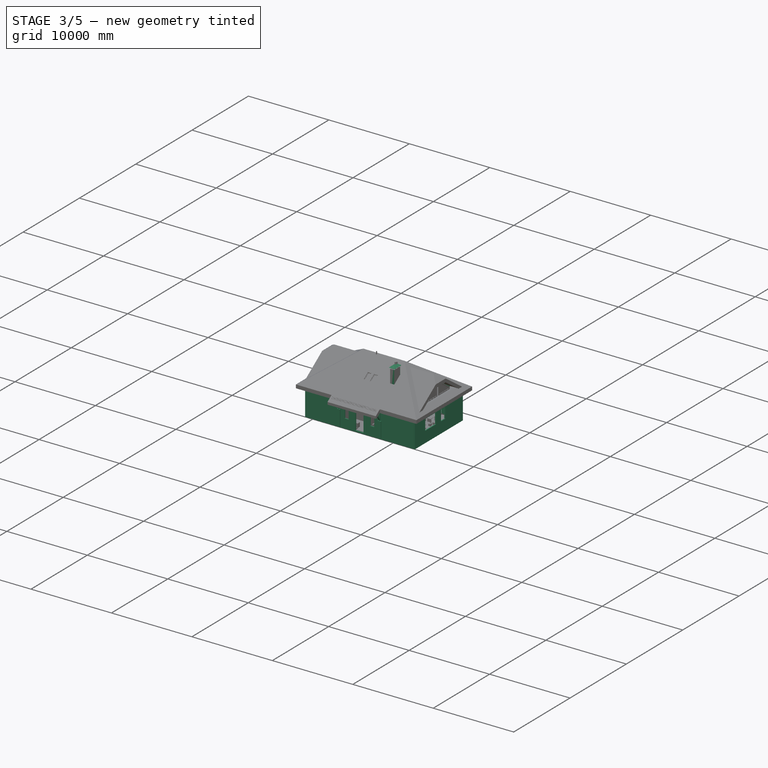
[diagram: stage 3 of 5 — iso view after this stage's code; geometry added in this stage tinted green]
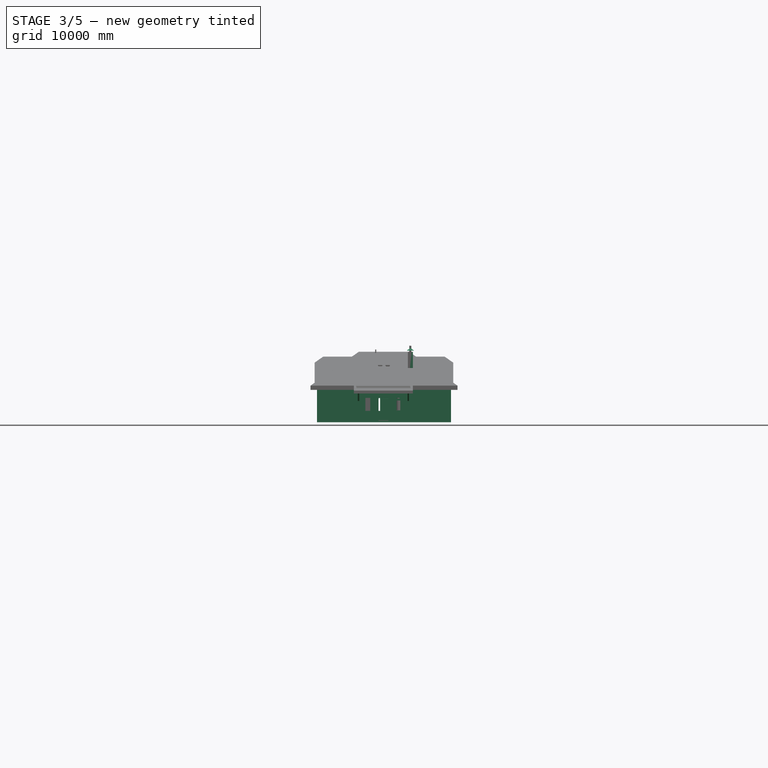
[diagram: stage 3 of 5 — front view after this stage's code; geometry added in this stage tinted green]
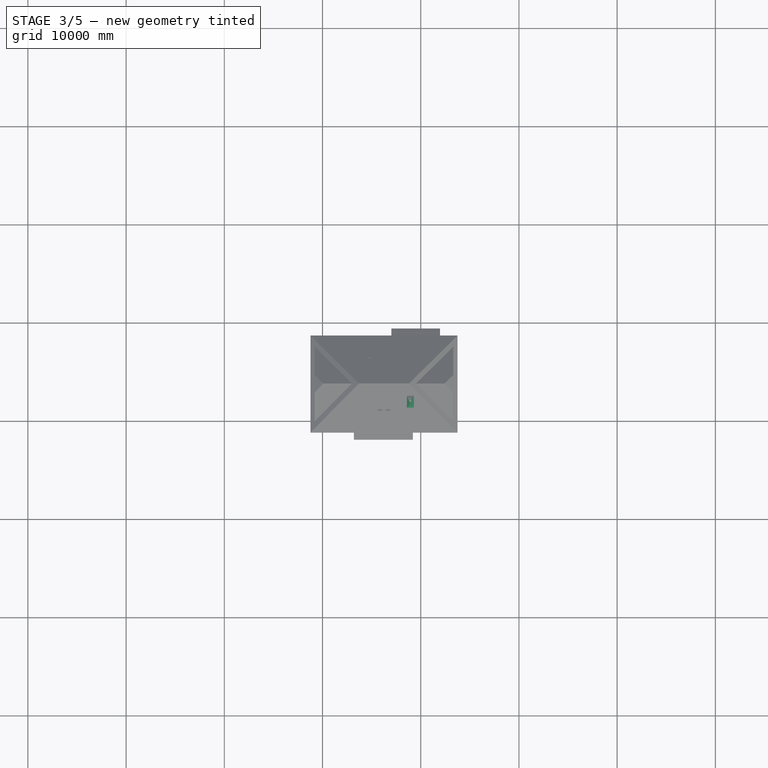
[diagram: stage 3 of 5 — top view after this stage's code; geometry added in this stage tinted green]
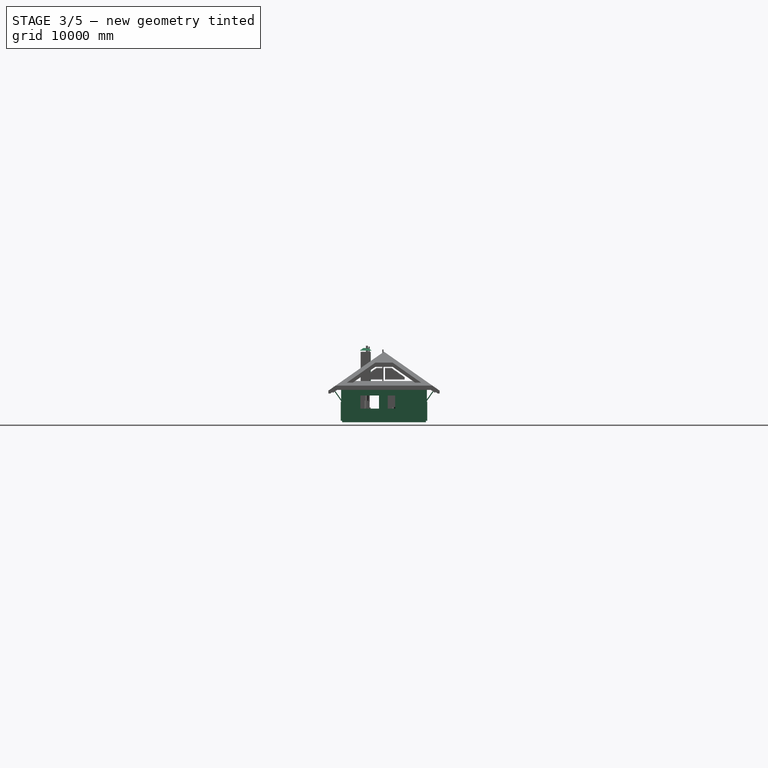
[diagram: stage 3 of 5 — right view after this stage's code; geometry added in this stage tinted green]
FEATURE [Part::FeaturePython] Wall249  label="XPS 80mm в уровне армпояса"  # Arch/BIM 166 (typed FeaturePython)
  Align = 0
  Area = 5639200
  Base = -> Rectangle016
  BlockHeight = 231
  BlockLength = 1200
  CountBroken = 33
  CountEntire = 0
  Face = 0
  GlobalId = 0S$ta$Atf7kQfUAIRZ7neI
  Height = 140
  HorizontalArea = 0
  IfcData = IfcUID=0S$ta$Atf7kQfUAIRZ7neI; attributes={"GlobalId": {"value": "0S$ta$Atf7kQfUAIRZ7neI"}}
  IfcType = 166
  Joint = 0
  Length = 40280
  MakeBlocks = true
  Material = -> Material002
  MoveBase = false
  MoveWithHost = false
  Normal = (0,0,1)
  Offset = 300
  OffsetFirst = 0
  OffsetSecond = 0
  PerimeterLength = 0
  Placement = pos=(0,0,3493) rot=(0,0,1;0rad)
  PredefinedType = 0
  VerticalArea = 0
  Width = 80
FEATURE [Part::FeaturePython] Wall259  label="Утепление торца плит XPS 80mm 002"  # Arch/BIM 166 (typed FeaturePython)
  Align = 0
  Area = 2915220
  Base = -> Line1430
  BlockHeight = 231
  BlockLength = 1200
  CountBroken = 1
  CountEntire = 10
  Face = 0
  GlobalId = 1ibByTMrr7TuIBXHnohxoK
  Height = 231
  HorizontalArea = 0
  IfcData = IfcUID=1ibByTMrr7TuIBXHnohxoK,+2 more (map truncated)
  IfcType = 166
  Joint = 0
  Length = 12620
  MakeBlocks = true
  Material = -> Material002
  MoveBase = false
  MoveWithHost = false
  Normal = (0,0,0)
  OffsetFirst = 0
  OffsetSecond = 0
  PerimeterLength = 0
  Placement = pos=(5.68e-14,0,2800) rot=(0,0,1;0rad)
  PredefinedType = 0
  VerticalArea = 0
  Width = 80
FEATURE [Part::FeaturePython] Wall260  label="Утепление торца плит XPS 80mm 001"  # Arch/BIM 166 (typed FeaturePython)
  Align = 0
  Area = 2915220
  Base = -> Line1431
  BlockHeight = 231
  BlockLength = 1200
  CountBroken = 1
  CountEntire = 10
  Face = 0
  GlobalId = 1LI82ViEn62R_6CNpLHhhT
  Height = 231
  HorizontalArea = 0
  IfcData = IfcUID=1LI82ViEn62R_6CNpLHhhT,+2 more (map truncated)
  IfcType = 166
  Joint = 0
  Length = 12620
  MakeBlocks = true
  Material = -> Material002
  MoveBase = false
  MoveWithHost = false
  Normal = (0,0,0)
  OffsetFirst = 0
  OffsetSecond = 0
  PerimeterLength = 0
  Placement = pos=(5.68e-14,0,2800) rot=(0,0,1;0rad)
  PredefinedType = 0
  VerticalArea = 0
  Width = 80
FEATURE [App::GeometryPython] BuildingPart038  label="Перемычки облицовки 1nf"  # Arch/BIM 52 (typed FeaturePython)
  Area = 4.08584e+06
  GlobalId = 0KtQz4WtXFJO7H9uDU_qkV
  Group = -> [Wall120,Wall121,Wall123,Wall124,Wall159]
  Height = 0
  HeightPropagate = true
  IfcData = IfcUID=0KtQz4WtXFJO7H9uDU_qkV,attributes={"GlobalId": {"value": "0KtQz4WtXFJO7H9uDU_qkV"}},+1 more (map truncated)
  IfcType = 52
  LevelOffset = 0
FEATURE [Part::FeaturePython] Wall215  label="Ряд 1нф по плитам ПНО 001"  # Arch/BIM 166 (typed FeaturePython)
  Align = 0
  Area = 820300
  Base = -> Line1430
  BlockHeight = 65
  BlockLength = 260
  CountBroken = 2
  CountEntire = 48
  Face = 0
  GlobalId = 0Kxc8b9mX0hhA4A11jgaug
  Height = 65
  HorizontalArea = 0
  IfcData = IfcUID=0Kxc8b9mX0hhA4A11jgaug,+2 more (map truncated)
  IfcType = 166
  Joint = 0
  Length = 12620
  MakeBlocks = true
  Material = -> Material003
  MoveBase = false
  MoveWithHost = false
  Normal = (0,0,0)
  Offset = 210
  OffsetFirst = 120
  OffsetSecond = 0
  PerimeterLength = 0
  Placement = pos=(0,0,2963) rot=(0,0,1;0rad)
  PredefinedType = 0
  VerticalArea = 0
  Width = 170
FEATURE [Part::FeaturePython] Wall245  label="Стена 3 ряда 1NF в уровне перекрытия 001"  # Arch/BIM 166 (typed FeaturePython)
  Align = 0
  Area = 2915220
  Base = -> Line1430
  BlockHeight = 65
  BlockLength = 250
  CountBroken = 6
  CountEntire = 141
  Face = 0
  GlobalId = 3KlxKDIJjA7Q82FRbrh_9n
  Height = 231
  HorizontalArea = 0
  IfcData = IfcUID=3KlxKDIJjA7Q82FRbrh_9n,+2 more (map truncated)
  IfcType = 166
  Joint = 12
  Length = 12620
  MakeBlocks = true
  Material = -> Material003
  MoveBase = false
  MoveWithHost = false
  Normal = (0,0,0)
  Offset = 85
  OffsetFirst = 65
  OffsetSecond = 200
  PerimeterLength = 0
  Placement = pos=(5.68e-14,0,2805) rot=(0,0,1;0rad)
  PredefinedType = 0
  VerticalArea = 0
  Width = 120
FEATURE [Part::FeaturePython] Wall246  label="Стена 3 ряда 1NF в уровне перекрытия 002"  # Arch/BIM 166 (typed FeaturePython)
  Align = 0
  Area = 2915220
  Base = -> Line1431
  BlockHeight = 65
  BlockLength = 250
  CountBroken = 6
  CountEntire = 141
  Face = 0
  GlobalId = 2jFZMiwejFCvBCF1MAHti2
  Height = 231
  HorizontalArea = 0
  IfcData = IfcUID=2jFZMiwejFCvBCF1MAHti2,+2 more (map truncated)
  IfcType = 166
  Joint = 12
  Length = 12620
  MakeBlocks = true
  Material = -> Material003
  MoveBase = false
  MoveWithHost = false
  Normal = (0,0,0)
  Offset = 85
  OffsetFirst = 65
  OffsetSecond = 200
  PerimeterLength = 0
  Placement = pos=(5.68e-14,0,2805) rot=(0,0,1;0rad)
  PredefinedType = 0
  VerticalArea = 0
  Width = 120
FEATURE [Part::FeaturePython] Wall247  label="Ряд 1нф по плитам ПНО 002"  # Arch/BIM 166 (typed FeaturePython)
  Align = 0
  Area = 820300
  Base = -> Line1431
  BlockHeight = 65
  BlockLength = 260
  CountBroken = 2
  CountEntire = 48
  Face = 0
  GlobalId = 33o6NID0r8NOJAPg0rbzr4
  Height = 65
  HorizontalArea = 0
  IfcData = IfcUID=33o6NID0r8NOJAPg0rbzr4,+2 more (map truncated)
  IfcType = 166
  Joint = 0
  Length = 12620
  MakeBlocks = true
  Material = -> Material003
  MoveBase = false
  MoveWithHost = false
  Normal = (0,0,0)
  Offset = 210
  OffsetFirst = 120
  OffsetSecond = 0
  PerimeterLength = 0
  Placement = pos=(0,0,2963) rot=(0,0,1;0rad)
  PredefinedType = 0
  VerticalArea = 0
  Width = 170
FEATURE [Part::FeaturePython] Wall248  label="ряд  2.1нф в уровне армпояса"  # Arch/BIM 166 (typed FeaturePython)
  Align = 0
  Area = 5639200
  Base = -> Rectangle016
  BlockHeight = 140
  BlockLength = 260
  CountBroken = 4
  CountEntire = 149
  Face = 0
  GlobalId = 3OBRES97PB8f6_bWU2_YT7
  Height = 140
  HorizontalArea = 4891200
  IfcData = IfcUID=3OBRES97PB8f6_bWU2_YT7; attributes={"GlobalId": {"value": "3OBRES97PB8f6_bWU2_YT7"}}
  IfcType = 166
  Joint = 0
  Length = 40280
  MakeBlocks = false
  Material = -> Material003
  MoveBase = false
  MoveWithHost = false
  Normal = (0,0,1)
  OffsetFirst = 0
  OffsetSecond = 0
  PerimeterLength = 41240
  Placement = pos=(0,0,3493) rot=(0,0,1;0rad)
  PredefinedType = 0
  VerticalArea = 11412800
  Width = 120
FEATURE [Part::FeaturePython] Wall255  label="облицовка ВШ  001"  # Arch/BIM 166 (typed FeaturePython)
  Align = 0
  Area = 1520000
  Base = -> Line1468
  BlockHeight = 65
  BlockLength = 250
  CountBroken = 55
  CountEntire = 53
  Face = 0
  GlobalId = 0NV5Z8QsLE8RP4h00TMdTp
  Height = 4000
  HorizontalArea = 45600
  IfcData = IfcUID=0NV5Z8QsLE8RP4h00TMdTp; attributes={"GlobalId": {"value": "0NV5Z8QsLE8RP4h00TMdTp"}}
  IfcType = 166
  Joint = 10
  Length = 380
  MakeBlocks = false
  Material = -> Material003
  MoveBase = false
  MoveWithHost = false
  Normal = (0,0,0)
  OffsetFirst = 120
  OffsetSecond = 250
  PerimeterLength = 1000
  Placement = pos=(0,0,2960) rot=(0,0,1;0rad)
  PredefinedType = 0
  VerticalArea = 4000000
  Width = 120
FEATURE [Part::FeaturePython] Wall256  label="облицовка ВШ  002"  # Arch/BIM 166 (typed FeaturePython)
  Align = 0
  Area = 1520000
  Base = -> Line1469
  BlockHeight = 65
  BlockLength = 250
  CountBroken = 55
  CountEntire = 53
  Face = 0
  GlobalId = 2TkovYGMD8r9zraP45mHkR
  Height = 4000
  HorizontalArea = 45600
  IfcData = IfcUID=2TkovYGMD8r9zraP45mHkR; attributes={"GlobalId": {"value": "2TkovYGMD8r9zraP45mHkR"}}
  IfcType = 166
  Joint = 10
  Length = 380
  MakeBlocks = false
  Material = -> Material003
  MoveBase = false
  MoveWithHost = false
  Normal = (0,0,0)
  OffsetFirst = 120
  OffsetSecond = 250
  PerimeterLength = 1000
  Placement = pos=(0,0,2960) rot=(0,0,1;0rad)
  PredefinedType = 0
  VerticalArea = 4000000
  Width = 120
FEATURE [Part::FeaturePython] Wall257  label="облицовка ВШ  003"  # Arch/BIM 166 (typed FeaturePython)
  Align = 0
  Area = 3600000
  Base = -> Line1470
  BlockHeight = 65
  BlockLength = 250
  CountBroken = 57
  CountEntire = 159
  Face = 0
  GlobalId = 0woF2TLZD1r929WxYa3eSK
  Height = 4000
  HorizontalArea = 108000
  IfcData = IfcUID=0woF2TLZD1r929WxYa3eSK; attributes={"GlobalId": {"value": "0woF2TLZD1r929WxYa3eSK"}}
  IfcType = 166
  Joint = 10
  Length = 900
  MakeBlocks = false
  Material = -> Material003
  MoveBase = false
  MoveWithHost = false
  Normal = (0,0,0)
  OffsetFirst = 250
  OffsetSecond = 120
  PerimeterLength = 2040
  Placement = pos=(0,0,2960) rot=(0,0,1;0rad)
  PredefinedType = 0
  VerticalArea = 8.16e+06
  Width = 120
FEATURE [Part::FeaturePython] Wall258  label="облицовка ВШ  004"  # Arch/BIM 166 (typed FeaturePython)
  Align = 0
  Area = 3600000
  Base = -> Line1471
  BlockHeight = 65
  BlockLength = 250
  CountBroken = 57
  CountEntire = 159
  Face = 0
  GlobalId = 0uV1Y0I5TBPurrni9deYxv
  Height = 4000
  HorizontalArea = 108000
  IfcData = IfcUID=0uV1Y0I5TBPurrni9deYxv; attributes={"GlobalId": {"value": "0uV1Y0I5TBPurrni9deYxv"}}
  IfcType = 166
  Joint = 10
  Length = 900
  MakeBlocks = false
  Material = -> Material003
  MoveBase = false
  MoveWithHost = false
  Normal = (0,0,0)
  OffsetFirst = 250
  OffsetSecond = 120
  PerimeterLength = 2040
  Placement = pos=(0,0,2960) rot=(0,0,1;0rad)
  PredefinedType = 0
  VerticalArea = 8.16e+06
  Width = 120
FEATURE [App::MaterialObjectPython] Material004  label="Ceramic block"  # material (typed FeaturePython)
  Description = A standard Ceramic block LSR TK380
  Material = AuthorAndLicense=Concrete-Generic,CardName=Concrete-Generic,Color=(0.8627450980392157, 0.5803921568627451, 0.13725490196078433, 1.0),+11 more (map truncated)
  Transparency = 0
FEATURE [Part::FeaturePython] Wall164  label="Стена ЛСР 380мм под мауэрлат"  # Arch/BIM 166 (typed FeaturePython)
  Align = 0
  Area = 18609360
  Base = -> Rectangle016
  BlockHeight = 231
  BlockLength = 0
  CountBroken = 0
  CountEntire = 0
  Face = 0
  GlobalId = 3z2ptnFFLDUOlhnj0g0DYP
  Height = 462
  HorizontalArea = 31768000
  IfcData = IfcUID=3z2ptnFFLDUOlhnj0g0DYP; attributes={"GlobalId": {"value": "3z2ptnFFLDUOlhnj0g0DYP"}}
  IfcType = 166
  Joint = 0
  Length = 40280
  MakeBlocks = true
  Material = -> Material004
  MoveBase = false
  MoveWithHost = false
  Normal = (0,0,1)
  OffsetFirst = 0
  OffsetSecond = 0
  PerimeterLength = 0
  Placement = pos=(0,0,3031) rot=(0,0,1;0rad)
  PredefinedType = 0
  VerticalArea = 38623200
  Width = 380
FEATURE [Part::FeaturePython] Wall242  label="Стена ЛСР 380мм ряд перекрытия 001"  # Arch/BIM 166 (typed FeaturePython)
  Align = 0
  Area = 1912680
  Base = -> Line1426
  BlockHeight = 231
  BlockLength = 255
  CountBroken = 1
  CountEntire = 32
  Face = 0
  GlobalId = 0JF6Mj3WnAXwUaXoCorPV_
  Height = 231
  HorizontalArea = 3146400
  IfcData = IfcUID=0JF6Mj3WnAXwUaXoCorPV_,+2 more (map truncated)
  IfcType = 166
  Joint = 0
  Length = 8280
  MakeBlocks = false
  Material = -> Material004
  MoveBase = false
  MoveWithHost = false
  Normal = (0,0,0)
  OffsetFirst = 0
  OffsetSecond = 0
  PerimeterLength = 17320
  Placement = pos=(5.68e-14,0,2800) rot=(0,0,1;0rad)
  PredefinedType = 0
  VerticalArea = 4000920
  Width = 380
FEATURE [Part::FeaturePython] Wall243  label="Стена ЛСР 380мм ряд перекрытия 002"  # Arch/BIM 166 (typed FeaturePython)
  Align = 1
  Area = 1912680
  Base = -> Line1427
  BlockHeight = 231
  BlockLength = 255
  CountBroken = 1
  CountEntire = 32
  Face = 0
  GlobalId = 25wehzmoL6BRnSZJd_gcHH
  Height = 231
  HorizontalArea = 3146400
  IfcData = IfcUID=25wehzmoL6BRnSZJd_gcHH,+2 more (map truncated)
  IfcType = 166
  Joint = 0
  Length = 8280
  MakeBlocks = false
  Material = -> Material004
  MoveBase = false
  MoveWithHost = false
  Normal = (0,0,0)
  OffsetFirst = 120
  OffsetSecond = 0
  PerimeterLength = 17320
  Placement = pos=(5.68e-14,0,2800) rot=(0,0,1;0rad)
  PredefinedType = 0
  VerticalArea = 4000920
  Width = 380
FEATURE [Part::FeaturePython] Roof017  label="Крышка вентшахты"  # Arch/BIM 113 (typed FeaturePython)
  Angles = [35,35,35,35]
  Base = -> Wire825
  BorderLength = 3840
  Face = 0
  Flip = false
  GlobalId = 36hdyCWSLF5w0SQ7_aWhlx
  Heights = [196.058,210.062,196.058,210.062]
  HorizontalArea = 864000
  IdRel = [-1,-1,-1,-1]
  IfcData = IfcUID=36hdyCWSLF5w0SQ7_aWhlx,+2 more (map truncated)
  IfcType = 113
  Material = -> Material007
  MoveBase = false
  MoveWithHost = false
  Overhang = [80,80,80,80]
  PerimeterLength = 0
  Placement = pos=(0,0,7150) rot=(0,0,1;0rad)
  PredefinedType = 0
  RidgeLength = 2752.41
  Runs = [300,300,300,300]
  Thickness = [10,10,10,10]
  VerticalArea = 46877.7
FEATURE [Part::Part2DObjectPython] Wire841  # Draft 2D object (typed FeaturePython)
  Area = 0
  ChamferSize = 0
  Closed = false
  End = (-810,-75.926,0)
  FilletRadius = 0
  Length = 10764.8
  MakeFace = false
  Placement = pos=(-810,7535.93,0) rot=(0,0,1;0rad)
  Points = (3) [(0,0,0),(3805.93,-3805.93,0),(-4.54747e-13,-7611.85,0)]
  Start = (-810,7535.93,0)
  Subdivisions = 0
FEATURE [Part::Part2DObjectPython] Wire842  # Draft 2D object (typed FeaturePython)
  Area = 0
  ChamferSize = 0
  Closed = false
  End = (13310,-55.926,0)
  FilletRadius = 0
  Length = 10708.2
  MakeFace = false
  Placement = pos=(13310,7515.93,0) rot=(0,0,1;0rad)
  Points = (3) [(0,0,0),(-3785.93,-3785.93,0),(0,-7571.85,0)]
  Start = (13310,7515.93,0)
  Subdivisions = 0
FEATURE [Part::Part2DObjectPython] Line1523  label="Перемычки_034"  # Draft 2D object (typed FeaturePython)
  Area = 0
  ChamferSize = 0
  Closed = true
  End = (4280,7490,0)
  FilletRadius = 0
  Length = 2550
  MakeFace = true
  Placement = pos=(1647,7490,0) rot=(0,0,1;0rad)
  Points = (2) [(83,0,0),(2633,0,0)]
  Start = (1730,7490,0)
  Subdivisions = 0
FEATURE [Part::Part2DObjectPython] Line1524  label="Перемычки_035"  # Draft 2D object (typed FeaturePython)
  Area = 0
  ChamferSize = 0
  Closed = true
  End = (6200,7490,0)
  FilletRadius = 0
  Length = 1410
  MakeFace = true
  Placement = pos=(4139,7490,0) rot=(0,0,1;0rad)
  Points = (2) [(651,0,0),(2061,0,0)]
  Start = (4790,7490,0)
  Subdivisions = 0
FEATURE [Part::Part2DObjectPython] Line1526  label="Перемычки_037"  # Draft 2D object (typed FeaturePython)
  Area = 0
  ChamferSize = 0
  Closed = true
  End = (6965,-30,0)
  FilletRadius = 0
  Length = 1530
  MakeFace = true
  Placement = pos=(4850,-30,0) rot=(0,0,1;0rad)
  Points = (2) [(585,0,0),(2115,0,0)]
  Start = (5435,-30,0)
  Subdivisions = 0
FEATURE [Part::Part2DObjectPython] Line1527  label="Перемычки_038"  # Draft 2D object (typed FeaturePython)
  Area = 0
  ChamferSize = 0
  Closed = true
  End = (8360,-30,0)
  FilletRadius = 0
  Length = 1140
  MakeFace = true
  Placement = pos=(6440,-30,0) rot=(0,0,1;0rad)
  Points = (2) [(780,1.13687e-12,0),(1920,1.13687e-12,0)]
  Start = (7220,-30,0)
  Subdivisions = 0
FEATURE [Part::Part2DObjectPython] Line1529  label="Перемычки_039"  # Draft 2D object (typed FeaturePython)
  Area = 0
  ChamferSize = 0
  Closed = true
  End = (12570,985,0)
  FilletRadius = 0
  Length = 2550
  MakeFace = true
  Placement = pos=(9260,840,0) rot=(0,0,1;0rad)
  Points = (2) [(3310,2695,0),(3310,145,0)]
  Start = (12570,3535,0)
  Subdivisions = 0
FEATURE [Part::Part2DObjectPython] Line1530  label="Перемычки_040"  # Draft 2D object (typed FeaturePython)
  Area = 0
  ChamferSize = 0
  Closed = true
  End = (-50,1630,0)
  FilletRadius = 0
  Length = 2040
  MakeFace = true
  Placement = pos=(-3360,1220,0) rot=(0,0,1;0rad)
  Points = (2) [(3310,2450,0),(3310,410,0)]
  Start = (-50,3670,0)
  Subdivisions = 0
FEATURE [Part::Part2DObjectPython] Line1531  label="Перемычки_041"  # Draft 2D object (typed FeaturePython)
  Area = 0
  ChamferSize = 0
  Closed = true
  End = (12570,3790,0)
  FilletRadius = 0
  Length = 1410
  MakeFace = true
  Placement = pos=(9260,3059,0) rot=(0,0,1;0rad)
  Points = (2) [(3310,2141,0),(3310,731,0)]
  Start = (12570,5200,0)
  Subdivisions = 0
FEATURE [Part::Part2DObjectPython] Line1532  label="Перемычки_042"  # Draft 2D object (typed FeaturePython)
  Area = 0
  ChamferSize = 0
  Closed = true
  End = (4950,3665,0)
  FilletRadius = 0
  Length = 1400
  MakeFace = true
  Placement = pos=(2899,3665,0) rot=(0,0,1;0rad)
  Points = (2) [(651,0,0),(2051,0,0)]
  Start = (3550,3665,0)
  Subdivisions = 0
FEATURE [Part::Part2DObjectPython] Line1533  label="Перемычки_043"  # Draft 2D object (typed FeaturePython)
  Area = 0
  ChamferSize = 0
  Closed = true
  End = (6900,3665,0)
  FilletRadius = 0
  Length = 1400
  MakeFace = true
  Placement = pos=(4849,3665,0) rot=(0,0,1;0rad)
  Points = (2) [(651,0,0),(2051,0,0)]
  Start = (5500,3665,0)
  Subdivisions = 0
FEATURE [Part::Part2DObjectPython] Line1537  label="Перемычки_045"  # Draft 2D object (typed FeaturePython)
  Area = 0
  ChamferSize = 0
  Closed = true
  End = (5180,-30,0)
  FilletRadius = 0
  Length = 1140
  MakeFace = true
  Placement = pos=(3260,-30,0) rot=(0,0,1;0rad)
  Points = (2) [(780,1.13687e-12,0),(1920,1.13687e-12,0)]
  Start = (4040,-30,0)
  Subdivisions = 0
FEATURE [Part::Part2DObjectPython] Line1538  label="Перемычки_046"  # Draft 2D object (typed FeaturePython)
  Area = 0
  ChamferSize = 0
  Closed = true
  End = (10798,7490,0)
  FilletRadius = 0
  Length = 2550
  MakeFace = true
  Placement = pos=(8165,7490,0) rot=(0,0,1;0rad)
  Points = (2) [(83,0,0),(2633,0,0)]
  Start = (8248,7490,0)
  Subdivisions = 0
FEATURE [Part::Part2DObjectPython] Line1540  label="Перемычки_048"  # Draft 2D object (typed FeaturePython)
  Area = 0
  ChamferSize = 0
  Closed = true
  End = (12170,3665,0)
  FilletRadius = 0
  Length = 4000
  MakeFace = true
  Placement = pos=(8087,3665,0) rot=(0,0,1;0rad)
  Points = (2) [(83,0,0),(4083,0,0)]
  Start = (8170,3665,0)
  Subdivisions = 0
FEATURE [Part::FeaturePython] Wall270  label="Перемычка монолитн. 001"  # Arch/BIM 166 (typed FeaturePython)
  Align = 1
  Area = 581400
  Base = -> Line1523
  BlockHeight = 0
  BlockLength = 0
  CountBroken = 0
  CountEntire = 0
  Face = 0
  GlobalId = 2_OOPfC1L9nOo2BwNBJ59E
  Height = 228
  HorizontalArea = 714000
  IfcData = IfcUID=2_OOPfC1L9nOo2BwNBJ59E,+2 more (map truncated)
  IfcType = 166
  Joint = 0
  Length = 2550
  MakeBlocks = false
  Material = -> Material001
  MoveBase = false
  MoveWithHost = false
  Normal = (0,0,0)
  OffsetFirst = 0
  OffsetSecond = 0
  PerimeterLength = 5660
  Placement = pos=(0,0,2572) rot=(0,0,1;0rad)
  PredefinedType = 0
  VerticalArea = 1290480
  Width = 280
FEATURE [Part::FeaturePython] Wall271  label="Перемычка монолитн. 002"  # Arch/BIM 166 (typed FeaturePython)
  Align = 1
  Area = 321480
  Base = -> Line1524
  BlockHeight = 0
  BlockLength = 0
  CountBroken = 0
  CountEntire = 0
  Face = 0
  GlobalId = 02zZ5o_1DBJf0p5Hr4GWva
  Height = 228
  HorizontalArea = 394800
  IfcData = IfcUID=02zZ5o_1DBJf0p5Hr4GWva,+2 more (map truncated)
  IfcType = 166
  Joint = 0
  Length = 1410
  MakeBlocks = false
  Material = -> Material001
  MoveBase = false
  MoveWithHost = false
  Normal = (0,0,0)
  OffsetFirst = 0
  OffsetSecond = 0
  PerimeterLength = 3380
  Placement = pos=(0,0,2572) rot=(0,0,1;0rad)
  PredefinedType = 0
  VerticalArea = 770640
  Width = 280
FEATURE [Part::FeaturePython] Wall272  label="Перемычка монолитн. 003"  # Arch/BIM 166 (typed FeaturePython)
  Align = 0
  Area = 353430
  Base = -> Line1526
  BlockHeight = 0
  BlockLength = 0
  CountBroken = 0
  CountEntire = 0
  Face = 0
  GlobalId = 2Km2nGMYj6_hkYj1EJr8Pd
  Height = 231
  HorizontalArea = 428400
  IfcData = IfcUID=2Km2nGMYj6_hkYj1EJr8Pd,+2 more (map truncated)
  IfcType = 166
  Joint = 0
  Length = 1530
  MakeBlocks = false
  Material = -> Material001
  MoveBase = false
  MoveWithHost = false
  Normal = (0,0,0)
  OffsetFirst = 0
  OffsetSecond = 0
  PerimeterLength = 3620
  Placement = pos=(0,0,2341) rot=(0,0,1;0rad)
  PredefinedType = 0
  VerticalArea = 836220
  Width = 280
FEATURE [Part::FeaturePython] Wall273  label="Перемычка монолитн. 004"  # Arch/BIM 166 (typed FeaturePython)
  Align = 0
  Area = 263340
  Base = -> Line1527
  BlockHeight = 0
  BlockLength = 0
  CountBroken = 0
  CountEntire = 0
  Face = 0
  GlobalId = 16$DxRw$TB6BfQSNqz60Qz
  Height = 231
  HorizontalArea = 319200
  IfcData = IfcUID=16$DxRw$TB6BfQSNqz60Qz,+2 more (map truncated)
  IfcType = 166
  Joint = 0
  Length = 1140
  MakeBlocks = false
  Material = -> Material001
  MoveBase = false
  MoveWithHost = false
  Normal = (0,0,0)
  OffsetFirst = 0
  OffsetSecond = 0
  PerimeterLength = 2840
  Placement = pos=(0,0,2341) rot=(0,0,1;0rad)
  PredefinedType = 0
  VerticalArea = 656040
  Width = 280
FEATURE [Part::FeaturePython] Wall274  label="Перемычка монолитн. 005"  # Arch/BIM 166 (typed FeaturePython)
  Align = 1
  Area = 581400
  Base = -> Line1529
  BlockHeight = 0
  BlockLength = 0
  CountBroken = 0
  CountEntire = 0
  Face = 0
  GlobalId = 0AqGC86W9B8PvMAPbhOTte
  Height = 228
  HorizontalArea = 714000
  IfcData = IfcUID=0AqGC86W9B8PvMAPbhOTte,+2 more (map truncated)
  IfcType = 166
  Joint = 0
  Length = 2550
  MakeBlocks = false
  Material = -> Material001
  MoveBase = false
  MoveWithHost = false
  Normal = (0,0,0)
  OffsetFirst = 0
  OffsetSecond = 0
  PerimeterLength = 5660
  Placement = pos=(0,0,2572) rot=(0,0,1;0rad)
  PredefinedType = 0
  VerticalArea = 1290480
  Width = 280
FEATURE [Part::FeaturePython] Wall275  label="Перемычка монолитн. 006"  # Arch/BIM 166 (typed FeaturePython)
  Align = 0
  Area = 465120
  Base = -> Line1530
  BlockHeight = 0
  BlockLength = 0
  CountBroken = 0
  CountEntire = 0
  Face = 0
  GlobalId = 23sFNS3FX7B9N2mOSbHlu1
  Height = 228
  HorizontalArea = 571200
  IfcData = IfcUID=23sFNS3FX7B9N2mOSbHlu1,+2 more (map truncated)
  IfcType = 166
  Joint = 0
  Length = 2040
  MakeBlocks = false
  Material = -> Material001
  MoveBase = false
  MoveWithHost = false
  Normal = (0,0,0)
  OffsetFirst = 0
  OffsetSecond = 0
  PerimeterLength = 4640
  Placement = pos=(0,0,2572) rot=(0,0,1;0rad)
  PredefinedType = 0
  VerticalArea = 1057920
  Width = 280
FEATURE [Part::FeaturePython] Wall276  label="Перемычка монолитн. 007"  # Arch/BIM 166 (typed FeaturePython)
  Align = 1
  Area = 321480
  Base = -> Line1531
  BlockHeight = 0
  BlockLength = 0
  CountBroken = 0
  CountEntire = 0
  Face = 0
  GlobalId = 2TdxzIhfb2oA4zfHjvmbo2
  Height = 228
  HorizontalArea = 394800
  IfcData = IfcUID=2TdxzIhfb2oA4zfHjvmbo2,+2 more (map truncated)
  IfcType = 166
  Joint = 0
  Length = 1410
  MakeBlocks = false
  Material = -> Material001
  MoveBase = false
  MoveWithHost = false
  Normal = (0,0,0)
  OffsetFirst = 0
  OffsetSecond = 0
  PerimeterLength = 3380
  Placement = pos=(0,0,2572) rot=(0,0,1;0rad)
  PredefinedType = 0
  VerticalArea = 770640
  Width = 280
FEATURE [Part::FeaturePython] Wall279  label="Перемычка монолитн. 010"  # Arch/BIM 166 (typed FeaturePython)
  Align = 0
  Area = 263340
  Base = -> Line1537
  BlockHeight = 0
  BlockLength = 0
  CountBroken = 0
  CountEntire = 0
  Face = 0
  GlobalId = 2dIW8Z8qb1VQVoHMf0gHj5
  Height = 231
  HorizontalArea = 319200
  IfcData = IfcUID=2dIW8Z8qb1VQVoHMf0gHj5,+2 more (map truncated)
  IfcType = 166
  Joint = 0
  Length = 1140
  MakeBlocks = false
  Material = -> Material001
  MoveBase = false
  MoveWithHost = false
  Normal = (0,0,0)
  OffsetFirst = 0
  OffsetSecond = 0
  PerimeterLength = 2840
  Placement = pos=(0,0,2341) rot=(0,0,1;0rad)
  PredefinedType = 0
  VerticalArea = 656040
  Width = 280
FEATURE [Part::FeaturePython] Wall280  label="Перемычка монолитн. 011"  # Arch/BIM 166 (typed FeaturePython)
  Align = 1
  Area = 581400
  Base = -> Line1538
  BlockHeight = 0
  BlockLength = 0
  CountBroken = 0
  CountEntire = 0
  Face = 0
  GlobalId = 3keULZXVT8QA_IAgUQCOo2
  Height = 228
  HorizontalArea = 714000
  IfcData = IfcUID=3keULZXVT8QA_IAgUQCOo2,+2 more (map truncated)
  IfcType = 166
  Joint = 0
  Length = 2550
  MakeBlocks = false
  Material = -> Material001
  MoveBase = false
  MoveWithHost = false
  Normal = (0,0,0)
  OffsetFirst = 0
  OffsetSecond = 0
  PerimeterLength = 5660
  Placement = pos=(0,-9.09e-13,2572) rot=(0,0,1;0rad)
  PredefinedType = 0
  VerticalArea = 1290480
  Width = 280
FEATURE [Part::Part2DObjectPython] Line1552  # Draft 2D object (typed FeaturePython)
  Area = 0
  ChamferSize = 0
  Closed = true
  End = (7390,7020,0)
  FilletRadius = 0
  Length = 1010
  MakeFace = false
  Placement = pos=(8400,7020,0) rot=(1,0,0;3.14159rad)
  Points = (2) [(0,0,0),(-1010,0,0)]
  Start = (8400,7020,0)
  Subdivisions = 0
FEATURE [Part::Part2DObjectPython] Line1553  # Draft 2D object (typed FeaturePython)
  Area = 0
  ChamferSize = 0
  Closed = false
  End = (7390,7020,0)
  FilletRadius = 0
  Length = 3210
  MakeFace = false
  Placement = pos=(7390,3810,0) rot=(0,0,1;0rad)
  Points = (2) [(0,0,0),(0,3210,0)]
  Start = (7390,3810,0)
  Subdivisions = 0
FEATURE [Part::Part2DObjectPython] Arc  # Draft 2D object (typed FeaturePython)
  Area = 0
  FirstAngle = 90
  LastAngle = 180
  MakeFace = false
  Placement = pos=(7840,6570,0) rot=(0,0,1;0rad)
  Radius = 450
FEATURE [Part::Part2DObjectPython] Rectangle3331  # Draft 2D object (typed FeaturePython)
  Area = 0
  ChamferSize = 0
  Columns = 1
  FilletRadius = 0
  Height = 50
  Length = 50
  MakeFace = false
  Placement = pos=(7840,6520,0) rot=(0,0,1;0rad)
  Rows = 1
FEATURE [Part::Part2DObjectPython] Line1554  # Draft 2D object (typed FeaturePython)
  Area = 0
  ChamferSize = 0
  Closed = false
  End = (6940,7470,0)
  FilletRadius = 0
  Length = 1272.79
  MakeFace = false
  Placement = pos=(7840,6570,0) rot=(0,0,1;0rad)
  Points = (2) [(0,0,0),(-900,900,0)]
  Start = (7840,6570,0)
  Subdivisions = 0
FEATURE [Part::Part2DObjectPython] Circle  # Draft 2D object (typed FeaturePython)
  Area = 0
  FirstAngle = 0
  LastAngle = 0
  MakeFace = false
  Placement = pos=(7521.8,6888.2,0) rot=(0,0,1;0rad)
  Radius = 125
FEATURE [Part::Part2DObjectPython] Line1556  # Draft 2D object (typed FeaturePython)
  Area = 0
  ChamferSize = 0
  Closed = false
  End = (7610.19,6976.59,0)
  FilletRadius = 0
  Length = 250
  MakeFace = false
  Placement = pos=(7433.41,6799.81,0) rot=(0,0,1;0rad)
  Points = (2) [(0,0,0),(176.777,176.777,0)]
  Start = (7433.41,6799.81,0)
  Subdivisions = 0
FEATURE [Part::Part2DObjectPython] Arc126  label="Arc127"  # Draft 2D object (typed FeaturePython)
  Area = 0
  FirstAngle = -1.84921
  LastAngle = 26.749
  MakeFace = false
  Placement = pos=(7610.19,6976.59,0) rot=(0,0,1;0rad)
  Radius = 250
FEATURE [Part::Part2DObjectPython] Line1557  # Draft 2D object (typed FeaturePython)
  Area = 0
  ChamferSize = 0
  Closed = false
  End = (7856.39,7020,0)
  FilletRadius = 0
  Length = 250
  MakeFace = false
  Placement = pos=(7610.19,6976.59,0) rot=(0,0,1;0rad)
  Points = (2) [(0,0,0),(246.202,43.4136,0)]
  Start = (7610.19,6976.59,0)
  Subdivisions = 0
FEATURE [Part::Part2DObjectPython] Arc127  label="Arc128"  # Draft 2D object (typed FeaturePython)
  Area = 0
  FirstAngle = -123.355
  LastAngle = -87.0616
  MakeFace = false
  Placement = pos=(7433.41,6799.81,0) rot=(0,0,1;0rad)
  Radius = 250
FEATURE [Part::Part2DObjectPython] Line1558  # Draft 2D object (typed FeaturePython)
  Area = 0
  ChamferSize = 0
  Closed = false
  End = (7433.41,6799.81,0)
  FilletRadius = 0
  Length = 250
  MakeFace = false
  Placement = pos=(7390,6553.61,0) rot=(0,0,1;0rad)
  Points = (2) [(0,0,0),(43.4136,246.202,0)]
  Start = (7390,6553.61,0)
  Subdivisions = 0
FEATURE [Part::Part2DObjectPython] Rectangle3332  # Draft 2D object (typed FeaturePython)
  Area = 0
  ChamferSize = 0
  Columns = 1
  FilletRadius = 0
  Height = 100
  Length = 100
  MakeFace = false
  Placement = pos=(7840,6470,0) rot=(0,0,1;0rad)
  Rows = 1
FEATURE [Part::Part2DObjectPython] Line1564  # Draft 2D object (typed FeaturePython)
  Area = 0
  ChamferSize = 0
  Closed = false
  End = (7714.57,7952.96,0)
  FilletRadius = 0
  Length = 1500
  MakeFace = false
  Placement = pos=(7940,6470,0) rot=(0,0,1;0rad)
  Points = (2) [(0,0,0),(-225.432,1482.96,0)]
  Start = (7940,6470,0)
  Subdivisions = 0
FEATURE [Part::Part2DObjectPython] Line1565  # Draft 2D object (typed FeaturePython)
  Area = 0
  ChamferSize = 0
  Closed = false
  End = (7121.6,7727.07,0)
  FilletRadius = 0
  Length = 1500
  MakeFace = false
  Placement = pos=(7940,6470,0) rot=(0,0,1;0rad)
  Points = (2) [(0,0,0),(-818.404,1257.07,0)]
  Start = (7940,6470,0)
  Subdivisions = 0
FEATURE [Part::Part2DObjectPython] Line1566  # Draft 2D object (typed FeaturePython)
  Area = 0
  ChamferSize = 0
  Closed = false
  End = (6682.93,7288.4,0)
  FilletRadius = 0
  Length = 1500
  MakeFace = false
  Placement = pos=(7940,6470,0) rot=(0,0,1;0rad)
  Points = (2) [(0,0,0),(-1257.07,818.404,0)]
  Start = (7940,6470,0)
  Subdivisions = 0
FEATURE [Part::Part2DObjectPython] Line1567  # Draft 2D object (typed FeaturePython)
  Area = 0
  ChamferSize = 0
  Closed = false
  End = (6457.04,6695.43,0)
  FilletRadius = 0
  Length = 1500
  MakeFace = false
  Placement = pos=(7940,6470,0) rot=(0,0,1;0rad)
  Points = (2) [(0,0,0),(-1482.96,225.432,0)]
  Start = (7940,6470,0)
  Subdivisions = 0
FEATURE [Part::Part2DObjectPython] Rectangle3333  # Draft 2D object (typed FeaturePython)
  Area = 0
  ChamferSize = 0
  Columns = 1
  FilletRadius = 0
  Height = 900
  Length = 250
  MakeFace = false
  Placement = pos=(7856.39,6570,0) rot=(0,0,1;0rad)
  Rows = 1
FEATURE [Part::Part2DObjectPython] Rectangle3334  # Draft 2D object (typed FeaturePython)
  Area = 0
  ChamferSize = 0
  Columns = 1
  FilletRadius = 0
  Height = 250
  Length = 900
  MakeFace = false
  Placement = pos=(6940,6303.61,0) rot=(0,0,1;0rad)
  Rows = 1
FEATURE [Part::Part2DObjectPython] Rectangle3335  # Draft 2D object (typed FeaturePython)
  Area = 0
  ChamferSize = 0
  Columns = 1
  FilletRadius = 0
  Height = 900
  Length = 250
  MakeFace = false
  Placement = pos=(8106.39,6570,0) rot=(0,0,1;0rad)
  Rows = 1
FEATURE [Part::Part2DObjectPython] Rectangle3336  # Draft 2D object (typed FeaturePython)
  Area = 0
  ChamferSize = 0
  Columns = 1
  FilletRadius = 0
  Height = 250
  Length = 900
  MakeFace = false
  Placement = pos=(6940,6053.61,0) rot=(0,0,1;0rad)
  Rows = 1
FEATURE [Part::Part2DObjectPython] Line1568  # Draft 2D object (typed FeaturePython)
  Area = 0
  ChamferSize = 0
  Closed = false
  End = (6940,7470,0)
  FilletRadius = 0
  Length = 1416.39
  MakeFace = false
  Placement = pos=(8356.39,7470,0) rot=(0,0,1;0rad)
  Points = (2) [(0,0,0),(-1416.39,0,0)]
  Start = (8356.39,7470,0)
  Subdivisions = 0
FEATURE [Part::Part2DObjectPython] Line1569  # Draft 2D object (typed FeaturePython)
  Area = 0
  ChamferSize = 0
  Closed = false
  End = (6940,7470,0)
  FilletRadius = 0
  Length = 1416.39
  MakeFace = false
  Placement = pos=(6940,6053.61,0) rot=(0,0,1;0rad)
  Points = (2) [(0,0,0),(0,1416.39,0)]
  Start = (6940,6053.61,0)
  Subdivisions = 0
FEATURE [Part::Part2DObjectPython] Line1570  # Draft 2D object (typed FeaturePython)
  Area = 0
  ChamferSize = 0
  Closed = false
  End = (7874.9,6570,0)
  FilletRadius = 0
  Length = 49.3499
  MakeFace = false
  Placement = pos=(7840,6535.1,0) rot=(0,0,1;0rad)
  Points = (2) [(0,0,0),(34.8957,34.8957,0)]
  Start = (7840,6535.1,0)
  Subdivisions = 0
FEATURE [Part::Part2DObjectPython] Wire856  # Draft 2D object (typed FeaturePython)
  Area = 0
  ChamferSize = 0
  Closed = false
  End = (7840,6303.61,0)
  FilletRadius = 0
  Length = 1410.34
  MakeFace = false
  Placement = pos=(6940,6303.61,0) rot=(0,0,1;0rad)
  Points = (4) [(0,0,0),(0,318.407,0),(900,181.593,0),(900,0,0)]
  Start = (6940,6303.61,0)
  Subdivisions = 0
FEATURE [Part::Part2DObjectPython] Rectangle3337  # Draft 2D object (typed FeaturePython)
  Area = 0
  ChamferSize = 0
  Columns = 1
  FilletRadius = 0
  Height = 20
  Length = 899.99
  MakeFace = false
  Placement = pos=(6940,6283.61,0) rot=(0,0,1;0rad)
  Rows = 1
FEATURE [Part::Part2DObjectPython] Rectangle3338  # Draft 2D object (typed FeaturePython)
  Area = 0
  ChamferSize = 0
  Columns = 1
  FilletRadius = 0
  Height = 900
  Length = 250
  MakeFace = false
  Placement = pos=(8086.39,6570,0) rot=(0,0,1;0rad)
  Rows = 1
FEATURE [Part::Part2DObjectPython] Rectangle3339  # Draft 2D object (typed FeaturePython)
  Area = 0
  ChamferSize = 0
  Columns = 1
  FilletRadius = 0
  Height = 900
  Length = 20
  MakeFace = false
  Placement = pos=(8086.39,6570,0) rot=(0,0,1;0rad)
  Rows = 1
FEATURE [Part::Part2DObjectPython] Line1571  # Draft 2D object (typed FeaturePython)
  Area = 0
  ChamferSize = 0
  Closed = false
  End = (7824.35,7230.77,0)
  FilletRadius = 0
  Length = 20
  MakeFace = false
  Placement = pos=(7804.58,7227.77,0) rot=(0,0,1;0rad)
  Points = (2) [(0,0,0),(19.7728,3.00576,0)]
  Start = (7804.58,7227.77,0)
  Subdivisions = 0
FEATURE [Part::Part2DObjectPython] Line1572  # Draft 2D object (typed FeaturePython)
  Area = 0
  ChamferSize = 0
  Closed = false
  End = (7469.57,7192.58,0)
  FilletRadius = 0
  Length = 20
  MakeFace = false
  Placement = pos=(7452.81,7181.67,0) rot=(0,0,1;0rad)
  Points = (2) [(0,0,0),(16.7609,10.9121,0)]
  Start = (7452.81,7181.67,0)
  Subdivisions = 0
FEATURE [Part::Part2DObjectPython] Line1573  # Draft 2D object (typed FeaturePython)
  Area = 0
  ChamferSize = 0
  Closed = false
  End = (7191.99,6956.99,0)
  FilletRadius = 0
  Length = 20
  MakeFace = false
  Placement = pos=(7181.07,6940.23,0) rot=(0,0,1;0rad)
  Points = (2) [(0,0,0),(10.9121,16.7609,0)]
  Start = (7181.07,6940.23,0)
  Subdivisions = 0
FEATURE [Part::Part2DObjectPython] Line1574  # Draft 2D object (typed FeaturePython)
  Area = 0
  ChamferSize = 0
  Closed = false
  End = (7110.88,6596.04,0)
  FilletRadius = 0
  Length = 20
  MakeFace = false
  Placement = pos=(7107.87,6576.27,0) rot=(0,0,1;0rad)
  Points = (2) [(0,0,0),(3.00576,19.7728,0)]
  Start = (7107.87,6576.27,0)
  Subdivisions = 0
FEATURE [Part::Part2DObjectPython] Line1575  # Draft 2D object (typed FeaturePython)
  Area = 0
  ChamferSize = 0
  Closed = false
  End = (6454.03,6675.66,0)
  FilletRadius = 0
  Length = 1500
  MakeFace = false
  Placement = pos=(7936.99,6450.23,0) rot=(0,0,1;0rad)
  Points = (2) [(0,0,0),(-1482.96,225.432,0)]
  Start = (7936.99,6450.23,0)
  Subdivisions = 0
FEATURE [Part::Part2DObjectPython] Line1576  # Draft 2D object (typed FeaturePython)
  Area = 0
  ChamferSize = 0
  Closed = false
  End = (6672.02,7271.64,0)
  FilletRadius = 0
  Length = 1500
  MakeFace = false
  Placement = pos=(7929.09,6453.24,0) rot=(0,0,1;0rad)
  Points = (2) [(0,0,0),(-1257.07,818.404,0)]
  Start = (7929.09,6453.24,0)
  Subdivisions = 0
FEATURE [Part::Part2DObjectPython] Line1577  # Draft 2D object (typed FeaturePython)
  Area = 0
  ChamferSize = 0
  Closed = false
  End = (7104.83,7716.15,0)
  FilletRadius = 0
  Length = 1500
  MakeFace = false
  Placement = pos=(7923.24,6459.09,0) rot=(0,0,1;0rad)
  Points = (2) [(0,0,0),(-818.404,1257.07,0)]
  Start = (7923.24,6459.09,0)
  Subdivisions = 0
FEATURE [Part::Part2DObjectPython] Line1578  # Draft 2D object (typed FeaturePython)
  Area = 0
  ChamferSize = 0
  Closed = false
  End = (7694.8,7949.96,0)
  FilletRadius = 0
  Length = 1500
  MakeFace = false
  Placement = pos=(7920.23,6466.99,0) rot=(0,0,1;0rad)
  Points = (2) [(0,0,0),(-225.432,1482.96,0)]
  Start = (7920.23,6466.99,0)
  Subdivisions = 0
FEATURE [App::DocumentObjectGroup] Group  label="Лестница построение"
  Group = -> [Line1578,Line1577,Line1576,Line1575,Rectangle3339,Rectangle3335,Rectangle3336,Line1566,Line1569,Line1554,Line1568,Line1565,Line1564,Rectangle3333,Rectangle3334,Rectangle3337,Line1553,Line1552,Circle,Arc127,Line1574,Line1573,Line1572,Line1571,Arc,Arc126,Line1557,Line1556,Line1558,Rectangle3332,Line1567,Rectangle3331,Line1570,Rectangle3338,Wire856]
FEATURE [Part::Part2DObjectPython] Wire857  # Draft 2D object (typed FeaturePython)
  Area = 224792
  ChamferSize = 0
  Closed = true
  End = (7839.99,6283.61,0)
  FilletRadius = 0
  Length = 2309.87
  MakeFace = true
  Placement = pos=(6940,6283.61,0) rot=(0,0,1;0rad)
  Points = (4) [(0,0,0),(0,318.177,0),(900,181.364,0),(899.99,0,0)]
  Start = (6940,6283.61,0)
  Subdivisions = 0
FEATURE [Part::Part2DObjectPython] Wire858  # Draft 2D object (typed FeaturePython)
  Area = 243747
  ChamferSize = 0
  Closed = true
  End = (7840,6464.97,0)
  FilletRadius = 0
  Length = 2525.93
  MakeFace = true
  Placement = pos=(6940,6601.78,0) rot=(0,0,1;0rad)
  Points = (4) [(0,0,0),(0,495.393,0),(900,-90.5456,0),(900,-136.813,0)]
  Start = (6940,6601.78,0)
  Subdivisions = 0
FEATURE [Part::Part2DObjectPython] Wire859  # Draft 2D object (typed FeaturePython)
  Area = 345903
  ChamferSize = 0
  Closed = true
  End = (7840,6535.1,0)
  FilletRadius = 0
  Length = 2915.79
  MakeFace = true
  Placement = pos=(7840,6511.24,0) rot=(0,0,1;0rad)
  Points = (6) [(0,0,0),(-900,585.939,0),(-900,958.761,0),(-574.908,958.761,0),(20.4411,44.3062,0),(0,23.8651,0)]
  Start = (7840,6511.24,0)
  Subdivisions = 0
FEATURE [Part::Part2DObjectPython] Wire860  # Draft 2D object (typed FeaturePython)
  Area = 250464
  ChamferSize = 0
  Closed = true
  End = (7874.9,6570,0)
  FilletRadius = 0
  Length = 2554.3
  MakeFace = true
  Placement = pos=(7860.44,6555.55,0) rot=(0,0,1;0rad)
  Points = (5) [(0,0,0),(-595.35,914.455,0),(-92.6855,914.455,0),(44.1277,14.4546,0),(14.4546,14.4546,0)]
  Start = (7860.44,6555.55,0)
  Subdivisions = 0
FEATURE [Part::Part2DObjectPython] Wire861  # Draft 2D object (typed FeaturePython)
  Area = 225207
  ChamferSize = 0
  Closed = true
  End = (8086.39,6570,0)
  FilletRadius = 0
  Length = 2310.8
  MakeFace = true
  Placement = pos=(7904.57,6570,0) rot=(0,0,1;0rad)
  Points = (4) [(0,0,0),(-136.813,900,0),(181.823,900,0),(181.823,0,0)]
  Start = (7904.57,6570,0)
  Subdivisions = 0
FEATURE [Part::Part2DObjectPython] Wire862  # Draft 2D object (typed FeaturePython)
  Area = 0
  ChamferSize = 0
  Closed = true
  End = (7839.99,6283.61,0)
  FilletRadius = 0
  Length = 2350.33
  MakeFace = false
  Placement = pos=(6940,6283.61,0) rot=(0,0,1;0rad)
  Points = (4) [(0,0,0),(0,338.407,0),(900,201.593,0),(899.99,0,0)]
  Start = (6940,6283.61,0)
  Subdivisions = 0
FEATURE [Part::Part2DObjectPython] Wire863  # Draft 2D object (typed FeaturePython)
  Area = 0
  ChamferSize = 0
  Closed = true
  End = (7840,6464.97,0)
  FilletRadius = 0
  Length = 2573.66
  MakeFace = false
  Placement = pos=(6940,6601.78,0) rot=(0,0,1;0rad)
  Points = (4) [(0,0,0),(0,519.258,0),(900,-66.6805,0),(900,-136.813,0)]
  Start = (6940,6601.78,0)
  Subdivisions = 0
FEATURE [Part::Part2DObjectPython] Wire864  # Draft 2D object (typed FeaturePython)
  Area = 0
  ChamferSize = 0
  Closed = true
  End = (7840,6511.24,0)
  FilletRadius = 0
  Length = 2942.85
  MakeFace = false
  Placement = pos=(6940,7097.18,0) rot=(0,0,1;0rad)
  Points = (6) [(0,0,0),(0,372.822,0),(348.957,372.822,0),(934.896,-527.178,0),(900,-562.074,0),(900,-585.939,0)]
  Start = (6940,7097.18,0)
  Subdivisions = 0
FEATURE [Part::Part2DObjectPython] Wire865  # Draft 2D object (typed FeaturePython)
  Area = 0
  ChamferSize = 0
  Closed = true
  End = (7860.44,6555.55,0)
  FilletRadius = 0
  Length = 2594.76
  MakeFace = false
  Placement = pos=(7265.09,7470,0) rot=(0,0,1;0rad)
  Points = (5) [(0,0,0),(522.894,0,0),(659.707,-900,0),(609.804,-900,0),(595.35,-914.455,0)]
  Start = (7265.09,7470,0)
  Subdivisions = 0
FEATURE [Part::Part2DObjectPython] Wire866  # Draft 2D object (typed FeaturePython)
  Area = 0
  ChamferSize = 0
  Closed = true
  End = (7904.57,6570,0)
  FilletRadius = 0
  Length = 2350.8
  MakeFace = false
  Placement = pos=(7767.76,7470,0) rot=(0,0,1;0rad)
  Points = (4) [(0,0,0),(338.636,0,0),(338.636,-900,0),(136.813,-900,0)]
  Start = (7767.76,7470,0)
  Subdivisions = 0
FEATURE [Part::Part2DObjectPython] Rectangle3340  # Draft 2D object (typed FeaturePython)
  Area = 0
  ChamferSize = 0
  Columns = 1
  FilletRadius = 0
  Height = 900
  Length = 270
  MakeFace = false
  Placement = pos=(8086.39,6570,0) rot=(0,0,1;0rad)
  Rows = 1
FEATURE [App::DocumentObjectGroup] Group125  label="План 1 этаж 94.1 м2"
  Group = -> [Rectangle008,Rectangle2795,Rectangle2807,Rectangle3095,Rectangle2972,Rectangle2798,Rectangle2717,Rectangle2230,Rectangle2169,Rectangle2231,Rectangle005,Wire760,Rectangle011,Rectangle2695,Rectangle009,Rectangle003,Rectangle006,Rectangle2730,Rectangle016,Rectangle3074,Rectangle3086,Rectangle3084,Rectangle3079,Rectangle2857,Rectangle3166,Rectangle3168,Rectangle544,Rectangle547,Rectangle545,+146 more]
FEATURE [Part::Part2DObjectPython] Rectangle3341  # Draft 2D object (typed FeaturePython)
  Area = 0
  ChamferSize = 0
  Columns = 1
  FilletRadius = 0
  Height = 189.696
  Length = 899.99
  MakeFace = false
  Placement = pos=(6939.99,6093.91,0) rot=(0,0,1;0rad)
  Rows = 1
FEATURE [Part::Part2DObjectPython] Wire867  # Draft 2D object (typed FeaturePython)
  Area = 0
  ChamferSize = 0
  Closed = false
  End = (12158.9,3600.73,2719.47)
  FilletRadius = 0
  Length = 1199.31
  MakeFace = true
  Points = (7) [(12172.2,3620.53,2739.27),(12170,3574,2785.8),(12167.8,3574,2434),(12165.6,3756,2434),(12163.3,3756,2766),(12161.1,3554.2,2766),+1 more]
  Start = (12172.2,3620.53,2739.27)
  Subdivisions = 0
  Support = -> [Wall281]
FEATURE [Part::Part2DObjectPython] Wire868  # Draft 2D object (typed FeaturePython)
  Area = 0
  ChamferSize = 0
  Closed = false
  End = (10787.4,7539.56,2739.3)
  FilletRadius = 0
  Length = 970.691
  MakeFace = true
  Points = (7) [(10800.1,7553.7,2753.44),(10798,7514,2793.14),(10795.9,7514,2596),(10793.8,7746,2596),(10791.6,7746,2779),(10789.5,7499.86,2779),+1 more]
  Start = (10800.1,7553.7,2753.44)
  Subdivisions = 0
  Support = -> [Wall280]
FEATURE [Part::Part2DObjectPython] Wire869  # Draft 2D object (typed FeaturePython)
  Area = 0
  ChamferSize = 0
  Closed = false
  End = (12159,3590.73,2729.47)
  FilletRadius = 0
  Length = 1079.31
  MakeFace = true
  Points = (7) [(12172.2,3610.53,2749.27),(12170,3564,2795.8),(12167.8,3564,2524),(12165.6,3766,2524),(12163.4,3766,2776),(12161.2,3544.2,2776),+1 more]
  Start = (12172.2,3610.53,2749.27)
  Subdivisions = 0
  Support = -> [Wall281]
FEATURE [Part::FeaturePython] Rebar  label="Stirrup"  # Arch/BIM 110 (typed FeaturePython)
  Amount = 15
  AmountCheck = false
  Base = -> Wire869
  BentAngle = 135
  BentFactor = 4
  BottomCover = 20
  Diameter = 8
  Direction = (-1,0,0)
  Distance = 0
  FrontCover = 100
  HorizontalArea = 0
  Host = -> Wall281
  IfcData = IfcUID=0N2vvO0MT7Dvpb7EyTCBhJ
  IfcType = 110
  LeftCover = 20
  Length = 1079.31
  Mark = Stirrup
  Material = -> Material010
  MoveBase = false
  MoveWithHost = false
  OffsetEnd = 104
  OffsetStart = 104
  PerimeterLength = 0
  PlacementList = 15 placements: arithmetic series from (-104,0,0) step (-270.286,0,0) to (-3888,0,0)
  RebarShape = 3
  RightCover = 20
  Rounding = 1.75
  Spacing = 270.286
  TopCover = 20
  TotalLength = 16189.7
  TrueSpacing = 300
  VerticalArea = 0
FEATURE [App::DocumentObjectGroupPython] Stirrups  # scripted group (container) (typed FeaturePython)
  Group = -> [Rebar]
  Stirrups = -> [Rebar]
  StirrupsConfiguration = Two Legged Stirrups
FEATURE [Sketcher::SketchObject] Sketch326
  FullyConstrained = false
  MapMode = 5
  Placement = pos=(0,3540,2500) rot=(1,0,0;1.5708rad)
  Support = -> [Wall281]
  sketch-geometry (1):
    g0: LineSegment StartX=8230 StartY=263 StartZ=0 EndX=12110 EndY=263 EndZ=0
FEATURE [Part::FeaturePython] Rebar001  label="StraightRebar"  # Arch/BIM 110 (typed FeaturePython)
  Amount = 3
  AmountCheck = true
  Base = -> Sketch326
  Cover = 28
  CoverAlong = Top Side
  Diameter = 18
  Direction = (0,0,0)
  Distance = 0
  FrontCover = 28
  HorizontalArea = 0
  Host = -> Wall281
  IfcData = IfcUID=1dcUT_FHHF_B5oInSCm5hB
  IfcType = 110
  LeftBottomCover = 60
  Length = 3880
  Mark = StraightRebar
  Material = -> Material010
  MoveBase = false
  MoveWithHost = false
  OffsetEnd = 37
  OffsetStart = 37
  Orientation = Horizontal
  PerimeterLength = 0
  PlacementList = 3 placements: arithmetic series from (0,37,-8.21565e-15) step (0,88,-1.95399e-14) to (0,213,-4.72955e-14)
  RebarShape = 0
  RightTopCover = 60
  Rounding = 0
  Spacing = 88
  TotalLength = 11640
  TrueSpacing = 3
  VerticalArea = 0
FEATURE [App::DocumentObjectGroupPython] TopReinforcement  # scripted group (container) (typed FeaturePython)
  Group = -> [Rebar001]
  LayerSpacing = [30]
  NumberDiameterOffset = 3#18.0@60.0
  TopRebars = -> [Rebar001]
FEATURE [Sketcher::SketchObject] Sketch327
  FullyConstrained = false
  MapMode = 5
  Placement = pos=(0,3540,2500) rot=(1,0,0;1.5708rad)
  Support = -> [Wall281]
  sketch-geometry (1):
    g0: LineSegment StartX=8230 StartY=38 StartZ=0 EndX=12110 EndY=38 EndZ=0
FEATURE [Part::FeaturePython] Rebar002  label="StraightRebar001"  # Arch/BIM 110 (typed FeaturePython)
  Amount = 4
  AmountCheck = true
  Base = -> Sketch327
  Cover = 28
  CoverAlong = Bottom Side
  Diameter = 20
  Direction = (0,0,0)
  Distance = 0
  FrontCover = 28
  HorizontalArea = 0
  Host = -> Wall281
  IfcData = IfcUID=1EQ$82SIHAhRdy_3AtFEgy
  IfcType = 110
  LeftBottomCover = 60
  Length = 3880
  Mark = StraightRebar001
  Material = -> Material010
  MoveBase = false
  MoveWithHost = false
  OffsetEnd = 38
  OffsetStart = 38
  Orientation = Horizontal
  PerimeterLength = 0
  PlacementList = 4 placements: arithmetic series from (0,38,-8.43769e-15) step (0,58,-1.28786e-14) to (0,212,-4.70735e-14)
  RebarShape = 0
  RightTopCover = 60
  Rounding = 0
  Spacing = 58
  TotalLength = 15520
  TrueSpacing = 4
  VerticalArea = 0
FEATURE [App::DocumentObjectGroupPython] BottomReinforcement  # scripted group (container) (typed FeaturePython)
  BottomRebars = -> [Rebar002]
  Group = -> [Rebar002]
  LayerSpacing = [30]
  NumberDiameterOffset = 4#20.0@60.0
FEATURE [App::DocumentObjectGroupPython] BeamReinforcement  label="BeamReinforcement012"  # scripted group (container) (typed FeaturePython)
  Group = -> [Stirrups,TopReinforcement,BottomReinforcement]
  ReinforcementGroups = -> [Stirrups,TopReinforcement,BottomReinforcement]
FEATURE [Part::Part2DObjectPython] Wire870  # Draft 2D object (typed FeaturePython)
  Area = 0
  ChamferSize = 0
  Closed = false
  End = (10787.3,7539.85,2737.59)
  FilletRadius = 0
  Length = 978.346
  MakeFace = true
  Points = (7) [(10800.1,7555.41,2753.15),(10798,7514,2794.56),(10795.9,7514,2596),(10793.7,7746,2596),(10791.6,7746,2779),(10789.5,7498.44,2779),+1 more]
  Start = (10800.1,7555.41,2753.15)
  Subdivisions = 0
  Support = -> [Wall280]
FEATURE [Part::Part2DObjectPython] Wire871  # Draft 2D object (typed FeaturePython)
  Area = 0
  ChamferSize = 0
  Closed = false
  End = (10787.3,7549.85,2727.59)
  FilletRadius = 0
  Length = 898.352
  MakeFace = true
  Points = (7) [(10800.1,7565.41,2743.15),(10798,7524,2784.56),(10795.9,7524,2606),(10793.7,7736,2606),(10791.6,7736,2769),(10789.4,7508.44,2769),+1 more]
  Start = (10800.1,7565.41,2743.15)
  Subdivisions = 0
  Support = -> [Wall280]
FEATURE [Part::FeaturePython] Rebar003  label="Stirrup001"  # Arch/BIM 110 (typed FeaturePython)
  Amount = 10
  AmountCheck = false
  Base = -> Wire871
  BentAngle = 135
  BentFactor = 4
  BottomCover = 30
  Diameter = 8
  Direction = (-1,0,0)
  Distance = 0
  FrontCover = 100
  HorizontalArea = 0
  Host = -> Wall280
  IfcData = IfcUID=03$MgHS6j9GAjpO8e5wY8i
  IfcType = 110
  LeftCover = 30
  Length = 898.352
  Mark = Stirrup001
  Material = -> Material010
  MoveBase = false
  MoveWithHost = false
  OffsetEnd = 104
  OffsetStart = 104
  PerimeterLength = 0
  PlacementList = 10 placements: arithmetic series from (-104,0,0) step (-259.333,0,0) to (-2438,0,0)
  RebarShape = 3
  RightCover = 30
  Rounding = 1.375
  Spacing = 259.333
  TopCover = 30
  TotalLength = 8983.52
  TrueSpacing = 300
  VerticalArea = 0
FEATURE [App::DocumentObjectGroupPython] Stirrups001  # scripted group (container) (typed FeaturePython)
  Group = -> [Rebar003]
  Stirrups = -> [Rebar003]
  StirrupsConfiguration = Two Legged Stirrups
FEATURE [Sketcher::SketchObject] Sketch328
  FullyConstrained = false
  MapMode = 5
  Placement = pos=(0,7490,2572) rot=(1,0,0;1.5708rad)
  Support = -> [Wall280]
  sketch-geometry (1):
    g0: LineSegment StartX=8308 StartY=187 StartZ=0 EndX=10738 EndY=187 EndZ=0
FEATURE [Part::FeaturePython] Rebar004  label="StraightRebar002"  # Arch/BIM 110 (typed FeaturePython)
  Amount = 2
  AmountCheck = true
  Base = -> Sketch328
  Cover = 38
  CoverAlong = Top Side
  Diameter = 12
  Direction = (0,0,0)
  Distance = 0
  FrontCover = 38
  HorizontalArea = 0
  Host = -> Wall280
  IfcData = IfcUID=3CS4Ce6bv4LRFzsmwW8q2U
  IfcType = 110
  LeftBottomCover = 60
  Length = 2430
  Mark = StraightRebar002
  Material = -> Material010
  MoveBase = false
  MoveWithHost = false
  OffsetEnd = 44
  OffsetStart = 44
  Orientation = Horizontal
  PerimeterLength = 0
  PlacementList = 2 placements: [(0,44,-9.76996e-15),(0,236,-5.24025e-14)]
  RebarShape = 0
  RightTopCover = 60
  Rounding = 0
  Spacing = 192
  TotalLength = 4860
  TrueSpacing = 2
  VerticalArea = 0
FEATURE [App::DocumentObjectGroupPython] TopReinforcement001  # scripted group (container) (typed FeaturePython)
  Group = -> [Rebar004]
  LayerSpacing = [30]
  NumberDiameterOffset = 2#12.0@60.0
  TopRebars = -> [Rebar004]
FEATURE [Sketcher::SketchObject] Sketch329
  FullyConstrained = false
  MapMode = 5
  Placement = pos=(0,7490,2572) rot=(1,0,0;1.5708rad)
  Support = -> [Wall280]
  sketch-geometry (1):
    g0: LineSegment StartX=8308 StartY=45 StartZ=0 EndX=10738 EndY=45 EndZ=0
FEATURE [Part::FeaturePython] Rebar005  label="StraightRebar003"  # Arch/BIM 110 (typed FeaturePython)
  Amount = 2
  AmountCheck = true
  Base = -> Sketch329
  Cover = 38
  CoverAlong = Bottom Side
  Diameter = 14
  Direction = (0,0,0)
  Distance = 0
  FrontCover = 38
  HorizontalArea = 0
  Host = -> Wall280
  IfcData = IfcUID=12Y1T$1uv20RkT81nP3$Z0
  IfcType = 110
  LeftBottomCover = 60
  Length = 2430
  Mark = StraightRebar003
  Material = -> Material010
  MoveBase = false
  MoveWithHost = false
  OffsetEnd = 45
  OffsetStart = 45
  Orientation = Horizontal
  PerimeterLength = 0
  PlacementList = 2 placements: [(0,45,-9.99201e-15),(0,235,-5.21805e-14)]
  RebarShape = 0
  RightTopCover = 60
  Rounding = 0
  Spacing = 190
  TotalLength = 4860
  TrueSpacing = 2
  VerticalArea = 0
FEATURE [App::DocumentObjectGroupPython] BottomReinforcement001  # scripted group (container) (typed FeaturePython)
  BottomRebars = -> [Rebar005]
  Group = -> [Rebar005]
  LayerSpacing = [30]
  NumberDiameterOffset = 2#14.0@60.0
FEATURE [App::DocumentObjectGroupPython] BeamReinforcement001  # scripted group (container) (typed FeaturePython)
  Group = -> [Stirrups001,TopReinforcement001,BottomReinforcement001]
  ReinforcementGroups = -> [Stirrups001,TopReinforcement001,BottomReinforcement001]
FEATURE [Part::Part2DObjectPython] Wire872  # Draft 2D object (typed FeaturePython)
  Area = 0
  ChamferSize = 0
  Closed = false
  End = (6189.33,7549.56,2729.3)
  FilletRadius = 0
  Length = 890.697
  MakeFace = true
  Points = (7) [(6202.13,7563.7,2743.44),(6200,7524,2783.14),(6197.87,7524,2606),(6195.73,7736,2606),(6193.6,7736,2769),(6191.47,7509.86,2769),+1 more]
  Start = (6202.13,7563.7,2743.44)
  Subdivisions = 0
  Support = -> [Wall271]
FEATURE [Part::FeaturePython] Rebar006  label="Stirrup002"  # Arch/BIM 110 (typed FeaturePython)
  Amount = 6
  AmountCheck = false
  Base = -> Wire872
  BentAngle = 135
  BentFactor = 4
  BottomCover = 30
  Diameter = 8
  Direction = (-1,0,0)
  Distance = 0
  FrontCover = 100
  HorizontalArea = 0
  Host = -> Wall271
  IfcData = IfcUID=0wbSWuBvbEnPgC0wfqdX_b
  IfcType = 110
  LeftCover = 30
  Length = 890.697
  Mark = Stirrup002
  Material = -> Material010
  MoveBase = false
  MoveWithHost = false
  OffsetEnd = 104
  OffsetStart = 104
  PerimeterLength = 0
  PlacementList = 6 placements: arithmetic series from (-104,0,0) step (-238.8,0,0) to (-1298,0,0)
  RebarShape = 3
  RightCover = 30
  Rounding = 1.25
  Spacing = 238.8
  TopCover = 30
  TotalLength = 5344.18
  TrueSpacing = 300
  VerticalArea = 0
FEATURE [App::DocumentObjectGroupPython] Stirrups002  # scripted group (container) (typed FeaturePython)
  Group = -> [Rebar006]
  Stirrups = -> [Rebar006]
  StirrupsConfiguration = Two Legged Stirrups
FEATURE [Sketcher::SketchObject] Sketch330
  FullyConstrained = false
  MapMode = 5
  Placement = pos=(0,7490,2572) rot=(1,0,0;1.5708rad)
  Support = -> [Wall271]
  sketch-geometry (1):
    g0: LineSegment StartX=4850 StartY=187 StartZ=0 EndX=6140 EndY=187 EndZ=0
FEATURE [Part::FeaturePython] Rebar007  label="StraightRebar004"  # Arch/BIM 110 (typed FeaturePython)
  Amount = 2
  AmountCheck = true
  Base = -> Sketch330
  Cover = 38
  CoverAlong = Top Side
  Diameter = 12
  Direction = (0,0,0)
  Distance = 0
  FrontCover = 38
  HorizontalArea = 0
  Host = -> Wall271
  IfcData = IfcUID=02n1lHqdL8NwZlQltGu_h7
  IfcType = 110
  LeftBottomCover = 60
  Length = 1290
  Mark = StraightRebar004
  Material = -> Material010
  MoveBase = false
  MoveWithHost = false
  OffsetEnd = 44
  OffsetStart = 44
  Orientation = Horizontal
  PerimeterLength = 0
  PlacementList = 2 placements: [(0,44,-9.76996e-15),(0,236,-5.24025e-14)]
  RebarShape = 0
  RightTopCover = 60
  Rounding = 0
  Spacing = 192
  TotalLength = 2580
  TrueSpacing = 2
  VerticalArea = 0
FEATURE [App::DocumentObjectGroupPython] TopReinforcement002  # scripted group (container) (typed FeaturePython)
  Group = -> [Rebar007]
  LayerSpacing = [30]
  NumberDiameterOffset = 2#12.0@60.0
  TopRebars = -> [Rebar007]
FEATURE [Sketcher::SketchObject] Sketch331
  FullyConstrained = false
  MapMode = 5
  Placement = pos=(0,7490,2572) rot=(1,0,0;1.5708rad)
  Support = -> [Wall271]
  sketch-geometry (1):
    g0: LineSegment StartX=4850 StartY=44 StartZ=0 EndX=6140 EndY=44 EndZ=0
FEATURE [Part::FeaturePython] Rebar008  label="StraightRebar005"  # Arch/BIM 110 (typed FeaturePython)
  Amount = 2
  AmountCheck = true
  Base = -> Sketch331
  Cover = 38
  CoverAlong = Bottom Side
  Diameter = 12
  Direction = (0,0,0)
  Distance = 0
  FrontCover = 38
  HorizontalArea = 0
  Host = -> Wall271
  IfcData = IfcUID=10xIFfkxLCGw0mpryRN3cI
  IfcType = 110
  LeftBottomCover = 60
  Length = 1290
  Mark = StraightRebar005
  Material = -> Material010
  MoveBase = false
  MoveWithHost = false
  OffsetEnd = 44
  OffsetStart = 44
  Orientation = Horizontal
  PerimeterLength = 0
  PlacementList = 2 placements: [(0,44,-9.76996e-15),(0,236,-5.24025e-14)]
  RebarShape = 0
  RightTopCover = 60
  Rounding = 0
  Spacing = 192
  TotalLength = 2580
  TrueSpacing = 2
  VerticalArea = 0
FEATURE [App::DocumentObjectGroupPython] BottomReinforcement002  # scripted group (container) (typed FeaturePython)
  BottomRebars = -> [Rebar008]
  Group = -> [Rebar008]
  LayerSpacing = [30]
  NumberDiameterOffset = 2#12.0@60.0
FEATURE [App::DocumentObjectGroupPython] BeamReinforcement002  # scripted group (container) (typed FeaturePython)
  Group = -> [Stirrups002,TopReinforcement002,BottomReinforcement002]
  ReinforcementGroups = -> [Stirrups002,TopReinforcement002,BottomReinforcement002]
FEATURE [Part::Part2DObjectPython] Wire873  # Draft 2D object (typed FeaturePython)
  Area = 0
  ChamferSize = 0
  Closed = false
  End = (12629.6,5189.33,2729.3)
  FilletRadius = 0
  Length = 890.697
  MakeFace = true
  Points = (7) [(12643.7,5202.13,2743.44),(12604,5200,2783.14),(12604,5197.87,2606),(12816,5195.73,2606),(12816,5193.6,2769),(12589.9,5191.47,2769),+1 more]
  Start = (12643.7,5202.13,2743.44)
  Subdivisions = 0
  Support = -> [Wall276]
FEATURE [Part::FeaturePython] Rebar009  label="Stirrup003"  # Arch/BIM 110 (typed FeaturePython)
  Amount = 6
  AmountCheck = false
  Base = -> Wire873
  BentAngle = 135
  BentFactor = 4
  BottomCover = 30
  Diameter = 8
  Direction = (0,-1,0)
  Distance = 0
  FrontCover = 100
  HorizontalArea = 0
  Host = -> Wall276
  IfcData = IfcUID=0yypPYtsPCuBCevCtN2Olt
  IfcType = 110
  LeftCover = 30
  Length = 890.697
  Mark = Stirrup003
  Material = -> Material010
  MoveBase = false
  MoveWithHost = false
  OffsetEnd = 104
  OffsetStart = 104
  PerimeterLength = 0
  PlacementList = 6 placements: arithmetic series from (0,-104,0) step (0,-238.8,0) to (0,-1298,0)
  RebarShape = 3
  RightCover = 30
  Rounding = 1.25
  Spacing = 238.8
  TopCover = 30
  TotalLength = 5344.18
  TrueSpacing = 300
  VerticalArea = 0
FEATURE [App::DocumentObjectGroupPython] Stirrups003  # scripted group (container) (typed FeaturePython)
  Group = -> [Rebar009]
  Stirrups = -> [Rebar009]
  StirrupsConfiguration = Two Legged Stirrups
FEATURE [Sketcher::SketchObject] Sketch332
  FullyConstrained = false
  MapMode = 5
  Placement = pos=(12850,0,2572) rot=(0.57735,0.57735,0.57735;2.0944rad)
  Support = -> [Wall276]
  sketch-geometry (1):
    g0: LineSegment StartX=3850 StartY=187 StartZ=0 EndX=5140 EndY=187 EndZ=0
FEATURE [Part::FeaturePython] Rebar010  label="StraightRebar006"  # Arch/BIM 110 (typed FeaturePython)
  Amount = 2
  AmountCheck = true
  Base = -> Sketch332
  Cover = 38
  CoverAlong = Top Side
  Diameter = 12
  Direction = (0,0,0)
  Distance = 0
  FrontCover = 38
  HorizontalArea = 0
  Host = -> Wall276
  IfcData = IfcUID=3sX30Bu914T9jBbQKNrnT9
  IfcType = 110
  LeftBottomCover = 60
  Length = 1290
  Mark = StraightRebar006
  Material = -> Material010
  MoveBase = false
  MoveWithHost = false
  OffsetEnd = 44
  OffsetStart = 44
  Orientation = Horizontal
  PerimeterLength = 0
  PlacementList = 2 placements: [(-44,0,0),(-236,0,0)]
  RebarShape = 0
  RightTopCover = 60
  Rounding = 0
  Spacing = 192
  TotalLength = 2580
  TrueSpacing = 2
  VerticalArea = 0
FEATURE [App::DocumentObjectGroupPython] TopReinforcement003  # scripted group (container) (typed FeaturePython)
  Group = -> [Rebar010]
  LayerSpacing = [30]
  NumberDiameterOffset = 2#12.0@60.0
  TopRebars = -> [Rebar010]
FEATURE [Sketcher::SketchObject] Sketch333
  FullyConstrained = false
  MapMode = 5
  Placement = pos=(12850,0,2572) rot=(0.57735,0.57735,0.57735;2.0944rad)
  Support = -> [Wall276]
  sketch-geometry (1):
    g0: LineSegment StartX=3850 StartY=44 StartZ=0 EndX=5140 EndY=44 EndZ=0
FEATURE [Part::FeaturePython] Rebar011  label="StraightRebar007"  # Arch/BIM 110 (typed FeaturePython)
  Amount = 2
  AmountCheck = true
  Base = -> Sketch333
  Cover = 38
  CoverAlong = Bottom Side
  Diameter = 12
  Direction = (0,0,0)
  Distance = 0
  FrontCover = 38
  HorizontalArea = 0
  Host = -> Wall276
  IfcData = IfcUID=0U2drE4$P7kvGv3bbH5Yg2
  IfcType = 110
  LeftBottomCover = 60
  Length = 1290
  Mark = StraightRebar007
  Material = -> Material010
  MoveBase = false
  MoveWithHost = false
  OffsetEnd = 44
  OffsetStart = 44
  Orientation = Horizontal
  PerimeterLength = 0
  PlacementList = 2 placements: [(-44,0,0),(-236,0,0)]
  RebarShape = 0
  RightTopCover = 60
  Rounding = 0
  Spacing = 192
  TotalLength = 2580
  TrueSpacing = 2
  VerticalArea = 0
FEATURE [App::DocumentObjectGroupPython] BottomReinforcement003  # scripted group (container) (typed FeaturePython)
  BottomRebars = -> [Rebar011]
  Group = -> [Rebar011]
  LayerSpacing = [30]
  NumberDiameterOffset = 2#12.0@60.0
FEATURE [App::DocumentObjectGroupPython] BeamReinforcement003  # scripted group (container) (typed FeaturePython)
  Group = -> [Stirrups003,TopReinforcement003,BottomReinforcement003]
  ReinforcementGroups = -> [Stirrups003,TopReinforcement003,BottomReinforcement003]
FEATURE [Part::Part2DObjectPython] Wire874  # Draft 2D object (typed FeaturePython)
  Area = 0
  ChamferSize = 0
  Closed = false
  End = (12629.8,974.266,2727.59)
  FilletRadius = 0
  Length = 898.352
  MakeFace = true
  Points = (7) [(12645.4,987.147,2743.15),(12604,985,2784.56),(12604,982.853,2606),(12816,980.706,2606),(12816,978.56,2769),(12588.4,976.413,2769),+1 more]
  Start = (12645.4,987.147,2743.15)
  Subdivisions = 0
  Support = -> [Wall274]
FEATURE [Part::FeaturePython] Rebar012  label="Stirrup004"  # Arch/BIM 110 (typed FeaturePython)
  Amount = 10
  AmountCheck = false
  Base = -> Wire874
  BentAngle = 135
  BentFactor = 4
  BottomCover = 30
  Diameter = 8
  Direction = (0,1,0)
  Distance = 0
  FrontCover = 100
  HorizontalArea = 0
  Host = -> Wall274
  IfcData = IfcUID=3XbnhF0cz6mArcGNZbmhw$
  IfcType = 110
  LeftCover = 30
  Length = 898.352
  Mark = Stirrup004
  Material = -> Material010
  MoveBase = false
  MoveWithHost = false
  OffsetEnd = 104
  OffsetStart = 104
  PerimeterLength = 0
  PlacementList = 10 placements: arithmetic series from (0,104,0) step (0,259.333,0) to (0,2438,0)
  RebarShape = 3
  RightCover = 30
  Rounding = 1.375
  Spacing = 259.333
  TopCover = 30
  TotalLength = 8983.52
  TrueSpacing = 300
  VerticalArea = 0
FEATURE [App::DocumentObjectGroupPython] Stirrups004  # scripted group (container) (typed FeaturePython)
  Group = -> [Rebar012]
  Stirrups = -> [Rebar012]
  StirrupsConfiguration = Two Legged Stirrups
FEATURE [Sketcher::SketchObject] Sketch334
  FullyConstrained = false
  MapMode = 5
  Placement = pos=(12570,0,2572) rot=(0.57735,-0.57735,-0.57735;2.0944rad)
  Support = -> [Wall274]
  sketch-geometry (1):
    g0: LineSegment StartX=-3475 StartY=187 StartZ=0 EndX=-1045 EndY=187 EndZ=0
FEATURE [Part::FeaturePython] Rebar013  label="StraightRebar008"  # Arch/BIM 110 (typed FeaturePython)
  Amount = 2
  AmountCheck = true
  Base = -> Sketch334
  Cover = 38
  CoverAlong = Top Side
  Diameter = 12
  Direction = (0,0,0)
  Distance = 0
  FrontCover = 38
  HorizontalArea = 0
  Host = -> Wall274
  IfcData = IfcUID=0IhfJ24H12sPMtpoimhsX_
  IfcType = 110
  LeftBottomCover = 60
  Length = 2430
  Mark = StraightRebar008
  Material = -> Material010
  MoveBase = false
  MoveWithHost = false
  OffsetEnd = 44
  OffsetStart = 44
  Orientation = Horizontal
  PerimeterLength = 0
  PlacementList = 2 placements: [(44,0,0),(236,0,0)]
  RebarShape = 0
  RightTopCover = 60
  Rounding = 0
  Spacing = 192
  TotalLength = 4860
  TrueSpacing = 2
  VerticalArea = 0
FEATURE [App::DocumentObjectGroupPython] TopReinforcement004  # scripted group (container) (typed FeaturePython)
  Group = -> [Rebar013]
  LayerSpacing = [30]
  NumberDiameterOffset = 2#12.0@60.0
  TopRebars = -> [Rebar013]
FEATURE [Sketcher::SketchObject] Sketch335
  FullyConstrained = false
  MapMode = 5
  Placement = pos=(12570,0,2572) rot=(0.57735,-0.57735,-0.57735;2.0944rad)
  Support = -> [Wall274]
  sketch-geometry (1):
    g0: LineSegment StartX=-3475 StartY=45 StartZ=0 EndX=-1045 EndY=45 EndZ=0
FEATURE [Part::FeaturePython] Rebar014  label="StraightRebar009"  # Arch/BIM 110 (typed FeaturePython)
  Amount = 2
  AmountCheck = true
  Base = -> Sketch335
  Cover = 38
  CoverAlong = Bottom Side
  Diameter = 14
  Direction = (0,0,0)
  Distance = 0
  FrontCover = 38
  HorizontalArea = 0
  Host = -> Wall274
  IfcData = IfcUID=38s843Wp98lgFtcANgZxJN
  IfcType = 110
  LeftBottomCover = 60
  Length = 2430
  Mark = StraightRebar009
  Material = -> Material010
  MoveBase = false
  MoveWithHost = false
  OffsetEnd = 45
  OffsetStart = 45
  Orientation = Horizontal
  PerimeterLength = 0
  PlacementList = 2 placements: [(45,0,0),(235,0,0)]
  RebarShape = 0
  RightTopCover = 60
  Rounding = 0
  Spacing = 190
  TotalLength = 4860
  TrueSpacing = 2
  VerticalArea = 0
FEATURE [App::DocumentObjectGroupPython] BottomReinforcement004  # scripted group (container) (typed FeaturePython)
  BottomRebars = -> [Rebar014]
  Group = -> [Rebar014]
  LayerSpacing = [30]
  NumberDiameterOffset = 2#14.0@60.0
FEATURE [App::DocumentObjectGroupPython] BeamReinforcement004  # scripted group (container) (typed FeaturePython)
  Group = -> [Stirrups004,TopReinforcement004,BottomReinforcement004]
  ReinforcementGroups = -> [Stirrups004,TopReinforcement004,BottomReinforcement004]
FEATURE [Part::Part2DObjectPython] Wire875  # Draft 2D object (typed FeaturePython)
  Area = 0
  ChamferSize = 0
  Closed = false
  End = (4269.27,7549.85,2727.59)
  FilletRadius = 0
  Length = 898.352
  MakeFace = true
  Points = (7) [(4282.15,7565.41,2743.15),(4280,7524,2784.56),(4277.85,7524,2606),(4275.71,7736,2606),(4273.56,7736,2769),(4271.41,7508.44,2769),+1 more]
  Start = (4282.15,7565.41,2743.15)
  Subdivisions = 0
  Support = -> [Wall270]
FEATURE [Part::FeaturePython] Rebar015  label="Stirrup005"  # Arch/BIM 110 (typed FeaturePython)
  Amount = 10
  AmountCheck = false
  Base = -> Wire875
  BentAngle = 135
  BentFactor = 4
  BottomCover = 30
  Diameter = 8
  Direction = (-1,0,0)
  Distance = 0
  FrontCover = 100
  HorizontalArea = 0
  Host = -> Wall270
  IfcData = IfcUID=2RF9jp$wz08A9VdwpHTXzZ
  IfcType = 110
  LeftCover = 30
  Length = 898.352
  Mark = Stirrup005
  Material = -> Material010
  MoveBase = false
  MoveWithHost = false
  OffsetEnd = 104
  OffsetStart = 104
  PerimeterLength = 0
  PlacementList = 10 placements: arithmetic series from (-104,0,0) step (-259.333,0,0) to (-2438,0,0)
  RebarShape = 3
  RightCover = 30
  Rounding = 1.375
  Spacing = 259.333
  TopCover = 30
  TotalLength = 8983.52
  TrueSpacing = 300
  VerticalArea = 0
FEATURE [App::DocumentObjectGroupPython] Stirrups005  # scripted group (container) (typed FeaturePython)
  Group = -> [Rebar015]
  Stirrups = -> [Rebar015]
  StirrupsConfiguration = Two Legged Stirrups
FEATURE [Sketcher::SketchObject] Sketch336
  FullyConstrained = false
  MapMode = 5
  Placement = pos=(0,7490,2572) rot=(1,0,0;1.5708rad)
  Support = -> [Wall270]
  sketch-geometry (1):
    g0: LineSegment StartX=1790 StartY=187 StartZ=0 EndX=4220 EndY=187 EndZ=0
FEATURE [Part::FeaturePython] Rebar016  label="StraightRebar010"  # Arch/BIM 110 (typed FeaturePython)
  Amount = 2
  AmountCheck = true
  Base = -> Sketch336
  Cover = 38
  CoverAlong = Top Side
  Diameter = 12
  Direction = (0,0,0)
  Distance = 0
  FrontCover = 38
  HorizontalArea = 0
  Host = -> Wall270
  IfcData = IfcUID=1nXP$0rpbACR1K2SbosHQt
  IfcType = 110
  LeftBottomCover = 60
  Length = 2430
  Mark = StraightRebar010
  Material = -> Material010
  MoveBase = false
  MoveWithHost = false
  OffsetEnd = 44
  OffsetStart = 44
  Orientation = Horizontal
  PerimeterLength = 0
  PlacementList = 2 placements: [(0,44,-9.76996e-15),(0,236,-5.24025e-14)]
  RebarShape = 0
  RightTopCover = 60
  Rounding = 0
  Spacing = 192
  TotalLength = 4860
  TrueSpacing = 2
  VerticalArea = 0
FEATURE [App::DocumentObjectGroupPython] TopReinforcement005  # scripted group (container) (typed FeaturePython)
  Group = -> [Rebar016]
  LayerSpacing = [30]
  NumberDiameterOffset = 2#12.0@60.0
  TopRebars = -> [Rebar016]
FEATURE [Sketcher::SketchObject] Sketch337
  FullyConstrained = false
  MapMode = 5
  Placement = pos=(0,7490,2572) rot=(1,0,0;1.5708rad)
  Support = -> [Wall270]
  sketch-geometry (1):
    g0: LineSegment StartX=1790 StartY=45 StartZ=0 EndX=4220 EndY=45 EndZ=0
FEATURE [Part::FeaturePython] Rebar017  label="StraightRebar011"  # Arch/BIM 110 (typed FeaturePython)
  Amount = 2
  AmountCheck = true
  Base = -> Sketch337
  Cover = 38
  CoverAlong = Bottom Side
  Diameter = 14
  Direction = (0,0,0)
  Distance = 0
  FrontCover = 38
  HorizontalArea = 0
  Host = -> Wall270
  IfcData = IfcUID=3zK0LNm4n3mO5pKUyneaxe
  IfcType = 110
  LeftBottomCover = 60
  Length = 2430
  Mark = StraightRebar011
  Material = -> Material010
  MoveBase = false
  MoveWithHost = false
  OffsetEnd = 45
  OffsetStart = 45
  Orientation = Horizontal
  PerimeterLength = 0
  PlacementList = 2 placements: [(0,45,-9.99201e-15),(0,235,-5.21805e-14)]
  RebarShape = 0
  RightTopCover = 60
  Rounding = 0
  Spacing = 190
  TotalLength = 4860
  TrueSpacing = 2
  VerticalArea = 0
FEATURE [App::DocumentObjectGroupPython] BottomReinforcement005  # scripted group (container) (typed FeaturePython)
  BottomRebars = -> [Rebar017]
  Group = -> [Rebar017]
  LayerSpacing = [30]
  NumberDiameterOffset = 2#14.0@60.0
FEATURE [App::DocumentObjectGroupPython] BeamReinforcement005  # scripted group (container) (typed FeaturePython)
  Group = -> [Stirrups005,TopReinforcement005,BottomReinforcement005]
  ReinforcementGroups = -> [Stirrups005,TopReinforcement005,BottomReinforcement005]
FEATURE [Part::Part2DObjectPython] Wire876  # Draft 2D object (typed FeaturePython)
  Area = 0
  ChamferSize = 0
  Closed = false
  End = (-270.444,3659.33,2729.3)
  FilletRadius = 0
  Length = 890.697
  MakeFace = true
  Points = (7) [(-256.302,3672.13,2743.44),(-296,3670,2783.14),(-296,3667.87,2606),(-84,3665.73,2606),(-84,3663.6,2769),(-310.142,3661.47,2769),+1 more]
  Start = (-256.302,3672.13,2743.44)
  Subdivisions = 0
  Support = -> [Wall275]
FEATURE [Part::FeaturePython] Rebar018  label="Stirrup006"  # Arch/BIM 110 (typed FeaturePython)
  Amount = 8
  AmountCheck = false
  Base = -> Wire876
  BentAngle = 135
  BentFactor = 4
  BottomCover = 30
  Diameter = 8
  Direction = (0,-1,0)
  Distance = 0
  FrontCover = 100
  HorizontalArea = 0
  Host = -> Wall275
  IfcData = IfcUID=0GO4wNkB97lOlqTACpJZwt
  IfcType = 110
  LeftCover = 30
  Length = 890.697
  Mark = Stirrup006
  Material = -> Material010
  MoveBase = false
  MoveWithHost = false
  OffsetEnd = 104
  OffsetStart = 104
  PerimeterLength = 0
  PlacementList = 8 placements: arithmetic series from (0,-104,0) step (0,-260.571,0) to (0,-1928,0)
  RebarShape = 3
  RightCover = 30
  Rounding = 1.25
  Spacing = 260.571
  TopCover = 30
  TotalLength = 7125.58
  TrueSpacing = 300
  VerticalArea = 0
FEATURE [App::DocumentObjectGroupPython] Stirrups006  # scripted group (container) (typed FeaturePython)
  Group = -> [Rebar018]
  Stirrups = -> [Rebar018]
  StirrupsConfiguration = Two Legged Stirrups
FEATURE [Sketcher::SketchObject] Sketch338
  FullyConstrained = false
  MapMode = 5
  Placement = pos=(-50,0,2572) rot=(0.57735,0.57735,0.57735;2.0944rad)
  Support = -> [Wall275]
  sketch-geometry (1):
    g0: LineSegment StartX=1690 StartY=187 StartZ=0 EndX=3610 EndY=187 EndZ=0
FEATURE [Part::FeaturePython] Rebar019  label="StraightRebar012"  # Arch/BIM 110 (typed FeaturePython)
  Amount = 2
  AmountCheck = true
  Base = -> Sketch338
  Cover = 38
  CoverAlong = Top Side
  Diameter = 12
  Direction = (0,0,0)
  Distance = 0
  FrontCover = 38
  HorizontalArea = 0
  Host = -> Wall275
  IfcData = IfcUID=3m1D0xJN5Ey8da60xgpDpj
  IfcType = 110
  LeftBottomCover = 60
  Length = 1920
  Mark = StraightRebar012
  Material = -> Material010
  MoveBase = false
  MoveWithHost = false
  OffsetEnd = 44
  OffsetStart = 44
  Orientation = Horizontal
  PerimeterLength = 0
  PlacementList = 2 placements: [(-44,0,0),(-236,0,0)]
  RebarShape = 0
  RightTopCover = 60
  Rounding = 0
  Spacing = 192
  TotalLength = 3840
  TrueSpacing = 2
  VerticalArea = 0
FEATURE [App::DocumentObjectGroupPython] TopReinforcement006  # scripted group (container) (typed FeaturePython)
  Group = -> [Rebar019]
  LayerSpacing = [30]
  NumberDiameterOffset = 2#12.0@60.0
  TopRebars = -> [Rebar019]
FEATURE [Sketcher::SketchObject] Sketch339
  FullyConstrained = false
  MapMode = 5
  Placement = pos=(-50,0,2572) rot=(0.57735,0.57735,0.57735;2.0944rad)
  Support = -> [Wall275]
  sketch-geometry (1):
    g0: LineSegment StartX=1690 StartY=44 StartZ=0 EndX=3610 EndY=44 EndZ=0
FEATURE [Part::FeaturePython] Rebar020  label="StraightRebar013"  # Arch/BIM 110 (typed FeaturePython)
  Amount = 2
  AmountCheck = true
  Base = -> Sketch339
  Cover = 38
  CoverAlong = Bottom Side
  Diameter = 12
  Direction = (0,0,0)
  Distance = 0
  FrontCover = 38
  HorizontalArea = 0
  Host = -> Wall275
  IfcData = IfcUID=1s9A5d1rn8SeYaByjManJ6
  IfcType = 110
  LeftBottomCover = 60
  Length = 1920
  Mark = StraightRebar013
  Material = -> Material010
  MoveBase = false
  MoveWithHost = false
  OffsetEnd = 44
  OffsetStart = 44
  Orientation = Horizontal
  PerimeterLength = 0
  PlacementList = 2 placements: [(-44,0,0),(-236,0,0)]
  RebarShape = 0
  RightTopCover = 60
  Rounding = 0
  Spacing = 192
  TotalLength = 3840
  TrueSpacing = 2
  VerticalArea = 0
FEATURE [App::DocumentObjectGroupPython] BottomReinforcement006  # scripted group (container) (typed FeaturePython)
  BottomRebars = -> [Rebar020]
  Group = -> [Rebar020]
  LayerSpacing = [30]
  NumberDiameterOffset = 2#12.0@60.0
FEATURE [App::DocumentObjectGroupPython] BeamReinforcement006  # scripted group (container) (typed FeaturePython)
  Group = -> [Stirrups006,TopReinforcement006,BottomReinforcement006]
  ReinforcementGroups = -> [Stirrups006,TopReinforcement006,BottomReinforcement006]
FEATURE [Part::Part2DObjectPython] Wire877  # Draft 2D object (typed FeaturePython)
  Area = 0
  ChamferSize = 0
  Closed = false
  End = (8349.33,-250.444,2498.3)
  FilletRadius = 0
  Length = 890.697
  MakeFace = true
  Points = (7) [(8362.13,-236.302,2512.44),(8360,-276,2552.14),(8357.87,-276,2375),(8355.73,-64,2375),(8353.6,-64,2538),(8351.47,-290.142,2538),+1 more]
  Start = (8362.13,-236.302,2512.44)
  Subdivisions = 0
  Support = -> [Wall273]
FEATURE [Part::FeaturePython] Rebar021  label="Stirrup007"  # Arch/BIM 110 (typed FeaturePython)
  Amount = 5
  AmountCheck = false
  Base = -> Wire877
  BentAngle = 135
  BentFactor = 4
  BottomCover = 30
  Diameter = 8
  Direction = (-1,0,0)
  Distance = 0
  FrontCover = 100
  HorizontalArea = 0
  Host = -> Wall273
  IfcData = IfcUID=2sOpwtOeP6d93qeK3TWBYN
  IfcType = 110
  LeftCover = 30
  Length = 890.697
  Mark = Stirrup007
  Material = -> Material010
  MoveBase = false
  MoveWithHost = false
  OffsetEnd = 104
  OffsetStart = 104
  PerimeterLength = 0
  PlacementList = 5 placements: arithmetic series from (-104,0,0) step (-231,0,0) to (-1028,0,0)
  RebarShape = 3
  RightCover = 30
  Rounding = 1.25
  Spacing = 231
  TopCover = 30
  TotalLength = 4453.49
  TrueSpacing = 300
  VerticalArea = 0
FEATURE [App::DocumentObjectGroupPython] Stirrups007  # scripted group (container) (typed FeaturePython)
  Group = -> [Rebar021]
  Stirrups = -> [Rebar021]
  StirrupsConfiguration = Two Legged Stirrups
FEATURE [Sketcher::SketchObject] Sketch340
  FullyConstrained = false
  MapMode = 5
  Placement = pos=(0,-310,2341) rot=(1,0,0;1.5708rad)
  Support = -> [Wall273]
  sketch-geometry (1):
    g0: LineSegment StartX=7280 StartY=187 StartZ=0 EndX=8300 EndY=187 EndZ=0
FEATURE [Part::FeaturePython] Rebar022  label="StraightRebar014"  # Arch/BIM 110 (typed FeaturePython)
  Amount = 2
  AmountCheck = true
  Base = -> Sketch340
  Cover = 38
  CoverAlong = Top Side
  Diameter = 12
  Direction = (0,0,0)
  Distance = 0
  FrontCover = 38
  HorizontalArea = 0
  Host = -> Wall273
  IfcData = IfcUID=1vMcNoj0HEmRp1d9MJzP$J
  IfcType = 110
  LeftBottomCover = 60
  Length = 1020
  Mark = StraightRebar014
  Material = -> Material010
  MoveBase = false
  MoveWithHost = false
  OffsetEnd = 44
  OffsetStart = 44
  Orientation = Horizontal
  PerimeterLength = 0
  PlacementList = 2 placements: [(0,44,-9.76996e-15),(0,236,-5.24025e-14)]
  RebarShape = 0
  RightTopCover = 60
  Rounding = 0
  Spacing = 192
  TotalLength = 2040
  TrueSpacing = 2
  VerticalArea = 0
FEATURE [App::DocumentObjectGroupPython] TopReinforcement007  # scripted group (container) (typed FeaturePython)
  Group = -> [Rebar022]
  LayerSpacing = [30]
  NumberDiameterOffset = 2#12.0@60.0
  TopRebars = -> [Rebar022]
FEATURE [Sketcher::SketchObject] Sketch341
  FullyConstrained = false
  MapMode = 5
  Placement = pos=(0,-310,2341) rot=(1,0,0;1.5708rad)
  Support = -> [Wall273]
  sketch-geometry (1):
    g0: LineSegment StartX=7280 StartY=44 StartZ=0 EndX=8300 EndY=44 EndZ=0
FEATURE [Part::FeaturePython] Rebar023  label="StraightRebar015"  # Arch/BIM 110 (typed FeaturePython)
  Amount = 2
  AmountCheck = true
  Base = -> Sketch341
  Cover = 38
  CoverAlong = Bottom Side
  Diameter = 12
  Direction = (0,0,0)
  Distance = 0
  FrontCover = 38
  HorizontalArea = 0
  Host = -> Wall273
  IfcData = IfcUID=3uc1wwna11_hIpa5m3v9lF
  IfcType = 110
  LeftBottomCover = 60
  Length = 1020
  Mark = StraightRebar015
  Material = -> Material010
  MoveBase = false
  MoveWithHost = false
  OffsetEnd = 44
  OffsetStart = 44
  Orientation = Horizontal
  PerimeterLength = 0
  PlacementList = 2 placements: [(0,44,-9.76996e-15),(0,236,-5.24025e-14)]
  RebarShape = 0
  RightTopCover = 60
  Rounding = 0
  Spacing = 192
  TotalLength = 2040
  TrueSpacing = 2
  VerticalArea = 0
FEATURE [App::DocumentObjectGroupPython] BottomReinforcement007  # scripted group (container) (typed FeaturePython)
  BottomRebars = -> [Rebar023]
  Group = -> [Rebar023]
  LayerSpacing = [30]
  NumberDiameterOffset = 2#12.0@60.0
FEATURE [App::DocumentObjectGroupPython] BeamReinforcement007  # scripted group (container) (typed FeaturePython)
  Group = -> [Stirrups007,TopReinforcement007,BottomReinforcement007]
  ReinforcementGroups = -> [Stirrups007,TopReinforcement007,BottomReinforcement007]
FEATURE [Part::Part2DObjectPython] Wire878  # Draft 2D object (typed FeaturePython)
  Area = 0
  ChamferSize = 0
  Closed = false
  End = (6954.33,-250.444,2498.3)
  FilletRadius = 0
  Length = 890.697
  MakeFace = true
  Points = (7) [(6967.13,-236.302,2512.44),(6965,-276,2552.14),(6962.87,-276,2375),(6960.73,-64,2375),(6958.6,-64,2538),(6956.47,-290.142,2538),+1 more]
  Start = (6967.13,-236.302,2512.44)
  Subdivisions = 0
  Support = -> [Wall272]
FEATURE [Part::FeaturePython] Rebar024  label="Stirrup008"  # Arch/BIM 110 (typed FeaturePython)
  Amount = 7
  AmountCheck = false
  Base = -> Wire878
  BentAngle = 135
  BentFactor = 4
  BottomCover = 30
  Diameter = 8
  Direction = (-1,0,0)
  Distance = 0
  FrontCover = 100
  HorizontalArea = 0
  Host = -> Wall272
  IfcData = IfcUID=0LnHNELLX3fuNNWSVyCMGl
  IfcType = 110
  LeftCover = 30
  Length = 890.697
  Mark = Stirrup008
  Material = -> Material010
  MoveBase = false
  MoveWithHost = false
  OffsetEnd = 104
  OffsetStart = 104
  PerimeterLength = 0
  PlacementList = 7 placements: arithmetic series from (-104,0,0) step (-219,0,0) to (-1418,0,0)
  RebarShape = 3
  RightCover = 30
  Rounding = 1.25
  Spacing = 219
  TopCover = 30
  TotalLength = 6234.88
  TrueSpacing = 300
  VerticalArea = 0
FEATURE [App::DocumentObjectGroupPython] Stirrups008  # scripted group (container) (typed FeaturePython)
  Group = -> [Rebar024]
  Stirrups = -> [Rebar024]
  StirrupsConfiguration = Two Legged Stirrups
FEATURE [Sketcher::SketchObject] Sketch342
  FullyConstrained = false
  MapMode = 5
  Placement = pos=(0,-310,2341) rot=(1,0,0;1.5708rad)
  Support = -> [Wall272]
  sketch-geometry (1):
    g0: LineSegment StartX=5495 StartY=187 StartZ=0 EndX=6905 EndY=187 EndZ=0
FEATURE [Part::FeaturePython] Rebar025  label="StraightRebar016"  # Arch/BIM 110 (typed FeaturePython)
  Amount = 2
  AmountCheck = true
  Base = -> Sketch342
  Cover = 38
  CoverAlong = Top Side
  Diameter = 12
  Direction = (0,0,0)
  Distance = 0
  FrontCover = 38
  HorizontalArea = 0
  Host = -> Wall272
  IfcData = IfcUID=1KTuHzywvETe2xYfKlmI5q
  IfcType = 110
  LeftBottomCover = 60
  Length = 1410
  Mark = StraightRebar016
  Material = -> Material010
  MoveBase = false
  MoveWithHost = false
  OffsetEnd = 44
  OffsetStart = 44
  Orientation = Horizontal
  PerimeterLength = 0
  PlacementList = 2 placements: [(0,44,-9.76996e-15),(0,236,-5.24025e-14)]
  RebarShape = 0
  RightTopCover = 60
  Rounding = 0
  Spacing = 192
  TotalLength = 2820
  TrueSpacing = 2
  VerticalArea = 0
FEATURE [App::DocumentObjectGroupPython] TopReinforcement008  # scripted group (container) (typed FeaturePython)
  Group = -> [Rebar025]
  LayerSpacing = [30]
  NumberDiameterOffset = 2#12.0@60.0
  TopRebars = -> [Rebar025]
FEATURE [Sketcher::SketchObject] Sketch343
  FullyConstrained = false
  MapMode = 5
  Placement = pos=(0,-310,2341) rot=(1,0,0;1.5708rad)
  Support = -> [Wall272]
  sketch-geometry (1):
    g0: LineSegment StartX=5495 StartY=44 StartZ=0 EndX=6905 EndY=44 EndZ=0
FEATURE [Part::FeaturePython] Rebar026  label="StraightRebar017"  # Arch/BIM 110 (typed FeaturePython)
  Amount = 2
  AmountCheck = true
  Base = -> Sketch343
  Cover = 38
  CoverAlong = Bottom Side
  Diameter = 12
  Direction = (0,0,0)
  Distance = 0
  FrontCover = 38
  HorizontalArea = 0
  Host = -> Wall272
  IfcData = IfcUID=12i$N8lpL6MOoc$XX$mBTR
  IfcType = 110
  LeftBottomCover = 60
  Length = 1410
  Mark = StraightRebar017
  Material = -> Material010
  MoveBase = false
  MoveWithHost = false
  OffsetEnd = 44
  OffsetStart = 44
  Orientation = Horizontal
  PerimeterLength = 0
  PlacementList = 2 placements: [(0,44,-9.76996e-15),(0,236,-5.24025e-14)]
  RebarShape = 0
  RightTopCover = 60
  Rounding = 0
  Spacing = 192
  TotalLength = 2820
  TrueSpacing = 2
  VerticalArea = 0
FEATURE [App::DocumentObjectGroupPython] BottomReinforcement008  # scripted group (container) (typed FeaturePython)
  BottomRebars = -> [Rebar026]
  Group = -> [Rebar026]
  LayerSpacing = [30]
  NumberDiameterOffset = 2#12.0@60.0
FEATURE [App::DocumentObjectGroupPython] BeamReinforcement008  # scripted group (container) (typed FeaturePython)
  Group = -> [Stirrups008,TopReinforcement008,BottomReinforcement008]
  ReinforcementGroups = -> [Stirrups008,TopReinforcement008,BottomReinforcement008]
FEATURE [Part::Part2DObjectPython] Wire879  # Draft 2D object (typed FeaturePython)
  Area = 0
  ChamferSize = 0
  Closed = false
  End = (5169.33,-250.444,2498.3)
  FilletRadius = 0
  Length = 890.697
  MakeFace = true
  Points = (7) [(5182.13,-236.302,2512.44),(5180,-276,2552.14),(5177.87,-276,2375),(5175.73,-64,2375),(5173.6,-64,2538),(5171.47,-290.142,2538),+1 more]
  Start = (5182.13,-236.302,2512.44)
  Subdivisions = 0
  Support = -> [Wall279]
FEATURE [Part::FeaturePython] Rebar027  label="Stirrup009"  # Arch/BIM 110 (typed FeaturePython)
  Amount = 5
  AmountCheck = false
  Base = -> Wire879
  BentAngle = 135
  BentFactor = 4
  BottomCover = 30
  Diameter = 8
  Direction = (-1,0,0)
  Distance = 0
  FrontCover = 100
  HorizontalArea = 0
  Host = -> Wall279
  IfcData = IfcUID=31rsnq52n3DxwBSiGvx1jF
  IfcType = 110
  LeftCover = 30
  Length = 890.697
  Mark = Stirrup009
  Material = -> Material010
  MoveBase = false
  MoveWithHost = false
  OffsetEnd = 104
  OffsetStart = 104
  PerimeterLength = 0
  PlacementList = 5 placements: arithmetic series from (-104,0,0) step (-231,0,0) to (-1028,0,0)
  RebarShape = 3
  RightCover = 30
  Rounding = 1.25
  Spacing = 231
  TopCover = 30
  TotalLength = 4453.49
  TrueSpacing = 300
  VerticalArea = 0
FEATURE [App::DocumentObjectGroupPython] Stirrups009  # scripted group (container) (typed FeaturePython)
  Group = -> [Rebar027]
  Stirrups = -> [Rebar027]
  StirrupsConfiguration = Two Legged Stirrups
FEATURE [Sketcher::SketchObject] Sketch344
  FullyConstrained = false
  MapMode = 5
  Placement = pos=(0,-310,2341) rot=(1,0,0;1.5708rad)
  Support = -> [Wall279]
  sketch-geometry (1):
    g0: LineSegment StartX=4100 StartY=187 StartZ=0 EndX=5120 EndY=187 EndZ=0
FEATURE [Part::FeaturePython] Rebar028  label="StraightRebar018"  # Arch/BIM 110 (typed FeaturePython)
  Amount = 2
  AmountCheck = true
  Base = -> Sketch344
  Cover = 38
  CoverAlong = Top Side
  Diameter = 12
  Direction = (0,0,0)
  Distance = 0
  FrontCover = 38
  HorizontalArea = 0
  Host = -> Wall279
  IfcData = IfcUID=3AflJxepXCVOa0re2f_fXP
  IfcType = 110
  LeftBottomCover = 60
  Length = 1020
  Mark = StraightRebar018
  Material = -> Material010
  MoveBase = false
  MoveWithHost = false
  OffsetEnd = 44
  OffsetStart = 44
  Orientation = Horizontal
  PerimeterLength = 0
  PlacementList = 2 placements: [(0,44,-9.76996e-15),(0,236,-5.24025e-14)]
  RebarShape = 0
  RightTopCover = 60
  Rounding = 0
  Spacing = 192
  TotalLength = 2040
  TrueSpacing = 2
  VerticalArea = 0
FEATURE [App::DocumentObjectGroupPython] TopReinforcement009  # scripted group (container) (typed FeaturePython)
  Group = -> [Rebar028]
  LayerSpacing = [30]
  NumberDiameterOffset = 2#12.0@60.0
  TopRebars = -> [Rebar028]
FEATURE [Sketcher::SketchObject] Sketch345
  FullyConstrained = false
  MapMode = 5
  Placement = pos=(0,-310,2341) rot=(1,0,0;1.5708rad)
  Support = -> [Wall279]
  sketch-geometry (1):
    g0: LineSegment StartX=4100 StartY=44 StartZ=0 EndX=5120 EndY=44 EndZ=0
FEATURE [Part::FeaturePython] Rebar029  label="StraightRebar019"  # Arch/BIM 110 (typed FeaturePython)
  Amount = 2
  AmountCheck = true
  Base = -> Sketch345
  Cover = 38
  CoverAlong = Bottom Side
  Diameter = 12
  Direction = (0,0,0)
  Distance = 0
  FrontCover = 38
  HorizontalArea = 0
  Host = -> Wall279
  IfcData = IfcUID=2gFM5ezKfE0viRuku9MTTs
  IfcType = 110
  LeftBottomCover = 60
  Length = 1020
  Mark = StraightRebar019
  Material = -> Material010
  MoveBase = false
  MoveWithHost = false
  OffsetEnd = 44
  OffsetStart = 44
  Orientation = Horizontal
  PerimeterLength = 0
  PlacementList = 2 placements: [(0,44,-9.76996e-15),(0,236,-5.24025e-14)]
  RebarShape = 0
  RightTopCover = 60
  Rounding = 0
  Spacing = 192
  TotalLength = 2040
  TrueSpacing = 2
  VerticalArea = 0
FEATURE [App::DocumentObjectGroupPython] BottomReinforcement009  # scripted group (container) (typed FeaturePython)
  BottomRebars = -> [Rebar029]
  Group = -> [Rebar029]
  LayerSpacing = [30]
  NumberDiameterOffset = 2#12.0@60.0
FEATURE [App::DocumentObjectGroupPython] BeamReinforcement009  # scripted group (container) (typed FeaturePython)
  Group = -> [Stirrups009,TopReinforcement009,BottomReinforcement009]
  ReinforcementGroups = -> [Stirrups009,TopReinforcement009,BottomReinforcement009]
FEATURE [Part::Part2DObjectPython] Wire880  # Draft 2D object (typed FeaturePython)
  Area = 0
  ChamferSize = 0
  Closed = false
  End = (6889.22,3599.56,2267.3)
  FilletRadius = 0
  Length = 750.712
  MakeFace = true
  Points = (7) [(6902.16,3613.7,2281.44),(6900,3574,2321.14),(6897.84,3574,2184),(6895.69,3756,2184),(6893.53,3756,2307),(6891.38,3559.86,2307),+1 more]
  Start = (6902.16,3613.7,2281.44)
  Subdivisions = 0
  Support = -> [Wall278]
FEATURE [Part::Part2DObjectPython] Wire881  # Draft 2D object (typed FeaturePython)
  Area = 0
  ChamferSize = 0
  Closed = false
  End = (6889.22,3599.56,2267.3)
  FilletRadius = 0
  Length = 750.712
  MakeFace = true
  Points = (7) [(6902.16,3613.7,2281.44),(6900,3574,2321.14),(6897.84,3574,2184),(6895.69,3756,2184),(6893.53,3756,2307),(6891.38,3559.86,2307),+1 more]
  Start = (6902.16,3613.7,2281.44)
  Subdivisions = 0
  Support = -> [Wall278]
FEATURE [Part::FeaturePython] Rebar030  label="Stirrup010"  # Arch/BIM 110 (typed FeaturePython)
  Amount = 6
  AmountCheck = false
  Base = -> Wire881
  BentAngle = 135
  BentFactor = 4
  BottomCover = 30
  Diameter = 8
  Direction = (-1,0,0)
  Distance = 0
  FrontCover = 100
  HorizontalArea = 0
  Host = -> Wall278
  IfcData = IfcUID=1o9EZIg3vAPhcg2fpKNLM_
  IfcType = 110
  LeftCover = 30
  Length = 750.712
  Mark = Stirrup010
  Material = -> Material010
  MoveBase = false
  MoveWithHost = false
  OffsetEnd = 200
  OffsetStart = 100
  PerimeterLength = 0
  PlacementList = 6 placements: arithmetic series from (-100,0,0) step (-218.4,0,0) to (-1192,0,0)
  RebarShape = 3
  RightCover = 30
  Rounding = 1.25
  Spacing = 218.4
  TopCover = 30
  TotalLength = 4504.27
  TrueSpacing = 300
  VerticalArea = 0
FEATURE [App::DocumentObjectGroupPython] Stirrups010  # scripted group (container) (typed FeaturePython)
  Group = -> [Rebar030]
  Stirrups = -> [Rebar030]
  StirrupsConfiguration = Two Legged Stirrups
FEATURE [Sketcher::SketchObject] Sketch346
  FullyConstrained = false
  MapMode = 5
  Placement = pos=(0,3540,2150) rot=(1,0,0;1.5708rad)
  Support = -> [Wall278]
  sketch-geometry (1):
    g0: LineSegment StartX=5645.4 StartY=150.545 StartZ=0 EndX=6845.4 EndY=150.545 EndZ=0
  constraints (2):
    c: Horizontal(g0)
    c: DistanceX(g0,g0) = 1200
FEATURE [Part::FeaturePython] Rebar031  label="StraightRebar020"  # Arch/BIM 110 (typed FeaturePython)
  Amount = 2
  AmountCheck = true
  Base = -> Sketch346
  Cover = 38
  CoverAlong = Top Side
  Diameter = 12
  Direction = (0,0,0)
  Distance = 0
  FrontCover = 38
  HorizontalArea = 0
  Host = -> Wall278
  IfcData = IfcUID=2WY8JFYkP6uwBQjLGIHVlj
  IfcType = 110
  LeftBottomCover = 100
  Length = 1200
  Mark = StraightRebar020
  Material = -> Material010
  MoveBase = false
  MoveWithHost = false
  OffsetEnd = 44
  OffsetStart = 44
  Orientation = Horizontal
  PerimeterLength = 0
  PlacementList = 2 placements: [(0,44,-9.76996e-15),(0,206,-4.57412e-14)]
  RebarShape = 0
  RightTopCover = 100
  Rounding = 0
  Spacing = 162
  TotalLength = 2400
  TrueSpacing = 2
  VerticalArea = 0
FEATURE [App::DocumentObjectGroupPython] TopReinforcement010  # scripted group (container) (typed FeaturePython)
  Group = -> [Rebar031]
  LayerSpacing = [30]
  NumberDiameterOffset = 2#12.0@100.0
  TopRebars = -> [Rebar031]
FEATURE [Sketcher::SketchObject] Sketch347
  FullyConstrained = false
  MapMode = 5
  Placement = pos=(0,3540,2150) rot=(1,0,0;1.5708rad)
  Support = -> [Wall278]
  sketch-geometry (1):
    g0: LineSegment StartX=5645.95 StartY=42.6526 StartZ=0 EndX=6845.95 EndY=42.6526 EndZ=0
  constraints (2):
    c: Horizontal(g0)
    c: DistanceX(g0,g0) = 1200
FEATURE [Part::FeaturePython] Rebar032  label="StraightRebar021"  # Arch/BIM 110 (typed FeaturePython)
  Amount = 2
  AmountCheck = true
  Base = -> Sketch347
  Cover = 38
  CoverAlong = Bottom Side
  Diameter = 12
  Direction = (0,0,0)
  Distance = 0
  FrontCover = 38
  HorizontalArea = 0
  Host = -> Wall278
  IfcData = IfcUID=0egZ2u4mb5F9Ka8K5BzWpf
  IfcType = 110
  LeftBottomCover = 100
  Length = 1200
  Mark = StraightRebar021
  Material = -> Material010
  MoveBase = false
  MoveWithHost = false
  OffsetEnd = 44
  OffsetStart = 44
  Orientation = Horizontal
  PerimeterLength = 0
  PlacementList = 2 placements: [(0,44,-9.76996e-15),(0,206,-4.57412e-14)]
  RebarShape = 0
  RightTopCover = 100
  Rounding = 0
  Spacing = 162
  TotalLength = 2400
  TrueSpacing = 2
  VerticalArea = 0
FEATURE [App::DocumentObjectGroupPython] BottomReinforcement010  # scripted group (container) (typed FeaturePython)
  BottomRebars = -> [Rebar032]
  Group = -> [Rebar032]
  LayerSpacing = [30]
  NumberDiameterOffset = 2#12.0@100.0
FEATURE [App::DocumentObjectGroupPython] BeamReinforcement010  # scripted group (container) (typed FeaturePython)
  Group = -> [Stirrups010,TopReinforcement010,BottomReinforcement010]
  ReinforcementGroups = -> [Stirrups010,TopReinforcement010,BottomReinforcement010]
FEATURE [Part::Part2DObjectPython] Wire882  # Draft 2D object (typed FeaturePython)
  Area = 0
  ChamferSize = 0
  Closed = false
  End = (4939.22,3599.56,2267.3)
  FilletRadius = 0
  Length = 750.712
  MakeFace = true
  Points = (7) [(4952.16,3613.7,2281.44),(4950,3574,2321.14),(4947.84,3574,2184),(4945.69,3756,2184),(4943.53,3756,2307),(4941.38,3559.86,2307),+1 more]
  Start = (4952.16,3613.7,2281.44)
  Subdivisions = 0
  Support = -> [Wall277]
FEATURE [App::DocumentObjectGroup] Draft_Construction  label="Construction"
  Group = -> [Line,Rectangle3159,Line1387,Line1388,Line1389,Rectangle3203,Rectangle3207,Rectangle3215,Rectangle3214,Rectangle3206,Rectangle3204,Rectangle3205,Line1434,Line1436,Line1437,Line1438,Line1439,Line1441,Line1445,Line1454,Line1455,Wire820,Line1461,Line1462,Line1463,Line1464,Circle110,Line1465,Line1466,Line1467,Rectangle3284,Line1472,Line1478,Line1477,Line1480,Line1485,Line1490,Line1491,Line1492,+54 more]
FEATURE [Part::FeaturePython] Rebar033  label="Stirrup011"  # Arch/BIM 110 (typed FeaturePython)
  Amount = 6
  AmountCheck = false
  Base = -> Wire882
  BentAngle = 135
  BentFactor = 4
  BottomCover = 30
  Diameter = 8
  Direction = (-1,0,0)
  Distance = 0
  FrontCover = 100
  HorizontalArea = 0
  Host = -> Wall277
  IfcData = IfcUID=0aud59arf3RxYPsRpOyaSG
  IfcType = 110
  LeftCover = 30
  Length = 750.712
  Mark = Stirrup011
  Material = -> Material010
  MoveBase = false
  MoveWithHost = false
  OffsetEnd = 104
  OffsetStart = 104
  PerimeterLength = 0
  PlacementList = 6 placements: arithmetic series from (-104,0,0) step (-236.8,0,0) to (-1288,0,0)
  RebarShape = 3
  RightCover = 30
  Rounding = 1.25
  Spacing = 236.8
  TopCover = 30
  TotalLength = 4504.27
  TrueSpacing = 300
  VerticalArea = 0
FEATURE [App::DocumentObjectGroupPython] Stirrups011  # scripted group (container) (typed FeaturePython)
  Group = -> [Rebar033]
  Stirrups = -> [Rebar033]
  StirrupsConfiguration = Two Legged Stirrups
FEATURE [Sketcher::SketchObject] Sketch348
  FullyConstrained = false
  MapMode = 5
  Placement = pos=(0,3540,2150) rot=(1,0,0;1.5708rad)
  Support = -> [Wall277]
  sketch-geometry (1):
    g0: LineSegment StartX=3610 StartY=147 StartZ=0 EndX=4890 EndY=147 EndZ=0
FEATURE [Part::FeaturePython] Rebar034  label="StraightRebar022"  # Arch/BIM 110 (typed FeaturePython)
  Amount = 2
  AmountCheck = true
  Base = -> Sketch348
  Cover = 38
  CoverAlong = Top Side
  Diameter = 12
  Direction = (0,0,0)
  Distance = 0
  FrontCover = 38
  HorizontalArea = 0
  Host = -> Wall277
  IfcData = IfcUID=1XDnYQNGXDUg$VlGpho$kc
  IfcType = 110
  LeftBottomCover = 60
  Length = 1280
  Mark = StraightRebar022
  Material = -> Material010
  MoveBase = false
  MoveWithHost = false
  OffsetEnd = 44
  OffsetStart = 44
  Orientation = Horizontal
  PerimeterLength = 0
  PlacementList = 2 placements: [(0,44,-9.76996e-15),(0,206,-4.57412e-14)]
  RebarShape = 0
  RightTopCover = 60
  Rounding = 0
  Spacing = 162
  TotalLength = 2560
  TrueSpacing = 2
  VerticalArea = 0
FEATURE [App::DocumentObjectGroupPython] TopReinforcement011  # scripted group (container) (typed FeaturePython)
  Group = -> [Rebar034]
  LayerSpacing = [30]
  NumberDiameterOffset = 2#12.0@60.0
  TopRebars = -> [Rebar034]
FEATURE [Sketcher::SketchObject] Sketch349
  FullyConstrained = false
  MapMode = 5
  Placement = pos=(0,3540,2150) rot=(1,0,0;1.5708rad)
  Support = -> [Wall277]
  sketch-geometry (1):
    g0: LineSegment StartX=3610 StartY=44 StartZ=0 EndX=4890 EndY=44 EndZ=0
FEATURE [Part::FeaturePython] Rebar035  label="StraightRebar023"  # Arch/BIM 110 (typed FeaturePython)
  Amount = 2
  AmountCheck = true
  Base = -> Sketch349
  Cover = 38
  CoverAlong = Bottom Side
  Diameter = 12
  Direction = (0,0,0)
  Distance = 0
  FrontCover = 38
  HorizontalArea = 0
  Host = -> Wall277
  IfcData = IfcUID=3_xO8$2pn82wj1huzxiRpS
  IfcType = 110
  LeftBottomCover = 60
  Length = 1280
  Mark = StraightRebar023
  Material = -> Material010
  MoveBase = false
  MoveWithHost = false
  OffsetEnd = 44
  OffsetStart = 44
  Orientation = Horizontal
  PerimeterLength = 0
  PlacementList = 2 placements: [(0,44,-9.76996e-15),(0,206,-4.57412e-14)]
  RebarShape = 0
  RightTopCover = 60
  Rounding = 0
  Spacing = 162
  TotalLength = 2560
  TrueSpacing = 2
  VerticalArea = 0
FEATURE [App::DocumentObjectGroupPython] BottomReinforcement011  # scripted group (container) (typed FeaturePython)
  BottomRebars = -> [Rebar035]
  Group = -> [Rebar035]
  LayerSpacing = [30]
  NumberDiameterOffset = 2#12.0@60.0
FEATURE [App::DocumentObjectGroupPython] BeamReinforcement011  # scripted group (container) (typed FeaturePython)
  Group = -> [Stirrups011,TopReinforcement011,BottomReinforcement011]
  ReinforcementGroups = -> [Stirrups011,TopReinforcement011,BottomReinforcement011]
FEATURE [App::GeometryPython] BuildingPart096  label="Армирование перемычек"  # Arch/BIM 111 (typed FeaturePython)
  Area = 0
  GlobalId = 0M_P_ho1jD6Ar$JhrFI58w
  Group = -> [BeamReinforcement011,BeamReinforcement010,BeamReinforcement009,BeamReinforcement008,BeamReinforcement007,BeamReinforcement006,BeamReinforcement004,BeamReinforcement003,BeamReinforcement001,BeamReinforcement,BeamReinforcement002,BeamReinforcement005]
  Height = 0
  HeightPropagate = true
  IfcData = IfcUID=0M_P_ho1jD6Ar$JhrFI58w,+2 more (map truncated)
  IfcType = 111
  LevelOffset = 0
FEATURE [App::GeometryPython] BuildingPart002  label="Стены несущие"  # Arch/BIM 52 (typed FeaturePython)
  Area = 167888150
  GlobalId = 3CS7VrtqL2RQvRhQ1$1d0X
  Group = -> [Wall004,Wall214,BuildingPart088,BuildingPart089,BuildingPart096]
  Height = 0
  HeightPropagate = true
  IfcData = IfcUID=3CS7VrtqL2RQvRhQ1$1d0X,attributes={"GlobalId": {"value": "3CS7VrtqL2RQvRhQ1$1d0X"}},+1 more (map truncated)
  IfcType = 52
  LevelOffset = 0
FEATURE [Part::Part2DObjectPython] Line1579  # Draft 2D object (typed FeaturePython)
  Area = 0
  ChamferSize = 0
  Closed = false
  End = (12870,-330,0)
  FilletRadius = 0
  Length = 13220
  MakeFace = true
  Placement = pos=(-350,-330,0) rot=(0,0,1;0rad)
  Points = (2) [(0,0,0),(13220,3.97904e-13,0)]
  Start = (-350,-330,0)
  Subdivisions = 0
FEATURE [Part::FeaturePython] Wall291  label="Армпояс001"  # Arch/BIM 166 (typed FeaturePython)
  Align = 1
  Area = 1850800
  Base = -> Line1579
  BlockHeight = 0
  BlockLength = 0
  CountBroken = 0
  CountEntire = 0
  Face = 0
  GlobalId = 16TJfFXcP3X9E$rkeb5rWP
  Height = 140
  HorizontalArea = 2.3796e+06
  IfcData = IfcUID=16TJfFXcP3X9E$rkeb5rWP,+2 more (map truncated)
  IfcType = 166
  Joint = 0
  Length = 13220
  MakeBlocks = false
  Material = -> Material001
  MoveBase = false
  MoveWithHost = false
  Normal = (0,0,0)
  OffsetFirst = 0
  OffsetSecond = 0
  PerimeterLength = 26800
  Placement = pos=(0,0,3493) rot=(0,0,1;0rad)
  PredefinedType = 0
  VerticalArea = 3.752e+06
  Width = 180
FEATURE [Part::Part2DObjectPython] Line1580  # Draft 2D object (typed FeaturePython)
  Area = 0
  ChamferSize = 0
  Closed = true
  End = (-350,7790,0)
  FilletRadius = 0
  Length = 13220
  MakeFace = true
  Placement = pos=(-350,-330,0) rot=(0,0,1;0rad)
  Points = (2) [(13220,8120,0),(0,8120,0)]
  Start = (12870,7790,0)
  Subdivisions = 0
FEATURE [Part::FeaturePython] Wall292  label="Армпояс002"  # Arch/BIM 166 (typed FeaturePython)
  Align = 1
  Area = 1850800
  Base = -> Line1580
  BlockHeight = 0
  BlockLength = 0
  CountBroken = 0
  CountEntire = 0
  Face = 0
  GlobalId = 0QynjLo$PD1uHQZI1aWnKI
  Height = 140
  HorizontalArea = 2.3796e+06
  IfcData = IfcUID=0QynjLo$PD1uHQZI1aWnKI,+2 more (map truncated)
  IfcType = 166
  Joint = 0
  Length = 13220
  MakeBlocks = false
  Material = -> Material001
  MoveBase = false
  MoveWithHost = false
  Normal = (0,0,0)
  OffsetFirst = 0
  OffsetSecond = 0
  PerimeterLength = 26800
  Placement = pos=(0,0,3493) rot=(0,0,1;0rad)
  PredefinedType = 0
  VerticalArea = 3.752e+06
  Width = 180
FEATURE [Part::Part2DObjectPython] Wire883  # Draft 2D object (typed FeaturePython)
  Area = 0
  ChamferSize = 0
  Closed = false
  End = (12859.1,7658.97,3572.72)
  FilletRadius = 0
  Length = 573.429
  MakeFace = true
  Points = (7) [(12872.2,7670.28,3584.03),(12870,7634,3620.31),(12867.8,7634,3517),(12865.7,7766,3517),(12863.5,7766,3609),(12861.3,7622.69,3609),+1 more]
  Start = (12872.2,7670.28,3584.03)
  Subdivisions = 0
  Support = -> [Wall292]
FEATURE [Part::FeaturePython] Rebar036  label="Stirrup012"  # Arch/BIM 110 (typed FeaturePython)
  Amount = 28
  AmountCheck = false
  Base = -> Wire883
  BentAngle = 135
  BentFactor = 4
  BottomCover = 20
  Diameter = 8
  Direction = (-1,0,0)
  Distance = 0
  FrontCover = 100
  HorizontalArea = 0
  Host = -> Wall292
  IfcData = IfcUID=3K6Qvq_$X52hEgXW4rU6QA
  IfcType = 110
  LeftCover = 20
  Length = 573.429
  Mark = Stirrup012
  Material = -> Material010
  MoveBase = false
  MoveWithHost = false
  OffsetEnd = 104
  OffsetStart = 104
  PerimeterLength = 0
  PlacementList = 28 placements: arithmetic series from (-104,0,0) step (-481.63,0,0) to (-13108,0,0)
  RebarShape = 3
  RightCover = 20
  Rounding = 1
  Spacing = 481.63
  TopCover = 20
  TotalLength = 16056
  TrueSpacing = 500
  VerticalArea = 0
FEATURE [App::DocumentObjectGroupPython] Stirrups012  # scripted group (container) (typed FeaturePython)
  Group = -> [Rebar036]
  Stirrups = -> [Rebar036]
  StirrupsConfiguration = Two Legged Stirrups
FEATURE [Sketcher::SketchObject] Sketch350
  FullyConstrained = false
  MapMode = 5
  Placement = pos=(0,7610,3493) rot=(1,0,0;1.5708rad)
  Support = -> [Wall292]
  sketch-geometry (1):
    g0: LineSegment StartX=-290 StartY=108 StartZ=0 EndX=12810 EndY=108 EndZ=0
FEATURE [Part::FeaturePython] Rebar037  label="StraightRebar024"  # Arch/BIM 110 (typed FeaturePython)
  Amount = 2
  AmountCheck = true
  Base = -> Sketch350
  Cover = 28
  CoverAlong = Top Side
  Diameter = 8
  Direction = (0,0,0)
  Distance = 0
  FrontCover = 28
  HorizontalArea = 0
  Host = -> Wall292
  IfcData = IfcUID=140U$9PZ1AHwJYsE$SOkWK
  IfcType = 110
  LeftBottomCover = 60
  Length = 13100
  Mark = StraightRebar024
  Material = -> Material010
  MoveBase = false
  MoveWithHost = false
  OffsetEnd = 32
  OffsetStart = 32
  Orientation = Horizontal
  PerimeterLength = 0
  PlacementList = 2 placements: [(0,32,-7.10543e-15),(0,148,-3.28626e-14)]
  RebarShape = 0
  RightTopCover = 60
  Rounding = 0
  Spacing = 116
  TotalLength = 26200
  TrueSpacing = 2
  VerticalArea = 0
FEATURE [App::DocumentObjectGroupPython] TopReinforcement012  # scripted group (container) (typed FeaturePython)
  Group = -> [Rebar037]
  LayerSpacing = [30]
  NumberDiameterOffset = 2#8.0@60.0
  TopRebars = -> [Rebar037]
FEATURE [Sketcher::SketchObject] Sketch351
  FullyConstrained = false
  MapMode = 5
  Placement = pos=(0,7610,3493) rot=(1,0,0;1.5708rad)
  Support = -> [Wall292]
  sketch-geometry (1):
    g0: LineSegment StartX=-290 StartY=32 StartZ=0 EndX=12810 EndY=32 EndZ=0
FEATURE [Part::FeaturePython] Rebar038  label="StraightRebar025"  # Arch/BIM 110 (typed FeaturePython)
  Amount = 2
  AmountCheck = true
  Base = -> Sketch351
  Cover = 28
  CoverAlong = Bottom Side
  Diameter = 8
  Direction = (0,0,0)
  Distance = 0
  FrontCover = 28
  HorizontalArea = 0
  Host = -> Wall292
  IfcData = IfcUID=2fxrXb7T52vBDIZ$F2twXk
  IfcType = 110
  LeftBottomCover = 60
  Length = 13100
  Mark = StraightRebar025
  Material = -> Material010
  MoveBase = false
  MoveWithHost = false
  OffsetEnd = 32
  OffsetStart = 32
  Orientation = Horizontal
  PerimeterLength = 0
  PlacementList = 2 placements: [(0,32,-7.10543e-15),(0,148,-3.28626e-14)]
  RebarShape = 0
  RightTopCover = 60
  Rounding = 0
  Spacing = 116
  TotalLength = 26200
  TrueSpacing = 2
  VerticalArea = 0
FEATURE [App::DocumentObjectGroupPython] BottomReinforcement012  # scripted group (container) (typed FeaturePython)
  BottomRebars = -> [Rebar038]
  Group = -> [Rebar038]
  LayerSpacing = [30]
  NumberDiameterOffset = 2#8.0@60.0
FEATURE [App::DocumentObjectGroupPython] BeamReinforcement012  label="BeamReinforcement013"  # scripted group (container) (typed FeaturePython)
  Group = -> [Stirrups012,TopReinforcement012,BottomReinforcement012]
  ReinforcementGroups = -> [Stirrups012,TopReinforcement012,BottomReinforcement012]
FEATURE [Part::Part2DObjectPython] Wire884  # Draft 2D object (typed FeaturePython)
  Area = 0
  ChamferSize = 0
  Closed = false
  End = (12859.1,-281.029,3572.72)
  FilletRadius = 0
  Length = 573.429
  MakeFace = true
  Points = (7) [(12872.2,-269.716,3584.03),(12870,-306,3620.31),(12867.8,-306,3517),(12865.7,-174,3517),(12863.5,-174,3609),(12861.3,-317.314,3609),+1 more]
  Start = (12872.2,-269.716,3584.03)
  Subdivisions = 0
  Support = -> [Wall291]
FEATURE [Part::FeaturePython] Rebar039  label="Stirrup013"  # Arch/BIM 110 (typed FeaturePython)
  Amount = 28
  AmountCheck = false
  Base = -> Wire884
  BentAngle = 135
  BentFactor = 4
  BottomCover = 20
  Diameter = 8
  Direction = (-1,0,0)
  Distance = 0
  FrontCover = 100
  HorizontalArea = 0
  Host = -> Wall291
  IfcData = IfcUID=3qYUM6LlvEqR380m34$EFs
  IfcType = 110
  LeftCover = 20
  Length = 573.429
  Mark = Stirrup013
  Material = -> Material010
  MoveBase = false
  MoveWithHost = false
  OffsetEnd = 104
  OffsetStart = 104
  PerimeterLength = 0
  PlacementList = 28 placements: arithmetic series from (-104,0,0) step (-481.63,0,0) to (-13108,0,0)
  RebarShape = 3
  RightCover = 20
  Rounding = 1
  Spacing = 481.63
  TopCover = 20
  TotalLength = 16056
  TrueSpacing = 500
  VerticalArea = 0
FEATURE [App::DocumentObjectGroupPython] Stirrups013  # scripted group (container) (typed FeaturePython)
  Group = -> [Rebar039]
  Stirrups = -> [Rebar039]
  StirrupsConfiguration = Two Legged Stirrups
FEATURE [Sketcher::SketchObject] Sketch352
  FullyConstrained = false
  MapMode = 5
  Placement = pos=(9.9e-15,-330,3493) rot=(1,0,0;1.5708rad)
  Support = -> [Wall291]
  sketch-geometry (1):
    g0: LineSegment StartX=-290 StartY=108 StartZ=0 EndX=12810 EndY=108 EndZ=0
FEATURE [Part::FeaturePython] Rebar040  label="StraightRebar026"  # Arch/BIM 110 (typed FeaturePython)
  Amount = 2
  AmountCheck = true
  Base = -> Sketch352
  Cover = 28
  CoverAlong = Top Side
  Diameter = 8
  Direction = (0,0,0)
  Distance = 0
  FrontCover = 28
  HorizontalArea = 0
  Host = -> Wall291
  IfcData = IfcUID=0p007rg9H619hFCHvEy_jd
  IfcType = 110
  LeftBottomCover = 60
  Length = 13100
  Mark = StraightRebar026
  Material = -> Material010
  MoveBase = false
  MoveWithHost = false
  OffsetEnd = 32
  OffsetStart = 32
  Orientation = Horizontal
  PerimeterLength = 0
  PlacementList = 2 placements: [(-9.6e-16,32,-7.10543e-15),(-4.44e-15,148,-3.28626e-14)]
  RebarShape = 0
  RightTopCover = 60
  Rounding = 0
  Spacing = 116
  TotalLength = 26200
  TrueSpacing = 2
  VerticalArea = 0
FEATURE [App::DocumentObjectGroupPython] TopReinforcement013  # scripted group (container) (typed FeaturePython)
  Group = -> [Rebar040]
  LayerSpacing = [30]
  NumberDiameterOffset = 2#8.0@60.0
  TopRebars = -> [Rebar040]
FEATURE [Sketcher::SketchObject] Sketch353
  FullyConstrained = false
  MapMode = 5
  Placement = pos=(9.9e-15,-330,3493) rot=(1,0,0;1.5708rad)
  Support = -> [Wall291]
  sketch-geometry (1):
    g0: LineSegment StartX=-290 StartY=32 StartZ=0 EndX=12810 EndY=32 EndZ=0
FEATURE [Part::FeaturePython] Rebar041  label="StraightRebar027"  # Arch/BIM 110 (typed FeaturePython)
  Amount = 2
  AmountCheck = true
  Base = -> Sketch353
  Cover = 28
  CoverAlong = Bottom Side
  Diameter = 8
  Direction = (0,0,0)
  Distance = 0
  FrontCover = 28
  HorizontalArea = 0
  Host = -> Wall291
  IfcData = IfcUID=3WhL2Y$11658LLbofuE694
  IfcType = 110
  LeftBottomCover = 60
  Length = 13100
  Mark = StraightRebar027
  Material = -> Material010
  MoveBase = false
  MoveWithHost = false
  OffsetEnd = 32
  OffsetStart = 32
  Orientation = Horizontal
  PerimeterLength = 0
  PlacementList = 2 placements: [(-9.6e-16,32,-7.10543e-15),(-4.44e-15,148,-3.28626e-14)]
  RebarShape = 0
  RightTopCover = 60
  Rounding = 0
  Spacing = 116
  TotalLength = 26200
  TrueSpacing = 2
  VerticalArea = 0
FEATURE [App::DocumentObjectGroupPython] BottomReinforcement013  # scripted group (container) (typed FeaturePython)
  BottomRebars = -> [Rebar041]
  Group = -> [Rebar041]
  LayerSpacing = [30]
  NumberDiameterOffset = 2#8.0@60.0
FEATURE [App::DocumentObjectGroupPython] BeamReinforcement013  label="BeamReinforcement014"  # scripted group (container) (typed FeaturePython)
  Group = -> [Stirrups013,TopReinforcement013,BottomReinforcement013]
  ReinforcementGroups = -> [Stirrups013,TopReinforcement013,BottomReinforcement013]
FEATURE [Part::Part2DObjectPython] Wire886  # Draft 2D object (typed FeaturePython)
  Area = 0
  ChamferSize = 0
  Closed = false
  End = (12739,7599.14,3572.72)
  FilletRadius = 0
  Length = 573.429
  MakeFace = true
  Points = (7) [(12750.3,7612.17,3584.03),(12714,7610,3620.31),(12714,7607.83,3517),(12846,7605.66,3517),(12846,7603.49,3609),(12702.7,7601.31,3609),+1 more]
  Start = (12750.3,7612.17,3584.03)
  Subdivisions = 0
  Support = -> [Wall294]
FEATURE [Part::FeaturePython] Rebar042  label="Stirrup014"  # Arch/BIM 110 (typed FeaturePython)
  Amount = 17
  AmountCheck = false
  Base = -> Wire886
  BentAngle = 135
  BentFactor = 4
  BottomCover = 20
  Diameter = 8
  Direction = (0,-1,0)
  Distance = 0
  FrontCover = 100
  HorizontalArea = 0
  Host = -> Wall294
  IfcData = IfcUID=2hh8STxOfCgxszMIN_Kbtk
  IfcType = 110
  LeftCover = 20
  Length = 573.429
  Mark = Stirrup014
  Material = -> Material010
  MoveBase = false
  MoveWithHost = false
  OffsetEnd = 104
  OffsetStart = 104
  PerimeterLength = 0
  PlacementList = 17 placements: arithmetic series from (0,-104,0) step (0,-471.5,0) to (0,-7648,0)
  RebarShape = 3
  RightCover = 20
  Rounding = 1
  Spacing = 471.5
  TopCover = 20
  TotalLength = 9748.3
  TrueSpacing = 500
  VerticalArea = 0
FEATURE [App::GeometryPython] BuildingPart032  label="Баня (перевозная)"  # Arch/BIM 10 (typed FeaturePython)
  Area = 37170000
  BuildingType = 0
  CompositionType = 0
  ElevationOfRefHeight = 0
  ElevationOfTerrain = 0
  Group = -> [Wall094,Roof010,Wall096]
  Height = 0
  HeightPropagate = true
  IfcType = 10
  LevelOffset = 0
  LongName = Баня (перевозная)
FEATURE [Part::Part2DObjectPython] Rectangle3343  label="Контур Строения001"  # Draft 2D object (typed FeaturePython)
  Area = 0
  ChamferSize = 0
  Columns = 1
  FilletRadius = 0
  Height = 8540
  Length = 13640
  MakeFace = false
  Placement = pos=(-560,-540,0) rot=(0,0,1;0rad)
  Rows = 1
FEATURE [App::FeaturePython] Text  label="Название Строения"  # WARN: FeaturePython — macro-defined, semantics opaque (R4)
  Placement = pos=(60,-286,0) rot=(0,0,1;0rad)
FEATURE [Part::Feature] Human
  Placement = pos=(2300,-1000,-200) rot=(0,0,1;0rad)
  shape: bbox 490.6 x 1.43e-06 x 1712 mm, 1 faces, 0 solids (baked)
FEATURE [Part::FeaturePython] Axis001006  label="Горизонтальные оси"  # WARN: FeaturePython — macro-defined, semantics opaque (R4)
  Angles = [0,0,0,0]
  Distances = [340,2520,1345,3995]
  Length = 15958.8
  Placement = pos=(14122.1,-540,0) rot=(0,0,1;1.5708rad)
  expr: Length = Rectangle3343.Length * 1.17
  expr: .Placement.Base.x = Rectangle3343.Placement.Base.x + Length * 0.92
  expr: .Placement.Base.y = Rectangle3343.Placement.Base.y
FEATURE [Part::FeaturePython] Axis001007  label="Вертикальные Оси"  # WARN: FeaturePython — macro-defined, semantics opaque (R4)
  Angles = [0,0,0,0,0,0,0,0,0]
  Distances = [340,3770,600,720,2020,460,540,1610,3240]
  Length = 11614.4
  Placement = pos=(-560,-2107.94,0) rot=(0,0,1;0rad)
  expr: Length = Rectangle3343.Height * 1.36
  expr: .Placement.Base.y = Rectangle3343.Placement.Base.y - Length * 0.135
  expr: .Placement.Base.x = Rectangle3343.Placement.Base.x
FEATURE [App::FeaturePython] AxisSystem002  label="Оси"  # WARN: FeaturePython — macro-defined, semantics opaque (R4)
  Axes = -> [Axis001006,Axis001007]
FEATURE [Part::FeaturePython] Axis001008  label="Оси уровня"  # WARN: FeaturePython — macro-defined, semantics opaque (R4)
  Angles = [0,0]
  Distances = [0,3130]
  Labels = 1st floor | mansard
  Length = 15004
  Placement = pos=(13618.8,-540,0) rot=(0.57735,-0.57735,0.57735;2.0944rad)
  expr: Length = Rectangle3343.Length * 1.1
  expr: .Placement.Base.x = Rectangle3343.Placement.Base.x + Length * 0.945
  expr: .Placement.Base.y = Rectangle3343.Placement.Base.y
FEATURE [App::DocumentObjectGroup] App__DocumentObjectGroup  label="Разметка Строения"
  Group = -> [Rectangle3343,Text,AxisSystem002,Axis001008]
FEATURE [App::FeaturePython] WPProxy  # WARN: FeaturePython — macro-defined, semantics opaque (R4)
  Placement = pos=(-560,-540,0) rot=(0,0,1;0rad)
FEATURE [Part::Part2DObjectPython] Rectangle3344  label="Фальшколонна 016"  # Draft 2D object (typed FeaturePython)
  Area = 53200
  ChamferSize = 0
  Columns = 1
  FilletRadius = 0
  Height = 140
  Length = 380
  MakeFace = true
  Placement = pos=(5325,-550,0) rot=(0,0,1;0rad)
  Rows = 1
FEATURE [Part::FeaturePython] Structure413  label="Облицовка камнем 029"  # Arch/BIM 52 (typed FeaturePython)
  Base = -> Rectangle3344
  FaceMaker = 0
  GlobalId = 2ZAbdpbyTAehtFhwD_xQoN
  Height = 2310
  HorizontalArea = 53200
  IfcData = IfcUID=2ZAbdpbyTAehtFhwD_xQoN,+2 more (map truncated)
  IfcType = 52
  Length = 0
  Material = -> Material007
  MoveBase = false
  MoveWithHost = false
  Nodes = (2) [(3798,-460,0),(3798,-460,3600)]
  NodesOffset = 0
  Normal = (0,0,0)
  PerimeterLength = 1040
  Placement = pos=(0,-2.558e-13,-46) rot=(0,0,1;0rad)
  VerticalArea = 2402400
  Width = 100
FEATURE [Part::Part2DObjectPython] Rectangle3345  label="Фальшколонна 017"  # Draft 2D object (typed FeaturePython)
  Area = 246400
  ChamferSize = 0
  Columns = 1
  FilletRadius = 0
  Height = 140
  Length = 1760
  MakeFace = true
  Placement = pos=(5325,-550,0) rot=(0,0,1;0rad)
  Rows = 1
FEATURE [Part::FeaturePython] Structure414  label="Облицовка камнем 030"  # Arch/BIM 52 (typed FeaturePython)
  Base = -> Rectangle3345
  FaceMaker = 0
  GlobalId = 1KN_bE7FH3jPyxIPmeDa18
  Height = 373
  HorizontalArea = 246400
  IfcData = IfcUID=1KN_bE7FH3jPyxIPmeDa18,+2 more (map truncated)
  IfcType = 52
  Length = 0
  Material = -> Material007
  MoveBase = false
  MoveWithHost = false
  Nodes = (2) [(3798,-460,0),(3798,-460,3600)]
  NodesOffset = 0
  Normal = (0,0,0)
  PerimeterLength = 3800
  Placement = pos=(0,1.14e-13,2264) rot=(0,0,1;0rad)
  VerticalArea = 1.4174e+06
  Width = 100
FEATURE [Part::Part2DObjectPython] Rectangle3346  label="Фальшколонна 018"  # Draft 2D object (typed FeaturePython)
  Area = 371560
  ChamferSize = 0
  Columns = 1
  FilletRadius = 0
  Height = 140
  Length = 2654
  MakeFace = true
  Placement = pos=(8188,7880,0) rot=(0,0,1;0rad)
  Rows = 1
FEATURE [Part::FeaturePython] Structure415  label="Облицовка камнем 031"  # Arch/BIM 52 (typed FeaturePython)
  Base = -> Rectangle3346
  FaceMaker = 0
  GlobalId = 0o5mp13GDD3PgfU32fU4jr
  Height = 373
  HorizontalArea = 371560
  IfcData = IfcUID=0o5mp13GDD3PgfU32fU4jr,+2 more (map truncated)
  IfcType = 52
  Length = 0
  Material = -> Material007
  MoveBase = false
  MoveWithHost = false
  Nodes = (2) [(3798,-460,0),(3798,-460,3600)]
  NodesOffset = 0
  Normal = (0,0,0)
  PerimeterLength = 5588
  Placement = pos=(0,1.14e-13,2495) rot=(0,0,1;0rad)
  VerticalArea = 2.08432e+06
  Width = 100
FEATURE [Part::Part2DObjectPython] Rectangle3347  label="Фальшколонна 019"  # Draft 2D object (typed FeaturePython)
  Area = 53200
  ChamferSize = 0
  Columns = 1
  FilletRadius = 0
  Height = 140
  Length = 380
  MakeFace = true
  Placement = pos=(8188,7880,0) rot=(0,0,1;0rad)
  Rows = 1
FEATURE [Part::FeaturePython] Structure416  label="Облицовка камнем 032"  # Arch/BIM 52 (typed FeaturePython)
  Base = -> Rectangle3347
  FaceMaker = 0
  GlobalId = 0mLPfwKGf0vhV5LN6Arb3I
  Height = 2541
  HorizontalArea = 53200
  IfcData = IfcUID=0mLPfwKGf0vhV5LN6Arb3I,+2 more (map truncated)
  IfcType = 52
  Length = 0
  Material = -> Material007
  MoveBase = false
  MoveWithHost = false
  Nodes = (2) [(3798,-460,0),(3798,-460,3600)]
  NodesOffset = 0
  Normal = (0,0,0)
  PerimeterLength = 1040
  Placement = pos=(0,4.55e-13,-46) rot=(0,0,1;0rad)
  VerticalArea = 2642640
  Width = 100
FEATURE [Part::Part2DObjectPython] Rectangle3348  label="Фальшколонна 020"  # Draft 2D object (typed FeaturePython)
  Area = 53200
  ChamferSize = 0
  Columns = 1
  FilletRadius = 0
  Height = 140
  Length = 380
  MakeFace = true
  Placement = pos=(6705,-550,0) rot=(0,0,1;0rad)
  Rows = 1
FEATURE [Part::FeaturePython] Structure417  label="Облицовка камнем 033"  # Arch/BIM 52 (typed FeaturePython)
  Base = -> Rectangle3348
  FaceMaker = 0
  GlobalId = 3gi2vzadv7rvN$3wEIiMLm
  Height = 2310
  HorizontalArea = 53200
  IfcData = IfcUID=3gi2vzadv7rvN$3wEIiMLm,+2 more (map truncated)
  IfcType = 52
  Length = 0
  Material = -> Material007
  MoveBase = false
  MoveWithHost = false
  Nodes = (2) [(3798,-460,0),(3798,-460,3600)]
  NodesOffset = 0
  Normal = (0,0,0)
  PerimeterLength = 1040
  Placement = pos=(0,-2.558e-13,-46) rot=(0,0,1;0rad)
  VerticalArea = 2402400
  Width = 100
FEATURE [Part::Part2DObjectPython] Wire888  label="Облицовка 120мм 045"  # Draft 2D object (typed FeaturePython)
  Area = 139920
  ChamferSize = 0
  Closed = true
  End = (3944,8000,0)
  FilletRadius = 0
  Length = 2572
  MakeFace = true
  Placement = pos=(7425,8000,0) rot=(0,0,1;0rad)
  Points = (4) [(-2315,2.72848e-12,0),(-2315,-120,0),(-3481,-120,0),(-3481,2.72848e-12,0)]
  Start = (5110,8000,0)
  Subdivisions = 0
FEATURE [Part::FeaturePython] Structure418  label="Облицовка камнем 034"  # Arch/BIM 52 (typed FeaturePython)
  Base = -> Wire888
  FaceMaker = 0
  GlobalId = 3xHDYYGfX90vtb_OGvhu_0
  Height = 1567
  HorizontalArea = 139920
  IfcData = IfcUID=3xHDYYGfX90vtb_OGvhu_0,+2 more (map truncated)
  IfcType = 52
  Length = 0
  Material = -> Material007
  MoveBase = false
  MoveWithHost = false
  Nodes = (2) [(4527,7940,0),(4527,7940,1567)]
  NodesOffset = 0
  Normal = (0,0,1)
  PerimeterLength = 2572
  Placement = pos=(0,0,955) rot=(0,0,1;0rad)
  VerticalArea = 4030324
  Width = 100
FEATURE [Part::Part2DObjectPython] Wire889  label="Облицовка 120мм 046"  # Draft 2D object (typed FeaturePython)
  Area = 107400
  ChamferSize = 0
  Closed = true
  End = (13080,4110,0)
  FilletRadius = 0
  Length = 2030
  MakeFace = true
  Placement = pos=(13080,2465,0) rot=(0,0,1;0rad)
  Points = (4) [(-3.63798e-12,750,0),(-120,750,0),(-120,1645,0),(-3.63798e-12,1645,0)]
  Start = (13080,3215,0)
  Subdivisions = 0
FEATURE [Part::FeaturePython] Structure419  label="Облицовка камнем 035"  # Arch/BIM 52 (typed FeaturePython)
  Base = -> Wire889
  FaceMaker = 0
  GlobalId = 1Sqias$nT0wP9_r7iH5aJM
  Height = 1336
  HorizontalArea = 107400
  IfcData = IfcUID=1Sqias$nT0wP9_r7iH5aJM,+2 more (map truncated)
  IfcType = 52
  Length = 0
  Material = -> Material007
  MoveBase = false
  MoveWithHost = false
  Nodes = (2) [(13020,3662.5,0),(13020,3662.5,1336)]
  NodesOffset = 0
  Normal = (0,0,1)
  PerimeterLength = 2030
  Placement = pos=(0,0,1186) rot=(0,0,1;0rad)
  VerticalArea = 2712080
  Width = 100
FEATURE [Part::Part2DObjectPython] Rectangle3349  label="Фальшколонна 021"  # Draft 2D object (typed FeaturePython)
  Area = 53200
  ChamferSize = 0
  Columns = 1
  FilletRadius = 0
  Height = 140
  Length = 380
  MakeFace = true
  Placement = pos=(10462,7880,0) rot=(0,0,1;0rad)
  Rows = 1
FEATURE [Part::FeaturePython] Structure420  label="Облицовка камнем 036"  # Arch/BIM 52 (typed FeaturePython)
  Base = -> Rectangle3349
  FaceMaker = 0
  GlobalId = 0xXC9cy$jFShfp8t3IltaA
  Height = 2541
  HorizontalArea = 53200
  IfcData = IfcUID=0xXC9cy$jFShfp8t3IltaA,+2 more (map truncated)
  IfcType = 52
  Length = 0
  Material = -> Material007
  MoveBase = false
  MoveWithHost = false
  Nodes = (2) [(3798,-460,0),(3798,-460,3600)]
  NodesOffset = 0
  Normal = (0,0,0)
  PerimeterLength = 1040
  Placement = pos=(0,4.55e-13,-46) rot=(0,0,1;0rad)
  VerticalArea = 2642640
  Width = 100
FEATURE [Part::Feature] Extrude098001  label="Подкосы крыльца 015"
  Placement = pos=(19738,7460,0) rot=(0,0,1;3.14159rad)
  shape: bbox 150 x 983 x 1690 mm, 12 faces (baked)
FEATURE [Part::FeaturePython] Component002  label="Подкос011"  # Arch/BIM 52 (typed FeaturePython)
  Base = -> Extrude098001
  GlobalId = 305owz_yPFe8XEoQwHyy9O
  HorizontalArea = 0
  IfcData = IfcUID=305owz_yPFe8XEoQwHyy9O,+2 more (map truncated)
  IfcType = 52
  Material = -> Material
  MoveBase = false
  MoveWithHost = false
  PerimeterLength = 0
  Placement = pos=(19738,7460,0) rot=(0,0,1;3.14159rad)
  VerticalArea = 0
FEATURE [Part::Feature] Extrude095001  label="Подкосы крыльца 013"
  Placement = pos=(476,-7.69351e-07,0) rot=(0,0,1;0rad)
  shape: bbox 150 x 983 x 1690 mm, 12 faces (baked)
FEATURE [Part::FeaturePython] Component  label="Подкос001"  # Arch/BIM 52 (typed FeaturePython)
  Base = -> Extrude095001
  GlobalId = 0BS$y7q7z1ufWzhc1qzE8g
  HorizontalArea = 0
  IfcData = IfcUID=0BS$y7q7z1ufWzhc1qzE8g,+2 more (map truncated)
  IfcType = 52
  Material = -> Material
  MoveBase = false
  MoveWithHost = false
  PerimeterLength = 0
  Placement = pos=(476,-7.69351e-07,0) rot=(0,0,1;0rad)
  VerticalArea = 0
FEATURE [Part::Feature] Extrude099001  label="Подкосы крыльца 014"
  Placement = pos=(14668,7460,0) rot=(0,0,1;3.14159rad)
  shape: bbox 150 x 983 x 1690 mm, 12 faces (baked)
FEATURE [Part::FeaturePython] Component001  label="Подкос010"  # Arch/BIM 52 (typed FeaturePython)
  Base = -> Extrude099001
  GlobalId = 3F3uK2ozfBRxSV0PWqxsz5
  HorizontalArea = 0
  IfcData = IfcUID=3F3uK2ozfBRxSV0PWqxsz5,+2 more (map truncated)
  IfcType = 52
  Material = -> Material
  MoveBase = false
  MoveWithHost = false
  PerimeterLength = 0
  Placement = pos=(14668,7460,0) rot=(0,0,1;3.14159rad)
  VerticalArea = 0
FEATURE [Part::Feature] Extrude096001  label="Подкосы крыльца 016"
  Placement = pos=(-3422,-7.69351e-07,0) rot=(0,0,1;0rad)
  shape: bbox 150 x 983 x 1690 mm, 12 faces (baked)
FEATURE [Part::FeaturePython] Component003  label="Подкос012"  # Arch/BIM 52 (typed FeaturePython)
  Base = -> Extrude096001
  GlobalId = 0rQ8hKrWb1kuTVB9ZxaTxQ
  HorizontalArea = 0
  IfcData = IfcUID=0rQ8hKrWb1kuTVB9ZxaTxQ,+2 more (map truncated)
  IfcType = 52
  Material = -> Material
  MoveBase = false
  MoveWithHost = false
  PerimeterLength = 0
  Placement = pos=(-3422,-7.69351e-07,0) rot=(0,0,1;0rad)
  VerticalArea = 0
FEATURE [App::GeometryPython] BuildingPart101  label="Элементы арх.декора001"  # Arch/BIM 52 (typed FeaturePython)
  Area = 0
  GlobalId = 1dA3$MPA5FehwTwOMwm9Bl
  Group = -> [Structure413,Structure414,Structure415,Structure416,Structure417,Structure418,Structure419,Structure420,Component002,Component,Component001,Component003]
  Height = 0
  HeightPropagate = true
  IfcData = IfcUID=1dA3$MPA5FehwTwOMwm9Bl,+2 more (map truncated)
  IfcType = 52
  LevelOffset = 0
FEATURE [Part::Part2DObjectPython] Line1583  label="облицовка_стены_032"  # Draft 2D object (typed FeaturePython)
  ChamferSize = 0
  Closed = true
  End = (12950,8000,0)
  FilletRadius = 0
  Length = 13510
  MakeFace = false
  Placement = pos=(-450,8520,0) rot=(0,0,1;0rad)
  Points = (2) [(-110,-520,0),(13400,-520,0)]
  Start = (-560,8000,0)
  Subdivisions = 0
FEATURE [Part::Part2DObjectPython] Rectangle3350  label="четверть_1050_007"  # Draft 2D object (typed FeaturePython)
  ChamferSize = 0
  Columns = 1
  FilletRadius = 0
  Height = 120
  Length = 1894
  MakeFace = true
  Placement = pos=(2050,7880,0) rot=(0,0,1;0rad)
  Rows = 1
FEATURE [Part::FeaturePython] Structure421  label="Проём_четв._045"  # Arch/BIM 52 (typed FeaturePython)
  Base = -> Rectangle3350
  FaceMaker = 0
  Height = 1567
  HorizontalArea = 227280
  IfcData = complex_attributes={"OwnerHistory": {}, "IsNestedBy": {}, "IsDecomposedBy": {}, "IsDefinedBy": {}, "ObjectPlacement": {}, "Representation":... (+4 chars omitted)
  IfcType = 52
  Length = 0
  MoveBase = false
  MoveWithHost = false
  Nodes = (2) [(5775,-395,0),(5775,-395,2335)]
  NodesOffset = 0
  Normal = (0,0,0)
  PerimeterLength = 4028
  Placement = pos=(0,0,955) rot=(0,0,1;0rad)
  VerticalArea = 6311876
  Width = 100
FEATURE [Part::Part2DObjectPython] Rectangle3351  label="четверть_1050_008"  # Draft 2D object (typed FeaturePython)
  ChamferSize = 0
  Columns = 1
  FilletRadius = 0
  Height = 120
  Length = 758
  MakeFace = true
  Placement = pos=(5110,7880,0) rot=(0,0,1;0rad)
  Rows = 1
FEATURE [Part::FeaturePython] Structure422  label="Проём_четв._046"  # Arch/BIM 52 (typed FeaturePython)
  Base = -> Rectangle3351
  FaceMaker = 0
  Height = 1567
  HorizontalArea = 90960
  IfcData = complex_attributes={"OwnerHistory": {}, "IsNestedBy": {}, "IsDecomposedBy": {}, "IsDefinedBy": {}, "ObjectPlacement": {}, "Representation":... (+4 chars omitted)
  IfcType = 52
  Length = 0
  MoveBase = false
  MoveWithHost = false
  Nodes = (2) [(5775,-395,0),(5775,-395,2335)]
  NodesOffset = 0
  Normal = (0,0,0)
  PerimeterLength = 1756
  Placement = pos=(0,0,955) rot=(0,0,1;0rad)
  VerticalArea = 2751652
  Width = 100
FEATURE [Part::Part2DObjectPython] Rectangle3352  label="четверть_1050_009"  # Draft 2D object (typed FeaturePython)
  ChamferSize = 0
  Columns = 1
  FilletRadius = 0
  Height = 120
  Length = 1894
  MakeFace = true
  Placement = pos=(8568,7880,0) rot=(0,0,1;0rad)
  Rows = 1
FEATURE [Part::FeaturePython] Structure423  label="Проём_четв._047"  # Arch/BIM 52 (typed FeaturePython)
  Base = -> Rectangle3352
  FaceMaker = 0
  Height = 2552
  HorizontalArea = 227280
  IfcData = complex_attributes={"OwnerHistory": {}, "IsNestedBy": {}, "IsDecomposedBy": {}, "IsDefinedBy": {}, "ObjectPlacement": {}, "Representation":... (+4 chars omitted)
  IfcType = 52
  Length = 0
  MoveBase = false
  MoveWithHost = false
  Nodes = (2) [(5775,-395,0),(5775,-395,2335)]
  NodesOffset = 0
  Normal = (0,0,0)
  PerimeterLength = 4028
  Placement = pos=(0,0,-40) rot=(0,0,1;0rad)
  VerticalArea = 10279456
  Width = 100
FEATURE [Part::FeaturePython] Structure424  label="Облицовка камнем 037"  # Arch/BIM 52 (typed FeaturePython)
  Base = -> Wire888
  FaceMaker = 0
  Height = 1567
  HorizontalArea = 139920
  IfcData = attributes={"GlobalId": {"name": "GlobalId", "type": "IfcGloballyUniqueId", "is_enum": false, "enum_values": []}, "Description": {"... (+484 chars omitted),+1 more (map truncated)
  IfcType = 52
  Length = 0
  Material = -> Material007
  MoveBase = false
  MoveWithHost = false
  Nodes = (2) [(4527,7940,0),(4527,7940,1567)]
  NodesOffset = 0
  Normal = (0,0,1)
  PerimeterLength = 2572
  Placement = pos=(0,0,955) rot=(0,0,1;0rad)
  VerticalArea = 4030324
  Width = 100
FEATURE [Part::FeaturePython] Structure425  label="Облицовка камнем 038"  # Arch/BIM 52 (typed FeaturePython)
  Base = -> Rectangle3346
  FaceMaker = 0
  Height = 2910
  HorizontalArea = 371560
  IfcData = attributes={"GlobalId": {"name": "GlobalId", "type": "IfcGloballyUniqueId", "is_enum": false, "enum_values": []}, "Description": {"... (+484 chars omitted),+1 more (map truncated)
  IfcType = 52
  Length = 0
  Material = -> Material007
  MoveBase = false
  MoveWithHost = false
  Nodes = (2) [(3798,-460,0),(3798,-460,3600)]
  NodesOffset = 0
  Normal = (0,0,0)
  PerimeterLength = 5588
  Placement = pos=(0,1.14e-13,-46) rot=(0,0,1;0rad)
  VerticalArea = 1.62611e+07
  Width = 100
FEATURE [Part::FeaturePython] Wall298  label="облицовка 017"  # Arch/BIM 166 (typed FeaturePython)
  Align = 0
  Area = 48730570
  Base = -> Line1583
  BlockHeight = 65
  BlockLength = 248
  CountBroken = 223
  CountEntire = 1631
  Face = 0
  GlobalId = 2NuME8GJTD0RJft756pcFm
  Height = 3607
  HorizontalArea = 2.07936e+06
  IfcData = IfcUID=2NuME8GJTD0RJft756pcFm; attributes={"GlobalId": {"value": "2NuME8GJTD0RJft756pcFm"}}
  IfcType = 166
  Joint = 12
  Length = 13510
  MakeBlocks = false
  Material = -> Material003
  MoveBase = false
  MoveWithHost = false
  Normal = (0,0,0)
  OffsetFirst = 140
  OffsetSecond = 270
  PerimeterLength = 0
  Placement = pos=(0,0,-46) rot=(0,0,1;0rad)
  PredefinedType = 0
  Subtractions = -> [Structure421,Structure422,Structure423,Structure424,Structure425]
  VerticalArea = 71989408
  Width = 120
FEATURE [Part::Part2DObjectPython] Line1584  label="облицовка_стены_033"  # Draft 2D object (typed FeaturePython)
  ChamferSize = 0
  Closed = true
  End = (-430,-540,0)
  FilletRadius = 0
  Length = 13380
  MakeFace = false
  Placement = pos=(12780,-540,0) rot=(0,0,1;0rad)
  Points = (2) [(170,1.02318e-12,0),(-13210,2.84217e-12,0)]
  Start = (12950,-540,0)
  Subdivisions = 0
FEATURE [Part::Part2DObjectPython] Rectangle3353  label="четверть_790_016"  # Draft 2D object (typed FeaturePython)
  ChamferSize = 0
  Columns = 1
  FilletRadius = 0
  Height = 120
  Length = 500
  MakeFace = true
  Placement = pos=(4360,-540,0) rot=(0,0,1;0rad)
  Rows = 1
FEATURE [Part::FeaturePython] Structure426  label="Проём_четв._048"  # Arch/BIM 52 (typed FeaturePython)
  Base = -> Rectangle3353
  FaceMaker = 0
  Height = 1320
  HorizontalArea = 60000
  IfcData = complex_attributes={"OwnerHistory": {}, "IsNestedBy": {}, "IsDecomposedBy": {}, "IsDefinedBy": {}, "ObjectPlacement": {}, "Representation":... (+4 chars omitted)
  IfcType = 52
  Length = 0
  MoveBase = false
  MoveWithHost = false
  Nodes = (2) [(4618,-450,0),(4618,-450,1320)]
  NodesOffset = 0
  Normal = (0,0,0)
  PerimeterLength = 1240
  Placement = pos=(0,0,955) rot=(0,0,1;0rad)
  VerticalArea = 1.6368e+06
  Width = 100
FEATURE [Part::Part2DObjectPython] Rectangle3354  label="четверть_1050_010"  # Draft 2D object (typed FeaturePython)
  ChamferSize = 0
  Columns = 1
  FilletRadius = 0
  Height = 120
  Length = 1000
  MakeFace = true
  Placement = pos=(5700,-540,0) rot=(0,0,1;0rad)
  Rows = 1
FEATURE [Part::FeaturePython] Structure427  label="Проём_четв._049"  # Arch/BIM 52 (typed FeaturePython)
  Base = -> Rectangle3354
  FaceMaker = 0
  Height = 2315
  HorizontalArea = 120000
  IfcData = complex_attributes={"OwnerHistory": {}, "IsNestedBy": {}, "IsDecomposedBy": {}, "IsDefinedBy": {}, "ObjectPlacement": {}, "Representation":... (+4 chars omitted)
  IfcType = 52
  Length = 0
  MoveBase = false
  MoveWithHost = false
  Nodes = (2) [(5775,-395,0),(5775,-395,2335)]
  NodesOffset = 0
  Normal = (0,0,0)
  PerimeterLength = 2240
  Placement = pos=(0,0,-40) rot=(0,0,1;0rad)
  VerticalArea = 5.1856e+06
  Width = 100
FEATURE [Part::Part2DObjectPython] Rectangle3355  label="четверть_1050_011"  # Draft 2D object (typed FeaturePython)
  ChamferSize = 0
  Columns = 1
  FilletRadius = 0
  Height = 120
  Length = 500
  MakeFace = true
  Placement = pos=(7540,-540,0) rot=(0,0,1;0rad)
  Rows = 1
FEATURE [Part::FeaturePython] Structure428  label="Проём_четв._050"  # Arch/BIM 52 (typed FeaturePython)
  Base = -> Rectangle3355
  FaceMaker = 0
  Height = 1320
  HorizontalArea = 60000
  IfcData = complex_attributes={"OwnerHistory": {}, "IsNestedBy": {}, "IsDecomposedBy": {}, "IsDefinedBy": {}, "ObjectPlacement": {}, "Representation":... (+4 chars omitted)
  IfcType = 52
  Length = 0
  MoveBase = false
  MoveWithHost = false
  Nodes = (2) [(5775,-395,0),(5775,-395,2335)]
  NodesOffset = 0
  Normal = (0,0,0)
  PerimeterLength = 1240
  Placement = pos=(0,0,955) rot=(0,0,1;0rad)
  VerticalArea = 1.6368e+06
  Width = 100
FEATURE [Part::FeaturePython] Structure429  label="Облицовка камнем 039"  # Arch/BIM 52 (typed FeaturePython)
  Base = -> Rectangle3345
  FaceMaker = 0
  Height = 2680
  HorizontalArea = 246400
  IfcData = attributes={"GlobalId": {"name": "GlobalId", "type": "IfcGloballyUniqueId", "is_enum": false, "enum_values": []}, "Description": {"... (+484 chars omitted),+1 more (map truncated)
  IfcType = 52
  Length = 0
  Material = -> Material007
  MoveBase = false
  MoveWithHost = false
  Nodes = (2) [(3798,-460,0),(3798,-460,3600)]
  NodesOffset = 0
  Normal = (0,0,0)
  PerimeterLength = 3800
  Placement = pos=(0,1.14e-13,-46) rot=(0,0,1;0rad)
  VerticalArea = 1.0184e+07
  Width = 100
FEATURE [Part::FeaturePython] Wall299  label="облицовка 018"  # Arch/BIM 166 (typed FeaturePython)
  Align = 0
  Area = 48261660
  Base = -> Line1584
  BlockHeight = 65
  BlockLength = 248
  CountBroken = 272
  CountEntire = 1980
  Face = 0
  GlobalId = 3SgCB7ImHBKRjTRpndNtdS
  Height = 3607
  HorizontalArea = 1.7256e+06
  IfcData = IfcUID=3SgCB7ImHBKRjTRpndNtdS; attributes={"GlobalId": {"value": "3SgCB7ImHBKRjTRpndNtdS"}}
  IfcType = 166
  Joint = 12
  Length = 13380
  MakeBlocks = false
  Material = -> Material003
  MoveBase = false
  MoveWithHost = false
  Normal = (0,0,0)
  OffsetFirst = 114
  OffsetSecond = 244
  PerimeterLength = 0
  Placement = pos=(0,0,-46) rot=(0,0,1;0rad)
  PredefinedType = 0
  Subtractions = -> [Structure426,Structure427,Structure428,Structure429]
  VerticalArea = 86592200
  Width = 120
FEATURE [Part::Part2DObjectPython] Line1585  label="облицовка_стены_034"  # Draft 2D object (typed FeaturePython)
  ChamferSize = 0
  Closed = true
  End = (-560,-540,0)
  FilletRadius = 0
  Length = 8410
  MakeFace = false
  Placement = pos=(-515,-735,0) rot=(0,0,1;0rad)
  Points = (2) [(-45,8605,0),(-45,195,0)]
  Start = (-560,7870,0)
  Subdivisions = 0
FEATURE [Part::Part2DObjectPython] Rectangle3356  label="четверть_790_017"  # Draft 2D object (typed FeaturePython)
  ChamferSize = 0
  Columns = 1
  FilletRadius = 0
  Height = 120
  Length = 1370
  MakeFace = true
  Placement = pos=(-560,3335,0) rot=(0,0,-1;1.5708rad)
  Rows = 1
FEATURE [Part::FeaturePython] Structure430  label="Проём_четв._051"  # Arch/BIM 52 (typed FeaturePython)
  Base = -> Rectangle3356
  FaceMaker = 0
  Height = 1567
  HorizontalArea = 164400
  IfcData = complex_attributes={"OwnerHistory": {}, "IsNestedBy": {}, "IsDecomposedBy": {}, "IsDefinedBy": {}, "ObjectPlacement": {}, "Representation":... (+4 chars omitted)
  IfcType = 52
  Length = 0
  MoveBase = false
  MoveWithHost = false
  Nodes = (2) [(1035,460,0),(1035,460,535)]
  NodesOffset = 0
  Normal = (0,0,0)
  PerimeterLength = 2980
  Placement = pos=(0,0,955) rot=(0,0,1;0rad)
  VerticalArea = 4669660
  Width = 100
FEATURE [Part::FeaturePython] Wall300  label="облицовка 019"  # Arch/BIM 166 (typed FeaturePython)
  Align = 1
  Area = 30334870
  Base = -> Line1585
  BlockHeight = 65
  BlockLength = 248
  CountBroken = 140
  CountEntire = 1321
  Face = 0
  GlobalId = 2BxWlk8bv7HwfTqswZTI_V
  Height = 3607
  HorizontalArea = 1173600
  IfcData = IfcUID=2BxWlk8bv7HwfTqswZTI_V; attributes={"GlobalId": {"value": "2BxWlk8bv7HwfTqswZTI_V"}}
  IfcType = 166
  Joint = 12
  Length = 8410
  MakeBlocks = false
  Material = -> Material003
  MoveBase = false
  MoveWithHost = false
  Normal = (0,0,0)
  OffsetFirst = 120
  OffsetSecond = 250
  PerimeterLength = 0
  Placement = pos=(0,0,-46) rot=(0,0,1;0rad)
  PredefinedType = 0
  Subtractions = -> [Structure430]
  VerticalArea = 5.76179e+07
  Width = 120
FEATURE [Part::FeaturePython] Wall301  label="облицовка нижние ряды 021"  # Arch/BIM 166 (typed FeaturePython)
  Align = 1
  Area = 1295140
  Base = -> Line1585
  BlockHeight = 65
  BlockLength = 251
  CountBroken = 4
  CountEntire = 75
  Face = 0
  GlobalId = 1E5ZyhmSr7guLYcvr8Y9qj
  Height = 154
  HorizontalArea = 1009200
  IfcData = IfcUID=1E5ZyhmSr7guLYcvr8Y9qj; attributes={"GlobalId": {"value": "1E5ZyhmSr7guLYcvr8Y9qj"}}
  IfcType = 166
  Joint = 10
  Length = 8410
  MakeBlocks = false
  Material = -> Material007
  MoveBase = false
  MoveWithHost = false
  Normal = (0,0,0)
  OffsetFirst = 250
  OffsetSecond = 120
  PerimeterLength = 17060
  Placement = pos=(0,0,-200) rot=(0,0,1;0rad)
  PredefinedType = 0
  VerticalArea = 2627240
  Width = 120
FEATURE [Part::FeaturePython] Wall302  label="облицовка нижние ряды 022"  # Arch/BIM 166 (typed FeaturePython)
  Align = 0
  Area = 2060520
  Base = -> Line1584
  BlockHeight = 65
  BlockLength = 248
  CountBroken = 58
  CountEntire = 53
  Face = 0
  GlobalId = 1TP$vjbOv5ffUx0fDKfugP
  Height = 154
  HorizontalArea = 1.6056e+06
  IfcData = IfcUID=1TP$vjbOv5ffUx0fDKfugP; attributes={"GlobalId": {"value": "1TP$vjbOv5ffUx0fDKfugP"}}
  IfcType = 166
  Joint = 12
  Length = 13380
  MakeBlocks = false
  Material = -> Material007
  MoveBase = false
  MoveWithHost = false
  Normal = (0,0,0)
  OffsetFirst = 250
  OffsetSecond = 120
  PerimeterLength = 27000
  Placement = pos=(0,0,-200) rot=(0,0,1;0rad)
  PredefinedType = 0
  VerticalArea = 4158000
  Width = 120
FEATURE [Part::Part2DObjectPython] Line1586  label="облицовка_стены_035"  # Draft 2D object (typed FeaturePython)
  ChamferSize = 0
  Closed = true
  End = (13080,8000,0)
  FilletRadius = 0
  Length = 8540
  MakeFace = false
  Placement = pos=(14815,4225,0) rot=(0,0,1;0rad)
  Points = (2) [(-1735,-4765,0),(-1735,3775,0)]
  Start = (13080,-540,0)
  Subdivisions = 0
FEATURE [Part::FeaturePython] Wall303  label="облицовка нижние ряды 023"  # Arch/BIM 166 (typed FeaturePython)
  Align = 1
  Area = 1315160
  Base = -> Line1586
  BlockHeight = 65
  BlockLength = 249
  CountBroken = 42
  CountEntire = 38
  Face = 0
  GlobalId = 0Qqq80WcDAy9cO4W0cQ$pL
  Height = 154
  HorizontalArea = 1024800
  IfcData = IfcUID=0Qqq80WcDAy9cO4W0cQ$pL; attributes={"GlobalId": {"value": "0Qqq80WcDAy9cO4W0cQ$pL"}}
  IfcType = 166
  Joint = 12
  Length = 8540
  MakeBlocks = false
  Material = -> Material007
  MoveBase = false
  MoveWithHost = false
  Normal = (0,0,0)
  OffsetFirst = 250
  OffsetSecond = 120
  PerimeterLength = 17320
  Placement = pos=(0,0,-200) rot=(0,0,1;0rad)
  PredefinedType = 0
  VerticalArea = 2667280
  Width = 120
FEATURE [Part::FeaturePython] Wall304  label="облицовка нижние ряды 024"  # Arch/BIM 166 (typed FeaturePython)
  Align = 0
  Area = 2080540
  Base = -> Line1583
  BlockHeight = 65
  BlockLength = 250.4
  CountBroken = 58
  CountEntire = 53
  Face = 0
  GlobalId = 0a9Ful3VXDtwee5LreBW$T
  Height = 154
  HorizontalArea = 1.6212e+06
  IfcData = IfcUID=0a9Ful3VXDtwee5LreBW$T; attributes={"GlobalId": {"value": "0a9Ful3VXDtwee5LreBW$T"}}
  IfcType = 166
  Joint = 12
  Length = 13510
  MakeBlocks = false
  Material = -> Material007
  MoveBase = false
  MoveWithHost = false
  Normal = (0,0,0)
  OffsetFirst = 250
  OffsetSecond = 120
  PerimeterLength = 27260
  Placement = pos=(0,0,-200) rot=(0,0,1;0rad)
  PredefinedType = 0
  VerticalArea = 4198040
  Width = 120
FEATURE [Part::Part2DObjectPython] Rectangle3357  label="четверть_790_018"  # Draft 2D object (typed FeaturePython)
  ChamferSize = 0
  Columns = 1
  FilletRadius = 0
  Height = 120
  Length = 1894
  MakeFace = true
  Placement = pos=(12960,3215,0) rot=(0,0,-1;1.5708rad)
  Rows = 1
FEATURE [Part::FeaturePython] Structure431  label="Проём_четв._052"  # Arch/BIM 52 (typed FeaturePython)
  Base = -> Rectangle3357
  FaceMaker = 0
  Height = 1336
  HorizontalArea = 227280
  IfcData = complex_attributes={"OwnerHistory": {}, "IsNestedBy": {}, "IsDecomposedBy": {}, "IsDefinedBy": {}, "ObjectPlacement": {}, "Representation":... (+4 chars omitted)
  IfcType = 52
  Length = 0
  MoveBase = false
  MoveWithHost = false
  Nodes = (2) [(1035,460,0),(1035,460,535)]
  NodesOffset = 0
  Normal = (0,0,0)
  PerimeterLength = 4028
  Placement = pos=(0,0,1186) rot=(0,0,1;0rad)
  VerticalArea = 5381408
  Width = 100
FEATURE [Part::Part2DObjectPython] Rectangle3358  label="четверть_790_019"  # Draft 2D object (typed FeaturePython)
  ChamferSize = 0
  Columns = 1
  FilletRadius = 0
  Height = 120
  Length = 758
  MakeFace = true
  Placement = pos=(12960,4868,0) rot=(0,0,-1;1.5708rad)
  Rows = 1
FEATURE [Part::FeaturePython] Structure432  label="Проём_четв._053"  # Arch/BIM 52 (typed FeaturePython)
  Base = -> Rectangle3358
  FaceMaker = 0
  Height = 1336
  HorizontalArea = 90960
  IfcData = complex_attributes={"OwnerHistory": {}, "IsNestedBy": {}, "IsDecomposedBy": {}, "IsDefinedBy": {}, "ObjectPlacement": {}, "Representation":... (+4 chars omitted)
  IfcType = 52
  Length = 0
  MoveBase = false
  MoveWithHost = false
  Nodes = (2) [(1035,460,0),(1035,460,535)]
  NodesOffset = 0
  Normal = (0,0,0)
  PerimeterLength = 1756
  Placement = pos=(0,0,1186) rot=(0,0,1;0rad)
  VerticalArea = 2346016
  Width = 100
FEATURE [Part::FeaturePython] Structure433  label="Облицовка камнем 040"  # Arch/BIM 52 (typed FeaturePython)
  Base = -> Wire889
  FaceMaker = 0
  Height = 1336
  HorizontalArea = 107400
  IfcData = attributes={"GlobalId": {"name": "GlobalId", "type": "IfcGloballyUniqueId", "is_enum": false, "enum_values": []}, "Description": {"... (+484 chars omitted),+1 more (map truncated)
  IfcType = 52
  Length = 0
  Material = -> Material007
  MoveBase = false
  MoveWithHost = false
  Nodes = (2) [(13020,3662.5,0),(13020,3662.5,1336)]
  NodesOffset = 0
  Normal = (0,0,1)
  PerimeterLength = 2030
  Placement = pos=(0,0,1186) rot=(0,0,1;0rad)
  VerticalArea = 2712080
  Width = 100
FEATURE [Part::FeaturePython] Wall305  label="облицовка 020"  # Arch/BIM 166 (typed FeaturePython)
  Align = 1
  Area = 30803780
  Base = -> Line1586
  BlockHeight = 65
  BlockLength = 248
  CountBroken = 142
  CountEntire = 1220
  Face = 0
  GlobalId = 0ylFaZ_Q11vgSu8iyeHdyc
  Height = 3607
  HorizontalArea = 1.45044e+06
  IfcData = IfcUID=0ylFaZ_Q11vgSu8iyeHdyc; attributes={"GlobalId": {"value": "0ylFaZ_Q11vgSu8iyeHdyc"}}
  IfcType = 166
  Joint = 12
  Length = 8540
  MakeBlocks = false
  Material = -> Material003
  MoveBase = false
  MoveWithHost = false
  Normal = (0,0,0)
  OffsetFirst = 120
  OffsetSecond = 250
  PerimeterLength = 0
  Placement = pos=(0,0,-46) rot=(0,0,1;0rad)
  PredefinedType = 0
  Subtractions = -> [Structure431,Structure432,Structure433]
  VerticalArea = 53316296
  Width = 120
FEATURE [Part::Part2DObjectPython] Line1587  label="контрфорс_линия_005"  # Draft 2D object (typed FeaturePython)
  ChamferSize = 0
  Closed = true
  End = (3474,-669.576,0)
  FilletRadius = 0
  Length = 380
  MakeFace = false
  Placement = pos=(3684,-669.576,0) rot=(0,0,1;0rad)
  Points = (2) [(170,1.02318e-12,0),(-210,9.09495e-13,0)]
  Start = (3854,-669.576,0)
  Subdivisions = 0
FEATURE [Part::FeaturePython] Wall306  label="Контрфорс 005"  # Arch/BIM 166 (typed FeaturePython)
  Align = 0
  Area = 726940
  Base = -> Line1587
  BlockHeight = 65
  BlockLength = 248
  CountBroken = 38
  CountEntire = 12
  Face = 0
  GlobalId = 342k6QohT2QOnSo3Rt4Yr5
  Height = 1913
  HorizontalArea = 45600
  IfcData = IfcUID=342k6QohT2QOnSo3Rt4Yr5; attributes={"GlobalId": {"value": "342k6QohT2QOnSo3Rt4Yr5"}}
  IfcType = 166
  Joint = 12
  Length = 380
  MakeBlocks = false
  Material = -> Material003
  MoveBase = false
  MoveWithHost = false
  Normal = (0,0,0)
  OffsetFirst = 250
  OffsetSecond = 120
  PerimeterLength = 1000
  Placement = pos=(0,0,-46) rot=(0,0,1;0rad)
  PredefinedType = 0
  VerticalArea = 1913000
  Width = 120
FEATURE [Part::Part2DObjectPython] Line1588  label="контрфорс_линия_006"  # Draft 2D object (typed FeaturePython)
  ChamferSize = 0
  Closed = true
  End = (8544,-669.576,0)
  FilletRadius = 0
  Length = 380
  MakeFace = false
  Placement = pos=(8754,-669.576,0) rot=(0,0,1;0rad)
  Points = (2) [(170,1.02318e-12,0),(-210,9.09495e-13,0)]
  Start = (8924,-669.576,0)
  Subdivisions = 0
FEATURE [Part::FeaturePython] Wall307  label="Контрфорс 006"  # Arch/BIM 166 (typed FeaturePython)
  Align = 0
  Area = 726940
  Base = -> Line1588
  BlockHeight = 65
  BlockLength = 248
  CountBroken = 37
  CountEntire = 13
  Face = 0
  GlobalId = 2QQuq56G56SBKvMoDbUykg
  Height = 1913
  HorizontalArea = 45600
  IfcData = IfcUID=2QQuq56G56SBKvMoDbUykg; attributes={"GlobalId": {"value": "2QQuq56G56SBKvMoDbUykg"}}
  IfcType = 166
  Joint = 12
  Length = 380
  MakeBlocks = false
  Material = -> Material003
  MoveBase = false
  MoveWithHost = false
  Normal = (0,0,0)
  OffsetFirst = 120
  OffsetSecond = 250
  PerimeterLength = 1000
  Placement = pos=(0,0,-46) rot=(0,0,1;0rad)
  PredefinedType = 0
  VerticalArea = 1913000
  Width = 120
FEATURE [Part::Part2DObjectPython] Line1589  label="контрфорс_линия_007"  # Draft 2D object (typed FeaturePython)
  ChamferSize = 0
  Closed = true
  End = (7392,8130,0)
  FilletRadius = 0
  Length = 380
  MakeFace = false
  Placement = pos=(7602,8130,0) rot=(0,0,1;0rad)
  Points = (2) [(170,9.09495e-13,0),(-210,9.09495e-13,0)]
  Start = (7772,8130,0)
  Subdivisions = 0
FEATURE [Part::FeaturePython] Wall308  label="Контрфорс 007"  # Arch/BIM 166 (typed FeaturePython)
  Align = 1
  Area = 726940
  Base = -> Line1589
  BlockHeight = 65
  BlockLength = 248
  CountBroken = 37
  CountEntire = 13
  Face = 0
  GlobalId = 3waotNP91F$e4vFRfeMs10
  Height = 1913
  HorizontalArea = 45600
  IfcData = IfcUID=3waotNP91F$e4vFRfeMs10; attributes={"GlobalId": {"value": "3waotNP91F$e4vFRfeMs10"}}
  IfcType = 166
  Joint = 12
  Length = 380
  MakeBlocks = false
  Material = -> Material003
  MoveBase = false
  MoveWithHost = false
  Normal = (0,0,0)
  OffsetFirst = 120
  OffsetSecond = 250
  PerimeterLength = 1000
  Placement = pos=(0,0,-46) rot=(0,0,1;0rad)
  PredefinedType = 0
  VerticalArea = 1913000
  Width = 120
FEATURE [Part::Part2DObjectPython] Line1590  label="контрфорс_линия_008"  # Draft 2D object (typed FeaturePython)
  ChamferSize = 0
  Closed = true
  End = (11290,8130,0)
  FilletRadius = 0
  Length = 380
  MakeFace = false
  Placement = pos=(11500,8130,0) rot=(0,0,1;0rad)
  Points = (2) [(170,9.09495e-13,0),(-210,9.09495e-13,0)]
  Start = (11670,8130,0)
  Subdivisions = 0
FEATURE [Part::FeaturePython] Wall309  label="Контрфорс 008"  # Arch/BIM 166 (typed FeaturePython)
  Align = 1
  Area = 726940
  Base = -> Line1590
  BlockHeight = 65
  BlockLength = 248
  CountBroken = 38
  CountEntire = 12
  Face = 0
  GlobalId = 0Yg83kwN5EPeGAKGfacmqk
  Height = 1913
  HorizontalArea = 45600
  IfcData = IfcUID=0Yg83kwN5EPeGAKGfacmqk; attributes={"GlobalId": {"value": "0Yg83kwN5EPeGAKGfacmqk"}}
  IfcType = 166
  Joint = 12
  Length = 380
  MakeBlocks = false
  Material = -> Material003
  MoveBase = false
  MoveWithHost = false
  Normal = (0,0,0)
  OffsetFirst = 250
  OffsetSecond = 120
  PerimeterLength = 1000
  Placement = pos=(0,0,-46) rot=(0,0,1;0rad)
  PredefinedType = 0
  VerticalArea = 1913000
  Width = 120
FEATURE [Part::FeaturePython] Structure409  label="Структура019"  # Arch/BIM 52 (typed FeaturePython)
  Base = -> Wire866
  FaceMaker = 0
  GlobalId = 25WTBURZvCHuciqcaKOkV_
  Height = 40
  HorizontalArea = 243207
  IfcData = IfcUID=25WTBURZvCHuciqcaKOkV_,+2 more (map truncated)
  IfcType = 52
  Length = 0
  Material = -> Material018
  MoveBase = false
  MoveWithHost = false
  Nodes = (2) [(7968.39,7057.97,0),(7968.39,7057.97,-40)]
  NodesOffset = 0
  Normal = (0,0,0)
  PerimeterLength = 2350.8
  Placement = pos=(0,0,369) rot=(0,0,1;0rad)
  VerticalArea = 94032
  Width = 100
FEATURE [Part::FeaturePython] Structure410  label="Структура020"  # Arch/BIM 52 (typed FeaturePython)
  Base = -> Rectangle3340
  FaceMaker = 0
  GlobalId = 3fuuXTC0L9FOhhGPsIqq2n
  Height = 40
  HorizontalArea = 243000
  IfcData = IfcUID=3fuuXTC0L9FOhhGPsIqq2n,+2 more (map truncated)
  IfcType = 52
  Length = 0
  Material = -> Material018
  MoveBase = false
  MoveWithHost = false
  Nodes = (2) [(8221.39,7020,0),(8221.39,7020,-40)]
  NodesOffset = 0
  Normal = (0,0,-1)
  PerimeterLength = 2340
  Placement = pos=(0,0,184) rot=(0,0,1;0rad)
  VerticalArea = 93600
  Width = 100
FEATURE [App::GeometryPython] BuildingPart095  label="Забежные верх"  # Arch/BIM 52 (typed FeaturePython)
  Area = 0
  GlobalId = 1ZYgrdkID2NPN3ZGn3KHqO
  Group = -> [Structure405,Structure406,Structure407,Structure408,Structure409,Structure410]
  Height = 0
  HeightPropagate = true
  IfcData = IfcUID=1ZYgrdkID2NPN3ZGn3KHqO,+2 more (map truncated)
  IfcType = 52
  LevelOffset = 0
FEATURE [Part::FeaturePython] Structure411  label="Забежные низ 018"  # Arch/BIM 52 (typed FeaturePython)
  Base = -> Rectangle3341
  FaceMaker = 0
  GlobalId = 23ZLurxYD1YfxSwC6KIQzz
  Height = 1104
  HorizontalArea = 170725
  IfcData = IfcUID=23ZLurxYD1YfxSwC6KIQzz,+2 more (map truncated)
  IfcType = 52
  Length = 0
  Material = -> Material018
  MoveBase = false
  MoveWithHost = false
  Nodes = (2) [(8211.39,7020,0),(8211.39,7020,143.5)]
  NodesOffset = 0
  Normal = (0,0,0)
  PerimeterLength = 2179.37
  VerticalArea = 2.40603e+06
  Width = 100
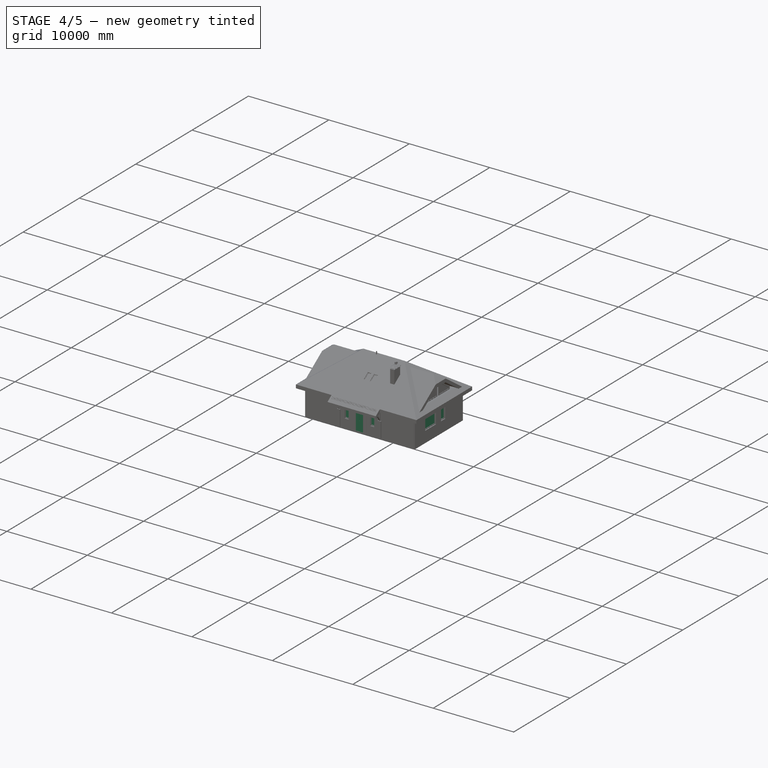
[diagram: stage 4 of 5 — iso view after this stage's code; geometry added in this stage tinted green]
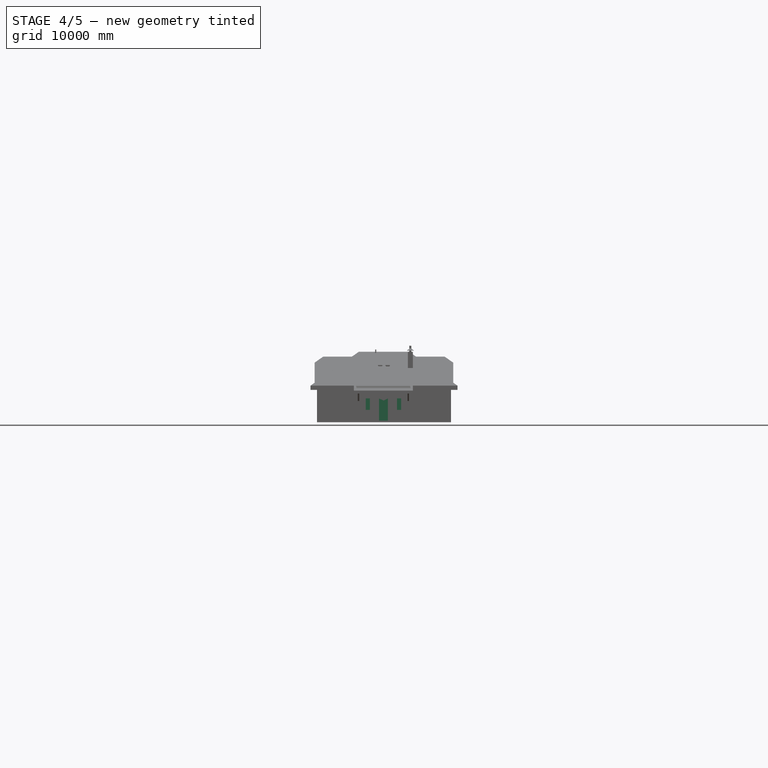
[diagram: stage 4 of 5 — front view after this stage's code; geometry added in this stage tinted green]
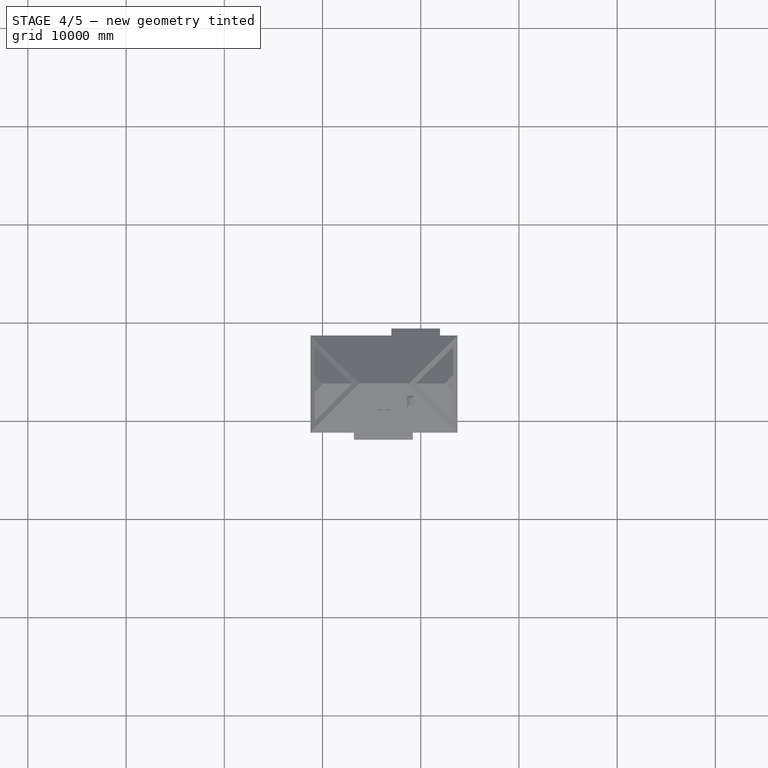
[diagram: stage 4 of 5 — top view after this stage's code; geometry added in this stage tinted green]
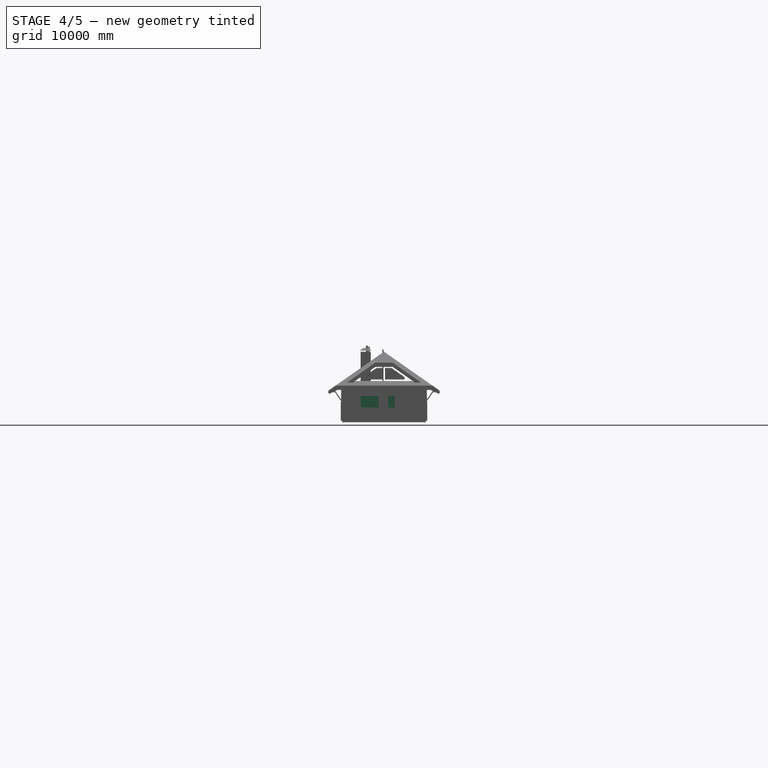
[diagram: stage 4 of 5 — right view after this stage's code; geometry added in this stage tinted green]
FEATURE [Part::Part2DObjectPython] Rectangle2169  label="Д-100-2500-01"  # Draft 2D object (typed FeaturePython)
  ChamferSize = 0
  Columns = 1
  FilletRadius = 0
  Height = 410
  Length = 1010
  MakeFace = true
  Placement = pos=(5695,-420,0) rot=(0,0,1;0rad)
  Rows = 1
FEATURE [Part::Part2DObjectPython] Rectangle2231  label="ОК-60-02"  # Draft 2D object (typed FeaturePython)
  ChamferSize = 0
  Columns = 1
  FilletRadius = 0
  Height = 410
  Length = 630
  MakeFace = true
  Placement = pos=(7475,-420,0) rot=(0,0,1;0rad)
  Rows = 1
FEATURE [Part::Part2DObjectPython] Rectangle2230  label="ОК-60-01"  # Draft 2D object (typed FeaturePython)
  ChamferSize = 0
  Columns = 1
  FilletRadius = 0
  Height = 410
  Length = 630
  MakeFace = true
  Placement = pos=(4295,-420,0) rot=(0,0,1;0rad)
  Rows = 1
FEATURE [App::FeaturePython] Dimension001  # Draft dimension (typed FeaturePython)
  Diameter = false
  Dimline = (13600,-300,0)
  Direction = (0,0,0)
  Distance = 7480
  End = (12550,7470,0)
  Normal = (0,0,1)
  Start = (12550,-10,0)
FEATURE [App::FeaturePython] Dimension  # Draft dimension (typed FeaturePython)
  Diameter = false
  Dimline = (13600,-1100,0)
  Direction = (0,0,0)
  Distance = 12580
  End = (12550,-10,0)
  Normal = (0,0,1)
  Start = (-30,-10,0)
FEATURE [Part::Part2DObjectPython] Rectangle2234  # Draft 2D object (typed FeaturePython)
  ChamferSize = 0
  Columns = 1
  FilletRadius = 0
  Height = 1500
  Length = 3000
  MakeFace = false
  Placement = pos=(5125,-1770,0) rot=(0,0,1;0rad)
  Rows = 1
FEATURE [Part::FeaturePython] Structure016  label="Проём-ОК-135-150-01"  # Arch/BIM 52 (typed FeaturePython)
  Base = -> Rectangle2230
  FaceMaker = 0
  Height = 1386
  HorizontalArea = 258300
  IfcData = complex_attributes={"OwnerHistory": {}, "IsNestedBy": {}, "IsDecomposedBy": {}, "IsDefinedBy": {}, "ObjectPlacement": {}, "Representation":... (+4 chars omitted)
  IfcType = 52
  Length = 0
  MoveBase = false
  MoveWithHost = false
  Nodes = (2) [(4618,-185,0),(4618,-185,1386)]
  NodesOffset = 0
  Normal = (0,0,0)
  PerimeterLength = 2080
  Placement = pos=(0,0,955) rot=(0,0,1;0rad)
  VerticalArea = 2882880
  Width = 100
FEATURE [Part::FeaturePython] Structure017  label="Проём-ОК-115-150-01"  # Arch/BIM 52 (typed FeaturePython)
  Base = -> Rectangle2231
  FaceMaker = 0
  Height = 1386
  HorizontalArea = 258300
  IfcData = complex_attributes={"OwnerHistory": {}, "IsNestedBy": {}, "IsDecomposedBy": {}, "IsDefinedBy": {}, "ObjectPlacement": {}, "Representation":... (+4 chars omitted)
  IfcType = 52
  Length = 0
  MoveBase = false
  MoveWithHost = false
  Nodes = (2) [(7790,-215,0),(7790,-215,1386)]
  NodesOffset = 0
  Normal = (0,0,0)
  PerimeterLength = 2080
  Placement = pos=(0,0,955) rot=(0,0,1;0rad)
  VerticalArea = 2882880
  Width = 100
FEATURE [Part::FeaturePython] Structure019  label="Проём-Д-100-250-004"  # Arch/BIM 52 (typed FeaturePython)
  Base = -> Rectangle2169
  FaceMaker = 0
  Height = 2541
  HorizontalArea = 414100
  IfcData = complex_attributes={"OwnerHistory": {}, "IsNestedBy": {}, "IsDecomposedBy": {}, "IsDefinedBy": {}, "ObjectPlacement": {}, "Representation":... (+4 chars omitted)
  IfcType = 52
  Length = 0
  MoveBase = false
  MoveWithHost = false
  Nodes = (2) [(6200,-215,0),(6200,-215,2541)]
  NodesOffset = 0
  Normal = (0,0,0)
  PerimeterLength = 2840
  Placement = pos=(0,0,-200) rot=(0,0,1;0rad)
  VerticalArea = 7216440
  Width = 100
FEATURE [Part::Part2DObjectPython] Rectangle2695  label="Д90-007"  # Draft 2D object (typed FeaturePython)
  ChamferSize = 0
  Columns = 1
  FilletRadius = 0
  Height = 100
  Length = 900
  MakeFace = true
  Placement = pos=(9550,770,0) rot=(0,0,1;1.5708rad)
  Rows = 1
FEATURE [Part::FeaturePython] Structure026  label="Проём-Д80-003"  # Arch/BIM 52 (typed FeaturePython)
  Base = -> Rectangle2695
  FaceMaker = 0
  Height = 2170
  HorizontalArea = 90000
  IfcData = complex_attributes={"OwnerHistory": {}, "IsNestedBy": {}, "IsDecomposedBy": {}, "IsDefinedBy": {}, "ObjectPlacement": {}, "Representation":... (+4 chars omitted)
  IfcType = 52
  Length = 0
  MoveBase = false
  MoveWithHost = false
  Nodes = (2) [(13000,6050,0),(13000,6050,2180)]
  NodesOffset = 0
  Normal = (0,0,0)
  PerimeterLength = 2000
  Placement = pos=(0,0,-20) rot=(0,0,1;0rad)
  VerticalArea = 4340000
  Width = 100
FEATURE [Part::Part2DObjectPython] Rectangle2630  label="Rectangle2624"  # Draft 2D object (typed FeaturePython)
  ChamferSize = 0
  Columns = 1
  FilletRadius = 0
  Height = 1500
  Length = 2100
  MakeFace = false
  Placement = pos=(1150,2125,0) rot=(0,0,-1;1.5708rad)
  Rows = 1
FEATURE [Part::Part2DObjectPython] Rectangle2684  label="Rectangle2703"  # Draft 2D object (typed FeaturePython)
  ChamferSize = 0
  Columns = 1
  FilletRadius = 0
  Height = 1800
  Length = 900
  MakeFace = true
  Placement = pos=(1000,925,0) rot=(0,0,-1;1.5708rad)
  Rows = 1
FEATURE [Part::Part2DObjectPython] Rectangle2712  label="Rectangle2673"  # Draft 2D object (typed FeaturePython)
  ChamferSize = 0
  Columns = 1
  FilletRadius = 0
  Height = 1200
  Length = 75
  MakeFace = false
  Placement = pos=(4795,6225,0) rot=(0,0,1;3.14159rad)
  Rows = 1
FEATURE [Part::Part2DObjectPython] Rectangle2717  label="Д90-006"  # Draft 2D object (typed FeaturePython)
  ChamferSize = 0
  Columns = 1
  FilletRadius = 0
  Height = 100
  Length = 900
  MakeFace = true
  Placement = pos=(5750,2270,0) rot=(0,0,1;0rad)
  Rows = 1
FEATURE [Part::FeaturePython] Structure024  label="Проём-Д100-002"  # Arch/BIM 52 (typed FeaturePython)
  Base = -> Rectangle2717
  FaceMaker = 0
  Height = 2070
  HorizontalArea = 90000
  IfcData = complex_attributes={"OwnerHistory": {}, "IsNestedBy": {}, "IsDecomposedBy": {}, "IsDefinedBy": {}, "ObjectPlacement": {}, "Representation":... (+4 chars omitted)
  IfcType = 52
  Length = 0
  MoveBase = false
  MoveWithHost = false
  Nodes = (2) [(5000,3050,0),(5000,3050,2180)]
  NodesOffset = 0
  Normal = (0,0,0)
  PerimeterLength = 2000
  Placement = pos=(0,0,-20) rot=(0,0,1;0rad)
  VerticalArea = 4.14e+06
  Width = 100
FEATURE [Part::Part2DObjectPython] Rectangle2730  label="Д70-004"  # Draft 2D object (typed FeaturePython)
  ChamferSize = 0
  Columns = 1
  FilletRadius = 0
  Height = 110
  Length = 900
  MakeFace = true
  Placement = pos=(4930,6440,0) rot=(0,0,1;1.5708rad)
  Rows = 1
FEATURE [Part::FeaturePython] Structure141  label="Проём-Д70-002"  # Arch/BIM 52 (typed FeaturePython)
  Base = -> Rectangle2730
  FaceMaker = 0
  Height = 2170
  HorizontalArea = 99000
  IfcData = complex_attributes={"OwnerHistory": {}, "IsNestedBy": {}, "IsDecomposedBy": {}, "IsDefinedBy": {}, "ObjectPlacement": {}, "Representation":... (+4 chars omitted)
  IfcType = 52
  Length = 0
  MoveBase = false
  MoveWithHost = false
  Nodes = (2) [(10750,4050,0),(10750,4050,2180)]
  NodesOffset = 0
  Normal = (0,0,0)
  PerimeterLength = 2020
  Placement = pos=(0,0,-20) rot=(0,0,1;0rad)
  VerticalArea = 4.3834e+06
  Width = 100
FEATURE [Part::Part2DObjectPython] Rectangle2798  label="Д90-005"  # Draft 2D object (typed FeaturePython)
  ChamferSize = 0
  Columns = 1
  FilletRadius = 0
  Height = 100
  Length = 900
  MakeFace = true
  Placement = pos=(3600,2500,0) rot=(0,0,1;1.5708rad)
  Rows = 1
FEATURE [Part::FeaturePython] Structure021  label="Проём-Д90-005"  # Arch/BIM 52 (typed FeaturePython)
  Base = -> Rectangle2798
  FaceMaker = 0
  Height = 2170
  HorizontalArea = 90000
  IfcData = complex_attributes={"OwnerHistory": {}, "IsNestedBy": {}, "IsDecomposedBy": {}, "IsDefinedBy": {}, "ObjectPlacement": {}, "Representation":... (+4 chars omitted)
  IfcType = 52
  Length = 0
  MoveBase = false
  MoveWithHost = false
  Nodes = (2) [(7500,3050,0),(7500,3050,2180)]
  NodesOffset = 0
  Normal = (0,0,0)
  PerimeterLength = 2000
  Placement = pos=(0,0,-20) rot=(0,0,1;0rad)
  VerticalArea = 4340000
  Width = 100
FEATURE [Part::Part2DObjectPython] Rectangle544  # Draft 2D object (typed FeaturePython)
  ChamferSize = 0
  Columns = 1
  FilletRadius = 25
  Height = 300
  Length = 2500
  MakeFace = false
  Placement = pos=(12470,4910,0) rot=(0,0,1;1.5708rad)
  Rows = 1
FEATURE [Part::Part2DObjectPython] Rectangle545  # Draft 2D object (typed FeaturePython)
  ChamferSize = 0
  Columns = 1
  FilletRadius = 25
  Height = 950
  Length = 2500
  MakeFace = true
  Placement = pos=(12470,4910,0) rot=(0,0,1;1.5708rad)
  Rows = 1
  Support = -> [Rectangle544]
FEATURE [Part::Part2DObjectPython] Rectangle546  # Draft 2D object (typed FeaturePython)
  ChamferSize = 0
  Columns = 1
  FilletRadius = 25
  Height = 1620
  Length = 250
  MakeFace = false
  Placement = pos=(12470,7160,0) rot=(0,0,1;1.5708rad)
  Rows = 1
FEATURE [Part::Part2DObjectPython] Rectangle547  # Draft 2D object (typed FeaturePython)
  ChamferSize = 0
  Columns = 1
  FilletRadius = 25
  Height = 950
  Length = 250
  MakeFace = false
  Placement = pos=(12470,4910,0) rot=(0,0,1;1.5708rad)
  Rows = 1
FEATURE [Part::Part2DObjectPython] Rectangle2837  # Draft 2D object (typed FeaturePython)
  ChamferSize = 0
  Columns = 1
  FilletRadius = 25
  Height = 670
  Length = 900
  MakeFace = true
  Placement = pos=(11520,6510,0) rot=(0,0,1;1.5708rad)
  Rows = 1
FEATURE [Part::Part2DObjectPython] Rectangle2857  label="ОК-150-01"  # Draft 2D object (typed FeaturePython)
  ChamferSize = 0
  Columns = 1
  FilletRadius = 0
  Height = 410
  Length = 1500
  MakeFace = true
  Placement = pos=(-30,1900,0) rot=(0,0,1;1.5708rad)
  Rows = 1
FEATURE [Part::FeaturePython] Structure285  label="Проём-ОК-135-150-004"  # Arch/BIM 52 (typed FeaturePython)
  Base = -> Rectangle2857
  FaceMaker = 0
  Height = 1617
  HorizontalArea = 615000
  IfcData = complex_attributes={"OwnerHistory": {}, "IsNestedBy": {}, "IsDecomposedBy": {}, "IsDefinedBy": {}, "ObjectPlacement": {}, "Representation":... (+4 chars omitted)
  IfcType = 52
  Length = 0
  MoveBase = false
  MoveWithHost = false
  Nodes = (2) [(-8120,-170,0),(-8120,-170,1500)]
  NodesOffset = 0
  Normal = (0,0,0)
  PerimeterLength = 3820
  Placement = pos=(0,0,955) rot=(0,0,1;0rad)
  VerticalArea = 6176940
  Width = 100
FEATURE [Part::Part2DObjectPython] Line1266  label="Line1267"  # Draft 2D object (typed FeaturePython)
  ChamferSize = 0
  Closed = false
  End = (-560,1875,0)
  FilletRadius = 0
  Length = 1550
  MakeFace = true
  Placement = pos=(-560,3425,0) rot=(0,0,-1;1.5708rad)
  Points = (2) [(0,0,0),(1550,0,0)]
  Start = (-560,3425,0)
  Subdivisions = 0
FEATURE [Part::Part2DObjectPython] Line1271  label="Line1272"  # Draft 2D object (typed FeaturePython)
  ChamferSize = 0
  Closed = true
  End = (8690,1820,0)
  FilletRadius = 0
  Length = 770
  MakeFace = false
  Placement = pos=(11240,5170,0) rot=(0,0,-1;1.5708rad)
  Points = (2) [(3350,-1780,0),(3350,-2550,0)]
  Start = (9460,1820,0)
  Subdivisions = 0
FEATURE [Part::FeaturePython] Wall162  label="перегородка 042"  # Arch/BIM 166 (typed FeaturePython)
  Align = 2
  Area = 2.156e+06
  Base = -> Line1271
  BlockHeight = 250
  BlockLength = 0
  CountBroken = 0
  CountEntire = 0
  Face = 0
  Height = 2800
  HorizontalArea = 61600
  IfcType = 166
  Joint = 0
  Length = 770
  MakeBlocks = false
  MoveBase = false
  MoveWithHost = false
  Normal = (0,0,0)
  OffsetFirst = 0
  OffsetSecond = 300
  PerimeterLength = 1700
  PredefinedType = 0
  VerticalArea = 4760000
  Width = 80
FEATURE [Part::Part2DObjectPython] Rectangle3023  # Draft 2D object (typed FeaturePython)
  ChamferSize = 0
  Columns = 1
  FilletRadius = 0
  Height = 300
  Length = 500
  MakeFace = true
  Placement = pos=(11190,4065,0) rot=(0,0,1;0rad)
  Rows = 1
FEATURE [Part::Part2DObjectPython] Rectangle3024  # Draft 2D object (typed FeaturePython)
  ChamferSize = 0
  Columns = 1
  FilletRadius = 0
  Height = 300
  Length = 500
  MakeFace = true
  Placement = pos=(11190,2965,0) rot=(0,0,1;0rad)
  Rows = 1
FEATURE [Part::Part2DObjectPython] Rectangle3026  # Draft 2D object (typed FeaturePython)
  Area = 0
  ChamferSize = 0
  Columns = 1
  FilletRadius = 0
  Height = 490
  Length = 450
  MakeFace = false
  Placement = pos=(12440,1345,0) rot=(0,0,1;1.5708rad)
  Rows = 1
FEATURE [Part::Part2DObjectPython] Line1316  # Draft 2D object (typed FeaturePython)
  ChamferSize = 0
  Closed = true
  End = (3590,2320,0)
  FilletRadius = 0
  Length = 5950
  MakeFace = false
  Placement = pos=(4490,5620,0) rot=(0,0,-1;1.5708rad)
  Points = (2) [(3300,5050,0),(3300,-900,0)]
  Start = (9540,2320,0)
  Subdivisions = 0
FEATURE [Part::Part2DObjectPython] Rectangle3032  # Draft 2D object (typed FeaturePython)
  ChamferSize = 0
  Columns = 1
  FilletRadius = 75
  Height = 1000
  Length = 500
  MakeFace = true
  Placement = pos=(10350,5100,0) rot=(0,0,1;0rad)
  Rows = 1
FEATURE [Part::Part2DObjectPython] Line1317  # Draft 2D object (typed FeaturePython)
  Area = 0
  ChamferSize = 0
  Closed = false
  End = (10128.9,747.87,0)
  FilletRadius = 0
  Length = 600
  MakeFace = true
  Placement = pos=(9550,590,0) rot=(0,0,1;0rad)
  Points = (2) [(0,0,0),(578.858,157.87,0)]
  Start = (9550,590,0)
  Subdivisions = 0
FEATURE [Part::Part2DObjectPython] Rectangle3034  label="Унитаз Geberit Smyle 54х35 003"  # Draft 2D object (typed FeaturePython)
  ChamferSize = 0
  Columns = 1
  FilletRadius = 0
  Height = 350
  Length = 540
  MakeFace = true
  Placement = pos=(7565,4770,0) rot=(0,0,1;1.5708rad)
  Rows = 1
FEATURE [Part::Part2DObjectPython] Rectangle3046  label="Шкаф 60 015"  # Draft 2D object (typed FeaturePython)
  Area = 498000
  ChamferSize = 0
  Columns = 1
  FilletRadius = 0
  Height = 1245
  Length = 400
  MakeFace = true
  Placement = pos=(-30,6225,0) rot=(0,0,1;0rad)
  Rows = 1
FEATURE [Part::Part2DObjectPython] Rectangle3053  label="раковина 35*900"  # Draft 2D object (typed FeaturePython)
  ChamferSize = 0
  Columns = 1
  FilletRadius = 0
  Height = 900
  Length = 360
  MakeFace = true
  Placement = pos=(4930,3810,0) rot=(0,0,1;0rad)
  Rows = 1
FEATURE [Part::Part2DObjectPython] Line1323  # Draft 2D object (typed FeaturePython)
  ChamferSize = 0
  Closed = true
  End = (8700,1780,0)
  FilletRadius = 0
  Length = 500
  MakeFace = false
  Placement = pos=(10280,1880,0) rot=(0,0,1;0rad)
  Points = (2) [(-1580,400,0),(-1580,-100,0)]
  Start = (8700,2280,0)
  Subdivisions = 0
FEATURE [Part::FeaturePython] Wall187  label="перегородка 044"  # Arch/BIM 166 (typed FeaturePython)
  Align = 2
  Area = 1400000
  Base = -> Line1323
  BlockHeight = 250
  BlockLength = 0
  CountBroken = 0
  CountEntire = 0
  Face = 0
  Height = 2800
  HorizontalArea = 40000
  IfcType = 166
  Joint = 0
  Length = 500
  MakeBlocks = false
  MoveBase = false
  MoveWithHost = false
  Normal = (0,0,0)
  OffsetFirst = 0
  OffsetSecond = 300
  PerimeterLength = 1160
  PredefinedType = 0
  VerticalArea = 3.248e+06
  Width = 80
FEATURE [Part::Part2DObjectPython] Line1324  # Draft 2D object (typed FeaturePython)
  ChamferSize = 0
  Closed = true
  End = (7350,-30,0)
  FilletRadius = 0
  Length = 2310
  MakeFace = false
  Placement = pos=(9435,1900,0) rot=(0,0,1;0rad)
  Points = (2) [(-2085,380,0),(-2085,-1930,0)]
  Start = (7350,2280,0)
  Subdivisions = 0
FEATURE [Part::FeaturePython] Wall188  label="перегородка 045"  # Arch/BIM 166 (typed FeaturePython)
  Align = 2
  Area = 6468000
  Base = -> Line1324
  BlockHeight = 250
  BlockLength = 0
  CountBroken = 0
  CountEntire = 0
  Face = 0
  Height = 2800
  HorizontalArea = 184800
  IfcType = 166
  Joint = 0
  Length = 2310
  MakeBlocks = false
  MoveBase = false
  MoveWithHost = false
  Normal = (0,0,0)
  OffsetFirst = 0
  OffsetSecond = 300
  PerimeterLength = 4780
  PredefinedType = 0
  VerticalArea = 13384000
  Width = 80
FEATURE [Part::FeaturePython] Wall209  label="Стена024"  # Arch/BIM 166 (typed FeaturePython)
  Align = 1
  Area = 3003000
  Base = -> Line1340
  BlockHeight = 231
  BlockLength = 255
  CountBroken = 3
  CountEntire = 46
  Face = 0
  Height = 231
  HorizontalArea = 0
  IfcData = attributes={"GlobalId": {"name": "GlobalId", "type": "IfcGloballyUniqueId", "is_enum": false, "enum_values": []}, "Description": {"... (+533 chars omitted),+1 more (map truncated)
  IfcType = 166
  Joint = 0
  Length = 13000
  MakeBlocks = true
  MoveBase = false
  MoveWithHost = false
  Normal = (0,0,0)
  OffsetFirst = 0
  OffsetSecond = 0
  PerimeterLength = 0
  Placement = pos=(0,0,-200) rot=(0,0,1;0rad)
  PredefinedType = 0
  Subtractions = -> [Structure019]
  VerticalArea = 0
  Width = 380
FEATURE [Part::FeaturePython] Wall213  label="Стена028"  # Arch/BIM 166 (typed FeaturePython)
  Align = 1
  Area = 1824900
  Base = -> Line1341
  BlockHeight = 231
  BlockLength = 255
  CountBroken = 1
  CountEntire = 30
  Face = 0
  Height = 231
  HorizontalArea = 0
  IfcData = attributes={"GlobalId": {"name": "GlobalId", "type": "IfcGloballyUniqueId", "is_enum": false, "enum_values": []}, "Description": {"... (+533 chars omitted),+1 more (map truncated)
  IfcType = 166
  Joint = 0
  Length = 7900
  MakeBlocks = true
  MoveBase = false
  MoveWithHost = false
  Normal = (0,0,0)
  OffsetFirst = 0
  OffsetSecond = 0
  PerimeterLength = 0
  Placement = pos=(0,0,-200) rot=(0,0,1;0rad)
  PredefinedType = 0
  VerticalArea = 0
  Width = 380
FEATURE [Part::Part2DObjectPython] Rectangle016  label="Контур_по_блоку_ЛСР_38_шаг255"  # Draft 2D object (typed FeaturePython)
  Area = 0
  ChamferSize = 0
  Columns = 1
  FilletRadius = 0
  Height = 7520
  Length = 12620
  MakeFace = false
  Placement = pos=(-50,-30,0) rot=(0,0,1;0rad)
  Rows = 1
FEATURE [Part::Part2DObjectPython] Rectangle3075  label="ОК-200-003"  # Draft 2D object (typed FeaturePython)
  ChamferSize = 0
  Columns = 1
  FilletRadius = 0
  Height = 410
  Length = 2020
  MakeFace = true
  Placement = pos=(12550,3280,0) rot=(0,0,-1;1.5708rad)
  Rows = 1
FEATURE [Part::FeaturePython] Structure304  label="Проём-ОК-135-150-005"  # Arch/BIM 52 (typed FeaturePython)
  Base = -> Rectangle3075
  FaceMaker = 0
  Height = 1386
  HorizontalArea = 828200
  IfcData = complex_attributes={"OwnerHistory": {}, "IsNestedBy": {}, "IsDecomposedBy": {}, "IsDefinedBy": {}, "ObjectPlacement": {}, "Representation":... (+4 chars omitted)
  IfcType = 52
  Length = 0
  MoveBase = false
  MoveWithHost = false
  Nodes = (2) [(4745,-225,0),(4745,-225,1350)]
  NodesOffset = 0
  Normal = (0,0,0)
  PerimeterLength = 4860
  Placement = pos=(0,0,1186) rot=(0,0,1;0rad)
  VerticalArea = 6735960
  Width = 100
FEATURE [Part::Part2DObjectPython] Rectangle3077  label="ОК-880-002"  # Draft 2D object (typed FeaturePython)
  ChamferSize = 0
  Columns = 1
  FilletRadius = 0
  Height = 410
  Length = 888
  MakeFace = true
  Placement = pos=(12550,4933,0) rot=(0,0,-1;1.5708rad)
  Rows = 1
FEATURE [Part::FeaturePython] Structure306  label="Проём-ОК-90-60-002"  # Arch/BIM 52 (typed FeaturePython)
  Base = -> Rectangle3077
  FaceMaker = 0
  Height = 1386
  HorizontalArea = 364080
  IfcData = complex_attributes={"OwnerHistory": {}, "IsNestedBy": {}, "IsDecomposedBy": {}, "IsDefinedBy": {}, "ObjectPlacement": {}, "Representation":... (+4 chars omitted)
  IfcType = 52
  Length = 0
  MoveBase = false
  MoveWithHost = false
  Nodes = (2) [(1035,250,0),(1035,250,600)]
  NodesOffset = 0
  Normal = (0,0,0)
  PerimeterLength = 2596
  Placement = pos=(0,0,1186) rot=(0,0,1;0rad)
  VerticalArea = 3.59806e+06
  Width = 100
FEATURE [Part::Part2DObjectPython] Rectangle3079  label="ОК-200-002"  # Draft 2D object (typed FeaturePython)
  ChamferSize = 0
  Columns = 1
  FilletRadius = 0
  Height = 410
  Length = 2024
  MakeFace = true
  Placement = pos=(8503,7470,0) rot=(0,0,1;0rad)
  Rows = 1
FEATURE [Part::FeaturePython] Structure308  label="Проём-ОК-90-60-003"  # Arch/BIM 52 (typed FeaturePython)
  Base = -> Rectangle3079
  FaceMaker = 0
  Height = 2772
  HorizontalArea = 829840
  IfcData = complex_attributes={"OwnerHistory": {}, "IsNestedBy": {}, "IsDecomposedBy": {}, "IsDefinedBy": {}, "ObjectPlacement": {}, "Representation":... (+4 chars omitted)
  IfcType = 52
  Length = 0
  MoveBase = false
  MoveWithHost = false
  Nodes = (2) [(1035,250,0),(1035,250,600)]
  NodesOffset = 0
  Normal = (0,0,0)
  PerimeterLength = 4868
  Placement = pos=(0,0,-200) rot=(0,0,1;0rad)
  VerticalArea = 13494096
  Width = 100
FEATURE [Part::FeaturePython] Wall208  label="Стена023"  # Arch/BIM 166 (typed FeaturePython)
  Align = 1
  Area = 3003000
  Base = -> Line1349
  BlockHeight = 231
  BlockLength = 255
  CountBroken = 3
  CountEntire = 41
  Face = 0
  Height = 231
  HorizontalArea = 0
  IfcData = attributes={"GlobalId": {"name": "GlobalId", "type": "IfcGloballyUniqueId", "is_enum": false, "enum_values": []}, "Description": {"... (+533 chars omitted),+1 more (map truncated)
  IfcType = 166
  Joint = 0
  Length = 13000
  MakeBlocks = true
  MoveBase = false
  MoveWithHost = false
  Normal = (0,0,0)
  OffsetFirst = 0
  OffsetSecond = 0
  PerimeterLength = 0
  Placement = pos=(0,0,-200) rot=(0,0,1;0rad)
  PredefinedType = 0
  Subtractions = -> [Structure308]
  VerticalArea = 0
  Width = 380
FEATURE [App::GeometryPython] BuildingPart072  label="ряд 2"  # Arch/BIM 52 (typed FeaturePython)
  Area = 9655800
  Group = -> [Wall212,Wall210,Wall211,Wall206]
  Height = 0
  HeightPropagate = true
  IfcData = attributes={"GlobalId": {"name": "GlobalId", "type": "IfcGloballyUniqueId", "is_enum": false, "enum_values": []}, "Description": {"... (+484 chars omitted),+1 more (map truncated)
  IfcType = 52
  LevelOffset = 0
FEATURE [Part::Part2DObjectPython] Rectangle3084  label="ОК-88-002"  # Draft 2D object (typed FeaturePython)
  ChamferSize = 0
  Columns = 1
  FilletRadius = 0
  Height = 410
  Length = 888
  MakeFace = true
  Placement = pos=(5045,7470,0) rot=(0,0,1;0rad)
  Rows = 1
FEATURE [Part::FeaturePython] Structure313  label="Проём-ОК-90-60-005"  # Arch/BIM 52 (typed FeaturePython)
  Base = -> Rectangle3084
  FaceMaker = 0
  Height = 1617
  HorizontalArea = 364080
  IfcData = complex_attributes={"OwnerHistory": {}, "IsNestedBy": {}, "IsDecomposedBy": {}, "IsDefinedBy": {}, "ObjectPlacement": {}, "Representation":... (+4 chars omitted)
  IfcType = 52
  Length = 0
  MoveBase = false
  MoveWithHost = false
  Nodes = (2) [(1035,250,0),(1035,250,600)]
  NodesOffset = 0
  Normal = (0,0,0)
  PerimeterLength = 2596
  Placement = pos=(0,0,955) rot=(0,0,1;0rad)
  VerticalArea = 4197732
  Width = 100
FEATURE [Part::Part2DObjectPython] Rectangle3086  label="ОК-200-04"  # Draft 2D object (typed FeaturePython)
  ChamferSize = 0
  Columns = 1
  FilletRadius = 0
  Height = 410
  Length = 2024
  MakeFace = true
  Placement = pos=(1985,7470,0) rot=(0,0,1;0rad)
  Rows = 1
FEATURE [Part::FeaturePython] Structure315  label="Проём-ОК-90-60-006"  # Arch/BIM 52 (typed FeaturePython)
  Base = -> Rectangle3086
  FaceMaker = 0
  Height = 1617
  HorizontalArea = 829840
  IfcData = complex_attributes={"OwnerHistory": {}, "IsNestedBy": {}, "IsDecomposedBy": {}, "IsDefinedBy": {}, "ObjectPlacement": {}, "Representation":... (+4 chars omitted)
  IfcType = 52
  Length = 0
  MoveBase = false
  MoveWithHost = false
  Nodes = (2) [(1035,250,0),(1035,250,600)]
  NodesOffset = 0
  Normal = (0,0,0)
  PerimeterLength = 4868
  Placement = pos=(0,0,955) rot=(0,0,1;0rad)
  VerticalArea = 7871556
  Width = 100
FEATURE [Part::Part2DObjectPython] Line1357  # Draft 2D object (typed FeaturePython)
  ChamferSize = 0
  Closed = true
  End = (4150,-30,0)
  FilletRadius = 0
  Length = 2310
  MakeFace = false
  Placement = pos=(5430,5450,0) rot=(0,0,-1;1.5708rad)
  Points = (2) [(3170,-1280,0),(5480,-1280,0)]
  Start = (4150,2280,0)
  Subdivisions = 0
FEATURE [Part::FeaturePython] Wall222  label="перегородка 048"  # Arch/BIM 166 (typed FeaturePython)
  Align = 2
  Area = 6.468e+06
  Base = -> Line1357
  BlockHeight = 250
  BlockLength = 0
  CountBroken = 0
  CountEntire = 0
  Face = 0
  Height = 2800
  HorizontalArea = 184800
  IfcType = 166
  Joint = 0
  Length = 2310
  MakeBlocks = false
  MoveBase = false
  MoveWithHost = false
  Normal = (0,0,0)
  OffsetFirst = 300
  OffsetSecond = 50
  PerimeterLength = 4780
  PredefinedType = 0
  VerticalArea = 1.3384e+07
  Width = 80
FEATURE [Part::Part2DObjectPython] Line1358  # Draft 2D object (typed FeaturePython)
  ChamferSize = 0
  Closed = true
  End = (6890,3790,0)
  FilletRadius = 0
  Length = 3700
  MakeFace = false
  Placement = pos=(5520,5450,0) rot=(0,0,-1;1.5708rad)
  Points = (2) [(-2040,1370,0),(1660,1370,0)]
  Start = (6890,7490,0)
  Subdivisions = 0
FEATURE [Part::Part2DObjectPython] Line1359  # Draft 2D object (typed FeaturePython)
  ChamferSize = 0
  Closed = true
  End = (3550,2280,0)
  FilletRadius = 0
  Length = 1260
  MakeFace = false
  Placement = pos=(5330,5450,0) rot=(0,0,-1;1.5708rad)
  Points = (2) [(1910,-1780,0),(3170,-1780,0)]
  Start = (3550,3540,0)
  Subdivisions = 0
FEATURE [Part::FeaturePython] Wall224  label="перегородка 050"  # Arch/BIM 166 (typed FeaturePython)
  Align = 2
  Area = 3.528e+06
  Base = -> Line1359
  BlockHeight = 250
  BlockLength = 0
  CountBroken = 0
  CountEntire = 0
  Face = 0
  Height = 2800
  HorizontalArea = 100800
  IfcType = 166
  Joint = 0
  Length = 1260
  MakeBlocks = false
  MoveBase = false
  MoveWithHost = false
  Normal = (0,0,0)
  OffsetFirst = 300
  OffsetSecond = 50
  PerimeterLength = 2680
  PredefinedType = 0
  VerticalArea = 7.504e+06
  Width = 80
FEATURE [Part::Part2DObjectPython] Line1360  # Draft 2D object (typed FeaturePython)
  ChamferSize = 0
  Closed = true
  End = (9500,2280,0)
  FilletRadius = 0
  Length = 2310
  MakeFace = false
  Placement = pos=(10380,1920,0) rot=(0,0,1;0rad)
  Points = (2) [(-880,-1950,0),(-880,360,0)]
  Start = (9500,-30,0)
  Subdivisions = 0
FEATURE [Part::FeaturePython] Wall225  label="перегородка 052"  # Arch/BIM 166 (typed FeaturePython)
  Align = 2
  Area = 6468000
  Base = -> Line1360
  BlockHeight = 250
  BlockLength = 0
  CountBroken = 0
  CountEntire = 0
  Face = 0
  Height = 2800
  HorizontalArea = 184800
  IfcType = 166
  Joint = 0
  Length = 2310
  MakeBlocks = false
  MoveBase = false
  MoveWithHost = false
  Normal = (0,0,0)
  OffsetFirst = 0
  OffsetSecond = 300
  PerimeterLength = 4780
  PredefinedType = 0
  VerticalArea = 13384000
  Width = 80
FEATURE [Part::Part2DObjectPython] Rectangle3166  label="Д70-017"  # Draft 2D object (typed FeaturePython)
  ChamferSize = 0
  Columns = 1
  FilletRadius = 0
  Height = 120
  Length = 900
  MakeFace = true
  Placement = pos=(6950,3810,0) rot=(0,0,1;1.5708rad)
  Rows = 1
FEATURE [Part::FeaturePython] Structure333  label="Проём-Д70-003"  # Arch/BIM 52 (typed FeaturePython)
  Base = -> Rectangle3166
  FaceMaker = 0
  Height = 2000
  HorizontalArea = 108000
  IfcData = complex_attributes={"OwnerHistory": {}, "IsNestedBy": {}, "IsDecomposedBy": {}, "IsDefinedBy": {}, "ObjectPlacement": {}, "Representation":... (+4 chars omitted)
  IfcType = 52
  Length = 0
  MoveBase = false
  MoveWithHost = false
  Nodes = (2) [(10750,4050,0),(10750,4050,2180)]
  NodesOffset = 0
  Normal = (0,0,0)
  PerimeterLength = 2040
  VerticalArea = 4.08e+06
  Width = 100
FEATURE [Part::Part2DObjectPython] Wire788  label="Гостиная"  # Draft 2D object (typed FeaturePython)
  Area = 19236000
  ChamferSize = 0
  Closed = true
  End = (6940,6110,0)
  FilletRadius = 0
  Length = 19120
  MakeFace = true
  Placement = pos=(6925,7460,0) rot=(0,0,1;0rad)
  Points = (12) [(15,10,0),(5625,10,0),(5625,-3650,0),(4975,-3650,0),(4975,-3940,0),(3220,-3940,0),(2575,-3940,0),(1515,-3940,0),(1515,-3650,0),(1015,-3650,0),+2 more]
  Start = (6940,7470,0)
  Subdivisions = 0
FEATURE [Part::Part2DObjectPython] Line1390  # Draft 2D object (typed FeaturePython)
  ChamferSize = 0
  Closed = true
  End = (4910,4770,0)
  FilletRadius = 0
  Length = 380
  MakeFace = false
  Placement = pos=(7130,8280,0) rot=(0,0,-1;1.5708rad)
  Points = (2) [(3510,-1840,0),(3510,-2220,0)]
  Start = (5290,4770,0)
  Subdivisions = 0
FEATURE [Part::FeaturePython] Wall230  label="перегородка 053"  # Arch/BIM 166 (typed FeaturePython)
  Align = 2
  Area = 1064000
  Base = -> Line1390
  BlockHeight = 250
  BlockLength = 0
  CountBroken = 0
  CountEntire = 0
  Face = 0
  Height = 2800
  HorizontalArea = 30400
  IfcType = 166
  Joint = 0
  Length = 380
  MakeBlocks = false
  MoveBase = false
  MoveWithHost = false
  Normal = (0,0,0)
  OffsetFirst = 300
  OffsetSecond = 50
  PerimeterLength = 920
  PredefinedType = 0
  VerticalArea = 2576000
  Width = 80
FEATURE [Part::FeaturePython] Array063  # Draft array (typed FeaturePython)
  Angle = 360
  ArrayType = 0
  Axis = (0,0,1)
  Base = -> Rectangle3159
  Center = (0,0,0)
  Count = 11
  ExpandArray = false
  Fuse = false
  IntervalAxis = (0,0,0)
  IntervalX = (100,0,0)
  IntervalY = (0,-230,0)
  IntervalZ = (0,0,100)
  NumberCircles = 3
  NumberPolar = 5
  NumberX = 1
  NumberY = 11
  NumberZ = 1
  PlacementList = 11 placements: arithmetic series from (6940,5880,0) step (0,-230,0) to (6940,3580,0)
  RadialDistance = 50
  ScaleList = (11) [(1,1,1),(1,1,1),(1,1,1),(1,1,1),(1,1,1),(1,1,1),(1,1,1),(1,1,1),(1,1,1),(1,1,1),(1,1,1)]
  Symmetry = 1
  TangentialDistance = 25
FEATURE [Part::Part2DObjectPython] Line1391  # Draft 2D object (typed FeaturePython)
  ChamferSize = 0
  Closed = true
  End = (6930,5370,0)
  FilletRadius = 0
  Length = 920
  MakeFace = false
  Placement = pos=(10330,5365,0) rot=(0,0,-1;1.5708rad)
  Points = (2) [(-5,-2480,0),(-5,-3400,0)]
  Start = (7850,5370,0)
  Subdivisions = 0
FEATURE [Part::Part2DObjectPython] Line1392  # Draft 2D object (typed FeaturePython)
  Area = 0
  ChamferSize = 0
  Closed = true
  End = (7310,-10,0)
  FilletRadius = 0
  Length = 3120
  MakeFace = true
  Placement = pos=(4210,-10,0) rot=(0,0,1;0rad)
  Points = (2) [(-20,7.72005e-12,0),(3100,7.72005e-12,0)]
  Start = (4190,-10,0)
  Subdivisions = 0
FEATURE [Part::Part2DObjectPython] Line1393  # Draft 2D object (typed FeaturePython)
  Area = 0
  ChamferSize = 0
  Closed = true
  End = (9460,-10,0)
  FilletRadius = 0
  Length = 2070
  MakeFace = true
  Placement = pos=(7400,-10,0) rot=(0,0,1;0rad)
  Points = (2) [(-10,-4.83169e-13,0),(2060,1.2502e-11,0)]
  Start = (7390,-10,0)
  Subdivisions = 0
FEATURE [Part::Part2DObjectPython] Wire795  # Draft 2D object (typed FeaturePython)
  Area = 0
  ChamferSize = 0
  Closed = false
  End = (3590,3520,0)
  FilletRadius = 0
  Length = 15500
  MakeFace = true
  Placement = pos=(9500,20,0) rot=(0,0,1;0rad)
  Points = (4) [(40,-30,0),(3050,-30,0),(3050,3500,0),(-5910,3500,0)]
  Start = (9540,-10,0)
  Subdivisions = 0
FEATURE [Part::Part2DObjectPython] Wire796  # Draft 2D object (typed FeaturePython)
  Area = 0
  ChamferSize = 0
  Closed = false
  End = (6940,7470,0)
  FilletRadius = 0
  Length = 13880
  MakeFace = true
  Placement = pos=(7940,3810,0) rot=(0,0,1;0rad)
  Points = (4) [(0,0,0),(4610,-4.54747e-13,0),(4610,3660,0),(-1000,3660,0)]
  Start = (7940,3810,0)
  Subdivisions = 0
FEATURE [Part::Part2DObjectPython] Wire797  # Draft 2D object (typed FeaturePython)
  Area = 0
  ChamferSize = 0
  Closed = false
  End = (4830,3810,0)
  FilletRadius = 0
  Length = 13380
  MakeFace = true
  Placement = pos=(4820,7440,0) rot=(0,0,1;0rad)
  Points = (4) [(10,30,0),(-4850,30,0),(-4850,-3630,0),(10,-3630,0)]
  Start = (4830,7470,0)
  Subdivisions = 0
FEATURE [Part::Part2DObjectPython] Arc114  label="Arc115"  # Draft 2D object (typed FeaturePython)
  Area = 0
  FirstAngle = 90
  LastAngle = 180
  MakeFace = true
  Placement = pos=(4650,3810,0) rot=(0,0,1;0rad)
  Radius = 800
FEATURE [Part::Part2DObjectPython] Line1394  # Draft 2D object (typed FeaturePython)
  Area = 0
  ChamferSize = 0
  Closed = false
  End = (4650,3810,0)
  FilletRadius = 0
  Length = 800
  MakeFace = true
  Placement = pos=(4650,4610,0) rot=(0,0,1;0rad)
  Points = (2) [(0,0,0),(0,-800,0)]
  Start = (4650,4610,0)
  Subdivisions = 0
FEATURE [Part::Part2DObjectPython] Arc115  label="Arc116"  # Draft 2D object (typed FeaturePython)
  Area = 0
  FirstAngle = -180
  LastAngle = -90
  MakeFace = true
  Placement = pos=(3500,3350,0) rot=(0,0,1;0rad)
  Radius = 800
FEATURE [Part::Part2DObjectPython] Line1395  # Draft 2D object (typed FeaturePython)
  Area = 0
  ChamferSize = 0
  Closed = false
  End = (3500,3350,0)
  FilletRadius = 0
  Length = 800
  MakeFace = true
  Placement = pos=(2700,3350,0) rot=(0,0,1;0rad)
  Points = (2) [(0,0,0),(800,0,0)]
  Start = (2700,3350,0)
  Subdivisions = 0
FEATURE [Part::Part2DObjectPython] Arc116  label="Arc117"  # Draft 2D object (typed FeaturePython)
  Area = 0
  FirstAngle = 180
  LastAngle = 270
  MakeFace = true
  Placement = pos=(6600,2270,0) rot=(0,0,1;0rad)
  Radius = 800
FEATURE [Part::Part2DObjectPython] Line1396  # Draft 2D object (typed FeaturePython)
  Area = 0
  ChamferSize = 0
  Closed = false
  End = (6600,2270,0)
  FilletRadius = 0
  Length = 800
  MakeFace = true
  Placement = pos=(6600,1470,0) rot=(0,0,1;0rad)
  Points = (2) [(0,0,0),(0,800,0)]
  Start = (6600,1470,0)
  Subdivisions = 0
FEATURE [Sketcher::SketchObject] Sketch304
  FullyConstrained = true
  Placement = pos=(4295,-420,955) rot=(1,0,0;1.5708rad)
  sketch-geometry (16):
    g0: LineSegment StartX=0 StartY=0 StartZ=0 EndX=630 EndY=0 EndZ=0
    g1: LineSegment StartX=630 StartY=0 StartZ=0 EndX=630 EndY=1380 EndZ=0
    g2: LineSegment StartX=630 StartY=1380 StartZ=0 EndX=0 EndY=1380 EndZ=0
    g3: LineSegment StartX=0 StartY=1380 StartZ=0 EndX=0 EndY=0 EndZ=0
    g4: LineSegment StartX=50 StartY=50 StartZ=0 EndX=580 EndY=50 EndZ=0
    g5: LineSegment StartX=580 StartY=50 StartZ=0 EndX=580 EndY=1330 EndZ=0
    g6: LineSegment StartX=580 StartY=1330 StartZ=0 EndX=50 EndY=1330 EndZ=0
    g7: LineSegment StartX=50 StartY=1330 StartZ=0 EndX=50 EndY=50 EndZ=0
    g8: LineSegment StartX=55 StartY=55 StartZ=0 EndX=575 EndY=55 EndZ=0
    g9: LineSegment StartX=575 StartY=55 StartZ=0 EndX=575 EndY=1325 EndZ=0
    g10: LineSegment StartX=575 StartY=1325 StartZ=0 EndX=55 EndY=1325 EndZ=0
    g11: LineSegment StartX=55 StartY=1325 StartZ=0 EndX=55 EndY=55 EndZ=0
    g12: LineSegment StartX=105 StartY=105 StartZ=0 EndX=525 EndY=105 EndZ=0
    g13: LineSegment StartX=525 StartY=105 StartZ=0 EndX=525 EndY=1275 EndZ=0
    g14: LineSegment StartX=525 StartY=1275 StartZ=0 EndX=105 EndY=1275 EndZ=0
    g15: LineSegment StartX=105 StartY=1275 StartZ=0 EndX=105 EndY=105 EndZ=0
  constraints (47):
    c: Coincident(g0,g1)
    c: Coincident(g1,g2)
    c: Coincident(g2,g3)
    c: Coincident(g3,g0)
    c: Horizontal(g0)
    c: Horizontal(g2)
    c: Vertical(g1)
    c: Vertical(g3)
    c: Coincident(g4,g5)
    c: Coincident(g5,g6)
    c: Coincident(g6,g7)
    c: Coincident(g7,g4)
    c: Horizontal(g4)
    c: Horizontal(g6)
    c: Vertical(g5)
    c: Vertical(g7)
    c: DistanceY(g1) = 1380  'Height'
    c: DistanceX(g0) = 630  'Width'
    c: DistanceY(g6,g2) = 50  'Frame1'
    c: DistanceX(g2,g6) = 50  'Frame2'
    c: DistanceX(g4,g0) = 50  'Frame3'
    c: DistanceY(g0,g4) = 50  'Frame4'
    c: Coincident(g0,g-1)
    c: Coincident(g8,g9)
    c: Coincident(g9,g10)
    c: Coincident(g10,g11)
    c: Coincident(g11,g8)
    c: Horizontal(g8)
    c: Horizontal(g10)
    c: Vertical(g9)
    c: Vertical(g11)
    c: Coincident(g12,g13)
    c: Coincident(g13,g14)
    c: Coincident(g14,g15)
    c: Coincident(g15,g12)
    c: Horizontal(g12)
    c: Horizontal(g14)
    c: Vertical(g13)
    c: Vertical(g15)
    c: DistanceX(g8,g12) = 50  'Frame5'
    c: DistanceY(g8,g12) = 50  'Frame6'
    c: DistanceX(g14,g10) = 50  'Frame8'
    c: DistanceY(g14,g10) = 50  'Frame7'
    c: DistanceX(g4,g8) = 5
    c: DistanceY(g4,g8) = 5
    c: DistanceX(g10,g6) = 5
    c: DistanceY(g10,g6) = 5
FEATURE [Sketcher::SketchObject] Sketch305
  FullyConstrained = true
  Placement = pos=(4820,6440,0) rot=(0.57735,0.57735,0.57735;2.0944rad)
  sketch-geometry (8):
    g0: LineSegment StartX=0 StartY=0 StartZ=0 EndX=900 EndY=0 EndZ=0
    g1: LineSegment StartX=900 StartY=0 StartZ=0 EndX=900 EndY=2150 EndZ=0
    g2: LineSegment StartX=900 StartY=2150 StartZ=0 EndX=0 EndY=2150 EndZ=0
    g3: LineSegment StartX=0 StartY=2150 StartZ=0 EndX=0 EndY=0 EndZ=0
    g4: LineSegment StartX=50 StartY=0 StartZ=0 EndX=850 EndY=0 EndZ=0
    g5: LineSegment StartX=850 StartY=0 StartZ=0 EndX=850 EndY=2100 EndZ=0
    g6: LineSegment StartX=850 StartY=2100 StartZ=0 EndX=50 EndY=2100 EndZ=0
    g7: LineSegment StartX=50 StartY=2100 StartZ=0 EndX=50 EndY=0 EndZ=0
  constraints (23):
    c: Coincident(g0,g1)
    c: Coincident(g1,g2)
    c: Coincident(g2,g3)
    c: Coincident(g3,g0)
    c: Horizontal(g0)
    c: Horizontal(g2)
    c: Vertical(g1)
    c: Vertical(g3)
    c: Coincident(g4,g5)
    c: Coincident(g5,g6)
    c: Coincident(g6,g7)
    c: Coincident(g7,g4)
    c: Horizontal(g4)
    c: Horizontal(g6)
    c: Vertical(g5)
    c: Vertical(g7)
    c: DistanceY(g1) = 2150  'Height'
    c: DistanceX(g0) = 900  'Width'
    c: DistanceY(g6,g2) = 50  'Frame1'
    c: DistanceX(g2,g6) = 50  'Frame2'
    c: DistanceX(g4,g0) = 50  'Frame3'
    c: DistanceY(g0,g4) = 0
    c: Coincident(g0,g-1)
FEATURE [Sketcher::SketchObject] Sketch308
  FullyConstrained = true
  Placement = pos=(12960,4049,1190) rot=(0.57735,0.57735,0.57735;2.0944rad)
  sketch-geometry (16):
    g0: LineSegment StartX=0 StartY=0 StartZ=0 EndX=880 EndY=0 EndZ=0
    g1: LineSegment StartX=880 StartY=0 StartZ=0 EndX=880 EndY=1380 EndZ=0
    g2: LineSegment StartX=880 StartY=1380 StartZ=0 EndX=0 EndY=1380 EndZ=0
    g3: LineSegment StartX=0 StartY=1380 StartZ=0 EndX=0 EndY=0 EndZ=0
    g4: LineSegment StartX=50 StartY=50 StartZ=0 EndX=830 EndY=50 EndZ=0
    g5: LineSegment StartX=830 StartY=50 StartZ=0 EndX=830 EndY=1330 EndZ=0
    g6: LineSegment StartX=830 StartY=1330 StartZ=0 EndX=50 EndY=1330 EndZ=0
    g7: LineSegment StartX=50 StartY=1330 StartZ=0 EndX=50 EndY=50 EndZ=0
    g8: LineSegment StartX=55 StartY=55 StartZ=0 EndX=825 EndY=55 EndZ=0
    g9: LineSegment StartX=825 StartY=55 StartZ=0 EndX=825 EndY=1325 EndZ=0
    g10: LineSegment StartX=825 StartY=1325 StartZ=0 EndX=55 EndY=1325 EndZ=0
    g11: LineSegment StartX=55 StartY=1325 StartZ=0 EndX=55 EndY=55 EndZ=0
    g12: LineSegment StartX=105 StartY=105 StartZ=0 EndX=775 EndY=105 EndZ=0
    g13: LineSegment StartX=775 StartY=105 StartZ=0 EndX=775 EndY=1275 EndZ=0
    g14: LineSegment StartX=775 StartY=1275 StartZ=0 EndX=105 EndY=1275 EndZ=0
    g15: LineSegment StartX=105 StartY=1275 StartZ=0 EndX=105 EndY=105 EndZ=0
  constraints (47):
    c: Coincident(g0,g1)
    c: Coincident(g1,g2)
    c: Coincident(g2,g3)
    c: Coincident(g3,g0)
    c: Horizontal(g0)
    c: Horizontal(g2)
    c: Vertical(g1)
    c: Vertical(g3)
    c: Coincident(g4,g5)
    c: Coincident(g5,g6)
    c: Coincident(g6,g7)
    c: Coincident(g7,g4)
    c: Horizontal(g4)
    c: Horizontal(g6)
    c: Vertical(g5)
    c: Vertical(g7)
    c: DistanceY(g1) = 1380  'Height'
    c: DistanceX(g0) = 880  'Width'
    c: DistanceY(g6,g2) = 50  'Frame1'
    c: DistanceX(g2,g6) = 50  'Frame2'
    c: DistanceX(g4,g0) = 50  'Frame3'
    c: DistanceY(g0,g4) = 50  'Frame4'
    c: Coincident(g0,g-1)
    c: Coincident(g8,g9)
    c: Coincident(g9,g10)
    c: Coincident(g10,g11)
    c: Coincident(g11,g8)
    c: Horizontal(g8)
    c: Horizontal(g10)
    c: Vertical(g9)
    c: Vertical(g11)
    c: Coincident(g12,g13)
    c: Coincident(g13,g14)
    c: Coincident(g14,g15)
    c: Coincident(g15,g12)
    c: Horizontal(g12)
    c: Horizontal(g14)
    c: Vertical(g13)
    c: Vertical(g15)
    c: DistanceX(g8,g12) = 50  'Frame5'
    c: DistanceY(g8,g12) = 50  'Frame6'
    c: DistanceX(g14,g10) = 50  'Frame8'
    c: DistanceY(g14,g10) = 50  'Frame7'
    c: DistanceX(g4,g8) = 5
    c: DistanceY(g4,g8) = 5
    c: DistanceX(g10,g6) = 5
    c: DistanceY(g10,g6) = 5
FEATURE [Sketcher::SketchObject] Sketch309
  FullyConstrained = true
  Placement = pos=(9550,770,0) rot=(0.57735,0.57735,0.57735;2.0944rad)
  sketch-geometry (8):
    g0: LineSegment StartX=0 StartY=0 StartZ=0 EndX=900 EndY=0 EndZ=0
    g1: LineSegment StartX=900 StartY=0 StartZ=0 EndX=900 EndY=2150 EndZ=0
    g2: LineSegment StartX=900 StartY=2150 StartZ=0 EndX=0 EndY=2150 EndZ=0
    g3: LineSegment StartX=0 StartY=2150 StartZ=0 EndX=0 EndY=0 EndZ=0
    g4: LineSegment StartX=50 StartY=0 StartZ=0 EndX=850 EndY=0 EndZ=0
    g5: LineSegment StartX=850 StartY=0 StartZ=0 EndX=850 EndY=2100 EndZ=0
    g6: LineSegment StartX=850 StartY=2100 StartZ=0 EndX=50 EndY=2100 EndZ=0
    g7: LineSegment StartX=50 StartY=2100 StartZ=0 EndX=50 EndY=0 EndZ=0
  constraints (23):
    c: Coincident(g0,g1)
    c: Coincident(g1,g2)
    c: Coincident(g2,g3)
    c: Coincident(g3,g0)
    c: Horizontal(g0)
    c: Horizontal(g2)
    c: Vertical(g1)
    c: Vertical(g3)
    c: Coincident(g4,g5)
    c: Coincident(g5,g6)
    c: Coincident(g6,g7)
    c: Coincident(g7,g4)
    c: Horizontal(g4)
    c: Horizontal(g6)
    c: Vertical(g5)
    c: Vertical(g7)
    c: DistanceY(g1) = 2150  'Height'
    c: DistanceX(g0) = 900  'Width'
    c: DistanceY(g6,g2) = 50  'Frame1'
    c: DistanceX(g2,g6) = 50  'Frame2'
    c: DistanceX(g4,g0) = 50  'Frame3'
    c: DistanceY(g0,g4) = 0
    c: Coincident(g0,g-1)
FEATURE [Part::Part2DObjectPython] Arc118  label="Arc119"  # Draft 2D object (typed FeaturePython)
  Area = 0
  FirstAngle = 0
  LastAngle = 90
  MakeFace = true
  Placement = pos=(9550,820,0) rot=(0,0,1;0rad)
  Radius = 800
FEATURE [Part::Part2DObjectPython] Line1398  # Draft 2D object (typed FeaturePython)
  Area = 0
  ChamferSize = 0
  Closed = false
  End = (9550,820,0)
  FilletRadius = 0
  Length = 800
  MakeFace = true
  Placement = pos=(10350,820,0) rot=(0,0,1;0rad)
  Points = (2) [(0,0,0),(-800,5.68434e-13,0)]
  Start = (10350,820,0)
  Subdivisions = 0
FEATURE [Sketcher::SketchObject] Sketch310
  FullyConstrained = true
  Placement = pos=(6830,3810,0) rot=(0.57735,0.57735,0.57735;2.0944rad)
  sketch-geometry (8):
    g0: LineSegment StartX=0 StartY=-1.137e-13 StartZ=0 EndX=900 EndY=-1.137e-13 EndZ=0
    g1: LineSegment StartX=900 StartY=-1.137e-13 StartZ=0 EndX=900 EndY=2000 EndZ=0
    g2: LineSegment StartX=900 StartY=2000 StartZ=0 EndX=0 EndY=2000 EndZ=0
    g3: LineSegment StartX=0 StartY=2000 StartZ=0 EndX=0 EndY=-2.274e-13 EndZ=0
    g4: LineSegment StartX=50 StartY=-8.53e-14 StartZ=0 EndX=850 EndY=-8.53e-14 EndZ=0
    g5: LineSegment StartX=850 StartY=-8.53e-14 StartZ=0 EndX=850 EndY=1950 EndZ=0
    g6: LineSegment StartX=850 StartY=1950 StartZ=0 EndX=50 EndY=1950 EndZ=0
    g7: LineSegment StartX=50 StartY=1950 StartZ=0 EndX=50 EndY=0 EndZ=0
  constraints (23):
    c: Coincident(g0,g1)
    c: Coincident(g1,g2)
    c: Coincident(g2,g3)
    c: Coincident(g3,g0)
    c: Horizontal(g0)
    c: Horizontal(g2)
    c: Vertical(g1)
    c: Vertical(g3)
    c: Coincident(g4,g5)
    c: Coincident(g5,g6)
    c: Coincident(g6,g7)
    c: Coincident(g7,g4)
    c: Horizontal(g4)
    c: Horizontal(g6)
    c: Vertical(g5)
    c: Vertical(g7)
    c: DistanceY(g1) = 2000  'Height'
    c: DistanceX(g0) = 900  'Width'
    c: DistanceY(g6,g2) = 50  'Frame1'
    c: DistanceX(g2,g6) = 50  'Frame2'
    c: DistanceX(g4,g0) = 50  'Frame3'
    c: DistanceY(g0,g4) = 0
    c: Coincident(g0,g-1)
FEATURE [Part::Part2DObjectPython] Line1399  # Draft 2D object (typed FeaturePython)
  Area = 0
  ChamferSize = 0
  Closed = false
  End = (5800,3665,0)
  FilletRadius = 0
  Length = 400
  MakeFace = true
  Placement = pos=(5800,4210,0) rot=(0,0,1;0rad)
  Points = (2) [(0,-145,0),(0,-545,0)]
  Start = (5800,4065,0)
  Subdivisions = 0
FEATURE [Part::Part2DObjectPython] Line1400  # Draft 2D object (typed FeaturePython)
  Area = 0
  ChamferSize = 0
  Closed = false
  End = (6600,3665,0)
  FilletRadius = 0
  Length = 400
  MakeFace = true
  Placement = pos=(6600,4210,0) rot=(0,0,1;0rad)
  Points = (2) [(0,-145,0),(0,-545,0)]
  Start = (6600,4065,0)
  Subdivisions = 0
FEATURE [Sketcher::SketchObject] Sketch311
  FullyConstrained = true
  Placement = pos=(5049,7880,970) rot=(1,0,0;1.5708rad)
  sketch-geometry (16):
    g0: LineSegment StartX=-3.6e-15 StartY=0 StartZ=0 EndX=880 EndY=0 EndZ=0
    g1: LineSegment StartX=880 StartY=0 StartZ=0 EndX=880 EndY=1600 EndZ=0
    g2: LineSegment StartX=880 StartY=1600 StartZ=0 EndX=0 EndY=1600 EndZ=0
    g3: LineSegment StartX=-3.6e-15 StartY=1600 StartZ=0 EndX=-3.6e-15 EndY=0 EndZ=0
    g4: LineSegment StartX=50 StartY=50 StartZ=0 EndX=830 EndY=50 EndZ=0
    g5: LineSegment StartX=830 StartY=50 StartZ=0 EndX=830 EndY=1550 EndZ=0
    g6: LineSegment StartX=830 StartY=1550 StartZ=0 EndX=50 EndY=1550 EndZ=0
    g7: LineSegment StartX=50 StartY=1550 StartZ=0 EndX=50 EndY=50 EndZ=0
    g8: LineSegment StartX=55 StartY=55 StartZ=0 EndX=825 EndY=55 EndZ=0
    g9: LineSegment StartX=825 StartY=55 StartZ=0 EndX=825 EndY=1545 EndZ=0
    g10: LineSegment StartX=825 StartY=1545 StartZ=0 EndX=55 EndY=1545 EndZ=0
    g11: LineSegment StartX=55 StartY=1545 StartZ=0 EndX=55 EndY=55 EndZ=0
    g12: LineSegment StartX=105 StartY=105 StartZ=0 EndX=775 EndY=105 EndZ=0
    g13: LineSegment StartX=775 StartY=105 StartZ=0 EndX=775 EndY=1495 EndZ=0
    g14: LineSegment StartX=775 StartY=1495 StartZ=0 EndX=105 EndY=1495 EndZ=0
    g15: LineSegment StartX=105 StartY=1495 StartZ=0 EndX=105 EndY=105 EndZ=0
  constraints (47):
    c: Coincident(g0,g1)
    c: Coincident(g1,g2)
    c: Coincident(g2,g3)
    c: Coincident(g3,g0)
    c: Horizontal(g0)
    c: Horizontal(g2)
    c: Vertical(g1)
    c: Vertical(g3)
    c: Coincident(g4,g5)
    c: Coincident(g5,g6)
    c: Coincident(g6,g7)
    c: Coincident(g7,g4)
    c: Horizontal(g4)
    c: Horizontal(g6)
    c: Vertical(g5)
    c: Vertical(g7)
    c: DistanceY(g1) = 1600  'Height'
    c: DistanceX(g0) = 880  'Width'
    c: DistanceY(g6,g2) = 50  'Frame1'
    c: DistanceX(g2,g6) = 50  'Frame2'
    c: DistanceX(g4,g0) = 50  'Frame3'
    c: DistanceY(g0,g4) = 50  'Frame4'
    c: Coincident(g0,g-1)
    c: Coincident(g8,g9)
    c: Coincident(g9,g10)
    c: Coincident(g10,g11)
    c: Coincident(g11,g8)
    c: Horizontal(g8)
    c: Horizontal(g10)
    c: Vertical(g9)
    c: Vertical(g11)
    c: Coincident(g12,g13)
    c: Coincident(g13,g14)
    c: Coincident(g14,g15)
    c: Coincident(g15,g12)
    c: Horizontal(g12)
    c: Horizontal(g14)
    c: Vertical(g13)
    c: Vertical(g15)
    c: DistanceX(g8,g12) = 50  'Frame5'
    c: DistanceY(g8,g12) = 50  'Frame6'
    c: DistanceX(g14,g10) = 50  'Frame8'
    c: DistanceY(g14,g10) = 50  'Frame7'
    c: DistanceX(g4,g8) = 5
    c: DistanceY(g4,g8) = 5
    c: DistanceX(g10,g6) = 5
    c: DistanceY(g10,g6) = 5
FEATURE [Part::Part2DObjectPython] Rectangle3176  # Draft 2D object (typed FeaturePython)
  Area = 0
  ChamferSize = 0
  Columns = 1
  FilletRadius = 0
  Height = 8280
  Length = 13380
  MakeFace = false
  Placement = pos=(-430,-410,0) rot=(0,0,1;0rad)
  Rows = 1
FEATURE [Part::Part2DObjectPython] Wire798  # Draft 2D object (typed FeaturePython)
  Area = 70000
  ChamferSize = 0
  Closed = true
  End = (5230,5130,0)
  FilletRadius = 0
  Length = 1082.84
  MakeFace = true
  Placement = pos=(4930,5130,0) rot=(0,0,1;0rad)
  Points = (5) [(0,9.09495e-13,0),(0,300,0),(100,300,0),(300,100,0),(300,9.09495e-13,0)]
  Start = (4930,5130,0)
  Subdivisions = 0
FEATURE [Part::Part2DObjectPython] Wire799  # Draft 2D object (typed FeaturePython)
  Area = 2.524e+06
  ChamferSize = 0
  Closed = true
  End = (12950,-410,0)
  FilletRadius = 0
  Length = 14590
  MakeFace = true
  Placement = pos=(8143,-380,0) rot=(0,0,1;0rad)
  Points = (10) [(-38,-30,0),(-38,370,0),(1307,370,0),(1307,1150,0),(1407,1150,0),(1407,370,0),(4407,370,0),(4407,1640,0),(4807,1640,0),(4807,-30,0)]
  Start = (8105,-410,0)
  Subdivisions = 0
FEATURE [Part::Part2DObjectPython] Wire800  # Draft 2D object (typed FeaturePython)
  Area = 3120000
  ChamferSize = 0
  Closed = true
  End = (-430,-410,0)
  FilletRadius = 0
  Length = 23390
  MakeFace = true
  Placement = pos=(-380,1906,0) rot=(0,0,1;0rad)
  Points = (16) [(-50,-6,0),(350,-6,0),(350,-1916,0),(4480,-1916,0),(4480,364,0),(3880,364,0),(3880,594,0),(3980,594,0),(3980,464,0),(6130,464,0),(6130,364,0),+5 more]
  Start = (-430,1900,0)
  Subdivisions = 0
FEATURE [Part::Part2DObjectPython] Wire801  # Draft 2D object (typed FeaturePython)
  Area = 936000
  ChamferSize = 0
  Closed = true
  End = (7475,-410,0)
  FilletRadius = 0
  Length = 14900
  MakeFace = true
  Placement = pos=(6703,-380,0) rot=(0,0,1;0rad)
  Points = (20) [(2,-30,0),(2,370,0),(597,370,0),(597,2650,0),(-53,2650,0),(-53,2750,0),(2047,2750,0),(2047,2250,0),(2747,2250,0),(2747,2750,0),(2847,2750,0),+9 more]
  Start = (6705,-410,0)
  Subdivisions = 0
FEATURE [Part::Part2DObjectPython] Wire802  # Draft 2D object (typed FeaturePython)
  Area = 3.7167e+06
  ChamferSize = 0
  Closed = true
  End = (-30,3400,0)
  FilletRadius = 0
  Length = 21670
  MakeFace = true
  Placement = pos=(-380,3406,0) rot=(0,0,1;0rad)
  Points = (14) [(-50,-6,0),(-50,4464,0),(2365,4464,0),(2365,4064,0),(350,4064,0),(350,404,0),(4180,404,0),(4180,114,0),(3980,114,0),(3980,-6,0),(3880,-6,0),+3 more]
  Start = (-430,3400,0)
  Subdivisions = 0
FEATURE [Part::Part2DObjectPython] Wire805  label="Облицовка 120мм 044"  # Draft 2D object (typed FeaturePython)
  Area = 139920
  ChamferSize = 0
  Closed = true
  End = (3944,8000,0)
  FilletRadius = 0
  Length = 2572
  MakeFace = true
  Placement = pos=(7425,8000,0) rot=(0,0,1;0rad)
  Points = (4) [(-2315,2.72848e-12,0),(-2315,-120,0),(-3481,-120,0),(-3481,2.72848e-12,0)]
  Start = (5110,8000,0)
  Subdivisions = 0
FEATURE [Part::Part2DObjectPython] Wire808  # Draft 2D object (typed FeaturePython)
  Area = 0
  ChamferSize = 0
  Closed = true
  End = (6800,4810,0)
  FilletRadius = 0
  Length = 5132.14
  MakeFace = false
  Placement = pos=(6100,4810,0) rot=(0,0,1;0rad)
  Points = (4) [(0,1.81899e-12,0),(-305,1700,0),(700,1700,0),(700,1.81899e-12,0)]
  Start = (6100,4810,0)
  Subdivisions = 0
FEATURE [Part::Part2DObjectPython] Wire809  # Draft 2D object (typed FeaturePython)
  Area = 0
  ChamferSize = 0
  Closed = true
  End = (6738.67,4892.86,0)
  FilletRadius = 0
  Length = 4553.36
  MakeFace = false
  Placement = pos=(6170,4870,0) rot=(0,0,1;0rad)
  Points = (4) [(-16.6284,23.2974,0),(-281.677,1570,0),(570,1570,0),(568.668,22.8628,0)]
  Start = (6153.37,4893.3,0)
  Subdivisions = 0
FEATURE [Part::FeaturePython] Structure342  label="Структура006"  # Arch/BIM 52 (typed FeaturePython)
  Base = -> Wire809
  FaceMaker = 0
  Height = 450
  HorizontalArea = 1.11141e+06
  IfcData = attributes={"GlobalId": {"name": "GlobalId", "type": "IfcGloballyUniqueId", "is_enum": false, "enum_values": []}, "Description": {"... (+484 chars omitted),+1 more (map truncated)
  IfcType = 52
  Length = 0
  MoveBase = false
  MoveWithHost = false
  Nodes = (2) [(6409.93,5722.83,0),(6409.93,5722.83,450)]
  NodesOffset = 0
  Normal = (0,0,1)
  PerimeterLength = 4553.36
  Placement = pos=(0,0,150) rot=(0,0,1;0rad)
  VerticalArea = 2.04901e+06
  Width = 100
FEATURE [Part::Part2DObjectPython] Circle109  label="Circle110"  # Draft 2D object (typed FeaturePython)
  Area = 0
  FirstAngle = 0
  LastAngle = 0
  MakeFace = false
  Placement = pos=(6500,7005,0) rot=(0,0,1;0rad)
  Radius = 100
FEATURE [Part::Part2DObjectPython] Line1409  # Draft 2D object (typed FeaturePython)
  Area = 0
  ChamferSize = 0
  Closed = false
  End = (6830,7005,0)
  FilletRadius = 0
  Length = 330
  MakeFace = false
  Placement = pos=(6500,7035,0) rot=(0,0,1;0rad)
  Points = (2) [(0,-30,0),(330,-30,0)]
  Start = (6500,7005,0)
  Subdivisions = 0
FEATURE [Part::Part2DObjectPython] Rectangle3189  # Draft 2D object (typed FeaturePython)
  Area = 0
  ChamferSize = 0
  Columns = 1
  FilletRadius = 0
  Height = 800
  Length = 40
  MakeFace = false
  Placement = pos=(6830,3870,0) rot=(0,0,1;0rad)
  Rows = 1
FEATURE [Part::Part2DObjectPython] Line1415  # Draft 2D object (typed FeaturePython)
  Area = 0
  ChamferSize = 0
  Closed = false
  End = (7236.37,3973.53,0)
  FilletRadius = 0
  Length = 400
  MakeFace = false
  Placement = pos=(6580,3890,0) rot=(0,0,1;0rad)
  Points = (2) [(270,-20,0),(656.37,83.53,0)]
  Start = (6850,3870,0)
  Subdivisions = 0
FEATURE [Part::Part2DObjectPython] Line1416  # Draft 2D object (typed FeaturePython)
  Area = 0
  ChamferSize = 0
  Closed = false
  End = (6852.53,4086.08,0)
  FilletRadius = 0
  Length = 400
  MakeFace = false
  Placement = pos=(6966.37,3993.53,0) rot=(0,0,1;1.28557rad)
  Points = (2) [(56.779,-264.719,0),(56.779,135.281,0)]
  Start = (7236.37,3973.53,0)
  Subdivisions = 0
FEATURE [Part::Part2DObjectPython] Rectangle3193  # Draft 2D object (typed FeaturePython)
  Area = 0
  ChamferSize = 0
  Columns = 1
  FilletRadius = 75
  Height = 500
  Length = 240
  MakeFace = false
  Placement = pos=(5050,4010,0) rot=(0,0,1;0rad)
  Rows = 1
FEATURE [Part::Part2DObjectPython] Rectangle3197  # Draft 2D object (typed FeaturePython)
  Area = 0
  ChamferSize = 0
  Columns = 1
  FilletRadius = 0
  Height = 10
  Length = 800
  MakeFace = false
  Placement = pos=(6030,4775,0) rot=(0,0,1;0rad)
  Rows = 1
FEATURE [Part::Part2DObjectPython] Rectangle3196  # Draft 2D object (typed FeaturePython)
  Area = 8000
  ChamferSize = 0
  Columns = 1
  FilletRadius = 0
  Height = 10
  Length = 800
  MakeFace = true
  Placement = pos=(5310,4775,0) rot=(0,0,1;0rad)
  Rows = 1
FEATURE [Part::Part2DObjectPython] Rectangle3198  # Draft 2D object (typed FeaturePython)
  Area = 7500
  ChamferSize = 0
  Columns = 1
  FilletRadius = 0
  Height = 10
  Length = 750
  MakeFace = true
  Placement = pos=(6080,4800,0) rot=(0,0,1;0rad)
  Rows = 1
FEATURE [Part::Part2DObjectPython] Wire812  # Draft 2D object (typed FeaturePython)
  Area = 0
  ChamferSize = 0
  Closed = true
  End = (4930,3810,0)
  FilletRadius = 0
  Length = 2552.43
  MakeFace = false
  Placement = pos=(4930,4710,0) rot=(0,0,1;0rad)
  Points = (10) [(0,0,0),(360,0,0),(360,-184.29,0),(393.033,-216.967,0),(410,-275,0),(410,-625,0),(393.033,-683.033,0),(360,-715.711,0),(360,-900,0),(0,-900,0)]
  Start = (4930,4710,0)
  Subdivisions = 0
FEATURE [Sketcher::SketchObject] Sketch314
  FullyConstrained = true
  Placement = pos=(12960,1260,1190) rot=(0.57735,0.57735,0.57735;2.0944rad)
  sketch-geometry (16):
    g0: LineSegment StartX=0 StartY=0 StartZ=0 EndX=2020 EndY=0 EndZ=0
    g1: LineSegment StartX=2020 StartY=0 StartZ=0 EndX=2020 EndY=1380 EndZ=0
    g2: LineSegment StartX=2020 StartY=1380 StartZ=0 EndX=0 EndY=1380 EndZ=0
    g3: LineSegment StartX=0 StartY=1380 StartZ=0 EndX=0 EndY=0 EndZ=0
    g4: LineSegment StartX=50 StartY=50 StartZ=0 EndX=1970 EndY=50 EndZ=0
    g5: LineSegment StartX=1970 StartY=50 StartZ=0 EndX=1970 EndY=1330 EndZ=0
    g6: LineSegment StartX=1970 StartY=1330 StartZ=0 EndX=50 EndY=1330 EndZ=0
    g7: LineSegment StartX=50 StartY=1330 StartZ=0 EndX=50 EndY=50 EndZ=0
    g8: LineSegment StartX=55 StartY=55 StartZ=0 EndX=1965 EndY=55 EndZ=0
    g9: LineSegment StartX=1965 StartY=55 StartZ=0 EndX=1965 EndY=1325 EndZ=0
    g10: LineSegment StartX=1965 StartY=1325 StartZ=0 EndX=55 EndY=1325 EndZ=0
    g11: LineSegment StartX=55 StartY=1325 StartZ=0 EndX=55 EndY=55 EndZ=0
    g12: LineSegment StartX=105 StartY=105 StartZ=0 EndX=1915 EndY=105 EndZ=0
    g13: LineSegment StartX=1915 StartY=105 StartZ=0 EndX=1915 EndY=1275 EndZ=0
    g14: LineSegment StartX=1915 StartY=1275 StartZ=0 EndX=105 EndY=1275 EndZ=0
    g15: LineSegment StartX=105 StartY=1275 StartZ=0 EndX=105 EndY=105 EndZ=0
  constraints (47):
    c: Coincident(g0,g1)
    c: Coincident(g1,g2)
    c: Coincident(g2,g3)
    c: Coincident(g3,g0)
    c: Horizontal(g0)
    c: Horizontal(g2)
    c: Vertical(g1)
    c: Vertical(g3)
    c: Coincident(g4,g5)
    c: Coincident(g5,g6)
    c: Coincident(g6,g7)
    c: Coincident(g7,g4)
    c: Horizontal(g4)
    c: Horizontal(g6)
    c: Vertical(g5)
    c: Vertical(g7)
    c: DistanceY(g1) = 1380  'Height'
    c: DistanceX(g0) = 2020  'Width'
    c: DistanceY(g6,g2) = 50  'Frame1'
    c: DistanceX(g2,g6) = 50  'Frame2'
    c: DistanceX(g4,g0) = 50  'Frame3'
    c: DistanceY(g0,g4) = 50  'Frame4'
    c: Coincident(g0,g-1)
    c: Coincident(g8,g9)
    c: Coincident(g9,g10)
    c: Coincident(g10,g11)
    c: Coincident(g11,g8)
    c: Horizontal(g8)
    c: Horizontal(g10)
    c: Vertical(g9)
    c: Vertical(g11)
    c: Coincident(g12,g13)
    c: Coincident(g13,g14)
    c: Coincident(g14,g15)
    c: Coincident(g15,g12)
    c: Horizontal(g12)
    c: Horizontal(g14)
    c: Vertical(g13)
    c: Vertical(g15)
    c: DistanceX(g8,g12) = 50  'Frame5'
    c: DistanceY(g8,g12) = 50  'Frame6'
    c: DistanceX(g14,g10) = 50  'Frame8'
    c: DistanceY(g14,g10) = 50  'Frame7'
    c: DistanceX(g4,g8) = 5
    c: DistanceY(g4,g8) = 5
    c: DistanceX(g10,g6) = 5
    c: DistanceY(g10,g6) = 5
FEATURE [Part::Part2DObjectPython] Line1424  # Draft 2D object (typed FeaturePython)
  ChamferSize = 0
  Closed = true
  End = (6110,4785,0)
  FilletRadius = 0
  Length = 800
  MakeFace = false
  Placement = pos=(2580,6955,0) rot=(0,0,-1;1.5708rad)
  Points = (2) [(2170,2730,0),(2170,3530,0)]
  Start = (5310,4785,0)
  Subdivisions = 0
FEATURE [Part::Part2DObjectPython] Wire815  label="контур по плитке СУ"  # Draft 2D object (typed FeaturePython)
  Area = 0
  ChamferSize = 0
  Closed = true
  End = (6830,3810,0)
  FilletRadius = 0
  Length = 11880
  MakeFace = false
  Placement = pos=(4930,3810,0) rot=(0,0,1;0rad)
  Points = (8) [(0,0,0),(0,900,0),(380,900,0),(380,1020,0),(0,1020,0),(0,3660,0),(1900,3660,0),(1900,0,0)]
  Start = (4930,3810,0)
  Subdivisions = 0
FEATURE [Part::Part2DObjectPython] Rectangle3199  # Draft 2D object (typed FeaturePython)
  Area = 90000
  ChamferSize = 0
  Columns = 1
  FilletRadius = 0
  Height = 300
  Length = 300
  MakeFace = true
  Placement = pos=(4930,4830,0) rot=(0,0,1;0rad)
  Rows = 1
FEATURE [Part::FeaturePython] Structure346  label="Структура007"  # Arch/BIM 52 (typed FeaturePython)
  Base = -> Rectangle3193
  FaceMaker = 0
  Height = 100
  HorizontalArea = 115171
  IfcData = attributes={"GlobalId": {"name": "GlobalId", "type": "IfcGloballyUniqueId", "is_enum": false, "enum_values": []}, "Description": {"... (+484 chars omitted),+1 more (map truncated)
  IfcType = 52
  Length = 0
  MoveBase = false
  MoveWithHost = false
  Nodes = (2) [(5170,4260,0),(5170,4260,100)]
  NodesOffset = 0
  Normal = (0,0,1)
  PerimeterLength = 1351.24
  Placement = pos=(0,0,900) rot=(0,0,1;0rad)
  VerticalArea = 135124
  Width = 100
FEATURE [Part::Part2DObjectPython] Line1425  # Draft 2D object (typed FeaturePython)
  ChamferSize = 0
  Closed = true
  End = (6830,6530,0)
  FilletRadius = 0
  Length = 1050
  MakeFace = false
  Placement = pos=(3050,8700,0) rot=(0,0,-1;1.5708rad)
  Points = (2) [(2170,2730,0),(2170,3780,0)]
  Start = (5780,6530,0)
  Subdivisions = 0
FEATURE [Part::Part2DObjectPython] Wire816  # Draft 2D object (typed FeaturePython)
  Area = 2.2367e+06
  ChamferSize = 0
  Closed = true
  End = (6830,7470,0)
  FilletRadius = 0
  Length = 22500
  MakeFace = true
  Placement = pos=(6198,7440,0) rot=(0,0,1;0rad)
  Points = (20) [(-265,30,0),(-265,430,0),(2305,430,0),(2305,30,0),(742,30,0),(742,-2020,0),(1642,-2020,0),(1642,-970,0),(1742,-970,0),(1742,-3630,0),(2242,-3630,0),+9 more]
  Start = (5933,7470,0)
  Subdivisions = 0
FEATURE [Part::Box] Box3228  label="Ниша-дровник"
  AttacherType = Attacher::AttachEngine3D
  Height = 400
  Length = 500
  Placement = pos=(8800,1870,200) rot=(0,0,1;0rad)
  Width = 500
FEATURE [Part::Feature] Compound001  label="Раковина Hatria Area 90 (YXA0)"
  shape: bbox 410 x 900 x 2e-07 mm, 0 faces, 0 solids (baked)
FEATURE [Part::Feature] Compound002  label="Ванна Excellent Sfera Slim 170*100L"
  shape: bbox 1005 x 1700 x 2e-07 mm, 0 faces, 0 solids (baked)
FEATURE [Part::Feature] Compound003  label="Унитаз (габарит)"
  shape: bbox 500 x 680 x 2e-07 mm, 0 faces, 0 solids (baked)
FEATURE [Part::Feature] Compound004  label="Душ 90х90"
  Placement = pos=(0,15,0) rot=(0,0,1;0rad)
  shape: bbox 900 x 900 x 2e-07 mm, 0 faces, 0 solids (baked)
FEATURE [Part::Part2DObjectPython] Rectangle3200  label="четверть_1050_004"  # Draft 2D object (typed FeaturePython)
  ChamferSize = 0
  Columns = 1
  FilletRadius = 0
  Height = 120
  Length = 1894
  MakeFace = true
  Placement = pos=(2050,7880,0) rot=(0,0,1;0rad)
  Rows = 1
FEATURE [Part::FeaturePython] Structure348  label="Проём_четв._042"  # Arch/BIM 52 (typed FeaturePython)
  Base = -> Rectangle3200
  FaceMaker = 0
  Height = 1567
  HorizontalArea = 227280
  IfcData = complex_attributes={"OwnerHistory": {}, "IsNestedBy": {}, "IsDecomposedBy": {}, "IsDefinedBy": {}, "ObjectPlacement": {}, "Representation":... (+4 chars omitted)
  IfcType = 52
  Length = 0
  MoveBase = false
  MoveWithHost = false
  Nodes = (2) [(5775,-395,0),(5775,-395,2335)]
  NodesOffset = 0
  Normal = (0,0,0)
  PerimeterLength = 4028
  Placement = pos=(0,0,955) rot=(0,0,1;0rad)
  VerticalArea = 6311876
  Width = 100
FEATURE [Part::Part2DObjectPython] Rectangle3201  label="четверть_1050_005"  # Draft 2D object (typed FeaturePython)
  ChamferSize = 0
  Columns = 1
  FilletRadius = 0
  Height = 120
  Length = 758
  MakeFace = true
  Placement = pos=(5110,7880,0) rot=(0,0,1;0rad)
  Rows = 1
FEATURE [Part::FeaturePython] Structure349  label="Проём_четв._043"  # Arch/BIM 52 (typed FeaturePython)
  Base = -> Rectangle3201
  FaceMaker = 0
  Height = 1567
  HorizontalArea = 90960
  IfcData = complex_attributes={"OwnerHistory": {}, "IsNestedBy": {}, "IsDecomposedBy": {}, "IsDefinedBy": {}, "ObjectPlacement": {}, "Representation":... (+4 chars omitted)
  IfcType = 52
  Length = 0
  MoveBase = false
  MoveWithHost = false
  Nodes = (2) [(5775,-395,0),(5775,-395,2335)]
  NodesOffset = 0
  Normal = (0,0,0)
  PerimeterLength = 1756
  Placement = pos=(0,0,955) rot=(0,0,1;0rad)
  VerticalArea = 2751652
  Width = 100
FEATURE [Part::Part2DObjectPython] Rectangle3202  label="четверть_1050_006"  # Draft 2D object (typed FeaturePython)
  ChamferSize = 0
  Columns = 1
  FilletRadius = 0
  Height = 120
  Length = 1894
  MakeFace = true
  Placement = pos=(8568,7880,0) rot=(0,0,1;0rad)
  Rows = 1
FEATURE [Part::FeaturePython] Structure350  label="Проём_четв._044"  # Arch/BIM 52 (typed FeaturePython)
  Base = -> Rectangle3202
  FaceMaker = 0
  Height = 2552
  HorizontalArea = 227280
  IfcData = complex_attributes={"OwnerHistory": {}, "IsNestedBy": {}, "IsDecomposedBy": {}, "IsDefinedBy": {}, "ObjectPlacement": {}, "Representation":... (+4 chars omitted)
  IfcType = 52
  Length = 0
  MoveBase = false
  MoveWithHost = false
  Nodes = (2) [(5775,-395,0),(5775,-395,2335)]
  NodesOffset = 0
  Normal = (0,0,0)
  PerimeterLength = 4028
  Placement = pos=(0,0,-40) rot=(0,0,1;0rad)
  VerticalArea = 10279456
  Width = 100
FEATURE [App::MaterialObjectPython] Material003  label="Red brick"  # material (typed FeaturePython)
  Description = A standard red brick
  Material = AuthorAndLicense=Concrete-Generic,CardName=Concrete-Generic,Color=(0.788235294117647, 0.2980392156862745, 0.18823529411764706, 1.0),+11 more (map truncated)
  Transparency = 0
FEATURE [Part::FeaturePython] Wall120  label="Перемычка облицовки 014"  # Arch/BIM 166 (typed FeaturePython)
  Align = 2
  Area = 1.4215e+06
  Base = -> Line1187
  BlockHeight = 250
  BlockLength = 65
  CountBroken = 52
  CountEntire = 48
  Face = 0
  GlobalId = 2CDkG$u1H6yg879o_wXiaT
  Height = 373
  HorizontalArea = 38110
  IfcData = IfcUID=2CDkG$u1H6yg879o_wXiaT; attributes={"GlobalId": {"value": "2CDkG$u1H6yg879o_wXiaT"}}
  IfcType = 166
  Joint = 12.5
  Length = 3811
  MakeBlocks = false
  Material = -> Material003
  MoveBase = false
  MoveWithHost = false
  Normal = (0,0,1)
  OffsetFirst = 0
  OffsetSecond = 0
  PerimeterLength = 7642
  Placement = pos=(0,0,2495) rot=(0,0,1;0rad)
  PredefinedType = 0
  VerticalArea = 2.85047e+06
  Width = 10
FEATURE [Part::FeaturePython] Wall121  label="Перемычка облицовки 015"  # Arch/BIM 166 (typed FeaturePython)
  Align = 2
  Area = 1511769
  Base = -> Line1186
  BlockHeight = 250
  BlockLength = 65
  CountBroken = 54
  CountEntire = 50
  Face = 0
  GlobalId = 3Y7MnwAmX628ZvBXKl4dyB
  Height = 373
  HorizontalArea = 40530
  IfcData = IfcUID=3Y7MnwAmX628ZvBXKl4dyB; attributes={"GlobalId": {"value": "3Y7MnwAmX628ZvBXKl4dyB"}}
  IfcType = 166
  Joint = 12.8
  Length = 4053
  MakeBlocks = false
  Material = -> Material003
  MoveBase = false
  MoveWithHost = false
  Normal = (0,0,1)
  OffsetFirst = 0
  OffsetSecond = 0
  PerimeterLength = 8126
  Placement = pos=(0,0,2495) rot=(0,0,1;0rad)
  PredefinedType = 0
  VerticalArea = 3030998
  Width = 10
FEATURE [Part::FeaturePython] Wall123  label="Перемычка облицовки 017"  # Arch/BIM 166 (typed FeaturePython)
  Align = 2
  Area = 287210
  Base = -> Line1184
  BlockHeight = 250
  BlockLength = 65
  CountBroken = 11
  CountEntire = 9
  Face = 0
  GlobalId = 3lCsDqyJL5KvboFIYAEUQo
  Height = 373
  HorizontalArea = 7700
  IfcData = IfcUID=3lCsDqyJL5KvboFIYAEUQo; attributes={"GlobalId": {"value": "3lCsDqyJL5KvboFIYAEUQo"}}
  IfcType = 166
  Joint = 12
  Length = 770
  MakeBlocks = false
  Material = -> Material003
  MoveBase = false
  MoveWithHost = false
  Normal = (0,0,1)
  OffsetFirst = 0
  OffsetSecond = 0
  PerimeterLength = 1560
  Placement = pos=(0,0,2264) rot=(0,0,1;0rad)
  PredefinedType = 0
  VerticalArea = 581880
  Width = 10
FEATURE [Part::FeaturePython] Wall124  label="Перемычка облицовки 018"  # Arch/BIM 166 (typed FeaturePython)
  Align = 2
  Area = 287210
  Base = -> Line1191
  BlockHeight = 250
  BlockLength = 65
  CountBroken = 11
  CountEntire = 9
  Face = 0
  GlobalId = 07ToIk0b17KwOPIvB7CAEx
  Height = 373
  HorizontalArea = 7700
  IfcData = IfcUID=07ToIk0b17KwOPIvB7CAEx; attributes={"GlobalId": {"value": "07ToIk0b17KwOPIvB7CAEx"}}
  IfcType = 166
  Joint = 12
  Length = 770
  MakeBlocks = false
  Material = -> Material003
  MoveBase = false
  MoveWithHost = false
  Normal = (0,0,1)
  OffsetFirst = 0
  OffsetSecond = 0
  PerimeterLength = 1560
  Placement = pos=(0,0,2264) rot=(0,0,1;0rad)
  PredefinedType = 0
  VerticalArea = 581880
  Width = 10
FEATURE [Part::FeaturePython] Wall159  label="Перемычка облицовки 019"  # Arch/BIM 166 (typed FeaturePython)
  Align = 2
  Area = 578150
  Base = -> Line1266
  BlockHeight = 250
  BlockLength = 65
  CountBroken = 21
  CountEntire = 19
  Face = 0
  GlobalId = 0T7dyAI05B38PZhXyjg8rR
  Height = 373
  HorizontalArea = 15500
  IfcData = IfcUID=0T7dyAI05B38PZhXyjg8rR; attributes={"GlobalId": {"value": "0T7dyAI05B38PZhXyjg8rR"}}
  IfcType = 166
  Joint = 12.5
  Length = 1550
  MakeBlocks = false
  Material = -> Material003
  MoveBase = false
  MoveWithHost = false
  Normal = (0,0,1)
  OffsetFirst = 0
  OffsetSecond = 0
  PerimeterLength = 3120
  Placement = pos=(0,0,2495) rot=(0,0,1;0rad)
  PredefinedType = 0
  VerticalArea = 1.16376e+06
  Width = 10
FEATURE [App::GeometryPython] BuildingPart082  label="Кладка в уровне перекрытия"  # Arch/BIM 52 (typed FeaturePython)
  Area = 17126840
  GlobalId = 1YWPLHYQvChhSjPeXmlyje
  Group = -> [Wall247,Wall242,Wall243,Wall245,Wall246,Wall215,Wall259,Wall260]
  Height = 0
  HeightPropagate = true
  IfcData = IfcUID=1YWPLHYQvChhSjPeXmlyje,+2 more (map truncated)
  IfcType = 52
  LevelOffset = 0
FEATURE [App::MaterialObjectPython] Material005  label="Wall ceramic plates"  # material (typed FeaturePython)
  Description = Wall ceramic plates
  Material = AuthorAndLicense=Concrete-Generic,CardName=Concrete-Generic,Color=(0.1450980392156863, 0.4745098039215686, 0.6980392156862745, 1.0),+11 more (map truncated)
  Transparency = 0
FEATURE [Part::FeaturePython] Wall232  label="Покрытие СУ плиткой 20мм"  # Arch/BIM 166 (typed FeaturePython)
  Align = 1
  Area = 3.3264e+07
  Base = -> Wire815
  BlockHeight = 0
  BlockLength = 0
  CountBroken = 0
  CountEntire = 0
  Face = 0
  GlobalId = 0fSn5rz2v1yx1CM9t4dxRk
  Height = 2800
  HorizontalArea = 0
  IfcData = IfcUID=0fSn5rz2v1yx1CM9t4dxRk,+2 more (map truncated)
  IfcType = 166
  Joint = 0
  Length = 11880
  MakeBlocks = false
  Material = -> Material005
  MoveBase = false
  MoveWithHost = false
  Normal = (0,0,0)
  OffsetFirst = 0
  OffsetSecond = 0
  PerimeterLength = 0
  PredefinedType = 0
  Subtractions = -> [Structure141,Structure313,Structure333,Structure020]
  VerticalArea = 0
  Width = 20
FEATURE [Part::FeaturePython] Wall240  label="Облицовка ванны плиткой 30мм"  # Arch/BIM 166 (typed FeaturePython)
  Align = 1
  Area = 3.07929e+06
  Base = -> Wire808
  BlockHeight = 0
  BlockLength = 0
  CountBroken = 0
  CountEntire = 0
  Face = 0
  GlobalId = 36KkLHJl1D_AUwy3AkMKZ7
  Height = 600
  HorizontalArea = 157593
  IfcData = IfcUID=36KkLHJl1D_AUwy3AkMKZ7,+2 more (map truncated)
  IfcType = 166
  Joint = 0
  Length = 5132.14
  MakeBlocks = false
  Material = -> Material005
  MoveBase = false
  MoveWithHost = false
  Normal = (0,0,0)
  OffsetFirst = 0
  OffsetSecond = 0
  PerimeterLength = 5374.06
  PredefinedType = 0
  VerticalArea = 6.30372e+06
  Width = 30
FEATURE [App::MaterialObjectPython] Material006  label="Glass mate"  # material (typed FeaturePython)
  Description = Generic soda-lime glass
  Material = AuthorAndLicense=Glass-Generic,CardName=Glass-Generic,Color=(0.8, 0.8, 0.8, 1.0),Density=2520 kg/m^3,Description=Generic soda-lime glass,+12 more (map truncated)
  ProductURL = https://en.wikipedia.org/wiki/Soda-lime_glass
  Transparency = 80
FEATURE [Part::FeaturePython] Wall227  label="перегородка Glass 10mm"  # Arch/BIM 166 (typed FeaturePython)
  Align = 0
  Area = 1200000
  Base = -> Line1381
  BlockHeight = 250
  BlockLength = 625
  CountBroken = 22
  CountEntire = 16
  Face = 0
  GlobalId = 1zF9$Lwlj2MA8WfKSv6nCa
  Height = 1600
  HorizontalArea = 7500
  IfcData = IfcUID=1zF9$Lwlj2MA8WfKSv6nCa; attributes={"GlobalId": {"value": "1zF9$Lwlj2MA8WfKSv6nCa"}}
  IfcType = 166
  Joint = 0
  Length = 750
  MakeBlocks = false
  Material = -> Material006
  MoveBase = false
  MoveWithHost = false
  Normal = (0,0,0)
  OffsetFirst = 300
  OffsetSecond = 50
  PerimeterLength = 1520
  Placement = pos=(0,0,600) rot=(0,0,1;0rad)
  PredefinedType = 0
  VerticalArea = 2432000
  Width = 10
FEATURE [Part::FeaturePython] Wall239  label="перегородка Glass 10mm (дверь)"  # Arch/BIM 166 (typed FeaturePython)
  Align = 0
  Area = 1.76e+06
  Base = -> Line1424
  BlockHeight = 250
  BlockLength = 625
  CountBroken = 22
  CountEntire = 16
  Face = 0
  GlobalId = 2SiM96DqX1keqH__WrYAVq
  Height = 2200
  HorizontalArea = 8000
  IfcData = IfcUID=2SiM96DqX1keqH__WrYAVq; attributes={"GlobalId": {"value": "2SiM96DqX1keqH__WrYAVq"}}
  IfcType = 166
  Joint = 0
  Length = 800
  MakeBlocks = false
  Material = -> Material006
  MoveBase = false
  MoveWithHost = false
  Normal = (0,0,0)
  OffsetFirst = 300
  OffsetSecond = 50
  PerimeterLength = 1620
  PredefinedType = 0
  VerticalArea = 3.564e+06
  Width = 10
FEATURE [Part::FeaturePython] Wall241  label="перегородка Glass 10mm001"  # Arch/BIM 166 (typed FeaturePython)
  Align = 0
  Area = 1680000
  Base = -> Line1425
  BlockHeight = 250
  BlockLength = 625
  CountBroken = 22
  CountEntire = 16
  Face = 0
  GlobalId = 135U_0X0b1F906jJ2u8V54
  Height = 1600
  HorizontalArea = 10500
  IfcData = IfcUID=135U_0X0b1F906jJ2u8V54; attributes={"GlobalId": {"value": "135U_0X0b1F906jJ2u8V54"}}
  IfcType = 166
  Joint = 0
  Length = 1050
  MakeBlocks = false
  Material = -> Material006
  MoveBase = false
  MoveWithHost = false
  Normal = (0,0,0)
  OffsetFirst = 300
  OffsetSecond = 50
  PerimeterLength = 2120
  Placement = pos=(0,0,600) rot=(0,0,1;0rad)
  PredefinedType = 0
  VerticalArea = 3392000
  Width = 10
FEATURE [App::GeometryPython] BuildingPart040  label="Вентстояки верх.часть"  # Arch/BIM 52 (typed FeaturePython)
  Area = 10240000
  GlobalId = 0S7MvrNQ9E$RFzm_BzyI1l
  Group = -> [Wall256,Wall257,Wall258,Wall255,Roof017]
  Height = 0
  HeightPropagate = true
  IfcData = IfcUID=0S7MvrNQ9E$RFzm_BzyI1l,attributes={"GlobalId": {"value": "0S7MvrNQ9E$RFzm_BzyI1l"}},+1 more (map truncated)
  IfcType = 52
  LevelOffset = 0
FEATURE [App::MaterialObjectPython] Material008  label="Wall cement"  # material (typed FeaturePython)
  Description = Wall cement
  Material = AuthorAndLicense=Concrete-Generic,CardName=Concrete-Generic,Color=(0.8, 0.8, 0.8, 1.0),CompressiveStrength=25 MPa,Density=2400 kg/m^3,+9 more (map truncated)
  Transparency = 0
FEATURE [Part::FeaturePython] Wall229  label="перегородка ГП 75мм"  # Arch/BIM 166 (typed FeaturePython)
  Align = 0
  Area = 5.32e+06
  Base = -> Line1383
  BlockHeight = 250
  BlockLength = 625
  CountBroken = 22
  CountEntire = 16
  Face = 0
  GlobalId = 2WVLl1wd99i9KCUxxwLupd
  Height = 2800
  HorizontalArea = 142500
  IfcData = IfcUID=2WVLl1wd99i9KCUxxwLupd; attributes={"GlobalId": {"value": "2WVLl1wd99i9KCUxxwLupd"}}
  IfcType = 166
  Joint = 0
  Length = 1900
  MakeBlocks = false
  Material = -> Material008
  MoveBase = false
  MoveWithHost = false
  Normal = (0,0,0)
  OffsetFirst = 300
  OffsetSecond = 50
  PerimeterLength = 3950
  PredefinedType = 0
  VerticalArea = 1.106e+07
  Width = 75
FEATURE [Part::FeaturePython] Wall233  label="Штукатурка 20мм 001"  # Arch/BIM 166 (typed FeaturePython)
  Align = 0
  Area = 31388000
  Base = -> Wire829
  BlockHeight = 0
  BlockLength = 0
  CountBroken = 0
  CountEntire = 0
  Face = 0
  GlobalId = 1_tpg5Ww11ef5dsryiIvTa
  Height = 2800
  HorizontalArea = 255000
  IfcData = IfcUID=1_tpg5Ww11ef5dsryiIvTa,+2 more (map truncated)
  IfcType = 166
  Joint = 0
  Length = 11210
  MakeBlocks = false
  Material = -> Material008
  MoveBase = false
  MoveWithHost = false
  Normal = (0,0,0)
  OffsetFirst = 0
  OffsetSecond = 0
  PerimeterLength = 14792.2
  PredefinedType = 0
  Subtractions = -> [Structure285]
  VerticalArea = 58325680
  Width = 20
FEATURE [Part::FeaturePython] Wall234  label="Штукатурка 20мм 002"  # Arch/BIM 166 (typed FeaturePython)
  Align = 0
  Area = 8736000
  Base = -> Line1392
  BlockHeight = 0
  BlockLength = 0
  CountBroken = 0
  CountEntire = 0
  Face = 0
  GlobalId = 3UxVpvSNzClhJFqsCgM8Mc
  Height = 2800
  HorizontalArea = 75000
  IfcData = IfcUID=3UxVpvSNzClhJFqsCgM8Mc,+2 more (map truncated)
  IfcType = 166
  Joint = 0
  Length = 3120
  MakeBlocks = false
  Material = -> Material008
  MoveBase = false
  MoveWithHost = false
  Normal = (0,0,0)
  OffsetFirst = 0
  OffsetSecond = 0
  PerimeterLength = 6280
  PredefinedType = 0
  Subtractions = -> [Structure019,Structure016]
  VerticalArea = 1.12579e+07
  Width = 20
FEATURE [Part::FeaturePython] Wall235  label="Штукатурка 20мм 003"  # Arch/BIM 166 (typed FeaturePython)
  Align = 0
  Area = 5796000
  Base = -> Line1393
  BlockHeight = 0
  BlockLength = 0
  CountBroken = 0
  CountEntire = 0
  Face = 0
  GlobalId = 0Elsg4vQ59AghdVdDj5fjs
  Height = 2800
  HorizontalArea = 54000
  IfcData = IfcUID=0Elsg4vQ59AghdVdDj5fjs,+2 more (map truncated)
  IfcType = 166
  Joint = 0
  Length = 2070
  MakeBlocks = false
  Material = -> Material008
  MoveBase = false
  MoveWithHost = false
  Normal = (0,0,0)
  OffsetFirst = 0
  OffsetSecond = 0
  PerimeterLength = 4080
  PredefinedType = 0
  Subtractions = -> [Structure017]
  VerticalArea = 1.00131e+07
  Width = 20
FEATURE [Part::FeaturePython] Wall236  label="Штукатурка 20мм 004"  # Arch/BIM 166 (typed FeaturePython)
  Align = 0
  Area = 4.34e+07
  Base = -> Wire795
  BlockHeight = 0
  BlockLength = 0
  CountBroken = 0
  CountEntire = 0
  Face = 0
  GlobalId = 1rvNhjPI97_QqIjlSx0NrH
  Height = 2800
  HorizontalArea = 0
  IfcData = IfcUID=1rvNhjPI97_QqIjlSx0NrH,+2 more (map truncated)
  IfcType = 166
  Joint = 0
  Length = 15500
  MakeBlocks = false
  Material = -> Material008
  MoveBase = false
  MoveWithHost = false
  Normal = (0,0,0)
  OffsetFirst = 0
  OffsetSecond = 0
  PerimeterLength = 0
  PredefinedType = 0
  Subtractions = -> [Structure304,Structure317,Structure020,Structure023]
  VerticalArea = 0
  Width = 20
FEATURE [Part::FeaturePython] Wall237  label="Штукатурка 20мм 005"  # Arch/BIM 166 (typed FeaturePython)
  Align = 0
  Area = 38864000
  Base = -> Wire796
  BlockHeight = 0
  BlockLength = 0
  CountBroken = 0
  CountEntire = 0
  Face = 0
  GlobalId = 0ZsALDo$1EKg5Etd528_ZF
  Height = 2800
  HorizontalArea = 0
  IfcData = IfcUID=0ZsALDo$1EKg5Etd528_ZF,+2 more (map truncated)
  IfcType = 166
  Joint = 0
  Length = 13880
  MakeBlocks = false
  Material = -> Material008
  MoveBase = false
  MoveWithHost = false
  Normal = (0,0,0)
  OffsetFirst = 0
  OffsetSecond = 0
  PerimeterLength = 0
  PredefinedType = 0
  Subtractions = -> [Structure308,Structure317,Structure306]
  VerticalArea = 0
  Width = 20
FEATURE [Part::FeaturePython] Wall238  label="Штукатурка 20мм 006"  # Arch/BIM 166 (typed FeaturePython)
  Align = 0
  Area = 37464000
  Base = -> Wire797
  BlockHeight = 0
  BlockLength = 0
  CountBroken = 0
  CountEntire = 0
  Face = 0
  GlobalId = 2HzDQoGZ5FsODk6SDIgE_Y
  Height = 2800
  HorizontalArea = 308880
  IfcData = IfcUID=2HzDQoGZ5FsODk6SDIgE_Y,+2 more (map truncated)
  IfcType = 166
  Joint = 0
  Length = 13380
  MakeBlocks = false
  Material = -> Material008
  MoveBase = false
  MoveWithHost = false
  Normal = (0,0,0)
  OffsetFirst = 0
  OffsetSecond = 0
  PerimeterLength = 26620
  PredefinedType = 0
  Subtractions = -> [Structure315,Structure023]
  VerticalArea = 64999064
  Width = 20
FEATURE [App::MaterialObjectPython] Material009  label="Silicate blocks"  # material (typed FeaturePython)
  Description = Silicate blocks
  Material = AuthorAndLicense=Concrete-Generic,CardName=Concrete-Generic,Color=(0.8313725490196079, 0.7647058823529411, 0.7647058823529411, 1.0),+11 more (map truncated)
  Transparency = 0
FEATURE [Part::FeaturePython] Wall015  label="перегородка (сил.блок 500х250х80) 001"  # Arch/BIM 166 (typed FeaturePython)
  Additions = -> [Wall230]
  Align = 2
  Area = 1.036e+07
  Base = -> Line1054
  BlockHeight = 250
  BlockLength = 0
  CountBroken = 0
  CountEntire = 0
  Face = 0
  GlobalId = 0Pb3kWXLL62hdiT4yMFPnD
  Height = 2800
  HorizontalArea = 326400
  IfcData = IfcUID=0Pb3kWXLL62hdiT4yMFPnD; attributes={"GlobalId": {"value": "0Pb3kWXLL62hdiT4yMFPnD"}}
  IfcType = 166
  Joint = 0
  Length = 3700
  MakeBlocks = false
  Material = -> Material009
  MoveBase = false
  MoveWithHost = false
  Normal = (0,0,0)
  OffsetFirst = 0
  OffsetSecond = 300
  PerimeterLength = 8320
  PredefinedType = 0
  Subtractions = -> [Structure141]
  VerticalArea = 1.977e+07
  Width = 80
FEATURE [Part::FeaturePython] Wall186  label="перегородка (сил.блок 500х250х80) 002"  # Arch/BIM 166 (typed FeaturePython)
  Additions = -> [Wall162,Wall187,Wall225,Wall188,Wall224,Wall222]
  Align = 2
  Area = 16660000
  Base = -> Line1316
  BlockHeight = 250
  BlockLength = 0
  CountBroken = 0
  CountEntire = 0
  Face = 0
  GlobalId = 1Rj7XWwfD1TACQSKytQJ$J
  Height = 2800
  HorizontalArea = 0
  IfcData = IfcUID=1Rj7XWwfD1TACQSKytQJ$J; attributes={"GlobalId": {"value": "1Rj7XWwfD1TACQSKytQJ$J"}}
  IfcType = 166
  Joint = 0
  Length = 5950
  MakeBlocks = false
  Material = -> Material009
  MoveBase = false
  MoveWithHost = false
  Normal = (0,0,0)
  OffsetFirst = 300
  OffsetSecond = 0
  PerimeterLength = 0
  PredefinedType = 0
  Subtractions = -> [Structure024,Structure026,Structure021,Box3211,Box3228]
  VerticalArea = 0
  Width = 80
FEATURE [Part::FeaturePython] Wall223  label="перегородка (сил.блок 500х250х80) 004"  # Arch/BIM 166 (typed FeaturePython)
  Align = 2
  Area = 1.036e+07
  Base = -> Line1358
  BlockHeight = 250
  BlockLength = 0
  CountBroken = 0
  CountEntire = 0
  Face = 0
  GlobalId = 1OB118XG9DJPL5jtZdDHzR
  Height = 2800
  HorizontalArea = 296000
  IfcData = IfcUID=1OB118XG9DJPL5jtZdDHzR; attributes={"GlobalId": {"value": "1OB118XG9DJPL5jtZdDHzR"}}
  IfcType = 166
  Joint = 0
  Length = 3700
  MakeBlocks = false
  Material = -> Material009
  MoveBase = false
  MoveWithHost = false
  Normal = (0,0,0)
  OffsetFirst = 300
  OffsetSecond = 50
  PerimeterLength = 7560
  PredefinedType = 0
  Subtractions = -> [Structure333]
  VerticalArea = 1.7888e+07
  Width = 80
FEATURE [Part::FeaturePython] Wall231  label="перегородка (сил.блок 500х250х80) 005"  # Arch/BIM 166 (typed FeaturePython)
  Align = 2
  Area = 1.38e+06
  Base = -> Line1391
  BlockHeight = 250
  BlockLength = 0
  CountBroken = 0
  CountEntire = 0
  Face = 0
  GlobalId = 2YMQSCXEvDBOywm4rK59sv
  Height = 1500
  HorizontalArea = 73600
  IfcData = IfcUID=2YMQSCXEvDBOywm4rK59sv; attributes={"GlobalId": {"value": "2YMQSCXEvDBOywm4rK59sv"}}
  IfcType = 166
  Joint = 0
  Length = 920
  MakeBlocks = false
  Material = -> Material009
  MoveBase = false
  MoveWithHost = false
  Normal = (0,0,0)
  OffsetFirst = 300
  OffsetSecond = 50
  PerimeterLength = 2000
  PredefinedType = 0
  VerticalArea = 3e+06
  Width = 80
FEATURE [App::MaterialObjectPython] Material010  label="Steel-Generic"  # material (typed FeaturePython)
  Description = This is a blend Steel material card. The values are at the low end of the spectrum. If you need a more precise material definition use the more specialised steel cards.
  Material = AuthorAndLicense=Steel-Generic,CardName=Steel-Generic,Color=(0.3803921568627451, 0.3803921568627451, 0.3803921568627451, 1.0),Density=7900 kg/m^3,+13 more (map truncated)
  ProductURL = https://en.wikipedia.org/wiki/Steel
  Transparency = 0
FEATURE [Part::FeaturePython] Window009  label="Д-100-001"  # Arch/BIM 41 (typed FeaturePython)
  Area = 2310000
  Base = -> Sketch236
  Frame = 50
  GlobalId = 2zIOp$9tzBW9Ze9DB0xuLS
  Height = 2310
  HoleDepth = 0
  HoleWire = 0
  HorizontalArea = 0
  IfcData = IfcUID=2zIOp$9tzBW9Ze9DB0xuLS; attributes={"OverallHeight": {"value": 2310.0}, "OverallWidth": {"value": 1000.0}, "GlobalId": {"value": "2zIOp$9tzBW9Ze9DB0xuLS"}}
  IfcType = 41
  LouvreSpacing = 0
  LouvreWidth = 0
  Material = -> Material010
  MoveBase = false
  MoveWithHost = true
  Normal = (0,1,0)
  Opening = 0
  OperationType = 0
  OverallHeight = 2310
  OverallWidth = 1000
  PerimeterLength = 0
  PredefinedType = 0
  Preset = 7
  SymbolElevation = false
  SymbolPlan = false
  VerticalArea = 0
  Width = 1000
  WindowParts = OuterFrame | Frame | Wire0,Wire1 | 0.0+V | 0.00+V | InnerFrame | Frame | Wire2,Wire3 | 0.00+V | 0.0+V | InnerGlass | Glass panel | Wire3 | 8.0 | 40.0+V
  expr: OverallWidth = .Width.Value
  expr: OverallHeight = .Height.Value
FEATURE [App::GeometryPython] BuildingPart067  label="Участок с ограждением"  # Arch/BIM 52 (typed FeaturePython)
  Area = 3.83198e+08
  Group = -> [BuildingPart034,Structure133,Wall095]
  Height = 0
  HeightPropagate = true
  IfcData = attributes={"GlobalId": {"name": "GlobalId", "type": "IfcGloballyUniqueId", "is_enum": false, "enum_values": []}, "Description": {"... (+484 chars omitted),+1 more (map truncated)
  IfcType = 52
  LevelOffset = 0
FEATURE [Part::FeaturePython] Pipe004  label="коакс. дымоход 120"  # Arch/BIM 98 (typed FeaturePython)
  Base = -> Wire830
  Diameter = 120
  GlobalId = 3_rhopNO93fB54w5AHh6mI
  HorizontalArea = 0
  IfcData = IfcUID=3_rhopNO93fB54w5AHh6mI,+2 more (map truncated)
  IfcType = 98
  Length = 6119.59
  Material = -> Material010
  MoveBase = false
  MoveWithHost = false
  OffsetEnd = 0
  OffsetStart = 0
  PerimeterLength = 0
  PredefinedType = 0
  VerticalArea = 0
  WallThickness = 0
FEATURE [Part::FeaturePython] Pipe007  label="Дымоход 200/300"  # Arch/BIM 98 (typed FeaturePython)
  Base = -> Wire828
  Diameter = 300
  GlobalId = 2NNTD1t9nFeu6xjn5rmLg2
  HorizontalArea = 0
  IfcData = IfcUID=2NNTD1t9nFeu6xjn5rmLg2,+2 more (map truncated)
  IfcType = 98
  Length = 5777.48
  Material = -> Material010
  MoveBase = false
  MoveWithHost = false
  OffsetEnd = 0
  OffsetStart = 0
  PerimeterLength = 0
  PredefinedType = 0
  VerticalArea = 0
  WallThickness = 0
FEATURE [App::MaterialObjectPython] Material011  label="Polypropylene"  # material (typed FeaturePython)
  Material = AuthorAndLicense=PP-Generic,CardName=PP-Generic,Color=(0.38823529411764707, 0.38823529411764707, 0.38823529411764707, 1.0),CompressiveStrength=10 MPa,+15 more (map truncated)
  ProductURL = https://en.wikipedia.org/wiki/Polypropylene
  Transparency = 0
FEATURE [Part::FeaturePython] Window020  label="Д-90-004"  # Arch/BIM 41 (typed FeaturePython)
  Area = 1935000
  Base = -> Sketch248
  Frame = 50
  GlobalId = 00iW5F1Zz0_RepVZ61wedb
  Height = 2150
  HoleDepth = 0
  HoleWire = 0
  HorizontalArea = 0
  IfcData = IfcUID=00iW5F1Zz0_RepVZ61wedb; attributes={"OverallHeight": {"value": 2150.0}, "OverallWidth": {"value": 900.0}, "GlobalId": {"value": "00iW5F1Zz0_RepVZ61wedb"}}
  IfcType = 41
  LouvreSpacing = 0
  LouvreWidth = 0
  Material = -> Material011
  MoveBase = false
  MoveWithHost = true
  Normal = (0,-1,0)
  Opening = 0
  OperationType = 0
  OverallHeight = 2150
  OverallWidth = 900
  PerimeterLength = 0
  PredefinedType = 0
  Preset = 6
  SymbolElevation = false
  SymbolPlan = false
  VerticalArea = 0
  Width = 900
  WindowParts = OuterFrame | Frame | Wire0,Wire1 | 0.0+V | 0.00+V | Door | Solid panel | Wire1 | 50.0 | 0.0+V
  expr: OverallWidth = .Width.Value
  expr: OverallHeight = .Height.Value
FEATURE [Part::FeaturePython] Window021  label="Д-90-003"  # Arch/BIM 41 (typed FeaturePython)
  Area = 1935000
  Base = -> Sketch251
  Frame = 50
  GlobalId = 29QgZPyov5qAVey2RViV7P
  Height = 2150
  HoleDepth = 0
  HoleWire = 0
  HorizontalArea = 0
  IfcData = IfcUID=29QgZPyov5qAVey2RViV7P; attributes={"OverallHeight": {"value": 2150.0}, "OverallWidth": {"value": 900.0}, "GlobalId": {"value": "29QgZPyov5qAVey2RViV7P"}}
  IfcType = 41
  LouvreSpacing = 0
  LouvreWidth = 0
  Material = -> Material011
  MoveBase = false
  MoveWithHost = true
  Normal = (1,0,0)
  Opening = 0
  OperationType = 0
  OverallHeight = 2150
  OverallWidth = 900
  PerimeterLength = 0
  PredefinedType = 0
  Preset = 6
  SymbolElevation = false
  SymbolPlan = false
  VerticalArea = 0
  Width = 900
  WindowParts = OuterFrame | Frame | Wire0,Wire1 | 0.0+V | 0.00+V | Door | Solid panel | Wire1 | 50.0 | 0.0+V
  expr: OverallWidth = .Width.Value
  expr: OverallHeight = .Height.Value
FEATURE [Part::FeaturePython] Window022  label="ОК-150-001"  # Arch/BIM 170 (typed FeaturePython)
  Area = 2400000
  Base = -> Sketch256
  Frame = 50
  GlobalId = 3uD87dOln1Je6JcUFM8Aw2
  Height = 1600
  HoleDepth = 0
  HoleWire = 0
  HorizontalArea = 0
  IfcData = IfcUID=3uD87dOln1Je6JcUFM8Aw2; attributes={"OverallHeight": {"value": 1600.0}, "OverallWidth": {"value": 1500.0}, "GlobalId": {"value": "3uD87dOln1Je6JcUFM8Aw2"}}
  IfcType = 170
  LouvreSpacing = 0
  LouvreWidth = 0
  Material = -> Material011
  MoveBase = false
  MoveWithHost = true
  Normal = (1,0,0)
  Opening = 0
  OverallHeight = 1600
  OverallWidth = 1500
  PartitioningType = 0
  PerimeterLength = 0
  PredefinedType = 0
  Preset = 3
  SymbolElevation = false
  SymbolPlan = false
  VerticalArea = 0
  Width = 1500
  WindowParts = OuterFrame | Frame | Wire0,Wire1 | 30.0+V | 0.00+V | LeftFrame | Frame | Wire2,Wire3 | 50.0 | 0.0+V | LeftGlass | Glass panel | Wire3 | 5.0 | 25.0+V | RightFrame | Frame | Wire4,Wire5 | 50.0 | 0.0+V | RightGlass | Glass panel | Wire5 | 5.0 | 25.0+V
  expr: OverallWidth = .Width.Value
  expr: OverallHeight = .Height.Value
FEATURE [Part::FeaturePython] Window026  label="Д-90-002"  # Arch/BIM 41 (typed FeaturePython)
  Area = 1935000
  Base = -> Sketch260
  Frame = 50
  GlobalId = 3IW9J8Pfn69QiBWvx91KEB
  Height = 2150
  HoleDepth = 0
  HoleWire = 0
  HorizontalArea = 0
  IfcData = IfcUID=3IW9J8Pfn69QiBWvx91KEB; attributes={"OverallHeight": {"value": 2150.0}, "OverallWidth": {"value": 900.0}, "GlobalId": {"value": "3IW9J8Pfn69QiBWvx91KEB"}}
  IfcType = 41
  LouvreSpacing = 0
  LouvreWidth = 0
  Material = -> Material011
  MoveBase = false
  MoveWithHost = true
  Normal = (0,1,0)
  Opening = 0
  OperationType = 0
  OverallHeight = 2150
  OverallWidth = 900
  PerimeterLength = 0
  Placement = pos=(0,0,180) rot=(0,0,1;0rad)
  PredefinedType = 0
  Preset = 6
  SymbolElevation = false
  SymbolPlan = false
  VerticalArea = 0
  Width = 900
  WindowParts = OuterFrame | Frame | Wire0,Wire1 | 0.0+V | 0.00+V | Door | Solid panel | Wire1 | 50.0 | 0.0+V
  expr: OverallWidth = .Width.Value
  expr: OverallHeight = .Height.Value
FEATURE [Part::FeaturePython] Window035  label="ОК-63-001"  # Arch/BIM 170 (typed FeaturePython)
  Area = 869400
  Base = -> Sketch281
  Frame = 50
  GlobalId = 1XsBNFfX5FX8HCj1xxhuc3
  Height = 1380
  HoleDepth = 0
  HoleWire = 0
  HorizontalArea = 0
  IfcData = IfcUID=1XsBNFfX5FX8HCj1xxhuc3; attributes={"OverallHeight": {"value": 1380.0}, "OverallWidth": {"value": 630.0}, "GlobalId": {"value": "1XsBNFfX5FX8HCj1xxhuc3"}}
  IfcType = 170
  LouvreSpacing = 0
  LouvreWidth = 0
  Material = -> Material011
  MoveBase = false
  MoveWithHost = true
  Normal = (0,1,-2e-16)
  Opening = 0
  OverallHeight = 1380
  OverallWidth = 630
  PartitioningType = 0
  PerimeterLength = 0
  PredefinedType = 0
  Preset = 2
  SymbolElevation = false
  SymbolPlan = false
  VerticalArea = 0
  Width = 630
  WindowParts = OuterFrame | Frame | Wire0,Wire1 | 0.0+V | 0.00+V | InnerFrame | Frame | Wire2,Wire3 | 0.00+V | 0.0+V | InnerGlass | Glass panel | Wire3 | 10.0 | 50.0+V
  expr: OverallWidth = .Width.Value
  expr: OverallHeight = .Height.Value
FEATURE [Part::FeaturePython] Window040  label="Д-202-001"  # Arch/BIM 170 (typed FeaturePython)
  Area = 5191400
  Base = -> Sketch286
  Frame = 50
  GlobalId = 1MTF8r_gz02fjWX$KiwnAr
  Height = 2570
  HoleDepth = 0
  HoleWire = 0
  HorizontalArea = 0
  IfcData = IfcUID=1MTF8r_gz02fjWX$KiwnAr; attributes={"OverallHeight": {"value": 2570.0}, "OverallWidth": {"value": 2020.0}, "GlobalId": {"value": "1MTF8r_gz02fjWX$KiwnAr"}}
  IfcType = 170
  LouvreSpacing = 0
  LouvreWidth = 0
  Material = -> Material011
  MoveBase = false
  MoveWithHost = true
  Normal = (0,-1,0)
  Opening = 0
  OverallHeight = 2570
  OverallWidth = 2020
  PartitioningType = 0
  PerimeterLength = 0
  PredefinedType = 0
  Preset = 3
  SymbolElevation = false
  SymbolPlan = false
  VerticalArea = 0
  Width = 2020
  WindowParts = <same value as first occurrence — deduplicated (x4 in doc)>
  expr: OverallWidth = .Width.Value
  expr: OverallHeight = .Height.Value
FEATURE [Part::FeaturePython] Window041  label="Д-90-001 маятниковая"  # Arch/BIM 170 (typed FeaturePython)
  Area = 1935000
  Base = -> Sketch287
  Frame = 50
  GlobalId = 0mszK5kp57CPbfqqB_OXoV
  Height = 2150
  HoleDepth = 0
  HoleWire = 0
  HorizontalArea = 0
  IfcData = IfcUID=0mszK5kp57CPbfqqB_OXoV; attributes={"OverallHeight": {"value": 2150.0}, "OverallWidth": {"value": 900.0}, "GlobalId": {"value": "0mszK5kp57CPbfqqB_OXoV"}}
  IfcType = 170
  LouvreSpacing = 20
  LouvreWidth = 20
  Material = -> Material011
  MoveBase = false
  MoveWithHost = true
  Normal = (0,1,0)
  Opening = 0
  OverallHeight = 2150
  OverallWidth = 900
  PartitioningType = 0
  PerimeterLength = 0
  PredefinedType = 0
  Preset = 3
  SymbolElevation = false
  SymbolPlan = false
  VerticalArea = 0
  Width = 900
  WindowParts = <same value as first occurrence — deduplicated (x4 in doc)>
  expr: OverallWidth = .Width.Value
  expr: OverallHeight = .Height.Value
FEATURE [Part::FeaturePython] Window042  label="ОК-202-001"  # Arch/BIM 170 (typed FeaturePython)
  Area = 3232000
  Base = -> Sketch288
  Frame = 50
  GlobalId = 0fo2Y702L2uxxSrhukbbVy
  Height = 1600
  HoleDepth = 0
  HoleWire = 0
  HorizontalArea = 0
  IfcData = IfcUID=0fo2Y702L2uxxSrhukbbVy; attributes={"OverallHeight": {"value": 1600.0}, "OverallWidth": {"value": 2020.0}, "GlobalId": {"value": "0fo2Y702L2uxxSrhukbbVy"}}
  IfcType = 170
  LouvreSpacing = 0
  LouvreWidth = 0
  Material = -> Material011
  MoveBase = false
  MoveWithHost = true
  Normal = (0,-1,0)
  Opening = 0
  OverallHeight = 1600
  OverallWidth = 2020
  PartitioningType = 0
  PerimeterLength = 0
  Placement = pos=(-7416,-1830,0) rot=(0,0,1;0rad)
  PredefinedType = 0
  Preset = 3
  SymbolElevation = false
  SymbolPlan = false
  VerticalArea = 0
  Width = 2020
  WindowParts = <same value as first occurrence — deduplicated (x4 in doc)>
  expr: OverallWidth = .Width.Value
  expr: OverallHeight = .Height.Value
FEATURE [Part::FeaturePython] Window047  label="ОК-63-002"  # Arch/BIM 170 (typed FeaturePython)
  Area = 869400
  Base = -> Sketch304
  Frame = 50
  GlobalId = 0955lg1HL4UgCkgzrbn97K
  Height = 1380
  HoleDepth = 0
  HoleWire = 0
  HorizontalArea = 0
  IfcData = IfcUID=0955lg1HL4UgCkgzrbn97K; attributes={"OverallHeight": {"value": 1380.0}, "OverallWidth": {"value": 630.0}, "GlobalId": {"value": "0955lg1HL4UgCkgzrbn97K"}}
  IfcType = 170
  LouvreSpacing = 0
  LouvreWidth = 0
  Material = -> Material011
  MoveBase = false
  MoveWithHost = true
  Normal = (0,1,-2e-16)
  Opening = 0
  OverallHeight = 1380
  OverallWidth = 630
  PartitioningType = 0
  PerimeterLength = 0
  PredefinedType = 0
  Preset = 2
  SymbolElevation = false
  SymbolPlan = false
  VerticalArea = 0
  Width = 630
  WindowParts = OuterFrame | Frame | Wire0,Wire1 | 0.0+V | 0.00+V | InnerFrame | Frame | Wire2,Wire3 | 0.00+V | 0.0+V | InnerGlass | Glass panel | Wire3 | 10.0 | 50.0+V
  expr: OverallHeight = .Height.Value
  expr: OverallWidth = .Width.Value
FEATURE [Part::FeaturePython] Window048  label="Д-90-001"  # Arch/BIM 41 (typed FeaturePython)
  Area = 1935000
  Base = -> Sketch305
  Frame = 50
  GlobalId = 3YJH8Y7brE3BZDEOWbTYIP
  Height = 2150
  HoleDepth = 0
  HoleWire = 0
  HorizontalArea = 0
  IfcData = IfcUID=3YJH8Y7brE3BZDEOWbTYIP; attributes={"OverallHeight": {"value": 2150.0}, "OverallWidth": {"value": 900.0}, "GlobalId": {"value": "3YJH8Y7brE3BZDEOWbTYIP"}}
  IfcType = 41
  LouvreSpacing = 0
  LouvreWidth = 0
  Material = -> Material011
  MoveBase = false
  MoveWithHost = true
  Normal = (1,0,0)
  Opening = 0
  OperationType = 0
  OverallHeight = 2150
  OverallWidth = 900
  PerimeterLength = 0
  PredefinedType = 0
  Preset = 6
  SymbolElevation = false
  SymbolPlan = false
  VerticalArea = 0
  Width = 900
  WindowParts = OuterFrame | Frame | Wire0,Wire1 | 0.0+V | 0.00+V | Door | Solid panel | Wire1 | 50.0 | 0.0+V
  expr: OverallHeight = .Height.Value
  expr: OverallWidth = .Width.Value
FEATURE [Part::FeaturePython] Window051  label="ОК-880-003"  # Arch/BIM 170 (typed FeaturePython)
  Area = 1214400
  Base = -> Sketch308
  Frame = 50
  GlobalId = 2buI$onyzErgbuirLKl2Vt
  Height = 1380
  HoleDepth = 0
  HoleWire = 0
  HorizontalArea = 0
  IfcData = IfcUID=2buI$onyzErgbuirLKl2Vt; attributes={"OverallHeight": {"value": 1380.0}, "OverallWidth": {"value": 880.0}, "GlobalId": {"value": "2buI$onyzErgbuirLKl2Vt"}}
  IfcType = 170
  LouvreSpacing = 0
  LouvreWidth = 0
  Material = -> Material011
  MoveBase = false
  MoveWithHost = true
  Normal = (-1,0,0)
  Opening = 0
  OverallHeight = 1380
  OverallWidth = 880
  PartitioningType = 0
  PerimeterLength = 0
  PredefinedType = 0
  Preset = 2
  SymbolElevation = false
  SymbolPlan = false
  VerticalArea = 0
  Width = 880
  WindowParts = OuterFrame | Frame | Wire0,Wire1 | 0.0+V | 0.00+V | InnerFrame | Frame | Wire2,Wire3 | 0.00+V | 0.0+V | InnerGlass | Glass panel | Wire3 | 10.0 | 50.0+V
  expr: OverallWidth = .Width.Value
  expr: OverallHeight = .Height.Value
FEATURE [Part::FeaturePython] Window052  label="Д-90-005"  # Arch/BIM 41 (typed FeaturePython)
  Area = 1935000
  Base = -> Sketch309
  Frame = 50
  GlobalId = 1cijn4gZv3rAlY7HDrqfh6
  Height = 2150
  HoleDepth = 0
  HoleWire = 0
  HorizontalArea = 0
  IfcData = IfcUID=1cijn4gZv3rAlY7HDrqfh6; attributes={"OverallHeight": {"value": 2150.0}, "OverallWidth": {"value": 900.0}, "GlobalId": {"value": "1cijn4gZv3rAlY7HDrqfh6"}}
  IfcType = 41
  LouvreSpacing = 0
  LouvreWidth = 0
  Material = -> Material011
  MoveBase = false
  MoveWithHost = true
  Normal = (-1,0,0)
  Opening = 0
  OperationType = 0
  OverallHeight = 2150
  OverallWidth = 900
  PerimeterLength = 0
  PredefinedType = 0
  Preset = 6
  SymbolElevation = false
  SymbolPlan = false
  VerticalArea = 0
  Width = 900
  WindowParts = OuterFrame | Frame | Wire0,Wire1 | 0.0+V | 0.00+V | Door | Solid panel | Wire1 | 50.0 | 0.0+V
  expr: OverallHeight = .Height.Value
  expr: OverallWidth = .Width.Value
FEATURE [Part::FeaturePython] Window053  label="Д-90-20-001 книжка"  # Arch/BIM 41 (typed FeaturePython)
  Area = 1800000
  Base = -> Sketch310
  Frame = 50
  GlobalId = 1D9dvyj_f8tfiN4rqy2$_$
  Height = 2000
  HoleDepth = 0
  HoleWire = 0
  HorizontalArea = 0
  IfcData = IfcUID=1D9dvyj_f8tfiN4rqy2$_$; attributes={"OverallHeight": {"value": 2000.0}, "OverallWidth": {"value": 900.0}, "GlobalId": {"value": "1D9dvyj_f8tfiN4rqy2$_$"}}
  IfcType = 41
  LouvreSpacing = 0
  LouvreWidth = 0
  Material = -> Material011
  MoveBase = false
  MoveWithHost = true
  Normal = (1,0,0)
  Opening = 0
  OperationType = 0
  OverallHeight = 2000
  OverallWidth = 900
  PerimeterLength = 0
  PredefinedType = 0
  Preset = 6
  SymbolElevation = false
  SymbolPlan = false
  VerticalArea = 0
  Width = 900
  WindowParts = OuterFrame | Frame | Wire0,Wire1 | 0.0+V | 0.00+V | Door | Solid panel | Wire1 | 50.0 | 0.0+V
  expr: OverallHeight = .Height.Value
  expr: OverallWidth = .Width.Value
FEATURE [Part::FeaturePython] Window054  label="ОК-880-001"  # Arch/BIM 170 (typed FeaturePython)
  Area = 1408000
  Base = -> Sketch311
  Frame = 50
  GlobalId = 2dGHXchZj4UwXjQZl3StZP
  Height = 1600
  HoleDepth = 0
  HoleWire = 0
  HorizontalArea = 0
  IfcData = IfcUID=2dGHXchZj4UwXjQZl3StZP; attributes={"OverallHeight": {"value": 1600.0}, "OverallWidth": {"value": 880.0}, "GlobalId": {"value": "2dGHXchZj4UwXjQZl3StZP"}}
  IfcType = 170
  LouvreSpacing = 0
  LouvreWidth = 0
  Material = -> Material011
  MoveBase = false
  MoveWithHost = true
  Normal = (0,-1,0)
  Opening = 0
  OverallHeight = 1600
  OverallWidth = 880
  PartitioningType = 0
  PerimeterLength = 0
  PredefinedType = 0
  Preset = 2
  SymbolElevation = false
  SymbolPlan = false
  VerticalArea = 0
  Width = 880
  WindowParts = OuterFrame | Frame | Wire0,Wire1 | 0.0+V | 0.00+V | InnerFrame | Frame | Wire2,Wire3 | 0.00+V | 0.0+V | InnerGlass | Glass panel | Wire3 | 10.0 | 50.0+V
  expr: OverallHeight = .Height.Value
  expr: OverallWidth = .Width.Value
FEATURE [Part::FeaturePython] Window056  label="ОК-200-001"  # Arch/BIM 170 (typed FeaturePython)
  Area = 2787600
  Base = -> Sketch314
  Frame = 50
  GlobalId = 24su38OSf3XPyimpG3VeTO
  Height = 1380
  HoleDepth = 0
  HoleWire = 0
  HorizontalArea = 0
  IfcData = IfcUID=24su38OSf3XPyimpG3VeTO; attributes={"OverallHeight": {"value": 1380.0}, "OverallWidth": {"value": 2020.0}, "GlobalId": {"value": "24su38OSf3XPyimpG3VeTO"}}
  IfcType = 170
  LouvreSpacing = 0
  LouvreWidth = 0
  Material = -> Material011
  MoveBase = false
  MoveWithHost = true
  Normal = (-1,0,0)
  Opening = 0
  OverallHeight = 1380
  OverallWidth = 2020
  PartitioningType = 0
  PerimeterLength = 0
  PredefinedType = 0
  Preset = 2
  SymbolElevation = false
  SymbolPlan = false
  VerticalArea = 0
  Width = 2020
  WindowParts = OuterFrame | Frame | Wire0,Wire1 | 0.0+V | 0.00+V | InnerFrame | Frame | Wire2,Wire3 | 0.00+V | 0.0+V | InnerGlass | Glass panel | Wire3 | 10.0 | 50.0+V
  expr: OverallHeight = .Height.Value
  expr: OverallWidth = .Width.Value
FEATURE [Part::Part2DObjectPython] Line1509  # Draft 2D object (typed FeaturePython)
  Area = 0
  ChamferSize = 0
  Closed = true
  End = (0,11000,6980)
  FilletRadius = 0
  Length = 7303.85
  MakeFace = false
  Placement = pos=(0,3696.15,6980) rot=(0.57735,0.57735,0.57735;2.0944rad)
  Points = (2) [(0,0,0),(7303.85,0.000237209,0)]
  Start = (0,3696.15,6980)
  Subdivisions = 0
FEATURE [Part::Part2DObjectPython] Line1510  # Draft 2D object (typed FeaturePython)
  Area = 0
  ChamferSize = 0
  Closed = false
  End = (0,10000,-200)
  FilletRadius = 0
  Length = 2000
  MakeFace = false
  Placement = pos=(0,8000,-200) rot=(0.57735,0.57735,0.57735;2.0944rad)
  Points = (2) [(0,0,0),(2000,0,0)]
  Start = (0,8000,-200)
  Subdivisions = 0
FEATURE [Part::Part2DObjectPython] Line1511  # Draft 2D object (typed FeaturePython)
  Area = 0
  ChamferSize = 0
  Closed = true
  End = (0,10000,6980)
  FilletRadius = 0
  Length = 7180
  MakeFace = false
  Placement = pos=(0,10000,-200) rot=(0.57735,0.57735,0.57735;2.0944rad)
  Points = (2) [(0,0,0),(0,7180,0)]
  Start = (0,10000,-200)
  Subdivisions = 0
FEATURE [Part::Part2DObjectPython] Line1512  # Draft 2D object (typed FeaturePython)
  Area = 0
  ChamferSize = 0
  Closed = false
  End = (0,7855,3733)
  FilletRadius = 0
  Length = 8250
  MakeFace = false
  Placement = pos=(0,-395,3733) rot=(0.57735,0.57735,0.57735;2.0944rad)
  Points = (2) [(0,0,0),(8250,0,0)]
  Start = (0,-395,3733)
  Subdivisions = 0
FEATURE [Part::Part2DObjectPython] Line1513  # Draft 2D object (typed FeaturePython)
  Area = 0
  ChamferSize = 0
  Closed = false
  End = (0,4396.4,5900)
  FilletRadius = 0
  Length = 1332.8
  MakeFace = false
  Placement = pos=(0,3063.6,5900) rot=(0.57735,0.57735,0.57735;2.0944rad)
  Points = (2) [(0,0,0),(1332.8,0,0)]
  Start = (0,3063.6,5900)
  Subdivisions = 0
FEATURE [Part::Part2DObjectPython] Line1514  # Draft 2D object (typed FeaturePython)
  Area = 0
  ChamferSize = 0
  Closed = false
  End = (0,3531.66,6163.23)
  FilletRadius = 0
  Length = 263.232
  MakeFace = false
  Placement = pos=(0,3531.66,5900) rot=(0.57735,0.57735,0.57735;2.0944rad)
  Points = (2) [(0,0,0),(0,263.232,0)]
  Start = (0,3531.66,5900)
  Subdivisions = 0
FEATURE [Part::Part2DObjectPython] Line1515  # Draft 2D object (typed FeaturePython)
  Area = 0
  ChamferSize = 0
  Closed = false
  End = (0,7086.98,3733)
  FilletRadius = 0
  Length = 519.012
  MakeFace = false
  Placement = pos=(0,6661.83,4030.69) rot=(0.57735,0.57735,0.57735;2.0944rad)
  Points = (2) [(0,0,0),(425.15,-297.693,0)]
  Start = (0,6661.83,4030.69)
  Subdivisions = 0
FEATURE [Part::Part2DObjectPython] Line1516  # Draft 2D object (typed FeaturePython)
  Area = 0
  ChamferSize = 0
  Closed = false
  End = (0,373.015,3733)
  FilletRadius = 0
  Length = 519.012
  MakeFace = false
  Placement = pos=(0,798.165,4030.69) rot=(0.57735,0.57735,0.57735;2.0944rad)
  Points = (2) [(0,0,0),(-425.15,-297.693,0)]
  Start = (0,798.165,4030.69)
  Subdivisions = 0
FEATURE [Part::Part2DObjectPython] Wire837  # Draft 2D object (typed FeaturePython)
  Area = 0
  ChamferSize = 0
  Closed = false
  End = (3510,3520,0)
  FilletRadius = 0
  Length = 4130
  MakeFace = false
  Placement = pos=(4110,-10,0) rot=(0,0,1;0rad)
  Points = (4) [(0,0,0),(0,2290,0),(-600,2290,0),(-600,3530,0)]
  Start = (4110,-10,0)
  Subdivisions = 0
FEATURE [Part::Part2DObjectPython] Wire838  # Draft 2D object (typed FeaturePython)
  Area = 0
  ChamferSize = 0
  Closed = false
  End = (3590,3520,0)
  FilletRadius = 0
  Length = 9480
  MakeFace = false
  Placement = pos=(9540,-10,0) rot=(0,0,1;0rad)
  Points = (4) [(0,0,0),(0,2370,0),(-5950,2370,0),(-5950,3530,0)]
  Start = (9540,-10,0)
  Subdivisions = 0
FEATURE [Part::Part2DObjectPython] Wire839  # Draft 2D object (typed FeaturePython)
  Area = 0
  ChamferSize = 0
  Closed = false
  End = (7390,-10,0)
  FilletRadius = 0
  Length = 6650
  MakeFace = false
  Placement = pos=(9460,-10,0) rot=(0,0,1;0rad)
  Points = (6) [(0,0,0),(0,1790,0),(-800,1790,0),(-800,2290,0),(-2070,2290,0),(-2070,-1.30473e-11,0)]
  Start = (9460,-10,0)
  Subdivisions = 0
FEATURE [Part::Part2DObjectPython] Wire840  # Draft 2D object (typed FeaturePython)
  Area = 0
  ChamferSize = 0
  Closed = false
  End = (4190,-10,0)
  FilletRadius = 0
  Length = 7700
  MakeFace = false
  Placement = pos=(7310,-10,0) rot=(0,0,1;0rad)
  Points = (4) [(0,0,0),(0,2290,0),(-3120,2290,0),(-3120,-9.59233e-14,0)]
  Start = (7310,-10,0)
  Subdivisions = 0
FEATURE [Part::FeaturePython] Wall  label="Штукатурка 10мм 001"  # Arch/BIM 166 (typed FeaturePython)
  Align = 1
  Area = 1.1564e+07
  Base = -> Wire837
  BlockHeight = 0
  BlockLength = 0
  CountBroken = 0
  CountEntire = 0
  Face = 0
  GlobalId = 0h0Qmcrjb7bRq5SNTtGOK3
  Height = 2800
  HorizontalArea = 41300
  IfcData = IfcUID=0h0Qmcrjb7bRq5SNTtGOK3,+2 more (map truncated)
  IfcType = 166
  Joint = 0
  Length = 4130
  MakeBlocks = false
  Material = -> Material008
  MoveBase = false
  MoveWithHost = false
  Normal = (0,0,0)
  OffsetFirst = 0
  OffsetSecond = 0
  PerimeterLength = 8280
  PredefinedType = 0
  Subtractions = -> [Structure021]
  VerticalArea = 19357000
  Width = 10
FEATURE [Part::FeaturePython] Wall267  label="Штукатурка 10мм 002"  # Arch/BIM 166 (typed FeaturePython)
  Align = 0
  Area = 2.6544e+07
  Base = -> Wire838
  BlockHeight = 0
  BlockLength = 0
  CountBroken = 0
  CountEntire = 0
  Face = 0
  GlobalId = 2wC2Vrh6fADPaqtRoWs2md
  Height = 2800
  HorizontalArea = 0
  IfcData = IfcUID=2wC2Vrh6fADPaqtRoWs2md,+2 more (map truncated)
  IfcType = 166
  Joint = 0
  Length = 9480
  MakeBlocks = false
  Material = -> Material008
  MoveBase = false
  MoveWithHost = false
  Normal = (0,0,0)
  OffsetFirst = 0
  OffsetSecond = 0
  PerimeterLength = 0
  PredefinedType = 0
  Subtractions = -> [Structure024,Structure026,Structure021,Box3211,Box3228]
  VerticalArea = 0
  Width = 10
FEATURE [Part::FeaturePython] Wall268  label="Штукатурка 10мм 003"  # Arch/BIM 166 (typed FeaturePython)
  Align = 1
  Area = 1.862e+07
  Base = -> Wire839
  BlockHeight = 0
  BlockLength = 0
  CountBroken = 0
  CountEntire = 0
  Face = 0
  GlobalId = 34dKQn9vP2GQ3oJZbW7CwE
  Height = 2800
  HorizontalArea = 66300
  IfcData = IfcUID=34dKQn9vP2GQ3oJZbW7CwE,+2 more (map truncated)
  IfcType = 166
  Joint = 0
  Length = 6650
  MakeBlocks = false
  Material = -> Material008
  MoveBase = false
  MoveWithHost = false
  Normal = (0,0,0)
  OffsetFirst = 0
  OffsetSecond = 0
  PerimeterLength = 13280
  PredefinedType = 0
  Subtractions = -> [Structure026]
  VerticalArea = 3.3357e+07
  Width = 10
FEATURE [Part::FeaturePython] Wall269  label="Штукатурка 10мм 004"  # Arch/BIM 166 (typed FeaturePython)
  Align = 1
  Area = 21560000
  Base = -> Wire840
  BlockHeight = 0
  BlockLength = 0
  CountBroken = 0
  CountEntire = 0
  Face = 0
  GlobalId = 0L504R8CfBD9vh$vQbgFy9
  Height = 2800
  HorizontalArea = 76800
  IfcData = IfcUID=0L504R8CfBD9vh$vQbgFy9,+2 more (map truncated)
  IfcType = 166
  Joint = 0
  Length = 7700
  MakeBlocks = false
  Material = -> Material008
  MoveBase = false
  MoveWithHost = false
  Normal = (0,0,0)
  OffsetFirst = 0
  OffsetSecond = 0
  PerimeterLength = 15380
  PredefinedType = 0
  Subtractions = -> [Structure024]
  VerticalArea = 3.9415e+07
  Width = 10
FEATURE [App::GeometryPython] BuildingPart088  label="Перемычки монолитные"  # Arch/BIM 52 (typed FeaturePython)
  Area = 5467190
  GlobalId = 3$YVGVb81DNfcCDGoK7nvQ
  Group = -> [Wall270,Wall271,Wall272,Wall273,Wall274,Wall275,Wall276,Wall277,Wall278,Wall279,Wall280,Wall281]
  Height = 0
  HeightPropagate = true
  IfcData = IfcUID=3$YVGVb81DNfcCDGoK7nvQ,+2 more (map truncated)
  IfcType = 52
  LevelOffset = 0
FEATURE [Part::FeaturePython] Wall282  label="Утепление перемычки XPS 100mm 001"  # Arch/BIM 166 (typed FeaturePython)
  Align = 1
  Area = 581400
  Base = -> Line1523
  BlockHeight = 0
  BlockLength = 0
  CountBroken = 0
  CountEntire = 0
  Face = 0
  Height = 228
  HorizontalArea = 255000
  IfcData = attributes={"GlobalId": {"name": "GlobalId", "type": "IfcGloballyUniqueId", "is_enum": false, "enum_values": []}, "Description": {"... (+533 chars omitted),+1 more (map truncated)
  IfcType = 166
  Joint = 0
  Length = 2550
  MakeBlocks = false
  Material = -> Material002
  MoveBase = false
  MoveWithHost = false
  Normal = (0,0,0)
  Offset = 280
  OffsetFirst = 0
  OffsetSecond = 0
  PerimeterLength = 5300
  Placement = pos=(0,0,2572) rot=(0,0,1;0rad)
  PredefinedType = 0
  VerticalArea = 1208400
  Width = 100
FEATURE [Part::FeaturePython] Wall283  label="Утепление перемычки XPS 100mm 025"  # Arch/BIM 166 (typed FeaturePython)
  Align = 0
  Area = 259920
  Base = -> Line1537
  BlockHeight = 0
  BlockLength = 0
  CountBroken = 0
  CountEntire = 0
  Face = 0
  Height = 228
  HorizontalArea = 114000
  IfcData = attributes={"GlobalId": {"name": "GlobalId", "type": "IfcGloballyUniqueId", "is_enum": false, "enum_values": []}, "Description": {"... (+533 chars omitted),+1 more (map truncated)
  IfcType = 166
  Joint = 0
  Length = 1140
  MakeBlocks = false
  Material = -> Material002
  MoveBase = false
  MoveWithHost = false
  Normal = (0,0,0)
  Offset = 280
  OffsetFirst = 0
  OffsetSecond = 0
  PerimeterLength = 2480
  Placement = pos=(0,0,2341) rot=(0,0,1;0rad)
  PredefinedType = 0
  VerticalArea = 565440
  Width = 100
FEATURE [Part::FeaturePython] Wall284  label="Утепление перемычки XPS 100mm 026"  # Arch/BIM 166 (typed FeaturePython)
  Align = 1
  Area = 321480
  Base = -> Line1524
  BlockHeight = 0
  BlockLength = 0
  CountBroken = 0
  CountEntire = 0
  Face = 0
  Height = 228
  HorizontalArea = 141000
  IfcData = attributes={"GlobalId": {"name": "GlobalId", "type": "IfcGloballyUniqueId", "is_enum": false, "enum_values": []}, "Description": {"... (+533 chars omitted),+1 more (map truncated)
  IfcType = 166
  Joint = 0
  Length = 1410
  MakeBlocks = false
  Material = -> Material002
  MoveBase = false
  MoveWithHost = false
  Normal = (0,0,0)
  Offset = 280
  OffsetFirst = 0
  OffsetSecond = 0
  PerimeterLength = 3020
  Placement = pos=(0,0,2572) rot=(0,0,1;0rad)
  PredefinedType = 0
  VerticalArea = 688560
  Width = 100
FEATURE [Part::FeaturePython] Wall285  label="Утепление перемычки XPS 100mm 027"  # Arch/BIM 166 (typed FeaturePython)
  Align = 0
  Area = 465120
  Base = -> Line1530
  BlockHeight = 0
  BlockLength = 0
  CountBroken = 0
  CountEntire = 0
  Face = 0
  Height = 228
  HorizontalArea = 204000
  IfcData = attributes={"GlobalId": {"name": "GlobalId", "type": "IfcGloballyUniqueId", "is_enum": false, "enum_values": []}, "Description": {"... (+533 chars omitted),+1 more (map truncated)
  IfcType = 166
  Joint = 0
  Length = 2040
  MakeBlocks = false
  Material = -> Material002
  MoveBase = false
  MoveWithHost = false
  Normal = (0,0,0)
  Offset = 280
  OffsetFirst = 0
  OffsetSecond = 0
  PerimeterLength = 4280
  Placement = pos=(0,0,2572) rot=(0,0,1;0rad)
  PredefinedType = 0
  VerticalArea = 975840
  Width = 100
FEATURE [Part::FeaturePython] Wall286  label="Утепление перемычки XPS 100mm 028"  # Arch/BIM 166 (typed FeaturePython)
  Align = 0
  Area = 259920
  Base = -> Line1527
  BlockHeight = 0
  BlockLength = 0
  CountBroken = 0
  CountEntire = 0
  Face = 0
  Height = 228
  HorizontalArea = 114000
  IfcData = attributes={"GlobalId": {"name": "GlobalId", "type": "IfcGloballyUniqueId", "is_enum": false, "enum_values": []}, "Description": {"... (+533 chars omitted),+1 more (map truncated)
  IfcType = 166
  Joint = 0
  Length = 1140
  MakeBlocks = false
  Material = -> Material002
  MoveBase = false
  MoveWithHost = false
  Normal = (0,0,0)
  Offset = 280
  OffsetFirst = 0
  OffsetSecond = 0
  PerimeterLength = 2480
  Placement = pos=(0,0,2341) rot=(0,0,1;0rad)
  PredefinedType = 0
  VerticalArea = 565440
  Width = 100
FEATURE [Part::FeaturePython] Wall287  label="Утепление перемычки XPS 100mm 029"  # Arch/BIM 166 (typed FeaturePython)
  Align = 1
  Area = 581400
  Base = -> Line1538
  BlockHeight = 0
  BlockLength = 0
  CountBroken = 0
  CountEntire = 0
  Face = 0
  Height = 228
  HorizontalArea = 255000
  IfcData = attributes={"GlobalId": {"name": "GlobalId", "type": "IfcGloballyUniqueId", "is_enum": false, "enum_values": []}, "Description": {"... (+533 chars omitted),+1 more (map truncated)
  IfcType = 166
  Joint = 0
  Length = 2550
  MakeBlocks = false
  Material = -> Material002
  MoveBase = false
  MoveWithHost = false
  Normal = (0,0,0)
  Offset = 280
  OffsetFirst = 0
  OffsetSecond = 0
  PerimeterLength = 5300
  Placement = pos=(0,-9.09e-13,2572) rot=(0,0,1;0rad)
  PredefinedType = 0
  VerticalArea = 1208400
  Width = 100
FEATURE [Part::FeaturePython] Wall288  label="Утепление перемычки XPS 100mm 030"  # Arch/BIM 166 (typed FeaturePython)
  Align = 0
  Area = 348840
  Base = -> Line1526
  BlockHeight = 0
  BlockLength = 0
  CountBroken = 0
  CountEntire = 0
  Face = 0
  Height = 228
  HorizontalArea = 153000
  IfcData = attributes={"GlobalId": {"name": "GlobalId", "type": "IfcGloballyUniqueId", "is_enum": false, "enum_values": []}, "Description": {"... (+533 chars omitted),+1 more (map truncated)
  IfcType = 166
  Joint = 0
  Length = 1530
  MakeBlocks = false
  Material = -> Material002
  MoveBase = false
  MoveWithHost = false
  Normal = (0,0,0)
  Offset = 280
  OffsetFirst = 0
  OffsetSecond = 0
  PerimeterLength = 3260
  Placement = pos=(0,0,2341) rot=(0,0,1;0rad)
  PredefinedType = 0
  VerticalArea = 743280
  Width = 100
FEATURE [Part::FeaturePython] Wall289  label="Утепление перемычки XPS 100mm 031"  # Arch/BIM 166 (typed FeaturePython)
  Align = 1
  Area = 581400
  Base = -> Line1529
  BlockHeight = 0
  BlockLength = 0
  CountBroken = 0
  CountEntire = 0
  Face = 0
  Height = 228
  HorizontalArea = 255000
  IfcData = attributes={"GlobalId": {"name": "GlobalId", "type": "IfcGloballyUniqueId", "is_enum": false, "enum_values": []}, "Description": {"... (+533 chars omitted),+1 more (map truncated)
  IfcType = 166
  Joint = 0
  Length = 2550
  MakeBlocks = false
  Material = -> Material002
  MoveBase = false
  MoveWithHost = false
  Normal = (0,0,0)
  Offset = 280
  OffsetFirst = 0
  OffsetSecond = 0
  PerimeterLength = 5300
  Placement = pos=(0,0,2572) rot=(0,0,1;0rad)
  PredefinedType = 0
  VerticalArea = 1208400
  Width = 100
FEATURE [Part::FeaturePython] Wall290  label="Утепление перемычки XPS 100mm 032"  # Arch/BIM 166 (typed FeaturePython)
  Align = 1
  Area = 321480
  Base = -> Line1531
  BlockHeight = 0
  BlockLength = 0
  CountBroken = 0
  CountEntire = 0
  Face = 0
  Height = 228
  HorizontalArea = 141000
  IfcData = attributes={"GlobalId": {"name": "GlobalId", "type": "IfcGloballyUniqueId", "is_enum": false, "enum_values": []}, "Description": {"... (+533 chars omitted),+1 more (map truncated)
  IfcType = 166
  Joint = 0
  Length = 1410
  MakeBlocks = false
  Material = -> Material002
  MoveBase = false
  MoveWithHost = false
  Normal = (0,0,0)
  Offset = 280
  OffsetFirst = 0
  OffsetSecond = 0
  PerimeterLength = 3020
  Placement = pos=(0,0,2572) rot=(0,0,1;0rad)
  PredefinedType = 0
  VerticalArea = 688560
  Width = 100
FEATURE [Part::FeaturePython] Wall214  label="Внешняя стена ЛСР 380мм"  # Arch/BIM 166 (typed FeaturePython)
  Align = 0
  Area = 120840000
  Base = -> Rectangle016
  BlockHeight = 231
  BlockLength = 0
  CountBroken = 0
  CountEntire = 0
  Face = 0
  GlobalId = 15i3vb4BrBERo7sMNULkP3
  Height = 3000
  HorizontalArea = 0
  IfcData = IfcUID=15i3vb4BrBERo7sMNULkP3,+2 more (map truncated)
  IfcType = 166
  Joint = 0
  Length = 40280
  MakeBlocks = true
  Material = -> Material004
  MoveBase = false
  MoveWithHost = false
  Normal = (0,0,0)
  OffsetFirst = 0
  OffsetSecond = 0
  PerimeterLength = 0
  Placement = pos=(0,0,-200) rot=(0,0,1;0rad)
  PredefinedType = 0
  Subtractions = -> [Structure315,Structure313,Structure308,Structure304,Structure285,Structure019,Structure016,Structure017,Structure306,Wall270,Wall271,Wall280,Wall276,Wall274,Wall275,Wall279,Wall272,Wall273,Wall285,Wall282,Wall284,Wall287,Wall290,Wall289,Wall283,Wall288,Wall286]
  VerticalArea = 0
  Width = 380
FEATURE [App::GeometryPython] BuildingPart089  label="Утепление перемычек XPS 100mm"  # Arch/BIM 52 (typed FeaturePython)
  Area = 3720960
  GlobalId = 1IqJZ7MUv7eQPyUTFsu7$l
  Group = -> [Wall282,Wall283,Wall284,Wall285,Wall286,Wall287,Wall288,Wall289,Wall290]
  Height = 0
  HeightPropagate = true
  IfcData = IfcUID=1IqJZ7MUv7eQPyUTFsu7$l,+2 more (map truncated)
  IfcType = 52
  LevelOffset = 0
FEATURE [TechDraw::DrawSVGTemplate] Template002
  EditableTexts = Лист=2; Номер=ИЖС-0000.0001
  Height = 297
  Orientation = 1
  Width = 420
FEATURE [App::FeaturePython] Dimension025  # Draft dimension (typed FeaturePython)
  Diameter = false
  Dimline = (4400,1100,0)
  Direction = (0,0,0)
  Distance = 80
  End = (4190,2280,0)
  Normal = (0,0,1)
  Start = (4110,2280,0)
FEATURE [App::FeaturePython] Dimension026  # Draft dimension (typed FeaturePython)
  Diameter = false
  Dimline = (5200,6300,0)
  Direction = (0,0,0)
  Distance = 80
  End = (4910,7490,0)
  Normal = (0,0,1)
  Start = (4830,7490,0)
FEATURE [App::FeaturePython] Dimension027  # Draft dimension (typed FeaturePython)
  Diameter = false
  Dimline = (5000,3000,0)
  Direction = (0,0,0)
  Distance = 1150
  End = (5750,3520,0)
  Normal = (0,0,1)
  Start = (5750,2370,0)
FEATURE [Part::Part2DObjectPython] Rectangle3319  # Draft 2D object (typed FeaturePython)
  Area = 0
  ChamferSize = 0
  Columns = 1
  FilletRadius = 0
  Height = 900
  Length = 250
  MakeFace = false
  Placement = pos=(7940,6570,0) rot=(0,0,1;0rad)
  Rows = 1
FEATURE [Part::Part2DObjectPython] Line1542  # Draft 2D object (typed FeaturePython)
  Area = 0
  ChamferSize = 0
  Closed = false
  End = (6519.72,7290,0)
  FilletRadius = 0
  Length = 1640
  MakeFace = false
  Placement = pos=(7940,6470,0) rot=(0,0,-1;0.523599rad)
  Points = (2) [(0,0,0),(-1640,-1.09139e-11,0)]
  Start = (7940,6470,0)
  Subdivisions = 0
FEATURE [Part::Part2DObjectPython] Line1543  # Draft 2D object (typed FeaturePython)
  Area = 0
  ChamferSize = 0
  Closed = false
  End = (7120,7890.28,0)
  FilletRadius = 0
  Length = 1640
  MakeFace = false
  Placement = pos=(7940,6470,0) rot=(0,0,-1;1.0472rad)
  Points = (2) [(0,0,0),(-1640,5.45697e-12,0)]
  Start = (7940,6470,0)
  Subdivisions = 0
FEATURE [Part::Part2DObjectPython] Rectangle3321  # Draft 2D object (typed FeaturePython)
  Area = 0
  ChamferSize = 0
  Columns = 1
  FilletRadius = 0
  Height = 250
  Length = 900
  MakeFace = false
  Placement = pos=(6940,6220,0) rot=(0,0,1;0rad)
  Rows = 1
FEATURE [Part::Part2DObjectPython] Rectangle3322  # Draft 2D object (typed FeaturePython)
  Area = 0
  ChamferSize = 0
  Columns = 1
  FilletRadius = 0
  Height = 100
  Length = 100
  MakeFace = false
  Placement = pos=(7840,6470,0) rot=(0,0,1;0rad)
  Rows = 1
FEATURE [Part::Part2DObjectPython] Line1544  # Draft 2D object (typed FeaturePython)
  Area = 0
  ChamferSize = 0
  Closed = false
  End = (7882.26,6570,0)
  FilletRadius = 0
  Length = 59.7717
  MakeFace = false
  Placement = pos=(7840,6527.74,0) rot=(0,0,1;0rad)
  Points = (2) [(0,0,0),(42.265,42.265,0)]
  Start = (7840,6527.74,0)
  Subdivisions = 0
FEATURE [Part::Part2DObjectPython] Rectangle3323  # Draft 2D object (typed FeaturePython)
  Area = 0
  ChamferSize = 0
  Columns = 1
  FilletRadius = 0
  Height = 250
  Length = 900
  MakeFace = false
  Placement = pos=(6940,6053.61,0) rot=(0,0,1;0rad)
  Rows = 1
FEATURE [Part::Part2DObjectPython] Rectangle3324  # Draft 2D object (typed FeaturePython)
  Area = 0
  ChamferSize = 0
  Columns = 1
  FilletRadius = 0
  Height = 250
  Length = 900
  MakeFace = false
  Placement = pos=(6940,5803.61,0) rot=(0,0,1;0rad)
  Rows = 1
FEATURE [Part::Part2DObjectPython] Rectangle3325  # Draft 2D object (typed FeaturePython)
  Area = 0
  ChamferSize = 0
  Columns = 1
  FilletRadius = 0
  Height = 250
  Length = 900
  MakeFace = false
  Placement = pos=(6940,5553.61,0) rot=(0,0,1;0rad)
  Rows = 1
FEATURE [Part::Part2DObjectPython] Line1546  # Draft 2D object (typed FeaturePython)
  Area = 0
  ChamferSize = 0
  Closed = false
  End = (6940,6280.3,0)
  FilletRadius = 0
  Length = 900
  MakeFace = false
  Placement = pos=(7840,6280.3,0) rot=(0,0,1;0rad)
  Points = (2) [(0,0,0),(-900,0,0)]
  Start = (7840,6280.3,0)
  Subdivisions = 0
FEATURE [Part::Part2DObjectPython] Line1547  # Draft 2D object (typed FeaturePython)
  Area = 0
  ChamferSize = 0
  Closed = false
  End = (7960,7470,0)
  FilletRadius = 0
  Length = 900
  MakeFace = false
  Placement = pos=(7960,6570,0) rot=(0,0,1;0rad)
  Points = (2) [(0,0,0),(9.09495e-13,900,0)]
  Start = (7960,6570,0)
  Subdivisions = 0
FEATURE [Part::Part2DObjectPython] Line1548  # Draft 2D object (typed FeaturePython)
  Area = 0
  ChamferSize = 0
  Closed = false
  End = (7423.8,6768.03,0)
  FilletRadius = 0
  Length = 20
  MakeFace = false
  Placement = pos=(7433.8,6785.35,0) rot=(0,0,1;0rad)
  Points = (2) [(0,0,0),(-10,-17.3205,0)]
  Start = (7433.8,6785.35,0)
  Subdivisions = 0
FEATURE [Part::Part2DObjectPython] Line1549  # Draft 2D object (typed FeaturePython)
  Area = 0
  ChamferSize = 0
  Closed = false
  End = (7606.88,7046.98,0)
  FilletRadius = 0
  Length = 20
  MakeFace = false
  Placement = pos=(7624.2,7056.98,0) rot=(0,0,1;0rad)
  Points = (2) [(0,0,0),(-17.3205,-10,0)]
  Start = (7624.2,7056.98,0)
  Subdivisions = 0
FEATURE [Part::Part2DObjectPython] Line1550  # Draft 2D object (typed FeaturePython)
  Area = 0
  ChamferSize = 0
  Closed = false
  End = (7940,7026.15,469.287)
  FilletRadius = 0
  Length = 5000
  MakeFace = false
  Placement = pos=(7940,2995.41,3427.85) rot=(0.57735,-0.57735,-0.57735;2.0944rad)
  Points = (2) [(0,0,0),(-4030.74,-2958.57,0)]
  Start = (7940,2995.41,3427.85)
  Subdivisions = 0
FEATURE [Part::Part2DObjectPython] Wire849  # Draft 2D object (typed FeaturePython)
  Area = 0
  ChamferSize = 0
  Closed = true
  End = (7940,6915.5,3427.85)
  FilletRadius = 0
  Length = 11660.2
  MakeFace = false
  Placement = pos=(7940,2995.41,3427.85) rot=(0.57735,-0.57735,-0.57735;2.0944rad)
  Points = (3) [(0,0,0),(-3920.1,-2877.35,0),(-3920.1,0,0)]
  Start = (7940,2995.41,3427.85)
  Subdivisions = 0
FEATURE [Part::FeaturePython] Structure337  label="Структура005"  # Arch/BIM 52 (typed FeaturePython)
  Base = -> Wire849
  FaceMaker = 0
  Height = 100
  HorizontalArea = 392010
  IfcData = attributes={"GlobalId": {"name": "GlobalId", "type": "IfcGloballyUniqueId", "is_enum": false, "enum_values": []}, "Description": {"... (+484 chars omitted),+1 more (map truncated)
  IfcType = 52
  Length = 0
  MoveBase = false
  MoveWithHost = false
  Nodes = (2) [(5266.67,6238.33,-4065),(5166.67,6238.33,-4065)]
  NodesOffset = 0
  Normal = (-1,0,0)
  PerimeterLength = 8040.2
  VerticalArea = 1.15672e+07
  Width = 100
FEATURE [Part::FeaturePython] Wall128  label="перегородка (сил.блок 500х250х80) 003"  # Arch/BIM 166 (typed FeaturePython)
  Align = 2
  Area = 7.476e+06
  Base = -> Line1200
  BlockHeight = 250
  BlockLength = 0
  CountBroken = 0
  CountEntire = 0
  Face = 0
  GlobalId = 239nej2f15XxZ4oxwr6VZE
  Height = 2800
  HorizontalArea = 213600
  IfcData = IfcUID=239nej2f15XxZ4oxwr6VZE; attributes={"GlobalId": {"value": "239nej2f15XxZ4oxwr6VZE"}}
  IfcType = 166
  Joint = 0
  Length = 2670
  MakeBlocks = false
  Material = -> Material009
  MoveBase = false
  MoveWithHost = false
  Normal = (0,0,0)
  OffsetFirst = 300
  OffsetSecond = 50
  PerimeterLength = 5720
  PredefinedType = 0
  Subtractions = -> [Structure337]
  VerticalArea = 1.02497e+07
  Width = 80
FEATURE [App::GeometryPython] BuildingPart005  label="Перегородки"  # Arch/BIM 52 (typed FeaturePython)
  Area = 4.6236e+07
  GlobalId = 2hzWGr02f4ewnrclJv7BWz
  Group = -> [Wall015,Wall186,Wall128,Wall223,Wall231]
  Height = 0
  HeightPropagate = true
  IfcData = IfcUID=2hzWGr02f4ewnrclJv7BWz,attributes={"GlobalId": {"value": "2hzWGr02f4ewnrclJv7BWz"}},+1 more (map truncated)
  IfcType = 52
  LevelOffset = 0
FEATURE [Part::Part2DObjectPython] Line1551  # Draft 2D object (typed FeaturePython)
  Area = 0
  ChamferSize = 0
  Closed = false
  End = (8100,6470,0)
  FilletRadius = 0
  Length = 170
  MakeFace = false
  Placement = pos=(7930,6470,0) rot=(0,0,1;0rad)
  Points = (2) [(0,0,0),(170,0,0)]
  Start = (7930,6470,0)
  Subdivisions = 0
FEATURE [Part::FeaturePython] Stairs003  # Arch/BIM 128 (typed FeaturePython)
  AbsTop = (0,0,2208)
  Align = 0
  BlondelRatio = 0
  Flight = 0
  GlobalId = 3uneSe57LCqfWUoFMYeGFv
  Height = 3000
  HorizontalArea = 0
  IfcData = IfcUID=3uneSe57LCqfWUoFMYeGFv,+2 more (map truncated)
  IfcType = 128
  LandingDepth = 0
  Landings = 0
  Length = 4500
  Material = -> Material001
  MoveBase = false
  MoveWithHost = false
  Nosing = 20
  NumberOfSteps = 12
  OutlineLeft = (2) [(0,-60,1044),(2750,-60,3068)]
  OutlineLeftAll = (2) [(0,-60,1044),(2750,-60,3068)]
  OutlineRight = (2) [(2750,-840,3068),(0,-840,1044)]
  OutlineRightAll = (2) [(2750,-840,3068),(0,-840,1044)]
  PerimeterLength = 0
  Placement = pos=(7839.99,6283.61,1104) rot=(0,0,-1;1.5708rad)
  PredefinedType = 0
  RailingHeightLeft = 900
  RailingHeightRight = 900
  RailingLeft = Rail
  RailingOffsetLeft = 60
  RailingOffsetRight = 60
  RailingRight = Rail001
  RiserHeight = 184
  RiserHeightEnforce = 184
  RiserThickness = 0
  StringerOverlap = 0
  StringerWidth = 100
  Structure = 1
  StructureOffset = 0
  StructureThickness = 80
  TreadDepth = 250
  TreadDepthEnforce = 250
  TreadThickness = 40
  VerticalArea = 0
  Width = 900
  Winders = 0
FEATURE [App::GeometryPython] BuildingPart102  label="Облицовка 1nf кирпич001"  # Arch/BIM 52 (typed FeaturePython)
  Area = 167790000
  GlobalId = 28tVz6in97ivETWCX3RcDU
  Group = -> [Wall298,Wall299,Wall300,Wall301,Wall302,Wall303,Wall304,Wall305,Wall306,Wall307,Wall308,Wall309]
  Height = 0
  HeightPropagate = true
  IfcData = IfcUID=28tVz6in97ivETWCX3RcDU,attributes={"GlobalId": {"value": "28tVz6in97ivETWCX3RcDU"}},+1 more (map truncated)
  IfcType = 52
  LevelOffset = 0
FEATURE [App::FeaturePython] WPProxy001  # WARN: FeaturePython — macro-defined, semantics opaque (R4)
  Placement = pos=(-560,-540,3130) rot=(0,0,1;0rad)
FEATURE [Sketcher::SketchObject] Sketch364
  FullyConstrained = false
  MapMode = 5
  Placement = pos=(10929,-710.046,-122.202) rot=(0.57735,0.57735,0.57735;2.0944rad)
  sketch-geometry (10):
    g0: LineSegment StartX=8710.05 StartY=1993.19 StartZ=0 EndX=8710.05 EndY=3683.19 EndZ=0
    g1: LineSegment StartX=8710.05 StartY=3683.19 StartZ=0 EndX=9693.03 EndY=2994.9 EndZ=0
    g2: LineSegment StartX=9693.03 StartY=2994.9 StartZ=0 EndX=9635.67 EndY=2912.98 EndZ=0
    g3: LineSegment StartX=9635.67 StartY=2912.98 StartZ=0 EndX=9471.84 EndY=3027.7 EndZ=0
    g4: LineSegment StartX=9471.84 StartY=3027.7 StartZ=0 EndX=8810.05 EndY=2082.56 EndZ=0
    g5: LineSegment StartX=8810.05 StartY=2082.56 StartZ=0 EndX=8810.05 EndY=1993.19 EndZ=0
    g6: LineSegment StartX=8810.05 StartY=1993.19 StartZ=0 EndX=8710.05 EndY=1993.19 EndZ=0
    g7: LineSegment StartX=8810.05 StartY=2256.9 StartZ=0 EndX=8810.05 EndY=3491.09 EndZ=0
    g8: LineSegment StartX=8810.05 StartY=3491.09 StartZ=0 EndX=9389.93 EndY=3085.06 EndZ=0
    g9: LineSegment StartX=9389.93 StartY=3085.06 StartZ=0 EndX=8810.05 EndY=2256.9 EndZ=0
  constraints (28):
    c: Vertical(g0)
    c: Coincident(g1,g2)
    c: Coincident(g2,g3)
    c: Coincident(g3,g4)
    c: Coincident(g4,g5)
    c: Vertical(g5)
    c: Coincident(g5,g6)
    c: Coincident(g6,g0)
    c: Vertical(g7)
    c: Coincident(g7,g8)
    c: Coincident(g8,g9)
    c: Coincident(g9,g7)
    c: Parallel(g4,g9)
    c: Horizontal(g6)
    c: Parallel(g3,g1)
    c: Parallel(g9,g2)
    c: Parallel(g8,g3)
    c: Distance(g8,g4) = 100
    c: Distance(g8,g1) = 100
    c: Distance(g3,g1) = 100
    c: Distance(g7,g0) = 100
    c: DistanceX(g6,g6) = 100
    c: Angle(g1) = -0.610865
    c: Coincident(g0,g1)
    c: Distance(g1) = 1200
    c: DistanceY(g0,g0) = 1690
    c: Angle(g4,g3) = 1.5708
    c: Distance(g3) = 200
FEATURE [Part::Extrusion] Extrude099002  label="Подкосы крыльца 017"
  Base = -> Sketch364
  Dir = (1,0,0)
  DirMode = 2
  FaceMakerClass = Part::FaceMakerBullseye
  LengthFwd = 150
  LengthRev = 0
  Placement = pos=(19738,7460,0) rot=(0,0,1;3.14159rad)
  Solid = true
  Symmetric = false
FEATURE [Part::Extrusion] Extrude099003  label="Подкосы крыльца 018"
  Base = -> Sketch364
  Dir = (1,0,0)
  DirMode = 2
  FaceMakerClass = Part::FaceMakerBullseye
  LengthFwd = 150
  LengthRev = 0
  Placement = pos=(476,-7.69351e-07,0) rot=(0,0,1;0rad)
  Solid = true
  Symmetric = false
FEATURE [Part::Extrusion] Extrude099004  label="Подкосы крыльца 019"
  Base = -> Sketch364
  Dir = (1,0,0)
  DirMode = 2
  FaceMakerClass = Part::FaceMakerBullseye
  LengthFwd = 150
  LengthRev = 0
  Placement = pos=(-3422,-7.69351e-07,0) rot=(0,0,1;0rad)
  Solid = true
  Symmetric = false
FEATURE [Part::Extrusion] Extrude099005  label="Подкосы крыльца 020"
  Base = -> Sketch364
  Dir = (1,0,0)
  DirMode = 2
  FaceMakerClass = Part::FaceMakerBullseye
  LengthFwd = 150
  LengthRev = 0
  Placement = pos=(14668,7460,0) rot=(0,0,1;3.14159rad)
  Solid = true
  Symmetric = false
FEATURE [App::MaterialObjectPython] Material013  label="ceramic other"  # material (typed FeaturePython)
  Description = ceramic other
  Material = AuthorAndLicense=Concrete-Generic,CardName=Concrete-Generic,Color=(0.8117647058823529, 0.8117647058823529, 0.8117647058823529, 1.0),+11 more (map truncated)
  Transparency = 0
FEATURE [Part::FeaturePython] Structure343  label="Ванна 170х100"  # Arch/BIM 52 (typed FeaturePython)
  Base = -> Wire808
  FaceMaker = 0
  GlobalId = 2VbcwV0QPCqROXcrzT3$_s
  Height = 600
  HorizontalArea = 1.44925e+06
  IfcData = IfcUID=2VbcwV0QPCqROXcrzT3$_s,+2 more (map truncated)
  IfcType = 52
  Length = 0
  Material = -> Material013
  MoveBase = false
  MoveWithHost = false
  Nodes = (2) [(-2856.79,7112.64,0),(-2856.79,7112.64,600)]
  NodesOffset = 0
  Normal = (0,0,1)
  PerimeterLength = 4240.95
  Subtractions = -> [Structure342]
  VerticalArea = 5.1283e+06
  Width = 100
FEATURE [Part::FeaturePython] Structure347  label="Раковина 90х45 Hatria Area"  # Arch/BIM 52 (typed FeaturePython)
  Base = -> Wire812
  FaceMaker = 0
  GlobalId = 2d5W_OQQf2Fxkoe6wMEOb9
  Height = 150
  HorizontalArea = 0
  IfcData = IfcUID=2d5W_OQQf2Fxkoe6wMEOb9,+2 more (map truncated)
  IfcType = 52
  Length = 0
  Material = -> Material013
  MoveBase = false
  MoveWithHost = false
  Nodes = (2) [(-2856.79,7112.64,0),(-2856.79,7112.64,600)]
  NodesOffset = 0
  Normal = (0,0,1)
  PerimeterLength = 0
  Placement = pos=(0,0,850) rot=(0,0,1;0rad)
  Subtractions = -> [Structure346]
  VerticalArea = 0
  Width = 100
FEATURE [App::MaterialObjectPython] Material014  label="Wood (laminate)"  # material (typed FeaturePython)
  Description = A standard construction wood
  Material = AuthorAndLicense=Wood-Generic,CardName=Wood-Generic,Color=(0.8196078431372549, 0.8196078431372549, 0.8196078431372549, 1.0),Density=700 kg/m^3,+10 more (map truncated)
  ProductURL = https://en.wikipedia.org/wiki/Wood
  Transparency = 0
FEATURE [Part::FeaturePython] Structure344  label="Шкаф угловой для ванной 30х30"  # Arch/BIM 52 (typed FeaturePython)
  Base = -> Wire798
  FaceMaker = 0
  GlobalId = 0BjCklYxf8AA7RoBRkyAzP
  Height = 1800
  HorizontalArea = 70000
  IfcData = IfcUID=0BjCklYxf8AA7RoBRkyAzP,+2 more (map truncated)
  IfcType = 52
  Length = 0
  Material = -> Material014
  MoveBase = false
  MoveWithHost = false
  Nodes = (2) [(5056.19,5256.19,0),(5056.19,5256.19,1800)]
  NodesOffset = 0
  Normal = (0,0,1)
  PerimeterLength = 1082.84
  Placement = pos=(0,0,100) rot=(0,0,1;0rad)
  VerticalArea = 1.94912e+06
  Width = 100
FEATURE [Part::FeaturePython] Structure345  label="Шкаф угловой для ванной 30х031"  # Arch/BIM 52 (typed FeaturePython)
  Base = -> Rectangle3199
  FaceMaker = 0
  GlobalId = 3BEYX40wb4RRhRMamNwdvd
  Height = 1800
  HorizontalArea = 90000
  IfcData = IfcUID=3BEYX40wb4RRhRMamNwdvd,+2 more (map truncated)
  IfcType = 52
  Length = 0
  Material = -> Material014
  MoveBase = false
  MoveWithHost = false
  Nodes = (2) [(5080,4980,0),(5080,4980,1800)]
  NodesOffset = 0
  Normal = (0,0,1)
  PerimeterLength = 1200
  Placement = pos=(0,0,100) rot=(0,0,1;0rad)
  VerticalArea = 2.16e+06
  Width = 100
FEATURE [App::GeometryPython] BuildingPart048  label="Сантехника и мебель в ванной"  # Arch/BIM 52 (typed FeaturePython)
  Area = 3.07929e+06
  GlobalId = 2oHchfV$vBmBbFkTdd7Thp
  Group = -> [Structure343,Structure344,Structure345,Wall240,Structure347,Component030,Component031]
  Height = 0
  HeightPropagate = true
  IfcData = IfcUID=2oHchfV$vBmBbFkTdd7Thp,attributes={"GlobalId": {"value": "2oHchfV$vBmBbFkTdd7Thp"}},+1 more (map truncated)
  IfcType = 52
  LevelOffset = 0
FEATURE [App::MaterialObjectPython] Material015  label="Other mebel"  # material (typed FeaturePython)
  Description = Other mebel
  Material = AuthorAndLicense=Wood-Generic,CardName=Wood-Generic,Color=(0.6196078431372549, 0.6941176470588235, 0.7568627450980392, 1.0),Density=700 kg/m^3,+9 more (map truncated)
  Transparency = 0
FEATURE [Part::FeaturePython] Structure277  label="Structure020"  # Arch/BIM 52 (typed FeaturePython)
  Base = -> Rectangle546
  FaceMaker = 0
  GlobalId = 2DDa$j80P5hvQ3LPUQNes4
  Height = 200
  HorizontalArea = 404463
  IfcData = IfcUID=2DDa$j80P5hvQ3LPUQNes4,attributes={"GlobalId": {"value": "2DDa$j80P5hvQ3LPUQNes4"}},+1 more (map truncated)
  IfcType = 52
  Length = 0
  Material = -> Material015
  MoveBase = false
  MoveWithHost = false
  Nodes = (2) [(1656.58,7240.7,0),(1656.58,7240.7,200)]
  NodesOffset = 0
  Normal = (0,0,0)
  PerimeterLength = 3697.08
  Placement = pos=(0,0,400) rot=(0,0,1;0rad)
  VerticalArea = 739416
  Width = 100
FEATURE [Part::FeaturePython] Structure278  label="Structure021"  # Arch/BIM 52 (typed FeaturePython)
  Base = -> Rectangle547
  FaceMaker = 0
  GlobalId = 3Z9IWRZuT13weCYbg7_Khd
  Height = 200
  HorizontalArea = 236963
  IfcData = IfcUID=3Z9IWRZuT13weCYbg7_Khd,attributes={"GlobalId": {"value": "3Z9IWRZuT13weCYbg7_Khd"}},+1 more (map truncated)
  IfcType = 52
  Length = 0
  Material = -> Material015
  MoveBase = false
  MoveWithHost = false
  Nodes = (2) [(156.577,7240.7,0),(156.577,7240.7,200)]
  NodesOffset = 0
  Normal = (0,0,0)
  PerimeterLength = 2357.08
  Placement = pos=(0,0,400) rot=(0,0,1;0rad)
  VerticalArea = 471416
  Width = 100
FEATURE [Part::FeaturePython] Structure275  label="Structure018"  # Arch/BIM 52 (typed FeaturePython)
  Base = -> Rectangle544
  FaceMaker = 0
  GlobalId = 1sWNXrsjP3FQ$2jjEvDesy
  Height = 400
  HorizontalArea = 749463
  IfcData = IfcUID=1sWNXrsjP3FQ$2jjEvDesy,attributes={"GlobalId": {"value": "1sWNXrsjP3FQ$2jjEvDesy"}},+1 more (map truncated)
  IfcType = 52
  Length = 0
  Material = -> Material015
  MoveBase = false
  MoveWithHost = false
  Nodes = (2) [(182.895,-1383.89,0),(182.895,-1383.89,400)]
  NodesOffset = 0
  Normal = (0,0,0)
  PerimeterLength = 5557.08
  Placement = pos=(0,0,400) rot=(0,0,1;0rad)
  VerticalArea = 2.22283e+06
  Width = 100
FEATURE [Part::FeaturePython] Structure276  label="Structure019"  # Arch/BIM 52 (typed FeaturePython)
  Base = -> Rectangle545
  FaceMaker = 0
  GlobalId = 3fmvKSc5DEWOPxKz6nUpvm
  Height = 400
  HorizontalArea = 2.37446e+06
  IfcData = IfcUID=3fmvKSc5DEWOPxKz6nUpvm,attributes={"GlobalId": {"value": "3fmvKSc5DEWOPxKz6nUpvm"}},+1 more (map truncated)
  IfcType = 52
  Length = 0
  Material = -> Material015
  MoveBase = false
  MoveWithHost = false
  Nodes = (2) [(906.577,7240.7,0),(906.577,7240.7,400)]
  NodesOffset = 0
  Normal = (0,0,0)
  PerimeterLength = 6857.08
  VerticalArea = 2.74283e+06
  Width = 100
FEATURE [Part::FeaturePython] Structure279  label="Structure143"  # Arch/BIM 52 (typed FeaturePython)
  Base = -> Rectangle2837
  FaceMaker = 0
  GlobalId = 3TZavIZkH49B1D2AaSuAzL
  Height = 400
  HorizontalArea = 602463
  IfcData = IfcUID=3TZavIZkH49B1D2AaSuAzL,attributes={"GlobalId": {"value": "3TZavIZkH49B1D2AaSuAzL"}},+1 more (map truncated)
  IfcType = 52
  Length = 0
  Material = -> Material015
  MoveBase = false
  MoveWithHost = false
  Nodes = (2) [(906.577,7240.7,0),(906.577,7240.7,400)]
  NodesOffset = 0
  Normal = (0,0,0)
  PerimeterLength = 3097.08
  VerticalArea = 1.23883e+06
  Width = 100
FEATURE [App::GeometryPython] BuildingPart065  label="Диван 250x162L"  # Arch/BIM 52 (typed FeaturePython)
  Area = 0
  GlobalId = 1oZyr4jbn08vwhGg8DOzPQ
  Group = -> [Structure275,Structure278,Structure276,Structure277,Structure279]
  Height = 0
  HeightPropagate = true
  IfcData = IfcUID=1oZyr4jbn08vwhGg8DOzPQ,attributes={"GlobalId": {"value": "1oZyr4jbn08vwhGg8DOzPQ"}},+1 more (map truncated)
  IfcType = 52
  LevelOffset = 0
FEATURE [Part::FeaturePython] Structure339  label="Тумба под ТВ"  # Arch/BIM 52 (typed FeaturePython)
  Base = -> Wire784
  FaceMaker = 0
  GlobalId = 02q3nx$AH4fB0PqHacSjsk
  Height = 550
  HorizontalArea = 1.11311e+06
  IfcData = IfcUID=02q3nx$AH4fB0PqHacSjsk,+2 more (map truncated)
  IfcType = 52
  Length = 0
  Material = -> Material015
  MoveBase = false
  MoveWithHost = false
  Nodes = (2) [(8137.98,5200.86,0),(8137.98,5200.86,550)]
  NodesOffset = 0
  Normal = (0,0,1)
  PerimeterLength = 6495.24
  VerticalArea = 3.57238e+06
  Width = 100
FEATURE [App::DocumentObjectGroupPython] MaterialContainer  label="Materials"  # scripted group (container) (typed FeaturePython)
  Group = -> [Material004,Material001,Material006,Material011,Material003,Material009,Material010,Material007,Material008,Material005,Material,Material002,Material012,Material013,Material014,Material015,Material016,Material017,Material018]
FEATURE [Part::FeaturePython] Structure399  label="Забежные низ 001"  # Arch/BIM 52 (typed FeaturePython)
  Base = -> Wire857
  FaceMaker = 0
  GlobalId = 3xRowyKFv2DhSfk5E$qgY5
  Height = 1064
  HorizontalArea = 224792
  IfcData = IfcUID=3xRowyKFv2DhSfk5E$qgY5,+2 more (map truncated)
  IfcType = 52
  Length = 0
  Material = -> Material018
  MoveBase = false
  MoveWithHost = false
  Nodes = (2) [(7348.92,6411.62,0),(7348.92,6411.62,1064)]
  NodesOffset = 0
  Normal = (0,0,1)
  PerimeterLength = 2309.87
  VerticalArea = 2.4577e+06
  Width = 100
FEATURE [Part::FeaturePython] Structure400  label="Забежные низ 013"  # Arch/BIM 52 (typed FeaturePython)
  Base = -> Wire858
  FaceMaker = 0
  GlobalId = 3$gmb_2qX9N8uPM2$7_dmQ
  Height = 880
  HorizontalArea = 243747
  IfcData = IfcUID=3$gmb_2qX9N8uPM2$7_dmQ,+2 more (map truncated)
  IfcType = 52
  Length = 0
  Material = -> Material018
  MoveBase = false
  MoveWithHost = false
  Nodes = (2) [(7265.63,6718.73,0),(7265.63,6718.73,880)]
  NodesOffset = 0
  Normal = (0,0,1)
  PerimeterLength = 2525.93
  VerticalArea = 2.22282e+06
  Width = 100
FEATURE [Part::FeaturePython] Structure401  label="Забежные низ 014"  # Arch/BIM 52 (typed FeaturePython)
  Base = -> Wire859
  FaceMaker = 0
  GlobalId = 01ecilRVH53xz1ioP6bHrT
  Height = 696
  HorizontalArea = 345903
  IfcData = IfcUID=01ecilRVH53xz1ioP6bHrT,+2 more (map truncated)
  IfcType = 52
  Length = 0
  Material = -> Material018
  MoveBase = false
  MoveWithHost = false
  Nodes = (2) [(7315.44,7070.71,0),(7315.44,7070.71,696)]
  NodesOffset = 0
  Normal = (0,0,1)
  PerimeterLength = 2915.79
  VerticalArea = 2.02939e+06
  Width = 100
FEATURE [Part::FeaturePython] Structure402  label="Забежные низ 015"  # Arch/BIM 52 (typed FeaturePython)
  Base = -> Wire860
  FaceMaker = 0
  GlobalId = 2Qxt6SlRz2T8lyMYD6o2tP
  Height = 512
  HorizontalArea = 250464
  IfcData = IfcUID=2Qxt6SlRz2T8lyMYD6o2tP,+2 more (map truncated)
  IfcType = 52
  Length = 0
  Material = -> Material018
  MoveBase = false
  MoveWithHost = false
  Nodes = (2) [(7648.62,7140.73,0),(7648.62,7140.73,512)]
  NodesOffset = 0
  Normal = (0,0,1)
  PerimeterLength = 2554.3
  VerticalArea = 1.3078e+06
  Width = 100
FEATURE [Part::FeaturePython] Structure403  label="Забежные низ 016"  # Arch/BIM 52 (typed FeaturePython)
  Base = -> Wire861
  FaceMaker = 0
  GlobalId = 22WKr65a12qwGJ$_8YzaFf
  Height = 328
  HorizontalArea = 225207
  IfcData = IfcUID=22WKr65a12qwGJ$_8YzaFf,+2 more (map truncated)
  IfcType = 52
  Length = 0
  Material = -> Material018
  MoveBase = false
  MoveWithHost = false
  Nodes = (2) [(7958.16,7061.01,0),(7958.16,7061.01,328)]
  NodesOffset = 0
  Normal = (0,0,1)
  PerimeterLength = 2310.8
  VerticalArea = 757942
  Width = 100
FEATURE [Part::FeaturePython] Structure404  label="Забежные низ 017"  # Arch/BIM 52 (typed FeaturePython)
  Base = -> Rectangle3338
  FaceMaker = 0
  GlobalId = 1VsCdZ7iTEn9tPuMJaDspx
  Height = 144
  HorizontalArea = 225000
  IfcData = IfcUID=1VsCdZ7iTEn9tPuMJaDspx,+2 more (map truncated)
  IfcType = 52
  Length = 0
  Material = -> Material018
  MoveBase = false
  MoveWithHost = false
  Nodes = (2) [(8211.39,7020,0),(8211.39,7020,144)]
  NodesOffset = 0
  Normal = (0,0,0)
  PerimeterLength = 2300
  VerticalArea = 331200
  Width = 100
FEATURE [Part::FeaturePython] Structure405  label="Структура015"  # Arch/BIM 52 (typed FeaturePython)
  Base = -> Wire862
  FaceMaker = 0
  GlobalId = 17tEtNUWvARhORHH3OyyHE
  Height = 40
  HorizontalArea = 242999
  IfcData = IfcUID=17tEtNUWvARhORHH3OyyHE,+2 more (map truncated)
  IfcType = 52
  Length = 0
  Material = -> Material018
  MoveBase = false
  MoveWithHost = false
  Nodes = (2) [(7351.99,6421.5,0),(7351.99,6421.5,-40)]
  NodesOffset = 0
  Normal = (0,0,0)
  PerimeterLength = 2350.33
  Placement = pos=(0,0,1104) rot=(0,0,1;0rad)
  VerticalArea = 94013.2
  Width = 100
FEATURE [Part::FeaturePython] Structure406  label="Структура016"  # Arch/BIM 52 (typed FeaturePython)
  Base = -> Wire863
  FaceMaker = 0
  GlobalId = 0bs21bqPT2gQetmdzIKKcU
  Height = 40
  HorizontalArea = 265226
  IfcData = IfcUID=0bs21bqPT2gQetmdzIKKcU,+2 more (map truncated)
  IfcType = 52
  Length = 0
  Material = -> Material018
  MoveBase = false
  MoveWithHost = false
  Nodes = (2) [(7275.7,6726.62,0),(7275.7,6726.62,-40)]
  NodesOffset = 0
  Normal = (0,0,0)
  PerimeterLength = 2573.66
  Placement = pos=(0,0,920) rot=(0,0,1;0rad)
  VerticalArea = 102946
  Width = 100
FEATURE [Part::FeaturePython] Structure407  label="Структура017"  # Arch/BIM 52 (typed FeaturePython)
  Base = -> Wire864
  FaceMaker = 0
  GlobalId = 2j64CQRQHAcRK4sU5nK_W7
  Height = 40
  HorizontalArea = 367555
  IfcData = IfcUID=2j64CQRQHAcRK4sU5nK_W7,+2 more (map truncated)
  IfcType = 52
  Length = 0
  Material = -> Material018
  MoveBase = false
  MoveWithHost = false
  Nodes = (2) [(7330.57,7067.51,0),(7330.57,7067.51,-40)]
  NodesOffset = 0
  Normal = (0,0,0)
  PerimeterLength = 2942.85
  Placement = pos=(0,0,736) rot=(0,0,1;0rad)
  VerticalArea = 117714
  Width = 100
FEATURE [Part::FeaturePython] Structure408  label="Структура018"  # Arch/BIM 52 (typed FeaturePython)
  Base = -> Wire865
  FaceMaker = 0
  GlobalId = 1QIDzeYIT3m8mUX9Kkwym4
  Height = 40
  HorizontalArea = 268670
  IfcData = IfcUID=1QIDzeYIT3m8mUX9Kkwym4,+2 more (map truncated)
  IfcType = 52
  Length = 0
  Material = -> Material018
  MoveBase = false
  MoveWithHost = false
  Nodes = (2) [(7662.02,7132.55,0),(7662.02,7132.55,-40)]
  NodesOffset = 0
  Normal = (0,0,0)
  PerimeterLength = 2594.76
  Placement = pos=(0,0,552) rot=(0,0,1;0rad)
  VerticalArea = 103790
  Width = 100
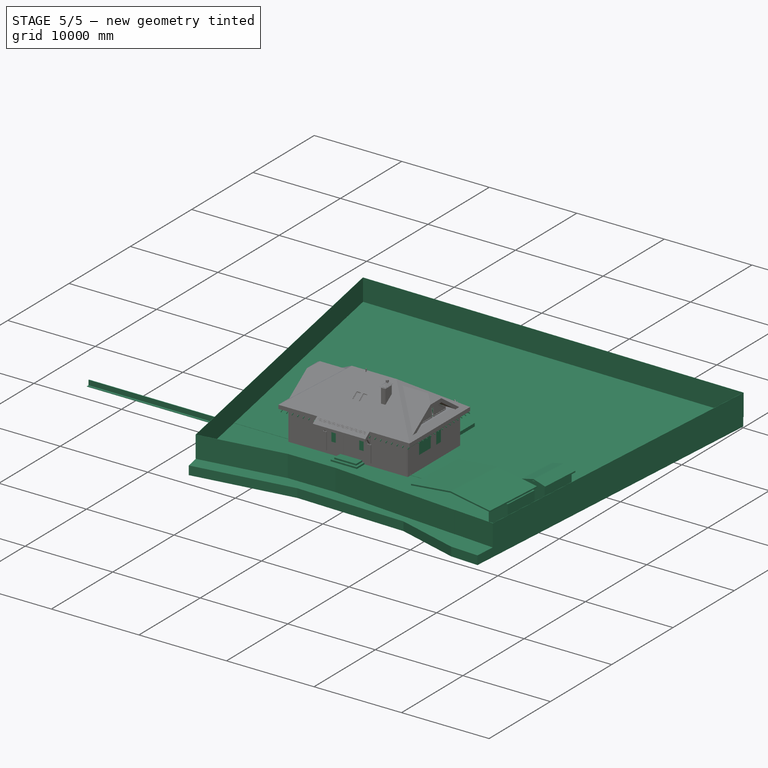
[diagram: stage 5 of 5 — iso view after this stage's code; geometry added in this stage tinted green]
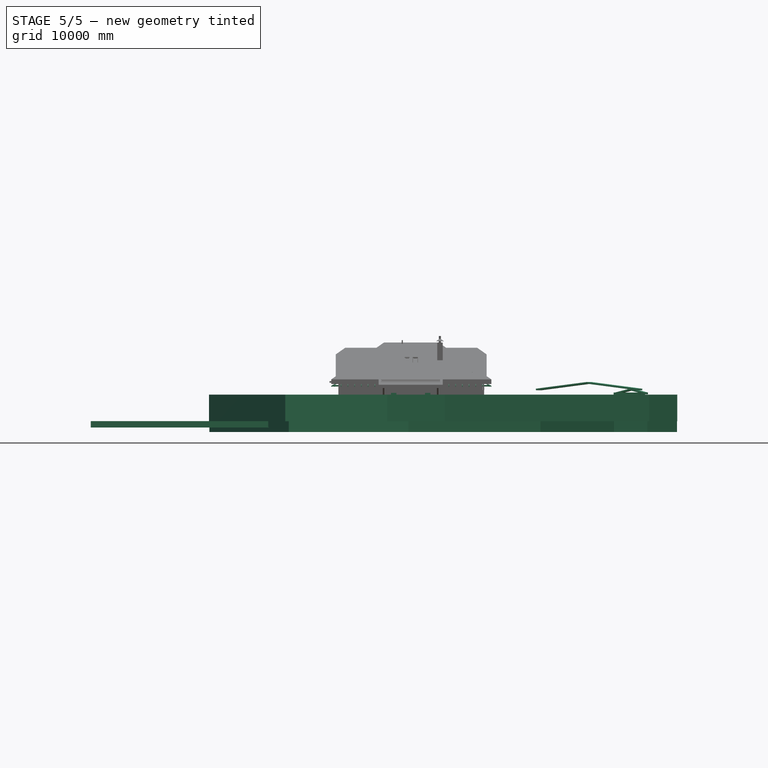
[diagram: stage 5 of 5 — front view after this stage's code; geometry added in this stage tinted green]
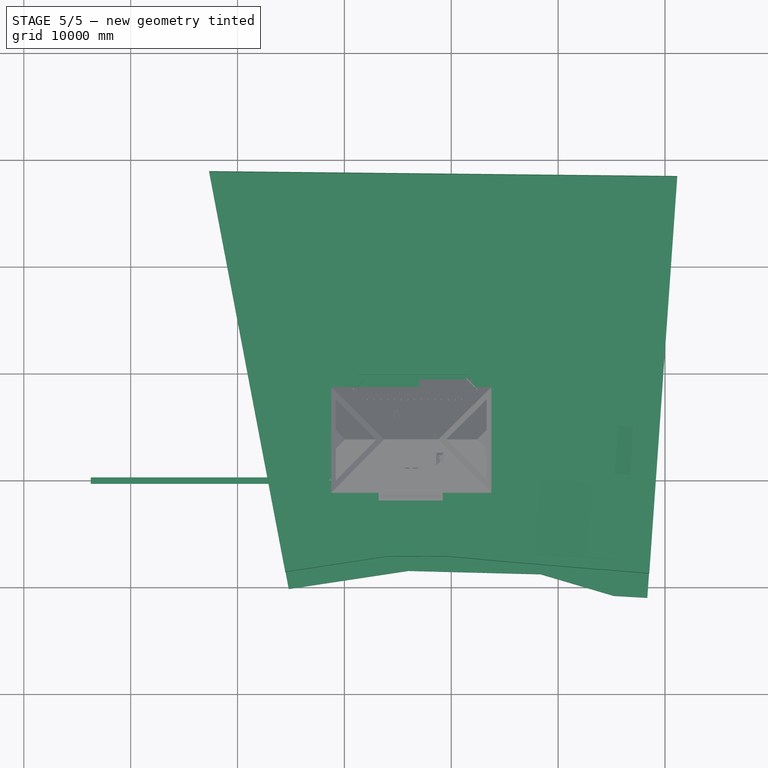
[diagram: stage 5 of 5 — top view after this stage's code; geometry added in this stage tinted green]
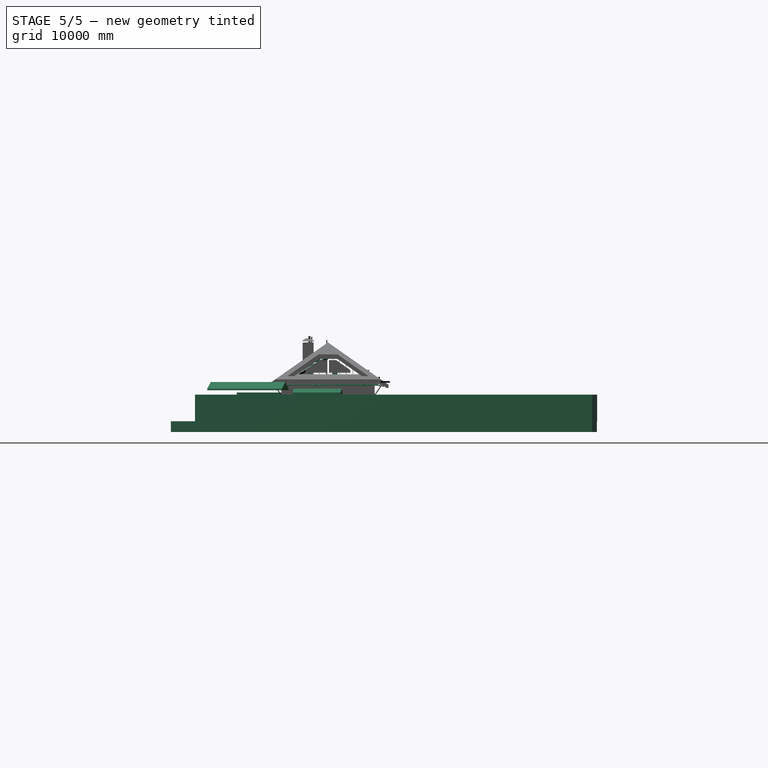
[diagram: stage 5 of 5 — right view after this stage's code; geometry added in this stage tinted green]
FEATURE [Part::Part2DObjectPython] Line1049  # Draft 2D object (typed FeaturePython)
  ChamferSize = 0
  Closed = true
  End = (-50,3665,0)
  FilletRadius = 0
  Length = 12620
  MakeFace = false
  Placement = pos=(4290,10385,0) rot=(0,0,1;1.5708rad)
  Points = (2) [(-6720,-8280,0),(-6720,4340,0)]
  Start = (12570,3665,0)
  Subdivisions = 0
FEATURE [Part::Part2DObjectPython] Line1054  # Draft 2D object (typed FeaturePython)
  ChamferSize = 0
  Closed = true
  End = (4870,7490,0)
  FilletRadius = 0
  Length = 3700
  MakeFace = false
  Placement = pos=(9650,5690,0) rot=(0,0,1;0rad)
  Points = (2) [(-4780,-1900,0),(-4780,1800,0)]
  Start = (4870,3790,0)
  Subdivisions = 0
FEATURE [Sketcher::SketchObject] Sketch231  label="Профиль ПНО 120-8"
  FullyConstrained = false
  Placement = pos=(0,0,0) rot=(1,0,0;1.5708rad)
  sketch-geometry (19):
    g0: LineSegment StartX=0 StartY=0 StartZ=0 EndX=1190 EndY=0 EndZ=0
    g1: LineSegment StartX=1190 StartY=0 StartZ=0 EndX=1190 EndY=160 EndZ=0
    g2: LineSegment StartX=1190 StartY=160 StartZ=0 EndX=0 EndY=160 EndZ=0
    g3: LineSegment StartX=0 StartY=160 StartZ=0 EndX=0 EndY=0 EndZ=0
    g4: Circle CenterX=100 CenterY=80 CenterZ=0 NormalX=0 NormalY=0 NormalZ=1 AngleXU=0 Radius=50
    g5: Circle CenterX=240 CenterY=80 CenterZ=0 NormalX=0 NormalY=0 NormalZ=1 AngleXU=0 Radius=50
    g6: LineSegment StartX=100 StartY=80 StartZ=0 EndX=240 EndY=80 EndZ=0
    g7: Circle CenterX=380 CenterY=80 CenterZ=0 NormalX=0 NormalY=0 NormalZ=1 AngleXU=0 Radius=50
    g8: LineSegment StartX=240 StartY=80 StartZ=0 EndX=380 EndY=80 EndZ=0
    g9: Circle CenterX=520 CenterY=80 CenterZ=0 NormalX=0 NormalY=0 NormalZ=1 AngleXU=0 Radius=50
    g10: LineSegment StartX=380 StartY=80 StartZ=0 EndX=520 EndY=80 EndZ=0
    g11: Circle CenterX=660 CenterY=80 CenterZ=0 NormalX=0 NormalY=0 NormalZ=1 AngleXU=0 Radius=50
    g12: LineSegment StartX=520 StartY=80 StartZ=0 EndX=660 EndY=80 EndZ=0
    g13: Circle CenterX=800 CenterY=80 CenterZ=0 NormalX=0 NormalY=0 NormalZ=1 AngleXU=0 Radius=50
    g14: LineSegment StartX=660 StartY=80 StartZ=0 EndX=800 EndY=80 EndZ=0
    g15: Circle CenterX=940 CenterY=80 CenterZ=0 NormalX=0 NormalY=0 NormalZ=1 AngleXU=0 Radius=50
    g16: LineSegment StartX=800 StartY=80 StartZ=0 EndX=940 EndY=80 EndZ=0
    g17: Circle CenterX=1080 CenterY=80 CenterZ=0 NormalX=0 NormalY=0 NormalZ=1 AngleXU=0 Radius=50
    g18: LineSegment StartX=940 StartY=80 StartZ=0 EndX=1080 EndY=80 EndZ=0
  constraints (49):
    c: Coincident(g0,g1)
    c: Coincident(g1,g2)
    c: Coincident(g2,g3)
    c: Coincident(g3,g0)
    c: Horizontal(g0)
    c: Horizontal(g2)
    c: Vertical(g1)
    c: Vertical(g3)
    c: Coincident(g0,g-1)
    c: DistanceY(g3,g3) = 160
    c: DistanceX(g2,g2) = 1190
    c: Diameter(g4) = 100
    c: DistanceY(g4,g2) = 80
    c: Diameter(g5) = 100
    c: Coincident(g4,g6)
    c: Coincident(g5,g6)
    c: Distance(g6) = 140
    c: Angle(g6) = 0
    c: Diameter(g7) = 100
    c: Coincident(g5,g8)
    c: Coincident(g7,g8)
    c: Equal(g6,g8)
    c: Parallel(g8,g6)
    c: Diameter(g9) = 100
    c: Coincident(g7,g10)
    c: Coincident(g9,g10)
    c: Equal(g6,g10)
    c: Parallel(g10,g6)
    c: Diameter(g11) = 100
    c: Coincident(g9,g12)
    c: Coincident(g11,g12)
    c: Equal(g6,g12)
    c: Parallel(g12,g6)
    c: Diameter(g13) = 100
    c: Coincident(g11,g14)
    c: Coincident(g13,g14)
    c: Equal(g6,g14)
    c: Parallel(g14,g6)
    c: Diameter(g15) = 100
    c: Coincident(g13,g16)
    c: Coincident(g15,g16)
    c: Equal(g6,g16)
    c: Parallel(g16,g6)
    c: Diameter(g17) = 100
    c: Coincident(g15,g18)
    c: Coincident(g17,g18)
    c: Equal(g6,g18)
    c: Parallel(g18,g6)
    c: DistanceX(g2,g4) = 100
FEATURE [Sketcher::SketchObject] Sketch236
  FullyConstrained = true
  Placement = pos=(5700,-540,-46) rot=(1,0,0;1.5708rad)
  sketch-geometry (16):
    g0: LineSegment StartX=0 StartY=0 StartZ=0 EndX=1000 EndY=0 EndZ=0
    g1: LineSegment StartX=1000 StartY=0 StartZ=0 EndX=1000 EndY=2310 EndZ=0
    g2: LineSegment StartX=1000 StartY=2310 StartZ=0 EndX=0 EndY=2310 EndZ=0
    g3: LineSegment StartX=0 StartY=2310 StartZ=0 EndX=0 EndY=0 EndZ=0
    g4: LineSegment StartX=50 StartY=0 StartZ=0 EndX=950 EndY=0 EndZ=0
    g5: LineSegment StartX=950 StartY=0 StartZ=0 EndX=950 EndY=2260 EndZ=0
    g6: LineSegment StartX=950 StartY=2260 StartZ=0 EndX=50 EndY=2260 EndZ=0
    g7: LineSegment StartX=50 StartY=2260 StartZ=0 EndX=50 EndY=0 EndZ=0
    g8: LineSegment StartX=55 StartY=5 StartZ=0 EndX=945 EndY=5 EndZ=0
    g9: LineSegment StartX=945 StartY=5 StartZ=0 EndX=945 EndY=2255 EndZ=0
    g10: LineSegment StartX=945 StartY=2255 StartZ=0 EndX=55 EndY=2255 EndZ=0
    g11: LineSegment StartX=55 StartY=2255 StartZ=0 EndX=55 EndY=5 EndZ=0
    g12: LineSegment StartX=455 StartY=1205 StartZ=0 EndX=545 EndY=1205 EndZ=0
    g13: LineSegment StartX=545 StartY=1205 StartZ=0 EndX=545 EndY=2055 EndZ=0
    g14: LineSegment StartX=545 StartY=2055 StartZ=0 EndX=455 EndY=2055 EndZ=0
    g15: LineSegment StartX=455 StartY=2055 StartZ=0 EndX=455 EndY=1205 EndZ=0
  constraints (47):
    c: Coincident(g0,g1)
    c: Coincident(g1,g2)
    c: Coincident(g2,g3)
    c: Coincident(g3,g0)
    c: Horizontal(g0)
    c: Horizontal(g2)
    c: Vertical(g1)
    c: Vertical(g3)
    c: Coincident(g4,g5)
    c: Coincident(g5,g6)
    c: Coincident(g6,g7)
    c: Coincident(g7,g4)
    c: Horizontal(g4)
    c: Horizontal(g6)
    c: Vertical(g5)
    c: Vertical(g7)
    c: DistanceY(g1) = 2310  'Height'
    c: DistanceX(g0) = 1000  'Width'
    c: DistanceY(g6,g2) = 50  'Frame1'
    c: DistanceX(g2,g6) = 50  'Frame2'
    c: DistanceX(g4,g0) = 50  'Frame3'
    c: DistanceY(g0,g4) = 0
    c: Coincident(g0,g-1)
    c: Coincident(g8,g9)
    c: Coincident(g9,g10)
    c: Coincident(g10,g11)
    c: Coincident(g11,g8)
    c: Horizontal(g8)
    c: Horizontal(g10)
    c: Vertical(g9)
    c: Vertical(g11)
    c: Coincident(g12,g13)
    c: Coincident(g13,g14)
    c: Coincident(g14,g15)
    c: Coincident(g15,g12)
    c: Horizontal(g12)
    c: Horizontal(g14)
    c: Vertical(g13)
    c: Vertical(g15)
    c: DistanceX(g8,g12) = 400
    c: DistanceY(g8,g12) = 1200
    c: DistanceX(g14,g10) = 400
    c: DistanceY(g14,g10) = 200
    c: DistanceX(g4,g8) = 5
    c: DistanceY(g4,g8) = 5
    c: DistanceX(g10,g6) = 5
    c: DistanceY(g10,g6) = 5
FEATURE [Part::Part2DObjectPython] Line1074  label="ось фундамента внутр.стены"  # Draft 2D object (typed FeaturePython)
  ChamferSize = 0
  Closed = true
  End = (3855,9350,0)
  FilletRadius = 0
  Length = 5200
  MakeFace = false
  Placement = pos=(2155,2900,0) rot=(0,0,1;1.5708rad)
  Points = (2) [(1250,-1700,0),(6450,-1700,0)]
  Start = (3855,4150,0)
  Subdivisions = 0
FEATURE [Part::FeaturePython] Wall037  label="фундамент внутр.стена01"  # Arch/BIM 166 (typed FeaturePython)
  Align = 2
  Area = 2.6e+06
  Base = -> Line1074
  BlockHeight = 0
  BlockLength = 0
  CountBroken = 0
  CountEntire = 0
  Face = 0
  Height = 500
  HorizontalArea = 1.3e+06
  IfcType = 166
  Joint = 0
  Length = 5200
  MakeBlocks = false
  MoveBase = false
  MoveWithHost = false
  Normal = (0,0,-1)
  OffsetFirst = 0
  OffsetSecond = 0
  PerimeterLength = 10900
  Placement = pos=(0,0,-180) rot=(0,0,1;0rad)
  PredefinedType = 0
  VerticalArea = 5.45e+06
  Width = 250
FEATURE [Part::FeaturePython] Wall046  label="утепл фунд. внешней.стены 002"  # Arch/BIM 166 (typed FeaturePython)
  Align = 1
  Area = 28488000
  BlockHeight = 600
  BlockLength = 600
  CountBroken = 1
  CountEntire = 0
  Face = 0
  Height = 600
  HorizontalArea = 3798400
  IfcType = 166
  Joint = 1
  Length = 47480
  MakeBlocks = true
  MoveBase = false
  MoveWithHost = false
  Normal = (0,0,-1)
  OffsetFirst = 0
  OffsetSecond = 0
  PerimeterLength = 95120
  Placement = pos=(0,0,-380) rot=(0,0,1;0rad)
  PredefinedType = 0
  VerticalArea = 57072000
  Width = 80
FEATURE [Part::FeaturePython] Wall047  label="утепл отмостки 001"  # Arch/BIM 166 (typed FeaturePython)
  Align = 1
  Area = 2374000
  BlockHeight = 600
  BlockLength = 1200
  CountBroken = 1
  CountEntire = 0
  Face = 0
  Height = 50
  HorizontalArea = 28488000
  IfcType = 166
  Joint = 1
  Length = 47480
  MakeBlocks = true
  MoveBase = false
  MoveWithHost = false
  Normal = (0,0,-1)
  Offset = 80
  OffsetFirst = 0
  OffsetSecond = 0
  PerimeterLength = 96160
  Placement = pos=(0,0,-930) rot=(0,0,1;0rad)
  PredefinedType = 0
  VerticalArea = 4808000
  Width = 600
FEATURE [Part::Part2DObjectPython] Circle071  # Draft 2D object (typed FeaturePython)
  FirstAngle = 0
  LastAngle = 0
  MakeFace = false
  Placement = pos=(8500,900,0) rot=(0,0,1;0rad)
  Radius = 580
FEATURE [Part::Part2DObjectPython] Circle072  # Draft 2D object (typed FeaturePython)
  FirstAngle = 0
  LastAngle = 0
  MakeFace = false
  Placement = pos=(8500,900,0) rot=(0,0,1;0rad)
  Radius = 500
FEATURE [Part::Part2DObjectPython] Circle073  label="люк_контур 001"  # Draft 2D object (typed FeaturePython)
  FirstAngle = 0
  LastAngle = 0
  MakeFace = false
  Placement = pos=(8500,1000,0) rot=(0,0,1;0rad)
  Radius = 350
FEATURE [Part::FeaturePython] Structure041  label="кольцо с днищем ДК-10.9 внутр."  # Arch/BIM 52 (typed FeaturePython)
  Base = -> Circle072
  FaceMaker = 0
  Height = 800
  HorizontalArea = 785398
  IfcData = complex_attributes={"OwnerHistory": {}, "IsNestedBy": {}, "IsDecomposedBy": {}, "IsDefinedBy": {}, "ObjectPlacement": {}, "Representation":... (+4 chars omitted)
  IfcType = 52
  Length = 0
  MoveBase = false
  MoveWithHost = false
  Nodes = (2) [(8500,900,0),(8500,900,-800)]
  NodesOffset = 0
  Normal = (0,0,-1)
  PerimeterLength = 3141.59
  Placement = pos=(0,0,-300) rot=(0,0,1;0rad)
  VerticalArea = 2.51327e+06
  Width = 100
FEATURE [Part::FeaturePython] Structure040  label="кольцо с днищем ДК-10.9 габарит"  # Arch/BIM 52 (typed FeaturePython)
  Base = -> Circle071
  FaceMaker = 0
  Height = 900
  HorizontalArea = 1.05683e+06
  IfcData = complex_attributes={"OwnerHistory": {}, "IsNestedBy": {}, "IsDecomposedBy": {}, "IsDefinedBy": {}, "ObjectPlacement": {}, "Representation":... (+4 chars omitted)
  IfcType = 52
  Length = 0
  MoveBase = false
  MoveWithHost = false
  Nodes = (2) [(8500,900,0),(8500,900,-900)]
  NodesOffset = 0
  Normal = (0,0,-1)
  PerimeterLength = 3644.25
  Placement = pos=(0,0,-300) rot=(0,0,1;0rad)
  Subtractions = -> [Structure041]
  VerticalArea = 5.7931e+06
  Width = 100
FEATURE [Part::FeaturePython] Structure044  label="люк контур Д700"  # Arch/BIM 52 (typed FeaturePython)
  Base = -> Circle073
  FaceMaker = 0
  Height = 300
  HorizontalArea = 384845
  IfcData = complex_attributes={"OwnerHistory": {}, "IsNestedBy": {}, "IsDecomposedBy": {}, "IsDefinedBy": {}, "ObjectPlacement": {}, "Representation":... (+4 chars omitted)
  IfcType = 52
  Length = 0
  MoveBase = false
  MoveWithHost = false
  Nodes = (2) [(8500,1000,0),(8500,1000,-300)]
  NodesOffset = 0
  Normal = (0,0,-1)
  PerimeterLength = 2199.11
  VerticalArea = 659734
  Width = 100
FEATURE [Part::FeaturePython] Structure043  label="крышка ПП10"  # Arch/BIM 52 (typed FeaturePython)
  Base = -> Circle071
  FaceMaker = 0
  Height = 100
  HorizontalArea = 671987
  IfcData = complex_attributes={"OwnerHistory": {}, "IsNestedBy": {}, "IsDecomposedBy": {}, "IsDefinedBy": {}, "ObjectPlacement": {}, "Representation":... (+4 chars omitted)
  IfcType = 52
  Length = 0
  MoveBase = false
  MoveWithHost = false
  Nodes = (2) [(8500,900,0),(8500,900,-100)]
  NodesOffset = 0
  Normal = (0,0,-1)
  PerimeterLength = 3644.25
  Placement = pos=(0,0,-200) rot=(0,0,1;0rad)
  Subtractions = -> [Structure044]
  VerticalArea = 584336
  Width = 100
FEATURE [App::GeometryPython] BuildingPart015  label="Колодец d1000 (ввод воды и канализации)"  # Arch/BIM 52 (typed FeaturePython)
  Area = 0
  Group = -> [Structure040,Structure043]
  Height = 0
  HeightPropagate = true
  IfcData = complex_attributes={"OwnerHistory": {}, "IsNestedBy": {}, "IsDecomposedBy": {}, "IsDefinedBy": {}, "ObjectPlacement": {}, "Representation":... (+4 chars omitted)
  IfcType = 52
  LevelOffset = 0
FEATURE [Part::Part2DObjectPython] Line1077  # Draft 2D object (typed FeaturePython)
  ChamferSize = 0
  Closed = true
  End = (-50,-30,0)
  FilletRadius = 0
  Length = 12620
  MakeFace = false
  Placement = pos=(12060,280,0) rot=(0,0,1;0rad)
  Points = (2) [(510,-310,0),(-12110,-310,0)]
  Start = (12570,-30,0)
  Subdivisions = 0
FEATURE [Part::Part2DObjectPython] Rectangle2286  # Draft 2D object (typed FeaturePython)
  ChamferSize = 0
  Columns = 1
  FilletRadius = 0
  Height = 5190
  Length = 9350
  MakeFace = false
  Placement = pos=(1950,2210,0) rot=(0,0,1;0rad)
  Rows = 1
FEATURE [Part::FeaturePython] Structure048  label="вычитаемый объём 001"  # Arch/BIM 52 (typed FeaturePython)
  FaceMaker = 0
  Height = 4000
  HorizontalArea = 5.56586e+07
  IfcData = complex_attributes={"OwnerHistory": {}, "IsNestedBy": {}, "IsDecomposedBy": {}, "IsDefinedBy": {}, "ObjectPlacement": {}, "Representation":... (+4 chars omitted)
  IfcType = 52
  Length = 0
  MoveBase = false
  MoveWithHost = false
  Nodes = (2) [(6625,8181.9,0),(6625,8181.9,4000)]
  NodesOffset = 0
  Normal = (0,0,1)
  PerimeterLength = 35673
  Placement = pos=(0,0,3160) rot=(0,0,1;0rad)
  VerticalArea = 1.42692e+08
  Width = 100
FEATURE [Part::FeaturePython] Structure049  label="вычитаемый объём 002"  # Arch/BIM 52 (typed FeaturePython)
  FaceMaker = 0
  Height = 4000
  HorizontalArea = 3.20922e+07
  IfcData = complex_attributes={"OwnerHistory": {}, "IsNestedBy": {}, "IsDecomposedBy": {}, "IsDefinedBy": {}, "ObjectPlacement": {}, "Representation":... (+4 chars omitted)
  IfcType = 52
  Length = 0
  MoveBase = false
  MoveWithHost = false
  Nodes = (2) [(506.667,3830,0),(506.667,3830,4000)]
  NodesOffset = 0
  Normal = (0,0,1)
  PerimeterLength = 27353
  Placement = pos=(0,0,3160) rot=(0,0,1;0rad)
  VerticalArea = 1.09412e+08
  Width = 100
FEATURE [Part::FeaturePython] Structure050  label="вычитаемый объём 004"  # Arch/BIM 52 (typed FeaturePython)
  FaceMaker = 0
  Height = 4000
  HorizontalArea = 5.56586e+07
  IfcData = complex_attributes={"OwnerHistory": {}, "IsNestedBy": {}, "IsDecomposedBy": {}, "IsDefinedBy": {}, "ObjectPlacement": {}, "Representation":... (+4 chars omitted)
  IfcType = 52
  Length = 0
  MoveBase = false
  MoveWithHost = false
  Nodes = (2) [(6040,886.738,0),(6040,886.738,4000)]
  NodesOffset = 0
  Normal = (0,0,1)
  PerimeterLength = 35673
  Placement = pos=(0,0,3160) rot=(0,0,1;0rad)
  VerticalArea = 1.42692e+08
  Width = 100
FEATURE [Part::FeaturePython] Structure051  label="вычитаемый объём 003"  # Arch/BIM 52 (typed FeaturePython)
  FaceMaker = 0
  Height = 4000
  HorizontalArea = 32092225
  IfcData = complex_attributes={"OwnerHistory": {}, "IsNestedBy": {}, "IsDecomposedBy": {}, "IsDefinedBy": {}, "ObjectPlacement": {}, "Representation":... (+4 chars omitted)
  IfcType = 52
  Length = 0
  MoveBase = false
  MoveWithHost = false
  Nodes = (2) [(12481.7,4805,0),(12481.7,4805,4000)]
  NodesOffset = 0
  Normal = (0,0,1)
  PerimeterLength = 27353
  Placement = pos=(0,0,3160) rot=(0,0,1;0rad)
  VerticalArea = 1.09412e+08
  Width = 100
FEATURE [App::FeaturePython] Dimension003  # Draft dimension (typed FeaturePython)
  Diameter = false
  Dimline = (14000,-1000,0)
  Direction = (0,0,0)
  Distance = 8540
  End = (13080,8000,0)
  Normal = (0,0,1)
  Start = (13080,-540,0)
FEATURE [Sketcher::SketchObject] Sketch248
  FullyConstrained = true
  Placement = pos=(3800,3810,0) rot=(1,0,0;1.5708rad)
  sketch-geometry (8):
    g0: LineSegment StartX=0 StartY=0 StartZ=0 EndX=900 EndY=0 EndZ=0
    g1: LineSegment StartX=900 StartY=0 StartZ=0 EndX=900 EndY=2150 EndZ=0
    g2: LineSegment StartX=900 StartY=2150 StartZ=0 EndX=0 EndY=2150 EndZ=0
    g3: LineSegment StartX=0 StartY=2150 StartZ=0 EndX=0 EndY=0 EndZ=0
    g4: LineSegment StartX=50 StartY=0 StartZ=0 EndX=850 EndY=0 EndZ=0
    g5: LineSegment StartX=850 StartY=0 StartZ=0 EndX=850 EndY=2100 EndZ=0
    g6: LineSegment StartX=850 StartY=2100 StartZ=0 EndX=50 EndY=2100 EndZ=0
    g7: LineSegment StartX=50 StartY=2100 StartZ=0 EndX=50 EndY=0 EndZ=0
  constraints (23):
    c: Coincident(g0,g1)
    c: Coincident(g1,g2)
    c: Coincident(g2,g3)
    c: Coincident(g3,g0)
    c: Horizontal(g0)
    c: Horizontal(g2)
    c: Vertical(g1)
    c: Vertical(g3)
    c: Coincident(g4,g5)
    c: Coincident(g5,g6)
    c: Coincident(g6,g7)
    c: Coincident(g7,g4)
    c: Horizontal(g4)
    c: Horizontal(g6)
    c: Vertical(g5)
    c: Vertical(g7)
    c: DistanceY(g1) = 2150  'Height'
    c: DistanceX(g0) = 900  'Width'
    c: DistanceY(g6,g2) = 50  'Frame1'
    c: DistanceX(g2,g6) = 50  'Frame2'
    c: DistanceX(g4,g0) = 50  'Frame3'
    c: DistanceY(g0,g4) = 0
    c: Coincident(g0,g-1)
FEATURE [Sketcher::SketchObject] Sketch249  label="Профиль ПНО 100-6"
  FullyConstrained = false
  Placement = pos=(0,0,0) rot=(1,0,0;1.5708rad)
  sketch-geometry (15):
    g0: LineSegment StartX=0 StartY=0 StartZ=0 EndX=990 EndY=0 EndZ=0
    g1: LineSegment StartX=990 StartY=0 StartZ=0 EndX=990 EndY=160 EndZ=0
    g2: LineSegment StartX=990 StartY=160 StartZ=0 EndX=0 EndY=160 EndZ=0
    g3: LineSegment StartX=0 StartY=160 StartZ=0 EndX=0 EndY=0 EndZ=0
    g4: Circle CenterX=145 CenterY=80 CenterZ=0 NormalX=0 NormalY=0 NormalZ=1 AngleXU=0 Radius=50
    g5: Circle CenterX=285 CenterY=80 CenterZ=0 NormalX=0 NormalY=0 NormalZ=1 AngleXU=0 Radius=50
    g6: LineSegment StartX=145 StartY=80 StartZ=0 EndX=285 EndY=80 EndZ=0
    g7: Circle CenterX=425 CenterY=80 CenterZ=0 NormalX=0 NormalY=0 NormalZ=1 AngleXU=0 Radius=50
    g8: LineSegment StartX=285 StartY=80 StartZ=0 EndX=425 EndY=80 EndZ=0
    g9: Circle CenterX=565 CenterY=80 CenterZ=0 NormalX=0 NormalY=0 NormalZ=1 AngleXU=0 Radius=50
    g10: LineSegment StartX=425 StartY=80 StartZ=0 EndX=565 EndY=80 EndZ=0
    g11: Circle CenterX=705 CenterY=80 CenterZ=0 NormalX=0 NormalY=0 NormalZ=1 AngleXU=0 Radius=50
    g12: LineSegment StartX=565 StartY=80 StartZ=0 EndX=705 EndY=80 EndZ=0
    g13: Circle CenterX=845 CenterY=80 CenterZ=0 NormalX=0 NormalY=0 NormalZ=1 AngleXU=0 Radius=50
    g14: LineSegment StartX=705 StartY=80 StartZ=0 EndX=845 EndY=80 EndZ=0
  constraints (39):
    c: Coincident(g0,g1)
    c: Coincident(g1,g2)
    c: Coincident(g2,g3)
    c: Coincident(g3,g0)
    c: Horizontal(g0)
    c: Horizontal(g2)
    c: Vertical(g1)
    c: Vertical(g3)
    c: Coincident(g0,g-1)
    c: DistanceY(g3,g3) = 160
    c: DistanceX(g2,g2) = 990
    c: Diameter(g4) = 100
    c: DistanceY(g4,g2) = 80
    c: Diameter(g5) = 100
    c: Coincident(g4,g6)
    c: Coincident(g5,g6)
    c: Distance(g6) = 140
    c: Angle(g6) = 0
    c: Diameter(g7) = 100
    c: Coincident(g5,g8)
    c: Coincident(g7,g8)
    c: Equal(g6,g8)
    c: Parallel(g8,g6)
    c: Diameter(g9) = 100
    c: Coincident(g7,g10)
    c: Coincident(g9,g10)
    c: Equal(g6,g10)
    c: Parallel(g10,g6)
    c: Diameter(g11) = 100
    c: Coincident(g9,g12)
    c: Coincident(g11,g12)
    c: Equal(g6,g12)
    c: Parallel(g12,g6)
    c: Diameter(g13) = 100
    c: Coincident(g11,g14)
    c: Coincident(g13,g14)
    c: Equal(g6,g14)
    c: Parallel(g14,g6)
    c: DistanceX(g2,g4) = 145
FEATURE [Part::Part2DObjectPython] Wire460  label="границы участка"  # Draft 2D object (typed FeaturePython)
  ChamferSize = 0
  Closed = true
  End = (31124.9,28433.6,0)
  FilletRadius = 0
  Length = 156987
  MakeFace = false
  Placement = pos=(28345.4,-10972.9,0) rot=(0,0,1;0rad)
  Points = (7) [(0,0,0),(-3118.22,176.296,0),(-9989.98,2199.83,0),(-22349.9,2518.26,0),(-33551.4,825.818,0),(-40981.4,39865.2,0),(2779.54,39406.5,0)]
  Start = (28345.4,-10972.9,0)
  Subdivisions = 0
FEATURE [Part::Part2DObjectPython] Rectangle2365  label="зона парковки-навес"  # Draft 2D object (typed FeaturePython)
  ChamferSize = 0
  Columns = 1
  FilletRadius = 0
  Height = 7000
  Length = 7000
  MakeFace = false
  Placement = pos=(17916.6,-6918.81,0) rot=(0,0,-1;0.068796rad)
  Rows = 1
FEATURE [Part::FeaturePython] Structure132  label="парковка"  # Arch/BIM 52 (typed FeaturePython)
  Base = -> Rectangle2365
  FaceMaker = 0
  Height = 100
  HorizontalArea = 4.9e+07
  IfcData = complex_attributes={"OwnerHistory": {}, "IsNestedBy": {}, "IsDecomposedBy": {}, "IsDefinedBy": {}, "ObjectPlacement": {}, "Representation":... (+4 chars omitted)
  IfcType = 52
  Length = 0
  MoveBase = false
  MoveWithHost = false
  Nodes = (2) [(21648.9,-3667.68,0),(21648.9,-3667.68,-100)]
  NodesOffset = 0
  Normal = (0,0,-1)
  PerimeterLength = 28000
  Placement = pos=(0,0,-300) rot=(0,0,1;0rad)
  VerticalArea = 2.8e+06
  Width = 100
FEATURE [Part::Part2DObjectPython] Wire463  label="граница по ограждению"  # Draft 2D object (typed FeaturePython)
  ChamferSize = 0
  Closed = true
  End = (9400,-7084.9,0)
  FilletRadius = 0
  Length = 153279
  MakeFace = false
  Placement = pos=(28492.8,-8682.66,0) rot=(0,0,1;0rad)
  Points = (6) [(14.0233,-1.17368,0),(2632.1,37116.3,0),(-41128.8,37575,0),(-34003,133.748,0),(-24492.8,1579.34,0),(-19092.8,1597.76,0)]
  Start = (28506.9,-8683.84,0)
  Subdivisions = 0
FEATURE [Part::FeaturePython] Structure133  label="грунт в границах участка"  # Arch/BIM 52 (typed FeaturePython)
  Base = -> Wire460
  FaceMaker = 0
  Height = 1000
  HorizontalArea = 1.47224e+09
  IfcData = complex_attributes={"OwnerHistory": {}, "IsNestedBy": {}, "IsDecomposedBy": {}, "IsDefinedBy": {}, "ObjectPlacement": {}, "Representation":... (+4 chars omitted)
  IfcType = 52
  Length = 0
  MoveBase = false
  MoveWithHost = false
  Nodes = (2) [(10380.4,10482.9,0),(10380.4,10482.9,-1000)]
  NodesOffset = 0
  Normal = (0,0,-1)
  PerimeterLength = 156987
  Placement = pos=(0,0,-400) rot=(0,0,1;0rad)
  VerticalArea = 1.56987e+08
  Width = 100
FEATURE [Part::Part2DObjectPython] Wire464  label="мауэрлат003"  # Draft 2D object (typed FeaturePython)
  ChamferSize = 0
  Closed = true
  End = (18397.7,64.633,0)
  FilletRadius = 0
  Length = 33000
  MakeFace = false
  Placement = pos=(25199.8,-4643.63,0) rot=(0,0,-1;1.63959rad)
  Points = (4) [(2770.46,-7109.62,0),(2770.46,2390.38,0),(-4229.54,2390.38,0),(-4229.54,-7109.62,0)]
  Start = (17916.6,-6918.81,0)
  Subdivisions = 0
FEATURE [Part::Part2DObjectPython] Rectangle2375  # Draft 2D object (typed FeaturePython)
  ChamferSize = 0
  Columns = 1
  FilletRadius = 0
  Height = 150
  Length = 800
  MakeFace = true
  Placement = pos=(25395.7,-1800.37,0) rot=(0,0,-1;1.63959rad)
  Rows = 1
FEATURE [Part::Part2DObjectPython] Rectangle2376  # Draft 2D object (typed FeaturePython)
  ChamferSize = 0
  Columns = 1
  FilletRadius = 0
  Height = 150
  Length = 500
  MakeFace = true
  Placement = pos=(25296,-3246.94,0) rot=(0,0,-1;1.63959rad)
  Rows = 1
FEATURE [Part::Part2DObjectPython] Rectangle2377  # Draft 2D object (typed FeaturePython)
  ChamferSize = 0
  Columns = 1
  FilletRadius = 0
  Height = 2300
  Length = 4000
  MakeFace = false
  Placement = pos=(25474.8,-653.093,0) rot=(0,0,-1;1.63959rad)
  Rows = 1
FEATURE [Part::FeaturePython] Roof011  label="Крыша002"  # Arch/BIM 113 (typed FeaturePython)
  Angles = [90,7.5,90,7.5]
  Base = -> Wire464
  BorderLength = 33163.9
  Face = 0
  Flip = false
  Heights = [0,658.262,0,658.262]
  HorizontalArea = 6.65e+07
  IdRel = [0,0,0,0]
  IfcType = 113
  MoveBase = false
  MoveWithHost = false
  Overhang = [0,0,0,0]
  PerimeterLength = 33000
  Placement = pos=(0,0,2500) rot=(0,0,1;0rad)
  PredefinedType = 0
  RidgeLength = 7000
  Runs = [250,5000,250,5000]
  Thickness = [150,150,150,150]
  VerticalArea = 4.99271e+06
FEATURE [Part::FeaturePython] Structure135  label="Structure134"  # Arch/BIM 52 (typed FeaturePython)
  Base = -> Rectangle2375
  FaceMaker = 0
  Height = 1800
  HorizontalArea = 120000
  IfcData = complex_attributes={"OwnerHistory": {}, "IsNestedBy": {}, "IsDecomposedBy": {}, "IsDefinedBy": {}, "ObjectPlacement": {}, "Representation":... (+4 chars omitted)
  IfcType = 52
  Length = 0
  MoveBase = false
  MoveWithHost = false
  Nodes = (2) [(-35.6948,-25773.1,0),(-35.6948,-25773.1,1800)]
  NodesOffset = 0
  Normal = (0,0,0)
  PerimeterLength = 1900
  VerticalArea = 3.42e+06
  Width = 100
FEATURE [Part::FeaturePython] Structure136  label="Structure135"  # Arch/BIM 52 (typed FeaturePython)
  Base = -> Rectangle2376
  FaceMaker = 0
  Height = 600
  HorizontalArea = 75000
  IfcData = complex_attributes={"OwnerHistory": {}, "IsNestedBy": {}, "IsDecomposedBy": {}, "IsDefinedBy": {}, "ObjectPlacement": {}, "Representation":... (+4 chars omitted)
  IfcType = 52
  Length = 0
  MoveBase = false
  MoveWithHost = false
  Nodes = (2) [(1351.07,-25965.1,0),(1351.07,-25965.1,600)]
  NodesOffset = 0
  Normal = (0,0,0)
  PerimeterLength = 1300
  Placement = pos=(0,-4e-15,1240) rot=(0,0,1;0rad)
  VerticalArea = 780000
  Width = 100
FEATURE [Part::FeaturePython] Wall097  label="Wall007"  # Arch/BIM 166 (typed FeaturePython)
  Align = 1
  Area = 30870000
  Base = -> Rectangle2377
  BlockHeight = 0
  BlockLength = 0
  CountBroken = 0
  CountEntire = 0
  Face = 0
  Height = 2450
  HorizontalArea = 1.995e+06
  IfcType = 166
  Joint = 0
  Length = 12600
  MakeBlocks = false
  MoveBase = false
  MoveWithHost = false
  Normal = (0,0,0)
  OffsetFirst = 0
  OffsetSecond = 0
  PerimeterLength = 12600
  Placement = pos=(0,0,-150) rot=(0,0,1;0rad)
  PredefinedType = 0
  Subtractions = -> [Structure136,Structure135]
  VerticalArea = 5.604e+07
  Width = 150
FEATURE [App::GeometryPython] BuildingPart033  label="хозблок (бытовка)"  # Arch/BIM 10 (typed FeaturePython)
  Area = 30870000
  BuildingType = 0
  CompositionType = 0
  ElevationOfRefHeight = 0
  ElevationOfTerrain = 0
  Group = -> [Roof011,Wall097,Structure132]
  Height = 0
  HeightPropagate = true
  IfcType = 10
  LevelOffset = 0
  LongName = хозблок (бытовка)
FEATURE [Part::FeaturePython] Structure137  label="проём ворот"  # Arch/BIM 52 (typed FeaturePython)
  FaceMaker = 0
  Height = 2500
  HorizontalArea = 550000
  IfcData = complex_attributes={"OwnerHistory": {}, "IsNestedBy": {}, "IsDecomposedBy": {}, "IsDefinedBy": {}, "ObjectPlacement": {}, "Representation":... (+4 chars omitted)
  IfcType = 52
  Length = 0
  MoveBase = false
  MoveWithHost = false
  Nodes = (2) [(21172.6,-8270.08,0),(21172.6,-8270.08,2500)]
  NodesOffset = 0
  Normal = (0,0,0)
  PerimeterLength = 11200
  Placement = pos=(0,0,-400) rot=(0,0,1;0rad)
  VerticalArea = 2.8e+07
  Width = 100
FEATURE [Part::FeaturePython] Structure138  label="зона отката ворот ворот"  # Arch/BIM 52 (typed FeaturePython)
  FaceMaker = 0
  Height = 2500
  HorizontalArea = 550000
  IfcData = complex_attributes={"OwnerHistory": {}, "IsNestedBy": {}, "IsDecomposedBy": {}, "IsDefinedBy": {}, "ObjectPlacement": {}, "Representation":... (+4 chars omitted)
  IfcType = 52
  Length = 0
  MoveBase = false
  MoveWithHost = false
  Nodes = (2) [(21172.6,-8270.08,0),(21172.6,-8270.08,2500)]
  NodesOffset = 0
  Normal = (0,0,0)
  PerimeterLength = 11200
  Placement = pos=(-5480.84,458.658,-400) rot=(0,0,1;0rad)
  VerticalArea = 2.8e+07
  Width = 100
FEATURE [Part::Part2DObjectPython] Rectangle2380  # Draft 2D object (typed FeaturePython)
  ChamferSize = 0
  Columns = 1
  FilletRadius = 0
  Height = 50
  Length = 5500
  MakeFace = false
  Placement = pos=(18428,-7890.57,0) rot=(0,0,-1;0.083489rad)
  Rows = 1
FEATURE [Part::FeaturePython] Structure139  label="створка ворот"  # Arch/BIM 52 (typed FeaturePython)
  Base = -> Rectangle2380
  FaceMaker = 0
  Height = 2500
  HorizontalArea = 275000
  IfcData = complex_attributes={"OwnerHistory": {}, "IsNestedBy": {}, "IsDecomposedBy": {}, "IsDefinedBy": {}, "ObjectPlacement": {}, "Representation":... (+4 chars omitted)
  IfcType = 52
  Length = 0
  MoveBase = false
  MoveWithHost = false
  Nodes = (2) [(21172.6,-8270.08,0),(21172.6,-8270.08,2500)]
  NodesOffset = 0
  Normal = (0,0,0)
  PerimeterLength = 11100
  Placement = pos=(0,0,-400) rot=(0,0,1;0rad)
  VerticalArea = 2.775e+07
  Width = 100
FEATURE [App::GeometryPython] BuildingPart034  label="ворота откатные"  # Arch/BIM 52 (typed FeaturePython)
  Area = 0
  Group = -> [Structure138,Structure139]
  Height = 0
  HeightPropagate = true
  IfcData = complex_attributes={"OwnerHistory": {}, "IsNestedBy": {}, "IsDecomposedBy": {}, "IsDefinedBy": {}, "ObjectPlacement": {}, "Representation":... (+4 chars omitted)
  IfcType = 52
  LevelOffset = 0
FEATURE [Sketcher::SketchObject] Sketch250  label="Габарит человека"
  FullyConstrained = false
  Placement = pos=(0,0,0) rot=(1,0,0;1.5708rad)
  sketch-geometry (21):
    g0: LineSegment StartX=-250 StartY=0 StartZ=0 EndX=250 EndY=0 EndZ=0
    g1: LineSegment StartX=250 StartY=0 StartZ=0 EndX=250 EndY=1750 EndZ=0
    g2: LineSegment StartX=250 StartY=1750 StartZ=0 EndX=-250 EndY=1750 EndZ=0
    g3: LineSegment StartX=-250 StartY=1750 StartZ=0 EndX=-250 EndY=0 EndZ=0
    g4: LineSegment StartX=85 StartY=1500 StartZ=0 EndX=85 EndY=1750 EndZ=0
    g5: LineSegment StartX=85 StartY=1750 StartZ=0 EndX=-85 EndY=1750 EndZ=0
    g6: LineSegment StartX=-85 StartY=1750 StartZ=0 EndX=-85 EndY=1500 EndZ=0
    g7: LineSegment StartX=250 StartY=750 StartZ=0 EndX=250 EndY=1500 EndZ=0
    g8: LineSegment StartX=-250 StartY=1500 StartZ=0 EndX=-250 EndY=750 EndZ=0
    g9: LineSegment StartX=-110 StartY=0 StartZ=0 EndX=110 EndY=0 EndZ=0
    g10: LineSegment StartX=110 StartY=0 StartZ=0 EndX=175 EndY=750 EndZ=0
    g11: LineSegment StartX=-175 StartY=750 StartZ=0 EndX=-110 EndY=0 EndZ=0
    g12: GeomPoint X=0 Y=750 Z=0
    g13: GeomPoint X=-110 Y=0 Z=0
    g14: GeomPoint X=110 Y=0 Z=0
    g15: GeomPoint X=175 Y=750 Z=0
    g16: GeomPoint X=-175 Y=750 Z=0
    g17: LineSegment StartX=-250 StartY=1500 StartZ=0 EndX=-85 EndY=1500 EndZ=0
    g18: LineSegment StartX=85 StartY=1500 StartZ=0 EndX=250 EndY=1500 EndZ=0
    g19: LineSegment StartX=-250 StartY=750 StartZ=0 EndX=-175 EndY=750 EndZ=0
    g20: LineSegment StartX=175 StartY=750 StartZ=0 EndX=250 EndY=750 EndZ=0
  constraints (50):
    c: Coincident(g0,g1)
    c: Coincident(g1,g2)
    c: Coincident(g2,g3)
    c: Coincident(g3,g0)
    c: Horizontal(g0)
    c: Horizontal(g2)
    c: Vertical(g1)
    c: Vertical(g3)
    c: Symmetric(g0,g0,g-1)
    c: DistanceX(g2,g2) = 500
    c: DistanceY(g1,g1) = 1750
    c: Coincident(g4,g5)
    c: Coincident(g5,g6)
    c: Horizontal(g5)
    c: Vertical(g4)
    c: Vertical(g6)
    c: Vertical(g7)
    c: Vertical(g8)
    c: Coincident(g9,g10)
    c: DistanceX(g5,g5) = 170
    c: DistanceY(g4,g4) = 250
    c: PointOnObject(g4,g2)
    c: Symmetric(g6,g4,g-2)
    c: PointOnObject(g8,g3)
    c: PointOnObject(g7,g1)
    c: Coincident(g9,g11)
    c: DistanceX(g9,g9) = 220
    c: DistanceY(g0,g7) = 750
    c: PointOnObject(g12,g-2)
    c: Coincident(g13,g9)
    c: Coincident(g14,g9)
    c: Symmetric(g13,g14,g-2)
    c: PointOnObject(g14,g0)
    c: Coincident(g15,g10)
    c: Symmetric(g15,g16,g-2)
    c: DistanceX(g16,g15) = 350
    c: Coincident(g17,g8)
    c: Coincident(g17,g6)
    c: Horizontal(g17)
    c: Coincident(g18,g4)
    c: Coincident(g18,g7)
    c: Horizontal(g18)
    c: Coincident(g19,g8)
    c: Coincident(g19,g11)
    c: Horizontal(g19)
    c: Coincident(g20,g10)
    c: Coincident(g20,g7)
    c: Horizontal(g20)
    c: Equal(g19,g20)
    c: Equal(g11,g10)
FEATURE [Part::Extrusion] Extrude007  label="Габарит человека 001"
  Base = -> Sketch250
  Dir = (0,-1,2e-16)
  DirMode = 2
  FaceMakerClass = Part::FaceMakerBullseye
  LengthFwd = 290
  LengthRev = 0
  Placement = pos=(7375,4690,0) rot=(0,0,1;0rad)
  Solid = true
  Symmetric = false
FEATURE [Part::Extrusion] Extrude008  label="Габарит человека 002"
  Base = -> Sketch250
  Dir = (0,-1,2e-16)
  DirMode = 2
  FaceMakerClass = Part::FaceMakerBullseye
  LengthFwd = 290
  LengthRev = 0
  Placement = pos=(6300,5845,0) rot=(0,0,1;0rad)
  Solid = true
  Symmetric = false
FEATURE [Part::Part2DObjectPython] Rectangle2381  # Draft 2D object (typed FeaturePython)
  ChamferSize = 0
  Columns = 1
  FilletRadius = 0
  Height = 1250
  Length = 2500
  MakeFace = false
  Placement = pos=(5375,-1520,0) rot=(0,0,1;0rad)
  Rows = 1
FEATURE [Part::FeaturePython] Structure140  label="габарит крыльца001"  # Arch/BIM 52 (typed FeaturePython)
  Base = -> Rectangle2381
  FaceMaker = 0
  Height = 180
  HorizontalArea = 3125000
  IfcData = complex_attributes={"OwnerHistory": {}, "IsNestedBy": {}, "IsDecomposedBy": {}, "IsDefinedBy": {}, "ObjectPlacement": {}, "Representation":... (+4 chars omitted)
  IfcType = 52
  Length = 0
  MoveBase = false
  MoveWithHost = false
  Nodes = (2) [(5975,-1250,0),(5975,-1250,-350)]
  NodesOffset = 0
  Normal = (0,0,-1)
  PerimeterLength = 7500
  Placement = pos=(0,0,-40) rot=(0,0,1;0rad)
  VerticalArea = 1350000
  Width = 100
FEATURE [Part::FeaturePython] Structure029  label="габарит крыльца"  # Arch/BIM 52 (typed FeaturePython)
  Additions = -> [Structure140]
  Base = -> Rectangle2234
  FaceMaker = 0
  Height = 180
  HorizontalArea = 4500000
  IfcData = complex_attributes={"OwnerHistory": {}, "IsNestedBy": {}, "IsDecomposedBy": {}, "IsDefinedBy": {}, "ObjectPlacement": {}, "Representation":... (+4 chars omitted)
  IfcType = 52
  Length = 0
  MoveBase = false
  MoveWithHost = false
  Nodes = (2) [(5975,-1250,0),(5975,-1250,-350)]
  NodesOffset = 0
  Normal = (0,0,-1)
  PerimeterLength = 9000
  Placement = pos=(0,0,-220) rot=(0,0,1;0rad)
  VerticalArea = 2970000
  Width = 100
FEATURE [Part::Part2DObjectPython] Rectangle2382  label="террасса"  # Draft 2D object (typed FeaturePython)
  ChamferSize = 0
  Columns = 1
  FilletRadius = 0
  Height = 2400
  Length = 10500
  MakeFace = false
  Placement = pos=(1255,9880,0) rot=(0,0,1;0rad)
  Rows = 1
FEATURE [Part::FeaturePython] Structure028  label="габарит терассы"  # Arch/BIM 52 (typed FeaturePython)
  Base = -> Rectangle2382
  FaceMaker = 0
  Height = 400
  HorizontalArea = 25200000
  IfcData = complex_attributes={"OwnerHistory": {}, "IsNestedBy": {}, "IsDecomposedBy": {}, "IsDefinedBy": {}, "ObjectPlacement": {}, "Representation":... (+4 chars omitted)
  IfcType = 52
  Length = 0
  MoveBase = false
  MoveWithHost = false
  Nodes = (2) [(6755,9400,0),(6755,9400,-400)]
  NodesOffset = 0
  Normal = (0,0,-1)
  PerimeterLength = 25800
  Placement = pos=(0,0,-40) rot=(0,0,1;0rad)
  VerticalArea = 10320000
  Width = 100
FEATURE [App::GeometryPython] BuildingPart035  label="Внешние элементы"  # Arch/BIM 52 (typed FeaturePython)
  Area = 0
  Group = -> [Structure028,Structure029]
  Height = 0
  HeightPropagate = true
  IfcData = complex_attributes={"OwnerHistory": {}, "IsNestedBy": {}, "IsDecomposedBy": {}, "IsDefinedBy": {}, "ObjectPlacement": {}, "Representation":... (+4 chars omitted)
  IfcType = 52
  LevelOffset = 0
FEATURE [App::GeometryPython] BuildingPart019  label="Ненужное"  # Arch/BIM 52 (typed FeaturePython)
  Area = 0
  Group = -> [Structure044,BuildingPart015,BuildingPart035]
  Height = 0
  HeightPropagate = true
  IfcData = complex_attributes={"OwnerHistory": {}, "IsNestedBy": {}, "IsDecomposedBy": {}, "IsDefinedBy": {}, "ObjectPlacement": {}, "Representation":... (+4 chars omitted)
  IfcType = 52
  LevelOffset = 0
FEATURE [Image::ImagePlane] ImagePlane  label="План участка"
  Placement = pos=(6252.32,18787.3,-450) rot=(0,0,1;3.14159rad)
  XSize = 103541
  YSize = 98696.8
FEATURE [Sketcher::SketchObject] Sketch251
  FullyConstrained = true
  Placement = pos=(3500,2500,0) rot=(0.57735,0.57735,0.57735;2.0944rad)
  sketch-geometry (8):
    g0: LineSegment StartX=0 StartY=0 StartZ=0 EndX=900 EndY=0 EndZ=0
    g1: LineSegment StartX=900 StartY=0 StartZ=0 EndX=900 EndY=2150 EndZ=0
    g2: LineSegment StartX=900 StartY=2150 StartZ=0 EndX=0 EndY=2150 EndZ=0
    g3: LineSegment StartX=0 StartY=2150 StartZ=0 EndX=0 EndY=0 EndZ=0
    g4: LineSegment StartX=50 StartY=0 StartZ=0 EndX=850 EndY=0 EndZ=0
    g5: LineSegment StartX=850 StartY=0 StartZ=0 EndX=850 EndY=2100 EndZ=0
    g6: LineSegment StartX=850 StartY=2100 StartZ=0 EndX=50 EndY=2100 EndZ=0
    g7: LineSegment StartX=50 StartY=2100 StartZ=0 EndX=50 EndY=0 EndZ=0
  constraints (23):
    c: Coincident(g0,g1)
    c: Coincident(g1,g2)
    c: Coincident(g2,g3)
    c: Coincident(g3,g0)
    c: Horizontal(g0)
    c: Horizontal(g2)
    c: Vertical(g1)
    c: Vertical(g3)
    c: Coincident(g4,g5)
    c: Coincident(g5,g6)
    c: Coincident(g6,g7)
    c: Coincident(g7,g4)
    c: Horizontal(g4)
    c: Horizontal(g6)
    c: Vertical(g5)
    c: Vertical(g7)
    c: DistanceY(g1) = 2150  'Height'
    c: DistanceX(g0) = 900  'Width'
    c: DistanceY(g6,g2) = 50  'Frame1'
    c: DistanceX(g2,g6) = 50  'Frame2'
    c: DistanceX(g4,g0) = 50  'Frame3'
    c: DistanceY(g0,g4) = 0
    c: Coincident(g0,g-1)
FEATURE [App::FeaturePython] Dimension004  # Draft dimension (typed FeaturePython)
  Diameter = false
  Dimline = (-1400,-1000,0)
  Direction = (0,0,0)
  Distance = 3865
  End = (-2000,3665,0)
  Normal = (0,0,1)
  Start = (-2000,-200,0)
FEATURE [App::FeaturePython] Dimension006  # Draft dimension (typed FeaturePython)
  Diameter = false
  Dimline = (-1400,4100,0)
  Direction = (0,0,0)
  Distance = 3995
  End = (-2000,7660,0)
  Normal = (0,0,1)
  Start = (-2000,3665,0)
FEATURE [App::FeaturePython] Dimension007  # Draft dimension (typed FeaturePython)
  Diameter = false
  Dimline = (-600,9000,0)
  Direction = (0,0,0)
  Distance = 5090
  End = (4870,9700,0)
  Normal = (0,0,1)
  Start = (-220,9700,0)
FEATURE [App::FeaturePython] Dimension009  # Draft dimension (typed FeaturePython)
  Diameter = false
  Dimline = (8100,9000,0)
  Direction = (0,0,0)
  Distance = 1000
  End = (7890,9700,0)
  Normal = (0,0,1)
  Start = (6890,9700,0)
FEATURE [Part::Part2DObjectPython] Rectangle2392  # Draft 2D object (typed FeaturePython)
  ChamferSize = 0
  Columns = 1
  FilletRadius = 50
  Height = 400
  Length = 400
  MakeFace = false
  Placement = pos=(12050,2076,0) rot=(0,0,1;0rad)
  Rows = 1
FEATURE [Part::Part2DObjectPython] Rectangle2573  label="четверть_790_009"  # Draft 2D object (typed FeaturePython)
  ChamferSize = 0
  Columns = 1
  FilletRadius = 0
  Height = 120
  Length = 500
  MakeFace = true
  Placement = pos=(4360,-540,0) rot=(0,0,1;0rad)
  Rows = 1
FEATURE [Part::Part2DObjectPython] Rectangle2571  label="четверть_1050_002"  # Draft 2D object (typed FeaturePython)
  ChamferSize = 0
  Columns = 1
  FilletRadius = 0
  Height = 120
  Length = 1000
  MakeFace = true
  Placement = pos=(5700,-540,0) rot=(0,0,1;0rad)
  Rows = 1
FEATURE [Part::FeaturePython] Structure148  label="Проём_четв._031"  # Arch/BIM 52 (typed FeaturePython)
  Base = -> Rectangle2571
  FaceMaker = 0
  Height = 2315
  HorizontalArea = 120000
  IfcData = complex_attributes={"OwnerHistory": {}, "IsNestedBy": {}, "IsDecomposedBy": {}, "IsDefinedBy": {}, "ObjectPlacement": {}, "Representation":... (+4 chars omitted)
  IfcType = 52
  Length = 0
  MoveBase = false
  MoveWithHost = false
  Nodes = (2) [(5775,-395,0),(5775,-395,2335)]
  NodesOffset = 0
  Normal = (0,0,0)
  PerimeterLength = 2240
  Placement = pos=(0,0,-40) rot=(0,0,1;0rad)
  VerticalArea = 5.1856e+06
  Width = 100
FEATURE [Part::FeaturePython] Structure149  label="Проём_четв._032"  # Arch/BIM 52 (typed FeaturePython)
  Base = -> Rectangle2573
  FaceMaker = 0
  Height = 1320
  HorizontalArea = 60000
  IfcData = complex_attributes={"OwnerHistory": {}, "IsNestedBy": {}, "IsDecomposedBy": {}, "IsDefinedBy": {}, "ObjectPlacement": {}, "Representation":... (+4 chars omitted)
  IfcType = 52
  Length = 0
  MoveBase = false
  MoveWithHost = false
  Nodes = (2) [(4618,-450,0),(4618,-450,1320)]
  NodesOffset = 0
  Normal = (0,0,0)
  PerimeterLength = 1240
  Placement = pos=(0,0,955) rot=(0,0,1;0rad)
  VerticalArea = 1.6368e+06
  Width = 100
FEATURE [Part::Part2DObjectPython] Rectangle2579  label="четверть_790_014"  # Draft 2D object (typed FeaturePython)
  ChamferSize = 0
  Columns = 1
  FilletRadius = 0
  Height = 120
  Length = 1894
  MakeFace = true
  Placement = pos=(12960,3215,0) rot=(0,0,-1;1.5708rad)
  Rows = 1
FEATURE [Part::FeaturePython] Structure146  label="Проём_четв._029"  # Arch/BIM 52 (typed FeaturePython)
  Base = -> Rectangle2579
  FaceMaker = 0
  Height = 1336
  HorizontalArea = 227280
  IfcData = complex_attributes={"OwnerHistory": {}, "IsNestedBy": {}, "IsDecomposedBy": {}, "IsDefinedBy": {}, "ObjectPlacement": {}, "Representation":... (+4 chars omitted)
  IfcType = 52
  Length = 0
  MoveBase = false
  MoveWithHost = false
  Nodes = (2) [(1035,460,0),(1035,460,535)]
  NodesOffset = 0
  Normal = (0,0,0)
  PerimeterLength = 4028
  Placement = pos=(0,0,1186) rot=(0,0,1;0rad)
  VerticalArea = 5381408
  Width = 100
FEATURE [Part::Part2DObjectPython] Rectangle2577  label="четверть_790_012"  # Draft 2D object (typed FeaturePython)
  ChamferSize = 0
  Columns = 1
  FilletRadius = 0
  Height = 120
  Length = 758
  MakeFace = true
  Placement = pos=(12960,4868,0) rot=(0,0,-1;1.5708rad)
  Rows = 1
FEATURE [Part::Part2DObjectPython] Line1184  label="Line1179"  # Draft 2D object (typed FeaturePython)
  ChamferSize = 0
  Closed = false
  End = (8175,-540,0)
  FilletRadius = 0
  Length = 770
  MakeFace = true
  Placement = pos=(7405,-540,0) rot=(0,0,-1;0rad)
  Points = (2) [(0,0,0),(770,3.41061e-13,0)]
  Start = (7405,-540,0)
  Subdivisions = 0
FEATURE [Part::FeaturePython] Structure150  label="Проём_четв._033"  # Arch/BIM 52 (typed FeaturePython)
  Base = -> Rectangle2577
  FaceMaker = 0
  Height = 1336
  HorizontalArea = 90960
  IfcData = complex_attributes={"OwnerHistory": {}, "IsNestedBy": {}, "IsDecomposedBy": {}, "IsDefinedBy": {}, "ObjectPlacement": {}, "Representation":... (+4 chars omitted)
  IfcType = 52
  Length = 0
  MoveBase = false
  MoveWithHost = false
  Nodes = (2) [(1035,460,0),(1035,460,535)]
  NodesOffset = 0
  Normal = (0,0,0)
  PerimeterLength = 1756
  Placement = pos=(0,0,1186) rot=(0,0,1;0rad)
  VerticalArea = 2346016
  Width = 100
FEATURE [Part::Part2DObjectPython] Line1186  # Draft 2D object (typed FeaturePython)
  ChamferSize = 0
  Closed = true
  End = (5975,8000,0)
  FilletRadius = 0
  Length = 4053
  MakeFace = true
  Placement = pos=(1922,8000,0) rot=(0,0,1;0rad)
  Points = (2) [(0,0,0),(4053,0,0)]
  Start = (1922,8000,0)
  Subdivisions = 0
FEATURE [Part::Part2DObjectPython] Line1187  # Draft 2D object (typed FeaturePython)
  ChamferSize = 0
  Closed = true
  End = (13080,4997,0)
  FilletRadius = 0
  Length = 3811
  MakeFace = true
  Placement = pos=(13080,1186,0) rot=(0,0,1;1.5708rad)
  Points = (2) [(0,0,0),(3811,1.81899e-11,0)]
  Start = (13080,1186,0)
  Subdivisions = 0
FEATURE [Part::Part2DObjectPython] Rectangle2580  label="четверть_1050_003"  # Draft 2D object (typed FeaturePython)
  ChamferSize = 0
  Columns = 1
  FilletRadius = 0
  Height = 120
  Length = 500
  MakeFace = true
  Placement = pos=(7540,-540,0) rot=(0,0,1;0rad)
  Rows = 1
FEATURE [Part::FeaturePython] Structure151  label="Проём_четв._034"  # Arch/BIM 52 (typed FeaturePython)
  Base = -> Rectangle2580
  FaceMaker = 0
  Height = 1320
  HorizontalArea = 60000
  IfcData = complex_attributes={"OwnerHistory": {}, "IsNestedBy": {}, "IsDecomposedBy": {}, "IsDefinedBy": {}, "ObjectPlacement": {}, "Representation":... (+4 chars omitted)
  IfcType = 52
  Length = 0
  MoveBase = false
  MoveWithHost = false
  Nodes = (2) [(5775,-395,0),(5775,-395,2335)]
  NodesOffset = 0
  Normal = (0,0,0)
  PerimeterLength = 1240
  Placement = pos=(0,0,955) rot=(0,0,1;0rad)
  VerticalArea = 1.6368e+06
  Width = 100
FEATURE [Part::Part2DObjectPython] Line1191  label="Line1184"  # Draft 2D object (typed FeaturePython)
  ChamferSize = 0
  Closed = false
  End = (4995,-540,0)
  FilletRadius = 0
  Length = 770
  MakeFace = true
  Placement = pos=(4225,-570,0) rot=(0,0,-1;0rad)
  Points = (2) [(0,30,0),(770,30,0)]
  Start = (4225,-540,0)
  Subdivisions = 0
FEATURE [Sketcher::SketchObject] Sketch256
  FullyConstrained = true
  Placement = pos=(-440,1900,970) rot=(0.57735,0.57735,0.57735;2.0944rad)
  sketch-geometry (24):
    g0: LineSegment StartX=0 StartY=0 StartZ=0 EndX=1500 EndY=0 EndZ=0
    g1: LineSegment StartX=1500 StartY=0 StartZ=0 EndX=1500 EndY=1600 EndZ=0
    g2: LineSegment StartX=1500 StartY=1600 StartZ=0 EndX=0 EndY=1600 EndZ=0
    g3: LineSegment StartX=0 StartY=1600 StartZ=0 EndX=0 EndY=0 EndZ=0
    g4: LineSegment StartX=50 StartY=50 StartZ=0 EndX=1450 EndY=50 EndZ=0
    g5: LineSegment StartX=1450 StartY=50 StartZ=0 EndX=1450 EndY=1550 EndZ=0
    g6: LineSegment StartX=1450 StartY=1550 StartZ=0 EndX=50 EndY=1550 EndZ=0
    g7: LineSegment StartX=50 StartY=1550 StartZ=0 EndX=50 EndY=50 EndZ=0
    g8: LineSegment StartX=55 StartY=55 StartZ=0 EndX=747.5 EndY=55 EndZ=0
    g9: LineSegment StartX=747.5 StartY=55 StartZ=0 EndX=747.5 EndY=1545 EndZ=0
    g10: LineSegment StartX=747.5 StartY=1545 StartZ=0 EndX=55 EndY=1545 EndZ=0
    g11: LineSegment StartX=55 StartY=1545 StartZ=0 EndX=55 EndY=55 EndZ=0
    g12: LineSegment StartX=105 StartY=105 StartZ=0 EndX=697.5 EndY=105 EndZ=0
    g13: LineSegment StartX=697.5 StartY=105 StartZ=0 EndX=697.5 EndY=1495 EndZ=0
    g14: LineSegment StartX=697.5 StartY=1495 StartZ=0 EndX=105 EndY=1495 EndZ=0
    g15: LineSegment StartX=105 StartY=1495 StartZ=0 EndX=105 EndY=105 EndZ=0
    g16: LineSegment StartX=752.5 StartY=55 StartZ=0 EndX=1445 EndY=55 EndZ=0
    g17: LineSegment StartX=1445 StartY=55 StartZ=0 EndX=1445 EndY=1545 EndZ=0
    g18: LineSegment StartX=1445 StartY=1545 StartZ=0 EndX=752.5 EndY=1545 EndZ=0
    g19: LineSegment StartX=752.5 StartY=1545 StartZ=0 EndX=752.5 EndY=55 EndZ=0
    g20: LineSegment StartX=802.5 StartY=105 StartZ=0 EndX=1395 EndY=105 EndZ=0
    g21: LineSegment StartX=1395 StartY=105 StartZ=0 EndX=1395 EndY=1495 EndZ=0
    g22: LineSegment StartX=1395 StartY=1495 StartZ=0 EndX=802.5 EndY=1495 EndZ=0
    g23: LineSegment StartX=802.5 StartY=1495 StartZ=0 EndX=802.5 EndY=105 EndZ=0
  constraints (71):
    c: Coincident(g0,g1)
    c: Coincident(g1,g2)
    c: Coincident(g2,g3)
    c: Coincident(g3,g0)
    c: Horizontal(g0)
    c: Horizontal(g2)
    c: Vertical(g1)
    c: Vertical(g3)
    c: Coincident(g4,g5)
    c: Coincident(g5,g6)
    c: Coincident(g6,g7)
    c: Coincident(g7,g4)
    c: Horizontal(g4)
    c: Horizontal(g6)
    c: Vertical(g5)
    c: Vertical(g7)
    c: DistanceY(g1) = 1600  'Height'
    c: DistanceX(g0) = 1500  'Width'
    c: DistanceY(g6,g2) = 50  'Frame1'
    c: DistanceX(g2,g6) = 50  'Frame2'
    c: DistanceX(g4,g0) = 50  'Frame3'
    c: DistanceY(g0,g4) = 50  'Frame4'
    c: Coincident(g0,g-1)
    c: Coincident(g8,g9)
    c: Coincident(g9,g10)
    c: Coincident(g10,g11)
    c: Coincident(g11,g8)
    c: Horizontal(g8)
    c: Horizontal(g10)
    c: Vertical(g9)
    c: Vertical(g11)
    c: Coincident(g12,g13)
    c: Coincident(g13,g14)
    c: Coincident(g14,g15)
    c: Coincident(g15,g12)
    c: Horizontal(g12)
    c: Horizontal(g14)
    c: Vertical(g13)
    c: Vertical(g15)
    c: Coincident(g16,g17)
    c: Coincident(g17,g18)
    c: Coincident(g18,g19)
    c: Coincident(g19,g16)
    c: Horizontal(g16)
    c: Horizontal(g18)
    c: Vertical(g17)
    c: Vertical(g19)
    c: Coincident(g20,g21)
    c: Coincident(g21,g22)
    c: Coincident(g22,g23)
    c: Coincident(g23,g20)
    c: Horizontal(g20)
    c: Horizontal(g22)
    c: Vertical(g21)
    c: Vertical(g23)
    c: DistanceY(g8,g12) = 50  'Frame5'
    c: DistanceX(g8,g12) = 50  'Frame6'
    c: DistanceX(g21,g17) = 50  'Frame7'
    c: DistanceY(g21,g17) = 50  'Frame8'
    c: DistanceX(g16,g20) = 50  'Frame9'
    c: DistanceX(g14,g10) = 50  'Frame10'
    c: Equal(g22,g14)
    c: DistanceY(g8,g16) = 0
    c: DistanceY(g10,g18) = 0
    c: DistanceX(g4,g8) = 5
    c: DistanceY(g4,g8) = 5
    c: DistanceX(g6,g18) = -5
    c: DistanceY(g6,g18) = -5
    c: DistanceX(g9,g19) = 5
    c: PointOnObject(g13,g22)
    c: PointOnObject(g20,g12)
FEATURE [Sketcher::SketchObject] Sketch260
  FullyConstrained = true
  Placement = pos=(5750,2270,-180) rot=(1,0,0;1.5708rad)
  sketch-geometry (8):
    g0: LineSegment StartX=0 StartY=0 StartZ=0 EndX=900 EndY=0 EndZ=0
    g1: LineSegment StartX=900 StartY=0 StartZ=0 EndX=900 EndY=2150 EndZ=0
    g2: LineSegment StartX=900 StartY=2150 StartZ=0 EndX=0 EndY=2150 EndZ=0
    g3: LineSegment StartX=0 StartY=2150 StartZ=0 EndX=0 EndY=0 EndZ=0
    g4: LineSegment StartX=50 StartY=0 StartZ=0 EndX=850 EndY=0 EndZ=0
    g5: LineSegment StartX=850 StartY=0 StartZ=0 EndX=850 EndY=2100 EndZ=0
    g6: LineSegment StartX=850 StartY=2100 StartZ=0 EndX=50 EndY=2100 EndZ=0
    g7: LineSegment StartX=50 StartY=2100 StartZ=0 EndX=50 EndY=0 EndZ=0
  constraints (23):
    c: Coincident(g0,g1)
    c: Coincident(g1,g2)
    c: Coincident(g2,g3)
    c: Coincident(g3,g0)
    c: Horizontal(g0)
    c: Horizontal(g2)
    c: Vertical(g1)
    c: Vertical(g3)
    c: Coincident(g4,g5)
    c: Coincident(g5,g6)
    c: Coincident(g6,g7)
    c: Coincident(g7,g4)
    c: Horizontal(g4)
    c: Horizontal(g6)
    c: Vertical(g5)
    c: Vertical(g7)
    c: DistanceY(g1) = 2150  'Height'
    c: DistanceX(g0) = 900  'Width'
    c: DistanceY(g6,g2) = 50  'Frame1'
    c: DistanceX(g2,g6) = 50  'Frame2'
    c: DistanceX(g4,g0) = 50  'Frame3'
    c: DistanceY(g0,g4) = 0
    c: Coincident(g0,g-1)
FEATURE [Part::Part2DObjectPython] Line1200  label="Line1202"  # Draft 2D object (typed FeaturePython)
  ChamferSize = 0
  Closed = true
  End = (7890,6460,0)
  FilletRadius = 0
  Length = 2670
  MakeFace = false
  Placement = pos=(5420,5450,0) rot=(0,0,-1;1.5708rad)
  Points = (2) [(1660,2470,0),(-1010,2470,0)]
  Start = (7890,3790,0)
  Subdivisions = 0
FEATURE [Part::Part2DObjectPython] Line1201  label="ось фундамента внутр.стены001"  # Draft 2D object (typed FeaturePython)
  ChamferSize = 0
  Closed = true
  End = (9525,9350,0)
  FilletRadius = 0
  Length = 9090
  MakeFace = false
  Placement = pos=(7825,2900,0) rot=(0,0,1;1.5708rad)
  Points = (2) [(-2640,-1700,0),(6450,-1700,0)]
  Start = (9525,260,0)
  Subdivisions = 0
FEATURE [Part::FeaturePython] Wall129  label="фундамент внутр.стена002"  # Arch/BIM 166 (typed FeaturePython)
  Align = 2
  Area = 4545000
  Base = -> Line1201
  BlockHeight = 0
  BlockLength = 0
  CountBroken = 0
  CountEntire = 0
  Face = 0
  Height = 500
  HorizontalArea = 2.2725e+06
  IfcType = 166
  Joint = 0
  Length = 9090
  MakeBlocks = false
  MoveBase = false
  MoveWithHost = false
  Normal = (0,0,-1)
  OffsetFirst = 0
  OffsetSecond = 0
  PerimeterLength = 18680
  Placement = pos=(0,0,-180) rot=(0,0,1;0rad)
  PredefinedType = 0
  VerticalArea = 9340000
  Width = 250
FEATURE [Part::Extrusion] Extrude012  label="Габарит человека 003"
  Base = -> Sketch250
  Dir = (0,-1,2e-16)
  DirMode = 2
  FaceMakerClass = Part::FaceMakerBullseye
  LengthFwd = 290
  LengthRev = 0
  Placement = pos=(4469.4,8795.6,0) rot=(0,0,1;0rad)
  Solid = true
  Symmetric = false
FEATURE [Part::Extrusion] Extrude022  label="Габарит человека 004"
  Base = -> Sketch250
  Dir = (0,-1,2e-16)
  DirMode = 2
  FaceMakerClass = Part::FaceMakerBullseye
  LengthFwd = 290
  LengthRev = 0
  Placement = pos=(11840.4,4373.49,3130) rot=(0,0,1;1.5708rad)
  Solid = true
  Symmetric = false
FEATURE [App::GeometryPython] BuildingPart036  label="Эргономика"  # Arch/BIM 52 (typed FeaturePython)
  Area = 0
  GlobalId = 1U0bveIaj1buNClxqFBVzz
  Group = -> [Extrude007,Extrude008,Extrude012,Extrude022]
  Height = 0
  HeightPropagate = true
  IfcData = IfcUID=1U0bveIaj1buNClxqFBVzz,attributes={"GlobalId": {"value": "1U0bveIaj1buNClxqFBVzz"}},+1 more (map truncated)
  IfcType = 52
  LevelOffset = 0
FEATURE [Part::FeaturePython] Wall145  label="табуретка"  # Arch/BIM 166 (typed FeaturePython)
  Align = 2
  Area = 1992000
  BlockHeight = 0
  BlockLength = 0
  CountBroken = 0
  CountEntire = 0
  Face = 0
  Height = 150
  HorizontalArea = 1.328e+06
  IfcType = 166
  Joint = 0
  Length = 13280
  MakeBlocks = false
  MoveBase = false
  MoveWithHost = false
  Normal = (0,0,0)
  OffsetFirst = 0
  OffsetSecond = 0
  PerimeterLength = 26760
  Placement = pos=(0,0,5260) rot=(0,0,1;0rad)
  PredefinedType = 0
  VerticalArea = 4.014e+06
  Width = 100
FEATURE [Part::FeaturePython] Wall146  label="Wall010"  # Arch/BIM 166 (typed FeaturePython)
  Align = 2
  Area = 420000
  BlockHeight = 0
  BlockLength = 0
  CountBroken = 0
  CountEntire = 0
  Face = 0
  Height = 150
  HorizontalArea = 280000
  IfcType = 166
  Joint = 0
  Length = 2800
  MakeBlocks = false
  MoveBase = false
  MoveWithHost = true
  Normal = (0,0,0)
  OffsetFirst = 0
  OffsetSecond = 0
  PerimeterLength = 5800
  Placement = pos=(0,0,3210) rot=(0,0,1;0rad)
  PredefinedType = 0
  VerticalArea = 870000
  Width = 100
FEATURE [Part::Part2DObjectPython] Line1228  label="Line1229"  # Draft 2D object (typed FeaturePython)
  ChamferSize = 0
  Closed = false
  End = (903.033,1056.97,0)
  FilletRadius = 0
  Length = 150
  MakeFace = false
  Placement = pos=(796.967,1163.03,0) rot=(0,0,1;0rad)
  Points = (2) [(0,0,0),(106.066,-106.066,0)]
  Start = (796.967,1163.03,0)
  Subdivisions = 0
FEATURE [Part::Part2DObjectPython] Line1229  label="Line1230"  # Draft 2D object (typed FeaturePython)
  ChamferSize = 0
  Closed = false
  End = (12453,8446.97,0)
  FilletRadius = 0
  Length = 150
  MakeFace = false
  Placement = pos=(12347,8553.03,0) rot=(0,0,1;0rad)
  Points = (2) [(0,0,0),(106.066,-106.066,0)]
  Start = (12347,8553.03,0)
  Subdivisions = 0
FEATURE [Part::Part2DObjectPython] Line1230  label="Line1231"  # Draft 2D object (typed FeaturePython)
  ChamferSize = 0
  Closed = false
  End = (13389.9,7510.05,0)
  FilletRadius = 0
  Length = 2800
  MakeFace = false
  Placement = pos=(11410.1,9489.95,0) rot=(0,0,1;0rad)
  Points = (2) [(0,0,0),(1979.9,-1979.9,0)]
  Start = (11410.1,9489.95,0)
  Subdivisions = 0
FEATURE [Part::FeaturePython] Wall149  label="Wall012"  # Arch/BIM 166 (typed FeaturePython)
  Align = 2
  Area = 420000
  Base = -> Line1230
  BlockHeight = 0
  BlockLength = 0
  CountBroken = 0
  CountEntire = 0
  Face = 0
  Height = 150
  HorizontalArea = 280000
  IfcType = 166
  Joint = 0
  Length = 2800
  MakeBlocks = false
  MoveBase = false
  MoveWithHost = true
  Normal = (0,0,0)
  OffsetFirst = 0
  OffsetSecond = 0
  PerimeterLength = 5800
  Placement = pos=(0,0,3210) rot=(0,0,1;0rad)
  PredefinedType = 0
  VerticalArea = 870000
  Width = 100
FEATURE [Part::Part2DObjectPython] Line1231  label="Line1232"  # Draft 2D object (typed FeaturePython)
  ChamferSize = 0
  Closed = false
  End = (903.033,8553.03,0)
  FilletRadius = 0
  Length = 150
  MakeFace = false
  Placement = pos=(796.967,8446.97,0) rot=(0,0,1;1.5708rad)
  Points = (2) [(0,0,0),(106.066,-106.066,0)]
  Start = (796.967,8446.97,0)
  Subdivisions = 0
FEATURE [Part::Part2DObjectPython] Line1232  label="Line1233"  # Draft 2D object (typed FeaturePython)
  ChamferSize = 0
  Closed = false
  End = (1839.95,9489.95,0)
  FilletRadius = 0
  Length = 2800
  MakeFace = false
  Placement = pos=(-139.949,7510.05,0) rot=(0,0,1;1.5708rad)
  Points = (2) [(0,0,0),(1979.9,-1979.9,0)]
  Start = (-139.949,7510.05,0)
  Subdivisions = 0
FEATURE [Part::FeaturePython] Wall152  label="Wall014"  # Arch/BIM 166 (typed FeaturePython)
  Align = 2
  Area = 420000
  Base = -> Line1232
  BlockHeight = 0
  BlockLength = 0
  CountBroken = 0
  CountEntire = 0
  Face = 0
  Height = 150
  HorizontalArea = 280000
  IfcType = 166
  Joint = 0
  Length = 2800
  MakeBlocks = false
  MoveBase = false
  MoveWithHost = true
  Normal = (0,0,0)
  OffsetFirst = 0
  OffsetSecond = 0
  PerimeterLength = 5800
  Placement = pos=(0,0,3210) rot=(0,0,1;0rad)
  PredefinedType = 0
  VerticalArea = 870000
  Width = 100
FEATURE [Part::Part2DObjectPython] Line1233  label="Line1234"  # Draft 2D object (typed FeaturePython)
  ChamferSize = 0
  Closed = false
  End = (12453,1163.03,0)
  FilletRadius = 0
  Length = 150
  MakeFace = false
  Placement = pos=(12347,1056.97,0) rot=(0,0,1;1.5708rad)
  Points = (2) [(0,0,0),(106.066,-106.066,0)]
  Start = (12347,1056.97,0)
  Subdivisions = 0
FEATURE [Part::Part2DObjectPython] Line1234  label="Line1235"  # Draft 2D object (typed FeaturePython)
  ChamferSize = 0
  Closed = false
  End = (13389.9,2099.95,0)
  FilletRadius = 0
  Length = 2800
  MakeFace = false
  Placement = pos=(11410.1,120.051,0) rot=(0,0,1;1.5708rad)
  Points = (2) [(0,0,0),(1979.9,-1979.9,0)]
  Start = (11410.1,120.051,0)
  Subdivisions = 0
FEATURE [Part::FeaturePython] Wall155  label="Wall016"  # Arch/BIM 166 (typed FeaturePython)
  Align = 2
  Area = 420000
  Base = -> Line1234
  BlockHeight = 0
  BlockLength = 0
  CountBroken = 0
  CountEntire = 0
  Face = 0
  Height = 150
  HorizontalArea = 280000
  IfcType = 166
  Joint = 0
  Length = 2800
  MakeBlocks = false
  MoveBase = false
  MoveWithHost = true
  Normal = (0,0,0)
  OffsetFirst = 0
  OffsetSecond = 0
  PerimeterLength = 5800
  Placement = pos=(0,0,3210) rot=(0,0,1;0rad)
  PredefinedType = 0
  VerticalArea = 870000
  Width = 100
FEATURE [Part::Part2DObjectPython] Rectangle2651  label="уширение фундамента 001"  # Draft 2D object (typed FeaturePython)
  ChamferSize = 0
  Columns = 1
  FilletRadius = 0
  Height = 1030
  Length = 130
  MakeFace = false
  Placement = pos=(3600,5330,0) rot=(0,0,1;0rad)
  Rows = 1
FEATURE [Part::FeaturePython] Structure172  label="уширение фундамента001"  # Arch/BIM 52 (typed FeaturePython)
  Base = -> Rectangle2651
  FaceMaker = 0
  Height = 500
  HorizontalArea = 133900
  IfcData = complex_attributes={"OwnerHistory": {}, "IsNestedBy": {}, "IsDecomposedBy": {}, "IsDefinedBy": {}, "ObjectPlacement": {}, "Representation":... (+4 chars omitted)
  IfcType = 52
  Length = 0
  MoveBase = false
  MoveWithHost = false
  Nodes = (2) [(3665,5845,0),(3665,5845,-500)]
  NodesOffset = 0
  Normal = (0,0,-1)
  PerimeterLength = 2320
  Placement = pos=(0,0,-180) rot=(0,0,1;0rad)
  VerticalArea = 1160000
  Width = 100
FEATURE [Part::FeaturePython] Wall038  label="фундамент внутр. стена 001"  # Arch/BIM 166 (typed FeaturePython)
  Additions = -> [Wall037,Structure172]
  Align = 2
  Area = 1.56e+06
  Base = -> Line1074
  BlockHeight = 0
  BlockLength = 0
  CountBroken = 0
  CountEntire = 0
  Face = 0
  Height = 300
  HorizontalArea = 2.6e+06
  IfcType = 166
  Joint = 0
  Length = 5200
  MakeBlocks = false
  MoveBase = false
  MoveWithHost = false
  Normal = (0,0,-1)
  OffsetFirst = 0
  OffsetSecond = 0
  PerimeterLength = 28620
  Placement = pos=(-25,0,-680) rot=(0,0,1;0rad)
  PredefinedType = 0
  VerticalArea = 9e+06
  Width = 500
FEATURE [Part::Part2DObjectPython] Rectangle2663  label="уширение фундамента 002"  # Draft 2D object (typed FeaturePython)
  ChamferSize = 0
  Columns = 1
  FilletRadius = 0
  Height = 1030
  Length = 130
  MakeFace = false
  Placement = pos=(9650,4310,0) rot=(0,0,1;0rad)
  Rows = 1
FEATURE [Part::FeaturePython] Structure175  label="уширение фундамента002"  # Arch/BIM 52 (typed FeaturePython)
  Base = -> Rectangle2663
  FaceMaker = 0
  Height = 500
  HorizontalArea = 133900
  IfcData = complex_attributes={"OwnerHistory": {}, "IsNestedBy": {}, "IsDecomposedBy": {}, "IsDefinedBy": {}, "ObjectPlacement": {}, "Representation":... (+4 chars omitted)
  IfcType = 52
  Length = 0
  MoveBase = false
  MoveWithHost = false
  Nodes = (2) [(9715,4825,0),(9715,4825,-500)]
  NodesOffset = 0
  Normal = (0,0,-1)
  PerimeterLength = 2320
  Placement = pos=(0,0,-180) rot=(0,0,1;0rad)
  VerticalArea = 1160000
  Width = 100
FEATURE [Part::FeaturePython] Wall130  label="фундамент внутр. стена 002"  # Arch/BIM 166 (typed FeaturePython)
  Additions = -> [Wall129,Structure175]
  Align = 2
  Area = 2727000
  Base = -> Line1201
  BlockHeight = 0
  BlockLength = 0
  CountBroken = 0
  CountEntire = 0
  Face = 0
  Height = 300
  HorizontalArea = 4.55015e+06
  IfcType = 166
  Joint = 0
  Length = 9090
  MakeBlocks = false
  MoveBase = false
  MoveWithHost = false
  Normal = (0,0,-1)
  OffsetFirst = 0
  OffsetSecond = 0
  PerimeterLength = 28620
  Placement = pos=(0,0,-680) rot=(0,0,1;0rad)
  PredefinedType = 0
  VerticalArea = 15224000
  Width = 500
FEATURE [Part::Part2DObjectPython] Rectangle2858  label="четверть_790_015"  # Draft 2D object (typed FeaturePython)
  ChamferSize = 0
  Columns = 1
  FilletRadius = 0
  Height = 120
  Length = 1370
  MakeFace = true
  Placement = pos=(-560,3335,0) rot=(0,0,-1;1.5708rad)
  Rows = 1
FEATURE [Part::FeaturePython] Structure286  label="Проём_четв._035"  # Arch/BIM 52 (typed FeaturePython)
  Base = -> Rectangle2858
  FaceMaker = 0
  Height = 1567
  HorizontalArea = 164400
  IfcData = complex_attributes={"OwnerHistory": {}, "IsNestedBy": {}, "IsDecomposedBy": {}, "IsDefinedBy": {}, "ObjectPlacement": {}, "Representation":... (+4 chars omitted)
  IfcType = 52
  Length = 0
  MoveBase = false
  MoveWithHost = false
  Nodes = (2) [(1035,460,0),(1035,460,535)]
  NodesOffset = 0
  Normal = (0,0,0)
  PerimeterLength = 2980
  Placement = pos=(0,0,955) rot=(0,0,1;0rad)
  VerticalArea = 4669660
  Width = 100
FEATURE [Part::FeaturePython] Wall163  label="отделка цоколя"  # Arch/BIM 166 (typed FeaturePython)
  Align = 1
  Area = 11870000
  BlockHeight = 600
  BlockLength = 600
  CountBroken = 1
  CountEntire = 0
  Face = 0
  Height = 250
  HorizontalArea = 474800
  IfcType = 166
  Joint = 1
  Length = 47480
  MakeBlocks = true
  MoveBase = false
  MoveWithHost = false
  Normal = (0,0,-1)
  Offset = 80
  OffsetFirst = 0
  OffsetSecond = 0
  PerimeterLength = 94980
  Placement = pos=(0,0,-380) rot=(0,0,1;0rad)
  PredefinedType = 0
  VerticalArea = 23745000
  Width = 10
FEATURE [Part::Part2DObjectPython] Rectangle2939  # Draft 2D object (typed FeaturePython)
  ChamferSize = 0
  Columns = 1
  FilletRadius = 100
  Height = 800
  Length = 1500
  MakeFace = true
  Placement = pos=(10350,3265,0) rot=(0,0,1;0rad)
  Rows = 1
FEATURE [Part::Part2DObjectPython] Rectangle2941  # Draft 2D object (typed FeaturePython)
  ChamferSize = 0
  Columns = 1
  FilletRadius = 0
  Height = 300
  Length = 500
  MakeFace = true
  Placement = pos=(10490,4065,0) rot=(0,0,1;0rad)
  Rows = 1
FEATURE [Part::Part2DObjectPython] Rectangle2944  # Draft 2D object (typed FeaturePython)
  ChamferSize = 0
  Columns = 1
  FilletRadius = 0
  Height = 300
  Length = 500
  MakeFace = true
  Placement = pos=(10490,2965,0) rot=(0,0,1;0rad)
  Rows = 1
FEATURE [Part::FeaturePython] Structure155  label="Вентстояк вычитаемы объём 001"  # Arch/BIM 52 (typed FeaturePython)
  Base = -> Rectangle2589
  FaceMaker = 0
  Height = 6000
  HorizontalArea = 589000
  IfcData = complex_attributes={"OwnerHistory": {}, "IsNestedBy": {}, "IsDecomposedBy": {}, "IsDefinedBy": {}, "ObjectPlacement": {}, "Representation":... (+4 chars omitted)
  IfcType = 52
  Length = 0
  MoveBase = false
  MoveWithHost = false
  Nodes = (2) [(-3390,9095,0),(-3390,9095,6000)]
  NodesOffset = 0
  Normal = (0,0,0)
  PerimeterLength = 3860
  Placement = pos=(0,0,-180) rot=(0,0,1;0rad)
  VerticalArea = 2.316e+07
  Width = 100
FEATURE [Part::Part2DObjectPython] ShapeString131  # Draft 2D object (typed FeaturePython)
  FontFile = <path>
  Placement = pos=(9798.37,89.5753,0) rot=(0,0,1;0rad)
  Size = 300
  String = *
  Tracking = 0
FEATURE [Part::Part2DObjectPython] ShapeString133  # Draft 2D object (typed FeaturePython)
  FontFile = <path>
  Placement = pos=(8956.86,201.345,0) rot=(0,0,1;0rad)
  Size = 200
  String = СМ
  Tracking = 0
FEATURE [Part::Part2DObjectPython] Wire657  label="Облицовка 120мм 001"  # Draft 2D object (typed FeaturePython)
  Area = 876600
  ChamferSize = 0
  Closed = true
  End = (4360,-540,0)
  FilletRadius = 0
  Length = 14850
  MakeFace = true
  Placement = pos=(-560,-540,0) rot=(0,0,1;0rad)
  Points = (6) [(0,0,0),(0,2505,0),(120,2505,0),(120,120,0),(4920,120,0),(4920,1.81899e-12,0)]
  Start = (-560,-540,0)
  Subdivisions = 0
FEATURE [Part::Part2DObjectPython] Wire658  label="Облицовка 120мм 031"  # Draft 2D object (typed FeaturePython)
  Area = 100800
  ChamferSize = 0
  Closed = true
  End = (5700,-540,0)
  FilletRadius = 0
  Length = 1920
  MakeFace = true
  Placement = pos=(4097,-540,0) rot=(0,0,1;0rad)
  Points = (4) [(763,3.29692e-12,0),(763,120,0),(1603,120,0),(1603,3.29692e-12,0)]
  Start = (4860,-540,0)
  Subdivisions = 0
FEATURE [Part::Part2DObjectPython] Wire660  label="Облицовка 120мм 033"  # Draft 2D object (typed FeaturePython)
  Area = 100800
  ChamferSize = 0
  Closed = true
  End = (7540,-540,0)
  FilletRadius = 0
  Length = 1920
  MakeFace = true
  Placement = pos=(5537,-540,0) rot=(0,0,1;0rad)
  Points = (4) [(1163,4.09273e-12,0),(1163,120,0),(2003,120,0),(2003,2.95586e-12,0)]
  Start = (6700,-540,0)
  Subdivisions = 0
FEATURE [Part::Part2DObjectPython] Wire661  label="Облицовка 120мм 034"  # Draft 2D object (typed FeaturePython)
  Area = 813720
  ChamferSize = 0
  Closed = true
  End = (13080,-540,0)
  FilletRadius = 0
  Length = 13802
  MakeFace = true
  Placement = pos=(9970,-540,0) rot=(0,0,1;0rad)
  Points = (6) [(-1930,2.27374e-12,0),(-1930,120,0),(2990,120,0),(2990,1861,0),(3110,1861,0),(3110,4.54747e-13,0)]
  Start = (8040,-540,0)
  Subdivisions = 0
FEATURE [Part::Part2DObjectPython] Wire663  label="Облицовка 120мм 036"  # Draft 2D object (typed FeaturePython)
  Area = 107400
  ChamferSize = 0
  Closed = true
  End = (13080,4110,0)
  FilletRadius = 0
  Length = 2030
  MakeFace = true
  Placement = pos=(13080,2465,0) rot=(0,0,1;0rad)
  Points = (4) [(-3.63798e-12,750,0),(-120,750,0),(-120,1645,0),(-3.63798e-12,1645,0)]
  Start = (13080,3215,0)
  Subdivisions = 0
FEATURE [Part::Part2DObjectPython] Wire664  label="Облицовка 120мм 037"  # Draft 2D object (typed FeaturePython)
  Area = 675600
  ChamferSize = 0
  Closed = true
  End = (13080,8000,0)
  FilletRadius = 0
  Length = 11500
  MakeFace = true
  Placement = pos=(13080,6320,0) rot=(0,0,1;0rad)
  Points = (6) [(0,-1452,0),(-120,-1452,0),(-120,1560,0),(-2618,1560,0),(-2618,1680,0),(0,1680,0)]
  Start = (13080,4868,0)
  Subdivisions = 0
FEATURE [Part::Part2DObjectPython] Wire665  label="Облицовка 120мм 038"  # Draft 2D object (typed FeaturePython)
  Area = 324000
  ChamferSize = 0
  Closed = true
  End = (5868,8000,0)
  FilletRadius = 0
  Length = 5640
  MakeFace = true
  Placement = pos=(9696,8000,0) rot=(0,0,1;0rad)
  Points = (4) [(-1128,9.09495e-13,0),(-1128,-120,0),(-3828,-120,0),(-3828,1.81899e-12,0)]
  Start = (8568,8000,0)
  Subdivisions = 0
FEATURE [Part::Part2DObjectPython] Wire667  label="Облицовка 120мм 040"  # Draft 2D object (typed FeaturePython)
  Area = 858600
  ChamferSize = 0
  Closed = true
  End = (-560,8000,0)
  FilletRadius = 0
  Length = 14550
  MakeFace = true
  Placement = pos=(1520,8000,0) rot=(0,0,1;0rad)
  Points = (6) [(530,0,0),(530,-120,0),(-1960,-120,0),(-1960,-4665,0),(-2080,-4665,0),(-2080,0,0)]
  Start = (2050,8000,0)
  Subdivisions = 0
FEATURE [Part::Part2DObjectPython] Wire670  label="Стены_и_перегородки 032"  # Draft 2D object (typed FeaturePython)
  Area = 494500
  ChamferSize = 0
  Closed = true
  End = (12550,3810,0)
  FilletRadius = 0
  Length = 3630
  MakeFace = true
  Placement = pos=(13210,6015,0) rot=(0,0,-1;1.5708rad)
  Points = (8) [(1970,-660,0),(1970,-260,0),(2735,-260,0),(2735,-660,0),(2495,-660,0),(2495,-1310,0),(2205,-1310,0),(2205,-660,0)]
  Start = (12550,4045,0)
  Subdivisions = 0
FEATURE [Part::Part2DObjectPython] Wire671  label="Стены_и_перегородки 033"  # Draft 2D object (typed FeaturePython)
  Area = 1.984e+06
  ChamferSize = 0
  Closed = true
  End = (12550,7470,0)
  FilletRadius = 0
  Length = 10720
  MakeFace = true
  Placement = pos=(10175,7700,0) rot=(0,0,1;0rad)
  Points = (6) [(352,-230,0),(352,170,0),(2775,170,0),(2775,-2767,0),(2375,-2767,0),(2375,-230,0)]
  Start = (10527,7470,0)
  Subdivisions = 0
FEATURE [Part::Part2DObjectPython] ShapeString135  # Draft 2D object (typed FeaturePython)
  FontFile = <path>
  Placement = pos=(12278.3,1373.24,0) rot=(0,0,1;1.5708rad)
  Size = 200
  String = ПМ
  Tracking = 0
FEATURE [Part::Part2DObjectPython] Rectangle2972  label="Камин"  # Draft 2D object (typed FeaturePython)
  Area = 400000
  ChamferSize = 0
  Columns = 1
  FilletRadius = 0
  Height = 500
  Length = 800
  MakeFace = true
  Placement = pos=(8750,1870,0) rot=(0,0,1;0rad)
  Rows = 1
FEATURE [Spreadsheet::Sheet] Spreadsheet  label="Площади помещений"
  cells = A1=N/N; B1=Помещение; C1=Площадь; A2=1); B2==<<Прихожая>>.Label; C2==<<Прихожая>>.Shape.Area; A3=2); B3==<<Кухня>>.Label; C3==<<Кухня>>.Shape.Area; A4=3); B4==<<Кабинет>>.Label; C4==<<Кабинет>>.Shape.Area; A5=4); B5==<<Столовая>>.Label; C5==<<Столовая>>.Shape.Area; A6=5); B6==<<СУ>>.Label; C6==<<СУ>>.Shape.Area; A7=6); B7==<<Туалет>>.Label; C7==<<Туалет>>.Shape.Area; A8=7); B8==<<Коридор>>.Label; C8==<<Коридор>>.Shape.Area; A9=8); B9==<<Спальня 1 этаж>>.Label; C9==<<Спальня 1 этаж>>.Shape.Area; A10=9); B10==<<Гостиная>>.Label; C10==<<Гостиная>>.Shape.Area; B11=Итого:; C11==sum(C2:C10); B12=Тёплый контур:; C12==<<Тёплый контур>>.Shape.Area; A14=Объёмы материалов (этап коробки под крышу с облицовкой, на готовый фундамент):; A15=Блок ЛСР "Тёплый" 10.7нф; B15==<<Внешняя стена ЛСР 380мм>>.Label; C15==<<Внешняя стена ЛСР 380мм>>.Shape.Volume; B16==<<Стена ЛСР 380мм ряд перекрытия 001>>.Label; C16==<<Стена ЛСР 380мм ряд перекрытия 001>>.Shape.Volume; B17==<<Стена ЛСР 380мм ряд перекрытия 002>>.Label; C17==<<Стена ЛСР 380мм ряд перекрытия 002>>.Shape.Volume; B18==<<Стена ЛСР 380мм под мауэрлат>>.Label; C18==<<Стена ЛСР 380мм под мауэрлат>>.Shape.Volume; B19=Итого:; C19==sum(C15:C18); A21=Кирпич рядовой 1нф и 2.1нф, в соотн. 1:2; B21==<<Стена 250mm 2.1нф+1нф>>.Label; C21==<<Стена 250mm 2.1нф+1нф>>.Shape.Volume; B22==<<Ряд 1нф по плитам ПНО 001>>.Label; C22==<<Ряд 1нф по плитам ПНО 001>>.Shape.Volume; B23==<<Ряд 1нф по плитам ПНО 002>>.Label; C23==<<Ряд 1нф по плитам ПНО 002>>.Shape.Volume; B24==<<Стена 3 ряда 1NF в уровне перекрытия 001>>.Label; C24==<<Стена 3 ряда 1NF в уровне перекрытия 001>>.Shape.Volume; B25==<<Стена 3 ряда 1NF в уровне перекрытия 002>>.Label; C25==<<Стена 3 ряда 1NF в уровне перекрытия 002>>.Shape.Volume; B26==<<ряд  2.1нф в уровне армпояса>>.Label; C26==<<ряд  2.1нф в уровне армпояса>>.Shape.Volume; B27=Итого:; C27==sum(C21:C26); A28=Бетон (без учёта армирования):; B29==<<Перемычки монолитные>>.Label; C29==<<Перемычки монолитные>>.Shape.Volume; B30==<<Армпояс001>>.Label; C30==<<Армпояс001>>.Shape.Volume; B31==<<Армпояс002>>.Label; C31==<<Армпояс002>>.Shape.Volume; B32==<<Армпояс003>>.Label; C32==<<Армпояс003>>.Shape.Volume; B33==<<Армпояс004>>.Label; C33==<<Армпояс004>>.Shape.Volume; B34=Итого:; C34==sum(C29:C29); A35=Утеплитель XPS 80mm и 100mm; B36==<<Утепление перемычек XPS 100mm>>.Label; C36==<<Утепление перемычек XPS 100mm>>.Shape.Volume; B37==<<Утепление торца плит XPS 80mm 001>>.Label; C37==<<Утепление торца плит XPS 80mm 001>>.Shape.Volume; B38==<<Утепление торца плит XPS 80mm 002>>.Label; C38==<<Утепление торца плит XPS 80mm 002>>.Shape.Volume; B39==<<XPS 80mm в уровне армпояса>>.Label; C39==<<XPS 80mm в уровне армпояса>>.Shape.Volume; B40=Итого:; C40==sum(C36:C39); B42=Перегородки 80mm; C42==<<Перегородки>>.Shape.Volume; B43=Утепление перемычек XPS 100mm; C43==<<Утепление перемычек XPS 100mm>>.Shape.Volume; B45=бетон Армпояс+Пол по грунту стяжка; B49=бетон (фундамент МЗЛФ); C49==<<фундамент МЗЛФ>>.Shape.Volume; B50=Утеплитель ЭППС (МЗЛФ); C50==<<утепл фунд. внешней.стены 002>>.Shape.Volume + <<утепл отмостки 001>>.Shape.Volume + <<Утеплитель полки облицовки>>.Shape.Volume; B52=Утепление перекрытия ПСБ25; C52==<<Утепление перекрытия XPS 100mm>>.Shape.Volume; B53=Пояс перекрытия+монолит.уч.; B54=стяжка перекрытия; C54==<<Стяжка пола 50мм>>.Shape.Volume; B55=опорный ряд  под мауэрлат; C55==<<Стена ЛСР 380мм под мауэрлат>>.Shape.Volume; B57=грунт в границах участка, h=1м; C57==<<грунт в границах участка>>.Shape.Volume
FEATURE [Part::Part2DObjectPython] Rectangle2973  label="Шкаф 60 014"  # Draft 2D object (typed FeaturePython)
  Area = 640500
  ChamferSize = 0
  Columns = 1
  FilletRadius = 0
  Height = 1830
  Length = 350
  MakeFace = true
  Placement = pos=(-30,-10,0) rot=(0,0,1;0rad)
  Rows = 1
FEATURE [Part::Part2DObjectPython] ShapeString138  # Draft 2D object (typed FeaturePython)
  FontFile = <path>
  Placement = pos=(5506.65,999.608,0) rot=(0,0,1;0rad)
  Size = 250
  String = 1
  Tracking = 0
FEATURE [Part::Part2DObjectPython] Circle088  # Draft 2D object (typed FeaturePython)
  Area = 0
  FirstAngle = 0
  LastAngle = 0
  MakeFace = false
  Placement = pos=(5600,1100,0) rot=(0,0,1;0rad)
  Radius = 200
FEATURE [Part::Part2DObjectPython] Circle089  label="Circle090"  # Draft 2D object (typed FeaturePython)
  Area = 0
  FirstAngle = 0
  LastAngle = 0
  MakeFace = false
  Placement = pos=(8400,1200,0) rot=(0,0,1;0rad)
  Radius = 200
FEATURE [Part::Part2DObjectPython] ShapeString139  # Draft 2D object (typed FeaturePython)
  FontFile = <path>
  Placement = pos=(8306.65,1099.61,0) rot=(0,0,1;0rad)
  Size = 250
  String = 2
  Tracking = 0
FEATURE [Part::Part2DObjectPython] Circle090  label="Circle091"  # Draft 2D object (typed FeaturePython)
  Area = 0
  FirstAngle = 0
  LastAngle = 0
  MakeFace = false
  Placement = pos=(2300,1700,0) rot=(0,0,1;0rad)
  Radius = 200
FEATURE [Part::Part2DObjectPython] ShapeString140  # Draft 2D object (typed FeaturePython)
  FontFile = <path>
  Placement = pos=(2206.65,1599.61,0) rot=(0,0,1;0rad)
  Size = 250
  String = 3
  Tracking = 0
FEATURE [Part::Part2DObjectPython] Circle091  label="Circle092"  # Draft 2D object (typed FeaturePython)
  Area = 0
  FirstAngle = 0
  LastAngle = 0
  MakeFace = false
  Placement = pos=(7500,4200,0) rot=(0,0,1;0rad)
  Radius = 200
FEATURE [Part::Part2DObjectPython] ShapeString141  # Draft 2D object (typed FeaturePython)
  FontFile = <path>
  Placement = pos=(7406.65,4099.61,0) rot=(0,0,1;0rad)
  Size = 250
  String = 6
  Tracking = 0
FEATURE [Part::Part2DObjectPython] Circle092  label="Circle093"  # Draft 2D object (typed FeaturePython)
  Area = 0
  FirstAngle = 0
  LastAngle = 0
  MakeFace = false
  Placement = pos=(10900,1200,0) rot=(0,0,1;0rad)
  Radius = 200
FEATURE [Part::Part2DObjectPython] ShapeString142  # Draft 2D object (typed FeaturePython)
  FontFile = <path>
  Placement = pos=(10806.7,1099.61,0) rot=(0,0,1;0rad)
  Size = 250
  String = 4
  Tracking = 0
FEATURE [Part::Part2DObjectPython] Circle093  label="Circle094"  # Draft 2D object (typed FeaturePython)
  Area = 0
  FirstAngle = 0
  LastAngle = 0
  MakeFace = false
  Placement = pos=(5400,5800,0) rot=(0,0,1;0rad)
  Radius = 200
FEATURE [Part::Part2DObjectPython] ShapeString143  # Draft 2D object (typed FeaturePython)
  FontFile = <path>
  Placement = pos=(5306.65,5699.61,0) rot=(0,0,1;0rad)
  Size = 250
  String = 5
  Tracking = 0
FEATURE [Part::Part2DObjectPython] Circle094  label="Circle095"  # Draft 2D object (typed FeaturePython)
  Area = 0
  FirstAngle = 0
  LastAngle = 0
  MakeFace = false
  Placement = pos=(4100,5600,0) rot=(0,0,1;0rad)
  Radius = 200
FEATURE [Part::Part2DObjectPython] ShapeString144  # Draft 2D object (typed FeaturePython)
  FontFile = <path>
  Placement = pos=(4006.65,5499.61,0) rot=(0,0,1;0rad)
  Size = 250
  String = 8
  Tracking = 0
FEATURE [Part::Part2DObjectPython] Circle095  label="Circle096"  # Draft 2D object (typed FeaturePython)
  Area = 0
  FirstAngle = 0
  LastAngle = 0
  MakeFace = false
  Placement = pos=(7200,2800,0) rot=(0,0,1;0rad)
  Radius = 200
FEATURE [Part::Part2DObjectPython] ShapeString145  # Draft 2D object (typed FeaturePython)
  FontFile = <path>
  Placement = pos=(7106.65,2699.61,0) rot=(0,0,1;0rad)
  Size = 250
  String = 7
  Tracking = 0
FEATURE [Part::Part2DObjectPython] Circle097  label="Circle098"  # Draft 2D object (typed FeaturePython)
  Area = 0
  FirstAngle = 0
  LastAngle = 0
  MakeFace = false
  Placement = pos=(9400,5300,0) rot=(0,0,1;0rad)
  Radius = 200
FEATURE [Part::Part2DObjectPython] ShapeString147  # Draft 2D object (typed FeaturePython)
  FontFile = <path>
  Placement = pos=(9306.65,5199.61,0) rot=(0,0,1;0rad)
  Size = 250
  String = 9
  Tracking = 0
FEATURE [Sketcher::SketchObject] Sketch286
  FullyConstrained = true
  Placement = pos=(10525,7880,-46) rot=(0,0.707107,0.707107;3.14159rad)
  sketch-geometry (24):
    g0: LineSegment StartX=0 StartY=0 StartZ=0 EndX=2020 EndY=0 EndZ=0
    g1: LineSegment StartX=2020 StartY=0 StartZ=0 EndX=2020 EndY=2570 EndZ=0
    g2: LineSegment StartX=2020 StartY=2570 StartZ=0 EndX=0 EndY=2570 EndZ=0
    g3: LineSegment StartX=0 StartY=2570 StartZ=0 EndX=0 EndY=0 EndZ=0
    g4: LineSegment StartX=50 StartY=50 StartZ=0 EndX=1970 EndY=50 EndZ=0
    g5: LineSegment StartX=1970 StartY=50 StartZ=0 EndX=1970 EndY=2520 EndZ=0
    g6: LineSegment StartX=1970 StartY=2520 StartZ=0 EndX=50 EndY=2520 EndZ=0
    g7: LineSegment StartX=50 StartY=2520 StartZ=0 EndX=50 EndY=50 EndZ=0
    g8: LineSegment StartX=55 StartY=55 StartZ=0 EndX=1007.5 EndY=55 EndZ=0
    g9: LineSegment StartX=1007.5 StartY=55 StartZ=0 EndX=1007.5 EndY=2515 EndZ=0
    g10: LineSegment StartX=1007.5 StartY=2515 StartZ=0 EndX=55 EndY=2515 EndZ=0
    g11: LineSegment StartX=55 StartY=2515 StartZ=0 EndX=55 EndY=55 EndZ=0
    g12: LineSegment StartX=105 StartY=105 StartZ=0 EndX=957.5 EndY=105 EndZ=0
    g13: LineSegment StartX=957.5 StartY=105 StartZ=0 EndX=957.5 EndY=2465 EndZ=0
    g14: LineSegment StartX=957.5 StartY=2465 StartZ=0 EndX=105 EndY=2465 EndZ=0
    g15: LineSegment StartX=105 StartY=2465 StartZ=0 EndX=105 EndY=105 EndZ=0
    g16: LineSegment StartX=1012.5 StartY=55 StartZ=0 EndX=1965 EndY=55 EndZ=0
    g17: LineSegment StartX=1965 StartY=55 StartZ=0 EndX=1965 EndY=2515 EndZ=0
    g18: LineSegment StartX=1965 StartY=2515 StartZ=0 EndX=1012.5 EndY=2515 EndZ=0
    g19: LineSegment StartX=1012.5 StartY=2515 StartZ=0 EndX=1012.5 EndY=55 EndZ=0
    g20: LineSegment StartX=1062.5 StartY=105 StartZ=0 EndX=1915 EndY=105 EndZ=0
    g21: LineSegment StartX=1915 StartY=105 StartZ=0 EndX=1915 EndY=2465 EndZ=0
    g22: LineSegment StartX=1915 StartY=2465 StartZ=0 EndX=1062.5 EndY=2465 EndZ=0
    g23: LineSegment StartX=1062.5 StartY=2465 StartZ=0 EndX=1062.5 EndY=105 EndZ=0
  constraints (71):
    c: Coincident(g0,g1)
    c: Coincident(g1,g2)
    c: Coincident(g2,g3)
    c: Coincident(g3,g0)
    c: Horizontal(g0)
    c: Horizontal(g2)
    c: Vertical(g1)
    c: Vertical(g3)
    c: Coincident(g4,g5)
    c: Coincident(g5,g6)
    c: Coincident(g6,g7)
    c: Coincident(g7,g4)
    c: Horizontal(g4)
    c: Horizontal(g6)
    c: Vertical(g5)
    c: Vertical(g7)
    c: DistanceY(g1) = 2570  'Height'
    c: DistanceX(g0) = 2020  'Width'
    c: DistanceY(g6,g2) = 50  'Frame1'
    c: DistanceX(g2,g6) = 50  'Frame2'
    c: DistanceX(g4,g0) = 50  'Frame3'
    c: DistanceY(g0,g4) = 50  'Frame4'
    c: Coincident(g0,g-1)
    c: Coincident(g8,g9)
    c: Coincident(g9,g10)
    c: Coincident(g10,g11)
    c: Coincident(g11,g8)
    c: Horizontal(g8)
    c: Horizontal(g10)
    c: Vertical(g9)
    c: Vertical(g11)
    c: Coincident(g12,g13)
    c: Coincident(g13,g14)
    c: Coincident(g14,g15)
    c: Coincident(g15,g12)
    c: Horizontal(g12)
    c: Horizontal(g14)
    c: Vertical(g13)
    c: Vertical(g15)
    c: Coincident(g16,g17)
    c: Coincident(g17,g18)
    c: Coincident(g18,g19)
    c: Coincident(g19,g16)
    c: Horizontal(g16)
    c: Horizontal(g18)
    c: Vertical(g17)
    c: Vertical(g19)
    c: Coincident(g20,g21)
    c: Coincident(g21,g22)
    c: Coincident(g22,g23)
    c: Coincident(g23,g20)
    c: Horizontal(g20)
    c: Horizontal(g22)
    c: Vertical(g21)
    c: Vertical(g23)
    c: DistanceY(g8,g12) = 50  'Frame5'
    c: DistanceX(g8,g12) = 50  'Frame6'
    c: DistanceX(g21,g17) = 50  'Frame7'
    c: DistanceY(g21,g17) = 50  'Frame8'
    c: DistanceX(g16,g20) = 50  'Frame9'
    c: DistanceX(g14,g10) = 50  'Frame10'
    c: Equal(g22,g14)
    c: DistanceY(g8,g16) = 0
    c: DistanceY(g10,g18) = 0
    c: DistanceX(g4,g8) = 5
    c: DistanceY(g4,g8) = 5
    c: DistanceX(g6,g18) = -5
    c: DistanceY(g6,g18) = -5
    c: DistanceX(g9,g19) = 5
    c: PointOnObject(g13,g22)
    c: PointOnObject(g20,g12)
FEATURE [Sketcher::SketchObject] Sketch287
  FullyConstrained = true
  Placement = pos=(6650,3625,0) rot=(0,0.707107,0.707107;3.14159rad)
  sketch-geometry (24):
    g0: LineSegment StartX=0 StartY=0 StartZ=0 EndX=900 EndY=0 EndZ=0
    g1: LineSegment StartX=900 StartY=0 StartZ=0 EndX=900 EndY=2150 EndZ=0
    g2: LineSegment StartX=900 StartY=2150 StartZ=0 EndX=0 EndY=2150 EndZ=0
    g3: LineSegment StartX=0 StartY=2150 StartZ=0 EndX=0 EndY=0 EndZ=0
    g4: LineSegment StartX=50 StartY=50 StartZ=0 EndX=850 EndY=50 EndZ=0
    g5: LineSegment StartX=850 StartY=50 StartZ=0 EndX=850 EndY=2100 EndZ=0
    g6: LineSegment StartX=850 StartY=2100 StartZ=0 EndX=50 EndY=2100 EndZ=0
    g7: LineSegment StartX=50 StartY=2100 StartZ=0 EndX=50 EndY=50 EndZ=0
    g8: LineSegment StartX=55 StartY=55 StartZ=0 EndX=447.5 EndY=55 EndZ=0
    g9: LineSegment StartX=447.5 StartY=55 StartZ=0 EndX=447.5 EndY=2095 EndZ=0
    g10: LineSegment StartX=447.5 StartY=2095 StartZ=0 EndX=55 EndY=2095 EndZ=0
    g11: LineSegment StartX=55 StartY=2095 StartZ=0 EndX=55 EndY=55 EndZ=0
    g12: LineSegment StartX=105 StartY=105 StartZ=0 EndX=397.5 EndY=105 EndZ=0
    g13: LineSegment StartX=397.5 StartY=105 StartZ=0 EndX=397.5 EndY=2045 EndZ=0
    g14: LineSegment StartX=397.5 StartY=2045 StartZ=0 EndX=105 EndY=2045 EndZ=0
    g15: LineSegment StartX=105 StartY=2045 StartZ=0 EndX=105 EndY=105 EndZ=0
    g16: LineSegment StartX=452.5 StartY=55 StartZ=0 EndX=845 EndY=55 EndZ=0
    g17: LineSegment StartX=845 StartY=55 StartZ=0 EndX=845 EndY=2095 EndZ=0
    g18: LineSegment StartX=845 StartY=2095 StartZ=0 EndX=452.5 EndY=2095 EndZ=0
    g19: LineSegment StartX=452.5 StartY=2095 StartZ=0 EndX=452.5 EndY=55 EndZ=0
    g20: LineSegment StartX=502.5 StartY=105 StartZ=0 EndX=795 EndY=105 EndZ=0
    g21: LineSegment StartX=795 StartY=105 StartZ=0 EndX=795 EndY=2045 EndZ=0
    g22: LineSegment StartX=795 StartY=2045 StartZ=0 EndX=502.5 EndY=2045 EndZ=0
    g23: LineSegment StartX=502.5 StartY=2045 StartZ=0 EndX=502.5 EndY=105 EndZ=0
  constraints (71):
    c: Coincident(g0,g1)
    c: Coincident(g1,g2)
    c: Coincident(g2,g3)
    c: Coincident(g3,g0)
    c: Horizontal(g0)
    c: Horizontal(g2)
    c: Vertical(g1)
    c: Vertical(g3)
    c: Coincident(g4,g5)
    c: Coincident(g5,g6)
    c: Coincident(g6,g7)
    c: Coincident(g7,g4)
    c: Horizontal(g4)
    c: Horizontal(g6)
    c: Vertical(g5)
    c: Vertical(g7)
    c: DistanceY(g1) = 2150  'Height'
    c: DistanceX(g0) = 900  'Width'
    c: DistanceY(g6,g2) = 50  'Frame1'
    c: DistanceX(g2,g6) = 50  'Frame2'
    c: DistanceX(g4,g0) = 50  'Frame3'
    c: DistanceY(g0,g4) = 50  'Frame4'
    c: Coincident(g0,g-1)
    c: Coincident(g8,g9)
    c: Coincident(g9,g10)
    c: Coincident(g10,g11)
    c: Coincident(g11,g8)
    c: Horizontal(g8)
    c: Horizontal(g10)
    c: Vertical(g9)
    c: Vertical(g11)
    c: Coincident(g12,g13)
    c: Coincident(g13,g14)
    c: Coincident(g14,g15)
    c: Coincident(g15,g12)
    c: Horizontal(g12)
    c: Horizontal(g14)
    c: Vertical(g13)
    c: Vertical(g15)
    c: Coincident(g16,g17)
    c: Coincident(g17,g18)
    c: Coincident(g18,g19)
    c: Coincident(g19,g16)
    c: Horizontal(g16)
    c: Horizontal(g18)
    c: Vertical(g17)
    c: Vertical(g19)
    c: Coincident(g20,g21)
    c: Coincident(g21,g22)
    c: Coincident(g22,g23)
    c: Coincident(g23,g20)
    c: Horizontal(g20)
    c: Horizontal(g22)
    c: Vertical(g21)
    c: Vertical(g23)
    c: DistanceY(g8,g12) = 50  'Frame5'
    c: DistanceX(g8,g12) = 50  'Frame6'
    c: DistanceX(g21,g17) = 50  'Frame7'
    c: DistanceY(g21,g17) = 50  'Frame8'
    c: DistanceX(g16,g20) = 50  'Frame9'
    c: DistanceX(g14,g10) = 50  'Frame10'
    c: Equal(g22,g14)
    c: DistanceY(g8,g16) = 0
    c: DistanceY(g10,g18) = 0
    c: DistanceX(g4,g8) = 5
    c: DistanceY(g4,g8) = 5
    c: DistanceX(g6,g18) = -5
    c: DistanceY(g6,g18) = -5
    c: DistanceX(g9,g19) = 5
    c: PointOnObject(g13,g22)
    c: PointOnObject(g20,g12)
FEATURE [Sketcher::SketchObject] Sketch288
  FullyConstrained = true
  Placement = pos=(11421,9710,970) rot=(0,0.707107,0.707107;3.14159rad)
  sketch-geometry (24):
    g0: LineSegment StartX=0 StartY=0 StartZ=0 EndX=2020 EndY=0 EndZ=0
    g1: LineSegment StartX=2020 StartY=0 StartZ=0 EndX=2020 EndY=1600 EndZ=0
    g2: LineSegment StartX=2020 StartY=1600 StartZ=0 EndX=0 EndY=1600 EndZ=0
    g3: LineSegment StartX=0 StartY=1600 StartZ=0 EndX=0 EndY=0 EndZ=0
    g4: LineSegment StartX=50 StartY=50 StartZ=0 EndX=1970 EndY=50 EndZ=0
    g5: LineSegment StartX=1970 StartY=50 StartZ=0 EndX=1970 EndY=1550 EndZ=0
    g6: LineSegment StartX=1970 StartY=1550 StartZ=0 EndX=50 EndY=1550 EndZ=0
    g7: LineSegment StartX=50 StartY=1550 StartZ=0 EndX=50 EndY=50 EndZ=0
    g8: LineSegment StartX=55 StartY=55 StartZ=0 EndX=1007.5 EndY=55 EndZ=0
    g9: LineSegment StartX=1007.5 StartY=55 StartZ=0 EndX=1007.5 EndY=1545 EndZ=0
    g10: LineSegment StartX=1007.5 StartY=1545 StartZ=0 EndX=55 EndY=1545 EndZ=0
    g11: LineSegment StartX=55 StartY=1545 StartZ=0 EndX=55 EndY=55 EndZ=0
    g12: LineSegment StartX=105 StartY=105 StartZ=0 EndX=957.5 EndY=105 EndZ=0
    g13: LineSegment StartX=957.5 StartY=105 StartZ=0 EndX=957.5 EndY=1495 EndZ=0
    g14: LineSegment StartX=957.5 StartY=1495 StartZ=0 EndX=105 EndY=1495 EndZ=0
    g15: LineSegment StartX=105 StartY=1495 StartZ=0 EndX=105 EndY=105 EndZ=0
    g16: LineSegment StartX=1012.5 StartY=55 StartZ=0 EndX=1965 EndY=55 EndZ=0
    g17: LineSegment StartX=1965 StartY=55 StartZ=0 EndX=1965 EndY=1545 EndZ=0
    g18: LineSegment StartX=1965 StartY=1545 StartZ=0 EndX=1012.5 EndY=1545 EndZ=0
    g19: LineSegment StartX=1012.5 StartY=1545 StartZ=0 EndX=1012.5 EndY=55 EndZ=0
    g20: LineSegment StartX=1062.5 StartY=105 StartZ=0 EndX=1915 EndY=105 EndZ=0
    g21: LineSegment StartX=1915 StartY=105 StartZ=0 EndX=1915 EndY=1495 EndZ=0
    g22: LineSegment StartX=1915 StartY=1495 StartZ=0 EndX=1062.5 EndY=1495 EndZ=0
    g23: LineSegment StartX=1062.5 StartY=1495 StartZ=0 EndX=1062.5 EndY=105 EndZ=0
  constraints (71):
    c: Coincident(g0,g1)
    c: Coincident(g1,g2)
    c: Coincident(g2,g3)
    c: Coincident(g3,g0)
    c: Horizontal(g0)
    c: Horizontal(g2)
    c: Vertical(g1)
    c: Vertical(g3)
    c: Coincident(g4,g5)
    c: Coincident(g5,g6)
    c: Coincident(g6,g7)
    c: Coincident(g7,g4)
    c: Horizontal(g4)
    c: Horizontal(g6)
    c: Vertical(g5)
    c: Vertical(g7)
    c: DistanceY(g1) = 1600  'Height'
    c: DistanceX(g0) = 2020  'Width'
    c: DistanceY(g6,g2) = 50  'Frame1'
    c: DistanceX(g2,g6) = 50  'Frame2'
    c: DistanceX(g4,g0) = 50  'Frame3'
    c: DistanceY(g0,g4) = 50  'Frame4'
    c: Coincident(g0,g-1)
    c: Coincident(g8,g9)
    c: Coincident(g9,g10)
    c: Coincident(g10,g11)
    c: Coincident(g11,g8)
    c: Horizontal(g8)
    c: Horizontal(g10)
    c: Vertical(g9)
    c: Vertical(g11)
    c: Coincident(g12,g13)
    c: Coincident(g13,g14)
    c: Coincident(g14,g15)
    c: Coincident(g15,g12)
    c: Horizontal(g12)
    c: Horizontal(g14)
    c: Vertical(g13)
    c: Vertical(g15)
    c: Coincident(g16,g17)
    c: Coincident(g17,g18)
    c: Coincident(g18,g19)
    c: Coincident(g19,g16)
    c: Horizontal(g16)
    c: Horizontal(g18)
    c: Vertical(g17)
    c: Vertical(g19)
    c: Coincident(g20,g21)
    c: Coincident(g21,g22)
    c: Coincident(g22,g23)
    c: Coincident(g23,g20)
    c: Horizontal(g20)
    c: Horizontal(g22)
    c: Vertical(g21)
    c: Vertical(g23)
    c: DistanceY(g8,g12) = 50  'Frame5'
    c: DistanceX(g8,g12) = 50  'Frame6'
    c: DistanceX(g21,g17) = 50  'Frame7'
    c: DistanceY(g21,g17) = 50  'Frame8'
    c: DistanceX(g16,g20) = 50  'Frame9'
    c: DistanceX(g14,g10) = 50  'Frame10'
    c: Equal(g22,g14)
    c: DistanceY(g8,g16) = 0
    c: DistanceY(g10,g18) = 0
    c: DistanceX(g4,g8) = 5
    c: DistanceY(g4,g8) = 5
    c: DistanceX(g6,g18) = -5
    c: DistanceY(g6,g18) = -5
    c: DistanceX(g9,g19) = 5
    c: PointOnObject(g13,g22)
    c: PointOnObject(g20,g12)
FEATURE [Part::Part2DObjectPython] Wire691  label="кровля_контур_001"  # Draft 2D object (typed FeaturePython)
  Area = 0
  ChamferSize = 0
  Closed = true
  End = (-1230,8670,0)
  FilletRadius = 0
  Length = 49720
  MakeFace = false
  Placement = pos=(19000,-1120,0) rot=(0,0,1;0rad)
  Points = (4) [(-20230,-90,0),(-5250,-90,0),(-5250,9790,0),(-20230,9790,0)]
  Start = (-1230,-1210,0)
  Subdivisions = 0
FEATURE [Part::FeaturePython] Roof013  label="Крыша объём стропильной системы"  # Arch/BIM 113 (typed FeaturePython)
  Angles = [30,30,30,30]
  Base = -> Wire691
  BorderLength = 49720
  Face = 0
  Flip = false
  Heights = [2852.11,3345.74,2852.11,3345.74]
  HorizontalArea = 1.48002e+08
  IdRel = [-1,-1,-1,-1]
  IfcData = attributes={"GlobalId": {"name": "GlobalId", "type": "IfcGloballyUniqueId", "is_enum": false, "enum_values": []}, "Description": {"... (+613 chars omitted),+1 more (map truncated)
  IfcType = 113
  MoveBase = false
  MoveWithHost = false
  Overhang = [0,0,0,0]
  PerimeterLength = 0
  Placement = pos=(0,0,3180) rot=(0,0,1;0rad)
  PredefinedType = 0
  RidgeLength = 35283.9
  Runs = [5795,5795,5795,5795]
  Thickness = [190,190,190,190]
  VerticalArea = 1.09082e+07
FEATURE [Part::MultiCommon] Common
  Shapes = -> [Structure048,Roof013]
FEATURE [Part::MultiCommon] Common022
  Shapes = -> [Roof013,Structure050]
FEATURE [Part::MultiCommon] Common024
  Shapes = -> [Roof013,Structure051]
FEATURE [Part::MultiCommon] Common026
  Shapes = -> [Roof013,Structure049]
FEATURE [Part::Part2DObjectPython] Line1297  label="Line1298"  # Draft 2D object (typed FeaturePython)
  Area = 0
  ChamferSize = 0
  Closed = true
  End = (4545,4805,0)
  FilletRadius = 0
  Length = 6957.93
  MakeFace = false
  Placement = pos=(-200,-200,0) rot=(0,0,1;0rad)
  Points = (2) [(-175,85,0),(4745,5005,0)]
  Start = (-375,-115,0)
  Subdivisions = 0
FEATURE [Part::Part2DObjectPython] Line1298  label="Line1299"  # Draft 2D object (typed FeaturePython)
  Area = 0
  ChamferSize = 0
  Closed = true
  End = (4545,4805,0)
  FilletRadius = 0
  Length = 6957.93
  MakeFace = false
  Placement = pos=(-200,9550,0) rot=(0,0,1;0rad)
  Points = (2) [(-175,175,0),(4745,-4745,0)]
  Start = (-375,9725,0)
  Subdivisions = 0
FEATURE [Part::Part2DObjectPython] Line1299  label="Line1300"  # Draft 2D object (typed FeaturePython)
  Area = 0
  ChamferSize = 0
  Closed = true
  End = (8705,4805,0)
  FilletRadius = 0
  Length = 6957.93
  MakeFace = false
  Placement = pos=(13450,9550,0) rot=(0,0,1;0rad)
  Points = (2) [(175,175,0),(-4745,-4745,0)]
  Start = (13625,9725,0)
  Subdivisions = 0
FEATURE [Part::Part2DObjectPython] Line1300  label="Line1301"  # Draft 2D object (typed FeaturePython)
  Area = 0
  ChamferSize = 0
  Closed = true
  End = (8705,4805,0)
  FilletRadius = 0
  Length = 6957.93
  MakeFace = false
  Placement = pos=(13450,-200,0) rot=(0,0,1;0rad)
  Points = (2) [(175,85,0),(-4745,5005,0)]
  Start = (13625,-115,0)
  Subdivisions = 0
FEATURE [Part::Part2DObjectPython] Line1301  label="Line1302"  # Draft 2D object (typed FeaturePython)
  Area = 0
  ChamferSize = 0
  Closed = true
  End = (8705,4805,0)
  FilletRadius = 0
  Length = 4160
  MakeFace = false
  Placement = pos=(4675,4675,0) rot=(0,0,1;0rad)
  Points = (2) [(-130,130,0),(4030,130,0)]
  Start = (4545,4805,0)
  Subdivisions = 0
FEATURE [Part::FeaturePython] Wall169  label="Стена"  # Arch/BIM 166 (typed FeaturePython)
  Align = 2
  Area = 2.43528e+07
  Base = -> Line1297
  BlockHeight = 0
  BlockLength = 0
  CountBroken = 0
  CountEntire = 0
  Face = 0
  Height = 3500
  HorizontalArea = 1.04369e+06
  IfcData = attributes={"GlobalId": {"name": "GlobalId", "type": "IfcGloballyUniqueId", "is_enum": false, "enum_values": []}, "Description": {"... (+533 chars omitted),+1 more (map truncated)
  IfcType = 166
  Joint = 0
  Length = 6957.93
  MakeBlocks = false
  MoveBase = false
  MoveWithHost = false
  Normal = (0,0,0)
  OffsetFirst = 0
  OffsetSecond = 0
  PerimeterLength = 14215.9
  Placement = pos=(0,0,3160) rot=(0,0,1;0rad)
  PredefinedType = 0
  VerticalArea = 4.97555e+07
  Width = 150
FEATURE [Part::FeaturePython] Wall170  label="Стена001"  # Arch/BIM 166 (typed FeaturePython)
  Align = 2
  Area = 2.43528e+07
  Base = -> Line1298
  BlockHeight = 0
  BlockLength = 0
  CountBroken = 0
  CountEntire = 0
  Face = 0
  Height = 3500
  HorizontalArea = 1.04369e+06
  IfcData = attributes={"GlobalId": {"name": "GlobalId", "type": "IfcGloballyUniqueId", "is_enum": false, "enum_values": []}, "Description": {"... (+533 chars omitted),+1 more (map truncated)
  IfcType = 166
  Joint = 0
  Length = 6957.93
  MakeBlocks = false
  MoveBase = false
  MoveWithHost = false
  Normal = (0,0,0)
  OffsetFirst = 0
  OffsetSecond = 0
  PerimeterLength = 14215.9
  Placement = pos=(0,0,3160) rot=(0,0,1;0rad)
  PredefinedType = 0
  VerticalArea = 4.97555e+07
  Width = 150
FEATURE [Part::FeaturePython] Wall171  label="Стена002"  # Arch/BIM 166 (typed FeaturePython)
  Align = 2
  Area = 2.43528e+07
  Base = -> Line1299
  BlockHeight = 0
  BlockLength = 0
  CountBroken = 0
  CountEntire = 0
  Face = 0
  Height = 3500
  HorizontalArea = 1.04369e+06
  IfcData = attributes={"GlobalId": {"name": "GlobalId", "type": "IfcGloballyUniqueId", "is_enum": false, "enum_values": []}, "Description": {"... (+533 chars omitted),+1 more (map truncated)
  IfcType = 166
  Joint = 0
  Length = 6957.93
  MakeBlocks = false
  MoveBase = false
  MoveWithHost = false
  Normal = (0,0,0)
  OffsetFirst = 0
  OffsetSecond = 0
  PerimeterLength = 14215.9
  Placement = pos=(0,0,3160) rot=(0,0,1;0rad)
  PredefinedType = 0
  VerticalArea = 4.97555e+07
  Width = 150
FEATURE [Part::FeaturePython] Wall172  label="Стена003"  # Arch/BIM 166 (typed FeaturePython)
  Align = 2
  Area = 2.43528e+07
  Base = -> Line1300
  BlockHeight = 0
  BlockLength = 0
  CountBroken = 0
  CountEntire = 0
  Face = 0
  Height = 3500
  HorizontalArea = 1.04369e+06
  IfcData = attributes={"GlobalId": {"name": "GlobalId", "type": "IfcGloballyUniqueId", "is_enum": false, "enum_values": []}, "Description": {"... (+533 chars omitted),+1 more (map truncated)
  IfcType = 166
  Joint = 0
  Length = 6957.93
  MakeBlocks = false
  MoveBase = false
  MoveWithHost = false
  Normal = (0,0,0)
  OffsetFirst = 0
  OffsetSecond = 0
  PerimeterLength = 14215.9
  Placement = pos=(0,0,3160) rot=(0,0,1;0rad)
  PredefinedType = 0
  VerticalArea = 4.97555e+07
  Width = 150
FEATURE [Part::FeaturePython] Wall173  label="Стена004"  # Arch/BIM 166 (typed FeaturePython)
  Align = 2
  Area = 14560000
  Base = -> Line1301
  BlockHeight = 0
  BlockLength = 0
  CountBroken = 0
  CountEntire = 0
  Face = 0
  Height = 3500
  HorizontalArea = 208000
  IfcData = attributes={"GlobalId": {"name": "GlobalId", "type": "IfcGloballyUniqueId", "is_enum": false, "enum_values": []}, "Description": {"... (+533 chars omitted),+1 more (map truncated)
  IfcType = 166
  Joint = 0
  Length = 4160
  MakeBlocks = false
  MoveBase = false
  MoveWithHost = false
  Normal = (0,0,0)
  OffsetFirst = 0
  OffsetSecond = 0
  PerimeterLength = 8420
  Placement = pos=(0,0,3160) rot=(0,0,1;0rad)
  PredefinedType = 0
  VerticalArea = 2.947e+07
  Width = 50
FEATURE [Part::MultiFuse] Fusion
  Shapes = -> [Wall169,Wall170,Wall171,Wall172,Wall173]
FEATURE [Part::MultiCommon] Common028  label="Диагональные стропила"
  Shapes = -> [Fusion,Roof013]
FEATURE [Part::Part2DObjectPython] Line1302  label="ось фундамента внутр.стены002"  # Draft 2D object (typed FeaturePython)
  ChamferSize = 0
  Closed = true
  End = (9400,4025,0)
  FilletRadius = 0
  Length = 9400
  MakeFace = false
  Placement = pos=(7825,3025,0) rot=(0,0,1;1.5708rad)
  Points = (2) [(1000,7825,0),(1000,-1575,0)]
  Start = (0,4025,0)
  Subdivisions = 0
FEATURE [Part::FeaturePython] Wall174  label="фундамент внутр.стена003"  # Arch/BIM 166 (typed FeaturePython)
  Align = 2
  Area = 4.7e+06
  Base = -> Line1302
  BlockHeight = 0
  BlockLength = 0
  CountBroken = 0
  CountEntire = 0
  Face = 0
  Height = 500
  HorizontalArea = 2.35e+06
  IfcType = 166
  Joint = 0
  Length = 9400
  MakeBlocks = false
  MoveBase = false
  MoveWithHost = false
  Normal = (0,0,-1)
  OffsetFirst = 0
  OffsetSecond = 0
  PerimeterLength = 19300
  Placement = pos=(0,0,-180) rot=(0,0,1;0rad)
  PredefinedType = 0
  VerticalArea = 9.65e+06
  Width = 250
FEATURE [Part::FeaturePython] Wall175  label="фундамент внутр. стена 003"  # Arch/BIM 166 (typed FeaturePython)
  Additions = -> [Wall174]
  Align = 2
  Area = 2.82e+06
  Base = -> Line1302
  BlockHeight = 0
  BlockLength = 0
  CountBroken = 0
  CountEntire = 0
  Face = 0
  Height = 300
  HorizontalArea = 4.7e+06
  IfcType = 166
  Joint = 0
  Length = 9400
  MakeBlocks = false
  MoveBase = false
  MoveWithHost = false
  Normal = (0,0,-1)
  OffsetFirst = 0
  OffsetSecond = 0
  PerimeterLength = 28620
  Placement = pos=(0,0,-680) rot=(0,0,1;0rad)
  PredefinedType = 0
  VerticalArea = 1.559e+07
  Width = 500
FEATURE [Part::FeaturePython] Roof014  label="Крыша объём кобылок"  # Arch/BIM 113 (typed FeaturePython)
  Angles = [28,28,28,28]
  Base = -> Wire691
  BorderLength = 93040
  Face = 0
  Flip = false
  Heights = [425.368,425.368,425.368,425.368]
  HorizontalArea = 3.7216e+07
  IdRel = [-1,-1,-1,-1]
  IfcData = attributes={"GlobalId": {"name": "GlobalId", "type": "IfcGloballyUniqueId", "is_enum": false, "enum_values": []}, "Description": {"... (+613 chars omitted),+1 more (map truncated)
  IfcType = 113
  MoveBase = false
  MoveWithHost = false
  Overhang = [0,0,0,0]
  PerimeterLength = 0
  Placement = pos=(0,0,2820) rot=(0,0,1;0rad)
  PredefinedType = 0
  RidgeLength = 4834.77
  Runs = [800,800,800,800]
  Thickness = [100,100,100,100]
  VerticalArea = 1.05374e+07
FEATURE [Part::Part2DObjectPython] Rectangle3000  # Draft 2D object (typed FeaturePython)
  Area = 810000
  ChamferSize = 0
  Columns = 1
  FilletRadius = 0
  Height = 900
  Length = 900
  MakeFace = true
  Placement = pos=(5930,6555,0) rot=(0,0,1;0rad)
  Rows = 1
FEATURE [Part::Part2DObjectPython] Rectangle3004  # Draft 2D object (typed FeaturePython)
  ChamferSize = 0
  Columns = 1
  FilletRadius = 0
  Height = 600
  Length = 600
  MakeFace = true
  Placement = pos=(8250,-10,0) rot=(0,0,1;0rad)
  Rows = 1
FEATURE [Part::Part2DObjectPython] ShapeString185  # Draft 2D object (typed FeaturePython)
  FontFile = <path>
  Placement = pos=(8472.79,91.4359,0) rot=(0,0,1;0rad)
  Size = 300
  String = *
  Tracking = 0
FEATURE [Part::Part2DObjectPython] ShapeString186  # Draft 2D object (typed FeaturePython)
  FontFile = <path>
  Placement = pos=(10206,195.637,0) rot=(0,0,1;0rad)
  Size = 200
  String = ДШ
  Tracking = 0
FEATURE [Part::FeaturePython] Wall184  label="МЗЛФ нижняя часть"  # Arch/BIM 166 (typed FeaturePython)
  Align = 0
  Area = 24072000
  Base = -> Rectangle2788
  BlockHeight = 0
  BlockLength = 0
  CountBroken = 0
  CountEntire = 0
  Face = 0
  Height = 600
  HorizontalArea = 1.4532e+07
  IfcData = attributes={"GlobalId": {"name": "GlobalId", "type": "IfcGloballyUniqueId", "is_enum": false, "enum_values": []}, "Description": {"... (+533 chars omitted),+1 more (map truncated)
  IfcType = 166
  Joint = 0
  Length = 40120
  MakeBlocks = false
  MoveBase = false
  MoveWithHost = false
  Normal = (0,0,0)
  OffsetFirst = 0
  OffsetSecond = 0
  PerimeterLength = 42920
  Placement = pos=(0,0,-980) rot=(0,0,1;0rad)
  PredefinedType = 0
  VerticalArea = 49824000
  Width = 350
FEATURE [Part::Part2DObjectPython] Line1326  # Draft 2D object (typed FeaturePython)
  Area = 0
  ChamferSize = 0
  Closed = true
  End = (14400,5100,0)
  FilletRadius = 0
  Length = 1100
  MakeFace = true
  Placement = pos=(14400,6200,0) rot=(0,0,1;0rad)
  Points = (2) [(0,0,0),(0,-1100,0)]
  Start = (14400,6200,0)
  Subdivisions = 0
FEATURE [Part::Part2DObjectPython] Line1327  # Draft 2D object (typed FeaturePython)
  Area = 0
  ChamferSize = 0
  Closed = false
  End = (14400,6200,0)
  FilletRadius = 0
  Length = 282.843
  MakeFace = true
  Placement = pos=(14200,6400,0) rot=(0,0,1;0rad)
  Points = (2) [(0,0,0),(200,-200,0)]
  Start = (14200,6400,0)
  Subdivisions = 0
FEATURE [Part::Part2DObjectPython] Line1328  # Draft 2D object (typed FeaturePython)
  Area = 0
  ChamferSize = 0
  Closed = false
  End = (14600,6400,0)
  FilletRadius = 0
  Length = 282.843
  MakeFace = true
  Placement = pos=(14400,6200,0) rot=(0,0,1;0rad)
  Points = (2) [(0,0,0),(200,200,0)]
  Start = (14400,6200,0)
  Subdivisions = 0
FEATURE [Part::Part2DObjectPython] Line1329  # Draft 2D object (typed FeaturePython)
  Area = 0
  ChamferSize = 0
  Closed = false
  End = (14200,5500,0)
  FilletRadius = 0
  Length = 447.214
  MakeFace = true
  Placement = pos=(14400,5100,0) rot=(0,0,1;0rad)
  Points = (2) [(0,0,0),(-200,400,0)]
  Start = (14400,5100,0)
  Subdivisions = 0
FEATURE [Part::Part2DObjectPython] Line1330  # Draft 2D object (typed FeaturePython)
  Area = 0
  ChamferSize = 0
  Closed = false
  End = (14600,5500,0)
  FilletRadius = 0
  Length = 447.214
  MakeFace = true
  Placement = pos=(14400,5100,0) rot=(0,0,1;0rad)
  Points = (2) [(0,0,0),(200,400,0)]
  Start = (14400,5100,0)
  Subdivisions = 0
FEATURE [Part::Part2DObjectPython] ShapeString189  # Draft 2D object (typed FeaturePython)
  FontFile = <path>
  Placement = pos=(14306.7,4699.61,0) rot=(0,0,1;0rad)
  Size = 250
  String = С
  Tracking = 0
FEATURE [Part::Part2DObjectPython] ShapeString191  # Draft 2D object (typed FeaturePython)
  FontFile = <path>
  Placement = pos=(14206.7,6499.61,0) rot=(0,0,1;0rad)
  Size = 250
  String = Юг
  Tracking = 0
FEATURE [App::FeaturePython] Dimension010  # Draft dimension (typed FeaturePython)
  Diameter = false
  Dimline = (5300,9000,0)
  Direction = (0,0,0)
  Distance = 2020
  End = (6890,9700,0)
  Normal = (0,0,1)
  Start = (4870,9700,0)
FEATURE [Part::Part2DObjectPython] Line1340  # Draft 2D object (typed FeaturePython)
  Area = 0
  ChamferSize = 0
  Closed = true
  End = (12570,-410,0)
  FilletRadius = 0
  Length = 13000
  MakeFace = false
  Placement = pos=(-400,-505,0) rot=(0,0,1;0rad)
  Points = (2) [(-30,95,0),(12970,95,0)]
  Start = (-430,-410,0)
  Subdivisions = 0
FEATURE [Part::Part2DObjectPython] Rectangle3074  label="Тёплый контур"  # Draft 2D object (typed FeaturePython)
  Area = 9.40984e+07
  ChamferSize = 0
  Columns = 1
  FilletRadius = 0
  Height = 7480
  Length = 12580
  MakeFace = true
  Placement = pos=(-30,-10,0) rot=(0,0,1;0rad)
  Rows = 1
FEATURE [Part::Part2DObjectPython] Rectangle003  label="СУ"  # Draft 2D object (typed FeaturePython)
  Area = 6954000
  ChamferSize = 0
  Columns = 1
  FilletRadius = 0
  Height = 3660
  Length = 1900
  MakeFace = true
  Placement = pos=(4930,3810,0) rot=(0,0,1;0rad)
  Rows = 1
FEATURE [Part::Part2DObjectPython] Rectangle005  label="Прихожая"  # Draft 2D object (typed FeaturePython)
  Area = 7.068e+06
  ChamferSize = 0
  Columns = 1
  FilletRadius = 0
  Height = 2280
  Length = 3100
  MakeFace = true
  Placement = pos=(4200,-10,0) rot=(0,0,1;0rad)
  Rows = 1
FEATURE [Part::Part2DObjectPython] Rectangle006  label="Туалет"  # Draft 2D object (typed FeaturePython)
  Area = 1.32e+06
  ChamferSize = 0
  Columns = 1
  FilletRadius = 0
  Height = 1500
  Length = 880
  MakeFace = true
  Placement = pos=(6950,3810,0) rot=(0,0,1;0rad)
  Rows = 1
FEATURE [Part::Part2DObjectPython] Rectangle008  label="Спальня 1 этаж"  # Draft 2D object (typed FeaturePython)
  Area = 17751000
  ChamferSize = 0
  Columns = 1
  FilletRadius = 0
  Height = 3660
  Length = 4850
  MakeFace = true
  Placement = pos=(-30,3810,0) rot=(0,0,1;0rad)
  Rows = 1
FEATURE [Part::Part2DObjectPython] Rectangle009  label="Столовая"  # Draft 2D object (typed FeaturePython)
  Area = 10590000
  ChamferSize = 0
  Columns = 1
  FilletRadius = 0
  Height = 3530
  Length = 3000
  MakeFace = true
  Placement = pos=(9550,-10,0) rot=(0,0,1;0rad)
  Rows = 1
FEATURE [Part::Part2DObjectPython] Rectangle011  label="Коридор"  # Draft 2D object (typed FeaturePython)
  Area = 6.8425e+06
  ChamferSize = 0
  Columns = 1
  FilletRadius = 0
  Height = 1150
  Length = 5950
  MakeFace = true
  Placement = pos=(3600,2370,0) rot=(0,0,1;0rad)
  Rows = 1
FEATURE [Part::Part2DObjectPython] Line1341  # Draft 2D object (typed FeaturePython)
  Area = 0
  ChamferSize = 0
  Closed = true
  End = (-430,-30,0)
  FilletRadius = 0
  Length = 7900
  MakeFace = false
  Placement = pos=(-345,-380,0) rot=(0,0,1;0rad)
  Points = (2) [(-85,8250,0),(-85,350,0)]
  Start = (-430,7870,0)
  Subdivisions = 0
FEATURE [Part::Part2DObjectPython] Line1342  # Draft 2D object (typed FeaturePython)
  Area = 0
  ChamferSize = 0
  Closed = true
  End = (12950,7490,0)
  FilletRadius = 0
  Length = 7900
  MakeFace = false
  Placement = pos=(-4425,-450,0) rot=(0,0,1;0rad)
  Points = (2) [(17375,40,0),(17375,7940,0)]
  Start = (12950,-410,0)
  Subdivisions = 0
FEATURE [Part::Part2DObjectPython] Line1343  # Draft 2D object (typed FeaturePython)
  Area = 0
  ChamferSize = 0
  Closed = true
  End = (12950,-30,0)
  FilletRadius = 0
  Length = 7900
  MakeFace = false
  Placement = pos=(-4425,-760,0) rot=(0,0,1;0rad)
  Points = (2) [(17375,8630,0),(17375,730,0)]
  Start = (12950,7870,0)
  Subdivisions = 0
FEATURE [Part::Part2DObjectPython] Line1347  # Draft 2D object (typed FeaturePython)
  Area = 0
  ChamferSize = 0
  Closed = true
  End = (-430,7490,0)
  FilletRadius = 0
  Length = 7900
  MakeFace = false
  Placement = pos=(-345,-890,0) rot=(0,0,1;0rad)
  Points = (2) [(-85,480,0),(-85,8380,0)]
  Start = (-430,-410,0)
  Subdivisions = 0
FEATURE [Part::FeaturePython] Wall206  label="Стена021"  # Arch/BIM 166 (typed FeaturePython)
  Align = 0
  Area = 1824900
  Base = -> Line1343
  BlockHeight = 231
  BlockLength = 255
  CountBroken = 1
  CountEntire = 30
  Face = 0
  Height = 231
  HorizontalArea = 0
  IfcData = attributes={"GlobalId": {"name": "GlobalId", "type": "IfcGloballyUniqueId", "is_enum": false, "enum_values": []}, "Description": {"... (+533 chars omitted),+1 more (map truncated)
  IfcType = 166
  Joint = 0
  Length = 7900
  MakeBlocks = true
  MoveBase = false
  MoveWithHost = false
  Normal = (0,0,0)
  OffsetFirst = 0
  OffsetSecond = 0
  PerimeterLength = 0
  Placement = pos=(0,0,31) rot=(0,0,1;0rad)
  PredefinedType = 0
  VerticalArea = 0
  Width = 380
FEATURE [Part::FeaturePython] Wall207  label="Стена022"  # Arch/BIM 166 (typed FeaturePython)
  Align = 1
  Area = 1824900
  Base = -> Line1342
  BlockHeight = 231
  BlockLength = 255
  CountBroken = 1
  CountEntire = 30
  Face = 0
  Height = 231
  HorizontalArea = 0
  IfcData = attributes={"GlobalId": {"name": "GlobalId", "type": "IfcGloballyUniqueId", "is_enum": false, "enum_values": []}, "Description": {"... (+533 chars omitted),+1 more (map truncated)
  IfcType = 166
  Joint = 0
  Length = 7900
  MakeBlocks = true
  MoveBase = false
  MoveWithHost = false
  Normal = (0,0,0)
  OffsetFirst = 0
  OffsetSecond = 0
  PerimeterLength = 0
  Placement = pos=(0,0,-200) rot=(0,0,1;0rad)
  PredefinedType = 0
  VerticalArea = 0
  Width = 380
FEATURE [Part::FeaturePython] Wall211  label="Стена026"  # Arch/BIM 166 (typed FeaturePython)
  Align = 0
  Area = 1824900
  Base = -> Line1347
  BlockHeight = 231
  BlockLength = 255
  CountBroken = 1
  CountEntire = 30
  Face = 0
  Height = 231
  HorizontalArea = 0
  IfcData = attributes={"GlobalId": {"name": "GlobalId", "type": "IfcGloballyUniqueId", "is_enum": false, "enum_values": []}, "Description": {"... (+533 chars omitted),+1 more (map truncated)
  IfcType = 166
  Joint = 0
  Length = 7900
  MakeBlocks = true
  MoveBase = false
  MoveWithHost = false
  Normal = (0,0,0)
  OffsetFirst = 0
  OffsetSecond = 0
  PerimeterLength = 0
  Placement = pos=(0,0,31) rot=(0,0,1;0rad)
  PredefinedType = 0
  VerticalArea = 0
  Width = 380
FEATURE [Part::Part2DObjectPython] Line1349  # Draft 2D object (typed FeaturePython)
  Area = 0
  ChamferSize = 0
  Closed = true
  End = (-50,7870,0)
  FilletRadius = 0
  Length = 13000
  MakeFace = false
  Placement = pos=(-4925,-320,0) rot=(0,0,1;0rad)
  Points = (2) [(17875,8190,0),(4875,8190,0)]
  Start = (12950,7870,0)
  Subdivisions = 0
FEATURE [Part::Part2DObjectPython] Line1350  # Draft 2D object (typed FeaturePython)
  Area = 0
  ChamferSize = 0
  Closed = true
  End = (12570,7870,0)
  FilletRadius = 0
  Length = 13000
  MakeFace = false
  Placement = pos=(-345,-320,0) rot=(0,0,1;0rad)
  Points = (2) [(-85,8190,0),(12915,8190,0)]
  Start = (-430,7870,0)
  Subdivisions = 0
FEATURE [Part::Part2DObjectPython] Line1351  # Draft 2D object (typed FeaturePython)
  Area = 0
  ChamferSize = 0
  Closed = true
  End = (-50,-410,0)
  FilletRadius = 0
  Length = 13000
  MakeFace = false
  Placement = pos=(-4925,-450,0) rot=(0,0,1;0rad)
  Points = (2) [(17875,40,0),(4875,40,0)]
  Start = (12950,-410,0)
  Subdivisions = 0
FEATURE [Part::FeaturePython] Wall212  label="Стена027"  # Arch/BIM 166 (typed FeaturePython)
  Align = 0
  Area = 3003000
  Base = -> Line1351
  BlockHeight = 231
  BlockLength = 255
  CountBroken = 3
  CountEntire = 45
  Face = 0
  Height = 231
  HorizontalArea = 0
  IfcData = attributes={"GlobalId": {"name": "GlobalId", "type": "IfcGloballyUniqueId", "is_enum": false, "enum_values": []}, "Description": {"... (+533 chars omitted),+1 more (map truncated)
  IfcType = 166
  Joint = 0
  Length = 13000
  MakeBlocks = true
  MoveBase = false
  MoveWithHost = false
  Normal = (0,0,0)
  OffsetFirst = 0
  OffsetSecond = 0
  PerimeterLength = 0
  Placement = pos=(0,0,31) rot=(0,0,1;0rad)
  PredefinedType = 0
  Subtractions = -> [Structure019]
  VerticalArea = 0
  Width = 380
FEATURE [Part::FeaturePython] Wall210  label="Стена025"  # Arch/BIM 166 (typed FeaturePython)
  Align = 0
  Area = 3003000
  Base = -> Line1350
  BlockHeight = 231
  BlockLength = 255
  CountBroken = 3
  CountEntire = 42
  Face = 0
  Height = 231
  HorizontalArea = 0
  IfcData = attributes={"GlobalId": {"name": "GlobalId", "type": "IfcGloballyUniqueId", "is_enum": false, "enum_values": []}, "Description": {"... (+533 chars omitted),+1 more (map truncated)
  IfcType = 166
  Joint = 0
  Length = 13000
  MakeBlocks = true
  MoveBase = false
  MoveWithHost = false
  Normal = (0,0,0)
  OffsetFirst = 0
  OffsetSecond = 0
  PerimeterLength = 0
  Placement = pos=(0,0,31) rot=(0,0,1;0rad)
  PredefinedType = 0
  Subtractions = -> [Structure308]
  VerticalArea = 0
  Width = 380
FEATURE [Part::FeaturePython] Wall063  label="Объем стоек стропильной системы"  # Arch/BIM 166 (typed FeaturePython)
  Align = 0
  Area = 34896000
  Base = -> Rectangle2286
  BlockHeight = 0
  BlockLength = 0
  CountBroken = 0
  CountEntire = 0
  Face = 0
  Height = 1200
  HorizontalArea = 5.5778e+06
  IfcType = 166
  Joint = 0
  Length = 29080
  MakeBlocks = false
  MoveBase = false
  MoveWithHost = false
  Normal = (0,0,0)
  OffsetFirst = 0
  OffsetSecond = 0
  PerimeterLength = 30600
  Placement = pos=(0,0,3210) rot=(0,0,1;0rad)
  PredefinedType = 0
  Subtractions = -> [Structure037]
  VerticalArea = 71832000
  Width = 190
FEATURE [Part::FeaturePython] Wall064  label="опорная доска стоек стропильной системы"  # Arch/BIM 166 (typed FeaturePython)
  Align = 0
  Area = 1454000
  Base = -> Rectangle2286
  BlockHeight = 0
  BlockLength = 0
  CountBroken = 0
  CountEntire = 0
  Face = 0
  Height = 50
  HorizontalArea = 5.5778e+06
  IfcType = 166
  Joint = 0
  Length = 29080
  MakeBlocks = false
  MoveBase = false
  MoveWithHost = false
  Normal = (0,0,0)
  OffsetFirst = 0
  OffsetSecond = 0
  PerimeterLength = 30600
  Placement = pos=(0,0,3160) rot=(0,0,1;0rad)
  PredefinedType = 0
  Subtractions = -> [Structure037]
  VerticalArea = 2993000
  Width = 190
FEATURE [Part::Cut] Cut  label="Объем стоек стропильной системы_01"
  Base = -> Wall063
  Tool = -> Roof013
FEATURE [Part::FeaturePython] Wall147  label="шпренгель 001"  # Arch/BIM 166 (typed FeaturePython)
  Additions = -> [Wall146]
  Align = 2
  Area = 75000
  Base = -> Line1228
  BlockHeight = 0
  BlockLength = 0
  CountBroken = 0
  CountEntire = 0
  Face = 0
  Height = 500
  HorizontalArea = 295000
  IfcType = 166
  Joint = 0
  Length = 150
  MakeBlocks = false
  MoveBase = false
  MoveWithHost = false
  Normal = (0,0,0)
  OffsetFirst = 0
  OffsetSecond = 0
  PerimeterLength = 500
  Placement = pos=(0,0,3260) rot=(0,0,1;0rad)
  PredefinedType = 0
  Subtractions = -> [Wall057]
  VerticalArea = 1120000
  Width = 100
FEATURE [Part::FeaturePython] Wall150  label="шпренгель 010"  # Arch/BIM 166 (typed FeaturePython)
  Additions = -> [Wall149]
  Align = 2
  Area = 75000
  Base = -> Line1229
  BlockHeight = 0
  BlockLength = 0
  CountBroken = 0
  CountEntire = 0
  Face = 0
  Height = 500
  HorizontalArea = 280000
  IfcType = 166
  Joint = 0
  Length = 150
  MakeBlocks = false
  MoveBase = false
  MoveWithHost = false
  Normal = (0,0,0)
  OffsetFirst = 0
  OffsetSecond = 0
  PerimeterLength = 500
  Placement = pos=(0,0,3260) rot=(0,0,1;0rad)
  PredefinedType = 0
  Subtractions = -> [Wall057]
  VerticalArea = 1.07e+06
  Width = 100
FEATURE [Part::FeaturePython] Wall153  label="шпренгель 011"  # Arch/BIM 166 (typed FeaturePython)
  Additions = -> [Wall152]
  Align = 2
  Area = 75000
  Base = -> Line1231
  BlockHeight = 0
  BlockLength = 0
  CountBroken = 0
  CountEntire = 0
  Face = 0
  Height = 500
  HorizontalArea = 280000
  IfcType = 166
  Joint = 0
  Length = 150
  MakeBlocks = false
  MoveBase = false
  MoveWithHost = false
  Normal = (0,0,0)
  OffsetFirst = 0
  OffsetSecond = 0
  PerimeterLength = 500
  Placement = pos=(0,0,3260) rot=(0,0,1;0rad)
  PredefinedType = 0
  Subtractions = -> [Wall057]
  VerticalArea = 1070000
  Width = 100
FEATURE [Part::FeaturePython] Wall156  label="шпренгель 012"  # Arch/BIM 166 (typed FeaturePython)
  Additions = -> [Wall155]
  Align = 2
  Area = 75000
  Base = -> Line1233
  BlockHeight = 0
  BlockLength = 0
  CountBroken = 0
  CountEntire = 0
  Face = 0
  Height = 500
  HorizontalArea = 280000
  IfcType = 166
  Joint = 0
  Length = 150
  MakeBlocks = false
  MoveBase = false
  MoveWithHost = false
  Normal = (0,0,0)
  OffsetFirst = 0
  OffsetSecond = 0
  PerimeterLength = 500
  Placement = pos=(0,0,3260) rot=(0,0,1;0rad)
  PredefinedType = 0
  Subtractions = -> [Wall057]
  VerticalArea = 1.07e+06
  Width = 100
FEATURE [App::GeometryPython] BuildingPart044  label="Шпренгельные стойки"  # Arch/BIM 52 (typed FeaturePython)
  Area = 300000
  Group = -> [Wall147,Wall153,Wall156,Wall150]
  Height = 0
  HeightPropagate = true
  IfcData = complex_attributes={"OwnerHistory": {}, "IsNestedBy": {}, "IsDecomposedBy": {}, "IsDefinedBy": {}, "ObjectPlacement": {}, "Representation":... (+4 chars omitted)
  IfcType = 52
  LevelOffset = 0
FEATURE [App::MaterialObjectPython] Material001  label="Concrete"  # material (typed FeaturePython)
  Description = A standard C-25 construction concrete
  Material = AuthorAndLicense=Concrete-Generic,CardName=Concrete-Generic,Color=(0.47058823529411764, 0.4627450980392157, 0.4627450980392157, 1.0),+13 more (map truncated)
  ProductURL = https://en.wikipedia.org/wiki/Concrete
  StandardCode = Masterformat 03 33 13
  Transparency = 50
FEATURE [Part::FeaturePython] Structure030  label="блок утеплителя 60*10*20 001"  # Arch/BIM 7 (typed FeaturePython)
  FaceMaker = 0
  Height = 200
  HorizontalArea = 60000
  IfcType = 7
  Length = 600
  Material = -> Material001
  MoveBase = false
  MoveWithHost = false
  Nodes = (2) [(0,0,-3.88578e-16),(0,0,600)]
  NodesOffset = 0
  Normal = (0,0,0)
  PerimeterLength = 1400
  Placement = pos=(-175,9700,-280) rot=(0,0,1;0rad)
  PredefinedType = 0
  VerticalArea = 280000
  Width = 100
FEATURE [Part::FeaturePython] Array  label="массив утепления 001"  # Draft array (typed FeaturePython)
  Angle = 360
  ArrayType = 0
  Axis = (0,0,1)
  Base = -> Structure030
  Center = (0,0,0)
  Fuse = false
  IntervalAxis = (0,0,0)
  IntervalX = (765,0,0)
  IntervalY = (0,1,0)
  IntervalZ = (0,0,1)
  NumberPolar = 1
  NumberX = 18
  NumberY = 1
  NumberZ = 1
FEATURE [Part::FeaturePython] Structure031  label="блок утеплителя 60*10*20 002"  # Arch/BIM 7 (typed FeaturePython)
  FaceMaker = 0
  Height = 200
  HorizontalArea = 60000
  IfcType = 7
  Length = 600
  Material = -> Material001
  MoveBase = false
  MoveWithHost = false
  Nodes = (2) [(0,0,-3.88578e-16),(0,0,600)]
  NodesOffset = 0
  Normal = (0,0,0)
  PerimeterLength = 1400
  Placement = pos=(-180,-90,-280) rot=(0,0,1;0rad)
  PredefinedType = 0
  VerticalArea = 280000
  Width = 100
FEATURE [Part::FeaturePython] Array010  label="массив утепления 010"  # Draft array (typed FeaturePython)
  Angle = 360
  ArrayType = 0
  Axis = (0,0,1)
  Base = -> Structure031
  Center = (0,0,0)
  Fuse = false
  IntervalAxis = (0,0,0)
  IntervalX = (765,0,0)
  IntervalY = (0,1,0)
  IntervalZ = (0,0,1)
  NumberPolar = 1
  NumberX = 18
  NumberY = 1
  NumberZ = 1
FEATURE [Part::FeaturePython] Structure032  label="блок утеплителя 60*10*20 003"  # Arch/BIM 7 (typed FeaturePython)
  FaceMaker = 0
  Height = 200
  HorizontalArea = 60000
  IfcType = 7
  Length = 100
  Material = -> Material001
  MoveBase = false
  MoveWithHost = false
  Nodes = (2) [(-1.94289e-16,5.68434e-15,0),(-1.94289e-16,5.68434e-15,200)]
  NodesOffset = 0
  Normal = (0,0,0)
  PerimeterLength = 1400
  Placement = pos=(-350,375,-380) rot=(0,0,1;0rad)
  PredefinedType = 0
  VerticalArea = 280000
  Width = 600
FEATURE [Part::FeaturePython] Array011  label="массив утепления 011"  # Draft array (typed FeaturePython)
  Angle = 360
  ArrayType = 0
  Axis = (0,0,1)
  Base = -> Structure032
  Center = (0,0,0)
  Fuse = false
  IntervalAxis = (0,0,0)
  IntervalX = (0,0,0)
  IntervalY = (0,740,0)
  IntervalZ = (0,0,1)
  NumberPolar = 1
  NumberX = 1
  NumberY = 13
  NumberZ = 1
FEATURE [Part::FeaturePython] Structure033  label="блок утеплителя 60*10*20 004"  # Arch/BIM 7 (typed FeaturePython)
  FaceMaker = 0
  Height = 200
  HorizontalArea = 60000
  IfcType = 7
  Length = 100
  Material = -> Material001
  MoveBase = false
  MoveWithHost = false
  Nodes = (2) [(-1.94289e-16,5.68434e-15,0),(-1.94289e-16,5.68434e-15,200)]
  NodesOffset = 0
  Normal = (0,0,0)
  PerimeterLength = 1400
  Placement = pos=(13600,375,-380) rot=(0,0,1;0rad)
  PredefinedType = 0
  VerticalArea = 280000
  Width = 600
FEATURE [Part::FeaturePython] Array012  label="массив утепления 012"  # Draft array (typed FeaturePython)
  Angle = 360
  ArrayType = 0
  Axis = (0,0,1)
  Base = -> Structure033
  Center = (0,0,0)
  Fuse = false
  IntervalAxis = (0,0,0)
  IntervalX = (0,0,0)
  IntervalY = (0,740,0)
  IntervalZ = (0,0,1)
  NumberPolar = 1
  NumberX = 1
  NumberY = 13
  NumberZ = 1
FEATURE [App::GeometryPython] BuildingPart013  label="Утеплитель полки облицовки"  # Arch/BIM 52 (typed FeaturePython)
  Area = 0
  Group = -> [Array,Array010,Array011,Array012]
  Height = 0
  HeightPropagate = true
  IfcData = complex_attributes={"OwnerHistory": {}, "IsNestedBy": {}, "IsDecomposedBy": {}, "IsDefinedBy": {}, "ObjectPlacement": {}, "Representation":... (+4 chars omitted)
  IfcType = 52
  LevelOffset = 0
FEATURE [Part::FeaturePython] Structure047  label="Плоскость стропила"  # Arch/BIM 7 (typed FeaturePython)
  FaceMaker = 0
  Height = 5000
  HorizontalArea = 600000
  IfcType = 7
  Length = 12000
  Material = -> Material001
  MoveBase = false
  MoveWithHost = false
  Nodes = (2) [(0,1.81899e-16,-8.88178e-15),(0,1.81899e-16,14000)]
  NodesOffset = 0
  Normal = (0,0,0)
  PerimeterLength = 24100
  Placement = pos=(175,-2000,4500) rot=(0,0,1;1.5708rad)
  PredefinedType = 0
  VerticalArea = 120500000
  Width = 50
FEATURE [Part::FeaturePython] Structure052  label="Плоскость стропила001"  # Arch/BIM 7 (typed FeaturePython)
  FaceMaker = 0
  Height = 5000
  HorizontalArea = 850000
  IfcType = 7
  Length = 17000
  Material = -> Material001
  MoveBase = false
  MoveWithHost = false
  Nodes = (2) [(0,1.81899e-16,-8.88178e-15),(0,1.81899e-16,17000)]
  NodesOffset = 0
  Normal = (0,0,0)
  PerimeterLength = 34100
  Placement = pos=(-2000,55,4500) rot=(0,0,1;0rad)
  PredefinedType = 0
  VerticalArea = 170500000
  Width = 50
FEATURE [Part::FeaturePython] Array013  # Draft array (typed FeaturePython)
  Angle = 360
  ArrayType = 0
  Axis = (0,0,1)
  Base = -> Structure047
  Center = (0,0,0)
  Fuse = false
  IntervalAxis = (0,0,0)
  IntervalX = (630,0,0)
  IntervalY = (0,1,0)
  IntervalZ = (0,0,1)
  NumberPolar = 1
  NumberX = 24
  NumberY = 1
  NumberZ = 1
  Placement = pos=(-1160,-1.819e-12,0) rot=(0,0,1;0rad)
FEATURE [Part::FeaturePython] Array014  # Draft array (typed FeaturePython)
  Angle = 360
  ArrayType = 0
  Axis = (0,0,1)
  Base = -> Structure052
  Center = (0,0,0)
  Fuse = false
  IntervalAxis = (0,0,0)
  IntervalX = (1,0,0)
  IntervalY = (0,630,0)
  IntervalZ = (0,0,1)
  NumberPolar = 1
  NumberX = 1
  NumberY = 15
  NumberZ = 1
  Placement = pos=(0,340,0) rot=(0,0,1;0rad)
FEATURE [Part::MultiCommon] Common021  label="Стропилка_001"
  Shapes = -> [Common,Array013]
FEATURE [Part::MultiCommon] Common023  label="Стропилка_002"
  Shapes = -> [Array013,Common022]
FEATURE [Part::MultiCommon] Common025  label="Стропилка_003"
  Shapes = -> [Common024,Array014]
FEATURE [Part::MultiCommon] Common027  label="Стропилка_004"
  Shapes = -> [Common026,Array014]
FEATURE [Part::MultiCommon] Common029  label="Стойки 001"
  Shapes = -> [Cut,Array013]
FEATURE [Part::MultiCommon] Common030  label="Стойки 002"
  Shapes = -> [Cut,Array014]
FEATURE [Part::Cut] Cut022
  Base = -> Common021
  Tool = -> Wall145
FEATURE [Part::Cut] Cut023  label="Стропила 001"
  Base = -> Cut022
  Tool = -> Wall057
FEATURE [Part::Cut] Cut024
  Base = -> Common023
  Tool = -> Wall145
FEATURE [Part::Cut] Cut025  label="Стропила 002"
  Base = -> Cut024
  Tool = -> Wall057
FEATURE [Part::Cut] Cut026
  Base = -> Common025
  Tool = -> Wall145
FEATURE [Part::Cut] Cut027  label="Стропила 003"
  Base = -> Cut026
  Tool = -> Wall057
FEATURE [Part::Cut] Cut028
  Base = -> Common027
  Tool = -> Wall145
FEATURE [Part::Cut] Cut029  label="Стропила 004"
  Base = -> Cut028
  Tool = -> Wall057
FEATURE [Part::FeaturePython] Wall176  label="фундамент МЗЛФ"  # Arch/BIM 166 (typed FeaturePython)
  Additions = -> [Wall130,Wall175,Wall038,Wall184]
  Align = 0
  Area = 8872000
  Base = -> Rectangle
  BlockHeight = 0
  BlockLength = 0
  CountBroken = 0
  CountEntire = 0
  Face = 0
  Height = 200
  HorizontalArea = 0
  IfcType = 166
  Joint = 0
  Length = 44360
  MakeBlocks = false
  MoveBase = false
  MoveWithHost = false
  Normal = (0,0,-1)
  OffsetFirst = 0
  OffsetSecond = 0
  PerimeterLength = 0
  Placement = pos=(0,0,-180) rot=(0,0,1;0rad)
  PredefinedType = 0
  Subtractions = -> [Array,Array010,Array011,Array012]
  VerticalArea = 0
  Width = 520
FEATURE [App::GeometryPython] BuildingPart012  label="Фундамент МЗЛФ в сборе"  # Arch/BIM 52 (typed FeaturePython)
  Area = 51604000
  Group = -> [Wall046,Wall047,BuildingPart013,Wall163,Wall176]
  Height = 0
  HeightPropagate = true
  IfcData = complex_attributes={"OwnerHistory": {}, "IsNestedBy": {}, "IsDecomposedBy": {}, "IsDefinedBy": {}, "ObjectPlacement": {}, "Representation":... (+4 chars omitted)
  IfcType = 52
  LevelOffset = 0
FEATURE [App::GeometryPython] BuildingPart010  label="Фундамент и основание"  # Arch/BIM 14 (typed FeaturePython)
  Area = 51604000
  CompositionType = 0
  Elevation = 0
  Group = -> [BuildingPart012]
  Height = 0
  HeightPropagate = true
  IfcData = attributes={"Elevation": {"value": 0.0}}
  IfcType = 14
  LevelOffset = 0
  LongName = Фундамент и основание
  expr: Elevation = .Placement.Base.z
FEATURE [Part::MultiCommon] Common031  label="Кобылки 001"
  Placement = pos=(50,0,0) rot=(0,0,1;0rad)
  Shapes = -> [Roof014,Array013]
FEATURE [Part::MultiCommon] Common032  label="Кобылки 002"
  Placement = pos=(0,50,0) rot=(0,0,1;0rad)
  Shapes = -> [Roof014,Array014]
FEATURE [Part::Cut] Cut035  label="Стропила 003_001"
  Base = -> Cut027
  Tool = -> Structure155
FEATURE [Part::FeaturePython] Wall095  label="Ограждение"  # Arch/BIM 166 (typed FeaturePython)
  Align = 0
  Area = 3.83198e+08
  Base = -> Wire463
  BlockHeight = 2500
  BlockLength = 150
  CountBroken = 8
  CountEntire = 837
  Face = 0
  Height = 2500
  HorizontalArea = 3.69707e+06
  IfcType = 166
  Joint = 25
  Length = 153279
  MakeBlocks = false
  Material = -> Material010
  MoveBase = false
  MoveWithHost = false
  Normal = (0,0,0)
  OffsetFirst = 0
  OffsetSecond = 0
  PerimeterLength = 295816
  Placement = pos=(0,0,-400) rot=(0,0,1;0rad)
  PredefinedType = 0
  Subtractions = -> [Structure137]
  VerticalArea = 7.3954e+08
  Width = 25
FEATURE [App::DocumentObjectGroupPython] BottomReinforcement015  # scripted group (container) (typed FeaturePython)
  BottomRebars = -> [Rebar049]
  Group = -> [Rebar049]
  LayerSpacing = [30]
  NumberDiameterOffset = 2#8.0@-150.0
FEATURE [App::DocumentObjectGroupPython] BeamReinforcement015  label="BeamReinforcement016"  # scripted group (container) (typed FeaturePython)
  Group = -> [Stirrups015,TopReinforcement015,BottomReinforcement015]
  ReinforcementGroups = -> [Stirrups015,TopReinforcement015,BottomReinforcement015]
FEATURE [App::GeometryPython] BuildingPart098  label="Армирование пояса"  # Arch/BIM 111 (typed FeaturePython)
  Area = 0
  GlobalId = 2PxC9szOX0IvFjy5VtbcaU
  Group = -> [BeamReinforcement012,BeamReinforcement013,BeamReinforcement014,BeamReinforcement015]
  Height = 0
  HeightPropagate = true
  IfcData = IfcUID=2PxC9szOX0IvFjy5VtbcaU,+2 more (map truncated)
  IfcType = 111
  LevelOffset = 0
FEATURE [App::GeometryPython] BuildingPart097  label="Армпояс"  # Arch/BIM 52 (typed FeaturePython)
  Area = 5874400
  GlobalId = 2GdC2J3IrBqAFOXYdeO3oM
  Group = -> [Wall291,Wall292,Wall293,Wall294,BuildingPart098]
  Height = 0
  HeightPropagate = true
  IfcData = IfcUID=2GdC2J3IrBqAFOXYdeO3oM,+2 more (map truncated)
  IfcType = 52
  LevelOffset = 0
FEATURE [App::FeaturePython] Dimension028  # Draft dimension (typed FeaturePython)
  Diameter = false
  Dimline = (-900,2320,0)
  Direction = (0,0,0)
  Distance = 1345
  End = (-1800,3665,0)
  Normal = (0,0,1)
  Start = (-1800,2320,0)
FEATURE [Part::Part2DObjectPython] Circle122  label="Circle123"  # Draft 2D object (typed FeaturePython)
  Area = 0
  FirstAngle = 0
  LastAngle = 0
  MakeFace = false
  Placement = pos=(-2000,7660,0) rot=(0,0,1;0rad)
  Radius = 200
FEATURE [Part::Part2DObjectPython] ShapeString192  # Draft 2D object (typed FeaturePython)
  FontFile = <path>
  Placement = pos=(-2093.35,7559.61,0) rot=(0,0,1;0rad)
  Size = 200
  String = D
  Tracking = 0
FEATURE [Part::Part2DObjectPython] Circle123  label="Circle124"  # Draft 2D object (typed FeaturePython)
  Area = 0
  FirstAngle = 0
  LastAngle = 0
  MakeFace = false
  Placement = pos=(-2000,3665,0) rot=(0,0,1;0rad)
  Radius = 200
FEATURE [Part::Part2DObjectPython] ShapeString193  # Draft 2D object (typed FeaturePython)
  FontFile = <path>
  Placement = pos=(-2096.42,3571.85,0) rot=(0,0,1;0rad)
  Size = 200
  String = C
  Tracking = 0
FEATURE [Part::Part2DObjectPython] Circle124  label="Circle125"  # Draft 2D object (typed FeaturePython)
  Area = 0
  FirstAngle = 0
  LastAngle = 0
  MakeFace = false
  Placement = pos=(-2000,2320,0) rot=(0,0,1;0rad)
  Radius = 200
FEATURE [Part::Part2DObjectPython] ShapeString194  # Draft 2D object (typed FeaturePython)
  FontFile = <path>
  Placement = pos=(-2079.68,2231.01,0) rot=(0,0,1;0rad)
  Size = 200
  String = B
  Tracking = 0
FEATURE [Part::Part2DObjectPython] Circle125  label="Circle126"  # Draft 2D object (typed FeaturePython)
  Area = 0
  FirstAngle = 0
  LastAngle = 0
  MakeFace = false
  Placement = pos=(-2000,-200,0) rot=(0,0,1;0rad)
  Radius = 200
FEATURE [Part::Part2DObjectPython] ShapeString195  # Draft 2D object (typed FeaturePython)
  FontFile = <path>
  Placement = pos=(-2087.32,-292.945,0) rot=(0,0,1;0rad)
  Size = 200
  String = A
  Tracking = 0
FEATURE [Part::Part2DObjectPython] Circle126  label="Circle127"  # Draft 2D object (typed FeaturePython)
  Area = 0
  FirstAngle = 0
  LastAngle = 0
  MakeFace = false
  Placement = pos=(-220,9700,0) rot=(0,0,1;0rad)
  Radius = 200
FEATURE [Part::Part2DObjectPython] ShapeString196  # Draft 2D object (typed FeaturePython)
  FontFile = <path>
  Placement = pos=(-299.076,9607.77,0) rot=(0,0,1;0rad)
  Size = 200
  String = 1
  Tracking = 0
FEATURE [Part::Part2DObjectPython] Circle127  label="Circle128"  # Draft 2D object (typed FeaturePython)
  Area = 0
  FirstAngle = 0
  LastAngle = 0
  MakeFace = false
  Placement = pos=(3550,9700,0) rot=(0,0,1;0rad)
  Radius = 200
FEATURE [Part::Part2DObjectPython] ShapeString197  # Draft 2D object (typed FeaturePython)
  FontFile = <path>
  Placement = pos=(3467.38,9616.51,0) rot=(0,0,1;0rad)
  Size = 200
  String = 2
  Tracking = 0
FEATURE [Part::Part2DObjectPython] Circle128  label="Circle129"  # Draft 2D object (typed FeaturePython)
  Area = 0
  FirstAngle = 0
  LastAngle = 0
  MakeFace = false
  Placement = pos=(4150,9700,0) rot=(0,0,1;0rad)
  Radius = 200
FEATURE [Part::Part2DObjectPython] ShapeString198  # Draft 2D object (typed FeaturePython)
  FontFile = <path>
  Placement = pos=(4078.07,9603.82,0) rot=(0,0,1;0rad)
  Size = 200
  String = 3
  Tracking = 0
FEATURE [Part::Part2DObjectPython] Circle129  label="Circle130"  # Draft 2D object (typed FeaturePython)
  Area = 0
  FirstAngle = 0
  LastAngle = 0
  MakeFace = false
  Placement = pos=(4870,9700,0) rot=(0,0,1;0rad)
  Radius = 200
FEATURE [Part::Part2DObjectPython] ShapeString199  # Draft 2D object (typed FeaturePython)
  FontFile = <path>
  Placement = pos=(4784.17,9606.44,0) rot=(0,0,1;0rad)
  Size = 200
  String = 4
  Tracking = 0
FEATURE [Part::Part2DObjectPython] Circle130  label="Circle131"  # Draft 2D object (typed FeaturePython)
  Area = 0
  FirstAngle = 0
  LastAngle = 0
  MakeFace = false
  Placement = pos=(6890,9700,0) rot=(0,0,1;0rad)
  Radius = 200
FEATURE [Part::Part2DObjectPython] ShapeString200  # Draft 2D object (typed FeaturePython)
  FontFile = <path>
  Placement = pos=(6820.3,9600.13,0) rot=(0,0,1;0rad)
  Size = 200
  String = 5
  Tracking = 0
FEATURE [Part::Part2DObjectPython] Circle131  label="Circle132"  # Draft 2D object (typed FeaturePython)
  Area = 0
  FirstAngle = 0
  LastAngle = 0
  MakeFace = false
  Placement = pos=(7350,9700,0) rot=(0,0,1;0rad)
  Radius = 200
FEATURE [Part::Part2DObjectPython] ShapeString201  # Draft 2D object (typed FeaturePython)
  FontFile = <path>
  Placement = pos=(7275.5,9609.74,0) rot=(0,0,1;0rad)
  Size = 200
  String = 6
  Tracking = 0
FEATURE [Part::Part2DObjectPython] Circle132  label="Circle133"  # Draft 2D object (typed FeaturePython)
  Area = 0
  FirstAngle = 0
  LastAngle = 0
  MakeFace = false
  Placement = pos=(7890,9700,0) rot=(0,0,1;0rad)
  Radius = 200
FEATURE [Part::Part2DObjectPython] ShapeString202  # Draft 2D object (typed FeaturePython)
  FontFile = <path>
  Placement = pos=(7819.18,9597.95,0) rot=(0,0,1;0rad)
  Size = 200
  String = 7
  Tracking = 0
FEATURE [Part::Part2DObjectPython] Circle133  label="Circle134"  # Draft 2D object (typed FeaturePython)
  Area = 0
  FirstAngle = 0
  LastAngle = 0
  MakeFace = false
  Placement = pos=(9500,9700,0) rot=(0,0,1;0rad)
  Radius = 200
FEATURE [Part::Part2DObjectPython] ShapeString203  # Draft 2D object (typed FeaturePython)
  FontFile = <path>
  Placement = pos=(9427.59,9602.28,0) rot=(0,0,1;0rad)
  Size = 200
  String = 8
  Tracking = 0
FEATURE [Part::Part2DObjectPython] Circle134  label="Circle135"  # Draft 2D object (typed FeaturePython)
  Area = 0
  FirstAngle = 0
  LastAngle = 0
  MakeFace = false
  Placement = pos=(12740,9700,0) rot=(0,0,1;0rad)
  Radius = 200
FEATURE [Part::Part2DObjectPython] ShapeString204  # Draft 2D object (typed FeaturePython)
  FontFile = <path>
  Placement = pos=(12665.6,9609.86,0) rot=(0,0,1;0rad)
  Size = 200
  String = 9
  Tracking = 0
FEATURE [TechDraw::DrawViewAnnotation] Annotation007
  Font = DejaVu Sans
  LineSpace = 80
  LockPosition = false
  MaxWidth = -1
  Rotation = 0
  ScaleType = 0
  Text = \u041f\u043b\u0430\u043d \u043f\u0435\u0440\u0432\u043e\u0433\u043e \u044d\u0442\u0430\u0436\u0430  \u043d\u0430 \u043e\u0442\u043c\u0435\u0442\u043a\u0435 +0.0
  TextSize = 6
  TextStyle = 0
  X = 211.887
  Y = 279.654
FEATURE [TechDraw::DrawViewAnnotation] Annotation008  label="a_085"
  Font = DejaVu Sans
  LineSpace = 80
  LockPosition = true
  MaxWidth = -1
  Rotation = 0
  ScaleType = 0
  Text = \u0420\u0430\u0437\u0440\u0435\u0437 \u043f\u043e \u0410-\u0410
  TextSize = 6
  TextStyle = 0
  X = 203.183
  Y = 279.058
FEATURE [App::FeaturePython] Dimension029  # Draft dimension (typed FeaturePython)
  Diameter = false
  Dimline = (0,5100,-400)
  Direction = (0,0,0)
  Distance = 200
  End = (0,8000,0)
  Normal = (1,0,0)
  Start = (0,8000,-200)
FEATURE [Part::Part2DObjectPython] Wire462  label="мауэрлат002"  # Draft 2D object (typed FeaturePython)
  ChamferSize = 0
  Closed = true
  End = (25852.9,4833.9,0)
  FilletRadius = 0
  Length = 12600
  MakeFace = false
  Placement = pos=(25577.9,843.359,0) rot=(0,0,-1;1.63959rad)
  Points = (4) [(0,0,0),(0,2300,0),(-4000,2300,0),(-4000,-3.27418e-11,0)]
  Start = (25577.9,843.359,0)
  Subdivisions = 0
FEATURE [Part::FeaturePython] Roof010  label="Крыша001"  # Arch/BIM 113 (typed FeaturePython)
  Angles = [90,14.6,90,14.6]
  Base = -> Wire462
  BorderLength = 14786.9
  Face = 0
  Flip = false
  Heights = [0,299.553,0,299.553]
  HorizontalArea = 1.26e+07
  IdRel = [0,0,0,0]
  IfcType = 113
  MoveBase = false
  MoveWithHost = false
  Overhang = [250,250,250,250]
  PerimeterLength = 14600
  Placement = pos=(0,0,2200) rot=(0,0,1;0rad)
  PredefinedType = 0
  RidgeLength = 4500
  Runs = [250,1150,250,1150]
  Thickness = [150,150,150,150]
  VerticalArea = 2.26308e+06
FEATURE [Part::Part2DObjectPython] Rectangle2373  # Draft 2D object (typed FeaturePython)
  ChamferSize = 0
  Columns = 1
  FilletRadius = 0
  Height = 150
  Length = 800
  MakeFace = true
  Placement = pos=(25667.3,2140.28,0) rot=(0,0,-1;1.63959rad)
  Rows = 1
FEATURE [Part::FeaturePython] Structure131  label="Structure130"  # Arch/BIM 52 (typed FeaturePython)
  Base = -> Rectangle2373
  FaceMaker = 0
  Height = 1800
  HorizontalArea = 120000
  IfcData = complex_attributes={"OwnerHistory": {}, "IsNestedBy": {}, "IsDecomposedBy": {}, "IsDefinedBy": {}, "ObjectPlacement": {}, "Representation":... (+4 chars omitted)
  IfcType = 52
  Length = 0
  MoveBase = false
  MoveWithHost = false
  Nodes = (2) [(-35.6948,-25773.1,0),(-35.6948,-25773.1,1800)]
  NodesOffset = 0
  Normal = (0,0,0)
  PerimeterLength = 1900
  VerticalArea = 3.42e+06
  Width = 100
FEATURE [Part::Part2DObjectPython] Rectangle2370  # Draft 2D object (typed FeaturePython)
  ChamferSize = 0
  Columns = 1
  FilletRadius = 0
  Height = 500
  Length = 150
  MakeFace = true
  Placement = pos=(26037.1,962.071,0) rot=(0,0,-1;1.63959rad)
  Rows = 1
FEATURE [Part::FeaturePython] Structure130  label="Structure129"  # Arch/BIM 52 (typed FeaturePython)
  Base = -> Rectangle2370
  FaceMaker = 0
  Height = 600
  HorizontalArea = 75000
  IfcData = complex_attributes={"OwnerHistory": {}, "IsNestedBy": {}, "IsDecomposedBy": {}, "IsDefinedBy": {}, "ObjectPlacement": {}, "Representation":... (+4 chars omitted)
  IfcType = 52
  Length = 0
  MoveBase = false
  MoveWithHost = false
  Nodes = (2) [(-938.622,-26279,0),(-938.622,-26279,600)]
  NodesOffset = 0
  Normal = (0,0,0)
  PerimeterLength = 1300
  Placement = pos=(0,-4e-15,1240) rot=(0,0,1;0rad)
  VerticalArea = 780000
  Width = 100
FEATURE [Part::Part2DObjectPython] Rectangle2372  # Draft 2D object (typed FeaturePython)
  ChamferSize = 0
  Columns = 1
  FilletRadius = 0
  Height = 150
  Length = 500
  MakeFace = true
  Placement = pos=(25753.2,3387.33,0) rot=(0,0,-1;1.63959rad)
  Rows = 1
FEATURE [Part::FeaturePython] Structure128  label="Structure"  # Arch/BIM 52 (typed FeaturePython)
  Base = -> Rectangle2372
  FaceMaker = 0
  Height = 600
  HorizontalArea = 75000
  IfcData = complex_attributes={"OwnerHistory": {}, "IsNestedBy": {}, "IsDecomposedBy": {}, "IsDefinedBy": {}, "ObjectPlacement": {}, "Representation":... (+4 chars omitted)
  IfcType = 52
  Length = 0
  MoveBase = false
  MoveWithHost = false
  Nodes = (2) [(1351.07,-25965.1,0),(1351.07,-25965.1,600)]
  NodesOffset = 0
  Normal = (0,0,0)
  PerimeterLength = 1300
  Placement = pos=(0,-4e-15,1240) rot=(0,0,1;0rad)
  VerticalArea = 780000
  Width = 100
FEATURE [Part::Part2DObjectPython] Rectangle2368  # Draft 2D object (typed FeaturePython)
  ChamferSize = 0
  Columns = 1
  FilletRadius = 0
  Height = 2300
  Length = 4000
  MakeFace = false
  Placement = pos=(25852.9,4833.9,0) rot=(0,0,-1;1.63959rad)
  Rows = 1
FEATURE [Part::FeaturePython] Wall094  label="Wall005"  # Arch/BIM 166 (typed FeaturePython)
  Align = 1
  Area = 30870000
  Base = -> Rectangle2368
  BlockHeight = 0
  BlockLength = 0
  CountBroken = 0
  CountEntire = 0
  Face = 0
  Height = 2450
  HorizontalArea = 0
  IfcType = 166
  Joint = 0
  Length = 12600
  MakeBlocks = false
  MoveBase = false
  MoveWithHost = false
  Normal = (0,0,0)
  OffsetFirst = 0
  OffsetSecond = 0
  PerimeterLength = 0
  Placement = pos=(0,0,-150) rot=(0,0,1;0rad)
  PredefinedType = 0
  Subtractions = -> [Structure128,Structure130,Structure131]
  VerticalArea = 0
  Width = 150
FEATURE [Part::FeaturePython] Wall096  label="Wall006"  # Arch/BIM 166 (typed FeaturePython)
  Align = 0
  Area = 6300000
  Base = -> Rectangle2368
  BlockHeight = 0
  BlockLength = 0
  CountBroken = 0
  CountEntire = 0
  Face = 0
  Height = 500
  HorizontalArea = 1.18e+06
  IfcType = 166
  Joint = 0
  Length = 12600
  MakeBlocks = false
  MoveBase = false
  MoveWithHost = false
  Normal = (0,0,-1)
  Offset = 50
  OffsetFirst = 0
  OffsetSecond = 0
  PerimeterLength = 12200
  Placement = pos=(0,0,-150) rot=(0,0,1;0rad)
  PredefinedType = 0
  VerticalArea = 1.18e+07
  Width = 100
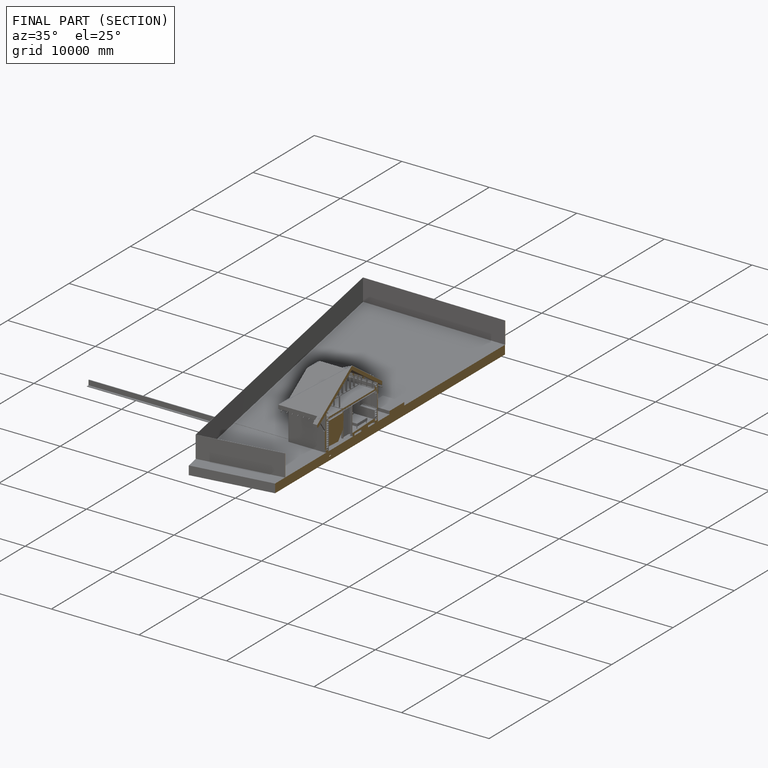
[diagram: finished part — half-section view (interior)]
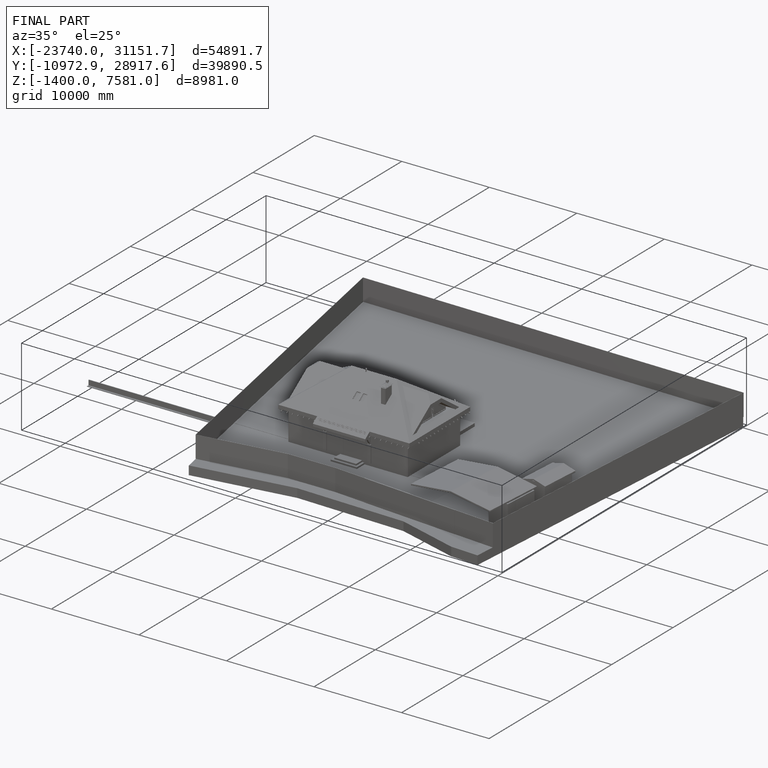
[diagram: finished part — iso view with bounding-box wireframe]
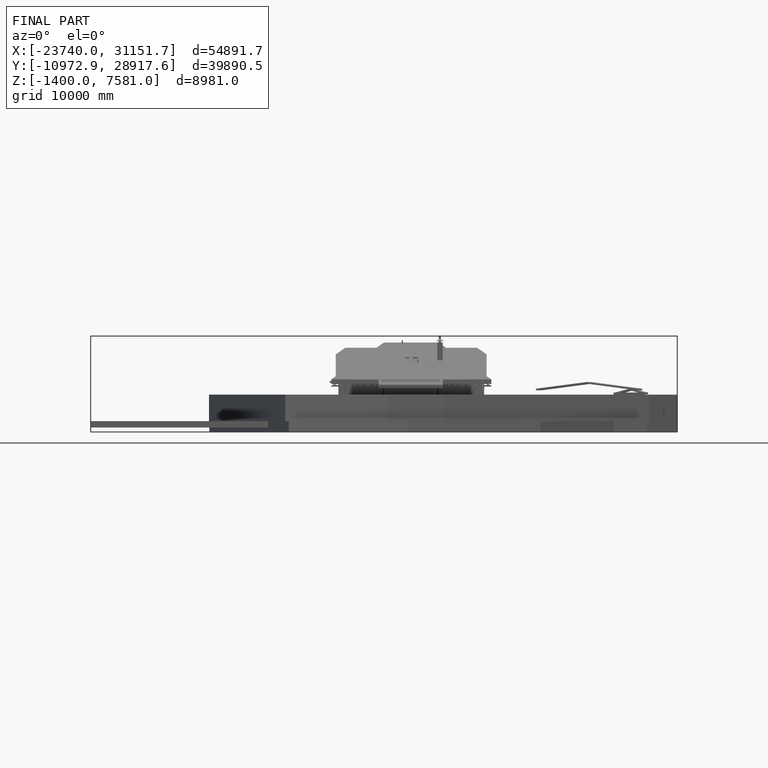
[diagram: finished part — front view with bounding-box wireframe]
